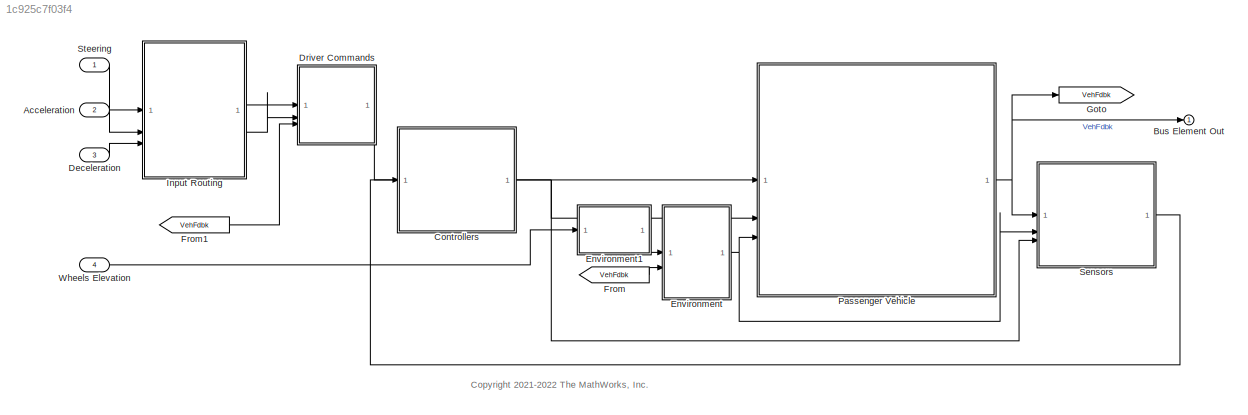
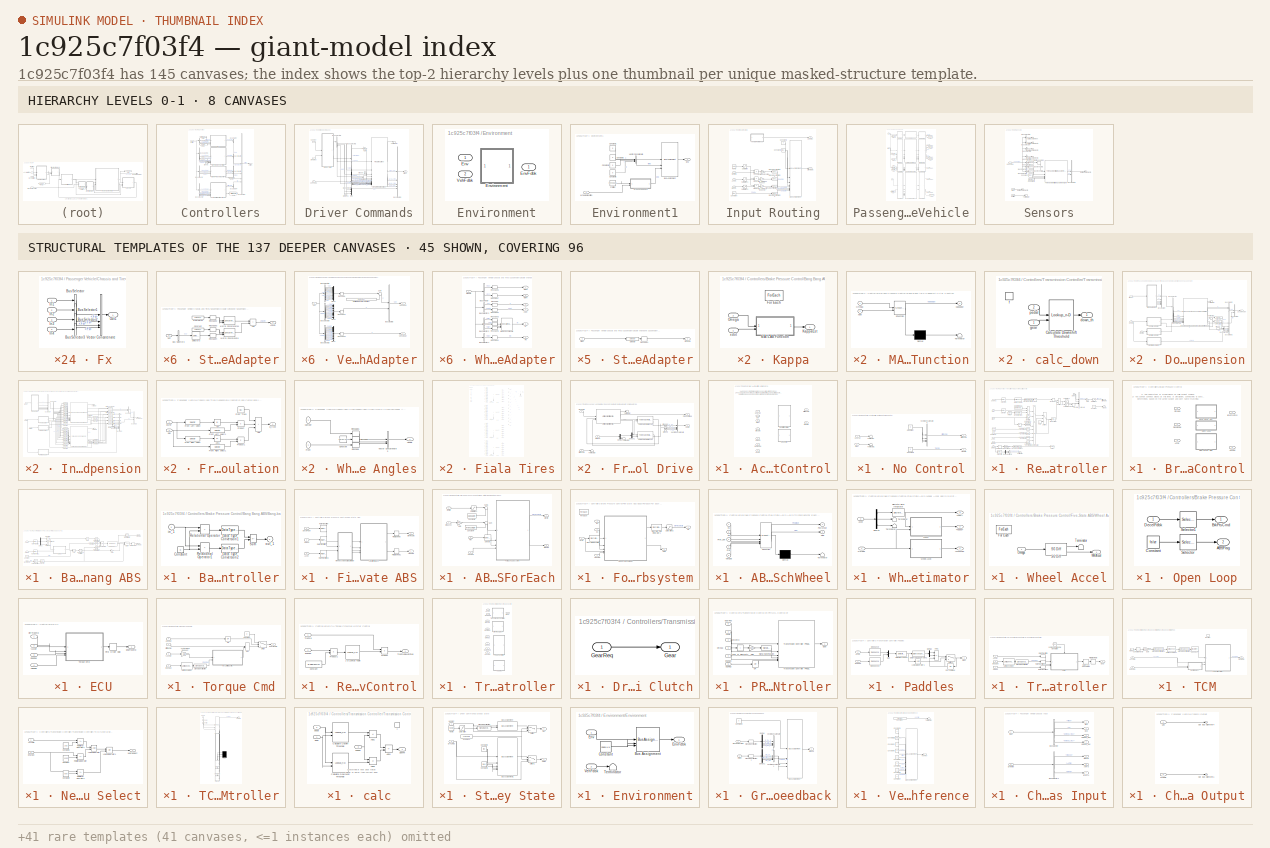
[diagram: thumbnail index - top-2 hierarchy levels (8 canvases) + 45 structural-template representatives of the remaining 137 canvases]
MODEL slx_1c925c7f03f4
KIND model
CONFIG AbsTol = auto
CONFIG EnableMultiTasking = off
CONFIG FixedStep = 0.001
CONFIG MaxStep = auto
CONFIG MinStep = auto
CONFIG RelTol = 1e-3
CONFIG SampleTimeConstraint = Unconstrained
CONFIG SolverName = VariableStepAuto
CONFIG StartTime = 0.0
CONFIG StopTime = inf
WORKSPACE source: mxarray member
WORKSPACE ssEnable: Simulink.Parameter (value not decoded)
WORKSPACE xdot_r: Simulink.Parameter (value not decoded)
BLOCK [Inport] Acceleration
  Port = 2
BLOCK [Outport] Bus Element Out
BLOCK [SubSystem] Controllers
BLOCK [SubSystem] Controllers/Active Differential Control
  LabelModeActiveChoice = 0
  Variant = on
  VariantControlMode = label
BLOCK [Inport] Controllers/Active Differential Control/Accel
BLOCK [Inport] Controllers/Active Differential Control/BrkCmd
  Port = 2
BLOCK [Outport] Controllers/Active Differential Control/DiffPrsCmd
  VectorParamsAs1DForOutWhenUnconnected = off
BLOCK [Inport] Controllers/Active Differential Control/GearFdbk
  Port = 4
BLOCK [SubSystem] Controllers/Active Differential Control/No Control
  VariantControl = 0
BLOCK [Constant] Controllers/Active Differential Control/No Control/Constant
  Value = 0
BLOCK [Constant] Controllers/Active Differential Control/No Control/Constant1
  Value = 0
BLOCK [Outport] Controllers/Active Differential Control/No Control/DiffPrsCmd
  VectorParamsAs1DForOutWhenUnconnected = off
BLOCK [Inport] Controllers/Active Differential Control/No Control/Steer
  Port = 2
BLOCK [Terminator] Controllers/Active Differential Control/No Control/Terminator
BLOCK [Terminator] Controllers/Active Differential Control/No Control/Terminator1
BLOCK [Outport] Controllers/Active Differential Control/No Control/TrqCmd
  Port = 2
  VectorParamsAs1DForOutWhenUnconnected = off
BLOCK [Concatenate] Controllers/Active Differential Control/No Control/Vector Concatenate2
  NumInputs = 4
BLOCK [Inport] Controllers/Active Differential Control/No Control/axayaz
BLOCK [Inport] Controllers/Active Differential Control/Omega
  Port = 5
  Unit = rad/s
BLOCK [SubSystem] Controllers/Active Differential Control/Rear Diff Controller
  SystemSampleTime = .01
  TreatAsAtomicUnit = on
  VariantControl = 1
BLOCK [Abs] Controllers/Active Differential Control/Rear Diff Controller/Abs2
  SaturateOnIntegerOverflow = off
BLOCK [Abs] Controllers/Active Differential Control/Rear Diff Controller/Abs3
  SaturateOnIntegerOverflow = off
  ZeroCross = off
BLOCK [Inport] Controllers/Active Differential Control/Rear Diff Controller/Accel
  Port = 7
BLOCK [Sum] Controllers/Active Differential Control/Rear Diff Controller/Add1
  IconShape = rectangular
  Inputs = +-
BLOCK [Inport] Controllers/Active Differential Control/Rear Diff Controller/BrkCmd
  Port = 4
BLOCK [Reference] Controllers/Active Differential Control/Rear Diff Controller/Compare To Constant  REF=simulink/Logic and Bit
Operations/Compare
To Constant
  SourceBlock = simulink/Logic and Bit\nOperations/Compare\nTo Constant
  SourceType = Compare To Constant
BLOCK [Reference] Controllers/Active Differential Control/Rear Diff Controller/Compare To Constant1  REF=simulink/Logic and Bit
Operations/Compare
To Constant
  SourceBlock = simulink/Logic and Bit\nOperations/Compare\nTo Constant
  SourceType = Compare To Constant
BLOCK [Reference] Controllers/Active Differential Control/Rear Diff Controller/Compare To Constant2  REF=simulink/Logic and Bit
Operations/Compare
To Constant
  SourceBlock = simulink/Logic and Bit\nOperations/Compare\nTo Constant
  SourceType = Compare To Constant
BLOCK [Reference] Controllers/Active Differential Control/Rear Diff Controller/Compare To Constant3  REF=simulink/Logic and Bit
Operations/Compare
To Constant
  SourceBlock = simulink/Logic and Bit\nOperations/Compare\nTo Constant
  SourceType = Compare To Constant
BLOCK [Reference] Controllers/Active Differential Control/Rear Diff Controller/Compare To Constant4  REF=simulink/Logic and Bit
Operations/Compare
To Constant
  SourceBlock = simulink/Logic and Bit\nOperations/Compare\nTo Constant
  SourceType = Compare To Constant
BLOCK [Constant] Controllers/Active Differential Control/Rear Diff Controller/Constant
  Value = 0
BLOCK [DeadZone] Controllers/Active Differential Control/Rear Diff Controller/Dead Zone
  ZeroCross = off
BLOCK [Demux] Controllers/Active Differential Control/Rear Diff Controller/Demux
  Outputs = 2
BLOCK [Outport] Controllers/Active Differential Control/Rear Diff Controller/DiffPrsCmd
  VectorParamsAs1DForOutWhenUnconnected = off
BLOCK [Product] Controllers/Active Differential Control/Rear Diff Controller/Divide3
  Inputs = **/
BLOCK [From] Controllers/Active Differential Control/Rear Diff Controller/From3
  GotoTag = xdot
BLOCK [From] Controllers/Active Differential Control/Rear Diff Controller/From4
  GotoTag = xdot
BLOCK [Gain] Controllers/Active Differential Control/Rear Diff Controller/Gain
  Gain = 3e6
BLOCK [Inport] Controllers/Active Differential Control/Rear Diff Controller/GearFdbk
  Port = 6
BLOCK [Goto] Controllers/Active Differential Control/Rear Diff Controller/Goto1
  GotoTag = xdot
BLOCK [Ground] Controllers/Active Differential Control/Rear Diff Controller/Ground
BLOCK [Logic] Controllers/Active Differential Control/Rear Diff Controller/Logical Operator
  AllPortsSameDT = off
  Inputs = 5
  OutDataTypeStr = boolean
BLOCK [Inport] Controllers/Active Differential Control/Rear Diff Controller/Omega
  Port = 5
  Unit = rad/s
BLOCK [Reference] Controllers/Active Differential Control/Rear Diff Controller/PID Controller  REF=slpidlib/PID Controller
  SourceBlock = slpidlib/PID Controller
  SourceType = PID 1dof
BLOCK [Saturate] Controllers/Active Differential Control/Rear Diff Controller/Saturation1
  LowerLimit = -1
  UpperLimit = 0
  ZeroCross = off
BLOCK [Saturate] Controllers/Active Differential Control/Rear Diff Controller/Saturation2
  LowerLimit = 0
  UpperLimit = 5e6
  ZeroCross = off
BLOCK [Saturate] Controllers/Active Differential Control/Rear Diff Controller/Saturation4
  LowerLimit = 0
  UpperLimit = 1
  ZeroCross = off
BLOCK [Selector] Controllers/Active Differential Control/Rear Diff Controller/Selector
  IndexOptions = Index vector (dialog)
  Indices = [3]
  InputPortWidth = 3
  OutputSizes = 1
BLOCK [Selector] Controllers/Active Differential Control/Rear Diff Controller/Selector1
  IndexOptions = Index vector (dialog)
  Indices = [2]
  InputPortWidth = 3
  OutputSizes = 1
BLOCK [Selector] Controllers/Active Differential Control/Rear Diff Controller/Selector2
  IndexOptions = Index vector (dialog)
  Indices = [3 4]
  InputPortWidth = 4
  OutputSizes = 1
BLOCK [SignalSpecification] Controllers/Active Differential Control/Rear Diff Controller/Signal Specification
  Unit = gn
BLOCK [SignalSpecification] Controllers/Active Differential Control/Rear Diff Controller/Signal Specification1
  Unit = m/s
BLOCK [Inport] Controllers/Active Differential Control/Rear Diff Controller/Steer
  Port = 2
BLOCK [Sum] Controllers/Active Differential Control/Rear Diff Controller/Subtract
  IconShape = rectangular
BLOCK [Sum] Controllers/Active Differential Control/Rear Diff Controller/Subtract1
  IconShape = rectangular
  Inputs = +-
BLOCK [Sum] Controllers/Active Differential Control/Rear Diff Controller/Sum of Elements
  IconShape = rectangular
  Inputs = +
BLOCK [Switch] Controllers/Active Differential Control/Rear Diff Controller/Switch1
  Criteria = u2 > Threshold
  InputSameDT = off
  SaturateOnIntegerOverflow = off
  Threshold = .1
BLOCK [Terminator] Controllers/Active Differential Control/Rear Diff Controller/Terminator
BLOCK [Outport] Controllers/Active Differential Control/Rear Diff Controller/TrqCmd
  Port = 2
  VectorParamsAs1DForOutWhenUnconnected = off
BLOCK [UnaryMinus] Controllers/Active Differential Control/Rear Diff Controller/Unary Minus
BLOCK [UnitConversion] Controllers/Active Differential Control/Rear Diff Controller/Unit Conversion
BLOCK [Concatenate] Controllers/Active Differential Control/Rear Diff Controller/Vector Concatenate2
  NumInputs = 4
BLOCK [Inport] Controllers/Active Differential Control/Rear Diff Controller/axayaz
BLOCK [Constant] Controllers/Active Differential Control/Rear Diff Controller/axle distance
  NameLocation = top
  Value = VEH.FrontAxlePositionfromCG+VEH.RearAxlePositionfromCG
BLOCK [Reference] Controllers/Active Differential Control/Rear Diff Controller/div0protect - poly  REF=autolibutils/div0protect - poly
  SourceBlock = autolibutils/div0protect - poly
BLOCK [Inport] Controllers/Active Differential Control/Rear Diff Controller/pqr
  Port = 3
BLOCK [Gain] Controllers/Active Differential Control/Rear Diff Controller/steer ratio
  Gain = 1/18
BLOCK [Gain] Controllers/Active Differential Control/Rear Diff Controller/wheel radius
  Gain = .3065/4
BLOCK [Constant] Controllers/Active Differential Control/Rear Diff Controller/zero
  Value = 0
BLOCK [Inport] Controllers/Active Differential Control/Steer
  Port = 3
BLOCK [Outport] Controllers/Active Differential Control/TrqCmd
  Port = 2
  VectorParamsAs1DForOutWhenUnconnected = off
BLOCK [Inport] Controllers/Active Differential Control/axayaz
  Port = 6
BLOCK [Inport] Controllers/Active Differential Control/pqr
  Port = 7
BLOCK [SubSystem] Controllers/Brake Pressure Control
  LabelModeActiveChoice = 0
  Variant = on
  VariantControlMode = label
BLOCK [Outport] Controllers/Brake Pressure Control/ABSFlag
  Port = 2
  VectorParamsAs1DForOutWhenUnconnected = off
BLOCK [Inport] Controllers/Brake Pressure Control/Accel
  Port = 3
BLOCK [SubSystem] Controllers/Brake Pressure Control/Bang Bang ABS
  VariantControl = 1
BLOCK [Outport] Controllers/Brake Pressure Control/Bang Bang ABS/ABSFlag
  Port = 2
BLOCK [Abs] Controllers/Brake Pressure Control/Bang Bang ABS/Abs
  SaturateOnIntegerOverflow = off
BLOCK [Inport] Controllers/Brake Pressure Control/Bang Bang ABS/Accel
  Port = 3
BLOCK [Sum] Controllers/Brake Pressure Control/Bang Bang ABS/Add
  IconShape = rectangular
  Inputs = -+
BLOCK [SubSystem] Controllers/Brake Pressure Control/Bang Bang ABS/Bang-bang controller
  ShowPortLabels = none
BLOCK [Constant] Controllers/Brake Pressure Control/Bang Bang ABS/Bang-bang controller/Constant
  Value = 0
BLOCK [DataTypeConversion] Controllers/Brake Pressure Control/Bang Bang ABS/Bang-bang controller/Data Type Conversion1
  OutDataTypeStr = double
BLOCK [DataTypeConversion] Controllers/Brake Pressure Control/Bang Bang ABS/Bang-bang controller/Data Type Conversion2
  OutDataTypeStr = double
BLOCK [RelationalOperator] Controllers/Brake Pressure Control/Bang Bang ABS/Bang-bang controller/Relational Operator
  Operator = >
  OutDataTypeStr = boolean
BLOCK [RelationalOperator] Controllers/Brake Pressure Control/Bang Bang ABS/Bang-bang controller/Relational Operator1
  Operator = <
  OutDataTypeStr = boolean
BLOCK [Sum] Controllers/Brake Pressure Control/Bang Bang ABS/Bang-bang controller/Sum
  IconShape = rectangular
  InputSameDT = on
  Inputs = +-
  OutDataTypeStr = Inherit: Same as first input
  SaturateOnIntegerOverflow = on
BLOCK [Inport] Controllers/Brake Pressure Control/Bang Bang ABS/Bang-bang controller/in_1
BLOCK [Outport] Controllers/Brake Pressure Control/Bang Bang ABS/Bang-bang controller/out_1
  InitialOutput = 0
  VectorParamsAs1DForOutWhenUnconnected = off
BLOCK [Outport] Controllers/Brake Pressure Control/Bang Bang ABS/BrkPrsCmd
  VectorParamsAs1DForOutWhenUnconnected = off
BLOCK [Reference] Controllers/Brake Pressure Control/Bang Bang ABS/Compare To Constant  REF=simulink/Logic and Bit
Operations/Compare
To Constant
  SourceBlock = simulink/Logic and Bit\nOperations/Compare\nTo Constant
  SourceType = Compare To Constant
BLOCK [Reference] Controllers/Brake Pressure Control/Bang Bang ABS/Compare To Constant1  REF=simulink/Logic and Bit
Operations/Compare
To Constant
  SourceBlock = simulink/Logic and Bit\nOperations/Compare\nTo Constant
  SourceType = Compare To Constant
BLOCK [Reference] Controllers/Brake Pressure Control/Bang Bang ABS/Compare To Constant2  REF=simulink/Logic and Bit
Operations/Compare
To Constant
  SourceBlock = simulink/Logic and Bit\nOperations/Compare\nTo Constant
  SourceType = Compare To Constant
BLOCK [Reference] Controllers/Brake Pressure Control/Bang Bang ABS/Compare To Constant3  REF=simulink/Logic and Bit
Operations/Compare
To Constant
  SourceBlock = simulink/Logic and Bit\nOperations/Compare\nTo Constant
  SourceType = Compare To Constant
BLOCK [Constant] Controllers/Brake Pressure Control/Bang Bang ABS/Constant
  Value = .25
BLOCK [Reference] Controllers/Brake Pressure Control/Bang Bang ABS/Debounce  REF=autolibutils/Debounce
  SourceBlock = autolibutils/Debounce
  SourceType = Debounce
BLOCK [Inport] Controllers/Brake Pressure Control/Bang Bang ABS/DecelFdbk
BLOCK [Demux] Controllers/Brake Pressure Control/Bang Bang ABS/Demux
  Outputs = 3
BLOCK [FirstOrderHold] Controllers/Brake Pressure Control/Bang Bang ABS/First Order Hold
  ErrorTolerance = 1
BLOCK [Gain] Controllers/Brake Pressure Control/Bang Bang ABS/Gain
  Gain = 200
BLOCK [Integrator] Controllers/Brake Pressure Control/Bang Bang ABS/Integrator1
BLOCK [SubSystem] Controllers/Brake Pressure Control/Bang Bang ABS/Kappa
  TreatAsAtomicUnit = on
BLOCK [ForEach] Controllers/Brake Pressure Control/Bang Bang ABS/Kappa/For Each
  DisableCoverage = on
BLOCK [Outport] Controllers/Brake Pressure Control/Bang Bang ABS/Kappa/KappaEst
  ConcatenationDimension = 1
BLOCK [SubSystem] Controllers/Brake Pressure Control/Bang Bang ABS/Kappa/MATLAB Function
  ErrorFcn = Stateflow.Translate.translate
  PermitHierarchicalResolution = ExplicitOnly
  SFBlockType = MATLAB Function
  TreatAsAtomicUnit = on
BLOCK [Demux] Controllers/Brake Pressure Control/Bang Bang ABS/Kappa/MATLAB Function/ Demux 
  Outputs = 1
BLOCK [S-Function] Controllers/Brake Pressure Control/Bang Bang ABS/Kappa/MATLAB Function/ SFunction 
  EnableBusSupport = off
  FunctionName = sf_sfun
  PortCounts = [2 2]
  SFcnIsStateOwnerBlock = off
  SFunctionDeploymentMode = off
  Tag = Stateflow S-Function 14
BLOCK [Terminator] Controllers/Brake Pressure Control/Bang Bang ABS/Kappa/MATLAB Function/ Terminator 
BLOCK [Outport] Controllers/Brake Pressure Control/Bang Bang ABS/Kappa/MATLAB Function/KappaEst
BLOCK [Inport] Controllers/Brake Pressure Control/Bang Bang ABS/Kappa/MATLAB Function/Omega
BLOCK [Inport] Controllers/Brake Pressure Control/Bang Bang ABS/Kappa/MATLAB Function/xdot
  Port = 2
BLOCK [Inport] Controllers/Brake Pressure Control/Bang Bang ABS/Kappa/Omega
  Partition = on
  PartitionDimension = 1
  PartitionOffset = 0
  PartitionWidth = 1
  Port = 2
BLOCK [Inport] Controllers/Brake Pressure Control/Bang Bang ABS/Kappa/xdot
BLOCK [Logic] Controllers/Brake Pressure Control/Bang Bang ABS/Logical Operator
  AllPortsSameDT = off
  Inputs = 3
  OutDataTypeStr = boolean
BLOCK [Inport] Controllers/Brake Pressure Control/Bang Bang ABS/Omega
  Port = 2
BLOCK [RateTransition] Controllers/Brake Pressure Control/Bang Bang ABS/Rate Transition
  Deterministic = off
  OutPortSampleTime = .001
BLOCK [RateTransition] Controllers/Brake Pressure Control/Bang Bang ABS/Rate Transition1
  Deterministic = off
  OutPortSampleTime = .001
BLOCK [RateTransition] Controllers/Brake Pressure Control/Bang Bang ABS/Rate Transition2
  Deterministic = off
  OutPortSampleTime = .001
BLOCK [Selector] Controllers/Brake Pressure Control/Bang Bang ABS/Selector1
  IndexOptions = Index vector (dialog)
  Indices = [1 1 1 1]
  InputPortWidth = 1
  OutputSizes = 1
BLOCK [Switch] Controllers/Brake Pressure Control/Bang Bang ABS/Switch
  Criteria = u2 > Threshold
  InputSameDT = off
  SaturateOnIntegerOverflow = off
  ZeroCross = off
BLOCK [Terminator] Controllers/Brake Pressure Control/Bang Bang ABS/Terminator
BLOCK [Terminator] Controllers/Brake Pressure Control/Bang Bang ABS/Terminator1
BLOCK [Outport] Controllers/Brake Pressure Control/BrkPrsCmd
  VectorParamsAs1DForOutWhenUnconnected = off
BLOCK [Inport] Controllers/Brake Pressure Control/DecelFdbk
BLOCK [SubSystem] Controllers/Brake Pressure Control/Five-State ABS
  VariantControl = 2
BLOCK [SubSystem] Controllers/Brake Pressure Control/Five-State ABS/ABSCtrlForEach
BLOCK [Outport] Controllers/Brake Pressure Control/Five-State ABS/ABSCtrlForEach/BrkCtrl
BLOCK [Outport] Controllers/Brake Pressure Control/Five-State ABS/ABSCtrlForEach/BrkFlag
  Port = 2
BLOCK [Constant] Controllers/Brake Pressure Control/Five-State ABS/ABSCtrlForEach/Constant7
  Value = WhlAccelOpt
BLOCK [Constant] Controllers/Brake Pressure Control/Five-State ABS/ABSCtrlForEach/Constant8
  Value = KappaOpt
BLOCK [SubSystem] Controllers/Brake Pressure Control/Five-State ABS/ABSCtrlForEach/For Each Subsystem
  TreatAsAtomicUnit = on
BLOCK [SubSystem] Controllers/Brake Pressure Control/Five-State ABS/ABSCtrlForEach/For Each Subsystem/ABSForEachWheel
  ErrorFcn = Stateflow.Translate.translate
  InitFcn = [~]=vehdynicon('vehdynblk',gcb);
  PermitHierarchicalResolution = ExplicitOnly
  SFBlockType = Chart
  TreatAsAtomicUnit = on
BLOCK [Demux] Controllers/Brake Pressure Control/Five-State ABS/ABSCtrlForEach/For Each Subsystem/ABSForEachWheel/ Demux 
  Outputs = 1
BLOCK [S-Function] Controllers/Brake Pressure Control/Five-State ABS/ABSCtrlForEach/For Each Subsystem/ABSForEachWheel/ SFunction 
  EnableBusSupport = off
  FunctionName = sf_sfun
  Parameters = A,a1,a2,b,v1,v4,v5
  PortCounts = [5 3]
  SFcnIsStateOwnerBlock = off
  SFunctionDeploymentMode = off
  Tag = Stateflow S-Function 58
BLOCK [Terminator] Controllers/Brake Pressure Control/Five-State ABS/ABSCtrlForEach/For Each Subsystem/ABSForEachWheel/ Terminator 
BLOCK [Outport] Controllers/Brake Pressure Control/Five-State ABS/ABSCtrlForEach/For Each Subsystem/ABSForEachWheel/Flag
  Port = 2
BLOCK [Outport] Controllers/Brake Pressure Control/Five-State ABS/ABSCtrlForEach/For Each Subsystem/ABSForEachWheel/PbOutput
BLOCK [Inport] Controllers/Brake Pressure Control/Five-State ABS/ABSCtrlForEach/For Each Subsystem/ABSForEachWheel/Pref
  Port = 4
BLOCK [Inport] Controllers/Brake Pressure Control/Five-State ABS/ABSCtrlForEach/For Each Subsystem/ABSForEachWheel/Pref_dot
  Port = 3
BLOCK [Inport] Controllers/Brake Pressure Control/Five-State ABS/ABSCtrlForEach/For Each Subsystem/ABSForEachWheel/VehSpd
  Port = 5
BLOCK [Inport] Controllers/Brake Pressure Control/Five-State ABS/ABSCtrlForEach/For Each Subsystem/ABSForEachWheel/e1
BLOCK [Inport] Controllers/Brake Pressure Control/Five-State ABS/ABSCtrlForEach/For Each Subsystem/ABSForEachWheel/e2
  Port = 2
BLOCK [Reference] Controllers/Brake Pressure Control/Five-State ABS/ABSCtrlForEach/For Each Subsystem/Discrete Derivative  REF=simulink/Discrete/Discrete Derivative
  SourceBlock = simulink/Discrete/Discrete Derivative
  SourceType = Discrete Derivative
BLOCK [DiscreteIntegrator] Controllers/Brake Pressure Control/Five-State ABS/ABSCtrlForEach/For Each Subsystem/Discrete-Time Integrator1
  ICPrevOutput = DiscIntNeverNeededParam
  ICPrevScaledInput = DiscIntNeverNeededParam
  InitialConditionSetting = Auto
  IntegratorMethod = Integration: Trapezoidal
  SampleTime = -1
BLOCK [Outport] Controllers/Brake Pressure Control/Five-State ABS/ABSCtrlForEach/For Each Subsystem/Flag
  ConcatenationDimension = 1
  Port = 2
BLOCK [ForEach] Controllers/Brake Pressure Control/Five-State ABS/ABSCtrlForEach/For Each Subsystem/For Each
  DisableCoverage = on
BLOCK [Outport] Controllers/Brake Pressure Control/Five-State ABS/ABSCtrlForEach/For Each Subsystem/Pb
  ConcatenationDimension = 1
BLOCK [Inport] Controllers/Brake Pressure Control/Five-State ABS/ABSCtrlForEach/For Each Subsystem/Pref
  Partition = on
  PartitionDimension = 1
  PartitionOffset = 0
  PartitionWidth = 1
  Port = 3
BLOCK [Saturate] Controllers/Brake Pressure Control/Five-State ABS/ABSCtrlForEach/For Each Subsystem/Saturation2
  LowerLimit = 0
  UpperLimit = 1
BLOCK [Inport] Controllers/Brake Pressure Control/Five-State ABS/ABSCtrlForEach/For Each Subsystem/VehSpd
  Port = 4
BLOCK [Inport] Controllers/Brake Pressure Control/Five-State ABS/ABSCtrlForEach/For Each Subsystem/e1
  Partition = on
  PartitionDimension = 1
  PartitionOffset = 0
  PartitionWidth = 1
BLOCK [Inport] Controllers/Brake Pressure Control/Five-State ABS/ABSCtrlForEach/For Each Subsystem/e2
  Partition = on
  PartitionDimension = 1
  PartitionOffset = 0
  PartitionWidth = 1
  Port = 2
BLOCK [Gain] Controllers/Brake Pressure Control/Five-State ABS/ABSCtrlForEach/Gain
  Gain = Re
BLOCK [Inport] Controllers/Brake Pressure Control/Five-State ABS/ABSCtrlForEach/Pref
BLOCK [Saturate] Controllers/Brake Pressure Control/Five-State ABS/ABSCtrlForEach/Saturation1
  LowerLimit = -1
  UpperLimit = 1
BLOCK [Selector] Controllers/Brake Pressure Control/Five-State ABS/ABSCtrlForEach/Selector
  IndexOptions = Index vector (dialog)
  Indices = [1 1 1 1]
  InputPortWidth = 1
  OutputSizes = 1
BLOCK [Sum] Controllers/Brake Pressure Control/Five-State ABS/ABSCtrlForEach/Sum
  Inputs = |+-
BLOCK [Sum] Controllers/Brake Pressure Control/Five-State ABS/ABSCtrlForEach/Sum1
  Inputs = |+-
BLOCK [Inport] Controllers/Brake Pressure Control/Five-State ABS/ABSCtrlForEach/VehSpd
  Port = 4
BLOCK [Inport] Controllers/Brake Pressure Control/Five-State ABS/ABSCtrlForEach/WhlAccel
  Port = 2
BLOCK [Inport] Controllers/Brake Pressure Control/Five-State ABS/ABSCtrlForEach/WhlSlip
  Port = 3
BLOCK [Outport] Controllers/Brake Pressure Control/Five-State ABS/ABSFlag
  Port = 2
  PortDimensions = 4
BLOCK [Inport] Controllers/Brake Pressure Control/Five-State ABS/Accel
  Port = 3
BLOCK [Outport] Controllers/Brake Pressure Control/Five-State ABS/BrkPrsCmd
BLOCK [Inport] Controllers/Brake Pressure Control/Five-State ABS/DecelFdbk
BLOCK [FirstOrderHold] Controllers/Brake Pressure Control/Five-State ABS/First Order Hold
  ErrorTolerance = 0.1
BLOCK [FirstOrderHold] Controllers/Brake Pressure Control/Five-State ABS/First Order Hold1
  ErrorTolerance = 1
BLOCK [Inport] Controllers/Brake Pressure Control/Five-State ABS/Omega
  Port = 2
BLOCK [RateTransition] Controllers/Brake Pressure Control/Five-State ABS/Rate Transition
  OutPortSampleTime = .001
BLOCK [RateTransition] Controllers/Brake Pressure Control/Five-State ABS/Rate Transition1
  OutPortSampleTime = .001
BLOCK [RateTransition] Controllers/Brake Pressure Control/Five-State ABS/Rate Transition2
  OutPortSampleTime = .001
BLOCK [SubSystem] Controllers/Brake Pressure Control/Five-State ABS/Wheel Accel and Slip Estimator
BLOCK [Outport] Controllers/Brake Pressure Control/Five-State ABS/Wheel Accel and Slip Estimator/<Kappa>
  Port = 2
BLOCK [Outport] Controllers/Brake Pressure Control/Five-State ABS/Wheel Accel and Slip Estimator/<WhlAccel>
BLOCK [Outport] Controllers/Brake Pressure Control/Five-State ABS/Wheel Accel and Slip Estimator/<xdot>
  Port = 3
BLOCK [Inport] Controllers/Brake Pressure Control/Five-State ABS/Wheel Accel and Slip Estimator/Accel
  Port = 2
BLOCK [Demux] Controllers/Brake Pressure Control/Five-State ABS/Wheel Accel and Slip Estimator/Demux
  Outputs = 3
BLOCK [DiscreteIntegrator] Controllers/Brake Pressure Control/Five-State ABS/Wheel Accel and Slip Estimator/Discrete-Time Integrator
  ICPrevOutput = DiscIntNeverNeededParam
  ICPrevScaledInput = DiscIntNeverNeededParam
  InitialConditionSetting = Auto
  IntegratorMethod = Integration: Trapezoidal
  SampleTime = -1
BLOCK [SubSystem] Controllers/Brake Pressure Control/Five-State ABS/Wheel Accel and Slip Estimator/Kappa
  TreatAsAtomicUnit = on
BLOCK [ForEach] Controllers/Brake Pressure Control/Five-State ABS/Wheel Accel and Slip Estimator/Kappa/For Each
  DisableCoverage = on
BLOCK [Outport] Controllers/Brake Pressure Control/Five-State ABS/Wheel Accel and Slip Estimator/Kappa/KappaEst
  ConcatenationDimension = 1
BLOCK [SubSystem] Controllers/Brake Pressure Control/Five-State ABS/Wheel Accel and Slip Estimator/Kappa/MATLAB Function
  ErrorFcn = Stateflow.Translate.translate
  PermitHierarchicalResolution = ExplicitOnly
  SFBlockType = MATLAB Function
  TreatAsAtomicUnit = on
BLOCK [Demux] Controllers/Brake Pressure Control/Five-State ABS/Wheel Accel and Slip Estimator/Kappa/MATLAB Function/ Demux 
  Outputs = 1
BLOCK [S-Function] Controllers/Brake Pressure Control/Five-State ABS/Wheel Accel and Slip Estimator/Kappa/MATLAB Function/ SFunction 
  EnableBusSupport = off
  FunctionName = sf_sfun
  PortCounts = [2 2]
  SFcnIsStateOwnerBlock = off
  SFunctionDeploymentMode = off
  Tag = Stateflow S-Function 54
BLOCK [Terminator] Controllers/Brake Pressure Control/Five-State ABS/Wheel Accel and Slip Estimator/Kappa/MATLAB Function/ Terminator 
BLOCK [Outport] Controllers/Brake Pressure Control/Five-State ABS/Wheel Accel and Slip Estimator/Kappa/MATLAB Function/KappaEst
BLOCK [Inport] Controllers/Brake Pressure Control/Five-State ABS/Wheel Accel and Slip Estimator/Kappa/MATLAB Function/Omega
BLOCK [Inport] Controllers/Brake Pressure Control/Five-State ABS/Wheel Accel and Slip Estimator/Kappa/MATLAB Function/xdot
  Port = 2
BLOCK [Inport] Controllers/Brake Pressure Control/Five-State ABS/Wheel Accel and Slip Estimator/Kappa/Omega
  Partition = on
  PartitionDimension = 1
  PartitionOffset = 0
  PartitionWidth = 1
  Port = 2
  PortDimensions = 1
BLOCK [Inport] Controllers/Brake Pressure Control/Five-State ABS/Wheel Accel and Slip Estimator/Kappa/xdot
BLOCK [Inport] Controllers/Brake Pressure Control/Five-State ABS/Wheel Accel and Slip Estimator/Omega
BLOCK [Terminator] Controllers/Brake Pressure Control/Five-State ABS/Wheel Accel and Slip Estimator/Terminator
BLOCK [Terminator] Controllers/Brake Pressure Control/Five-State ABS/Wheel Accel and Slip Estimator/Terminator1
BLOCK [SubSystem] Controllers/Brake Pressure Control/Five-State ABS/Wheel Accel and Slip Estimator/Wheel Accel
  TreatAsAtomicUnit = on
BLOCK [ForEach] Controllers/Brake Pressure Control/Five-State ABS/Wheel Accel and Slip Estimator/Wheel Accel/For Each
  DisableCoverage = on
BLOCK [Inport] Controllers/Brake Pressure Control/Five-State ABS/Wheel Accel and Slip Estimator/Wheel Accel/Omega
  Partition = on
  PartitionDimension = 1
  PartitionOffset = 0
  PartitionWidth = 1
  PortDimensions = 1
BLOCK [Reference] Controllers/Brake Pressure Control/Five-State ABS/Wheel Accel and Slip Estimator/Wheel Accel/SG Diff  REF=autolibutils/SG Diff
  SourceBlock = autolibutils/SG Diff
  SourceType = Simplified Savitzky-Golay Differentiator
BLOCK [Terminator] Controllers/Brake Pressure Control/Five-State ABS/Wheel Accel and Slip Estimator/Wheel Accel/Terminator
BLOCK [Outport] Controllers/Brake Pressure Control/Five-State ABS/Wheel Accel and Slip Estimator/Wheel Accel/WhlAccel
  ConcatenationDimension = 1
BLOCK [Inport] Controllers/Brake Pressure Control/Omega
  Port = 2
BLOCK [SubSystem] Controllers/Brake Pressure Control/Open Loop
  VariantControl = 0
BLOCK [Outport] Controllers/Brake Pressure Control/Open Loop/ABSFlag
  Port = 2
BLOCK [Outport] Controllers/Brake Pressure Control/Open Loop/BrkPrsCmd
  VectorParamsAs1DForOutWhenUnconnected = off
BLOCK [Constant] Controllers/Brake Pressure Control/Open Loop/Constant
  Value = false
BLOCK [Inport] Controllers/Brake Pressure Control/Open Loop/DecelFdbk
BLOCK [Selector] Controllers/Brake Pressure Control/Open Loop/Selector
  IndexOptions = Index vector (dialog)
  Indices = [1 1 1 1]
  InputPortWidth = 1
  OutputSizes = 1
BLOCK [Selector] Controllers/Brake Pressure Control/Open Loop/Selector1
  IndexOptions = Index vector (dialog)
  Indices = [1 1 1 1]
  InputPortWidth = 1
  OutputSizes = 1
BLOCK [BusCreator] Controllers/Bus Creator
  DisplayOption = bar
  InheritFromInputs = on
  Inputs = 1
BLOCK [BusCreator] Controllers/Bus Creator1
  DisplayOption = bar
  InheritFromInputs = on
  Inputs = 1
BLOCK [BusCreator] Controllers/Bus Creator2
  DisplayOption = bar
  InheritFromInputs = on
  Inputs = 2
BLOCK [BusCreator] Controllers/Bus Creator3
  DisplayOption = bar
  InheritFromInputs = on
  Inputs = 4
BLOCK [BusCreator] Controllers/Bus Creator4
  DisplayOption = bar
  InheritFromInputs = on
  Inputs = 1
BLOCK [BusSelector] Controllers/Bus Selector
  OutputSignals = Driver.DecelFdbk,Wheels.Omega,IMU.Acc
BLOCK [BusSelector] Controllers/Bus Selector1
  OutputSignals = Driver.AccFdbk,Driver.DecelFdbk,Driver.GearFdbk,Engine.EngSpd,Wheels.Omega
BLOCK [BusSelector] Controllers/Bus Selector2
  OutputSignals = Driver.AccFdbk,Engine.EngSpd
BLOCK [BusSelector] Controllers/Bus Selector3
  OutputSignals = Driver.AccFdbk,Driver.DecelFdbk,Driver.SteerFdbk,Driver.GearFdbk,Wheels.Omega,IMU.Acc,IMU.pqr
BLOCK [Inport] Controllers/CntrlRx
BLOCK [Outport] Controllers/CntrlTx
  VectorParamsAs1DForOutWhenUnconnected = off
BLOCK [SubSystem] Controllers/ECU
  SystemSampleTime = .01
BLOCK [Inport] Controllers/ECU/<Accel>
  Port = 2
BLOCK [Inport] Controllers/ECU/ABSFlag
  Port = 4
BLOCK [Inport] Controllers/ECU/DiffTrqCmd
BLOCK [Inport] Controllers/ECU/EngSpd
  Port = 3
BLOCK [Outport] Controllers/ECU/EngTrqCmd
  VectorParamsAs1DForOutWhenUnconnected = off
BLOCK [FirstOrderHold] Controllers/ECU/First Order Hold
  ErrorTolerance = 100
BLOCK [SubSystem] Controllers/ECU/Torque Cmd
  SystemSampleTime = .01
  TreatAsAtomicUnit = on
BLOCK [Inport] Controllers/ECU/Torque Cmd/<Accel>
  Port = 2
BLOCK [Inport] Controllers/ECU/Torque Cmd/ABSFlag
  Port = 4
BLOCK [Gain] Controllers/ECU/Torque Cmd/Acc to Torque Request
  Gain = 150
BLOCK [Constant] Controllers/ECU/Torque Cmd/Constant
  Value = 0
BLOCK [Inport] Controllers/ECU/Torque Cmd/DiffTrqCmd
BLOCK [Inport] Controllers/ECU/Torque Cmd/EngSpd
  Port = 3
BLOCK [Outport] Controllers/ECU/Torque Cmd/EngTrqCmd
BLOCK [MinMax] Controllers/ECU/Torque Cmd/Max
  Function = max
  Inputs = 2
BLOCK [Logic] Controllers/ECU/Torque Cmd/OR
  AllPortsSameDT = off
  Inputs = 1
  Operator = OR
  OutDataTypeStr = boolean
BLOCK [SubSystem] Controllers/ECU/Torque Cmd/Rev Limiter Control
BLOCK [Lookup_n-D] Controllers/ECU/Torque Cmd/Rev Limiter Control/1-D Lookup Table
  BreakpointsForDimension1 = [1 1.01]
  ExtrapMethod = Clip
  InputPortMap = u0
  InternalRulePriority = Speed
  NumberOfTableDimensions = 1
  RndMeth = Simplest
  Table = [1 0]
BLOCK [Constant] Controllers/ECU/Torque Cmd/Rev Limiter Control/Constant
  Value = EngRevLim
BLOCK [Inport] Controllers/ECU/Torque Cmd/Rev Limiter Control/EngSpd
  Port = 2
BLOCK [Product] Controllers/ECU/Torque Cmd/Rev Limiter Control/Product
BLOCK [Product] Controllers/ECU/Torque Cmd/Rev Limiter Control/Product1
  Inputs = */
BLOCK [Inport] Controllers/ECU/Torque Cmd/Rev Limiter Control/TrqCmd
BLOCK [Outport] Controllers/ECU/Torque Cmd/Rev Limiter Control/TrqCmdRevLimited
  VectorParamsAs1DForOutWhenUnconnected = off
BLOCK [SignalSpecification] Controllers/ECU/Torque Cmd/Signal Specification
  Unit = rpm
BLOCK [Switch] Controllers/ECU/Torque Cmd/Switch
  Criteria = u2 > Threshold
  InputSameDT = off
  SaturateOnIntegerOverflow = off
  ZeroCross = off
BLOCK [UnitConversion] Controllers/ECU/Torque Cmd/Unit Conversion
BLOCK [From] Controllers/From
  GotoTag = DiffTrqCmd
BLOCK [From] Controllers/From1
  GotoTag = ABSFlag
BLOCK [From] Controllers/From2
  GotoTag = ABSFlag
BLOCK [Goto] Controllers/Goto
  GotoTag = DiffTrqCmd
BLOCK [Goto] Controllers/Goto1
  GotoTag = ABSFlag
BLOCK [Ground] Controllers/Ground
BLOCK [SubSystem] Controllers/Transmission Controller
  LabelModeActiveChoice = 3
  Variant = on
  VariantControl = Variant1
  VariantControlMode = label
BLOCK [Outport] Controllers/Transmission Controller/ Gear
  VectorParamsAs1DForOutWhenUnconnected = off
BLOCK [Inport] Controllers/Transmission Controller/ABSFlag
  Port = 6
BLOCK [Inport] Controllers/Transmission Controller/Accel
BLOCK [Inport] Controllers/Transmission Controller/BrkCmd
  Port = 2
BLOCK [Inport] Controllers/Transmission Controller/DownReq
  Port = 8
  Unit = rad/s
BLOCK [SubSystem] Controllers/Transmission Controller/Driver - No Clutch
  VariantControl = 1
BLOCK [Outport] Controllers/Transmission Controller/Driver - No Clutch/Gear
  VectorParamsAs1DForOutWhenUnconnected = off
BLOCK [Inport] Controllers/Transmission Controller/Driver - No Clutch/GearReq
BLOCK [Inport] Controllers/Transmission Controller/EngSpd
  Port = 4
BLOCK [Inport] Controllers/Transmission Controller/GearReq
  Port = 3
BLOCK [Inport] Controllers/Transmission Controller/Omega
  Port = 5
  PortDimensions = 4
  Unit = rad/s
BLOCK [SubSystem] Controllers/Transmission Controller/PRNDL Controller
  VariantControl = 3
BLOCK [Inport] Controllers/Transmission Controller/PRNDL Controller/ABSFlag
  Port = 6
BLOCK [Inport] Controllers/Transmission Controller/PRNDL Controller/Accel
BLOCK [Inport] Controllers/Transmission Controller/PRNDL Controller/BrkCmd
  Port = 2
BLOCK [Inport] Controllers/Transmission Controller/PRNDL Controller/EngSpd
  Port = 4
  Unit = rad/s
BLOCK [Gain] Controllers/Transmission Controller/PRNDL Controller/Gain
  Gain = 0.3/4
BLOCK [Outport] Controllers/Transmission Controller/PRNDL Controller/Gear
  VectorParamsAs1DForOutWhenUnconnected = off
BLOCK [Inport] Controllers/Transmission Controller/PRNDL Controller/GearReq
  Port = 5
BLOCK [Logic] Controllers/Transmission Controller/PRNDL Controller/OR
  AllPortsSameDT = off
  Inputs = 1
  Operator = OR
  OutDataTypeStr = boolean
BLOCK [Inport] Controllers/Transmission Controller/PRNDL Controller/Omega
  Port = 3
  Unit = rad/s
BLOCK [SignalSpecification] Controllers/Transmission Controller/PRNDL Controller/Signal Specification
  Unit = m/s
BLOCK [Sum] Controllers/Transmission Controller/PRNDL Controller/Sum of Elements
  IconShape = rectangular
  Inputs = +
BLOCK [Reference] Controllers/Transmission Controller/PRNDL Controller/Transmission Controller PRNDL  REF=autolibtranscontrolscommon/Transmission Controller PRNDL
  SourceBlock = autolibtranscontrolscommon/Transmission Controller PRNDL
  SourceType = Transmission Controller PRNDL
BLOCK [SubSystem] Controllers/Transmission Controller/Paddles
  VariantControl = 2
BLOCK [Inport] Controllers/Transmission Controller/Paddles/Accel
BLOCK [Sum] Controllers/Transmission Controller/Paddles/Add1
  IconShape = rectangular
  Inputs = +-+
BLOCK [UnitDelay] Controllers/Transmission Controller/Paddles/Current Gear
  HasFrameUpgradeWarning = on
  SampleTime = -1
BLOCK [DataTypeConversion] Controllers/Transmission Controller/Paddles/Data Type Conversion2
  OutDataTypeStr = double
  RndMeth = Floor
  SaturateOnIntegerOverflow = off
BLOCK [Reference] Controllers/Transmission Controller/Paddles/Debounce  REF=autolibutils/Debounce
  SourceBlock = autolibutils/Debounce
  SourceType = Debounce
BLOCK [Reference] Controllers/Transmission Controller/Paddles/Debounce1  REF=autolibutils/Debounce
  SourceBlock = autolibutils/Debounce
  SourceType = Debounce
BLOCK [Demux] Controllers/Transmission Controller/Paddles/Demux
  Outputs = 2
BLOCK [Reference] Controllers/Transmission Controller/Paddles/Detect Increase2  REF=simulink/Logic and Bit
Operations/Detect
Increase
  SourceBlock = simulink/Logic and Bit\nOperations/Detect\nIncrease
  SourceType = Detect Increase
BLOCK [Inport] Controllers/Transmission Controller/Paddles/EngSpd
  Port = 2
  Unit = rad/s
BLOCK [Outport] Controllers/Transmission Controller/Paddles/Gear
  VectorParamsAs1DForOutWhenUnconnected = off
BLOCK [Logic] Controllers/Transmission Controller/Paddles/Logical Operator1
  AllPortsSameDT = off
  Inputs = 1
  Operator = XOR
  OutDataTypeStr = boolean
BLOCK [Mux] Controllers/Transmission Controller/Paddles/Mux
  DisplayOption = bar
  Inputs = 2
BLOCK [Switch] Controllers/Transmission Controller/Paddles/Switch2
  Criteria = u2 > Threshold
  InputSameDT = off
  SaturateOnIntegerOverflow = off
BLOCK [SubSystem] Controllers/Transmission Controller/Transmission Controller
  VariantControl = 0
BLOCK [Reference] Controllers/Transmission Controller/Transmission Controller/10ms Function-Call Generator  REF=simulink/Ports &
Subsystems/Function-Call
Generator
  SourceBlock = simulink/Ports &\nSubsystems/Function-Call\nGenerator
  SourceType = Function-Call Generator
BLOCK [Inport] Controllers/Transmission Controller/Transmission Controller/Accel
BLOCK [DataTypeConversion] Controllers/Transmission Controller/Transmission Controller/Data Type Conversion
  RndMeth = Floor
  SaturateOnIntegerOverflow = off
BLOCK [Inport] Controllers/Transmission Controller/Transmission Controller/EngSpd
  Port = 2
  Unit = rad/s
BLOCK [FirstOrderHold] Controllers/Transmission Controller/Transmission Controller/First Order Hold
  ErrorTolerance = .1
BLOCK [Outport] Controllers/Transmission Controller/Transmission Controller/Gear
  VectorParamsAs1DForOutWhenUnconnected = off
BLOCK [Inport] Controllers/Transmission Controller/Transmission Controller/Omega
  Port = 3
  Unit = rad/s
BLOCK [RateTransition] Controllers/Transmission Controller/Transmission Controller/Rate Transition
  Deterministic = off
BLOCK [RateTransition] Controllers/Transmission Controller/Transmission Controller/Rate Transition1
  Deterministic = off
BLOCK [RateTransition] Controllers/Transmission Controller/Transmission Controller/Rate Transition2
  Deterministic = off
BLOCK [SignalSpecification] Controllers/Transmission Controller/Transmission Controller/Signal Specification
  Unit = rpm
BLOCK [SubSystem] Controllers/Transmission Controller/Transmission Controller/TCM
BLOCK [Inport] Controllers/Transmission Controller/Transmission Controller/TCM/AccCmd
BLOCK [Inport] Controllers/Transmission Controller/Transmission Controller/TCM/EngSpd
  Port = 2
BLOCK [Gain] Controllers/Transmission Controller/Transmission Controller/TCM/Gain
  Gain = .3065/4
BLOCK [Outport] Controllers/Transmission Controller/Transmission Controller/TCM/GearCmd
  VectorParamsAs1DForOutWhenUnconnected = off
BLOCK [SubSystem] Controllers/Transmission Controller/Transmission Controller/TCM/Neutral Select
BLOCK [Inport] Controllers/Transmission Controller/Transmission Controller/TCM/Neutral Select/AccCmd
BLOCK [Constant] Controllers/Transmission Controller/Transmission Controller/TCM/Neutral Select/Constant
  Value = 1200
BLOCK [Constant] Controllers/Transmission Controller/Transmission Controller/TCM/Neutral Select/Constant1
  Value = 1e-2
BLOCK [Constant] Controllers/Transmission Controller/Transmission Controller/TCM/Neutral Select/Constant2
  Value = 500
BLOCK [Inport] Controllers/Transmission Controller/Transmission Controller/TCM/Neutral Select/EngSpd
  Port = 2
BLOCK [Logic] Controllers/Transmission Controller/Transmission Controller/TCM/Neutral Select/Logical Operator
  AllPortsSameDT = off
  OutDataTypeStr = boolean
BLOCK [Logic] Controllers/Transmission Controller/Transmission Controller/TCM/Neutral Select/Logical Operator1
  AllPortsSameDT = off
  Operator = OR
  OutDataTypeStr = boolean
BLOCK [Outport] Controllers/Transmission Controller/Transmission Controller/TCM/Neutral Select/Neutral Select
  VectorParamsAs1DForOutWhenUnconnected = off
BLOCK [RelationalOperator] Controllers/Transmission Controller/Transmission Controller/TCM/Neutral Select/Relational Operator
  InputSameDT = off
  Operator = <=
  OutDataTypeStr = boolean
  RndMeth = Simplest
  ZeroCross = off
BLOCK [RelationalOperator] Controllers/Transmission Controller/Transmission Controller/TCM/Neutral Select/Relational Operator1
  InputSameDT = off
  Operator = <=
  OutDataTypeStr = boolean
  RndMeth = Simplest
  ZeroCross = off
BLOCK [RelationalOperator] Controllers/Transmission Controller/Transmission Controller/TCM/Neutral Select/Relational Operator2
  InputSameDT = off
  Operator = <=
  OutDataTypeStr = boolean
  RndMeth = Simplest
  ZeroCross = off
BLOCK [Inport] Controllers/Transmission Controller/Transmission Controller/TCM/Omega
  Port = 3
  Unit = rad/s
BLOCK [SignalSpecification] Controllers/Transmission Controller/Transmission Controller/TCM/Signal Specification1
  Unit = m/s
BLOCK [SignalSpecification] Controllers/Transmission Controller/Transmission Controller/TCM/Signal Specification2
  Unit = km/hr
BLOCK [DiscreteTransferFcn] Controllers/Transmission Controller/Transmission Controller/TCM/Speed LPF
  Denominator = [1.000000000000000 -0.990049833749168 ]
  InputPortMap = u0
  Numerator = [0.000000000000000 0.009950166250832 ]
BLOCK [Sum] Controllers/Transmission Controller/Transmission Controller/TCM/Sum of Elements
  IconShape = rectangular
  Inputs = +
BLOCK [SubSystem] Controllers/Transmission Controller/Transmission Controller/TCM/TCM Shift Controller
  ErrorFcn = Stateflow.Translate.translate
  PermitHierarchicalResolution = ExplicitOnly
  SFBlockType = Chart
  TreatAsAtomicUnit = on
BLOCK [Demux] Controllers/Transmission Controller/Transmission Controller/TCM/TCM Shift Controller/ Demux 
  Outputs = 3
BLOCK [S-Function] Controllers/Transmission Controller/Transmission Controller/TCM/TCM Shift Controller/ SFunction 
  EnableBusSupport = off
  FunctionName = sf_sfun
  PortCounts = [6 9]
  SFcnIsStateOwnerBlock = off
  SFunctionDeploymentMode = off
  Tag = Stateflow S-Function 1
BLOCK [Outport] Controllers/Transmission Controller/Transmission Controller/TCM/TCM Shift Controller/GearCmd
  VectorParamsAs1DForOutWhenUnconnected = off
BLOCK [Inport] Controllers/Transmission Controller/Transmission Controller/TCM/TCM Shift Controller/Neutral
  Port = 3
BLOCK [SubSystem] Controllers/Transmission Controller/Transmission Controller/TCM/TCM Shift Controller/calc
  PreDeleteFcn = Stateflow.SLINSF.SimulinkMan.removePreDeleteFcn
  UndoDeleteFcn = Stateflow.SLINSF.SimulinkMan.restorePreDeleteFcn
BLOCK [Sum] Controllers/Transmission Controller/Transmission Controller/TCM/TCM Shift Controller/calc/Add1
  IconShape = rectangular
  Inputs = +-
BLOCK [Sum] Controllers/Transmission Controller/Transmission Controller/TCM/TCM Shift Controller/calc/Add3
  IconShape = rectangular
  Inputs = +-
BLOCK [Sum] Controllers/Transmission Controller/Transmission Controller/TCM/TCM Shift Controller/calc/Add4
  IconShape = rectangular
  Inputs = +-
BLOCK [Lookup_n-D] Controllers/Transmission Controller/Transmission Controller/TCM/TCM Shift Controller/calc/Calculate Downshift Threshold
  BreakpointsForDimension1 = Pedal_Positions
  BreakpointsForDimension2 = 2:8
  ExtrapMethod = Clip
  InputPortMap = u0,u1
  InternalRulePriority = Speed
  RndMeth = Simplest
  Table = Downshift_Speeds
  UseLastTableValue = on
BLOCK [Lookup_n-D] Controllers/Transmission Controller/Transmission Controller/TCM/TCM Shift Controller/calc/Calculate Upshift Threshold
  BreakpointsForDimension1 = Pedal_Positions
  BreakpointsForDimension2 = 1:7
  ExtrapMethod = Clip
  InputPortMap = u0,u1
  InternalRulePriority = Speed
  RndMeth = Simplest
  Table = Upshift_Speeds
  UseLastTableValue = on
BLOCK [Outport] Controllers/Transmission Controller/Transmission Controller/TCM/TCM Shift Controller/calc/SpdThr
  VectorParamsAs1DForOutWhenUnconnected = off
BLOCK [TriggerPort] Controllers/Transmission Controller/Transmission Controller/TCM/TCM Shift Controller/calc/f
  CopyFcn = Stateflow.SLINSF.SimulinkMan.removeBlockPreDeleteFcn
  PreDeleteFcn = Stateflow.SLINSF.SimulinkMan.unsafePredeleteFcn
  StatesWhenEnabling = reset
  TriggerType = function-call
  VariantControl = Variant
BLOCK [Inport] Controllers/Transmission Controller/Transmission Controller/TCM/TCM Shift Controller/calc/gear
BLOCK [Inport] Controllers/Transmission Controller/Transmission Controller/TCM/TCM Shift Controller/calc/pedal
  Port = 2
BLOCK [Inport] Controllers/Transmission Controller/Transmission Controller/TCM/TCM Shift Controller/calc/speed
  Port = 3
BLOCK [SubSystem] Controllers/Transmission Controller/Transmission Controller/TCM/TCM Shift Controller/calc_down
  PreDeleteFcn = Stateflow.SLINSF.SimulinkMan.removePreDeleteFcn
  UndoDeleteFcn = Stateflow.SLINSF.SimulinkMan.restorePreDeleteFcn
BLOCK [Lookup_n-D] Controllers/Transmission Controller/Transmission Controller/TCM/TCM Shift Controller/calc_down/Calculate Downshift Threshold
  BreakpointsForDimension1 = Pedal_Positions
  BreakpointsForDimension2 = 2:8
  ExtrapMethod = Clip
  InputPortMap = u0,u1
  InternalRulePriority = Speed
  RndMeth = Simplest
  Table = Downshift_Speeds
  UseLastTableValue = on
BLOCK [Outport] Controllers/Transmission Controller/Transmission Controller/TCM/TCM Shift Controller/calc_down/down_th
  VectorParamsAs1DForOutWhenUnconnected = off
BLOCK [TriggerPort] Controllers/Transmission Controller/Transmission Controller/TCM/TCM Shift Controller/calc_down/f
  CopyFcn = Stateflow.SLINSF.SimulinkMan.removeBlockPreDeleteFcn
  PreDeleteFcn = Stateflow.SLINSF.SimulinkMan.unsafePredeleteFcn
  StatesWhenEnabling = reset
  TriggerType = function-call
  VariantControl = Variant
BLOCK [Inport] Controllers/Transmission Controller/Transmission Controller/TCM/TCM Shift Controller/calc_down/gear
BLOCK [Inport] Controllers/Transmission Controller/Transmission Controller/TCM/TCM Shift Controller/calc_down/pedal
  Port = 2
BLOCK [SubSystem] Controllers/Transmission Controller/Transmission Controller/TCM/TCM Shift Controller/calc_up
  PreDeleteFcn = Stateflow.SLINSF.SimulinkMan.removePreDeleteFcn
  UndoDeleteFcn = Stateflow.SLINSF.SimulinkMan.restorePreDeleteFcn
BLOCK [Lookup_n-D] Controllers/Transmission Controller/Transmission Controller/TCM/TCM Shift Controller/calc_up/Calculate Upshift Threshold
  BreakpointsForDimension1 = Pedal_Positions
  BreakpointsForDimension2 = 1:7
  ExtrapMethod = Clip
  InputPortMap = u0,u1
  InternalRulePriority = Speed
  RndMeth = Simplest
  Table = Upshift_Speeds
  UseLastTableValue = on
BLOCK [TriggerPort] Controllers/Transmission Controller/Transmission Controller/TCM/TCM Shift Controller/calc_up/f
  CopyFcn = Stateflow.SLINSF.SimulinkMan.removeBlockPreDeleteFcn
  PreDeleteFcn = Stateflow.SLINSF.SimulinkMan.unsafePredeleteFcn
  StatesWhenEnabling = reset
  TriggerType = function-call
  VariantControl = Variant
BLOCK [Inport] Controllers/Transmission Controller/Transmission Controller/TCM/TCM Shift Controller/calc_up/gear
BLOCK [Inport] Controllers/Transmission Controller/Transmission Controller/TCM/TCM Shift Controller/calc_up/pedal
  Port = 2
BLOCK [Outport] Controllers/Transmission Controller/Transmission Controller/TCM/TCM Shift Controller/calc_up/up_th
  VectorParamsAs1DForOutWhenUnconnected = off
BLOCK [Inport] Controllers/Transmission Controller/Transmission Controller/TCM/TCM Shift Controller/pedal
  Port = 2
BLOCK [Inport] Controllers/Transmission Controller/Transmission Controller/TCM/TCM Shift Controller/speed
BLOCK [UnitConversion] Controllers/Transmission Controller/Transmission Controller/TCM/Unit Conversion1
BLOCK [TriggerPort] Controllers/Transmission Controller/Transmission Controller/TCM/function
  StatesWhenEnabling = held
  TriggerType = function-call
  VariantControl = Variant
BLOCK [UnitConversion] Controllers/Transmission Controller/Transmission Controller/Unit Conversion
BLOCK [Inport] Controllers/Transmission Controller/UpReq
  Port = 7
BLOCK [Inport] Deceleration
  Port = 3
BLOCK [SubSystem] Driver Commands
  VariantControl = 0
BLOCK [BusCreator] Driver Commands/Bus Creator1
  DisplayOption = bar
  InheritFromInputs = on
  Inputs = 5
BLOCK [BusSelector] Driver Commands/Bus Selector
  OutputSignals = Body.BdyFrm.Cg.Vel.xdot,Body.InertFrm.Geom.Disp.X,Body.InertFrm.Geom.Disp.Y,Body.InertFrm.Cg.Ang.psi,Body.BdyFrm.Cg.AngVel.r
BLOCK [BusSelector] Driver Commands/Bus Selector1
  OutputSignals = EnblSteerCmd,SteerCmd,SteerHld,SteerZero,EnblAccelCmd,AccelCmd,AccelHld,AccelZero,EnblDecelCmd,DecelCmd,DecelHld,DecelZero
BLOCK [BusSelector] Driver Commands/Bus Selector2
  OutputSignals = LngRef,XRef,YRef,PhiRef,CurvRef
BLOCK [DeadZone] Driver Commands/Dead Zone
  LowerValue = -.5
  UpperValue = .5
  ZeroCross = off
BLOCK [Outport] Driver Commands/Driver
  VectorParamsAs1DForOutWhenUnconnected = off
BLOCK [Inport] Driver Commands/DrvCmds
  OutDataTypeStr = Bus: BusDrvCmds
  Port = 2
BLOCK [Gain] Driver Commands/Gain
  Gain = 18*maxSteer
BLOCK [Ground] Driver Commands/Ground
BLOCK [Ground] Driver Commands/Ground1
BLOCK [Reference] Driver Commands/Linear Predictive Driver  REF=vehdynlibdriver/Predictive Driver
  SourceBlock = vehdynlibdriver/Predictive Driver
  SourceType = Predictive Driver
BLOCK [Mux] Driver Commands/Mux
  DisplayOption = bar
  Inputs = 3
BLOCK [SubSystem] Driver Commands/Steady State
  VariantControl = Choice
BLOCK [BusAssignment] Driver Commands/Steady State/Bus Assignment
  AssignedSignals = LngRef
BLOCK [BusAssignment] Driver Commands/Steady State/Bus Assignment1
  AssignedSignals = EnblSteerCmd,SteerZero,EnblAccelCmd,EnblDecelCmd
BLOCK [Outport] Driver Commands/Steady State/Cmds
  OutDataTypeStr = Bus: BusDrvCmds
  Port = 2
BLOCK [Constant] Driver Commands/Steady State/Constant2
  Value = true
BLOCK [Constant] Driver Commands/Steady State/Constant3
  Value = false
BLOCK [Inport] Driver Commands/Steady State/DrvCmds
  Port = 2
BLOCK [Constant] Driver Commands/Steady State/EnableSS
  Value = ssEnable
BLOCK [Reference] Driver Commands/Steady State/Ramp  REF=simulink/Sources/Ramp
  SourceBlock = simulink/Sources/Ramp
  SourceType = Ramp
BLOCK [Outport] Driver Commands/Steady State/Ref
  OutDataTypeStr = Bus: BusVehRef
BLOCK [Saturate] Driver Commands/Steady State/Saturation
  LowerLimit = -inf
  UpperLimit = xdot_r
BLOCK [SignalSpecification] Driver Commands/Steady State/Signal Specification
  Unit = m/s
BLOCK [Switch] Driver Commands/Steady State/Switch
  Criteria = u2 > Threshold
  InputSameDT = off
  SaturateOnIntegerOverflow = off
BLOCK [Switch] Driver Commands/Steady State/Switch1
  Criteria = u2 > Threshold
  InputSameDT = off
  SaturateOnIntegerOverflow = off
BLOCK [Inport] Driver Commands/Steady State/VehRef
  NameLocation = top
BLOCK [Terminator] Driver Commands/Terminator
BLOCK [Inport] Driver Commands/VehFdbk
  Port = 3
BLOCK [Inport] Driver Commands/VehRef
  OutDataTypeStr = Bus: BusVehRef
BLOCK [SubSystem] Environment
  LabelModeActiveChoice = Choice
  Variant = on
  VariantControl = Choice
  VariantControlMode = label
BLOCK [Inport] Environment/Env
BLOCK [Outport] Environment/EnvFdbk
BLOCK [SubSystem] Environment/Environment
  VariantControl = Choice
BLOCK [BusAssignment] Environment/Environment/Bus Assignment
  AssignedSignals = Gnd.lambda_mux,Gnd.lambda_muy
BLOCK [Constant] Environment/Environment/Constant
  Value = ones(4,1)
BLOCK [Inport] Environment/Environment/Env
BLOCK [Outport] Environment/Environment/EnvFdbk
BLOCK [Terminator] Environment/Environment/Terminator
BLOCK [Inport] Environment/Environment/VehFdbk
  Port = 2
BLOCK [Inport] Environment/VehFdbk
  Port = 2
BLOCK [SubSystem] Environment1
BLOCK [BusAssignment] Environment1/Bus Assignment
  AssignedSignals = Wind,Gnd
BLOCK [Constant] Environment1/Constant1
  OutDataTypeStr = Bus: BusEnv
  SampleTime = -1
  Value = 0
BLOCK [Constant] Environment1/Constant3
  SampleTime = -1
  Value = 0
BLOCK [Constant] Environment1/Constant4
  SampleTime = -1
  Value = 0
BLOCK [Constant] Environment1/Constant5
  SampleTime = -1
  Value = 0
BLOCK [Outport] Environment1/Env
  VectorParamsAs1DForOutWhenUnconnected = off
BLOCK [Constant] Environment1/Friction
  SampleTime = -1
  Value = ones(4,1).*1
BLOCK [SubSystem] Environment1/Ground Feedback
  VariantControl = 0
BLOCK [BusAssignment] Environment1/Ground Feedback/Bus Assignment
  AssignedSignals = Z,lambda_mux,lambda_muy
BLOCK [Constant] Environment1/Ground Feedback/Constant4
  OutDataTypeStr = Bus: BusGnd
  Value = 0
BLOCK [Demux] Environment1/Ground Feedback/Demux
BLOCK [Demux] Environment1/Ground Feedback/Demux1
BLOCK [Inport] Environment1/Ground Feedback/Friction
BLOCK [Outport] Environment1/Ground Feedback/Ground
  VectorParamsAs1DForOutWhenUnconnected = off
BLOCK [SignalSpecification] Environment1/Ground Feedback/Signal Specification
  Unit = m
BLOCK [SignalSpecification] Environment1/Ground Feedback/Signal Specification1
  Unit = 1
BLOCK [Concatenate] Environment1/Ground Feedback/Vector Concatenate
  NumInputs = 4
BLOCK [Concatenate] Environment1/Ground Feedback/Vector Concatenate1
  NumInputs = 4
BLOCK [Inport] Environment1/Ground Feedback/Wheels Elevation
  Port = 2
BLOCK [Concatenate] Environment1/Vector Concatenate
  NumInputs = 3
BLOCK [Inport] Environment1/Wheels Elevation
BLOCK [From] From
  GotoTag = VehFdbk
BLOCK [From] From1
  GotoTag = VehFdbk
BLOCK [Goto] Goto
  GotoTag = VehFdbk
BLOCK [SubSystem] Input Routing
  VariantControl = 0
BLOCK [Inport] Input Routing/Accel
  Port = 2
  PortDimensions = 1
  Unit = m/s^2
BLOCK [BusAssignment] Input Routing/Bus Assignment
  AssignedSignals = EnblDecelCmd,EnblAccelCmd,EnblSteerCmd,SteerCmd,AccelCmd,DecelCmd,GearCmd
BLOCK [Constant] Input Routing/Constant
  SampleTime = -1
  Value = int8(1)
BLOCK [Constant] Input Routing/Constant1
  OutDataTypeStr = Bus: BusDrvCmds
  SampleTime = -1
  Value = 0
BLOCK [Constant] Input Routing/Constant2
  SampleTime = -1
  Value = true
BLOCK [Inport] Input Routing/Decel
  Port = 3
  PortDimensions = 1
  Unit = m/s^2
BLOCK [Outport] Input Routing/DriverCmd
  Port = 2
BLOCK [Gain] Input Routing/FrontWheelScaling
  Gain = steeringGain
BLOCK [Product] Input Routing/Product
BLOCK [Product] Input Routing/Product1
BLOCK [Product] Input Routing/Product2
BLOCK [Reference] Input Routing/Ramp  REF=simulink/Sources/Ramp
  SourceBlock = simulink/Sources/Ramp
  SourceType = Ramp
BLOCK [Saturate] Input Routing/Saturation
  LowerLimit = 0
  UpperLimit = 1
BLOCK [Saturate] Input Routing/Saturation1
  LowerLimit = 0
  UpperLimit = 4
BLOCK [Saturate] Input Routing/Saturation2
  LowerLimit = max_dc
  UpperLimit = 4
BLOCK [SignalSpecification] Input Routing/Signal Specification
  Unit = one
BLOCK [SignalSpecification] Input Routing/Signal Specification1
  Unit = 1
BLOCK [SignalSpecification] Input Routing/Signal Specification2
  Unit = 1
BLOCK [SignalSpecification] Input Routing/Signal Specification3
  Unit = 1
BLOCK [Inport] Input Routing/Steering
  PortDimensions = 1
  Unit = rad
BLOCK [Outport] Input Routing/VehRef
BLOCK [SubSystem] Input Routing/Vehicle Reference
BLOCK [BusAssignment] Input Routing/Vehicle Reference/Bus Assignment
  AssignedSignals = LngRef,LtrRef,XRef,YRef,PhiRef,CurvRef,CurvGradRef
BLOCK [Constant] Input Routing/Vehicle Reference/Constant
  SampleTime = -1
  Value = zeros(2,1)
BLOCK [Constant] Input Routing/Vehicle Reference/Constant1
  OutDataTypeStr = Bus: BusVehRef
  SampleTime = -1
  Value = 0
BLOCK [Constant] Input Routing/Vehicle Reference/Constant2
  SampleTime = -1
  Value = 0
BLOCK [Constant] Input Routing/Vehicle Reference/Constant3
  SampleTime = -1
  Value = egoVehDyn.VLong0
BLOCK [Constant] Input Routing/Vehicle Reference/Constant4
  SampleTime = -1
  Value = 0
BLOCK [Constant] Input Routing/Vehicle Reference/Constant5
  SampleTime = -1
  Value = 0
BLOCK [Constant] Input Routing/Vehicle Reference/Constant6
  SampleTime = -1
  Value = 0
BLOCK [Constant] Input Routing/Vehicle Reference/Constant7
  SampleTime = -1
  Value = 0
BLOCK [Constant] Input Routing/Vehicle Reference/Constant8
  SampleTime = -1
  Value = 0
BLOCK [Terminator] Input Routing/Vehicle Reference/Terminator
BLOCK [Outport] Input Routing/Vehicle Reference/VehRef
BLOCK [Gain] Input Routing/m//s^2 to torque request
  Gain = 1/4
BLOCK [Gain] Input Routing/m//s^2 to torque request1
  Gain = 1/4
BLOCK [SubSystem] Passenger Vehicle
BLOCK [SubSystem] Passenger Vehicle/Chassis Input
BLOCK [Outport] Passenger Vehicle/Chassis Input/AxlTrq
  Port = 6
  VectorParamsAs1DForOutWhenUnconnected = off
BLOCK [Outport] Passenger Vehicle/Chassis Input/BrkPrs
  Port = 7
  VectorParamsAs1DForOutWhenUnconnected = off
BLOCK [BusSelector] Passenger Vehicle/Chassis Input/Bus Selector
  OutputSignals = Wind,Gnd.Z,Gnd.lambda_mux,Gnd.lambda_muy
BLOCK [BusSelector] Passenger Vehicle/Chassis Input/Bus Selector4
  OutputSignals = WhlAng,AxlTrq,BrkPrs
BLOCK [Inport] Passenger Vehicle/Chassis Input/Driveline
  Port = 2
BLOCK [Inport] Passenger Vehicle/Chassis Input/Env
BLOCK [Outport] Passenger Vehicle/Chassis Input/Gnd
  Port = 2
  VectorParamsAs1DForOutWhenUnconnected = off
BLOCK [Outport] Passenger Vehicle/Chassis Input/WhlAng
  Port = 5
  VectorParamsAs1DForOutWhenUnconnected = off
BLOCK [Outport] Passenger Vehicle/Chassis Input/Wind
  VectorParamsAs1DForOutWhenUnconnected = off
BLOCK [Outport] Passenger Vehicle/Chassis Input/lambda_mux
  Port = 3
  VectorParamsAs1DForOutWhenUnconnected = off
BLOCK [Outport] Passenger Vehicle/Chassis Input/lambda_muy
  Port = 4
  VectorParamsAs1DForOutWhenUnconnected = off
BLOCK [SubSystem] Passenger Vehicle/Chassis Output
BLOCK [Outport] Passenger Vehicle/Chassis Output/Out Bus Element1
  Port = 2
BLOCK [Outport] Passenger Vehicle/Chassis Output/Out Bus Element4
BLOCK [Inport] Passenger Vehicle/Chassis Output/Veh
BLOCK [Inport] Passenger Vehicle/Chassis Output/Wheels
  Port = 2
BLOCK [SubSystem] Passenger Vehicle/Chassis and Tires
BLOCK [Inport] Passenger Vehicle/Chassis and Tires/AxlTrq
  Port = 6
  PortDimensions = 4
  Unit = N*m
BLOCK [Inport] Passenger Vehicle/Chassis and Tires/BrkPrs
  Port = 7
  PortDimensions = 4
BLOCK [BusSelector] Passenger Vehicle/Chassis and Tires/Bus Selector
  OutputAsBus = on
  OutputSignals = InertFrm,BdyFrm
BLOCK [BusSelector] Passenger Vehicle/Chassis and Tires/Bus Selector1
  OutputAsBus = on
  OutputSignals = TireFrame,Steering
BLOCK [Inport] Passenger Vehicle/Chassis and Tires/FrictionScalingX
  Port = 3
  PortDimensions = 4
  Unit = 1
BLOCK [Inport] Passenger Vehicle/Chassis and Tires/FrictionScalingY
  Port = 4
  PortDimensions = 4
  Unit = 1
BLOCK [Inport] Passenger Vehicle/Chassis and Tires/Ground
  Port = 2
  PortDimensions = 4
  Unit = m
BLOCK [SubSystem] Passenger Vehicle/Chassis and Tires/Suspension
  LabelModeActiveChoice = 6
  Variant = on
  VariantControlMode = label
BLOCK [SubSystem] Passenger Vehicle/Chassis and Tires/Suspension/Double Wishbone Suspension
  VariantControl = 1
BLOCK [BusCreator] Passenger Vehicle/Chassis and Tires/Suspension/Double Wishbone Suspension/Bus Creator1
  DisplayOption = bar
  InheritFromInputs = on
  Inputs = 6
BLOCK [BusCreator] Passenger Vehicle/Chassis and Tires/Suspension/Double Wishbone Suspension/Bus Creator2
  DisplayOption = bar
  InheritFromInputs = on
  Inputs = 2
BLOCK [BusCreator] Passenger Vehicle/Chassis and Tires/Suspension/Double Wishbone Suspension/Bus Creator3
  DisplayOption = bar
  InheritFromInputs = on
  Inputs = 2
BLOCK [BusCreator] Passenger Vehicle/Chassis and Tires/Suspension/Double Wishbone Suspension/Bus Creator4
  DisplayOption = bar
  InheritFromInputs = on
  Inputs = 6
BLOCK [BusSelector] Passenger Vehicle/Chassis and Tires/Suspension/Double Wishbone Suspension/Bus Selector
  OutputSignals = z,Re,zdot,Fx,Fy,M
BLOCK [BusSelector] Passenger Vehicle/Chassis and Tires/Suspension/Double Wishbone Suspension/Bus Selector1
  OutputSignals = P,V
BLOCK [BusSelector] Passenger Vehicle/Chassis and Tires/Suspension/Double Wishbone Suspension/Bus Selector2
  OutputSignals = SuspFrame.z
BLOCK [Reference] Passenger Vehicle/Chassis and Tires/Suspension/Double Wishbone Suspension/Independent Suspension – Double Wishbone  REF=vehdynlibsuspension/Independent Suspension - Double Wishbone
  SourceBlock = vehdynlibsuspension/Independent Suspension - Double Wishbone
  SourceType = Vehicle suspension
BLOCK [Selector] Passenger Vehicle/Chassis and Tires/Suspension/Double Wishbone Suspension/Selector1
  IndexOptions = Index vector (dialog),Select all
  Indices = 1,1
  NumberOfDimensions = 2
  OutputSizes = 1,1
BLOCK [Selector] Passenger Vehicle/Chassis and Tires/Suspension/Double Wishbone Suspension/Selector2
  IndexOptions = Index vector (dialog),Select all
  Indices = 2,1
  NumberOfDimensions = 2
  OutputSizes = 1,1
BLOCK [SubSystem] Passenger Vehicle/Chassis and Tires/Suspension/Double Wishbone Suspension/Steer Rate Adapter
BLOCK [Sum] Passenger Vehicle/Chassis and Tires/Suspension/Double Wishbone Suspension/Steer Rate Adapter/Add
  IconShape = rectangular
BLOCK [Outport] Passenger Vehicle/Chassis and Tires/Suspension/Double Wishbone Suspension/Steer Rate Adapter/AngVel
  VectorParamsAs1DForOutWhenUnconnected = off
BLOCK [BusSelector] Passenger Vehicle/Chassis and Tires/Suspension/Double Wishbone Suspension/Steer Rate Adapter/Bus Selector3
  OutputSignals = BdyFrm.Cg.AngVel.r
BLOCK [Constant] Passenger Vehicle/Chassis and Tires/Suspension/Double Wishbone Suspension/Steer Rate Adapter/Constant
  Value = zeros(1,4)
BLOCK [Concatenate] Passenger Vehicle/Chassis and Tires/Suspension/Double Wishbone Suspension/Steer Rate Adapter/Matrix Concatenate
  Mode = Multidimensional array
  NumInputs = 3
BLOCK [Concatenate] Passenger Vehicle/Chassis and Tires/Suspension/Double Wishbone Suspension/Steer Rate Adapter/Matrix Concatenate1
  Mode = Multidimensional array
  NumInputs = 3
BLOCK [Reshape] Passenger Vehicle/Chassis and Tires/Suspension/Double Wishbone Suspension/Steer Rate Adapter/Reshape2
  OutputDimensionality = Row vector (2-D)
BLOCK [Reshape] Passenger Vehicle/Chassis and Tires/Suspension/Double Wishbone Suspension/Steer Rate Adapter/Reshape3
  OutputDimensionality = Row vector (2-D)
BLOCK [Reshape] Passenger Vehicle/Chassis and Tires/Suspension/Double Wishbone Suspension/Steer Rate Adapter/Reshape4
  OutputDimensionality = Row vector (2-D)
BLOCK [Selector] Passenger Vehicle/Chassis and Tires/Suspension/Double Wishbone Suspension/Steer Rate Adapter/Selector3
  IndexOptions = Index vector (dialog)
  Indices = [1 1 1 1]
  InputPortWidth = 1
  OutputSizes = 1
BLOCK [Constant] Passenger Vehicle/Chassis and Tires/Suspension/Double Wishbone Suspension/Steer Rate Adapter/SteerRates
  Value = zeros(1,4)
BLOCK [Inport] Passenger Vehicle/Chassis and Tires/Suspension/Double Wishbone Suspension/Steer Rate Adapter/Veh
BLOCK [Inport] Passenger Vehicle/Chassis and Tires/Suspension/Double Wishbone Suspension/Steering
  Port = 2
BLOCK [SubSystem] Passenger Vehicle/Chassis and Tires/Suspension/Double Wishbone Suspension/Steering Adapter
BLOCK [Reshape] Passenger Vehicle/Chassis and Tires/Suspension/Double Wishbone Suspension/Steering Adapter/Reshape1
  OutputDimensionality = Row vector (2-D)
BLOCK [Selector] Passenger Vehicle/Chassis and Tires/Suspension/Double Wishbone Suspension/Steering Adapter/Selector
  IndexOptions = Index vector (dialog)
  Indices = [1 2]
  OutputSizes = 1
BLOCK [Inport] Passenger Vehicle/Chassis and Tires/Suspension/Double Wishbone Suspension/Steering Adapter/Steer
BLOCK [Outport] Passenger Vehicle/Chassis and Tires/Suspension/Double Wishbone Suspension/Steering Adapter/StrgAng
  VectorParamsAs1DForOutWhenUnconnected = off
BLOCK [Outport] Passenger Vehicle/Chassis and Tires/Suspension/Double Wishbone Suspension/Suspension
  VectorParamsAs1DForOutWhenUnconnected = off
BLOCK [Terminator] Passenger Vehicle/Chassis and Tires/Suspension/Double Wishbone Suspension/Terminator
BLOCK [Terminator] Passenger Vehicle/Chassis and Tires/Suspension/Double Wishbone Suspension/Terminator1
BLOCK [Inport] Passenger Vehicle/Chassis and Tires/Suspension/Double Wishbone Suspension/Vehicle
  Port = 3
BLOCK [SubSystem] Passenger Vehicle/Chassis and Tires/Suspension/Double Wishbone Suspension/Vehicle Adapter
BLOCK [BusCreator] Passenger Vehicle/Chassis and Tires/Suspension/Double Wishbone Suspension/Vehicle Adapter/Bus Creator3
  DisplayOption = bar
  InheritFromInputs = on
  Inputs = 2
BLOCK [BusSelector] Passenger Vehicle/Chassis and Tires/Suspension/Double Wishbone Suspension/Vehicle Adapter/Bus Selector1
  OutputSignals = InertFrm.FrntAxl.Lft.Disp.X,InertFrm.FrntAxl.Lft.Disp.Y,InertFrm.FrntAxl.Lft.Disp.Z,InertFrm.FrntAxl.Rght.Disp.X,InertFrm.FrntAxl.Rght.Disp.Y,InertFrm.FrntAxl.Rght.Disp.Z,InertFrm.RearAxl.Lft.Disp.X,InertFrm.RearAxl.Lft.Disp.Y,InertFrm.RearAxl.Lft.Disp.Z,InertFrm.RearAxl.Rght.Disp.X,InertFrm.RearAxl.Rght.Disp.Y,InertFrm.RearAxl.Rght.Disp.Z  <repeated x6 — deduplicated; at blocks: Bus Selector1>
BLOCK [BusSelector] Passenger Vehicle/Chassis and Tires/Suspension/Double Wishbone Suspension/Vehicle Adapter/Bus Selector2
  OutputSignals = BdyFrm.FrntAxl.Lft.Vel.xdot,BdyFrm.FrntAxl.Lft.Vel.ydot,BdyFrm.FrntAxl.Lft.Vel.zdot,BdyFrm.FrntAxl.Rght.Vel.xdot,BdyFrm.FrntAxl.Rght.Vel.ydot,BdyFrm.FrntAxl.Rght.Vel.zdot,BdyFrm.RearAxl.Lft.Vel.xdot,BdyFrm.RearAxl.Lft.Vel.ydot,BdyFrm.RearAxl.Lft.Vel.zdot,BdyFrm.RearAxl.Rght.Vel.xdot,BdyFrm.RearAxl.Rght.Vel.ydot,BdyFrm.RearAxl.Rght.Vel.zdot  <repeated x6 — deduplicated; at blocks: Bus Selector2>
BLOCK [BusSelector] Passenger Vehicle/Chassis and Tires/Suspension/Double Wishbone Suspension/Vehicle Adapter/Bus Selector3
  OutputSignals = InertFrm.FrntAxl.Lft.Vel.Xdot,InertFrm.FrntAxl.Lft.Vel.Ydot,InertFrm.FrntAxl.Lft.Vel.Zdot,InertFrm.FrntAxl.Rght.Vel.Xdot,InertFrm.FrntAxl.Rght.Vel.Ydot,InertFrm.FrntAxl.Rght.Vel.Zdot,InertFrm.RearAxl.Lft.Vel.Xdot,InertFrm.RearAxl.Lft.Vel.Ydot,InertFrm.RearAxl.Lft.Vel.Zdot,InertFrm.RearAxl.Rght.Vel.Xdot,InertFrm.RearAxl.Rght.Vel.Ydot,InertFrm.RearAxl.Rght.Vel.Zdot  <repeated x6 — deduplicated; at blocks: Bus Selector3>
BLOCK [Constant] Passenger Vehicle/Chassis and Tires/Suspension/Double Wishbone Suspension/Vehicle Adapter/Inertial Frame CG to Axle Offset
  Value = [zeros(2,4);VEH.HeightCG*ones(1,4)]
BLOCK [Mux] Passenger Vehicle/Chassis and Tires/Suspension/Double Wishbone Suspension/Vehicle Adapter/Mux1
  DisplayOption = bar
  Inputs = 12
BLOCK [Mux] Passenger Vehicle/Chassis and Tires/Suspension/Double Wishbone Suspension/Vehicle Adapter/Mux2
  DisplayOption = bar
  Inputs = 12
BLOCK [Mux] Passenger Vehicle/Chassis and Tires/Suspension/Double Wishbone Suspension/Vehicle Adapter/Mux3
  DisplayOption = bar
  Inputs = 12
BLOCK [Reshape] Passenger Vehicle/Chassis and Tires/Suspension/Double Wishbone Suspension/Vehicle Adapter/Reshape
  OutputDimensionality = Customize
  OutputDimensions = [3,4]
BLOCK [Reshape] Passenger Vehicle/Chassis and Tires/Suspension/Double Wishbone Suspension/Vehicle Adapter/Reshape1
  OutputDimensionality = Customize
  OutputDimensions = [3,4]
BLOCK [Reshape] Passenger Vehicle/Chassis and Tires/Suspension/Double Wishbone Suspension/Vehicle Adapter/Reshape2
  OutputDimensionality = Customize
  OutputDimensions = [3,4]
BLOCK [Sum] Passenger Vehicle/Chassis and Tires/Suspension/Double Wishbone Suspension/Vehicle Adapter/Sum
  Inputs = |+-
BLOCK [Inport] Passenger Vehicle/Chassis and Tires/Suspension/Double Wishbone Suspension/Vehicle Adapter/Veh
BLOCK [Outport] Passenger Vehicle/Chassis and Tires/Suspension/Double Wishbone Suspension/Vehicle Adapter/VehSusp
  VectorParamsAs1DForOutWhenUnconnected = off
BLOCK [Outport] Passenger Vehicle/Chassis and Tires/Suspension/Double Wishbone Suspension/Vehicle Adapter/VehVbody
  Port = 2
  VectorParamsAs1DForOutWhenUnconnected = off
BLOCK [Inport] Passenger Vehicle/Chassis and Tires/Suspension/Double Wishbone Suspension/Wheel
BLOCK [SubSystem] Passenger Vehicle/Chassis and Tires/Suspension/Double Wishbone Suspension/Wheel  Adapter
BLOCK [BusSelector] Passenger Vehicle/Chassis and Tires/Suspension/Double Wishbone Suspension/Wheel  Adapter/Bus Selector
  OutputSignals = SuspFrame.Fx,SuspFrame.Fy
BLOCK [BusSelector] Passenger Vehicle/Chassis and Tires/Suspension/Double Wishbone Suspension/Wheel  Adapter/Bus Selector1
  OutputSignals = SuspFrame.Re
BLOCK [BusSelector] Passenger Vehicle/Chassis and Tires/Suspension/Double Wishbone Suspension/Wheel  Adapter/Bus Selector2
  OutputSignals = SuspFrame.Mx,SuspFrame.My,SuspFrame.Mz
BLOCK [BusSelector] Passenger Vehicle/Chassis and Tires/Suspension/Double Wishbone Suspension/Wheel  Adapter/Bus Selector3
  OutputSignals = SuspFrame.z,SuspFrame.zdot
BLOCK [Outport] Passenger Vehicle/Chassis and Tires/Suspension/Double Wishbone Suspension/Wheel  Adapter/M
  Port = 5
  VectorParamsAs1DForOutWhenUnconnected = off
BLOCK [Concatenate] Passenger Vehicle/Chassis and Tires/Suspension/Double Wishbone Suspension/Wheel  Adapter/Matrix Concatenate
  Mode = Multidimensional array
  NumInputs = 3
BLOCK [Outport] Passenger Vehicle/Chassis and Tires/Suspension/Double Wishbone Suspension/Wheel  Adapter/Re
  Port = 6
  VectorParamsAs1DForOutWhenUnconnected = off
BLOCK [Reshape] Passenger Vehicle/Chassis and Tires/Suspension/Double Wishbone Suspension/Wheel  Adapter/Reshape
  OutputDimensionality = Row vector (2-D)
BLOCK [Reshape] Passenger Vehicle/Chassis and Tires/Suspension/Double Wishbone Suspension/Wheel  Adapter/Reshape1
  OutputDimensionality = Row vector (2-D)
BLOCK [Reshape] Passenger Vehicle/Chassis and Tires/Suspension/Double Wishbone Suspension/Wheel  Adapter/Reshape2
  OutputDimensionality = Row vector (2-D)
BLOCK [Reshape] Passenger Vehicle/Chassis and Tires/Suspension/Double Wishbone Suspension/Wheel  Adapter/Reshape3
  OutputDimensionality = Row vector (2-D)
BLOCK [Reshape] Passenger Vehicle/Chassis and Tires/Suspension/Double Wishbone Suspension/Wheel  Adapter/Reshape4
  OutputDimensionality = Row vector (2-D)
BLOCK [Reshape] Passenger Vehicle/Chassis and Tires/Suspension/Double Wishbone Suspension/Wheel  Adapter/Reshape5
  OutputDimensionality = Row vector (2-D)
BLOCK [Reshape] Passenger Vehicle/Chassis and Tires/Suspension/Double Wishbone Suspension/Wheel  Adapter/Reshape6
  OutputDimensionality = Row vector (2-D)
BLOCK [Reshape] Passenger Vehicle/Chassis and Tires/Suspension/Double Wishbone Suspension/Wheel  Adapter/Reshape7
  OutputDimensionality = Row vector (2-D)
BLOCK [Inport] Passenger Vehicle/Chassis and Tires/Suspension/Double Wishbone Suspension/Wheel  Adapter/Wheels
BLOCK [Outport] Passenger Vehicle/Chassis and Tires/Suspension/Double Wishbone Suspension/Wheel  Adapter/WhlFx
  VectorParamsAs1DForOutWhenUnconnected = off
BLOCK [Outport] Passenger Vehicle/Chassis and Tires/Suspension/Double Wishbone Suspension/Wheel  Adapter/WhlFy
  Port = 2
  VectorParamsAs1DForOutWhenUnconnected = off
BLOCK [Outport] Passenger Vehicle/Chassis and Tires/Suspension/Double Wishbone Suspension/Wheel  Adapter/z
  Port = 3
  VectorParamsAs1DForOutWhenUnconnected = off
BLOCK [Outport] Passenger Vehicle/Chassis and Tires/Suspension/Double Wishbone Suspension/Wheel  Adapter/zdot
  Port = 4
  VectorParamsAs1DForOutWhenUnconnected = off
BLOCK [InportShadow] Passenger Vehicle/Chassis and Tires/Suspension/Double Wishbone Suspension/Wheel1
BLOCK [SubSystem] Passenger Vehicle/Chassis and Tires/Suspension/Independent Mapped Front Suspension Mapped Solid Axle Rear Suspension
  VariantControl = 2
BLOCK [BusCreator] Passenger Vehicle/Chassis and Tires/Suspension/Independent Mapped Front Suspension Mapped Solid Axle Rear Suspension/Bus Creator1
  DisplayOption = bar
  InheritFromInputs = on
  Inputs = 6
BLOCK [BusCreator] Passenger Vehicle/Chassis and Tires/Suspension/Independent Mapped Front Suspension Mapped Solid Axle Rear Suspension/Bus Creator2
  DisplayOption = bar
  InheritFromInputs = on
  Inputs = 2
BLOCK [BusCreator] Passenger Vehicle/Chassis and Tires/Suspension/Independent Mapped Front Suspension Mapped Solid Axle Rear Suspension/Bus Creator3
  DisplayOption = bar
  InheritFromInputs = on
  Inputs = 2
BLOCK [BusCreator] Passenger Vehicle/Chassis and Tires/Suspension/Independent Mapped Front Suspension Mapped Solid Axle Rear Suspension/Bus Creator4
  DisplayOption = bar
  InheritFromInputs = on
  Inputs = 6
BLOCK [BusSelector] Passenger Vehicle/Chassis and Tires/Suspension/Independent Mapped Front Suspension Mapped Solid Axle Rear Suspension/Bus Selector
  OutputSignals = z,Re,zdot,Fx,Fy,M
BLOCK [BusSelector] Passenger Vehicle/Chassis and Tires/Suspension/Independent Mapped Front Suspension Mapped Solid Axle Rear Suspension/Bus Selector1
  OutputSignals = P,V
BLOCK [BusSelector] Passenger Vehicle/Chassis and Tires/Suspension/Independent Mapped Front Suspension Mapped Solid Axle Rear Suspension/Bus Selector2
  OutputSignals = SuspFrame.z
BLOCK [Reference] Passenger Vehicle/Chassis and Tires/Suspension/Independent Mapped Front Suspension Mapped Solid Axle Rear Suspension/Independent Suspension - Mapped  REF=vehdynlibsuspension/Independent Suspension - Mapped
  SourceBlock = vehdynlibsuspension/Independent Suspension - Mapped
  SourceType = Vehicle suspension
BLOCK [Concatenate] Passenger Vehicle/Chassis and Tires/Suspension/Independent Mapped Front Suspension Mapped Solid Axle Rear Suspension/Matrix Concatenate
  ConcatenateDimension = 2
  Mode = Multidimensional array
BLOCK [Concatenate] Passenger Vehicle/Chassis and Tires/Suspension/Independent Mapped Front Suspension Mapped Solid Axle Rear Suspension/Matrix Concatenate1
  ConcatenateDimension = 2
  Mode = Multidimensional array
BLOCK [Concatenate] Passenger Vehicle/Chassis and Tires/Suspension/Independent Mapped Front Suspension Mapped Solid Axle Rear Suspension/Matrix Concatenate2
  ConcatenateDimension = 2
  Mode = Multidimensional array
BLOCK [Concatenate] Passenger Vehicle/Chassis and Tires/Suspension/Independent Mapped Front Suspension Mapped Solid Axle Rear Suspension/Matrix Concatenate4
  ConcatenateDimension = 2
  Mode = Multidimensional array
BLOCK [Concatenate] Passenger Vehicle/Chassis and Tires/Suspension/Independent Mapped Front Suspension Mapped Solid Axle Rear Suspension/Matrix Concatenate5
  ConcatenateDimension = 2
  Mode = Multidimensional array
BLOCK [Concatenate] Passenger Vehicle/Chassis and Tires/Suspension/Independent Mapped Front Suspension Mapped Solid Axle Rear Suspension/Matrix Concatenate6
  ConcatenateDimension = 2
  Mode = Multidimensional array
BLOCK [Selector] Passenger Vehicle/Chassis and Tires/Suspension/Independent Mapped Front Suspension Mapped Solid Axle Rear Suspension/Selector1
  IndexOptions = Select all,Index vector (dialog)
  Indices = [1 2],[3 4]
  NumberOfDimensions = 2
  OutputSizes = 1,1
BLOCK [Selector] Passenger Vehicle/Chassis and Tires/Suspension/Independent Mapped Front Suspension Mapped Solid Axle Rear Suspension/Selector10
  IndexOptions = Select all,Index vector (dialog)
  Indices = [1 2],[1 2]
  NumberOfDimensions = 2
  OutputSizes = 1,1
BLOCK [Selector] Passenger Vehicle/Chassis and Tires/Suspension/Independent Mapped Front Suspension Mapped Solid Axle Rear Suspension/Selector11
  IndexOptions = Select all,Index vector (dialog)
  Indices = [1 2],[1 2]
  NumberOfDimensions = 2
  OutputSizes = 1,1
BLOCK [Selector] Passenger Vehicle/Chassis and Tires/Suspension/Independent Mapped Front Suspension Mapped Solid Axle Rear Suspension/Selector12
  IndexOptions = Index vector (dialog),Select all
  Indices = 1,1
  InputPortWidth = 3
  NumberOfDimensions = 2
  OutputSizes = 1,1
BLOCK [Selector] Passenger Vehicle/Chassis and Tires/Suspension/Independent Mapped Front Suspension Mapped Solid Axle Rear Suspension/Selector13
  IndexOptions = Index vector (dialog),Select all
  Indices = 2,1
  InputPortWidth = 3
  NumberOfDimensions = 2
  OutputSizes = 1,1
BLOCK [Selector] Passenger Vehicle/Chassis and Tires/Suspension/Independent Mapped Front Suspension Mapped Solid Axle Rear Suspension/Selector14
  IndexOptions = Index vector (dialog),Select all
  Indices = 1,1
  InputPortWidth = 3
  NumberOfDimensions = 2
  OutputSizes = 1,1
BLOCK [Selector] Passenger Vehicle/Chassis and Tires/Suspension/Independent Mapped Front Suspension Mapped Solid Axle Rear Suspension/Selector15
  IndexOptions = Index vector (dialog),Select all
  Indices = 2,1
  InputPortWidth = 3
  NumberOfDimensions = 2
  OutputSizes = 1,1
BLOCK [Selector] Passenger Vehicle/Chassis and Tires/Suspension/Independent Mapped Front Suspension Mapped Solid Axle Rear Suspension/Selector16
  IndexOptions = Index vector (dialog)
  Indices = [3 4]
  OutputSizes = 1
BLOCK [Selector] Passenger Vehicle/Chassis and Tires/Suspension/Independent Mapped Front Suspension Mapped Solid Axle Rear Suspension/Selector17
  IndexOptions = Select all,Index vector (dialog)
  Indices = [1 2],[3 4]
  NumberOfDimensions = 2
  OutputSizes = 1,1
BLOCK [Selector] Passenger Vehicle/Chassis and Tires/Suspension/Independent Mapped Front Suspension Mapped Solid Axle Rear Suspension/Selector18
  IndexOptions = Select all,Index vector (dialog)
  Indices = [1 2],[3 4]
  NumberOfDimensions = 2
  OutputSizes = 1,1
BLOCK [Selector] Passenger Vehicle/Chassis and Tires/Suspension/Independent Mapped Front Suspension Mapped Solid Axle Rear Suspension/Selector19
  IndexOptions = Select all,Index vector (dialog)
  Indices = [1 2],[3 4]
  NumberOfDimensions = 2
  OutputSizes = 1,1
BLOCK [Selector] Passenger Vehicle/Chassis and Tires/Suspension/Independent Mapped Front Suspension Mapped Solid Axle Rear Suspension/Selector2
  IndexOptions = Index vector (dialog)
  Indices = [1 2]
  OutputSizes = 1
BLOCK [Selector] Passenger Vehicle/Chassis and Tires/Suspension/Independent Mapped Front Suspension Mapped Solid Axle Rear Suspension/Selector20
  IndexOptions = Index vector (dialog)
  Indices = [3 4]
  OutputSizes = 1
BLOCK [Selector] Passenger Vehicle/Chassis and Tires/Suspension/Independent Mapped Front Suspension Mapped Solid Axle Rear Suspension/Selector21
  IndexOptions = Index vector (dialog)
  Indices = [3 4]
  OutputSizes = 1
BLOCK [Selector] Passenger Vehicle/Chassis and Tires/Suspension/Independent Mapped Front Suspension Mapped Solid Axle Rear Suspension/Selector22
  IndexOptions = Index vector (dialog)
  Indices = [3 4]
  OutputSizes = 1
BLOCK [Selector] Passenger Vehicle/Chassis and Tires/Suspension/Independent Mapped Front Suspension Mapped Solid Axle Rear Suspension/Selector23
  IndexOptions = Select all,Index vector (dialog)
  Indices = [1 2],[1 2]
  NumberOfDimensions = 2
  OutputSizes = 1,1
BLOCK [Selector] Passenger Vehicle/Chassis and Tires/Suspension/Independent Mapped Front Suspension Mapped Solid Axle Rear Suspension/Selector3
  IndexOptions = Index vector (dialog)
  Indices = [3 4]
  OutputSizes = 1
BLOCK [Selector] Passenger Vehicle/Chassis and Tires/Suspension/Independent Mapped Front Suspension Mapped Solid Axle Rear Suspension/Selector4
  IndexOptions = Index vector (dialog)
  Indices = [1 2]
  OutputSizes = 1
BLOCK [Selector] Passenger Vehicle/Chassis and Tires/Suspension/Independent Mapped Front Suspension Mapped Solid Axle Rear Suspension/Selector5
  IndexOptions = Index vector (dialog)
  Indices = [1 2]
  OutputSizes = 1
BLOCK [Selector] Passenger Vehicle/Chassis and Tires/Suspension/Independent Mapped Front Suspension Mapped Solid Axle Rear Suspension/Selector6
  IndexOptions = Index vector (dialog)
  Indices = [1 2]
  OutputSizes = 1
BLOCK [Selector] Passenger Vehicle/Chassis and Tires/Suspension/Independent Mapped Front Suspension Mapped Solid Axle Rear Suspension/Selector7
  IndexOptions = Index vector (dialog)
  Indices = [1 2]
  OutputSizes = 1
BLOCK [Selector] Passenger Vehicle/Chassis and Tires/Suspension/Independent Mapped Front Suspension Mapped Solid Axle Rear Suspension/Selector8
  IndexOptions = Index vector (dialog)
  Indices = [1 2]
  OutputSizes = 1
BLOCK [Selector] Passenger Vehicle/Chassis and Tires/Suspension/Independent Mapped Front Suspension Mapped Solid Axle Rear Suspension/Selector9
  IndexOptions = Select all,Index vector (dialog)
  Indices = [1 2],[1 2]
  NumberOfDimensions = 2
  OutputSizes = 1,1
BLOCK [Reference] Passenger Vehicle/Chassis and Tires/Suspension/Independent Mapped Front Suspension Mapped Solid Axle Rear Suspension/Solid Axle Suspension - Mapped  REF=vehdynlibsuspension/Solid Axle Suspension - Mapped
  SourceBlock = vehdynlibsuspension/Solid Axle Suspension - Mapped
  SourceType = Vehicle suspension
BLOCK [SubSystem] Passenger Vehicle/Chassis and Tires/Suspension/Independent Mapped Front Suspension Mapped Solid Axle Rear Suspension/Steer Rate Adapter
BLOCK [Sum] Passenger Vehicle/Chassis and Tires/Suspension/Independent Mapped Front Suspension Mapped Solid Axle Rear Suspension/Steer Rate Adapter/Add
  IconShape = rectangular
BLOCK [Outport] Passenger Vehicle/Chassis and Tires/Suspension/Independent Mapped Front Suspension Mapped Solid Axle Rear Suspension/Steer Rate Adapter/AngVel
  VectorParamsAs1DForOutWhenUnconnected = off
BLOCK [BusSelector] Passenger Vehicle/Chassis and Tires/Suspension/Independent Mapped Front Suspension Mapped Solid Axle Rear Suspension/Steer Rate Adapter/Bus Selector3
  OutputSignals = BdyFrm.Cg.AngVel.r
BLOCK [Constant] Passenger Vehicle/Chassis and Tires/Suspension/Independent Mapped Front Suspension Mapped Solid Axle Rear Suspension/Steer Rate Adapter/Constant
  Value = zeros(1,4)
BLOCK [Concatenate] Passenger Vehicle/Chassis and Tires/Suspension/Independent Mapped Front Suspension Mapped Solid Axle Rear Suspension/Steer Rate Adapter/Matrix Concatenate
  Mode = Multidimensional array
  NumInputs = 3
BLOCK [Concatenate] Passenger Vehicle/Chassis and Tires/Suspension/Independent Mapped Front Suspension Mapped Solid Axle Rear Suspension/Steer Rate Adapter/Matrix Concatenate1
  Mode = Multidimensional array
  NumInputs = 3
BLOCK [Reshape] Passenger Vehicle/Chassis and Tires/Suspension/Independent Mapped Front Suspension Mapped Solid Axle Rear Suspension/Steer Rate Adapter/Reshape2
  OutputDimensionality = Row vector (2-D)
BLOCK [Reshape] Passenger Vehicle/Chassis and Tires/Suspension/Independent Mapped Front Suspension Mapped Solid Axle Rear Suspension/Steer Rate Adapter/Reshape3
  OutputDimensionality = Row vector (2-D)
BLOCK [Reshape] Passenger Vehicle/Chassis and Tires/Suspension/Independent Mapped Front Suspension Mapped Solid Axle Rear Suspension/Steer Rate Adapter/Reshape4
  OutputDimensionality = Row vector (2-D)
BLOCK [Selector] Passenger Vehicle/Chassis and Tires/Suspension/Independent Mapped Front Suspension Mapped Solid Axle Rear Suspension/Steer Rate Adapter/Selector3
  IndexOptions = Index vector (dialog)
  Indices = [1 1 1 1]
  InputPortWidth = 1
  OutputSizes = 1
BLOCK [Constant] Passenger Vehicle/Chassis and Tires/Suspension/Independent Mapped Front Suspension Mapped Solid Axle Rear Suspension/Steer Rate Adapter/SteerRates
  Value = zeros(1,4)
BLOCK [Inport] Passenger Vehicle/Chassis and Tires/Suspension/Independent Mapped Front Suspension Mapped Solid Axle Rear Suspension/Steer Rate Adapter/Veh
BLOCK [Inport] Passenger Vehicle/Chassis and Tires/Suspension/Independent Mapped Front Suspension Mapped Solid Axle Rear Suspension/Steering
  Port = 2
BLOCK [SubSystem] Passenger Vehicle/Chassis and Tires/Suspension/Independent Mapped Front Suspension Mapped Solid Axle Rear Suspension/Steering Adapter
BLOCK [Reshape] Passenger Vehicle/Chassis and Tires/Suspension/Independent Mapped Front Suspension Mapped Solid Axle Rear Suspension/Steering Adapter/Reshape1
  OutputDimensionality = Row vector (2-D)
BLOCK [Selector] Passenger Vehicle/Chassis and Tires/Suspension/Independent Mapped Front Suspension Mapped Solid Axle Rear Suspension/Steering Adapter/Selector
  IndexOptions = Index vector (dialog)
  Indices = [1 2]
  OutputSizes = 1
BLOCK [Inport] Passenger Vehicle/Chassis and Tires/Suspension/Independent Mapped Front Suspension Mapped Solid Axle Rear Suspension/Steering Adapter/Steer
BLOCK [Outport] Passenger Vehicle/Chassis and Tires/Suspension/Independent Mapped Front Suspension Mapped Solid Axle Rear Suspension/Steering Adapter/StrgAng
  VectorParamsAs1DForOutWhenUnconnected = off
BLOCK [Outport] Passenger Vehicle/Chassis and Tires/Suspension/Independent Mapped Front Suspension Mapped Solid Axle Rear Suspension/Suspension
  VectorParamsAs1DForOutWhenUnconnected = off
BLOCK [Terminator] Passenger Vehicle/Chassis and Tires/Suspension/Independent Mapped Front Suspension Mapped Solid Axle Rear Suspension/Terminator
BLOCK [Terminator] Passenger Vehicle/Chassis and Tires/Suspension/Independent Mapped Front Suspension Mapped Solid Axle Rear Suspension/Terminator1
BLOCK [Terminator] Passenger Vehicle/Chassis and Tires/Suspension/Independent Mapped Front Suspension Mapped Solid Axle Rear Suspension/Terminator2
BLOCK [Terminator] Passenger Vehicle/Chassis and Tires/Suspension/Independent Mapped Front Suspension Mapped Solid Axle Rear Suspension/Terminator3
BLOCK [Inport] Passenger Vehicle/Chassis and Tires/Suspension/Independent Mapped Front Suspension Mapped Solid Axle Rear Suspension/Vehicle
  Port = 3
BLOCK [SubSystem] Passenger Vehicle/Chassis and Tires/Suspension/Independent Mapped Front Suspension Mapped Solid Axle Rear Suspension/Vehicle Adapter
BLOCK [BusCreator] Passenger Vehicle/Chassis and Tires/Suspension/Independent Mapped Front Suspension Mapped Solid Axle Rear Suspension/Vehicle Adapter/Bus Creator3
  DisplayOption = bar
  InheritFromInputs = on
  Inputs = 2
BLOCK [BusSelector] Passenger Vehicle/Chassis and Tires/Suspension/Independent Mapped Front Suspension Mapped Solid Axle Rear Suspension/Vehicle Adapter/Bus Selector1
BLOCK [BusSelector] Passenger Vehicle/Chassis and Tires/Suspension/Independent Mapped Front Suspension Mapped Solid Axle Rear Suspension/Vehicle Adapter/Bus Selector2
BLOCK [BusSelector] Passenger Vehicle/Chassis and Tires/Suspension/Independent Mapped Front Suspension Mapped Solid Axle Rear Suspension/Vehicle Adapter/Bus Selector3
BLOCK [Constant] Passenger Vehicle/Chassis and Tires/Suspension/Independent Mapped Front Suspension Mapped Solid Axle Rear Suspension/Vehicle Adapter/Inertial Frame CG to Axle Offset
  Value = [zeros(2,4);VEH.HeightCG*ones(1,4)]
BLOCK [Mux] Passenger Vehicle/Chassis and Tires/Suspension/Independent Mapped Front Suspension Mapped Solid Axle Rear Suspension/Vehicle Adapter/Mux1
  DisplayOption = bar
  Inputs = 12
BLOCK [Mux] Passenger Vehicle/Chassis and Tires/Suspension/Independent Mapped Front Suspension Mapped Solid Axle Rear Suspension/Vehicle Adapter/Mux2
  DisplayOption = bar
  Inputs = 12
BLOCK [Mux] Passenger Vehicle/Chassis and Tires/Suspension/Independent Mapped Front Suspension Mapped Solid Axle Rear Suspension/Vehicle Adapter/Mux3
  DisplayOption = bar
  Inputs = 12
BLOCK [Reshape] Passenger Vehicle/Chassis and Tires/Suspension/Independent Mapped Front Suspension Mapped Solid Axle Rear Suspension/Vehicle Adapter/Reshape
  OutputDimensionality = Customize
  OutputDimensions = [3,4]
BLOCK [Reshape] Passenger Vehicle/Chassis and Tires/Suspension/Independent Mapped Front Suspension Mapped Solid Axle Rear Suspension/Vehicle Adapter/Reshape1
  OutputDimensionality = Customize
  OutputDimensions = [3,4]
BLOCK [Reshape] Passenger Vehicle/Chassis and Tires/Suspension/Independent Mapped Front Suspension Mapped Solid Axle Rear Suspension/Vehicle Adapter/Reshape2
  OutputDimensionality = Customize
  OutputDimensions = [3,4]
BLOCK [Sum] Passenger Vehicle/Chassis and Tires/Suspension/Independent Mapped Front Suspension Mapped Solid Axle Rear Suspension/Vehicle Adapter/Sum
  Inputs = |+-
BLOCK [Inport] Passenger Vehicle/Chassis and Tires/Suspension/Independent Mapped Front Suspension Mapped Solid Axle Rear Suspension/Vehicle Adapter/Veh
BLOCK [Outport] Passenger Vehicle/Chassis and Tires/Suspension/Independent Mapped Front Suspension Mapped Solid Axle Rear Suspension/Vehicle Adapter/VehSusp
  VectorParamsAs1DForOutWhenUnconnected = off
BLOCK [Outport] Passenger Vehicle/Chassis and Tires/Suspension/Independent Mapped Front Suspension Mapped Solid Axle Rear Suspension/Vehicle Adapter/VehVbody
  Port = 2
  VectorParamsAs1DForOutWhenUnconnected = off
BLOCK [Inport] Passenger Vehicle/Chassis and Tires/Suspension/Independent Mapped Front Suspension Mapped Solid Axle Rear Suspension/Wheel
BLOCK [SubSystem] Passenger Vehicle/Chassis and Tires/Suspension/Independent Mapped Front Suspension Mapped Solid Axle Rear Suspension/Wheel  Adapter
BLOCK [BusSelector] Passenger Vehicle/Chassis and Tires/Suspension/Independent Mapped Front Suspension Mapped Solid Axle Rear Suspension/Wheel  Adapter/Bus Selector
  OutputSignals = SuspFrame.Fx,SuspFrame.Fy
BLOCK [BusSelector] Passenger Vehicle/Chassis and Tires/Suspension/Independent Mapped Front Suspension Mapped Solid Axle Rear Suspension/Wheel  Adapter/Bus Selector1
  OutputSignals = SuspFrame.Re
BLOCK [BusSelector] Passenger Vehicle/Chassis and Tires/Suspension/Independent Mapped Front Suspension Mapped Solid Axle Rear Suspension/Wheel  Adapter/Bus Selector2
  OutputSignals = SuspFrame.Mx,SuspFrame.My,SuspFrame.Mz
BLOCK [BusSelector] Passenger Vehicle/Chassis and Tires/Suspension/Independent Mapped Front Suspension Mapped Solid Axle Rear Suspension/Wheel  Adapter/Bus Selector3
  OutputSignals = SuspFrame.z,SuspFrame.zdot
BLOCK [Outport] Passenger Vehicle/Chassis and Tires/Suspension/Independent Mapped Front Suspension Mapped Solid Axle Rear Suspension/Wheel  Adapter/M
  Port = 5
  VectorParamsAs1DForOutWhenUnconnected = off
BLOCK [Concatenate] Passenger Vehicle/Chassis and Tires/Suspension/Independent Mapped Front Suspension Mapped Solid Axle Rear Suspension/Wheel  Adapter/Matrix Concatenate
  Mode = Multidimensional array
  NumInputs = 3
BLOCK [Outport] Passenger Vehicle/Chassis and Tires/Suspension/Independent Mapped Front Suspension Mapped Solid Axle Rear Suspension/Wheel  Adapter/Re
  Port = 6
  VectorParamsAs1DForOutWhenUnconnected = off
BLOCK [Reshape] Passenger Vehicle/Chassis and Tires/Suspension/Independent Mapped Front Suspension Mapped Solid Axle Rear Suspension/Wheel  Adapter/Reshape
  OutputDimensionality = Row vector (2-D)
BLOCK [Reshape] Passenger Vehicle/Chassis and Tires/Suspension/Independent Mapped Front Suspension Mapped Solid Axle Rear Suspension/Wheel  Adapter/Reshape1
  OutputDimensionality = Row vector (2-D)
BLOCK [Reshape] Passenger Vehicle/Chassis and Tires/Suspension/Independent Mapped Front Suspension Mapped Solid Axle Rear Suspension/Wheel  Adapter/Reshape2
  OutputDimensionality = Row vector (2-D)
BLOCK [Reshape] Passenger Vehicle/Chassis and Tires/Suspension/Independent Mapped Front Suspension Mapped Solid Axle Rear Suspension/Wheel  Adapter/Reshape3
  OutputDimensionality = Row vector (2-D)
BLOCK [Reshape] Passenger Vehicle/Chassis and Tires/Suspension/Independent Mapped Front Suspension Mapped Solid Axle Rear Suspension/Wheel  Adapter/Reshape4
  OutputDimensionality = Row vector (2-D)
BLOCK [Reshape] Passenger Vehicle/Chassis and Tires/Suspension/Independent Mapped Front Suspension Mapped Solid Axle Rear Suspension/Wheel  Adapter/Reshape5
  OutputDimensionality = Row vector (2-D)
BLOCK [Reshape] Passenger Vehicle/Chassis and Tires/Suspension/Independent Mapped Front Suspension Mapped Solid Axle Rear Suspension/Wheel  Adapter/Reshape6
  OutputDimensionality = Row vector (2-D)
BLOCK [Reshape] Passenger Vehicle/Chassis and Tires/Suspension/Independent Mapped Front Suspension Mapped Solid Axle Rear Suspension/Wheel  Adapter/Reshape7
  OutputDimensionality = Row vector (2-D)
BLOCK [Inport] Passenger Vehicle/Chassis and Tires/Suspension/Independent Mapped Front Suspension Mapped Solid Axle Rear Suspension/Wheel  Adapter/Wheels
BLOCK [Outport] Passenger Vehicle/Chassis and Tires/Suspension/Independent Mapped Front Suspension Mapped Solid Axle Rear Suspension/Wheel  Adapter/WhlFx
  VectorParamsAs1DForOutWhenUnconnected = off
BLOCK [Outport] Passenger Vehicle/Chassis and Tires/Suspension/Independent Mapped Front Suspension Mapped Solid Axle Rear Suspension/Wheel  Adapter/WhlFy
  Port = 2
  VectorParamsAs1DForOutWhenUnconnected = off
BLOCK [Outport] Passenger Vehicle/Chassis and Tires/Suspension/Independent Mapped Front Suspension Mapped Solid Axle Rear Suspension/Wheel  Adapter/z
  Port = 3
  VectorParamsAs1DForOutWhenUnconnected = off
BLOCK [Outport] Passenger Vehicle/Chassis and Tires/Suspension/Independent Mapped Front Suspension Mapped Solid Axle Rear Suspension/Wheel  Adapter/zdot
  Port = 4
  VectorParamsAs1DForOutWhenUnconnected = off
BLOCK [InportShadow] Passenger Vehicle/Chassis and Tires/Suspension/Independent Mapped Front Suspension Mapped Solid Axle Rear Suspension/Wheel1
BLOCK [SubSystem] Passenger Vehicle/Chassis and Tires/Suspension/Kinematics and Compliance Independent Suspension
  VariantControl = 6
BLOCK [BusCreator] Passenger Vehicle/Chassis and Tires/Suspension/Kinematics and Compliance Independent Suspension/Bus Creator1
  DisplayOption = bar
  InheritFromInputs = on
  Inputs = 6
BLOCK [BusCreator] Passenger Vehicle/Chassis and Tires/Suspension/Kinematics and Compliance Independent Suspension/Bus Creator2
  DisplayOption = bar
  InheritFromInputs = on
  Inputs = 2
BLOCK [BusCreator] Passenger Vehicle/Chassis and Tires/Suspension/Kinematics and Compliance Independent Suspension/Bus Creator3
  DisplayOption = bar
  InheritFromInputs = on
  Inputs = 2
BLOCK [BusCreator] Passenger Vehicle/Chassis and Tires/Suspension/Kinematics and Compliance Independent Suspension/Bus Creator4
  DisplayOption = bar
  InheritFromInputs = on
  Inputs = 6
BLOCK [BusSelector] Passenger Vehicle/Chassis and Tires/Suspension/Kinematics and Compliance Independent Suspension/Bus Selector
  OutputSignals = z,Re,zdot,Fx,Fy,M
BLOCK [BusSelector] Passenger Vehicle/Chassis and Tires/Suspension/Kinematics and Compliance Independent Suspension/Bus Selector1
  OutputSignals = P,V
BLOCK [BusSelector] Passenger Vehicle/Chassis and Tires/Suspension/Kinematics and Compliance Independent Suspension/Bus Selector2
  OutputSignals = SuspFrame.z
BLOCK [BusSelector] Passenger Vehicle/Chassis and Tires/Suspension/Kinematics and Compliance Independent Suspension/Bus Selector3
  OutputSignals = dWhlY,Height
BLOCK [BusSelector] Passenger Vehicle/Chassis and Tires/Suspension/Kinematics and Compliance Independent Suspension/Bus Selector4
  OutputSignals = InertFrm.Cg.Ang.phi
BLOCK [SubSystem] Passenger Vehicle/Chassis and Tires/Suspension/Kinematics and Compliance Independent Suspension/Calculate dynamic track width from lateral wheel center displacement change
BLOCK [SubSystem] Passenger Vehicle/Chassis and Tires/Suspension/Kinematics and Compliance Independent Suspension/Calculate dynamic track width from lateral wheel center displacement change/Front Track Calculation
BLOCK [Abs] Passenger Vehicle/Chassis and Tires/Suspension/Kinematics and Compliance Independent Suspension/Calculate dynamic track width from lateral wheel center displacement change/Front Track Calculation/Abs
  SaturateOnIntegerOverflow = off
  ZeroCross = off
BLOCK [Abs] Passenger Vehicle/Chassis and Tires/Suspension/Kinematics and Compliance Independent Suspension/Calculate dynamic track width from lateral wheel center displacement change/Front Track Calculation/Abs1
  SaturateOnIntegerOverflow = off
  ZeroCross = off
BLOCK [Sum] Passenger Vehicle/Chassis and Tires/Suspension/Kinematics and Compliance Independent Suspension/Calculate dynamic track width from lateral wheel center displacement change/Front Track Calculation/Add
  IconShape = rectangular
  Inputs = +++
BLOCK [Selector] Passenger Vehicle/Chassis and Tires/Suspension/Kinematics and Compliance Independent Suspension/Calculate dynamic track width from lateral wheel center displacement change/Front Track Calculation/Front Left select
  IndexOptions = Index vector (dialog)
  Indices = 1
  InputPortWidth = 4
  OutputSizes = 1
BLOCK [Selector] Passenger Vehicle/Chassis and Tires/Suspension/Kinematics and Compliance Independent Suspension/Calculate dynamic track width from lateral wheel center displacement change/Front Track Calculation/Front Left select1
  IndexOptions = Index vector (dialog)
  Indices = 1
  InputPortWidth = 4
  OutputSizes = 1
BLOCK [Selector] Passenger Vehicle/Chassis and Tires/Suspension/Kinematics and Compliance Independent Suspension/Calculate dynamic track width from lateral wheel center displacement change/Front Track Calculation/Front Right select
  IndexOptions = Index vector (dialog)
  Indices = 2
  InputPortWidth = 4
  OutputSizes = 1
BLOCK [Selector] Passenger Vehicle/Chassis and Tires/Suspension/Kinematics and Compliance Independent Suspension/Calculate dynamic track width from lateral wheel center displacement change/Front Track Calculation/Front Right select1
  IndexOptions = Index vector (dialog)
  Indices = 2
  InputPortWidth = 4
  OutputSizes = 1
BLOCK [Constant] Passenger Vehicle/Chassis and Tires/Suspension/Kinematics and Compliance Independent Suspension/Calculate dynamic track width from lateral wheel center displacement change/Front Track Calculation/Front Track
  Value = w(1)
BLOCK [Product] Passenger Vehicle/Chassis and Tires/Suspension/Kinematics and Compliance Independent Suspension/Calculate dynamic track width from lateral wheel center displacement change/Front Track Calculation/Product
BLOCK [Product] Passenger Vehicle/Chassis and Tires/Suspension/Kinematics and Compliance Independent Suspension/Calculate dynamic track width from lateral wheel center displacement change/Front Track Calculation/Product1
BLOCK [Inport] Passenger Vehicle/Chassis and Tires/Suspension/Kinematics and Compliance Independent Suspension/Calculate dynamic track width from lateral wheel center displacement change/Front Track Calculation/dWhlY
BLOCK [Inport] Passenger Vehicle/Chassis and Tires/Suspension/Kinematics and Compliance Independent Suspension/Calculate dynamic track width from lateral wheel center displacement change/Front Track Calculation/sign
  Port = 2
BLOCK [Outport] Passenger Vehicle/Chassis and Tires/Suspension/Kinematics and Compliance Independent Suspension/Calculate dynamic track width from lateral wheel center displacement change/Front Track Calculation/w_front
BLOCK [Gain] Passenger Vehicle/Chassis and Tires/Suspension/Kinematics and Compliance Independent Suspension/Calculate dynamic track width from lateral wheel center displacement change/Gain
  Gain = -1
BLOCK [SubSystem] Passenger Vehicle/Chassis and Tires/Suspension/Kinematics and Compliance Independent Suspension/Calculate dynamic track width from lateral wheel center displacement change/Rear Track Calculation
BLOCK [Abs] Passenger Vehicle/Chassis and Tires/Suspension/Kinematics and Compliance Independent Suspension/Calculate dynamic track width from lateral wheel center displacement change/Rear Track Calculation/Abs2
  SaturateOnIntegerOverflow = off
  ZeroCross = off
BLOCK [Abs] Passenger Vehicle/Chassis and Tires/Suspension/Kinematics and Compliance Independent Suspension/Calculate dynamic track width from lateral wheel center displacement change/Rear Track Calculation/Abs3
  SaturateOnIntegerOverflow = off
  ZeroCross = off
BLOCK [Sum] Passenger Vehicle/Chassis and Tires/Suspension/Kinematics and Compliance Independent Suspension/Calculate dynamic track width from lateral wheel center displacement change/Rear Track Calculation/Add1
  IconShape = rectangular
  Inputs = +++
BLOCK [Product] Passenger Vehicle/Chassis and Tires/Suspension/Kinematics and Compliance Independent Suspension/Calculate dynamic track width from lateral wheel center displacement change/Rear Track Calculation/Product2
BLOCK [Product] Passenger Vehicle/Chassis and Tires/Suspension/Kinematics and Compliance Independent Suspension/Calculate dynamic track width from lateral wheel center displacement change/Rear Track Calculation/Product3
BLOCK [Selector] Passenger Vehicle/Chassis and Tires/Suspension/Kinematics and Compliance Independent Suspension/Calculate dynamic track width from lateral wheel center displacement change/Rear Track Calculation/Rear Left select
  IndexOptions = Index vector (dialog)
  Indices = 3
  InputPortWidth = 4
  OutputSizes = 1
BLOCK [Selector] Passenger Vehicle/Chassis and Tires/Suspension/Kinematics and Compliance Independent Suspension/Calculate dynamic track width from lateral wheel center displacement change/Rear Track Calculation/Rear Left select1
  IndexOptions = Index vector (dialog)
  Indices = 3
  InputPortWidth = 4
  OutputSizes = 1
BLOCK [Selector] Passenger Vehicle/Chassis and Tires/Suspension/Kinematics and Compliance Independent Suspension/Calculate dynamic track width from lateral wheel center displacement change/Rear Track Calculation/Rear Right select
  IndexOptions = Index vector (dialog)
  Indices = 4
  InputPortWidth = 4
  OutputSizes = 1
BLOCK [Selector] Passenger Vehicle/Chassis and Tires/Suspension/Kinematics and Compliance Independent Suspension/Calculate dynamic track width from lateral wheel center displacement change/Rear Track Calculation/Rear Right select1
  IndexOptions = Index vector (dialog)
  Indices = 4
  InputPortWidth = 4
  OutputSizes = 1
BLOCK [Constant] Passenger Vehicle/Chassis and Tires/Suspension/Kinematics and Compliance Independent Suspension/Calculate dynamic track width from lateral wheel center displacement change/Rear Track Calculation/Rear Track
  Value = w(2)
BLOCK [Inport] Passenger Vehicle/Chassis and Tires/Suspension/Kinematics and Compliance Independent Suspension/Calculate dynamic track width from lateral wheel center displacement change/Rear Track Calculation/dWhlY
BLOCK [Inport] Passenger Vehicle/Chassis and Tires/Suspension/Kinematics and Compliance Independent Suspension/Calculate dynamic track width from lateral wheel center displacement change/Rear Track Calculation/sign
  Port = 2
BLOCK [Outport] Passenger Vehicle/Chassis and Tires/Suspension/Kinematics and Compliance Independent Suspension/Calculate dynamic track width from lateral wheel center displacement change/Rear Track Calculation/w_rear
BLOCK [Signum] Passenger Vehicle/Chassis and Tires/Suspension/Kinematics and Compliance Independent Suspension/Calculate dynamic track width from lateral wheel center displacement change/Sign
  ZeroCross = off
BLOCK [Concatenate] Passenger Vehicle/Chassis and Tires/Suspension/Kinematics and Compliance Independent Suspension/Calculate dynamic track width from lateral wheel center displacement change/Vector Concatenate
BLOCK [Inport] Passenger Vehicle/Chassis and Tires/Suspension/Kinematics and Compliance Independent Suspension/Calculate dynamic track width from lateral wheel center displacement change/dWhlY
BLOCK [Inport] Passenger Vehicle/Chassis and Tires/Suspension/Kinematics and Compliance Independent Suspension/Calculate dynamic track width from lateral wheel center displacement change/dWhlZ
  Port = 2
BLOCK [Outport] Passenger Vehicle/Chassis and Tires/Suspension/Kinematics and Compliance Independent Suspension/Calculate dynamic track width from lateral wheel center displacement change/w
BLOCK [Reference] Passenger Vehicle/Chassis and Tires/Suspension/Kinematics and Compliance Independent Suspension/Cont LPF  REF=autolibutils/Cont LPF
  SourceBlock = autolibutils/Cont LPF
BLOCK [Reference] Passenger Vehicle/Chassis and Tires/Suspension/Kinematics and Compliance Independent Suspension/Cont LPF2  REF=autolibutils/Cont LPF
  SourceBlock = autolibutils/Cont LPF
BLOCK [Reference] Passenger Vehicle/Chassis and Tires/Suspension/Kinematics and Compliance Independent Suspension/Independent K and C Suspension  REF=vehdynlibsuspension/Independent Suspension - K and C
  SourceBlock = vehdynlibsuspension/Independent Suspension - K and C
  SourceType = Vehicle suspension
BLOCK [Selector] Passenger Vehicle/Chassis and Tires/Suspension/Kinematics and Compliance Independent Suspension/Selector1
  IndexOptions = Index vector (dialog),Select all
  Indices = 1,1
  NumberOfDimensions = 2
  OutputSizes = 1,1
BLOCK [Selector] Passenger Vehicle/Chassis and Tires/Suspension/Kinematics and Compliance Independent Suspension/Selector2
  IndexOptions = Index vector (dialog),Select all
  Indices = 2,1
  NumberOfDimensions = 2
  OutputSizes = 1,1
BLOCK [SubSystem] Passenger Vehicle/Chassis and Tires/Suspension/Kinematics and Compliance Independent Suspension/Steer Rate Adapter
BLOCK [Sum] Passenger Vehicle/Chassis and Tires/Suspension/Kinematics and Compliance Independent Suspension/Steer Rate Adapter/Add
  IconShape = rectangular
BLOCK [Outport] Passenger Vehicle/Chassis and Tires/Suspension/Kinematics and Compliance Independent Suspension/Steer Rate Adapter/AngVel
  VectorParamsAs1DForOutWhenUnconnected = off
BLOCK [BusSelector] Passenger Vehicle/Chassis and Tires/Suspension/Kinematics and Compliance Independent Suspension/Steer Rate Adapter/Bus Selector3
  OutputSignals = BdyFrm.Cg.AngVel.r
BLOCK [Constant] Passenger Vehicle/Chassis and Tires/Suspension/Kinematics and Compliance Independent Suspension/Steer Rate Adapter/Constant
  Value = zeros(1,4)
BLOCK [Concatenate] Passenger Vehicle/Chassis and Tires/Suspension/Kinematics and Compliance Independent Suspension/Steer Rate Adapter/Matrix Concatenate
  Mode = Multidimensional array
  NumInputs = 3
BLOCK [Concatenate] Passenger Vehicle/Chassis and Tires/Suspension/Kinematics and Compliance Independent Suspension/Steer Rate Adapter/Matrix Concatenate1
  Mode = Multidimensional array
  NumInputs = 3
BLOCK [Reshape] Passenger Vehicle/Chassis and Tires/Suspension/Kinematics and Compliance Independent Suspension/Steer Rate Adapter/Reshape2
  OutputDimensionality = Row vector (2-D)
BLOCK [Reshape] Passenger Vehicle/Chassis and Tires/Suspension/Kinematics and Compliance Independent Suspension/Steer Rate Adapter/Reshape3
  OutputDimensionality = Row vector (2-D)
BLOCK [Reshape] Passenger Vehicle/Chassis and Tires/Suspension/Kinematics and Compliance Independent Suspension/Steer Rate Adapter/Reshape4
  OutputDimensionality = Row vector (2-D)
BLOCK [Selector] Passenger Vehicle/Chassis and Tires/Suspension/Kinematics and Compliance Independent Suspension/Steer Rate Adapter/Selector3
  IndexOptions = Index vector (dialog)
  Indices = [1 1 1 1]
  InputPortWidth = 1
  OutputSizes = 1
BLOCK [Constant] Passenger Vehicle/Chassis and Tires/Suspension/Kinematics and Compliance Independent Suspension/Steer Rate Adapter/SteerRates
  Value = zeros(1,4)
BLOCK [Inport] Passenger Vehicle/Chassis and Tires/Suspension/Kinematics and Compliance Independent Suspension/Steer Rate Adapter/Veh
BLOCK [Inport] Passenger Vehicle/Chassis and Tires/Suspension/Kinematics and Compliance Independent Suspension/Steering
  Port = 2
BLOCK [SubSystem] Passenger Vehicle/Chassis and Tires/Suspension/Kinematics and Compliance Independent Suspension/Steering Adapter
BLOCK [Reshape] Passenger Vehicle/Chassis and Tires/Suspension/Kinematics and Compliance Independent Suspension/Steering Adapter/Reshape1
  OutputDimensionality = Row vector (2-D)
BLOCK [Selector] Passenger Vehicle/Chassis and Tires/Suspension/Kinematics and Compliance Independent Suspension/Steering Adapter/Selector
  IndexOptions = Index vector (dialog)
  Indices = [1 2]
  OutputSizes = 1
BLOCK [Inport] Passenger Vehicle/Chassis and Tires/Suspension/Kinematics and Compliance Independent Suspension/Steering Adapter/Steer
BLOCK [Outport] Passenger Vehicle/Chassis and Tires/Suspension/Kinematics and Compliance Independent Suspension/Steering Adapter/StrgAng
  VectorParamsAs1DForOutWhenUnconnected = off
BLOCK [Outport] Passenger Vehicle/Chassis and Tires/Suspension/Kinematics and Compliance Independent Suspension/Suspension
  VectorParamsAs1DForOutWhenUnconnected = off
BLOCK [Terminator] Passenger Vehicle/Chassis and Tires/Suspension/Kinematics and Compliance Independent Suspension/Terminator1
BLOCK [Inport] Passenger Vehicle/Chassis and Tires/Suspension/Kinematics and Compliance Independent Suspension/Vehicle
  Port = 3
BLOCK [SubSystem] Passenger Vehicle/Chassis and Tires/Suspension/Kinematics and Compliance Independent Suspension/Vehicle Adapter
BLOCK [BusCreator] Passenger Vehicle/Chassis and Tires/Suspension/Kinematics and Compliance Independent Suspension/Vehicle Adapter/Bus Creator3
  DisplayOption = bar
  InheritFromInputs = on
  Inputs = 2
BLOCK [BusSelector] Passenger Vehicle/Chassis and Tires/Suspension/Kinematics and Compliance Independent Suspension/Vehicle Adapter/Bus Selector1
BLOCK [BusSelector] Passenger Vehicle/Chassis and Tires/Suspension/Kinematics and Compliance Independent Suspension/Vehicle Adapter/Bus Selector2
BLOCK [BusSelector] Passenger Vehicle/Chassis and Tires/Suspension/Kinematics and Compliance Independent Suspension/Vehicle Adapter/Bus Selector3
BLOCK [Constant] Passenger Vehicle/Chassis and Tires/Suspension/Kinematics and Compliance Independent Suspension/Vehicle Adapter/Inertial Frame CG to Axle Offset
  Value = [zeros(2,4);VEH.HeightCG*ones(1,4)]
BLOCK [Mux] Passenger Vehicle/Chassis and Tires/Suspension/Kinematics and Compliance Independent Suspension/Vehicle Adapter/Mux1
  DisplayOption = bar
  Inputs = 12
BLOCK [Mux] Passenger Vehicle/Chassis and Tires/Suspension/Kinematics and Compliance Independent Suspension/Vehicle Adapter/Mux2
  DisplayOption = bar
  Inputs = 12
BLOCK [Mux] Passenger Vehicle/Chassis and Tires/Suspension/Kinematics and Compliance Independent Suspension/Vehicle Adapter/Mux3
  DisplayOption = bar
  Inputs = 12
BLOCK [Reshape] Passenger Vehicle/Chassis and Tires/Suspension/Kinematics and Compliance Independent Suspension/Vehicle Adapter/Reshape
  OutputDimensionality = Customize
  OutputDimensions = [3,4]
BLOCK [Reshape] Passenger Vehicle/Chassis and Tires/Suspension/Kinematics and Compliance Independent Suspension/Vehicle Adapter/Reshape1
  OutputDimensionality = Customize
  OutputDimensions = [3,4]
BLOCK [Reshape] Passenger Vehicle/Chassis and Tires/Suspension/Kinematics and Compliance Independent Suspension/Vehicle Adapter/Reshape2
  OutputDimensionality = Customize
  OutputDimensions = [3,4]
BLOCK [Sum] Passenger Vehicle/Chassis and Tires/Suspension/Kinematics and Compliance Independent Suspension/Vehicle Adapter/Sum
  Inputs = |+-
BLOCK [Inport] Passenger Vehicle/Chassis and Tires/Suspension/Kinematics and Compliance Independent Suspension/Vehicle Adapter/Veh
BLOCK [Outport] Passenger Vehicle/Chassis and Tires/Suspension/Kinematics and Compliance Independent Suspension/Vehicle Adapter/VehSusp
  VectorParamsAs1DForOutWhenUnconnected = off
BLOCK [Outport] Passenger Vehicle/Chassis and Tires/Suspension/Kinematics and Compliance Independent Suspension/Vehicle Adapter/VehVbody
  Port = 2
  VectorParamsAs1DForOutWhenUnconnected = off
BLOCK [Inport] Passenger Vehicle/Chassis and Tires/Suspension/Kinematics and Compliance Independent Suspension/Wheel
BLOCK [SubSystem] Passenger Vehicle/Chassis and Tires/Suspension/Kinematics and Compliance Independent Suspension/Wheel  Adapter
BLOCK [BusSelector] Passenger Vehicle/Chassis and Tires/Suspension/Kinematics and Compliance Independent Suspension/Wheel  Adapter/Bus Selector
  OutputSignals = SuspFrame.Fx,SuspFrame.Fy
BLOCK [BusSelector] Passenger Vehicle/Chassis and Tires/Suspension/Kinematics and Compliance Independent Suspension/Wheel  Adapter/Bus Selector1
  OutputSignals = SuspFrame.Re
BLOCK [BusSelector] Passenger Vehicle/Chassis and Tires/Suspension/Kinematics and Compliance Independent Suspension/Wheel  Adapter/Bus Selector2
  OutputSignals = SuspFrame.Mx,SuspFrame.My,SuspFrame.Mz
BLOCK [BusSelector] Passenger Vehicle/Chassis and Tires/Suspension/Kinematics and Compliance Independent Suspension/Wheel  Adapter/Bus Selector3
  OutputSignals = SuspFrame.z,SuspFrame.zdot
BLOCK [Outport] Passenger Vehicle/Chassis and Tires/Suspension/Kinematics and Compliance Independent Suspension/Wheel  Adapter/M
  Port = 5
  VectorParamsAs1DForOutWhenUnconnected = off
BLOCK [Concatenate] Passenger Vehicle/Chassis and Tires/Suspension/Kinematics and Compliance Independent Suspension/Wheel  Adapter/Matrix Concatenate
  Mode = Multidimensional array
  NumInputs = 3
BLOCK [Outport] Passenger Vehicle/Chassis and Tires/Suspension/Kinematics and Compliance Independent Suspension/Wheel  Adapter/Re
  Port = 6
  VectorParamsAs1DForOutWhenUnconnected = off
BLOCK [Reshape] Passenger Vehicle/Chassis and Tires/Suspension/Kinematics and Compliance Independent Suspension/Wheel  Adapter/Reshape
  OutputDimensionality = Row vector (2-D)
BLOCK [Reshape] Passenger Vehicle/Chassis and Tires/Suspension/Kinematics and Compliance Independent Suspension/Wheel  Adapter/Reshape1
  OutputDimensionality = Row vector (2-D)
BLOCK [Reshape] Passenger Vehicle/Chassis and Tires/Suspension/Kinematics and Compliance Independent Suspension/Wheel  Adapter/Reshape2
  OutputDimensionality = Row vector (2-D)
BLOCK [Reshape] Passenger Vehicle/Chassis and Tires/Suspension/Kinematics and Compliance Independent Suspension/Wheel  Adapter/Reshape3
  OutputDimensionality = Row vector (2-D)
BLOCK [Reshape] Passenger Vehicle/Chassis and Tires/Suspension/Kinematics and Compliance Independent Suspension/Wheel  Adapter/Reshape4
  OutputDimensionality = Row vector (2-D)
BLOCK [Reshape] Passenger Vehicle/Chassis and Tires/Suspension/Kinematics and Compliance Independent Suspension/Wheel  Adapter/Reshape5
  OutputDimensionality = Row vector (2-D)
BLOCK [Reshape] Passenger Vehicle/Chassis and Tires/Suspension/Kinematics and Compliance Independent Suspension/Wheel  Adapter/Reshape6
  OutputDimensionality = Row vector (2-D)
BLOCK [Reshape] Passenger Vehicle/Chassis and Tires/Suspension/Kinematics and Compliance Independent Suspension/Wheel  Adapter/Reshape7
  OutputDimensionality = Row vector (2-D)
BLOCK [Inport] Passenger Vehicle/Chassis and Tires/Suspension/Kinematics and Compliance Independent Suspension/Wheel  Adapter/Wheels
BLOCK [Outport] Passenger Vehicle/Chassis and Tires/Suspension/Kinematics and Compliance Independent Suspension/Wheel  Adapter/WhlFx
  VectorParamsAs1DForOutWhenUnconnected = off
BLOCK [Outport] Passenger Vehicle/Chassis and Tires/Suspension/Kinematics and Compliance Independent Suspension/Wheel  Adapter/WhlFy
  Port = 2
  VectorParamsAs1DForOutWhenUnconnected = off
BLOCK [Outport] Passenger Vehicle/Chassis and Tires/Suspension/Kinematics and Compliance Independent Suspension/Wheel  Adapter/z
  Port = 3
  VectorParamsAs1DForOutWhenUnconnected = off
BLOCK [Outport] Passenger Vehicle/Chassis and Tires/Suspension/Kinematics and Compliance Independent Suspension/Wheel  Adapter/zdot
  Port = 4
  VectorParamsAs1DForOutWhenUnconnected = off
BLOCK [InportShadow] Passenger Vehicle/Chassis and Tires/Suspension/Kinematics and Compliance Independent Suspension/Wheel1
BLOCK [SubSystem] Passenger Vehicle/Chassis and Tires/Suspension/MacPherson Front Suspension Solid Axle Rear Suspension
  VariantControl = 3
BLOCK [BusCreator] Passenger Vehicle/Chassis and Tires/Suspension/MacPherson Front Suspension Solid Axle Rear Suspension/Bus Creator1
  DisplayOption = bar
  InheritFromInputs = on
  Inputs = 6
BLOCK [BusCreator] Passenger Vehicle/Chassis and Tires/Suspension/MacPherson Front Suspension Solid Axle Rear Suspension/Bus Creator2
  DisplayOption = bar
  InheritFromInputs = on
  Inputs = 2
BLOCK [BusCreator] Passenger Vehicle/Chassis and Tires/Suspension/MacPherson Front Suspension Solid Axle Rear Suspension/Bus Creator3
  DisplayOption = bar
  InheritFromInputs = on
  Inputs = 2
BLOCK [BusCreator] Passenger Vehicle/Chassis and Tires/Suspension/MacPherson Front Suspension Solid Axle Rear Suspension/Bus Creator4
  DisplayOption = bar
  InheritFromInputs = on
  Inputs = 6
BLOCK [BusSelector] Passenger Vehicle/Chassis and Tires/Suspension/MacPherson Front Suspension Solid Axle Rear Suspension/Bus Selector
  OutputSignals = z,Re,zdot,Fx,Fy,M
BLOCK [BusSelector] Passenger Vehicle/Chassis and Tires/Suspension/MacPherson Front Suspension Solid Axle Rear Suspension/Bus Selector1
  OutputSignals = P,V
BLOCK [BusSelector] Passenger Vehicle/Chassis and Tires/Suspension/MacPherson Front Suspension Solid Axle Rear Suspension/Bus Selector2
  OutputSignals = SuspFrame.z
BLOCK [Concatenate] Passenger Vehicle/Chassis and Tires/Suspension/MacPherson Front Suspension Solid Axle Rear Suspension/Matrix Concatenate
  ConcatenateDimension = 2
  Mode = Multidimensional array
BLOCK [Concatenate] Passenger Vehicle/Chassis and Tires/Suspension/MacPherson Front Suspension Solid Axle Rear Suspension/Matrix Concatenate1
  ConcatenateDimension = 2
  Mode = Multidimensional array
BLOCK [Concatenate] Passenger Vehicle/Chassis and Tires/Suspension/MacPherson Front Suspension Solid Axle Rear Suspension/Matrix Concatenate2
  ConcatenateDimension = 2
  Mode = Multidimensional array
BLOCK [Concatenate] Passenger Vehicle/Chassis and Tires/Suspension/MacPherson Front Suspension Solid Axle Rear Suspension/Matrix Concatenate4
  ConcatenateDimension = 2
  Mode = Multidimensional array
BLOCK [Concatenate] Passenger Vehicle/Chassis and Tires/Suspension/MacPherson Front Suspension Solid Axle Rear Suspension/Matrix Concatenate5
  ConcatenateDimension = 2
  Mode = Multidimensional array
BLOCK [Concatenate] Passenger Vehicle/Chassis and Tires/Suspension/MacPherson Front Suspension Solid Axle Rear Suspension/Matrix Concatenate6
  ConcatenateDimension = 2
  Mode = Multidimensional array
BLOCK [Selector] Passenger Vehicle/Chassis and Tires/Suspension/MacPherson Front Suspension Solid Axle Rear Suspension/Selector1
  IndexOptions = Select all,Index vector (dialog)
  Indices = [1 2],[3 4]
  NumberOfDimensions = 2
  OutputSizes = 1,1
BLOCK [Selector] Passenger Vehicle/Chassis and Tires/Suspension/MacPherson Front Suspension Solid Axle Rear Suspension/Selector10
  IndexOptions = Select all,Index vector (dialog)
  Indices = [1 2],[1 2]
  NumberOfDimensions = 2
  OutputSizes = 1,1
BLOCK [Selector] Passenger Vehicle/Chassis and Tires/Suspension/MacPherson Front Suspension Solid Axle Rear Suspension/Selector11
  IndexOptions = Select all,Index vector (dialog)
  Indices = [1 2],[1 2]
  NumberOfDimensions = 2
  OutputSizes = 1,1
BLOCK [Selector] Passenger Vehicle/Chassis and Tires/Suspension/MacPherson Front Suspension Solid Axle Rear Suspension/Selector12
  IndexOptions = Index vector (dialog),Select all
  Indices = 1,1
  InputPortWidth = 3
  NumberOfDimensions = 2
  OutputSizes = 1,1
BLOCK [Selector] Passenger Vehicle/Chassis and Tires/Suspension/MacPherson Front Suspension Solid Axle Rear Suspension/Selector13
  IndexOptions = Index vector (dialog),Select all
  Indices = 2,1
  InputPortWidth = 3
  NumberOfDimensions = 2
  OutputSizes = 1,1
BLOCK [Selector] Passenger Vehicle/Chassis and Tires/Suspension/MacPherson Front Suspension Solid Axle Rear Suspension/Selector14
  IndexOptions = Index vector (dialog),Select all
  Indices = 1,1
  InputPortWidth = 3
  NumberOfDimensions = 2
  OutputSizes = 1,1
BLOCK [Selector] Passenger Vehicle/Chassis and Tires/Suspension/MacPherson Front Suspension Solid Axle Rear Suspension/Selector15
  IndexOptions = Index vector (dialog),Select all
  Indices = 2,1
  InputPortWidth = 3
  NumberOfDimensions = 2
  OutputSizes = 1,1
BLOCK [Selector] Passenger Vehicle/Chassis and Tires/Suspension/MacPherson Front Suspension Solid Axle Rear Suspension/Selector16
  IndexOptions = Index vector (dialog)
  Indices = [3 4]
  OutputSizes = 1
BLOCK [Selector] Passenger Vehicle/Chassis and Tires/Suspension/MacPherson Front Suspension Solid Axle Rear Suspension/Selector17
  IndexOptions = Select all,Index vector (dialog)
  Indices = [1 2],[3 4]
  NumberOfDimensions = 2
  OutputSizes = 1,1
BLOCK [Selector] Passenger Vehicle/Chassis and Tires/Suspension/MacPherson Front Suspension Solid Axle Rear Suspension/Selector18
  IndexOptions = Select all,Index vector (dialog)
  Indices = [1 2],[3 4]
  NumberOfDimensions = 2
  OutputSizes = 1,1
BLOCK [Selector] Passenger Vehicle/Chassis and Tires/Suspension/MacPherson Front Suspension Solid Axle Rear Suspension/Selector19
  IndexOptions = Select all,Index vector (dialog)
  Indices = [1 2],[1 2]
  NumberOfDimensions = 2
  OutputSizes = 1,1
BLOCK [Selector] Passenger Vehicle/Chassis and Tires/Suspension/MacPherson Front Suspension Solid Axle Rear Suspension/Selector2
  IndexOptions = Index vector (dialog)
  Indices = [1 2]
  OutputSizes = 1
BLOCK [Selector] Passenger Vehicle/Chassis and Tires/Suspension/MacPherson Front Suspension Solid Axle Rear Suspension/Selector20
  IndexOptions = Index vector (dialog)
  Indices = [3 4]
  OutputSizes = 1
BLOCK [Selector] Passenger Vehicle/Chassis and Tires/Suspension/MacPherson Front Suspension Solid Axle Rear Suspension/Selector21
  IndexOptions = Index vector (dialog)
  Indices = [3 4]
  OutputSizes = 1
BLOCK [Selector] Passenger Vehicle/Chassis and Tires/Suspension/MacPherson Front Suspension Solid Axle Rear Suspension/Selector22
  IndexOptions = Index vector (dialog)
  Indices = [3 4]
  OutputSizes = 1
BLOCK [Selector] Passenger Vehicle/Chassis and Tires/Suspension/MacPherson Front Suspension Solid Axle Rear Suspension/Selector23
  IndexOptions = Select all,Index vector (dialog)
  Indices = [1 2],[3 4]
  NumberOfDimensions = 2
  OutputSizes = 1,1
BLOCK [Selector] Passenger Vehicle/Chassis and Tires/Suspension/MacPherson Front Suspension Solid Axle Rear Suspension/Selector3
  IndexOptions = Index vector (dialog)
  Indices = [3 4]
  OutputSizes = 1
BLOCK [Selector] Passenger Vehicle/Chassis and Tires/Suspension/MacPherson Front Suspension Solid Axle Rear Suspension/Selector4
  IndexOptions = Index vector (dialog)
  Indices = [1 2]
  OutputSizes = 1
BLOCK [Selector] Passenger Vehicle/Chassis and Tires/Suspension/MacPherson Front Suspension Solid Axle Rear Suspension/Selector5
  IndexOptions = Index vector (dialog)
  Indices = [1 2]
  OutputSizes = 1
BLOCK [Selector] Passenger Vehicle/Chassis and Tires/Suspension/MacPherson Front Suspension Solid Axle Rear Suspension/Selector6
  IndexOptions = Index vector (dialog)
  Indices = [1 2]
  OutputSizes = 1
BLOCK [Selector] Passenger Vehicle/Chassis and Tires/Suspension/MacPherson Front Suspension Solid Axle Rear Suspension/Selector7
  IndexOptions = Index vector (dialog)
  Indices = [1 2]
  OutputSizes = 1
BLOCK [Selector] Passenger Vehicle/Chassis and Tires/Suspension/MacPherson Front Suspension Solid Axle Rear Suspension/Selector8
  IndexOptions = Index vector (dialog)
  Indices = [1 2]
  OutputSizes = 1
BLOCK [Selector] Passenger Vehicle/Chassis and Tires/Suspension/MacPherson Front Suspension Solid Axle Rear Suspension/Selector9
  IndexOptions = Select all,Index vector (dialog)
  Indices = [1 2],[1 2]
  NumberOfDimensions = 2
  OutputSizes = 1,1
BLOCK [Reference] Passenger Vehicle/Chassis and Tires/Suspension/MacPherson Front Suspension Solid Axle Rear Suspension/Solid Axle Suspension - Coil Spring  REF=vehdynlibsuspension/Solid Axle Suspension - Coil Spring
  SourceBlock = vehdynlibsuspension/Solid Axle Suspension - Coil Spring
  SourceType = Vehicle suspension
BLOCK [SubSystem] Passenger Vehicle/Chassis and Tires/Suspension/MacPherson Front Suspension Solid Axle Rear Suspension/Steer Rate Adapter
BLOCK [Sum] Passenger Vehicle/Chassis and Tires/Suspension/MacPherson Front Suspension Solid Axle Rear Suspension/Steer Rate Adapter/Add
  IconShape = rectangular
BLOCK [Outport] Passenger Vehicle/Chassis and Tires/Suspension/MacPherson Front Suspension Solid Axle Rear Suspension/Steer Rate Adapter/AngVel
  VectorParamsAs1DForOutWhenUnconnected = off
BLOCK [BusSelector] Passenger Vehicle/Chassis and Tires/Suspension/MacPherson Front Suspension Solid Axle Rear Suspension/Steer Rate Adapter/Bus Selector3
  OutputSignals = BdyFrm.Cg.AngVel.r
BLOCK [Constant] Passenger Vehicle/Chassis and Tires/Suspension/MacPherson Front Suspension Solid Axle Rear Suspension/Steer Rate Adapter/Constant
  Value = zeros(1,4)
BLOCK [Concatenate] Passenger Vehicle/Chassis and Tires/Suspension/MacPherson Front Suspension Solid Axle Rear Suspension/Steer Rate Adapter/Matrix Concatenate
  Mode = Multidimensional array
  NumInputs = 3
BLOCK [Concatenate] Passenger Vehicle/Chassis and Tires/Suspension/MacPherson Front Suspension Solid Axle Rear Suspension/Steer Rate Adapter/Matrix Concatenate1
  Mode = Multidimensional array
  NumInputs = 3
BLOCK [Reshape] Passenger Vehicle/Chassis and Tires/Suspension/MacPherson Front Suspension Solid Axle Rear Suspension/Steer Rate Adapter/Reshape2
  OutputDimensionality = Row vector (2-D)
BLOCK [Reshape] Passenger Vehicle/Chassis and Tires/Suspension/MacPherson Front Suspension Solid Axle Rear Suspension/Steer Rate Adapter/Reshape3
  OutputDimensionality = Row vector (2-D)
BLOCK [Reshape] Passenger Vehicle/Chassis and Tires/Suspension/MacPherson Front Suspension Solid Axle Rear Suspension/Steer Rate Adapter/Reshape4
  OutputDimensionality = Row vector (2-D)
BLOCK [Selector] Passenger Vehicle/Chassis and Tires/Suspension/MacPherson Front Suspension Solid Axle Rear Suspension/Steer Rate Adapter/Selector3
  IndexOptions = Index vector (dialog)
  Indices = [1 1 1 1]
  InputPortWidth = 1
  OutputSizes = 1
BLOCK [Constant] Passenger Vehicle/Chassis and Tires/Suspension/MacPherson Front Suspension Solid Axle Rear Suspension/Steer Rate Adapter/SteerRates
  Value = zeros(1,4)
BLOCK [Inport] Passenger Vehicle/Chassis and Tires/Suspension/MacPherson Front Suspension Solid Axle Rear Suspension/Steer Rate Adapter/Veh
BLOCK [Inport] Passenger Vehicle/Chassis and Tires/Suspension/MacPherson Front Suspension Solid Axle Rear Suspension/Steering
  Port = 2
BLOCK [SubSystem] Passenger Vehicle/Chassis and Tires/Suspension/MacPherson Front Suspension Solid Axle Rear Suspension/Steering Adapter
BLOCK [Reshape] Passenger Vehicle/Chassis and Tires/Suspension/MacPherson Front Suspension Solid Axle Rear Suspension/Steering Adapter/Reshape1
  OutputDimensionality = Row vector (2-D)
BLOCK [Selector] Passenger Vehicle/Chassis and Tires/Suspension/MacPherson Front Suspension Solid Axle Rear Suspension/Steering Adapter/Selector
  IndexOptions = Index vector (dialog)
  Indices = [1 2]
  OutputSizes = 1
BLOCK [Inport] Passenger Vehicle/Chassis and Tires/Suspension/MacPherson Front Suspension Solid Axle Rear Suspension/Steering Adapter/Steer
BLOCK [Outport] Passenger Vehicle/Chassis and Tires/Suspension/MacPherson Front Suspension Solid Axle Rear Suspension/Steering Adapter/StrgAng
  VectorParamsAs1DForOutWhenUnconnected = off
BLOCK [Outport] Passenger Vehicle/Chassis and Tires/Suspension/MacPherson Front Suspension Solid Axle Rear Suspension/Suspension
  VectorParamsAs1DForOutWhenUnconnected = off
BLOCK [Terminator] Passenger Vehicle/Chassis and Tires/Suspension/MacPherson Front Suspension Solid Axle Rear Suspension/Terminator
BLOCK [Terminator] Passenger Vehicle/Chassis and Tires/Suspension/MacPherson Front Suspension Solid Axle Rear Suspension/Terminator1
BLOCK [Terminator] Passenger Vehicle/Chassis and Tires/Suspension/MacPherson Front Suspension Solid Axle Rear Suspension/Terminator2
BLOCK [Terminator] Passenger Vehicle/Chassis and Tires/Suspension/MacPherson Front Suspension Solid Axle Rear Suspension/Terminator3
BLOCK [Inport] Passenger Vehicle/Chassis and Tires/Suspension/MacPherson Front Suspension Solid Axle Rear Suspension/Vehicle
  Port = 3
BLOCK [SubSystem] Passenger Vehicle/Chassis and Tires/Suspension/MacPherson Front Suspension Solid Axle Rear Suspension/Vehicle Adapter
BLOCK [BusCreator] Passenger Vehicle/Chassis and Tires/Suspension/MacPherson Front Suspension Solid Axle Rear Suspension/Vehicle Adapter/Bus Creator3
  DisplayOption = bar
  InheritFromInputs = on
  Inputs = 2
BLOCK [BusSelector] Passenger Vehicle/Chassis and Tires/Suspension/MacPherson Front Suspension Solid Axle Rear Suspension/Vehicle Adapter/Bus Selector1
BLOCK [BusSelector] Passenger Vehicle/Chassis and Tires/Suspension/MacPherson Front Suspension Solid Axle Rear Suspension/Vehicle Adapter/Bus Selector2
BLOCK [BusSelector] Passenger Vehicle/Chassis and Tires/Suspension/MacPherson Front Suspension Solid Axle Rear Suspension/Vehicle Adapter/Bus Selector3
BLOCK [Constant] Passenger Vehicle/Chassis and Tires/Suspension/MacPherson Front Suspension Solid Axle Rear Suspension/Vehicle Adapter/Inertial Frame CG to Axle Offset
  Value = [zeros(2,4);VEH.HeightCG*ones(1,4)]
BLOCK [Mux] Passenger Vehicle/Chassis and Tires/Suspension/MacPherson Front Suspension Solid Axle Rear Suspension/Vehicle Adapter/Mux1
  DisplayOption = bar
  Inputs = 12
BLOCK [Mux] Passenger Vehicle/Chassis and Tires/Suspension/MacPherson Front Suspension Solid Axle Rear Suspension/Vehicle Adapter/Mux2
  DisplayOption = bar
  Inputs = 12
BLOCK [Mux] Passenger Vehicle/Chassis and Tires/Suspension/MacPherson Front Suspension Solid Axle Rear Suspension/Vehicle Adapter/Mux3
  DisplayOption = bar
  Inputs = 12
BLOCK [Reshape] Passenger Vehicle/Chassis and Tires/Suspension/MacPherson Front Suspension Solid Axle Rear Suspension/Vehicle Adapter/Reshape
  OutputDimensionality = Customize
  OutputDimensions = [3,4]
BLOCK [Reshape] Passenger Vehicle/Chassis and Tires/Suspension/MacPherson Front Suspension Solid Axle Rear Suspension/Vehicle Adapter/Reshape1
  OutputDimensionality = Customize
  OutputDimensions = [3,4]
BLOCK [Reshape] Passenger Vehicle/Chassis and Tires/Suspension/MacPherson Front Suspension Solid Axle Rear Suspension/Vehicle Adapter/Reshape2
  OutputDimensionality = Customize
  OutputDimensions = [3,4]
BLOCK [Sum] Passenger Vehicle/Chassis and Tires/Suspension/MacPherson Front Suspension Solid Axle Rear Suspension/Vehicle Adapter/Sum
  Inputs = |+-
BLOCK [Inport] Passenger Vehicle/Chassis and Tires/Suspension/MacPherson Front Suspension Solid Axle Rear Suspension/Vehicle Adapter/Veh
BLOCK [Outport] Passenger Vehicle/Chassis and Tires/Suspension/MacPherson Front Suspension Solid Axle Rear Suspension/Vehicle Adapter/VehSusp
  VectorParamsAs1DForOutWhenUnconnected = off
BLOCK [Outport] Passenger Vehicle/Chassis and Tires/Suspension/MacPherson Front Suspension Solid Axle Rear Suspension/Vehicle Adapter/VehVbody
  Port = 2
  VectorParamsAs1DForOutWhenUnconnected = off
BLOCK [Inport] Passenger Vehicle/Chassis and Tires/Suspension/MacPherson Front Suspension Solid Axle Rear Suspension/Wheel
BLOCK [SubSystem] Passenger Vehicle/Chassis and Tires/Suspension/MacPherson Front Suspension Solid Axle Rear Suspension/Wheel  Adapter
BLOCK [BusSelector] Passenger Vehicle/Chassis and Tires/Suspension/MacPherson Front Suspension Solid Axle Rear Suspension/Wheel  Adapter/Bus Selector
  OutputSignals = SuspFrame.Fx,SuspFrame.Fy
BLOCK [BusSelector] Passenger Vehicle/Chassis and Tires/Suspension/MacPherson Front Suspension Solid Axle Rear Suspension/Wheel  Adapter/Bus Selector1
  OutputSignals = SuspFrame.Re
BLOCK [BusSelector] Passenger Vehicle/Chassis and Tires/Suspension/MacPherson Front Suspension Solid Axle Rear Suspension/Wheel  Adapter/Bus Selector2
  OutputSignals = SuspFrame.Mx,SuspFrame.My,SuspFrame.Mz
BLOCK [BusSelector] Passenger Vehicle/Chassis and Tires/Suspension/MacPherson Front Suspension Solid Axle Rear Suspension/Wheel  Adapter/Bus Selector3
  OutputSignals = SuspFrame.z,SuspFrame.zdot
BLOCK [Outport] Passenger Vehicle/Chassis and Tires/Suspension/MacPherson Front Suspension Solid Axle Rear Suspension/Wheel  Adapter/M
  Port = 5
  VectorParamsAs1DForOutWhenUnconnected = off
BLOCK [Concatenate] Passenger Vehicle/Chassis and Tires/Suspension/MacPherson Front Suspension Solid Axle Rear Suspension/Wheel  Adapter/Matrix Concatenate
  Mode = Multidimensional array
  NumInputs = 3
BLOCK [Outport] Passenger Vehicle/Chassis and Tires/Suspension/MacPherson Front Suspension Solid Axle Rear Suspension/Wheel  Adapter/Re
  Port = 6
  VectorParamsAs1DForOutWhenUnconnected = off
BLOCK [Reshape] Passenger Vehicle/Chassis and Tires/Suspension/MacPherson Front Suspension Solid Axle Rear Suspension/Wheel  Adapter/Reshape
  OutputDimensionality = Row vector (2-D)
BLOCK [Reshape] Passenger Vehicle/Chassis and Tires/Suspension/MacPherson Front Suspension Solid Axle Rear Suspension/Wheel  Adapter/Reshape1
  OutputDimensionality = Row vector (2-D)
BLOCK [Reshape] Passenger Vehicle/Chassis and Tires/Suspension/MacPherson Front Suspension Solid Axle Rear Suspension/Wheel  Adapter/Reshape2
  OutputDimensionality = Row vector (2-D)
BLOCK [Reshape] Passenger Vehicle/Chassis and Tires/Suspension/MacPherson Front Suspension Solid Axle Rear Suspension/Wheel  Adapter/Reshape3
  OutputDimensionality = Row vector (2-D)
BLOCK [Reshape] Passenger Vehicle/Chassis and Tires/Suspension/MacPherson Front Suspension Solid Axle Rear Suspension/Wheel  Adapter/Reshape4
  OutputDimensionality = Row vector (2-D)
BLOCK [Reshape] Passenger Vehicle/Chassis and Tires/Suspension/MacPherson Front Suspension Solid Axle Rear Suspension/Wheel  Adapter/Reshape5
  OutputDimensionality = Row vector (2-D)
BLOCK [Reshape] Passenger Vehicle/Chassis and Tires/Suspension/MacPherson Front Suspension Solid Axle Rear Suspension/Wheel  Adapter/Reshape6
  OutputDimensionality = Row vector (2-D)
BLOCK [Reshape] Passenger Vehicle/Chassis and Tires/Suspension/MacPherson Front Suspension Solid Axle Rear Suspension/Wheel  Adapter/Reshape7
  OutputDimensionality = Row vector (2-D)
BLOCK [Inport] Passenger Vehicle/Chassis and Tires/Suspension/MacPherson Front Suspension Solid Axle Rear Suspension/Wheel  Adapter/Wheels
BLOCK [Outport] Passenger Vehicle/Chassis and Tires/Suspension/MacPherson Front Suspension Solid Axle Rear Suspension/Wheel  Adapter/WhlFx
  VectorParamsAs1DForOutWhenUnconnected = off
BLOCK [Outport] Passenger Vehicle/Chassis and Tires/Suspension/MacPherson Front Suspension Solid Axle Rear Suspension/Wheel  Adapter/WhlFy
  Port = 2
  VectorParamsAs1DForOutWhenUnconnected = off
BLOCK [Outport] Passenger Vehicle/Chassis and Tires/Suspension/MacPherson Front Suspension Solid Axle Rear Suspension/Wheel  Adapter/z
  Port = 3
  VectorParamsAs1DForOutWhenUnconnected = off
BLOCK [Outport] Passenger Vehicle/Chassis and Tires/Suspension/MacPherson Front Suspension Solid Axle Rear Suspension/Wheel  Adapter/zdot
  Port = 4
  VectorParamsAs1DForOutWhenUnconnected = off
BLOCK [InportShadow] Passenger Vehicle/Chassis and Tires/Suspension/MacPherson Front Suspension Solid Axle Rear Suspension/Wheel1
BLOCK [Reference] Passenger Vehicle/Chassis and Tires/Suspension/MacPherson Front Suspension Solid Axle Rear Suspension/independent Suspensions - MacPherson  REF=vehdynlibsuspension/Independent Suspension - MacPherson
  SourceBlock = vehdynlibsuspension/Independent Suspension - MacPherson
  SourceType = Vehicle suspension
BLOCK [SubSystem] Passenger Vehicle/Chassis and Tires/Suspension/MacPherson Suspension
  VariantControl = 4
BLOCK [BusCreator] Passenger Vehicle/Chassis and Tires/Suspension/MacPherson Suspension/Bus Creator1
  DisplayOption = bar
  InheritFromInputs = on
  Inputs = 6
BLOCK [BusCreator] Passenger Vehicle/Chassis and Tires/Suspension/MacPherson Suspension/Bus Creator2
  DisplayOption = bar
  InheritFromInputs = on
  Inputs = 2
BLOCK [BusCreator] Passenger Vehicle/Chassis and Tires/Suspension/MacPherson Suspension/Bus Creator3
  DisplayOption = bar
  InheritFromInputs = on
  Inputs = 2
BLOCK [BusCreator] Passenger Vehicle/Chassis and Tires/Suspension/MacPherson Suspension/Bus Creator4
  DisplayOption = bar
  InheritFromInputs = on
  Inputs = 6
BLOCK [BusSelector] Passenger Vehicle/Chassis and Tires/Suspension/MacPherson Suspension/Bus Selector
  OutputSignals = z,Re,zdot,Fx,Fy,M
BLOCK [BusSelector] Passenger Vehicle/Chassis and Tires/Suspension/MacPherson Suspension/Bus Selector1
  OutputSignals = P,V
BLOCK [BusSelector] Passenger Vehicle/Chassis and Tires/Suspension/MacPherson Suspension/Bus Selector2
  OutputSignals = SuspFrame.z
BLOCK [Selector] Passenger Vehicle/Chassis and Tires/Suspension/MacPherson Suspension/Selector1
  IndexOptions = Index vector (dialog),Select all
  Indices = 1,1
  NumberOfDimensions = 2
  OutputSizes = 1,1
BLOCK [Selector] Passenger Vehicle/Chassis and Tires/Suspension/MacPherson Suspension/Selector2
  IndexOptions = Index vector (dialog),Select all
  Indices = 2,1
  NumberOfDimensions = 2
  OutputSizes = 1,1
BLOCK [SubSystem] Passenger Vehicle/Chassis and Tires/Suspension/MacPherson Suspension/Steer Rate Adapter
BLOCK [Sum] Passenger Vehicle/Chassis and Tires/Suspension/MacPherson Suspension/Steer Rate Adapter/Add
  IconShape = rectangular
BLOCK [Outport] Passenger Vehicle/Chassis and Tires/Suspension/MacPherson Suspension/Steer Rate Adapter/AngVel
  VectorParamsAs1DForOutWhenUnconnected = off
BLOCK [BusSelector] Passenger Vehicle/Chassis and Tires/Suspension/MacPherson Suspension/Steer Rate Adapter/Bus Selector3
  OutputSignals = BdyFrm.Cg.AngVel.r
BLOCK [Constant] Passenger Vehicle/Chassis and Tires/Suspension/MacPherson Suspension/Steer Rate Adapter/Constant
  Value = zeros(1,4)
BLOCK [Concatenate] Passenger Vehicle/Chassis and Tires/Suspension/MacPherson Suspension/Steer Rate Adapter/Matrix Concatenate
  Mode = Multidimensional array
  NumInputs = 3
BLOCK [Concatenate] Passenger Vehicle/Chassis and Tires/Suspension/MacPherson Suspension/Steer Rate Adapter/Matrix Concatenate1
  Mode = Multidimensional array
  NumInputs = 3
BLOCK [Reshape] Passenger Vehicle/Chassis and Tires/Suspension/MacPherson Suspension/Steer Rate Adapter/Reshape2
  OutputDimensionality = Row vector (2-D)
BLOCK [Reshape] Passenger Vehicle/Chassis and Tires/Suspension/MacPherson Suspension/Steer Rate Adapter/Reshape3
  OutputDimensionality = Row vector (2-D)
BLOCK [Reshape] Passenger Vehicle/Chassis and Tires/Suspension/MacPherson Suspension/Steer Rate Adapter/Reshape4
  OutputDimensionality = Row vector (2-D)
BLOCK [Selector] Passenger Vehicle/Chassis and Tires/Suspension/MacPherson Suspension/Steer Rate Adapter/Selector3
  IndexOptions = Index vector (dialog)
  Indices = [1 1 1 1]
  InputPortWidth = 1
  OutputSizes = 1
BLOCK [Constant] Passenger Vehicle/Chassis and Tires/Suspension/MacPherson Suspension/Steer Rate Adapter/SteerRates
  Value = zeros(1,4)
BLOCK [Inport] Passenger Vehicle/Chassis and Tires/Suspension/MacPherson Suspension/Steer Rate Adapter/Veh
BLOCK [Inport] Passenger Vehicle/Chassis and Tires/Suspension/MacPherson Suspension/Steering
  Port = 2
BLOCK [SubSystem] Passenger Vehicle/Chassis and Tires/Suspension/MacPherson Suspension/Steering Adapter
BLOCK [Reshape] Passenger Vehicle/Chassis and Tires/Suspension/MacPherson Suspension/Steering Adapter/Reshape1
  OutputDimensionality = Row vector (2-D)
BLOCK [Selector] Passenger Vehicle/Chassis and Tires/Suspension/MacPherson Suspension/Steering Adapter/Selector
  IndexOptions = Index vector (dialog)
  Indices = [1 2]
  OutputSizes = 1
BLOCK [Inport] Passenger Vehicle/Chassis and Tires/Suspension/MacPherson Suspension/Steering Adapter/Steer
BLOCK [Outport] Passenger Vehicle/Chassis and Tires/Suspension/MacPherson Suspension/Steering Adapter/StrgAng
  VectorParamsAs1DForOutWhenUnconnected = off
BLOCK [Outport] Passenger Vehicle/Chassis and Tires/Suspension/MacPherson Suspension/Suspension
  VectorParamsAs1DForOutWhenUnconnected = off
BLOCK [Terminator] Passenger Vehicle/Chassis and Tires/Suspension/MacPherson Suspension/Terminator
BLOCK [Terminator] Passenger Vehicle/Chassis and Tires/Suspension/MacPherson Suspension/Terminator1
BLOCK [Inport] Passenger Vehicle/Chassis and Tires/Suspension/MacPherson Suspension/Vehicle
  Port = 3
BLOCK [SubSystem] Passenger Vehicle/Chassis and Tires/Suspension/MacPherson Suspension/Vehicle Adapter
BLOCK [BusCreator] Passenger Vehicle/Chassis and Tires/Suspension/MacPherson Suspension/Vehicle Adapter/Bus Creator3
  DisplayOption = bar
  InheritFromInputs = on
  Inputs = 2
BLOCK [BusSelector] Passenger Vehicle/Chassis and Tires/Suspension/MacPherson Suspension/Vehicle Adapter/Bus Selector1
BLOCK [BusSelector] Passenger Vehicle/Chassis and Tires/Suspension/MacPherson Suspension/Vehicle Adapter/Bus Selector2
BLOCK [BusSelector] Passenger Vehicle/Chassis and Tires/Suspension/MacPherson Suspension/Vehicle Adapter/Bus Selector3
BLOCK [Constant] Passenger Vehicle/Chassis and Tires/Suspension/MacPherson Suspension/Vehicle Adapter/Inertial Frame CG to Axle Offset
  Value = [zeros(2,4);VEH.HeightCG*ones(1,4)]
BLOCK [Mux] Passenger Vehicle/Chassis and Tires/Suspension/MacPherson Suspension/Vehicle Adapter/Mux1
  DisplayOption = bar
  Inputs = 12
BLOCK [Mux] Passenger Vehicle/Chassis and Tires/Suspension/MacPherson Suspension/Vehicle Adapter/Mux2
  DisplayOption = bar
  Inputs = 12
BLOCK [Mux] Passenger Vehicle/Chassis and Tires/Suspension/MacPherson Suspension/Vehicle Adapter/Mux3
  DisplayOption = bar
  Inputs = 12
BLOCK [Reshape] Passenger Vehicle/Chassis and Tires/Suspension/MacPherson Suspension/Vehicle Adapter/Reshape
  OutputDimensionality = Customize
  OutputDimensions = [3,4]
BLOCK [Reshape] Passenger Vehicle/Chassis and Tires/Suspension/MacPherson Suspension/Vehicle Adapter/Reshape1
  OutputDimensionality = Customize
  OutputDimensions = [3,4]
BLOCK [Reshape] Passenger Vehicle/Chassis and Tires/Suspension/MacPherson Suspension/Vehicle Adapter/Reshape2
  OutputDimensionality = Customize
  OutputDimensions = [3,4]
BLOCK [Sum] Passenger Vehicle/Chassis and Tires/Suspension/MacPherson Suspension/Vehicle Adapter/Sum
  Inputs = |+-
BLOCK [Inport] Passenger Vehicle/Chassis and Tires/Suspension/MacPherson Suspension/Vehicle Adapter/Veh
BLOCK [Outport] Passenger Vehicle/Chassis and Tires/Suspension/MacPherson Suspension/Vehicle Adapter/VehSusp
  VectorParamsAs1DForOutWhenUnconnected = off
BLOCK [Outport] Passenger Vehicle/Chassis and Tires/Suspension/MacPherson Suspension/Vehicle Adapter/VehVbody
  Port = 2
  VectorParamsAs1DForOutWhenUnconnected = off
BLOCK [Inport] Passenger Vehicle/Chassis and Tires/Suspension/MacPherson Suspension/Wheel
BLOCK [SubSystem] Passenger Vehicle/Chassis and Tires/Suspension/MacPherson Suspension/Wheel  Adapter
BLOCK [BusSelector] Passenger Vehicle/Chassis and Tires/Suspension/MacPherson Suspension/Wheel  Adapter/Bus Selector
  OutputSignals = SuspFrame.Fx,SuspFrame.Fy
BLOCK [BusSelector] Passenger Vehicle/Chassis and Tires/Suspension/MacPherson Suspension/Wheel  Adapter/Bus Selector1
  OutputSignals = SuspFrame.Re
BLOCK [BusSelector] Passenger Vehicle/Chassis and Tires/Suspension/MacPherson Suspension/Wheel  Adapter/Bus Selector2
  OutputSignals = SuspFrame.Mx,SuspFrame.My,SuspFrame.Mz
BLOCK [BusSelector] Passenger Vehicle/Chassis and Tires/Suspension/MacPherson Suspension/Wheel  Adapter/Bus Selector3
  OutputSignals = SuspFrame.z,SuspFrame.zdot
BLOCK [Outport] Passenger Vehicle/Chassis and Tires/Suspension/MacPherson Suspension/Wheel  Adapter/M
  Port = 5
  VectorParamsAs1DForOutWhenUnconnected = off
BLOCK [Concatenate] Passenger Vehicle/Chassis and Tires/Suspension/MacPherson Suspension/Wheel  Adapter/Matrix Concatenate
  Mode = Multidimensional array
  NumInputs = 3
BLOCK [Outport] Passenger Vehicle/Chassis and Tires/Suspension/MacPherson Suspension/Wheel  Adapter/Re
  Port = 6
  VectorParamsAs1DForOutWhenUnconnected = off
BLOCK [Reshape] Passenger Vehicle/Chassis and Tires/Suspension/MacPherson Suspension/Wheel  Adapter/Reshape
  OutputDimensionality = Row vector (2-D)
BLOCK [Reshape] Passenger Vehicle/Chassis and Tires/Suspension/MacPherson Suspension/Wheel  Adapter/Reshape1
  OutputDimensionality = Row vector (2-D)
BLOCK [Reshape] Passenger Vehicle/Chassis and Tires/Suspension/MacPherson Suspension/Wheel  Adapter/Reshape2
  OutputDimensionality = Row vector (2-D)
BLOCK [Reshape] Passenger Vehicle/Chassis and Tires/Suspension/MacPherson Suspension/Wheel  Adapter/Reshape3
  OutputDimensionality = Row vector (2-D)
BLOCK [Reshape] Passenger Vehicle/Chassis and Tires/Suspension/MacPherson Suspension/Wheel  Adapter/Reshape4
  OutputDimensionality = Row vector (2-D)
BLOCK [Reshape] Passenger Vehicle/Chassis and Tires/Suspension/MacPherson Suspension/Wheel  Adapter/Reshape5
  OutputDimensionality = Row vector (2-D)
BLOCK [Reshape] Passenger Vehicle/Chassis and Tires/Suspension/MacPherson Suspension/Wheel  Adapter/Reshape6
  OutputDimensionality = Row vector (2-D)
BLOCK [Reshape] Passenger Vehicle/Chassis and Tires/Suspension/MacPherson Suspension/Wheel  Adapter/Reshape7
  OutputDimensionality = Row vector (2-D)
BLOCK [Inport] Passenger Vehicle/Chassis and Tires/Suspension/MacPherson Suspension/Wheel  Adapter/Wheels
BLOCK [Outport] Passenger Vehicle/Chassis and Tires/Suspension/MacPherson Suspension/Wheel  Adapter/WhlFx
  VectorParamsAs1DForOutWhenUnconnected = off
BLOCK [Outport] Passenger Vehicle/Chassis and Tires/Suspension/MacPherson Suspension/Wheel  Adapter/WhlFy
  Port = 2
  VectorParamsAs1DForOutWhenUnconnected = off
BLOCK [Outport] Passenger Vehicle/Chassis and Tires/Suspension/MacPherson Suspension/Wheel  Adapter/z
  Port = 3
  VectorParamsAs1DForOutWhenUnconnected = off
BLOCK [Outport] Passenger Vehicle/Chassis and Tires/Suspension/MacPherson Suspension/Wheel  Adapter/zdot
  Port = 4
  VectorParamsAs1DForOutWhenUnconnected = off
BLOCK [InportShadow] Passenger Vehicle/Chassis and Tires/Suspension/MacPherson Suspension/Wheel1
BLOCK [Reference] Passenger Vehicle/Chassis and Tires/Suspension/MacPherson Suspension/independent Suspensions - MacPherson  REF=vehdynlibsuspension/Independent Suspension - MacPherson
  SourceBlock = vehdynlibsuspension/Independent Suspension - MacPherson
  SourceType = Vehicle suspension
BLOCK [SubSystem] Passenger Vehicle/Chassis and Tires/Suspension/Mapped Suspension
  VariantControl = 5
BLOCK [BusCreator] Passenger Vehicle/Chassis and Tires/Suspension/Mapped Suspension/Bus Creator1
  DisplayOption = bar
  InheritFromInputs = on
  Inputs = 6
BLOCK [BusCreator] Passenger Vehicle/Chassis and Tires/Suspension/Mapped Suspension/Bus Creator2
  DisplayOption = bar
  InheritFromInputs = on
  Inputs = 2
BLOCK [BusCreator] Passenger Vehicle/Chassis and Tires/Suspension/Mapped Suspension/Bus Creator3
  DisplayOption = bar
  InheritFromInputs = on
  Inputs = 2
BLOCK [BusCreator] Passenger Vehicle/Chassis and Tires/Suspension/Mapped Suspension/Bus Creator4
  DisplayOption = bar
  InheritFromInputs = on
  Inputs = 6
BLOCK [BusSelector] Passenger Vehicle/Chassis and Tires/Suspension/Mapped Suspension/Bus Selector
  OutputSignals = z,Re,zdot,Fx,Fy,M
BLOCK [BusSelector] Passenger Vehicle/Chassis and Tires/Suspension/Mapped Suspension/Bus Selector1
  OutputSignals = P,V
BLOCK [BusSelector] Passenger Vehicle/Chassis and Tires/Suspension/Mapped Suspension/Bus Selector2
  OutputSignals = SuspFrame.z
BLOCK [Reference] Passenger Vehicle/Chassis and Tires/Suspension/Mapped Suspension/Independent Suspension - Mapped  REF=vehdynlibsuspension/Independent Suspension - Mapped
  SourceBlock = vehdynlibsuspension/Independent Suspension - Mapped
  SourceType = Vehicle suspension
BLOCK [Reshape] Passenger Vehicle/Chassis and Tires/Suspension/Mapped Suspension/Reshape1
  OutputDimensionality = Row vector (2-D)
BLOCK [Selector] Passenger Vehicle/Chassis and Tires/Suspension/Mapped Suspension/Selector
  IndexOptions = Index vector (dialog)
  Indices = [1 2]
  OutputSizes = 1
BLOCK [Selector] Passenger Vehicle/Chassis and Tires/Suspension/Mapped Suspension/Selector1
  IndexOptions = Index vector (dialog),Select all
  Indices = 1,1
  NumberOfDimensions = 2
  OutputSizes = 1,1
BLOCK [Selector] Passenger Vehicle/Chassis and Tires/Suspension/Mapped Suspension/Selector2
  IndexOptions = Index vector (dialog),Select all
  Indices = 2,1
  NumberOfDimensions = 2
  OutputSizes = 1,1
BLOCK [SubSystem] Passenger Vehicle/Chassis and Tires/Suspension/Mapped Suspension/Steer Rate Adapter
BLOCK [Sum] Passenger Vehicle/Chassis and Tires/Suspension/Mapped Suspension/Steer Rate Adapter/Add
  IconShape = rectangular
BLOCK [Outport] Passenger Vehicle/Chassis and Tires/Suspension/Mapped Suspension/Steer Rate Adapter/AngVel
  VectorParamsAs1DForOutWhenUnconnected = off
BLOCK [BusSelector] Passenger Vehicle/Chassis and Tires/Suspension/Mapped Suspension/Steer Rate Adapter/Bus Selector3
  OutputSignals = BdyFrm.Cg.AngVel.r
BLOCK [Constant] Passenger Vehicle/Chassis and Tires/Suspension/Mapped Suspension/Steer Rate Adapter/Constant
  Value = zeros(1,4)
BLOCK [Concatenate] Passenger Vehicle/Chassis and Tires/Suspension/Mapped Suspension/Steer Rate Adapter/Matrix Concatenate
  Mode = Multidimensional array
  NumInputs = 3
BLOCK [Concatenate] Passenger Vehicle/Chassis and Tires/Suspension/Mapped Suspension/Steer Rate Adapter/Matrix Concatenate1
  Mode = Multidimensional array
  NumInputs = 3
BLOCK [Reshape] Passenger Vehicle/Chassis and Tires/Suspension/Mapped Suspension/Steer Rate Adapter/Reshape2
  OutputDimensionality = Row vector (2-D)
BLOCK [Reshape] Passenger Vehicle/Chassis and Tires/Suspension/Mapped Suspension/Steer Rate Adapter/Reshape3
  OutputDimensionality = Row vector (2-D)
BLOCK [Reshape] Passenger Vehicle/Chassis and Tires/Suspension/Mapped Suspension/Steer Rate Adapter/Reshape4
  OutputDimensionality = Row vector (2-D)
BLOCK [Selector] Passenger Vehicle/Chassis and Tires/Suspension/Mapped Suspension/Steer Rate Adapter/Selector3
  IndexOptions = Index vector (dialog)
  Indices = [1 1 1 1]
  InputPortWidth = 1
  OutputSizes = 1
BLOCK [Constant] Passenger Vehicle/Chassis and Tires/Suspension/Mapped Suspension/Steer Rate Adapter/SteerRates
  Value = zeros(1,4)
BLOCK [Inport] Passenger Vehicle/Chassis and Tires/Suspension/Mapped Suspension/Steer Rate Adapter/Veh
BLOCK [Inport] Passenger Vehicle/Chassis and Tires/Suspension/Mapped Suspension/Steering
  Port = 2
BLOCK [Outport] Passenger Vehicle/Chassis and Tires/Suspension/Mapped Suspension/Suspension
  VectorParamsAs1DForOutWhenUnconnected = off
BLOCK [Terminator] Passenger Vehicle/Chassis and Tires/Suspension/Mapped Suspension/Terminator
BLOCK [Terminator] Passenger Vehicle/Chassis and Tires/Suspension/Mapped Suspension/Terminator1
BLOCK [Inport] Passenger Vehicle/Chassis and Tires/Suspension/Mapped Suspension/Vehicle
  Port = 3
BLOCK [SubSystem] Passenger Vehicle/Chassis and Tires/Suspension/Mapped Suspension/Vehicle Adapter
BLOCK [BusCreator] Passenger Vehicle/Chassis and Tires/Suspension/Mapped Suspension/Vehicle Adapter/Bus Creator3
  DisplayOption = bar
  InheritFromInputs = on
  Inputs = 2
BLOCK [BusSelector] Passenger Vehicle/Chassis and Tires/Suspension/Mapped Suspension/Vehicle Adapter/Bus Selector1
BLOCK [BusSelector] Passenger Vehicle/Chassis and Tires/Suspension/Mapped Suspension/Vehicle Adapter/Bus Selector2
BLOCK [BusSelector] Passenger Vehicle/Chassis and Tires/Suspension/Mapped Suspension/Vehicle Adapter/Bus Selector3
BLOCK [Constant] Passenger Vehicle/Chassis and Tires/Suspension/Mapped Suspension/Vehicle Adapter/Inertial Frame CG to Axle Offset
  Value = [zeros(2,4);VEH.HeightCG*ones(1,4)]
BLOCK [Mux] Passenger Vehicle/Chassis and Tires/Suspension/Mapped Suspension/Vehicle Adapter/Mux1
  DisplayOption = bar
  Inputs = 12
BLOCK [Mux] Passenger Vehicle/Chassis and Tires/Suspension/Mapped Suspension/Vehicle Adapter/Mux2
  DisplayOption = bar
  Inputs = 12
BLOCK [Mux] Passenger Vehicle/Chassis and Tires/Suspension/Mapped Suspension/Vehicle Adapter/Mux3
  DisplayOption = bar
  Inputs = 12
BLOCK [Reshape] Passenger Vehicle/Chassis and Tires/Suspension/Mapped Suspension/Vehicle Adapter/Reshape
  OutputDimensionality = Customize
  OutputDimensions = [3,4]
BLOCK [Reshape] Passenger Vehicle/Chassis and Tires/Suspension/Mapped Suspension/Vehicle Adapter/Reshape1
  OutputDimensionality = Customize
  OutputDimensions = [3,4]
BLOCK [Reshape] Passenger Vehicle/Chassis and Tires/Suspension/Mapped Suspension/Vehicle Adapter/Reshape2
  OutputDimensionality = Customize
  OutputDimensions = [3,4]
BLOCK [Sum] Passenger Vehicle/Chassis and Tires/Suspension/Mapped Suspension/Vehicle Adapter/Sum
  Inputs = |+-
BLOCK [Inport] Passenger Vehicle/Chassis and Tires/Suspension/Mapped Suspension/Vehicle Adapter/Veh
BLOCK [Outport] Passenger Vehicle/Chassis and Tires/Suspension/Mapped Suspension/Vehicle Adapter/VehSusp
  VectorParamsAs1DForOutWhenUnconnected = off
BLOCK [Outport] Passenger Vehicle/Chassis and Tires/Suspension/Mapped Suspension/Vehicle Adapter/VehVbody
  Port = 2
  VectorParamsAs1DForOutWhenUnconnected = off
BLOCK [Inport] Passenger Vehicle/Chassis and Tires/Suspension/Mapped Suspension/Wheel
BLOCK [SubSystem] Passenger Vehicle/Chassis and Tires/Suspension/Mapped Suspension/Wheel  Adapter
BLOCK [BusSelector] Passenger Vehicle/Chassis and Tires/Suspension/Mapped Suspension/Wheel  Adapter/Bus Selector
  OutputSignals = SuspFrame.Fx,SuspFrame.Fy
BLOCK [BusSelector] Passenger Vehicle/Chassis and Tires/Suspension/Mapped Suspension/Wheel  Adapter/Bus Selector1
  OutputSignals = SuspFrame.Re
BLOCK [BusSelector] Passenger Vehicle/Chassis and Tires/Suspension/Mapped Suspension/Wheel  Adapter/Bus Selector2
  OutputSignals = SuspFrame.Mx,SuspFrame.My,SuspFrame.Mz
BLOCK [BusSelector] Passenger Vehicle/Chassis and Tires/Suspension/Mapped Suspension/Wheel  Adapter/Bus Selector3
  OutputSignals = SuspFrame.z,SuspFrame.zdot
BLOCK [Outport] Passenger Vehicle/Chassis and Tires/Suspension/Mapped Suspension/Wheel  Adapter/M
  Port = 5
  VectorParamsAs1DForOutWhenUnconnected = off
BLOCK [Concatenate] Passenger Vehicle/Chassis and Tires/Suspension/Mapped Suspension/Wheel  Adapter/Matrix Concatenate
  Mode = Multidimensional array
  NumInputs = 3
BLOCK [Outport] Passenger Vehicle/Chassis and Tires/Suspension/Mapped Suspension/Wheel  Adapter/Re
  Port = 6
  VectorParamsAs1DForOutWhenUnconnected = off
BLOCK [Reshape] Passenger Vehicle/Chassis and Tires/Suspension/Mapped Suspension/Wheel  Adapter/Reshape
  OutputDimensionality = Row vector (2-D)
BLOCK [Reshape] Passenger Vehicle/Chassis and Tires/Suspension/Mapped Suspension/Wheel  Adapter/Reshape1
  OutputDimensionality = Row vector (2-D)
BLOCK [Reshape] Passenger Vehicle/Chassis and Tires/Suspension/Mapped Suspension/Wheel  Adapter/Reshape2
  OutputDimensionality = Row vector (2-D)
BLOCK [Reshape] Passenger Vehicle/Chassis and Tires/Suspension/Mapped Suspension/Wheel  Adapter/Reshape3
  OutputDimensionality = Row vector (2-D)
BLOCK [Reshape] Passenger Vehicle/Chassis and Tires/Suspension/Mapped Suspension/Wheel  Adapter/Reshape4
  OutputDimensionality = Row vector (2-D)
BLOCK [Reshape] Passenger Vehicle/Chassis and Tires/Suspension/Mapped Suspension/Wheel  Adapter/Reshape5
  OutputDimensionality = Row vector (2-D)
BLOCK [Reshape] Passenger Vehicle/Chassis and Tires/Suspension/Mapped Suspension/Wheel  Adapter/Reshape6
  OutputDimensionality = Row vector (2-D)
BLOCK [Reshape] Passenger Vehicle/Chassis and Tires/Suspension/Mapped Suspension/Wheel  Adapter/Reshape7
  OutputDimensionality = Row vector (2-D)
BLOCK [Inport] Passenger Vehicle/Chassis and Tires/Suspension/Mapped Suspension/Wheel  Adapter/Wheels
BLOCK [Outport] Passenger Vehicle/Chassis and Tires/Suspension/Mapped Suspension/Wheel  Adapter/WhlFx
  VectorParamsAs1DForOutWhenUnconnected = off
BLOCK [Outport] Passenger Vehicle/Chassis and Tires/Suspension/Mapped Suspension/Wheel  Adapter/WhlFy
  Port = 2
  VectorParamsAs1DForOutWhenUnconnected = off
BLOCK [Outport] Passenger Vehicle/Chassis and Tires/Suspension/Mapped Suspension/Wheel  Adapter/z
  Port = 3
  VectorParamsAs1DForOutWhenUnconnected = off
BLOCK [Outport] Passenger Vehicle/Chassis and Tires/Suspension/Mapped Suspension/Wheel  Adapter/zdot
  Port = 4
  VectorParamsAs1DForOutWhenUnconnected = off
BLOCK [InportShadow] Passenger Vehicle/Chassis and Tires/Suspension/Mapped Suspension/Wheel1
BLOCK [Inport] Passenger Vehicle/Chassis and Tires/Suspension/Steering
BLOCK [Outport] Passenger Vehicle/Chassis and Tires/Suspension/Suspension
  VectorParamsAs1DForOutWhenUnconnected = off
BLOCK [Inport] Passenger Vehicle/Chassis and Tires/Suspension/Vehicle
  Port = 2
BLOCK [Inport] Passenger Vehicle/Chassis and Tires/Suspension/Wheel
  Port = 3
BLOCK [Outport] Passenger Vehicle/Chassis and Tires/Veh
BLOCK [SubSystem] Passenger Vehicle/Chassis and Tires/Vehicle
BLOCK [Inport] Passenger Vehicle/Chassis and Tires/Vehicle/Suspension
BLOCK [SubSystem] Passenger Vehicle/Chassis and Tires/Vehicle/Variant Subsystem
  LabelModeActiveChoice = 1
  Variant = on
  VariantControlMode = label
BLOCK [SubSystem] Passenger Vehicle/Chassis and Tires/Vehicle/Variant Subsystem/3DOF
  VariantControl = 0
BLOCK [BusSelector] Passenger Vehicle/Chassis and Tires/Vehicle/Variant Subsystem/3DOF/Bus Selector1
  OutputSignals = Veh.F
BLOCK [PermuteDimensions] Passenger Vehicle/Chassis and Tires/Vehicle/Variant Subsystem/3DOF/Permute Dimensions
BLOCK [PermuteDimensions] Passenger Vehicle/Chassis and Tires/Vehicle/Variant Subsystem/3DOF/Permute Dimensions1
BLOCK [Selector] Passenger Vehicle/Chassis and Tires/Vehicle/Variant Subsystem/3DOF/Selector
  IndexOptions = Index vector (dialog),Index vector (dialog)
  Indices = [1 2],[1 2]
  InputPortWidth = 3
  NumberOfDimensions = 2
  OutputSizes = 1,1
BLOCK [Selector] Passenger Vehicle/Chassis and Tires/Vehicle/Variant Subsystem/3DOF/Selector1
  IndexOptions = Index vector (dialog),Index vector (dialog)
  Indices = [1 2],[3 4]
  InputPortWidth = 3
  NumberOfDimensions = 2
  OutputSizes = 1,1
BLOCK [SignalSpecification] Passenger Vehicle/Chassis and Tires/Vehicle/Variant Subsystem/3DOF/Signal Specification
  Unit = N
BLOCK [SignalSpecification] Passenger Vehicle/Chassis and Tires/Vehicle/Variant Subsystem/3DOF/Signal Specification1
  Unit = N
BLOCK [Inport] Passenger Vehicle/Chassis and Tires/Vehicle/Variant Subsystem/3DOF/Suspension
BLOCK [Terminator] Passenger Vehicle/Chassis and Tires/Vehicle/Variant Subsystem/3DOF/Terminator
BLOCK [Terminator] Passenger Vehicle/Chassis and Tires/Vehicle/Variant Subsystem/3DOF/Terminator1
BLOCK [Terminator] Passenger Vehicle/Chassis and Tires/Vehicle/Variant Subsystem/3DOF/Terminator2
BLOCK [Terminator] Passenger Vehicle/Chassis and Tires/Vehicle/Variant Subsystem/3DOF/Terminator3
BLOCK [Terminator] Passenger Vehicle/Chassis and Tires/Vehicle/Variant Subsystem/3DOF/Terminator4
BLOCK [Terminator] Passenger Vehicle/Chassis and Tires/Vehicle/Variant Subsystem/3DOF/Terminator5
BLOCK [Outport] Passenger Vehicle/Chassis and Tires/Vehicle/Variant Subsystem/3DOF/VehFdbk
  VectorParamsAs1DForOutWhenUnconnected = off
BLOCK [Reference] Passenger Vehicle/Chassis and Tires/Vehicle/Variant Subsystem/3DOF/Vehicle Body 3DOF Dual Track  REF=autolibshared/Vehicle Body 3DOF Single Track
  LibrarySourceBlock = vehdynlibeom/Vehicle Body 3DOF Single Track
  SourceBlock = autolibshared/Vehicle Body 3DOF Single Track
  SourceType = Vehicle Body 3DOF Lateral
BLOCK [Inport] Passenger Vehicle/Chassis and Tires/Vehicle/Variant Subsystem/3DOF/Wind
  Port = 2
BLOCK [SubSystem] Passenger Vehicle/Chassis and Tires/Vehicle/Variant Subsystem/6DOF
  VariantControl = 1
BLOCK [Constant] Passenger Vehicle/Chassis and Tires/Vehicle/Variant Subsystem/6DOF/Constant1
  Value = [0;0;0]
BLOCK [Inport] Passenger Vehicle/Chassis and Tires/Vehicle/Variant Subsystem/6DOF/Suspension
BLOCK [SubSystem] Passenger Vehicle/Chassis and Tires/Vehicle/Variant Subsystem/6DOF/Suspension to Chasiss Transforms
  NameLocation = top
BLOCK [Sum] Passenger Vehicle/Chassis and Tires/Vehicle/Variant Subsystem/6DOF/Suspension to Chasiss Transforms/Add
  IconShape = rectangular
  Inputs = +-
BLOCK [Sum] Passenger Vehicle/Chassis and Tires/Vehicle/Variant Subsystem/6DOF/Suspension to Chasiss Transforms/Add1
  IconShape = rectangular
BLOCK [BusSelector] Passenger Vehicle/Chassis and Tires/Vehicle/Variant Subsystem/6DOF/Suspension to Chasiss Transforms/Bus Selector1
  OutputSignals = BdyFrm.Cg.DCM
BLOCK [BusSelector] Passenger Vehicle/Chassis and Tires/Vehicle/Variant Subsystem/6DOF/Suspension to Chasiss Transforms/Bus Selector2
  OutputSignals = BdyFrm.Cg.Acc.xddot,BdyFrm.Cg.Vel.ydot,BdyFrm.Cg.AngVel.r,BdyFrm.Cg.Acc.yddot,BdyFrm.Cg.Vel.xdot,BdyFrm.Cg.AngVel.r
BLOCK [BusSelector] Passenger Vehicle/Chassis and Tires/Vehicle/Variant Subsystem/6DOF/Suspension to Chasiss Transforms/Bus Selector3
  OutputSignals = Whl.z,Veh.F,Veh.M
BLOCK [BusSelector] Passenger Vehicle/Chassis and Tires/Vehicle/Variant Subsystem/6DOF/Suspension to Chasiss Transforms/Bus Selector4
  OutputAsBus = on
  OutputSignals = InertFrm.Cg.Ang.phi,InertFrm.Cg.Ang.theta,InertFrm.Cg.Ang.psi
BLOCK [BusSelector] Passenger Vehicle/Chassis and Tires/Vehicle/Variant Subsystem/6DOF/Suspension to Chasiss Transforms/Bus Selector6
  OutputAsBus = on
  OutputSignals = InertFrm.Geom.Disp.X,InertFrm.Geom.Disp.Y,InertFrm.Geom.Disp.Z
BLOCK [BusToVector] Passenger Vehicle/Chassis and Tires/Vehicle/Variant Subsystem/6DOF/Suspension to Chasiss Transforms/Bus to Vector3
BLOCK [BusToVector] Passenger Vehicle/Chassis and Tires/Vehicle/Variant Subsystem/6DOF/Suspension to Chasiss Transforms/Bus to Vector5
BLOCK [Reference] Passenger Vehicle/Chassis and Tires/Vehicle/Variant Subsystem/6DOF/Suspension to Chasiss Transforms/Bushings  REF=autolibutils/Cont LPF
  SourceBlock = autolibutils/Cont LPF
BLOCK [SubSystem] Passenger Vehicle/Chassis and Tires/Vehicle/Variant Subsystem/6DOF/Suspension to Chasiss Transforms/Estimated Unsprung Mass Orientation
  ErrorFcn = Stateflow.Translate.translate
  PermitHierarchicalResolution = ExplicitOnly
  SFBlockType = MATLAB Function
  TreatAsAtomicUnit = on
BLOCK [Demux] Passenger Vehicle/Chassis and Tires/Vehicle/Variant Subsystem/6DOF/Suspension to Chasiss Transforms/Estimated Unsprung Mass Orientation/ Demux 
  Outputs = 1
BLOCK [S-Function] Passenger Vehicle/Chassis and Tires/Vehicle/Variant Subsystem/6DOF/Suspension to Chasiss Transforms/Estimated Unsprung Mass Orientation/ SFunction 
  EnableBusSupport = off
  FunctionName = sf_sfun
  Parameters = trackW,wheelB
  PortCounts = [3 3]
  SFcnIsStateOwnerBlock = off
  SFunctionDeploymentMode = off
  Tag = Stateflow S-Function 3
BLOCK [Terminator] Passenger Vehicle/Chassis and Tires/Vehicle/Variant Subsystem/6DOF/Suspension to Chasiss Transforms/Estimated Unsprung Mass Orientation/ Terminator 
BLOCK [Inport] Passenger Vehicle/Chassis and Tires/Vehicle/Variant Subsystem/6DOF/Suspension to Chasiss Transforms/Estimated Unsprung Mass Orientation/GemoXYZIn
  Port = 2
BLOCK [Outport] Passenger Vehicle/Chassis and Tires/Vehicle/Variant Subsystem/6DOF/Suspension to Chasiss Transforms/Estimated Unsprung Mass Orientation/GeomXYZ
  Port = 2
  VectorParamsAs1DForOutWhenUnconnected = off
BLOCK [Inport] Passenger Vehicle/Chassis and Tires/Vehicle/Variant Subsystem/6DOF/Suspension to Chasiss Transforms/Estimated Unsprung Mass Orientation/Ground
  Port = 3
BLOCK [Inport] Passenger Vehicle/Chassis and Tires/Vehicle/Variant Subsystem/6DOF/Suspension to Chasiss Transforms/Estimated Unsprung Mass Orientation/angleIn
BLOCK [Outport] Passenger Vehicle/Chassis and Tires/Vehicle/Variant Subsystem/6DOF/Suspension to Chasiss Transforms/Estimated Unsprung Mass Orientation/angles
  VectorParamsAs1DForOutWhenUnconnected = off
BLOCK [Outport] Passenger Vehicle/Chassis and Tires/Vehicle/Variant Subsystem/6DOF/Suspension to Chasiss Transforms/Fext
  Port = 3
  PortDimensions = 3
BLOCK [Outport] Passenger Vehicle/Chassis and Tires/Vehicle/Variant Subsystem/6DOF/Suspension to Chasiss Transforms/FsB
  PortDimensions = [3,4]
BLOCK [Outport] Passenger Vehicle/Chassis and Tires/Vehicle/Variant Subsystem/6DOF/Suspension to Chasiss Transforms/MsB
  Port = 2
  PortDimensions = [3,4]
BLOCK [Product] Passenger Vehicle/Chassis and Tires/Vehicle/Variant Subsystem/6DOF/Suspension to Chasiss Transforms/Product
BLOCK [Product] Passenger Vehicle/Chassis and Tires/Vehicle/Variant Subsystem/6DOF/Suspension to Chasiss Transforms/Product1
BLOCK [SignalSpecification] Passenger Vehicle/Chassis and Tires/Vehicle/Variant Subsystem/6DOF/Suspension to Chasiss Transforms/Signal Specification
  Dimensions = [3,3]
BLOCK [SignalSpecification] Passenger Vehicle/Chassis and Tires/Vehicle/Variant Subsystem/6DOF/Suspension to Chasiss Transforms/Signal Specification1
  Dimensions = 3
BLOCK [SignalSpecification] Passenger Vehicle/Chassis and Tires/Vehicle/Variant Subsystem/6DOF/Suspension to Chasiss Transforms/Signal Specification2
  Dimensions = 3
BLOCK [SignalSpecification] Passenger Vehicle/Chassis and Tires/Vehicle/Variant Subsystem/6DOF/Suspension to Chasiss Transforms/Signal Specification3
  Dimensions = 4
BLOCK [SignalSpecification] Passenger Vehicle/Chassis and Tires/Vehicle/Variant Subsystem/6DOF/Suspension to Chasiss Transforms/Signal Specification4
  Dimensions = [3,4]
BLOCK [SignalSpecification] Passenger Vehicle/Chassis and Tires/Vehicle/Variant Subsystem/6DOF/Suspension to Chasiss Transforms/Signal Specification5
  Dimensions = [3,4]
BLOCK [SubSystem] Passenger Vehicle/Chassis and Tires/Vehicle/Variant Subsystem/6DOF/Suspension to Chasiss Transforms/Susp2Body
  NameLocation = top
BLOCK [Inport] Passenger Vehicle/Chassis and Tires/Vehicle/Variant Subsystem/6DOF/Suspension to Chasiss Transforms/Susp2Body/DCM
BLOCK [ForEach] Passenger Vehicle/Chassis and Tires/Vehicle/Variant Subsystem/6DOF/Suspension to Chasiss Transforms/Susp2Body/For Each
  DisableCoverage = on
BLOCK [Inport] Passenger Vehicle/Chassis and Tires/Vehicle/Variant Subsystem/6DOF/Suspension to Chasiss Transforms/Susp2Body/Fs
  Partition = on
  PartitionDimension = 2
  PartitionOffset = 0
  PartitionWidth = 1
  Port = 4
BLOCK [Outport] Passenger Vehicle/Chassis and Tires/Vehicle/Variant Subsystem/6DOF/Suspension to Chasiss Transforms/Susp2Body/FsB
  ConcatenationDimension = 2
  VectorParamsAs1DForOutWhenUnconnected = off
BLOCK [Product] Passenger Vehicle/Chassis and Tires/Vehicle/Variant Subsystem/6DOF/Suspension to Chasiss Transforms/Susp2Body/Inertial to Body
  InputSameDT = on
  Multiplication = Matrix(*)
  OutDataTypeStr = Inherit: Same as first input
  SaturateOnIntegerOverflow = on
BLOCK [Product] Passenger Vehicle/Chassis and Tires/Vehicle/Variant Subsystem/6DOF/Suspension to Chasiss Transforms/Susp2Body/Inertial to Body1
  InputSameDT = on
  Multiplication = Matrix(*)
  OutDataTypeStr = Inherit: Same as first input
  SaturateOnIntegerOverflow = on
BLOCK [Inport] Passenger Vehicle/Chassis and Tires/Vehicle/Variant Subsystem/6DOF/Suspension to Chasiss Transforms/Susp2Body/Ms
  Partition = on
  PartitionDimension = 2
  PartitionOffset = 0
  PartitionWidth = 1
  Port = 5
BLOCK [Outport] Passenger Vehicle/Chassis and Tires/Vehicle/Variant Subsystem/6DOF/Suspension to Chasiss Transforms/Susp2Body/MsB
  ConcatenationDimension = 2
  Port = 2
  VectorParamsAs1DForOutWhenUnconnected = off
BLOCK [Reshape] Passenger Vehicle/Chassis and Tires/Vehicle/Variant Subsystem/6DOF/Suspension to Chasiss Transforms/Susp2Body/Reshape
BLOCK [Reshape] Passenger Vehicle/Chassis and Tires/Vehicle/Variant Subsystem/6DOF/Suspension to Chasiss Transforms/Susp2Body/Reshape1
BLOCK [Reference] Passenger Vehicle/Chassis and Tires/Vehicle/Variant Subsystem/6DOF/Suspension to Chasiss Transforms/Susp2Body/Rotation Angles to Direction Cosine Matrix  REF=sharedtransform/Rotation Angles to
Direction Cosine Matrix
  AttributesFormatString = Rotation Order: %<rotationOrder>
  SourceBlock = sharedtransform/Rotation Angles to\nDirection Cosine Matrix
  SourceType = Ang2DCM
BLOCK [Selector] Passenger Vehicle/Chassis and Tires/Vehicle/Variant Subsystem/6DOF/Suspension to Chasiss Transforms/Susp2Body/Selector
  IndexOptions = Index vector (dialog)
  Indices = [3 2 1]
  InputPortWidth = 3
  OutputSizes = 1
BLOCK [Selector] Passenger Vehicle/Chassis and Tires/Vehicle/Variant Subsystem/6DOF/Suspension to Chasiss Transforms/Susp2Body/Selector1
  IndexOptions = Index vector (dialog)
  Indices = [1 2]
  InputPortWidth = 3
  OutputSizes = 1
BLOCK [Selector] Passenger Vehicle/Chassis and Tires/Vehicle/Variant Subsystem/6DOF/Suspension to Chasiss Transforms/Susp2Body/Selector2
  IndexOptions = Index vector (dialog)
  Indices = [3]
  InputPortWidth = 3
  OutputSizes = 1
BLOCK [Inport] Passenger Vehicle/Chassis and Tires/Vehicle/Variant Subsystem/6DOF/Suspension to Chasiss Transforms/Susp2Body/SuspAng
  Port = 3
BLOCK [Math] Passenger Vehicle/Chassis and Tires/Vehicle/Variant Subsystem/6DOF/Suspension to Chasiss Transforms/Susp2Body/Transpose
  Operator = transpose
  SignedPower = on
BLOCK [UnaryMinus] Passenger Vehicle/Chassis and Tires/Vehicle/Variant Subsystem/6DOF/Suspension to Chasiss Transforms/Susp2Body/Unary Minus
BLOCK [Concatenate] Passenger Vehicle/Chassis and Tires/Vehicle/Variant Subsystem/6DOF/Suspension to Chasiss Transforms/Susp2Body/Vector Concatenate
BLOCK [Inport] Passenger Vehicle/Chassis and Tires/Vehicle/Variant Subsystem/6DOF/Suspension to Chasiss Transforms/Susp2Body/VehAng
  Port = 2
BLOCK [Reference] Passenger Vehicle/Chassis and Tires/Vehicle/Variant Subsystem/6DOF/Suspension to Chasiss Transforms/Susp2Body/transform to Inertial axes   REF=shared6dof/6DOF (Euler Angles)/transform to
Inertial axes 
  SourceBlock = shared6dof/6DOF (Euler Angles)/transform to\nInertial axes
  SourceType = Vector Transformation
BLOCK [Reference] Passenger Vehicle/Chassis and Tires/Vehicle/Variant Subsystem/6DOF/Suspension to Chasiss Transforms/Susp2Body/transform to Inertial axes 1  REF=shared6dof/6DOF (Euler Angles)/transform to
Inertial axes 
  SourceBlock = shared6dof/6DOF (Euler Angles)/transform to\nInertial axes
  SourceType = Vector Transformation
BLOCK [Inport] Passenger Vehicle/Chassis and Tires/Vehicle/Variant Subsystem/6DOF/Suspension to Chasiss Transforms/Suspension
  Port = 2
BLOCK [Terminator] Passenger Vehicle/Chassis and Tires/Vehicle/Variant Subsystem/6DOF/Suspension to Chasiss Transforms/Terminator6
BLOCK [UnaryMinus] Passenger Vehicle/Chassis and Tires/Vehicle/Variant Subsystem/6DOF/Suspension to Chasiss Transforms/Unary Minus
BLOCK [Gain] Passenger Vehicle/Chassis and Tires/Vehicle/Variant Subsystem/6DOF/Suspension to Chasiss Transforms/Unsprung Masses
  Gain = sum([VEH.UnsprungMassFrontAxle/2 VEH.UnsprungMassFrontAxle/2 VEH.UnsprungMassRearAxle/2 VEH.UnsprungMassRearAxle/2])
  Multiplication = Matrix(u*K)
BLOCK [Concatenate] Passenger Vehicle/Chassis and Tires/Vehicle/Variant Subsystem/6DOF/Suspension to Chasiss Transforms/Vector Concatenate
BLOCK [Concatenate] Passenger Vehicle/Chassis and Tires/Vehicle/Variant Subsystem/6DOF/Suspension to Chasiss Transforms/Vector Concatenate1
BLOCK [Inport] Passenger Vehicle/Chassis and Tires/Vehicle/Variant Subsystem/6DOF/Suspension to Chasiss Transforms/VehFdbk
BLOCK [Constant] Passenger Vehicle/Chassis and Tires/Vehicle/Variant Subsystem/6DOF/Suspension to Chasiss Transforms/Vertical
  SampleTime = -1
  Value = 0
BLOCK [Terminator] Passenger Vehicle/Chassis and Tires/Vehicle/Variant Subsystem/6DOF/Terminator
BLOCK [Terminator] Passenger Vehicle/Chassis and Tires/Vehicle/Variant Subsystem/6DOF/Terminator1
BLOCK [Terminator] Passenger Vehicle/Chassis and Tires/Vehicle/Variant Subsystem/6DOF/Terminator2
BLOCK [Terminator] Passenger Vehicle/Chassis and Tires/Vehicle/Variant Subsystem/6DOF/Terminator3
BLOCK [Terminator] Passenger Vehicle/Chassis and Tires/Vehicle/Variant Subsystem/6DOF/Terminator4
BLOCK [Terminator] Passenger Vehicle/Chassis and Tires/Vehicle/Variant Subsystem/6DOF/Terminator5
BLOCK [Outport] Passenger Vehicle/Chassis and Tires/Vehicle/Variant Subsystem/6DOF/VehFdbk
  VectorParamsAs1DForOutWhenUnconnected = off
BLOCK [Reference] Passenger Vehicle/Chassis and Tires/Vehicle/Variant Subsystem/6DOF/Vehicle Body 6DOF  REF=vehdynlibeom/Vehicle Body 6DOF
  SourceBlock = vehdynlibeom/Vehicle Body 6DOF
  SourceType = Vehicle Body 6DOF 2 Axle
BLOCK [Inport] Passenger Vehicle/Chassis and Tires/Vehicle/Variant Subsystem/6DOF/Wind
  Port = 2
BLOCK [Inport] Passenger Vehicle/Chassis and Tires/Vehicle/Variant Subsystem/Suspension
BLOCK [Outport] Passenger Vehicle/Chassis and Tires/Vehicle/Variant Subsystem/VehFdbk
  VectorParamsAs1DForOutWhenUnconnected = off
BLOCK [Inport] Passenger Vehicle/Chassis and Tires/Vehicle/Variant Subsystem/Wind
  Port = 2
BLOCK [Outport] Passenger Vehicle/Chassis and Tires/Vehicle/VehFdbk
  VectorParamsAs1DForOutWhenUnconnected = off
BLOCK [Inport] Passenger Vehicle/Chassis and Tires/Vehicle/Wind
  Port = 2
BLOCK [Outport] Passenger Vehicle/Chassis and Tires/Wheels
  Port = 2
BLOCK [SubSystem] Passenger Vehicle/Chassis and Tires/Wheels and Tires
BLOCK [Inport] Passenger Vehicle/Chassis and Tires/Wheels and Tires/Axle Torque
  Port = 3
BLOCK [Inport] Passenger Vehicle/Chassis and Tires/Wheels and Tires/Brake Press
  Port = 4
  Unit = Pa
BLOCK [BusSelector] Passenger Vehicle/Chassis and Tires/Wheels and Tires/Bus Selector1
  OutputSignals = Whl.Ang,Whl.F,Whl.AngVel,Whl.xdot,Whl.ydot
BLOCK [Reference] Passenger Vehicle/Chassis and Tires/Wheels and Tires/Cont LPF  REF=autolibutils/Cont LPF
  SourceBlock = autolibutils/Cont LPF
BLOCK [Reference] Passenger Vehicle/Chassis and Tires/Wheels and Tires/Cont LPF1  REF=autolibutils/Cont LPF
  SourceBlock = autolibutils/Cont LPF
BLOCK [Inport] Passenger Vehicle/Chassis and Tires/Wheels and Tires/FrictionScalingX
  Port = 6
  PortDimensions = 4
  Unit = 1
BLOCK [Inport] Passenger Vehicle/Chassis and Tires/Wheels and Tires/FrictionScalingY
  Port = 7
  PortDimensions = 4
  Unit = 1
BLOCK [Inport] Passenger Vehicle/Chassis and Tires/Wheels and Tires/Ground Input
  Port = 5
BLOCK [Concatenate] Passenger Vehicle/Chassis and Tires/Wheels and Tires/Matrix Concatenate
  Mode = Multidimensional array
  NumInputs = 3
BLOCK [Reshape] Passenger Vehicle/Chassis and Tires/Wheels and Tires/Reshape1
BLOCK [Reshape] Passenger Vehicle/Chassis and Tires/Wheels and Tires/Reshape2
BLOCK [Reshape] Passenger Vehicle/Chassis and Tires/Wheels and Tires/Reshape3
BLOCK [Reshape] Passenger Vehicle/Chassis and Tires/Wheels and Tires/Reshape4
BLOCK [Saturate] Passenger Vehicle/Chassis and Tires/Wheels and Tires/Saturation
  LowerLimit = -10*9.81*2000
  UpperLimit = inf
  ZeroCross = off
BLOCK [Selector] Passenger Vehicle/Chassis and Tires/Wheels and Tires/Selector
  IndexOptions = Index vector (dialog),Select all
  Indices = [3],1
  InputPortWidth = 3
  NumberOfDimensions = 2
  OutputSizes = 1,1
BLOCK [Selector] Passenger Vehicle/Chassis and Tires/Wheels and Tires/Selector1
  IndexOptions = Index vector (dialog),Select all
  Indices = [3],1
  InputPortWidth = 1
  NumberOfDimensions = 2
  OutputSizes = 1,1
BLOCK [Selector] Passenger Vehicle/Chassis and Tires/Wheels and Tires/Selector2
  IndexOptions = Index vector (dialog),Select all
  Indices = 3,1
  InputPortWidth = 3
  NumberOfDimensions = 2
  OutputSizes = 1,1
BLOCK [Selector] Passenger Vehicle/Chassis and Tires/Wheels and Tires/Selector3
  IndexOptions = Index vector (dialog),Select all
  Indices = 1,1
  InputPortWidth = 3
  NumberOfDimensions = 2
  OutputSizes = 1,1
BLOCK [Inport] Passenger Vehicle/Chassis and Tires/Wheels and Tires/Suspension
  Port = 2
BLOCK [Terminator] Passenger Vehicle/Chassis and Tires/Wheels and Tires/Terminator
BLOCK [Terminator] Passenger Vehicle/Chassis and Tires/Wheels and Tires/Terminator1
BLOCK [Terminator] Passenger Vehicle/Chassis and Tires/Wheels and Tires/Terminator3
BLOCK [Terminator] Passenger Vehicle/Chassis and Tires/Wheels and Tires/Terminator4
BLOCK [Terminator] Passenger Vehicle/Chassis and Tires/Wheels and Tires/Terminator5
BLOCK [SubSystem] Passenger Vehicle/Chassis and Tires/Wheels and Tires/VDBS
  VariantControl = 0
BLOCK [Inport] Passenger Vehicle/Chassis and Tires/Wheels and Tires/VDBS/AxleTrq
  Port = 3
BLOCK [Inport] Passenger Vehicle/Chassis and Tires/Wheels and Tires/VDBS/BrkPrs
  Port = 4
BLOCK [Inport] Passenger Vehicle/Chassis and Tires/Wheels and Tires/VDBS/FrictionScalingX
  Port = 9
  PortDimensions = 4
  Unit = 1
BLOCK [Inport] Passenger Vehicle/Chassis and Tires/Wheels and Tires/VDBS/FrictionScalingY
  Port = 10
  PortDimensions = 4
  Unit = 1
BLOCK [Outport] Passenger Vehicle/Chassis and Tires/Wheels and Tires/VDBS/FrntAxlF
  Port = 3
  Unit = N
  VectorParamsAs1DForOutWhenUnconnected = off
BLOCK [Inport] Passenger Vehicle/Chassis and Tires/Wheels and Tires/VDBS/Fz
  Port = 5
  Unit = N
BLOCK [Inport] Passenger Vehicle/Chassis and Tires/Wheels and Tires/VDBS/Ground Level
  Port = 8
BLOCK [Outport] Passenger Vehicle/Chassis and Tires/Wheels and Tires/VDBS/Mz
  Port = 6
  Unit = N*m
  VectorParamsAs1DForOutWhenUnconnected = off
BLOCK [Outport] Passenger Vehicle/Chassis and Tires/Wheels and Tires/VDBS/Omega
  Port = 5
  VectorParamsAs1DForOutWhenUnconnected = off
BLOCK [Reference] Passenger Vehicle/Chassis and Tires/Wheels and Tires/VDBS/Pressure  REF=vehdynlibtirecommon/Constant
  SourceBlock = vehdynlibtirecommon/Constant
BLOCK [Outport] Passenger Vehicle/Chassis and Tires/Wheels and Tires/VDBS/RearAxlF
  Port = 4
  Unit = N
  VectorParamsAs1DForOutWhenUnconnected = off
BLOCK [Outport] Passenger Vehicle/Chassis and Tires/Wheels and Tires/VDBS/SuspWhlPz
  Port = 7
  VectorParamsAs1DForOutWhenUnconnected = off
BLOCK [Outport] Passenger Vehicle/Chassis and Tires/Wheels and Tires/VDBS/SuspWhlVz
  Port = 8
  VectorParamsAs1DForOutWhenUnconnected = off
BLOCK [Terminator] Passenger Vehicle/Chassis and Tires/Wheels and Tires/VDBS/Terminator
BLOCK [SubSystem] Passenger Vehicle/Chassis and Tires/Wheels and Tires/VDBS/Tire2Veh
BLOCK [Outport] Passenger Vehicle/Chassis and Tires/Wheels and Tires/VDBS/Tire2Veh/<Mz>
  Port = 6
  VectorParamsAs1DForOutWhenUnconnected = off
BLOCK [BusCreator] Passenger Vehicle/Chassis and Tires/Wheels and Tires/VDBS/Tire2Veh/Bus Creator
  DisplayOption = bar
  InheritFromInputs = on
  Inputs = 2
BLOCK [BusCreator] Passenger Vehicle/Chassis and Tires/Wheels and Tires/VDBS/Tire2Veh/Bus Creator1
  DisplayOption = bar
  InheritFromInputs = on
  Inputs = 2
BLOCK [BusCreator] Passenger Vehicle/Chassis and Tires/Wheels and Tires/VDBS/Tire2Veh/Bus Creator2
  DisplayOption = bar
  InheritFromInputs = on
  Inputs = 2
BLOCK [BusCreator] Passenger Vehicle/Chassis and Tires/Wheels and Tires/VDBS/Tire2Veh/Bus Creator3
  DisplayOption = bar
  InheritFromInputs = on
  Inputs = 2
BLOCK [BusSelector] Passenger Vehicle/Chassis and Tires/Wheels and Tires/VDBS/Tire2Veh/Bus Selector7
  OutputSignals = Omega,Fx,Fy,Mz,Mx,My,Re,z,zdot,Kappa,Alpha
BLOCK [Demux] Passenger Vehicle/Chassis and Tires/Wheels and Tires/VDBS/Tire2Veh/Demux
  Outputs = [2,2]
BLOCK [Demux] Passenger Vehicle/Chassis and Tires/Wheels and Tires/VDBS/Tire2Veh/Demux1
  Outputs = [2,2]
BLOCK [Outport] Passenger Vehicle/Chassis and Tires/Wheels and Tires/VDBS/Tire2Veh/FrntAxlF
  Port = 4
  VectorParamsAs1DForOutWhenUnconnected = off
BLOCK [From] Passenger Vehicle/Chassis and Tires/Wheels and Tires/VDBS/Tire2Veh/From
  GotoTag = omega
BLOCK [From] Passenger Vehicle/Chassis and Tires/Wheels and Tires/VDBS/Tire2Veh/From1
  GotoTag = Fx
BLOCK [From] Passenger Vehicle/Chassis and Tires/Wheels and Tires/VDBS/Tire2Veh/From2
  GotoTag = Fy
BLOCK [From] Passenger Vehicle/Chassis and Tires/Wheels and Tires/VDBS/Tire2Veh/From3
  GotoTag = Fz
BLOCK [From] Passenger Vehicle/Chassis and Tires/Wheels and Tires/VDBS/Tire2Veh/From4
  GotoTag = WheelAngles
BLOCK [From] Passenger Vehicle/Chassis and Tires/Wheels and Tires/VDBS/Tire2Veh/From5
  GotoTag = CamberAngles
BLOCK [From] Passenger Vehicle/Chassis and Tires/Wheels and Tires/VDBS/Tire2Veh/From6
  GotoTag = WheelAngles
BLOCK [From] Passenger Vehicle/Chassis and Tires/Wheels and Tires/VDBS/Tire2Veh/From7
  GotoTag = CamberAngles
BLOCK [Inport] Passenger Vehicle/Chassis and Tires/Wheels and Tires/VDBS/Tire2Veh/Fz
  Port = 3
  PortDimensions = 4
BLOCK [Goto] Passenger Vehicle/Chassis and Tires/Wheels and Tires/VDBS/Tire2Veh/Goto
  GotoTag = omega
BLOCK [Goto] Passenger Vehicle/Chassis and Tires/Wheels and Tires/VDBS/Tire2Veh/Goto1
  GotoTag = Fx
BLOCK [Goto] Passenger Vehicle/Chassis and Tires/Wheels and Tires/VDBS/Tire2Veh/Goto2
  GotoTag = WheelAngles
BLOCK [Goto] Passenger Vehicle/Chassis and Tires/Wheels and Tires/VDBS/Tire2Veh/Goto3
  GotoTag = Fy
BLOCK [Goto] Passenger Vehicle/Chassis and Tires/Wheels and Tires/VDBS/Tire2Veh/Goto4
  GotoTag = Fz
BLOCK [Goto] Passenger Vehicle/Chassis and Tires/Wheels and Tires/VDBS/Tire2Veh/Goto5
  GotoTag = CamberAngles
BLOCK [Math] Passenger Vehicle/Chassis and Tires/Wheels and Tires/VDBS/Tire2Veh/Math Function
  Operator = transpose
  SignedPower = on
BLOCK [Outport] Passenger Vehicle/Chassis and Tires/Wheels and Tires/VDBS/Tire2Veh/Omega
  NameLocation = top
  Port = 3
  VectorParamsAs1DForOutWhenUnconnected = off
BLOCK [Outport] Passenger Vehicle/Chassis and Tires/Wheels and Tires/VDBS/Tire2Veh/RearAxlF
  Port = 5
  VectorParamsAs1DForOutWhenUnconnected = off
BLOCK [Reshape] Passenger Vehicle/Chassis and Tires/Wheels and Tires/VDBS/Tire2Veh/Reshape6
  OutputDimensionality = Customize
  OutputDimensions = [2,2]
BLOCK [SignalSpecification] Passenger Vehicle/Chassis and Tires/Wheels and Tires/VDBS/Tire2Veh/Signal Specification
  Dimensions = 4
BLOCK [SignalSpecification] Passenger Vehicle/Chassis and Tires/Wheels and Tires/VDBS/Tire2Veh/Signal Specification1
  Dimensions = 4
BLOCK [Outport] Passenger Vehicle/Chassis and Tires/Wheels and Tires/VDBS/Tire2Veh/SuspWhlPz
  Port = 7
  VectorParamsAs1DForOutWhenUnconnected = off
BLOCK [Outport] Passenger Vehicle/Chassis and Tires/Wheels and Tires/VDBS/Tire2Veh/SuspWhlVz
  Port = 8
  VectorParamsAs1DForOutWhenUnconnected = off
BLOCK [SubSystem] Passenger Vehicle/Chassis and Tires/Wheels and Tires/VDBS/Tire2Veh/Suspension Routing
BLOCK [Inport] Passenger Vehicle/Chassis and Tires/Wheels and Tires/VDBS/Tire2Veh/Suspension Routing/<Alpha>
  Port = 8
BLOCK [Inport] Passenger Vehicle/Chassis and Tires/Wheels and Tires/VDBS/Tire2Veh/Suspension Routing/<Kappa>
  Port = 7
BLOCK [Inport] Passenger Vehicle/Chassis and Tires/Wheels and Tires/VDBS/Tire2Veh/Suspension Routing/<Mx>
  Port = 2
BLOCK [Inport] Passenger Vehicle/Chassis and Tires/Wheels and Tires/VDBS/Tire2Veh/Suspension Routing/<My>
  Port = 3
BLOCK [Inport] Passenger Vehicle/Chassis and Tires/Wheels and Tires/VDBS/Tire2Veh/Suspension Routing/<Mz>
BLOCK [Inport] Passenger Vehicle/Chassis and Tires/Wheels and Tires/VDBS/Tire2Veh/Suspension Routing/<Re>
  Port = 4
BLOCK [Inport] Passenger Vehicle/Chassis and Tires/Wheels and Tires/VDBS/Tire2Veh/Suspension Routing/<z>
  Port = 5
BLOCK [Inport] Passenger Vehicle/Chassis and Tires/Wheels and Tires/VDBS/Tire2Veh/Suspension Routing/<zdot>
  Port = 6
BLOCK [BusCreator] Passenger Vehicle/Chassis and Tires/Wheels and Tires/VDBS/Tire2Veh/Suspension Routing/Bus Creator
  DisplayOption = bar
  InheritFromInputs = on
  Inputs = 13
BLOCK [BusSelector] Passenger Vehicle/Chassis and Tires/Wheels and Tires/VDBS/Tire2Veh/Suspension Routing/Bus Selector3
  OutputSignals = InertFrm.FrntAxl.Lft.Disp.Z,InertFrm.FrntAxl.Rght.Disp.Z,InertFrm.RearAxl.Lft.Disp.Z,InertFrm.RearAxl.Rght.Disp.Z
BLOCK [BusSelector] Passenger Vehicle/Chassis and Tires/Wheels and Tires/VDBS/Tire2Veh/Suspension Routing/Bus Selector4
  OutputSignals = BdyFrm.FrntAxl.Lft.Disp.z,BdyFrm.FrntAxl.Rght.Disp.z,BdyFrm.RearAxl.Lft.Disp.z,BdyFrm.RearAxl.Rght.Disp.z
BLOCK [Inport] Passenger Vehicle/Chassis and Tires/Wheels and Tires/VDBS/Tire2Veh/Suspension Routing/Fx
  Port = 10
BLOCK [Inport] Passenger Vehicle/Chassis and Tires/Wheels and Tires/VDBS/Tire2Veh/Suspension Routing/Fy
  Port = 11
BLOCK [Inport] Passenger Vehicle/Chassis and Tires/Wheels and Tires/VDBS/Tire2Veh/Suspension Routing/Fz
  Port = 12
BLOCK [Inport] Passenger Vehicle/Chassis and Tires/Wheels and Tires/VDBS/Tire2Veh/Suspension Routing/Omega
  Port = 9
BLOCK [Outport] Passenger Vehicle/Chassis and Tires/Wheels and Tires/VDBS/Tire2Veh/Suspension Routing/Out1
  VectorParamsAs1DForOutWhenUnconnected = off
BLOCK [Outport] Passenger Vehicle/Chassis and Tires/Wheels and Tires/VDBS/Tire2Veh/Suspension Routing/Out2
  Port = 2
  VectorParamsAs1DForOutWhenUnconnected = off
BLOCK [Outport] Passenger Vehicle/Chassis and Tires/Wheels and Tires/VDBS/Tire2Veh/Suspension Routing/Out3
  Port = 3
  VectorParamsAs1DForOutWhenUnconnected = off
BLOCK [Reshape] Passenger Vehicle/Chassis and Tires/Wheels and Tires/VDBS/Tire2Veh/Suspension Routing/Reshape
  OutputDimensionality = Row vector (2-D)
BLOCK [Reshape] Passenger Vehicle/Chassis and Tires/Wheels and Tires/VDBS/Tire2Veh/Suspension Routing/Reshape1
  OutputDimensionality = Row vector (2-D)
BLOCK [Sum] Passenger Vehicle/Chassis and Tires/Wheels and Tires/VDBS/Tire2Veh/Suspension Routing/Subtract
  IconShape = rectangular
  Inputs = --+
BLOCK [UnaryMinus] Passenger Vehicle/Chassis and Tires/Wheels and Tires/VDBS/Tire2Veh/Suspension Routing/Unary Minus1
BLOCK [UnaryMinus] Passenger Vehicle/Chassis and Tires/Wheels and Tires/VDBS/Tire2Veh/Suspension Routing/Unary Minus2
BLOCK [Concatenate] Passenger Vehicle/Chassis and Tires/Wheels and Tires/VDBS/Tire2Veh/Suspension Routing/Vector Concatenate3
  NumInputs = 4
BLOCK [Concatenate] Passenger Vehicle/Chassis and Tires/Wheels and Tires/VDBS/Tire2Veh/Suspension Routing/Vector Concatenate4
  NumInputs = 4
BLOCK [Inport] Passenger Vehicle/Chassis and Tires/Wheels and Tires/VDBS/Tire2Veh/Suspension Routing/Veh
  Port = 13
BLOCK [Concatenate] Passenger Vehicle/Chassis and Tires/Wheels and Tires/VDBS/Tire2Veh/Vector Concatenate5
  ConcatenateDimension = 2
  Mode = Multidimensional array
BLOCK [Concatenate] Passenger Vehicle/Chassis and Tires/Wheels and Tires/VDBS/Tire2Veh/Vector Concatenate6
  ConcatenateDimension = 2
  Mode = Multidimensional array
BLOCK [Concatenate] Passenger Vehicle/Chassis and Tires/Wheels and Tires/VDBS/Tire2Veh/Vector Concatenate8
  ConcatenateDimension = 2
  Mode = Multidimensional array
  NumInputs = 3
BLOCK [Inport] Passenger Vehicle/Chassis and Tires/Wheels and Tires/VDBS/Tire2Veh/Veh
BLOCK [Outport] Passenger Vehicle/Chassis and Tires/Wheels and Tires/VDBS/Tire2Veh/Wheel
  VectorParamsAs1DForOutWhenUnconnected = off
BLOCK [SubSystem] Passenger Vehicle/Chassis and Tires/Wheels and Tires/VDBS/Tire2Veh/Wheel Angles
BLOCK [Inport] Passenger Vehicle/Chassis and Tires/Wheels and Tires/VDBS/Tire2Veh/Wheel Angles/Camber
  NameLocation = top
  Port = 2
BLOCK [Constant] Passenger Vehicle/Chassis and Tires/Wheels and Tires/VDBS/Tire2Veh/Wheel Angles/Constant
  Value = zeros(4,1)
BLOCK [Inport] Passenger Vehicle/Chassis and Tires/Wheels and Tires/VDBS/Tire2Veh/Wheel Angles/Front
  NameLocation = top
BLOCK [Reshape] Passenger Vehicle/Chassis and Tires/Wheels and Tires/VDBS/Tire2Veh/Wheel Angles/Reshape
  OutputDimensionality = Row vector (2-D)
BLOCK [Reshape] Passenger Vehicle/Chassis and Tires/Wheels and Tires/VDBS/Tire2Veh/Wheel Angles/Reshape1
  OutputDimensionality = Row vector (2-D)
BLOCK [Reshape] Passenger Vehicle/Chassis and Tires/Wheels and Tires/VDBS/Tire2Veh/Wheel Angles/Reshape2
  OutputDimensionality = Row vector (2-D)
BLOCK [Concatenate] Passenger Vehicle/Chassis and Tires/Wheels and Tires/VDBS/Tire2Veh/Wheel Angles/Vector Concatenate3
  Mode = Multidimensional array
  NumInputs = 3
BLOCK [Outport] Passenger Vehicle/Chassis and Tires/Wheels and Tires/VDBS/Tire2Veh/Wheel Angles/Vehicle
  VectorParamsAs1DForOutWhenUnconnected = off
BLOCK [SubSystem] Passenger Vehicle/Chassis and Tires/Wheels and Tires/VDBS/Tire2Veh/Wheel Routing
BLOCK [BusCreator] Passenger Vehicle/Chassis and Tires/Wheels and Tires/VDBS/Tire2Veh/Wheel Routing/Bus Creator
  DisplayOption = bar
  InheritFromInputs = on
  Inputs = 13
BLOCK [BusSelector] Passenger Vehicle/Chassis and Tires/Wheels and Tires/VDBS/Tire2Veh/Wheel Routing/Bus Selector
  OutputSignals = Omega,Fx,Fy,Fz,Mx,My,Mz,Re,z,zdot,Kappa,Alpha
BLOCK [BusSelector] Passenger Vehicle/Chassis and Tires/Wheels and Tires/VDBS/Tire2Veh/Wheel Routing/Bus Selector3
  OutputSignals = InertFrm.FrntAxl.Lft.Disp.Z,InertFrm.FrntAxl.Rght.Disp.Z,InertFrm.RearAxl.Lft.Disp.Z,InertFrm.RearAxl.Rght.Disp.Z
BLOCK [BusSelector] Passenger Vehicle/Chassis and Tires/Wheels and Tires/VDBS/Tire2Veh/Wheel Routing/Bus Selector4
  OutputSignals = BdyFrm.FrntAxl.Lft.Disp.z,BdyFrm.FrntAxl.Rght.Disp.z,BdyFrm.RearAxl.Lft.Disp.z,BdyFrm.RearAxl.Rght.Disp.z
BLOCK [SignalSpecification] Passenger Vehicle/Chassis and Tires/Wheels and Tires/VDBS/Tire2Veh/Wheel Routing/Signal Specification1
  Dimensions = 4
BLOCK [SignalSpecification] Passenger Vehicle/Chassis and Tires/Wheels and Tires/VDBS/Tire2Veh/Wheel Routing/Signal Specification10
  Dimensions = 4
BLOCK [SignalSpecification] Passenger Vehicle/Chassis and Tires/Wheels and Tires/VDBS/Tire2Veh/Wheel Routing/Signal Specification11
  Dimensions = 4
BLOCK [SignalSpecification] Passenger Vehicle/Chassis and Tires/Wheels and Tires/VDBS/Tire2Veh/Wheel Routing/Signal Specification2
  Dimensions = 4
BLOCK [SignalSpecification] Passenger Vehicle/Chassis and Tires/Wheels and Tires/VDBS/Tire2Veh/Wheel Routing/Signal Specification3
  Dimensions = 4
BLOCK [SignalSpecification] Passenger Vehicle/Chassis and Tires/Wheels and Tires/VDBS/Tire2Veh/Wheel Routing/Signal Specification4
  Dimensions = 4
BLOCK [SignalSpecification] Passenger Vehicle/Chassis and Tires/Wheels and Tires/VDBS/Tire2Veh/Wheel Routing/Signal Specification5
  Dimensions = 4
BLOCK [SignalSpecification] Passenger Vehicle/Chassis and Tires/Wheels and Tires/VDBS/Tire2Veh/Wheel Routing/Signal Specification6
  Dimensions = 4
BLOCK [SignalSpecification] Passenger Vehicle/Chassis and Tires/Wheels and Tires/VDBS/Tire2Veh/Wheel Routing/Signal Specification7
  Dimensions = 4
BLOCK [SignalSpecification] Passenger Vehicle/Chassis and Tires/Wheels and Tires/VDBS/Tire2Veh/Wheel Routing/Signal Specification8
  Dimensions = 4
BLOCK [SignalSpecification] Passenger Vehicle/Chassis and Tires/Wheels and Tires/VDBS/Tire2Veh/Wheel Routing/Signal Specification9
  Dimensions = 4
BLOCK [Sum] Passenger Vehicle/Chassis and Tires/Wheels and Tires/VDBS/Tire2Veh/Wheel Routing/Subtract
  IconShape = rectangular
  Inputs = -+-
BLOCK [Inport] Passenger Vehicle/Chassis and Tires/Wheels and Tires/VDBS/Tire2Veh/Wheel Routing/Tires
  Port = 2
BLOCK [Concatenate] Passenger Vehicle/Chassis and Tires/Wheels and Tires/VDBS/Tire2Veh/Wheel Routing/Vector Concatenate3
  NumInputs = 4
BLOCK [Concatenate] Passenger Vehicle/Chassis and Tires/Wheels and Tires/VDBS/Tire2Veh/Wheel Routing/Vector Concatenate4
  NumInputs = 4
BLOCK [Inport] Passenger Vehicle/Chassis and Tires/Wheels and Tires/VDBS/Tire2Veh/Wheel Routing/Veh
BLOCK [Outport] Passenger Vehicle/Chassis and Tires/Wheels and Tires/VDBS/Tire2Veh/Wheel Routing/Wheel
  VectorParamsAs1DForOutWhenUnconnected = off
BLOCK [SubSystem] Passenger Vehicle/Chassis and Tires/Wheels and Tires/VDBS/Tire2Veh/Wheel to Body Transform
BLOCK [Constant] Passenger Vehicle/Chassis and Tires/Wheels and Tires/VDBS/Tire2Veh/Wheel to Body Transform/Constant
  Value = [pi;0;0]
BLOCK [Demux] Passenger Vehicle/Chassis and Tires/Wheels and Tires/VDBS/Tire2Veh/Wheel to Body Transform/Demux1
  Outputs = 3
BLOCK [Product] Passenger Vehicle/Chassis and Tires/Wheels and Tires/VDBS/Tire2Veh/Wheel to Body Transform/Divide1
  Inputs = ***
  Multiplication = Matrix(*)
BLOCK [ForEach] Passenger Vehicle/Chassis and Tires/Wheels and Tires/VDBS/Tire2Veh/Wheel to Body Transform/For Each
  DisableCoverage = on
BLOCK [Inport] Passenger Vehicle/Chassis and Tires/Wheels and Tires/VDBS/Tire2Veh/Wheel to Body Transform/Forces
  Partition = on
  PartitionDimension = 2
  PartitionOffset = 0
  PartitionWidth = 1
  PortDimensions = [3,1]
BLOCK [Outport] Passenger Vehicle/Chassis and Tires/Wheels and Tires/VDBS/Tire2Veh/Wheel to Body Transform/Fx
  ConcatenationDimension = 1
  VectorParamsAs1DForOutWhenUnconnected = off
BLOCK [Outport] Passenger Vehicle/Chassis and Tires/Wheels and Tires/VDBS/Tire2Veh/Wheel to Body Transform/Fy
  ConcatenationDimension = 1
  Port = 2
  VectorParamsAs1DForOutWhenUnconnected = off
BLOCK [Outport] Passenger Vehicle/Chassis and Tires/Wheels and Tires/VDBS/Tire2Veh/Wheel to Body Transform/Fz
  ConcatenationDimension = 1
  Port = 3
  VectorParamsAs1DForOutWhenUnconnected = off
BLOCK [Reference] Passenger Vehicle/Chassis and Tires/Wheels and Tires/VDBS/Tire2Veh/Wheel to Body Transform/Rotation Angles to Direction Cosine Matrix  REF=sharedtransform/Rotation Angles to
Direction Cosine Matrix
  AttributesFormatString = Rotation Order: %<rotationOrder>
  SourceBlock = sharedtransform/Rotation Angles to\nDirection Cosine Matrix
  SourceType = Ang2DCM
BLOCK [Reference] Passenger Vehicle/Chassis and Tires/Wheels and Tires/VDBS/Tire2Veh/Wheel to Body Transform/Rotation Angles to Direction Cosine Matrix1  REF=sharedtransform/Rotation Angles to
Direction Cosine Matrix
  AttributesFormatString = Rotation Order: %<rotationOrder>
  SourceBlock = sharedtransform/Rotation Angles to\nDirection Cosine Matrix
  SourceType = Ang2DCM
BLOCK [Selector] Passenger Vehicle/Chassis and Tires/Wheels and Tires/VDBS/Tire2Veh/Wheel to Body Transform/Selector
  IndexOptions = Index vector (dialog)
  Indices = [3 2 1]
  InputPortWidth = 3
  OutputSizes = 1
BLOCK [Selector] Passenger Vehicle/Chassis and Tires/Wheels and Tires/VDBS/Tire2Veh/Wheel to Body Transform/Selector1
  IndexOptions = Index vector (dialog)
  Indices = [3 2 1]
  InputPortWidth = 3
  OutputSizes = 1
BLOCK [Math] Passenger Vehicle/Chassis and Tires/Wheels and Tires/VDBS/Tire2Veh/Wheel to Body Transform/Transpose
  Operator = transpose
BLOCK [Inport] Passenger Vehicle/Chassis and Tires/Wheels and Tires/VDBS/Tire2Veh/Wheel to Body Transform/WheelAngles
  Partition = on
  PartitionDimension = 2
  PartitionOffset = 0
  PartitionWidth = 1
  Port = 2
BLOCK [Inport] Passenger Vehicle/Chassis and Tires/Wheels and Tires/VDBS/Tire2Veh/Wheels
  Port = 2
BLOCK [Outport] Passenger Vehicle/Chassis and Tires/Wheels and Tires/VDBS/Tire2Veh/Wheels2Susp
  Port = 2
  VectorParamsAs1DForOutWhenUnconnected = off
BLOCK [Inport] Passenger Vehicle/Chassis and Tires/Wheels and Tires/VDBS/Tire2Veh/WhlAng
  NameLocation = top
  Port = 5
BLOCK [Inport] Passenger Vehicle/Chassis and Tires/Wheels and Tires/VDBS/Tire2Veh/WhlCmb
  Port = 4
BLOCK [SubSystem] Passenger Vehicle/Chassis and Tires/Wheels and Tires/VDBS/Tires
  LabelModeActiveChoice = 2
  Variant = on
  VariantControl = Variant1
  VariantControlMode = label
BLOCK [Outport] Passenger Vehicle/Chassis and Tires/Wheels and Tires/VDBS/Tires/ Wheels
  VectorParamsAs1DForOutWhenUnconnected = off
BLOCK [Inport] Passenger Vehicle/Chassis and Tires/Wheels and Tires/VDBS/Tires/Brake Pressure 
  Port = 2
BLOCK [Inport] Passenger Vehicle/Chassis and Tires/Wheels and Tires/VDBS/Tires/Camber 
  Port = 6
BLOCK [Inport] Passenger Vehicle/Chassis and Tires/Wheels and Tires/VDBS/Tires/DriveTorque 
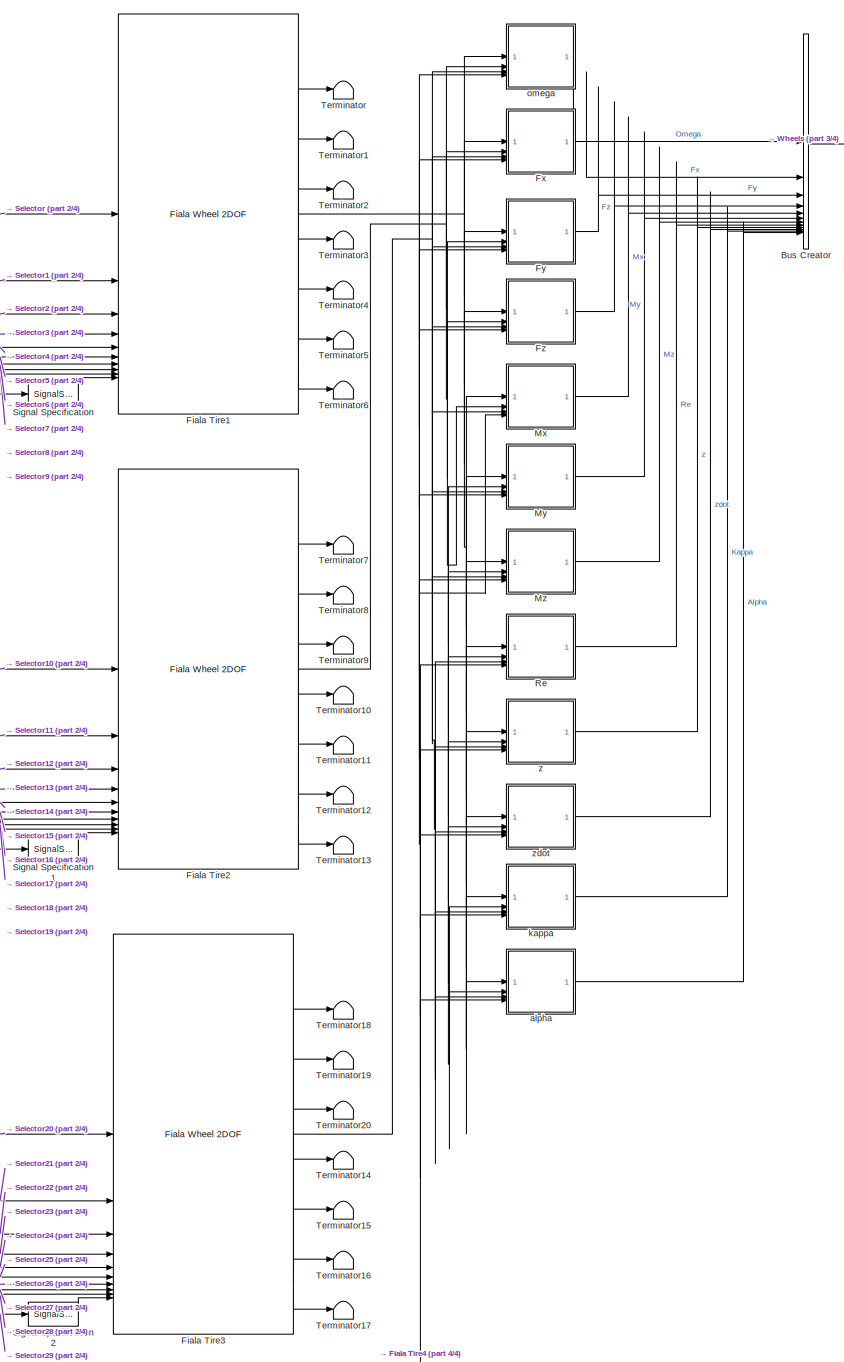
[diagram: Passenger Vehicle/Chassis and Tires/Wheels and Tires/VDBS/Tires/Fiala Tires - part 1/4, center side, full height]
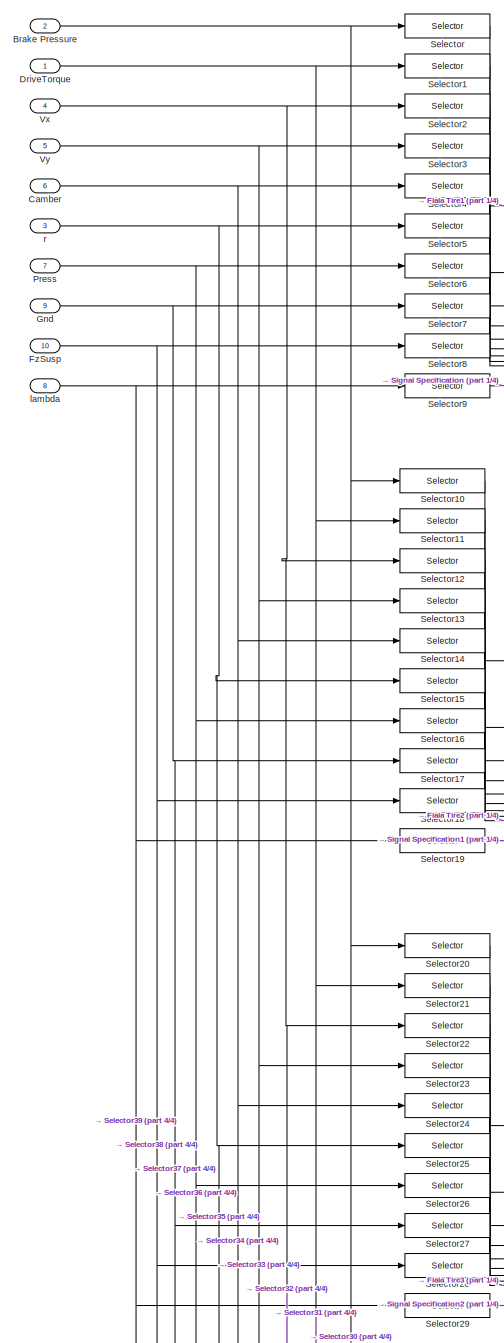
[diagram: Passenger Vehicle/Chassis and Tires/Wheels and Tires/VDBS/Tires/Fiala Tires - part 2/4, left side, full height]
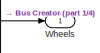
[diagram: Passenger Vehicle/Chassis and Tires/Wheels and Tires/VDBS/Tires/Fiala Tires - part 3/4, top right region]
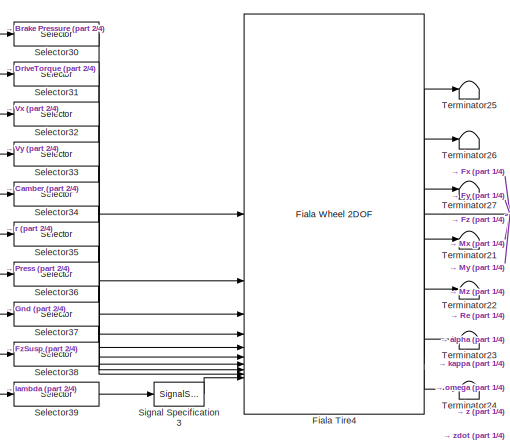
[diagram: Passenger Vehicle/Chassis and Tires/Wheels and Tires/VDBS/Tires/Fiala Tires - part 4/4, bottom center region]
BLOCK [SubSystem] Passenger Vehicle/Chassis and Tires/Wheels and Tires/VDBS/Tires/Fiala Tires
  VariantControl = 1
BLOCK [SubSystem] Passenger Vehicle/Chassis and Tires/Wheels and Tires/VDBS/Tires/Fiala Tires Vector
  VariantControl = 3
BLOCK [Inport] Passenger Vehicle/Chassis and Tires/Wheels and Tires/VDBS/Tires/Fiala Tires Vector/Brake Pressure
  Port = 2
BLOCK [Inport] Passenger Vehicle/Chassis and Tires/Wheels and Tires/VDBS/Tires/Fiala Tires Vector/Camber
  Port = 6
BLOCK [Inport] Passenger Vehicle/Chassis and Tires/Wheels and Tires/VDBS/Tires/Fiala Tires Vector/DriveTorque
BLOCK [Reference] Passenger Vehicle/Chassis and Tires/Wheels and Tires/VDBS/Tires/Fiala Tires Vector/Fiala Tire  REF=vehdynlibtire/Fiala Wheel 2DOF
  SourceBlock = vehdynlibtire/Fiala Wheel 2DOF
  SourceType = Fiala Wheel 2DOF
BLOCK [Inport] Passenger Vehicle/Chassis and Tires/Wheels and Tires/VDBS/Tires/Fiala Tires Vector/FzSusp
  Port = 10
BLOCK [Inport] Passenger Vehicle/Chassis and Tires/Wheels and Tires/VDBS/Tires/Fiala Tires Vector/Gnd
  Port = 9
BLOCK [Inport] Passenger Vehicle/Chassis and Tires/Wheels and Tires/VDBS/Tires/Fiala Tires Vector/Press
  Port = 7
  Unit = Pa
BLOCK [Reshape] Passenger Vehicle/Chassis and Tires/Wheels and Tires/VDBS/Tires/Fiala Tires Vector/Reshape
BLOCK [Selector] Passenger Vehicle/Chassis and Tires/Wheels and Tires/VDBS/Tires/Fiala Tires Vector/Selector9
  IndexOptions = Index vector (dialog),Select all
  Indices = 5,1
  InputPortWidth = 4
  NumberOfDimensions = 2
  OutputSizes = 1,1
BLOCK [SignalSpecification] Passenger Vehicle/Chassis and Tires/Wheels and Tires/VDBS/Tires/Fiala Tires Vector/Signal Specification
  Unit = 1
BLOCK [Terminator] Passenger Vehicle/Chassis and Tires/Wheels and Tires/VDBS/Tires/Fiala Tires Vector/Terminator
BLOCK [Terminator] Passenger Vehicle/Chassis and Tires/Wheels and Tires/VDBS/Tires/Fiala Tires Vector/Terminator1
BLOCK [Terminator] Passenger Vehicle/Chassis and Tires/Wheels and Tires/VDBS/Tires/Fiala Tires Vector/Terminator2
BLOCK [Terminator] Passenger Vehicle/Chassis and Tires/Wheels and Tires/VDBS/Tires/Fiala Tires Vector/Terminator3
BLOCK [Terminator] Passenger Vehicle/Chassis and Tires/Wheels and Tires/VDBS/Tires/Fiala Tires Vector/Terminator4
BLOCK [Terminator] Passenger Vehicle/Chassis and Tires/Wheels and Tires/VDBS/Tires/Fiala Tires Vector/Terminator5
BLOCK [Terminator] Passenger Vehicle/Chassis and Tires/Wheels and Tires/VDBS/Tires/Fiala Tires Vector/Terminator6
BLOCK [Inport] Passenger Vehicle/Chassis and Tires/Wheels and Tires/VDBS/Tires/Fiala Tires Vector/Vx
  Port = 4
BLOCK [Inport] Passenger Vehicle/Chassis and Tires/Wheels and Tires/VDBS/Tires/Fiala Tires Vector/Vy
  Port = 5
BLOCK [Outport] Passenger Vehicle/Chassis and Tires/Wheels and Tires/VDBS/Tires/Fiala Tires Vector/Wheels
  VectorParamsAs1DForOutWhenUnconnected = off
BLOCK [Inport] Passenger Vehicle/Chassis and Tires/Wheels and Tires/VDBS/Tires/Fiala Tires Vector/lambda
  Port = 8
  Unit = 1
BLOCK [Inport] Passenger Vehicle/Chassis and Tires/Wheels and Tires/VDBS/Tires/Fiala Tires Vector/r
  Port = 3
BLOCK [Inport] Passenger Vehicle/Chassis and Tires/Wheels and Tires/VDBS/Tires/Fiala Tires/Brake Pressure
  Port = 2
BLOCK [BusCreator] Passenger Vehicle/Chassis and Tires/Wheels and Tires/VDBS/Tires/Fiala Tires/Bus Creator
  DisplayOption = bar
  InheritFromInputs = on
  Inputs = 12
BLOCK [Inport] Passenger Vehicle/Chassis and Tires/Wheels and Tires/VDBS/Tires/Fiala Tires/Camber
  Port = 6
BLOCK [Inport] Passenger Vehicle/Chassis and Tires/Wheels and Tires/VDBS/Tires/Fiala Tires/DriveTorque
BLOCK [Reference] Passenger Vehicle/Chassis and Tires/Wheels and Tires/VDBS/Tires/Fiala Tires/Fiala Tire1  REF=vehdynlibtire/Fiala Wheel 2DOF
  SourceBlock = vehdynlibtire/Fiala Wheel 2DOF
  SourceType = Fiala Wheel 2DOF
BLOCK [Reference] Passenger Vehicle/Chassis and Tires/Wheels and Tires/VDBS/Tires/Fiala Tires/Fiala Tire2  REF=vehdynlibtire/Fiala Wheel 2DOF
  SourceBlock = vehdynlibtire/Fiala Wheel 2DOF
  SourceType = Fiala Wheel 2DOF
BLOCK [Reference] Passenger Vehicle/Chassis and Tires/Wheels and Tires/VDBS/Tires/Fiala Tires/Fiala Tire3  REF=vehdynlibtire/Fiala Wheel 2DOF
  SourceBlock = vehdynlibtire/Fiala Wheel 2DOF
  SourceType = Fiala Wheel 2DOF
BLOCK [Reference] Passenger Vehicle/Chassis and Tires/Wheels and Tires/VDBS/Tires/Fiala Tires/Fiala Tire4  REF=vehdynlibtire/Fiala Wheel 2DOF
  SourceBlock = vehdynlibtire/Fiala Wheel 2DOF
  SourceType = Fiala Wheel 2DOF
BLOCK [SubSystem] Passenger Vehicle/Chassis and Tires/Wheels and Tires/VDBS/Tires/Fiala Tires/Fx
BLOCK [BusSelector] Passenger Vehicle/Chassis and Tires/Wheels and Tires/VDBS/Tires/Fiala Tires/Fx/Bus Selector
  OutputSignals = Fx
BLOCK [BusSelector] Passenger Vehicle/Chassis and Tires/Wheels and Tires/VDBS/Tires/Fiala Tires/Fx/Bus Selector1
  OutputSignals = Fx
BLOCK [BusSelector] Passenger Vehicle/Chassis and Tires/Wheels and Tires/VDBS/Tires/Fiala Tires/Fx/Bus Selector2
  OutputSignals = Fx
BLOCK [BusSelector] Passenger Vehicle/Chassis and Tires/Wheels and Tires/VDBS/Tires/Fiala Tires/Fx/Bus Selector3
  OutputSignals = Fx
BLOCK [Inport] Passenger Vehicle/Chassis and Tires/Wheels and Tires/VDBS/Tires/Fiala Tires/Fx/In1
BLOCK [Inport] Passenger Vehicle/Chassis and Tires/Wheels and Tires/VDBS/Tires/Fiala Tires/Fx/In2
  Port = 2
BLOCK [Inport] Passenger Vehicle/Chassis and Tires/Wheels and Tires/VDBS/Tires/Fiala Tires/Fx/In3
  Port = 3
BLOCK [Inport] Passenger Vehicle/Chassis and Tires/Wheels and Tires/VDBS/Tires/Fiala Tires/Fx/In4
  Port = 4
BLOCK [Outport] Passenger Vehicle/Chassis and Tires/Wheels and Tires/VDBS/Tires/Fiala Tires/Fx/Out1
  VectorParamsAs1DForOutWhenUnconnected = off
BLOCK [Concatenate] Passenger Vehicle/Chassis and Tires/Wheels and Tires/VDBS/Tires/Fiala Tires/Fx/Vector Concatenate
  NumInputs = 4
BLOCK [SubSystem] Passenger Vehicle/Chassis and Tires/Wheels and Tires/VDBS/Tires/Fiala Tires/Fy
BLOCK [BusSelector] Passenger Vehicle/Chassis and Tires/Wheels and Tires/VDBS/Tires/Fiala Tires/Fy/Bus Selector
  OutputSignals = Fy
BLOCK [BusSelector] Passenger Vehicle/Chassis and Tires/Wheels and Tires/VDBS/Tires/Fiala Tires/Fy/Bus Selector1
  OutputSignals = Fy
BLOCK [BusSelector] Passenger Vehicle/Chassis and Tires/Wheels and Tires/VDBS/Tires/Fiala Tires/Fy/Bus Selector2
  OutputSignals = Fy
BLOCK [BusSelector] Passenger Vehicle/Chassis and Tires/Wheels and Tires/VDBS/Tires/Fiala Tires/Fy/Bus Selector3
  OutputSignals = Fy
BLOCK [Inport] Passenger Vehicle/Chassis and Tires/Wheels and Tires/VDBS/Tires/Fiala Tires/Fy/In1
BLOCK [Inport] Passenger Vehicle/Chassis and Tires/Wheels and Tires/VDBS/Tires/Fiala Tires/Fy/In2
  Port = 2
BLOCK [Inport] Passenger Vehicle/Chassis and Tires/Wheels and Tires/VDBS/Tires/Fiala Tires/Fy/In3
  Port = 3
BLOCK [Inport] Passenger Vehicle/Chassis and Tires/Wheels and Tires/VDBS/Tires/Fiala Tires/Fy/In4
  Port = 4
BLOCK [Outport] Passenger Vehicle/Chassis and Tires/Wheels and Tires/VDBS/Tires/Fiala Tires/Fy/Out1
  VectorParamsAs1DForOutWhenUnconnected = off
BLOCK [Concatenate] Passenger Vehicle/Chassis and Tires/Wheels and Tires/VDBS/Tires/Fiala Tires/Fy/Vector Concatenate
  NumInputs = 4
BLOCK [SubSystem] Passenger Vehicle/Chassis and Tires/Wheels and Tires/VDBS/Tires/Fiala Tires/Fz
BLOCK [BusSelector] Passenger Vehicle/Chassis and Tires/Wheels and Tires/VDBS/Tires/Fiala Tires/Fz/Bus Selector
  OutputSignals = Fz
BLOCK [BusSelector] Passenger Vehicle/Chassis and Tires/Wheels and Tires/VDBS/Tires/Fiala Tires/Fz/Bus Selector1
  OutputSignals = Fz
BLOCK [BusSelector] Passenger Vehicle/Chassis and Tires/Wheels and Tires/VDBS/Tires/Fiala Tires/Fz/Bus Selector2
  OutputSignals = Fz
BLOCK [BusSelector] Passenger Vehicle/Chassis and Tires/Wheels and Tires/VDBS/Tires/Fiala Tires/Fz/Bus Selector3
  OutputSignals = Fz
BLOCK [Inport] Passenger Vehicle/Chassis and Tires/Wheels and Tires/VDBS/Tires/Fiala Tires/Fz/In1
BLOCK [Inport] Passenger Vehicle/Chassis and Tires/Wheels and Tires/VDBS/Tires/Fiala Tires/Fz/In2
  Port = 2
BLOCK [Inport] Passenger Vehicle/Chassis and Tires/Wheels and Tires/VDBS/Tires/Fiala Tires/Fz/In3
  Port = 3
BLOCK [Inport] Passenger Vehicle/Chassis and Tires/Wheels and Tires/VDBS/Tires/Fiala Tires/Fz/In4
  Port = 4
BLOCK [Outport] Passenger Vehicle/Chassis and Tires/Wheels and Tires/VDBS/Tires/Fiala Tires/Fz/Out1
  VectorParamsAs1DForOutWhenUnconnected = off
BLOCK [Concatenate] Passenger Vehicle/Chassis and Tires/Wheels and Tires/VDBS/Tires/Fiala Tires/Fz/Vector Concatenate
  NumInputs = 4
BLOCK [Inport] Passenger Vehicle/Chassis and Tires/Wheels and Tires/VDBS/Tires/Fiala Tires/FzSusp
  Port = 10
BLOCK [Inport] Passenger Vehicle/Chassis and Tires/Wheels and Tires/VDBS/Tires/Fiala Tires/Gnd
  Port = 9
BLOCK [SubSystem] Passenger Vehicle/Chassis and Tires/Wheels and Tires/VDBS/Tires/Fiala Tires/Mx
BLOCK [BusSelector] Passenger Vehicle/Chassis and Tires/Wheels and Tires/VDBS/Tires/Fiala Tires/Mx/Bus Selector
  OutputSignals = Mx
BLOCK [BusSelector] Passenger Vehicle/Chassis and Tires/Wheels and Tires/VDBS/Tires/Fiala Tires/Mx/Bus Selector1
  OutputSignals = Mx
BLOCK [BusSelector] Passenger Vehicle/Chassis and Tires/Wheels and Tires/VDBS/Tires/Fiala Tires/Mx/Bus Selector2
  OutputSignals = Mx
BLOCK [BusSelector] Passenger Vehicle/Chassis and Tires/Wheels and Tires/VDBS/Tires/Fiala Tires/Mx/Bus Selector3
  OutputSignals = Mx
BLOCK [Inport] Passenger Vehicle/Chassis and Tires/Wheels and Tires/VDBS/Tires/Fiala Tires/Mx/In1
BLOCK [Inport] Passenger Vehicle/Chassis and Tires/Wheels and Tires/VDBS/Tires/Fiala Tires/Mx/In2
  Port = 2
BLOCK [Inport] Passenger Vehicle/Chassis and Tires/Wheels and Tires/VDBS/Tires/Fiala Tires/Mx/In3
  Port = 3
BLOCK [Inport] Passenger Vehicle/Chassis and Tires/Wheels and Tires/VDBS/Tires/Fiala Tires/Mx/In4
  Port = 4
BLOCK [Outport] Passenger Vehicle/Chassis and Tires/Wheels and Tires/VDBS/Tires/Fiala Tires/Mx/Out1
  VectorParamsAs1DForOutWhenUnconnected = off
BLOCK [Concatenate] Passenger Vehicle/Chassis and Tires/Wheels and Tires/VDBS/Tires/Fiala Tires/Mx/Vector Concatenate
  NumInputs = 4
BLOCK [SubSystem] Passenger Vehicle/Chassis and Tires/Wheels and Tires/VDBS/Tires/Fiala Tires/My
BLOCK [BusSelector] Passenger Vehicle/Chassis and Tires/Wheels and Tires/VDBS/Tires/Fiala Tires/My/Bus Selector
  OutputSignals = My
BLOCK [BusSelector] Passenger Vehicle/Chassis and Tires/Wheels and Tires/VDBS/Tires/Fiala Tires/My/Bus Selector1
  OutputSignals = My
BLOCK [BusSelector] Passenger Vehicle/Chassis and Tires/Wheels and Tires/VDBS/Tires/Fiala Tires/My/Bus Selector2
  OutputSignals = My
BLOCK [BusSelector] Passenger Vehicle/Chassis and Tires/Wheels and Tires/VDBS/Tires/Fiala Tires/My/Bus Selector3
  OutputSignals = My
BLOCK [Inport] Passenger Vehicle/Chassis and Tires/Wheels and Tires/VDBS/Tires/Fiala Tires/My/In1
BLOCK [Inport] Passenger Vehicle/Chassis and Tires/Wheels and Tires/VDBS/Tires/Fiala Tires/My/In2
  Port = 2
BLOCK [Inport] Passenger Vehicle/Chassis and Tires/Wheels and Tires/VDBS/Tires/Fiala Tires/My/In3
  Port = 3
BLOCK [Inport] Passenger Vehicle/Chassis and Tires/Wheels and Tires/VDBS/Tires/Fiala Tires/My/In4
  Port = 4
BLOCK [Outport] Passenger Vehicle/Chassis and Tires/Wheels and Tires/VDBS/Tires/Fiala Tires/My/Out1
  VectorParamsAs1DForOutWhenUnconnected = off
BLOCK [Concatenate] Passenger Vehicle/Chassis and Tires/Wheels and Tires/VDBS/Tires/Fiala Tires/My/Vector Concatenate
  NumInputs = 4
BLOCK [SubSystem] Passenger Vehicle/Chassis and Tires/Wheels and Tires/VDBS/Tires/Fiala Tires/Mz
BLOCK [BusSelector] Passenger Vehicle/Chassis and Tires/Wheels and Tires/VDBS/Tires/Fiala Tires/Mz/Bus Selector
  OutputSignals = Mz
BLOCK [BusSelector] Passenger Vehicle/Chassis and Tires/Wheels and Tires/VDBS/Tires/Fiala Tires/Mz/Bus Selector1
  OutputSignals = Mz
BLOCK [BusSelector] Passenger Vehicle/Chassis and Tires/Wheels and Tires/VDBS/Tires/Fiala Tires/Mz/Bus Selector2
  OutputSignals = Mz
BLOCK [BusSelector] Passenger Vehicle/Chassis and Tires/Wheels and Tires/VDBS/Tires/Fiala Tires/Mz/Bus Selector3
  OutputSignals = Mz
BLOCK [Inport] Passenger Vehicle/Chassis and Tires/Wheels and Tires/VDBS/Tires/Fiala Tires/Mz/In1
BLOCK [Inport] Passenger Vehicle/Chassis and Tires/Wheels and Tires/VDBS/Tires/Fiala Tires/Mz/In2
  Port = 2
BLOCK [Inport] Passenger Vehicle/Chassis and Tires/Wheels and Tires/VDBS/Tires/Fiala Tires/Mz/In3
  Port = 3
BLOCK [Inport] Passenger Vehicle/Chassis and Tires/Wheels and Tires/VDBS/Tires/Fiala Tires/Mz/In4
  Port = 4
BLOCK [Outport] Passenger Vehicle/Chassis and Tires/Wheels and Tires/VDBS/Tires/Fiala Tires/Mz/Out1
  VectorParamsAs1DForOutWhenUnconnected = off
BLOCK [Concatenate] Passenger Vehicle/Chassis and Tires/Wheels and Tires/VDBS/Tires/Fiala Tires/Mz/Vector Concatenate
  NumInputs = 4
BLOCK [Inport] Passenger Vehicle/Chassis and Tires/Wheels and Tires/VDBS/Tires/Fiala Tires/Press
  Port = 7
  Unit = Pa
BLOCK [SubSystem] Passenger Vehicle/Chassis and Tires/Wheels and Tires/VDBS/Tires/Fiala Tires/Re
BLOCK [BusSelector] Passenger Vehicle/Chassis and Tires/Wheels and Tires/VDBS/Tires/Fiala Tires/Re/Bus Selector
  OutputSignals = Re
BLOCK [BusSelector] Passenger Vehicle/Chassis and Tires/Wheels and Tires/VDBS/Tires/Fiala Tires/Re/Bus Selector1
  OutputSignals = Re
BLOCK [BusSelector] Passenger Vehicle/Chassis and Tires/Wheels and Tires/VDBS/Tires/Fiala Tires/Re/Bus Selector2
  OutputSignals = Re
BLOCK [BusSelector] Passenger Vehicle/Chassis and Tires/Wheels and Tires/VDBS/Tires/Fiala Tires/Re/Bus Selector3
  OutputSignals = Re
BLOCK [Inport] Passenger Vehicle/Chassis and Tires/Wheels and Tires/VDBS/Tires/Fiala Tires/Re/In1
BLOCK [Inport] Passenger Vehicle/Chassis and Tires/Wheels and Tires/VDBS/Tires/Fiala Tires/Re/In2
  Port = 2
BLOCK [Inport] Passenger Vehicle/Chassis and Tires/Wheels and Tires/VDBS/Tires/Fiala Tires/Re/In3
  Port = 3
BLOCK [Inport] Passenger Vehicle/Chassis and Tires/Wheels and Tires/VDBS/Tires/Fiala Tires/Re/In4
  Port = 4
BLOCK [Outport] Passenger Vehicle/Chassis and Tires/Wheels and Tires/VDBS/Tires/Fiala Tires/Re/Out1
  VectorParamsAs1DForOutWhenUnconnected = off
BLOCK [Concatenate] Passenger Vehicle/Chassis and Tires/Wheels and Tires/VDBS/Tires/Fiala Tires/Re/Vector Concatenate
  NumInputs = 4
BLOCK [Selector] Passenger Vehicle/Chassis and Tires/Wheels and Tires/VDBS/Tires/Fiala Tires/Selector
  IndexOptions = Index vector (dialog)
  Indices = 1
  InputPortWidth = 4
  OutputSizes = 1
BLOCK [Selector] Passenger Vehicle/Chassis and Tires/Wheels and Tires/VDBS/Tires/Fiala Tires/Selector1
  IndexOptions = Index vector (dialog)
  Indices = 1
  InputPortWidth = 4
  OutputSizes = 1
BLOCK [Selector] Passenger Vehicle/Chassis and Tires/Wheels and Tires/VDBS/Tires/Fiala Tires/Selector10
  IndexOptions = Index vector (dialog)
  Indices = 2
  InputPortWidth = 4
  OutputSizes = 1
BLOCK [Selector] Passenger Vehicle/Chassis and Tires/Wheels and Tires/VDBS/Tires/Fiala Tires/Selector11
  IndexOptions = Index vector (dialog)
  Indices = 2
  InputPortWidth = 4
  OutputSizes = 1
BLOCK [Selector] Passenger Vehicle/Chassis and Tires/Wheels and Tires/VDBS/Tires/Fiala Tires/Selector12
  IndexOptions = Index vector (dialog)
  Indices = 2
  InputPortWidth = 4
  OutputSizes = 1
BLOCK [Selector] Passenger Vehicle/Chassis and Tires/Wheels and Tires/VDBS/Tires/Fiala Tires/Selector13
  IndexOptions = Index vector (dialog)
  Indices = 2
  InputPortWidth = 4
  OutputSizes = 1
BLOCK [Selector] Passenger Vehicle/Chassis and Tires/Wheels and Tires/VDBS/Tires/Fiala Tires/Selector14
  IndexOptions = Index vector (dialog)
  Indices = 2
  InputPortWidth = 4
  OutputSizes = 1
BLOCK [Selector] Passenger Vehicle/Chassis and Tires/Wheels and Tires/VDBS/Tires/Fiala Tires/Selector15
  IndexOptions = Index vector (dialog)
  Indices = 2
  InputPortWidth = 4
  OutputSizes = 1
BLOCK [Selector] Passenger Vehicle/Chassis and Tires/Wheels and Tires/VDBS/Tires/Fiala Tires/Selector16
  IndexOptions = Index vector (dialog)
  Indices = 2
  InputPortWidth = 4
  OutputSizes = 1
BLOCK [Selector] Passenger Vehicle/Chassis and Tires/Wheels and Tires/VDBS/Tires/Fiala Tires/Selector17
  IndexOptions = Index vector (dialog)
  Indices = 2
  InputPortWidth = 4
  OutputSizes = 1
BLOCK [Selector] Passenger Vehicle/Chassis and Tires/Wheels and Tires/VDBS/Tires/Fiala Tires/Selector18
  IndexOptions = Index vector (dialog)
  Indices = 2
  InputPortWidth = 4
  OutputSizes = 1
BLOCK [Selector] Passenger Vehicle/Chassis and Tires/Wheels and Tires/VDBS/Tires/Fiala Tires/Selector19
  IndexOptions = Index vector (dialog),Index vector (dialog)
  Indices = 5,2
  InputPortWidth = 4
  NumberOfDimensions = 2
  OutputSizes = 1,1
BLOCK [Selector] Passenger Vehicle/Chassis and Tires/Wheels and Tires/VDBS/Tires/Fiala Tires/Selector2
  IndexOptions = Index vector (dialog)
  Indices = 1
  InputPortWidth = 4
  OutputSizes = 1
BLOCK [Selector] Passenger Vehicle/Chassis and Tires/Wheels and Tires/VDBS/Tires/Fiala Tires/Selector20
  IndexOptions = Index vector (dialog)
  Indices = 3
  InputPortWidth = 4
  OutputSizes = 1
BLOCK [Selector] Passenger Vehicle/Chassis and Tires/Wheels and Tires/VDBS/Tires/Fiala Tires/Selector21
  IndexOptions = Index vector (dialog)
  Indices = 3
  InputPortWidth = 4
  OutputSizes = 1
BLOCK [Selector] Passenger Vehicle/Chassis and Tires/Wheels and Tires/VDBS/Tires/Fiala Tires/Selector22
  IndexOptions = Index vector (dialog)
  Indices = 3
  InputPortWidth = 4
  OutputSizes = 1
BLOCK [Selector] Passenger Vehicle/Chassis and Tires/Wheels and Tires/VDBS/Tires/Fiala Tires/Selector23
  IndexOptions = Index vector (dialog)
  Indices = 3
  InputPortWidth = 4
  OutputSizes = 1
BLOCK [Selector] Passenger Vehicle/Chassis and Tires/Wheels and Tires/VDBS/Tires/Fiala Tires/Selector24
  IndexOptions = Index vector (dialog)
  Indices = 3
  InputPortWidth = 4
  OutputSizes = 1
BLOCK [Selector] Passenger Vehicle/Chassis and Tires/Wheels and Tires/VDBS/Tires/Fiala Tires/Selector25
  IndexOptions = Index vector (dialog)
  Indices = 3
  InputPortWidth = 4
  OutputSizes = 1
BLOCK [Selector] Passenger Vehicle/Chassis and Tires/Wheels and Tires/VDBS/Tires/Fiala Tires/Selector26
  IndexOptions = Index vector (dialog)
  Indices = 3
  InputPortWidth = 4
  OutputSizes = 1
BLOCK [Selector] Passenger Vehicle/Chassis and Tires/Wheels and Tires/VDBS/Tires/Fiala Tires/Selector27
  IndexOptions = Index vector (dialog)
  Indices = 3
  InputPortWidth = 4
  OutputSizes = 1
BLOCK [Selector] Passenger Vehicle/Chassis and Tires/Wheels and Tires/VDBS/Tires/Fiala Tires/Selector28
  IndexOptions = Index vector (dialog)
  Indices = 3
  InputPortWidth = 4
  OutputSizes = 1
BLOCK [Selector] Passenger Vehicle/Chassis and Tires/Wheels and Tires/VDBS/Tires/Fiala Tires/Selector29
  IndexOptions = Index vector (dialog),Index vector (dialog)
  Indices = 5,3
  InputPortWidth = 4
  NumberOfDimensions = 2
  OutputSizes = 1,1
BLOCK [Selector] Passenger Vehicle/Chassis and Tires/Wheels and Tires/VDBS/Tires/Fiala Tires/Selector3
  IndexOptions = Index vector (dialog)
  Indices = 1
  InputPortWidth = 4
  OutputSizes = 1
BLOCK [Selector] Passenger Vehicle/Chassis and Tires/Wheels and Tires/VDBS/Tires/Fiala Tires/Selector30
  IndexOptions = Index vector (dialog)
  Indices = 4
  InputPortWidth = 4
  OutputSizes = 1
BLOCK [Selector] Passenger Vehicle/Chassis and Tires/Wheels and Tires/VDBS/Tires/Fiala Tires/Selector31
  IndexOptions = Index vector (dialog)
  Indices = 4
  InputPortWidth = 4
  OutputSizes = 1
BLOCK [Selector] Passenger Vehicle/Chassis and Tires/Wheels and Tires/VDBS/Tires/Fiala Tires/Selector32
  IndexOptions = Index vector (dialog)
  Indices = 4
  InputPortWidth = 4
  OutputSizes = 1
BLOCK [Selector] Passenger Vehicle/Chassis and Tires/Wheels and Tires/VDBS/Tires/Fiala Tires/Selector33
  IndexOptions = Index vector (dialog)
  Indices = 4
  InputPortWidth = 4
  OutputSizes = 1
BLOCK [Selector] Passenger Vehicle/Chassis and Tires/Wheels and Tires/VDBS/Tires/Fiala Tires/Selector34
  IndexOptions = Index vector (dialog)
  Indices = 4
  InputPortWidth = 4
  OutputSizes = 1
BLOCK [Selector] Passenger Vehicle/Chassis and Tires/Wheels and Tires/VDBS/Tires/Fiala Tires/Selector35
  IndexOptions = Index vector (dialog)
  Indices = 4
  InputPortWidth = 4
  OutputSizes = 1
BLOCK [Selector] Passenger Vehicle/Chassis and Tires/Wheels and Tires/VDBS/Tires/Fiala Tires/Selector36
  IndexOptions = Index vector (dialog)
  Indices = 4
  InputPortWidth = 4
  OutputSizes = 1
BLOCK [Selector] Passenger Vehicle/Chassis and Tires/Wheels and Tires/VDBS/Tires/Fiala Tires/Selector37
  IndexOptions = Index vector (dialog)
  Indices = 4
  InputPortWidth = 4
  OutputSizes = 1
BLOCK [Selector] Passenger Vehicle/Chassis and Tires/Wheels and Tires/VDBS/Tires/Fiala Tires/Selector38
  IndexOptions = Index vector (dialog)
  Indices = 4
  InputPortWidth = 4
  OutputSizes = 1
BLOCK [Selector] Passenger Vehicle/Chassis and Tires/Wheels and Tires/VDBS/Tires/Fiala Tires/Selector39
  IndexOptions = Index vector (dialog),Index vector (dialog)
  Indices = 5,4
  InputPortWidth = 4
  NumberOfDimensions = 2
  OutputSizes = 1,1
BLOCK [Selector] Passenger Vehicle/Chassis and Tires/Wheels and Tires/VDBS/Tires/Fiala Tires/Selector4
  IndexOptions = Index vector (dialog)
  Indices = 1
  InputPortWidth = 4
  OutputSizes = 1
BLOCK [Selector] Passenger Vehicle/Chassis and Tires/Wheels and Tires/VDBS/Tires/Fiala Tires/Selector5
  IndexOptions = Index vector (dialog)
  Indices = 1
  InputPortWidth = 4
  OutputSizes = 1
BLOCK [Selector] Passenger Vehicle/Chassis and Tires/Wheels and Tires/VDBS/Tires/Fiala Tires/Selector6
  IndexOptions = Index vector (dialog)
  Indices = 1
  InputPortWidth = 4
  OutputSizes = 1
BLOCK [Selector] Passenger Vehicle/Chassis and Tires/Wheels and Tires/VDBS/Tires/Fiala Tires/Selector7
  IndexOptions = Index vector (dialog)
  Indices = 1
  InputPortWidth = 4
  OutputSizes = 1
BLOCK [Selector] Passenger Vehicle/Chassis and Tires/Wheels and Tires/VDBS/Tires/Fiala Tires/Selector8
  IndexOptions = Index vector (dialog)
  Indices = 1
  InputPortWidth = 4
  OutputSizes = 1
BLOCK [Selector] Passenger Vehicle/Chassis and Tires/Wheels and Tires/VDBS/Tires/Fiala Tires/Selector9
  IndexOptions = Index vector (dialog),Index vector (dialog)
  Indices = 5,1
  InputPortWidth = 4
  NumberOfDimensions = 2
  OutputSizes = 1,1
BLOCK [SignalSpecification] Passenger Vehicle/Chassis and Tires/Wheels and Tires/VDBS/Tires/Fiala Tires/Signal Specification
  Unit = 1
BLOCK [SignalSpecification] Passenger Vehicle/Chassis and Tires/Wheels and Tires/VDBS/Tires/Fiala Tires/Signal Specification1
  Unit = 1
BLOCK [SignalSpecification] Passenger Vehicle/Chassis and Tires/Wheels and Tires/VDBS/Tires/Fiala Tires/Signal Specification2
  Unit = 1
BLOCK [SignalSpecification] Passenger Vehicle/Chassis and Tires/Wheels and Tires/VDBS/Tires/Fiala Tires/Signal Specification3
  Unit = 1
BLOCK [Terminator] Passenger Vehicle/Chassis and Tires/Wheels and Tires/VDBS/Tires/Fiala Tires/Terminator
BLOCK [Terminator] Passenger Vehicle/Chassis and Tires/Wheels and Tires/VDBS/Tires/Fiala Tires/Terminator1
BLOCK [Terminator] Passenger Vehicle/Chassis and Tires/Wheels and Tires/VDBS/Tires/Fiala Tires/Terminator10
BLOCK [Terminator] Passenger Vehicle/Chassis and Tires/Wheels and Tires/VDBS/Tires/Fiala Tires/Terminator11
BLOCK [Terminator] Passenger Vehicle/Chassis and Tires/Wheels and Tires/VDBS/Tires/Fiala Tires/Terminator12
BLOCK [Terminator] Passenger Vehicle/Chassis and Tires/Wheels and Tires/VDBS/Tires/Fiala Tires/Terminator13
BLOCK [Terminator] Passenger Vehicle/Chassis and Tires/Wheels and Tires/VDBS/Tires/Fiala Tires/Terminator14
BLOCK [Terminator] Passenger Vehicle/Chassis and Tires/Wheels and Tires/VDBS/Tires/Fiala Tires/Terminator15
BLOCK [Terminator] Passenger Vehicle/Chassis and Tires/Wheels and Tires/VDBS/Tires/Fiala Tires/Terminator16
BLOCK [Terminator] Passenger Vehicle/Chassis and Tires/Wheels and Tires/VDBS/Tires/Fiala Tires/Terminator17
BLOCK [Terminator] Passenger Vehicle/Chassis and Tires/Wheels and Tires/VDBS/Tires/Fiala Tires/Terminator18
BLOCK [Terminator] Passenger Vehicle/Chassis and Tires/Wheels and Tires/VDBS/Tires/Fiala Tires/Terminator19
BLOCK [Terminator] Passenger Vehicle/Chassis and Tires/Wheels and Tires/VDBS/Tires/Fiala Tires/Terminator2
BLOCK [Terminator] Passenger Vehicle/Chassis and Tires/Wheels and Tires/VDBS/Tires/Fiala Tires/Terminator20
BLOCK [Terminator] Passenger Vehicle/Chassis and Tires/Wheels and Tires/VDBS/Tires/Fiala Tires/Terminator21
BLOCK [Terminator] Passenger Vehicle/Chassis and Tires/Wheels and Tires/VDBS/Tires/Fiala Tires/Terminator22
BLOCK [Terminator] Passenger Vehicle/Chassis and Tires/Wheels and Tires/VDBS/Tires/Fiala Tires/Terminator23
BLOCK [Terminator] Passenger Vehicle/Chassis and Tires/Wheels and Tires/VDBS/Tires/Fiala Tires/Terminator24
BLOCK [Terminator] Passenger Vehicle/Chassis and Tires/Wheels and Tires/VDBS/Tires/Fiala Tires/Terminator25
BLOCK [Terminator] Passenger Vehicle/Chassis and Tires/Wheels and Tires/VDBS/Tires/Fiala Tires/Terminator26
BLOCK [Terminator] Passenger Vehicle/Chassis and Tires/Wheels and Tires/VDBS/Tires/Fiala Tires/Terminator27
BLOCK [Terminator] Passenger Vehicle/Chassis and Tires/Wheels and Tires/VDBS/Tires/Fiala Tires/Terminator3
BLOCK [Terminator] Passenger Vehicle/Chassis and Tires/Wheels and Tires/VDBS/Tires/Fiala Tires/Terminator4
BLOCK [Terminator] Passenger Vehicle/Chassis and Tires/Wheels and Tires/VDBS/Tires/Fiala Tires/Terminator5
BLOCK [Terminator] Passenger Vehicle/Chassis and Tires/Wheels and Tires/VDBS/Tires/Fiala Tires/Terminator6
BLOCK [Terminator] Passenger Vehicle/Chassis and Tires/Wheels and Tires/VDBS/Tires/Fiala Tires/Terminator7
BLOCK [Terminator] Passenger Vehicle/Chassis and Tires/Wheels and Tires/VDBS/Tires/Fiala Tires/Terminator8
BLOCK [Terminator] Passenger Vehicle/Chassis and Tires/Wheels and Tires/VDBS/Tires/Fiala Tires/Terminator9
BLOCK [Inport] Passenger Vehicle/Chassis and Tires/Wheels and Tires/VDBS/Tires/Fiala Tires/Vx
  Port = 4
BLOCK [Inport] Passenger Vehicle/Chassis and Tires/Wheels and Tires/VDBS/Tires/Fiala Tires/Vy
  Port = 5
BLOCK [Outport] Passenger Vehicle/Chassis and Tires/Wheels and Tires/VDBS/Tires/Fiala Tires/Wheels
  VectorParamsAs1DForOutWhenUnconnected = off
BLOCK [SubSystem] Passenger Vehicle/Chassis and Tires/Wheels and Tires/VDBS/Tires/Fiala Tires/alpha
BLOCK [BusSelector] Passenger Vehicle/Chassis and Tires/Wheels and Tires/VDBS/Tires/Fiala Tires/alpha/Bus Selector
  OutputSignals = Alpha
BLOCK [BusSelector] Passenger Vehicle/Chassis and Tires/Wheels and Tires/VDBS/Tires/Fiala Tires/alpha/Bus Selector1
  OutputSignals = Alpha
BLOCK [BusSelector] Passenger Vehicle/Chassis and Tires/Wheels and Tires/VDBS/Tires/Fiala Tires/alpha/Bus Selector2
  OutputSignals = Alpha
BLOCK [BusSelector] Passenger Vehicle/Chassis and Tires/Wheels and Tires/VDBS/Tires/Fiala Tires/alpha/Bus Selector3
  OutputSignals = Alpha
BLOCK [Inport] Passenger Vehicle/Chassis and Tires/Wheels and Tires/VDBS/Tires/Fiala Tires/alpha/In1
BLOCK [Inport] Passenger Vehicle/Chassis and Tires/Wheels and Tires/VDBS/Tires/Fiala Tires/alpha/In2
  Port = 2
BLOCK [Inport] Passenger Vehicle/Chassis and Tires/Wheels and Tires/VDBS/Tires/Fiala Tires/alpha/In3
  Port = 3
BLOCK [Inport] Passenger Vehicle/Chassis and Tires/Wheels and Tires/VDBS/Tires/Fiala Tires/alpha/In4
  Port = 4
BLOCK [Outport] Passenger Vehicle/Chassis and Tires/Wheels and Tires/VDBS/Tires/Fiala Tires/alpha/Out1
  VectorParamsAs1DForOutWhenUnconnected = off
BLOCK [Concatenate] Passenger Vehicle/Chassis and Tires/Wheels and Tires/VDBS/Tires/Fiala Tires/alpha/Vector Concatenate
  NumInputs = 4
BLOCK [SubSystem] Passenger Vehicle/Chassis and Tires/Wheels and Tires/VDBS/Tires/Fiala Tires/kappa
BLOCK [BusSelector] Passenger Vehicle/Chassis and Tires/Wheels and Tires/VDBS/Tires/Fiala Tires/kappa/Bus Selector
  OutputSignals = Kappa
BLOCK [BusSelector] Passenger Vehicle/Chassis and Tires/Wheels and Tires/VDBS/Tires/Fiala Tires/kappa/Bus Selector1
  OutputSignals = Kappa
BLOCK [BusSelector] Passenger Vehicle/Chassis and Tires/Wheels and Tires/VDBS/Tires/Fiala Tires/kappa/Bus Selector2
  OutputSignals = Kappa
BLOCK [BusSelector] Passenger Vehicle/Chassis and Tires/Wheels and Tires/VDBS/Tires/Fiala Tires/kappa/Bus Selector3
  OutputSignals = Kappa
BLOCK [Inport] Passenger Vehicle/Chassis and Tires/Wheels and Tires/VDBS/Tires/Fiala Tires/kappa/In1
BLOCK [Inport] Passenger Vehicle/Chassis and Tires/Wheels and Tires/VDBS/Tires/Fiala Tires/kappa/In2
  Port = 2
BLOCK [Inport] Passenger Vehicle/Chassis and Tires/Wheels and Tires/VDBS/Tires/Fiala Tires/kappa/In3
  Port = 3
BLOCK [Inport] Passenger Vehicle/Chassis and Tires/Wheels and Tires/VDBS/Tires/Fiala Tires/kappa/In4
  Port = 4
BLOCK [Outport] Passenger Vehicle/Chassis and Tires/Wheels and Tires/VDBS/Tires/Fiala Tires/kappa/Out1
  VectorParamsAs1DForOutWhenUnconnected = off
BLOCK [Concatenate] Passenger Vehicle/Chassis and Tires/Wheels and Tires/VDBS/Tires/Fiala Tires/kappa/Vector Concatenate
  NumInputs = 4
BLOCK [Inport] Passenger Vehicle/Chassis and Tires/Wheels and Tires/VDBS/Tires/Fiala Tires/lambda
  Port = 8
  Unit = 1
BLOCK [SubSystem] Passenger Vehicle/Chassis and Tires/Wheels and Tires/VDBS/Tires/Fiala Tires/omega
BLOCK [BusSelector] Passenger Vehicle/Chassis and Tires/Wheels and Tires/VDBS/Tires/Fiala Tires/omega/Bus Selector
  OutputSignals = Omega
BLOCK [BusSelector] Passenger Vehicle/Chassis and Tires/Wheels and Tires/VDBS/Tires/Fiala Tires/omega/Bus Selector1
  OutputSignals = Omega
BLOCK [BusSelector] Passenger Vehicle/Chassis and Tires/Wheels and Tires/VDBS/Tires/Fiala Tires/omega/Bus Selector2
  OutputSignals = Omega
BLOCK [BusSelector] Passenger Vehicle/Chassis and Tires/Wheels and Tires/VDBS/Tires/Fiala Tires/omega/Bus Selector3
  OutputSignals = Omega
BLOCK [Inport] Passenger Vehicle/Chassis and Tires/Wheels and Tires/VDBS/Tires/Fiala Tires/omega/In1
BLOCK [Inport] Passenger Vehicle/Chassis and Tires/Wheels and Tires/VDBS/Tires/Fiala Tires/omega/In2
  Port = 2
BLOCK [Inport] Passenger Vehicle/Chassis and Tires/Wheels and Tires/VDBS/Tires/Fiala Tires/omega/In3
  Port = 3
BLOCK [Inport] Passenger Vehicle/Chassis and Tires/Wheels and Tires/VDBS/Tires/Fiala Tires/omega/In4
  Port = 4
BLOCK [Outport] Passenger Vehicle/Chassis and Tires/Wheels and Tires/VDBS/Tires/Fiala Tires/omega/Out1
  VectorParamsAs1DForOutWhenUnconnected = off
BLOCK [Concatenate] Passenger Vehicle/Chassis and Tires/Wheels and Tires/VDBS/Tires/Fiala Tires/omega/Vector Concatenate
  NumInputs = 4
BLOCK [Inport] Passenger Vehicle/Chassis and Tires/Wheels and Tires/VDBS/Tires/Fiala Tires/r
  Port = 3
BLOCK [SubSystem] Passenger Vehicle/Chassis and Tires/Wheels and Tires/VDBS/Tires/Fiala Tires/z
BLOCK [BusSelector] Passenger Vehicle/Chassis and Tires/Wheels and Tires/VDBS/Tires/Fiala Tires/z/Bus Selector
  OutputSignals = z
BLOCK [BusSelector] Passenger Vehicle/Chassis and Tires/Wheels and Tires/VDBS/Tires/Fiala Tires/z/Bus Selector1
  OutputSignals = z
BLOCK [BusSelector] Passenger Vehicle/Chassis and Tires/Wheels and Tires/VDBS/Tires/Fiala Tires/z/Bus Selector2
  OutputSignals = z
BLOCK [BusSelector] Passenger Vehicle/Chassis and Tires/Wheels and Tires/VDBS/Tires/Fiala Tires/z/Bus Selector3
  OutputSignals = z
BLOCK [Inport] Passenger Vehicle/Chassis and Tires/Wheels and Tires/VDBS/Tires/Fiala Tires/z/In1
BLOCK [Inport] Passenger Vehicle/Chassis and Tires/Wheels and Tires/VDBS/Tires/Fiala Tires/z/In2
  Port = 2
BLOCK [Inport] Passenger Vehicle/Chassis and Tires/Wheels and Tires/VDBS/Tires/Fiala Tires/z/In3
  Port = 3
BLOCK [Inport] Passenger Vehicle/Chassis and Tires/Wheels and Tires/VDBS/Tires/Fiala Tires/z/In4
  Port = 4
BLOCK [Outport] Passenger Vehicle/Chassis and Tires/Wheels and Tires/VDBS/Tires/Fiala Tires/z/Out1
  VectorParamsAs1DForOutWhenUnconnected = off
BLOCK [Concatenate] Passenger Vehicle/Chassis and Tires/Wheels and Tires/VDBS/Tires/Fiala Tires/z/Vector Concatenate
  NumInputs = 4
BLOCK [SubSystem] Passenger Vehicle/Chassis and Tires/Wheels and Tires/VDBS/Tires/Fiala Tires/zdot
BLOCK [BusSelector] Passenger Vehicle/Chassis and Tires/Wheels and Tires/VDBS/Tires/Fiala Tires/zdot/Bus Selector
  OutputSignals = zdot
BLOCK [BusSelector] Passenger Vehicle/Chassis and Tires/Wheels and Tires/VDBS/Tires/Fiala Tires/zdot/Bus Selector1
  OutputSignals = zdot
BLOCK [BusSelector] Passenger Vehicle/Chassis and Tires/Wheels and Tires/VDBS/Tires/Fiala Tires/zdot/Bus Selector2
  OutputSignals = zdot
BLOCK [BusSelector] Passenger Vehicle/Chassis and Tires/Wheels and Tires/VDBS/Tires/Fiala Tires/zdot/Bus Selector3
  OutputSignals = zdot
BLOCK [Inport] Passenger Vehicle/Chassis and Tires/Wheels and Tires/VDBS/Tires/Fiala Tires/zdot/In1
BLOCK [Inport] Passenger Vehicle/Chassis and Tires/Wheels and Tires/VDBS/Tires/Fiala Tires/zdot/In2
  Port = 2
BLOCK [Inport] Passenger Vehicle/Chassis and Tires/Wheels and Tires/VDBS/Tires/Fiala Tires/zdot/In3
  Port = 3
BLOCK [Inport] Passenger Vehicle/Chassis and Tires/Wheels and Tires/VDBS/Tires/Fiala Tires/zdot/In4
  Port = 4
BLOCK [Outport] Passenger Vehicle/Chassis and Tires/Wheels and Tires/VDBS/Tires/Fiala Tires/zdot/Out1
  VectorParamsAs1DForOutWhenUnconnected = off
BLOCK [Concatenate] Passenger Vehicle/Chassis and Tires/Wheels and Tires/VDBS/Tires/Fiala Tires/zdot/Vector Concatenate
  NumInputs = 4
BLOCK [Inport] Passenger Vehicle/Chassis and Tires/Wheels and Tires/VDBS/Tires/FzSusp 
  Port = 10
BLOCK [Inport] Passenger Vehicle/Chassis and Tires/Wheels and Tires/VDBS/Tires/Gnd 
  Port = 9
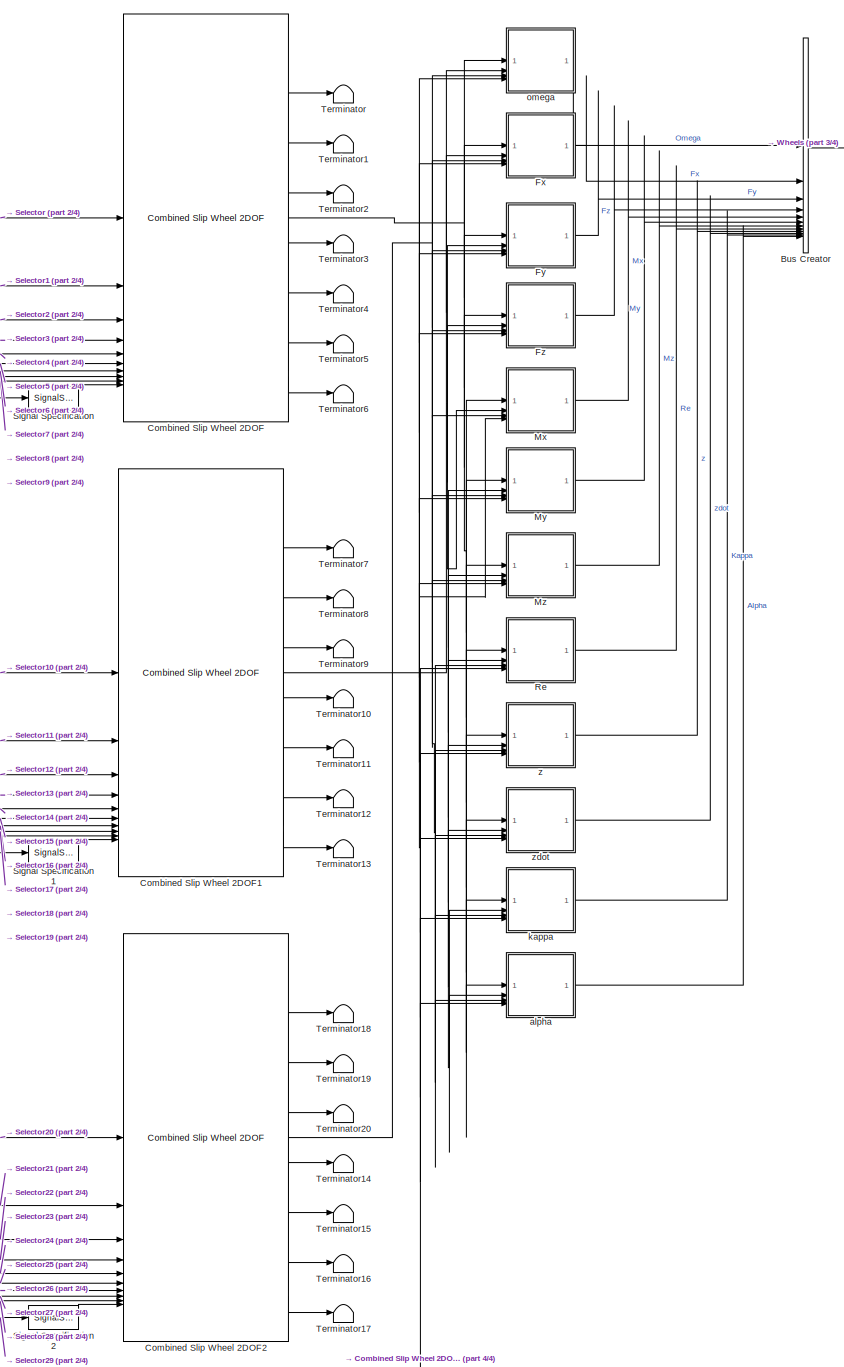
[diagram: Passenger Vehicle/Chassis and Tires/Wheels and Tires/VDBS/Tires/MF Tires - part 1/4, center side, full height]
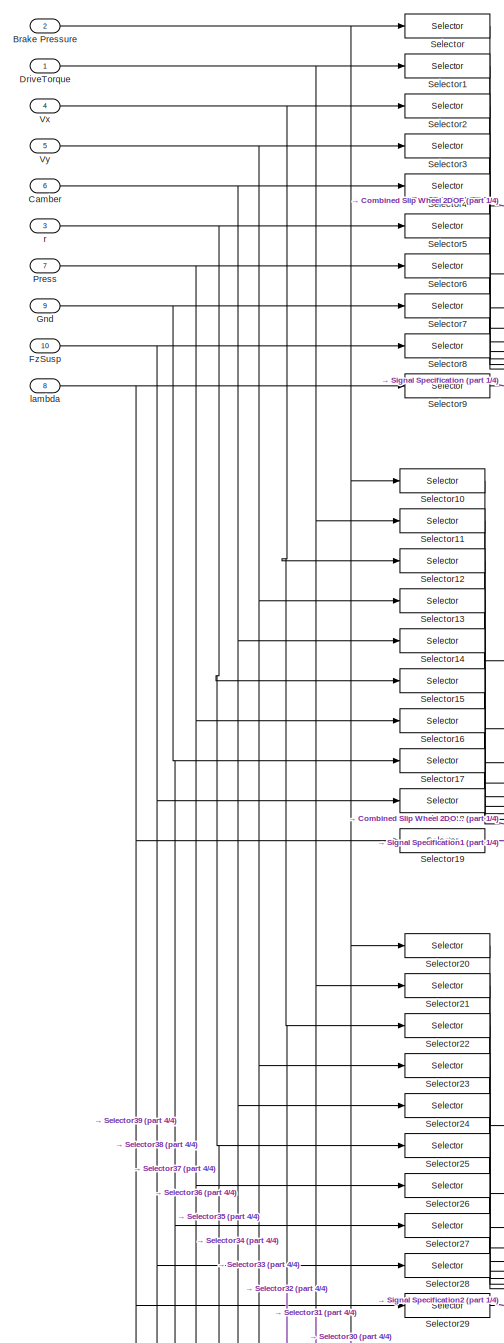
[diagram: Passenger Vehicle/Chassis and Tires/Wheels and Tires/VDBS/Tires/MF Tires - part 2/4, left side, full height]
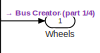
[diagram: Passenger Vehicle/Chassis and Tires/Wheels and Tires/VDBS/Tires/MF Tires - part 3/4, top right region]
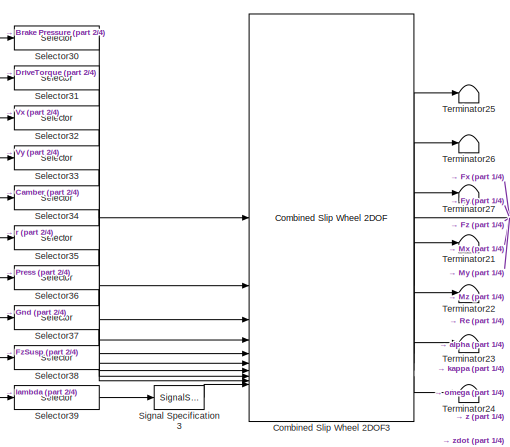
[diagram: Passenger Vehicle/Chassis and Tires/Wheels and Tires/VDBS/Tires/MF Tires - part 4/4, bottom center region]
BLOCK [SubSystem] Passenger Vehicle/Chassis and Tires/Wheels and Tires/VDBS/Tires/MF Tires
  VariantControl = 0
BLOCK [SubSystem] Passenger Vehicle/Chassis and Tires/Wheels and Tires/VDBS/Tires/MF Tires Vector
  VariantControl = 2
BLOCK [Inport] Passenger Vehicle/Chassis and Tires/Wheels and Tires/VDBS/Tires/MF Tires Vector/Brake Pressure
  Port = 2
BLOCK [Inport] Passenger Vehicle/Chassis and Tires/Wheels and Tires/VDBS/Tires/MF Tires Vector/Camber
  Port = 6
BLOCK [Reference] Passenger Vehicle/Chassis and Tires/Wheels and Tires/VDBS/Tires/MF Tires Vector/Combined Slip Wheel 2DOF  REF=vehdynlibtire/Combined Slip Wheel 2DOF
  SourceBlock = vehdynlibtire/Combined Slip Wheel 2DOF
  SourceType = Combined Slip Wheel 2DOF
BLOCK [Inport] Passenger Vehicle/Chassis and Tires/Wheels and Tires/VDBS/Tires/MF Tires Vector/DriveTorque
BLOCK [Inport] Passenger Vehicle/Chassis and Tires/Wheels and Tires/VDBS/Tires/MF Tires Vector/FzSusp
  Port = 10
BLOCK [Inport] Passenger Vehicle/Chassis and Tires/Wheels and Tires/VDBS/Tires/MF Tires Vector/Gnd
  Port = 9
BLOCK [Inport] Passenger Vehicle/Chassis and Tires/Wheels and Tires/VDBS/Tires/MF Tires Vector/Press
  Port = 7
  Unit = Pa
BLOCK [Terminator] Passenger Vehicle/Chassis and Tires/Wheels and Tires/VDBS/Tires/MF Tires Vector/Terminator10
BLOCK [Terminator] Passenger Vehicle/Chassis and Tires/Wheels and Tires/VDBS/Tires/MF Tires Vector/Terminator11
BLOCK [Terminator] Passenger Vehicle/Chassis and Tires/Wheels and Tires/VDBS/Tires/MF Tires Vector/Terminator12
BLOCK [Terminator] Passenger Vehicle/Chassis and Tires/Wheels and Tires/VDBS/Tires/MF Tires Vector/Terminator13
BLOCK [Terminator] Passenger Vehicle/Chassis and Tires/Wheels and Tires/VDBS/Tires/MF Tires Vector/Terminator7
BLOCK [Terminator] Passenger Vehicle/Chassis and Tires/Wheels and Tires/VDBS/Tires/MF Tires Vector/Terminator8
BLOCK [Terminator] Passenger Vehicle/Chassis and Tires/Wheels and Tires/VDBS/Tires/MF Tires Vector/Terminator9
BLOCK [Inport] Passenger Vehicle/Chassis and Tires/Wheels and Tires/VDBS/Tires/MF Tires Vector/Vx
  Port = 4
BLOCK [Inport] Passenger Vehicle/Chassis and Tires/Wheels and Tires/VDBS/Tires/MF Tires Vector/Vy
  Port = 5
BLOCK [Outport] Passenger Vehicle/Chassis and Tires/Wheels and Tires/VDBS/Tires/MF Tires Vector/Wheels
  VectorParamsAs1DForOutWhenUnconnected = off
BLOCK [Inport] Passenger Vehicle/Chassis and Tires/Wheels and Tires/VDBS/Tires/MF Tires Vector/lambda
  Port = 8
  Unit = 1
BLOCK [Inport] Passenger Vehicle/Chassis and Tires/Wheels and Tires/VDBS/Tires/MF Tires Vector/r
  Port = 3
BLOCK [Inport] Passenger Vehicle/Chassis and Tires/Wheels and Tires/VDBS/Tires/MF Tires/Brake Pressure
  Port = 2
BLOCK [BusCreator] Passenger Vehicle/Chassis and Tires/Wheels and Tires/VDBS/Tires/MF Tires/Bus Creator
  DisplayOption = bar
  InheritFromInputs = on
  Inputs = 12
BLOCK [Inport] Passenger Vehicle/Chassis and Tires/Wheels and Tires/VDBS/Tires/MF Tires/Camber
  Port = 6
BLOCK [Reference] Passenger Vehicle/Chassis and Tires/Wheels and Tires/VDBS/Tires/MF Tires/Combined Slip Wheel 2DOF  REF=vehdynlibtire/Combined Slip Wheel 2DOF
  SourceBlock = vehdynlibtire/Combined Slip Wheel 2DOF
  SourceType = Combined Slip Wheel 2DOF
BLOCK [Reference] Passenger Vehicle/Chassis and Tires/Wheels and Tires/VDBS/Tires/MF Tires/Combined Slip Wheel 2DOF1  REF=vehdynlibtire/Combined Slip Wheel 2DOF
  SourceBlock = vehdynlibtire/Combined Slip Wheel 2DOF
  SourceType = Combined Slip Wheel 2DOF
BLOCK [Reference] Passenger Vehicle/Chassis and Tires/Wheels and Tires/VDBS/Tires/MF Tires/Combined Slip Wheel 2DOF2  REF=vehdynlibtire/Combined Slip Wheel 2DOF
  SourceBlock = vehdynlibtire/Combined Slip Wheel 2DOF
  SourceType = Combined Slip Wheel 2DOF
BLOCK [Reference] Passenger Vehicle/Chassis and Tires/Wheels and Tires/VDBS/Tires/MF Tires/Combined Slip Wheel 2DOF3  REF=vehdynlibtire/Combined Slip Wheel 2DOF
  SourceBlock = vehdynlibtire/Combined Slip Wheel 2DOF
  SourceType = Combined Slip Wheel 2DOF
BLOCK [Inport] Passenger Vehicle/Chassis and Tires/Wheels and Tires/VDBS/Tires/MF Tires/DriveTorque
BLOCK [SubSystem] Passenger Vehicle/Chassis and Tires/Wheels and Tires/VDBS/Tires/MF Tires/Fx
BLOCK [BusSelector] Passenger Vehicle/Chassis and Tires/Wheels and Tires/VDBS/Tires/MF Tires/Fx/Bus Selector
  OutputSignals = Fx
BLOCK [BusSelector] Passenger Vehicle/Chassis and Tires/Wheels and Tires/VDBS/Tires/MF Tires/Fx/Bus Selector1
  OutputSignals = Fx
BLOCK [BusSelector] Passenger Vehicle/Chassis and Tires/Wheels and Tires/VDBS/Tires/MF Tires/Fx/Bus Selector2
  OutputSignals = Fx
BLOCK [BusSelector] Passenger Vehicle/Chassis and Tires/Wheels and Tires/VDBS/Tires/MF Tires/Fx/Bus Selector3
  OutputSignals = Fx
BLOCK [Inport] Passenger Vehicle/Chassis and Tires/Wheels and Tires/VDBS/Tires/MF Tires/Fx/In1
BLOCK [Inport] Passenger Vehicle/Chassis and Tires/Wheels and Tires/VDBS/Tires/MF Tires/Fx/In2
  Port = 2
BLOCK [Inport] Passenger Vehicle/Chassis and Tires/Wheels and Tires/VDBS/Tires/MF Tires/Fx/In3
  Port = 3
BLOCK [Inport] Passenger Vehicle/Chassis and Tires/Wheels and Tires/VDBS/Tires/MF Tires/Fx/In4
  Port = 4
BLOCK [Outport] Passenger Vehicle/Chassis and Tires/Wheels and Tires/VDBS/Tires/MF Tires/Fx/Out1
  VectorParamsAs1DForOutWhenUnconnected = off
BLOCK [Concatenate] Passenger Vehicle/Chassis and Tires/Wheels and Tires/VDBS/Tires/MF Tires/Fx/Vector Concatenate
  NumInputs = 4
BLOCK [SubSystem] Passenger Vehicle/Chassis and Tires/Wheels and Tires/VDBS/Tires/MF Tires/Fy
BLOCK [BusSelector] Passenger Vehicle/Chassis and Tires/Wheels and Tires/VDBS/Tires/MF Tires/Fy/Bus Selector
  OutputSignals = Fy
BLOCK [BusSelector] Passenger Vehicle/Chassis and Tires/Wheels and Tires/VDBS/Tires/MF Tires/Fy/Bus Selector1
  OutputSignals = Fy
BLOCK [BusSelector] Passenger Vehicle/Chassis and Tires/Wheels and Tires/VDBS/Tires/MF Tires/Fy/Bus Selector2
  OutputSignals = Fy
BLOCK [BusSelector] Passenger Vehicle/Chassis and Tires/Wheels and Tires/VDBS/Tires/MF Tires/Fy/Bus Selector3
  OutputSignals = Fy
BLOCK [Inport] Passenger Vehicle/Chassis and Tires/Wheels and Tires/VDBS/Tires/MF Tires/Fy/In1
BLOCK [Inport] Passenger Vehicle/Chassis and Tires/Wheels and Tires/VDBS/Tires/MF Tires/Fy/In2
  Port = 2
BLOCK [Inport] Passenger Vehicle/Chassis and Tires/Wheels and Tires/VDBS/Tires/MF Tires/Fy/In3
  Port = 3
BLOCK [Inport] Passenger Vehicle/Chassis and Tires/Wheels and Tires/VDBS/Tires/MF Tires/Fy/In4
  Port = 4
BLOCK [Outport] Passenger Vehicle/Chassis and Tires/Wheels and Tires/VDBS/Tires/MF Tires/Fy/Out1
  VectorParamsAs1DForOutWhenUnconnected = off
BLOCK [Concatenate] Passenger Vehicle/Chassis and Tires/Wheels and Tires/VDBS/Tires/MF Tires/Fy/Vector Concatenate
  NumInputs = 4
BLOCK [SubSystem] Passenger Vehicle/Chassis and Tires/Wheels and Tires/VDBS/Tires/MF Tires/Fz
BLOCK [BusSelector] Passenger Vehicle/Chassis and Tires/Wheels and Tires/VDBS/Tires/MF Tires/Fz/Bus Selector
  OutputSignals = Fz
BLOCK [BusSelector] Passenger Vehicle/Chassis and Tires/Wheels and Tires/VDBS/Tires/MF Tires/Fz/Bus Selector1
  OutputSignals = Fz
BLOCK [BusSelector] Passenger Vehicle/Chassis and Tires/Wheels and Tires/VDBS/Tires/MF Tires/Fz/Bus Selector2
  OutputSignals = Fz
BLOCK [BusSelector] Passenger Vehicle/Chassis and Tires/Wheels and Tires/VDBS/Tires/MF Tires/Fz/Bus Selector3
  OutputSignals = Fz
BLOCK [Inport] Passenger Vehicle/Chassis and Tires/Wheels and Tires/VDBS/Tires/MF Tires/Fz/In1
BLOCK [Inport] Passenger Vehicle/Chassis and Tires/Wheels and Tires/VDBS/Tires/MF Tires/Fz/In2
  Port = 2
BLOCK [Inport] Passenger Vehicle/Chassis and Tires/Wheels and Tires/VDBS/Tires/MF Tires/Fz/In3
  Port = 3
BLOCK [Inport] Passenger Vehicle/Chassis and Tires/Wheels and Tires/VDBS/Tires/MF Tires/Fz/In4
  Port = 4
BLOCK [Outport] Passenger Vehicle/Chassis and Tires/Wheels and Tires/VDBS/Tires/MF Tires/Fz/Out1
  VectorParamsAs1DForOutWhenUnconnected = off
BLOCK [Concatenate] Passenger Vehicle/Chassis and Tires/Wheels and Tires/VDBS/Tires/MF Tires/Fz/Vector Concatenate
  NumInputs = 4
BLOCK [Inport] Passenger Vehicle/Chassis and Tires/Wheels and Tires/VDBS/Tires/MF Tires/FzSusp
  Port = 10
BLOCK [Inport] Passenger Vehicle/Chassis and Tires/Wheels and Tires/VDBS/Tires/MF Tires/Gnd
  Port = 9
BLOCK [SubSystem] Passenger Vehicle/Chassis and Tires/Wheels and Tires/VDBS/Tires/MF Tires/Mx
BLOCK [BusSelector] Passenger Vehicle/Chassis and Tires/Wheels and Tires/VDBS/Tires/MF Tires/Mx/Bus Selector
  OutputSignals = Mx
BLOCK [BusSelector] Passenger Vehicle/Chassis and Tires/Wheels and Tires/VDBS/Tires/MF Tires/Mx/Bus Selector1
  OutputSignals = Mx
BLOCK [BusSelector] Passenger Vehicle/Chassis and Tires/Wheels and Tires/VDBS/Tires/MF Tires/Mx/Bus Selector2
  OutputSignals = Mx
BLOCK [BusSelector] Passenger Vehicle/Chassis and Tires/Wheels and Tires/VDBS/Tires/MF Tires/Mx/Bus Selector3
  OutputSignals = Mx
BLOCK [Inport] Passenger Vehicle/Chassis and Tires/Wheels and Tires/VDBS/Tires/MF Tires/Mx/In1
BLOCK [Inport] Passenger Vehicle/Chassis and Tires/Wheels and Tires/VDBS/Tires/MF Tires/Mx/In2
  Port = 2
BLOCK [Inport] Passenger Vehicle/Chassis and Tires/Wheels and Tires/VDBS/Tires/MF Tires/Mx/In3
  Port = 3
BLOCK [Inport] Passenger Vehicle/Chassis and Tires/Wheels and Tires/VDBS/Tires/MF Tires/Mx/In4
  Port = 4
BLOCK [Outport] Passenger Vehicle/Chassis and Tires/Wheels and Tires/VDBS/Tires/MF Tires/Mx/Out1
  VectorParamsAs1DForOutWhenUnconnected = off
BLOCK [Concatenate] Passenger Vehicle/Chassis and Tires/Wheels and Tires/VDBS/Tires/MF Tires/Mx/Vector Concatenate
  NumInputs = 4
BLOCK [SubSystem] Passenger Vehicle/Chassis and Tires/Wheels and Tires/VDBS/Tires/MF Tires/My
BLOCK [BusSelector] Passenger Vehicle/Chassis and Tires/Wheels and Tires/VDBS/Tires/MF Tires/My/Bus Selector
  OutputSignals = My
BLOCK [BusSelector] Passenger Vehicle/Chassis and Tires/Wheels and Tires/VDBS/Tires/MF Tires/My/Bus Selector1
  OutputSignals = My
BLOCK [BusSelector] Passenger Vehicle/Chassis and Tires/Wheels and Tires/VDBS/Tires/MF Tires/My/Bus Selector2
  OutputSignals = My
BLOCK [BusSelector] Passenger Vehicle/Chassis and Tires/Wheels and Tires/VDBS/Tires/MF Tires/My/Bus Selector3
  OutputSignals = My
BLOCK [Inport] Passenger Vehicle/Chassis and Tires/Wheels and Tires/VDBS/Tires/MF Tires/My/In1
BLOCK [Inport] Passenger Vehicle/Chassis and Tires/Wheels and Tires/VDBS/Tires/MF Tires/My/In2
  Port = 2
BLOCK [Inport] Passenger Vehicle/Chassis and Tires/Wheels and Tires/VDBS/Tires/MF Tires/My/In3
  Port = 3
BLOCK [Inport] Passenger Vehicle/Chassis and Tires/Wheels and Tires/VDBS/Tires/MF Tires/My/In4
  Port = 4
BLOCK [Outport] Passenger Vehicle/Chassis and Tires/Wheels and Tires/VDBS/Tires/MF Tires/My/Out1
  VectorParamsAs1DForOutWhenUnconnected = off
BLOCK [Concatenate] Passenger Vehicle/Chassis and Tires/Wheels and Tires/VDBS/Tires/MF Tires/My/Vector Concatenate
  NumInputs = 4
BLOCK [SubSystem] Passenger Vehicle/Chassis and Tires/Wheels and Tires/VDBS/Tires/MF Tires/Mz
BLOCK [BusSelector] Passenger Vehicle/Chassis and Tires/Wheels and Tires/VDBS/Tires/MF Tires/Mz/Bus Selector
  OutputSignals = Mz
BLOCK [BusSelector] Passenger Vehicle/Chassis and Tires/Wheels and Tires/VDBS/Tires/MF Tires/Mz/Bus Selector1
  OutputSignals = Mz
BLOCK [BusSelector] Passenger Vehicle/Chassis and Tires/Wheels and Tires/VDBS/Tires/MF Tires/Mz/Bus Selector2
  OutputSignals = Mz
BLOCK [BusSelector] Passenger Vehicle/Chassis and Tires/Wheels and Tires/VDBS/Tires/MF Tires/Mz/Bus Selector3
  OutputSignals = Mz
BLOCK [Inport] Passenger Vehicle/Chassis and Tires/Wheels and Tires/VDBS/Tires/MF Tires/Mz/In1
BLOCK [Inport] Passenger Vehicle/Chassis and Tires/Wheels and Tires/VDBS/Tires/MF Tires/Mz/In2
  Port = 2
BLOCK [Inport] Passenger Vehicle/Chassis and Tires/Wheels and Tires/VDBS/Tires/MF Tires/Mz/In3
  Port = 3
BLOCK [Inport] Passenger Vehicle/Chassis and Tires/Wheels and Tires/VDBS/Tires/MF Tires/Mz/In4
  Port = 4
BLOCK [Outport] Passenger Vehicle/Chassis and Tires/Wheels and Tires/VDBS/Tires/MF Tires/Mz/Out1
  VectorParamsAs1DForOutWhenUnconnected = off
BLOCK [Concatenate] Passenger Vehicle/Chassis and Tires/Wheels and Tires/VDBS/Tires/MF Tires/Mz/Vector Concatenate
  NumInputs = 4
BLOCK [Inport] Passenger Vehicle/Chassis and Tires/Wheels and Tires/VDBS/Tires/MF Tires/Press
  Port = 7
  Unit = Pa
BLOCK [SubSystem] Passenger Vehicle/Chassis and Tires/Wheels and Tires/VDBS/Tires/MF Tires/Re
BLOCK [BusSelector] Passenger Vehicle/Chassis and Tires/Wheels and Tires/VDBS/Tires/MF Tires/Re/Bus Selector
  OutputSignals = Re
BLOCK [BusSelector] Passenger Vehicle/Chassis and Tires/Wheels and Tires/VDBS/Tires/MF Tires/Re/Bus Selector1
  OutputSignals = Re
BLOCK [BusSelector] Passenger Vehicle/Chassis and Tires/Wheels and Tires/VDBS/Tires/MF Tires/Re/Bus Selector2
  OutputSignals = Re
BLOCK [BusSelector] Passenger Vehicle/Chassis and Tires/Wheels and Tires/VDBS/Tires/MF Tires/Re/Bus Selector3
  OutputSignals = Re
BLOCK [Inport] Passenger Vehicle/Chassis and Tires/Wheels and Tires/VDBS/Tires/MF Tires/Re/In1
BLOCK [Inport] Passenger Vehicle/Chassis and Tires/Wheels and Tires/VDBS/Tires/MF Tires/Re/In2
  Port = 2
BLOCK [Inport] Passenger Vehicle/Chassis and Tires/Wheels and Tires/VDBS/Tires/MF Tires/Re/In3
  Port = 3
BLOCK [Inport] Passenger Vehicle/Chassis and Tires/Wheels and Tires/VDBS/Tires/MF Tires/Re/In4
  Port = 4
BLOCK [Outport] Passenger Vehicle/Chassis and Tires/Wheels and Tires/VDBS/Tires/MF Tires/Re/Out1
  VectorParamsAs1DForOutWhenUnconnected = off
BLOCK [Concatenate] Passenger Vehicle/Chassis and Tires/Wheels and Tires/VDBS/Tires/MF Tires/Re/Vector Concatenate
  NumInputs = 4
BLOCK [Selector] Passenger Vehicle/Chassis and Tires/Wheels and Tires/VDBS/Tires/MF Tires/Selector
  IndexOptions = Index vector (dialog)
  Indices = 1
  InputPortWidth = 4
  OutputSizes = 1
BLOCK [Selector] Passenger Vehicle/Chassis and Tires/Wheels and Tires/VDBS/Tires/MF Tires/Selector1
  IndexOptions = Index vector (dialog)
  Indices = 1
  InputPortWidth = 4
  OutputSizes = 1
BLOCK [Selector] Passenger Vehicle/Chassis and Tires/Wheels and Tires/VDBS/Tires/MF Tires/Selector10
  IndexOptions = Index vector (dialog)
  Indices = 2
  InputPortWidth = 4
  OutputSizes = 1
BLOCK [Selector] Passenger Vehicle/Chassis and Tires/Wheels and Tires/VDBS/Tires/MF Tires/Selector11
  IndexOptions = Index vector (dialog)
  Indices = 2
  InputPortWidth = 4
  OutputSizes = 1
BLOCK [Selector] Passenger Vehicle/Chassis and Tires/Wheels and Tires/VDBS/Tires/MF Tires/Selector12
  IndexOptions = Index vector (dialog)
  Indices = 2
  InputPortWidth = 4
  OutputSizes = 1
BLOCK [Selector] Passenger Vehicle/Chassis and Tires/Wheels and Tires/VDBS/Tires/MF Tires/Selector13
  IndexOptions = Index vector (dialog)
  Indices = 2
  InputPortWidth = 4
  OutputSizes = 1
BLOCK [Selector] Passenger Vehicle/Chassis and Tires/Wheels and Tires/VDBS/Tires/MF Tires/Selector14
  IndexOptions = Index vector (dialog)
  Indices = 2
  InputPortWidth = 4
  OutputSizes = 1
BLOCK [Selector] Passenger Vehicle/Chassis and Tires/Wheels and Tires/VDBS/Tires/MF Tires/Selector15
  IndexOptions = Index vector (dialog)
  Indices = 2
  InputPortWidth = 4
  OutputSizes = 1
BLOCK [Selector] Passenger Vehicle/Chassis and Tires/Wheels and Tires/VDBS/Tires/MF Tires/Selector16
  IndexOptions = Index vector (dialog)
  Indices = 2
  InputPortWidth = 4
  OutputSizes = 1
BLOCK [Selector] Passenger Vehicle/Chassis and Tires/Wheels and Tires/VDBS/Tires/MF Tires/Selector17
  IndexOptions = Index vector (dialog)
  Indices = 2
  InputPortWidth = 4
  OutputSizes = 1
BLOCK [Selector] Passenger Vehicle/Chassis and Tires/Wheels and Tires/VDBS/Tires/MF Tires/Selector18
  IndexOptions = Index vector (dialog)
  Indices = 2
  InputPortWidth = 4
  OutputSizes = 1
BLOCK [Selector] Passenger Vehicle/Chassis and Tires/Wheels and Tires/VDBS/Tires/MF Tires/Selector19
  IndexOptions = Select all,Index vector (dialog)
  Indices = 1,2
  InputPortWidth = 4
  NumberOfDimensions = 2
  OutputSizes = 1,1
BLOCK [Selector] Passenger Vehicle/Chassis and Tires/Wheels and Tires/VDBS/Tires/MF Tires/Selector2
  IndexOptions = Index vector (dialog)
  Indices = 1
  InputPortWidth = 4
  OutputSizes = 1
BLOCK [Selector] Passenger Vehicle/Chassis and Tires/Wheels and Tires/VDBS/Tires/MF Tires/Selector20
  IndexOptions = Index vector (dialog)
  Indices = 3
  InputPortWidth = 4
  OutputSizes = 1
BLOCK [Selector] Passenger Vehicle/Chassis and Tires/Wheels and Tires/VDBS/Tires/MF Tires/Selector21
  IndexOptions = Index vector (dialog)
  Indices = 3
  InputPortWidth = 4
  OutputSizes = 1
BLOCK [Selector] Passenger Vehicle/Chassis and Tires/Wheels and Tires/VDBS/Tires/MF Tires/Selector22
  IndexOptions = Index vector (dialog)
  Indices = 3
  InputPortWidth = 4
  OutputSizes = 1
BLOCK [Selector] Passenger Vehicle/Chassis and Tires/Wheels and Tires/VDBS/Tires/MF Tires/Selector23
  IndexOptions = Index vector (dialog)
  Indices = 3
  InputPortWidth = 4
  OutputSizes = 1
BLOCK [Selector] Passenger Vehicle/Chassis and Tires/Wheels and Tires/VDBS/Tires/MF Tires/Selector24
  IndexOptions = Index vector (dialog)
  Indices = 3
  InputPortWidth = 4
  OutputSizes = 1
BLOCK [Selector] Passenger Vehicle/Chassis and Tires/Wheels and Tires/VDBS/Tires/MF Tires/Selector25
  IndexOptions = Index vector (dialog)
  Indices = 3
  InputPortWidth = 4
  OutputSizes = 1
BLOCK [Selector] Passenger Vehicle/Chassis and Tires/Wheels and Tires/VDBS/Tires/MF Tires/Selector26
  IndexOptions = Index vector (dialog)
  Indices = 3
  InputPortWidth = 4
  OutputSizes = 1
BLOCK [Selector] Passenger Vehicle/Chassis and Tires/Wheels and Tires/VDBS/Tires/MF Tires/Selector27
  IndexOptions = Index vector (dialog)
  Indices = 3
  InputPortWidth = 4
  OutputSizes = 1
BLOCK [Selector] Passenger Vehicle/Chassis and Tires/Wheels and Tires/VDBS/Tires/MF Tires/Selector28
  IndexOptions = Index vector (dialog)
  Indices = 3
  InputPortWidth = 4
  OutputSizes = 1
BLOCK [Selector] Passenger Vehicle/Chassis and Tires/Wheels and Tires/VDBS/Tires/MF Tires/Selector29
  IndexOptions = Select all,Index vector (dialog)
  Indices = 1,3
  InputPortWidth = 4
  NumberOfDimensions = 2
  OutputSizes = 1,1
BLOCK [Selector] Passenger Vehicle/Chassis and Tires/Wheels and Tires/VDBS/Tires/MF Tires/Selector3
  IndexOptions = Index vector (dialog)
  Indices = 1
  InputPortWidth = 4
  OutputSizes = 1
BLOCK [Selector] Passenger Vehicle/Chassis and Tires/Wheels and Tires/VDBS/Tires/MF Tires/Selector30
  IndexOptions = Index vector (dialog)
  Indices = 4
  InputPortWidth = 4
  OutputSizes = 1
BLOCK [Selector] Passenger Vehicle/Chassis and Tires/Wheels and Tires/VDBS/Tires/MF Tires/Selector31
  IndexOptions = Index vector (dialog)
  Indices = 4
  InputPortWidth = 4
  OutputSizes = 1
BLOCK [Selector] Passenger Vehicle/Chassis and Tires/Wheels and Tires/VDBS/Tires/MF Tires/Selector32
  IndexOptions = Index vector (dialog)
  Indices = 4
  InputPortWidth = 4
  OutputSizes = 1
BLOCK [Selector] Passenger Vehicle/Chassis and Tires/Wheels and Tires/VDBS/Tires/MF Tires/Selector33
  IndexOptions = Index vector (dialog)
  Indices = 4
  InputPortWidth = 4
  OutputSizes = 1
BLOCK [Selector] Passenger Vehicle/Chassis and Tires/Wheels and Tires/VDBS/Tires/MF Tires/Selector34
  IndexOptions = Index vector (dialog)
  Indices = 4
  InputPortWidth = 4
  OutputSizes = 1
BLOCK [Selector] Passenger Vehicle/Chassis and Tires/Wheels and Tires/VDBS/Tires/MF Tires/Selector35
  IndexOptions = Index vector (dialog)
  Indices = 4
  InputPortWidth = 4
  OutputSizes = 1
BLOCK [Selector] Passenger Vehicle/Chassis and Tires/Wheels and Tires/VDBS/Tires/MF Tires/Selector36
  IndexOptions = Index vector (dialog)
  Indices = 4
  InputPortWidth = 4
  OutputSizes = 1
BLOCK [Selector] Passenger Vehicle/Chassis and Tires/Wheels and Tires/VDBS/Tires/MF Tires/Selector37
  IndexOptions = Index vector (dialog)
  Indices = 4
  InputPortWidth = 4
  OutputSizes = 1
BLOCK [Selector] Passenger Vehicle/Chassis and Tires/Wheels and Tires/VDBS/Tires/MF Tires/Selector38
  IndexOptions = Index vector (dialog)
  Indices = 4
  InputPortWidth = 4
  OutputSizes = 1
BLOCK [Selector] Passenger Vehicle/Chassis and Tires/Wheels and Tires/VDBS/Tires/MF Tires/Selector39
  IndexOptions = Select all,Index vector (dialog)
  Indices = 1,4
  InputPortWidth = 4
  NumberOfDimensions = 2
  OutputSizes = 1,1
BLOCK [Selector] Passenger Vehicle/Chassis and Tires/Wheels and Tires/VDBS/Tires/MF Tires/Selector4
  IndexOptions = Index vector (dialog)
  Indices = 1
  InputPortWidth = 4
  OutputSizes = 1
BLOCK [Selector] Passenger Vehicle/Chassis and Tires/Wheels and Tires/VDBS/Tires/MF Tires/Selector5
  IndexOptions = Index vector (dialog)
  Indices = 1
  InputPortWidth = 4
  OutputSizes = 1
BLOCK [Selector] Passenger Vehicle/Chassis and Tires/Wheels and Tires/VDBS/Tires/MF Tires/Selector6
  IndexOptions = Index vector (dialog)
  Indices = 1
  InputPortWidth = 4
  OutputSizes = 1
BLOCK [Selector] Passenger Vehicle/Chassis and Tires/Wheels and Tires/VDBS/Tires/MF Tires/Selector7
  IndexOptions = Index vector (dialog)
  Indices = 1
  InputPortWidth = 4
  OutputSizes = 1
BLOCK [Selector] Passenger Vehicle/Chassis and Tires/Wheels and Tires/VDBS/Tires/MF Tires/Selector8
  IndexOptions = Index vector (dialog)
  Indices = 1
  InputPortWidth = 4
  OutputSizes = 1
BLOCK [Selector] Passenger Vehicle/Chassis and Tires/Wheels and Tires/VDBS/Tires/MF Tires/Selector9
  IndexOptions = Select all,Index vector (dialog)
  Indices = 1,1
  InputPortWidth = 4
  NumberOfDimensions = 2
  OutputSizes = 1,1
BLOCK [SignalSpecification] Passenger Vehicle/Chassis and Tires/Wheels and Tires/VDBS/Tires/MF Tires/Signal Specification
  Unit = 1
BLOCK [SignalSpecification] Passenger Vehicle/Chassis and Tires/Wheels and Tires/VDBS/Tires/MF Tires/Signal Specification1
  Unit = 1
BLOCK [SignalSpecification] Passenger Vehicle/Chassis and Tires/Wheels and Tires/VDBS/Tires/MF Tires/Signal Specification2
  Unit = 1
BLOCK [SignalSpecification] Passenger Vehicle/Chassis and Tires/Wheels and Tires/VDBS/Tires/MF Tires/Signal Specification3
  Unit = 1
BLOCK [Terminator] Passenger Vehicle/Chassis and Tires/Wheels and Tires/VDBS/Tires/MF Tires/Terminator
BLOCK [Terminator] Passenger Vehicle/Chassis and Tires/Wheels and Tires/VDBS/Tires/MF Tires/Terminator1
BLOCK [Terminator] Passenger Vehicle/Chassis and Tires/Wheels and Tires/VDBS/Tires/MF Tires/Terminator10
BLOCK [Terminator] Passenger Vehicle/Chassis and Tires/Wheels and Tires/VDBS/Tires/MF Tires/Terminator11
BLOCK [Terminator] Passenger Vehicle/Chassis and Tires/Wheels and Tires/VDBS/Tires/MF Tires/Terminator12
BLOCK [Terminator] Passenger Vehicle/Chassis and Tires/Wheels and Tires/VDBS/Tires/MF Tires/Terminator13
BLOCK [Terminator] Passenger Vehicle/Chassis and Tires/Wheels and Tires/VDBS/Tires/MF Tires/Terminator14
BLOCK [Terminator] Passenger Vehicle/Chassis and Tires/Wheels and Tires/VDBS/Tires/MF Tires/Terminator15
BLOCK [Terminator] Passenger Vehicle/Chassis and Tires/Wheels and Tires/VDBS/Tires/MF Tires/Terminator16
BLOCK [Terminator] Passenger Vehicle/Chassis and Tires/Wheels and Tires/VDBS/Tires/MF Tires/Terminator17
BLOCK [Terminator] Passenger Vehicle/Chassis and Tires/Wheels and Tires/VDBS/Tires/MF Tires/Terminator18
BLOCK [Terminator] Passenger Vehicle/Chassis and Tires/Wheels and Tires/VDBS/Tires/MF Tires/Terminator19
BLOCK [Terminator] Passenger Vehicle/Chassis and Tires/Wheels and Tires/VDBS/Tires/MF Tires/Terminator2
BLOCK [Terminator] Passenger Vehicle/Chassis and Tires/Wheels and Tires/VDBS/Tires/MF Tires/Terminator20
BLOCK [Terminator] Passenger Vehicle/Chassis and Tires/Wheels and Tires/VDBS/Tires/MF Tires/Terminator21
BLOCK [Terminator] Passenger Vehicle/Chassis and Tires/Wheels and Tires/VDBS/Tires/MF Tires/Terminator22
BLOCK [Terminator] Passenger Vehicle/Chassis and Tires/Wheels and Tires/VDBS/Tires/MF Tires/Terminator23
BLOCK [Terminator] Passenger Vehicle/Chassis and Tires/Wheels and Tires/VDBS/Tires/MF Tires/Terminator24
BLOCK [Terminator] Passenger Vehicle/Chassis and Tires/Wheels and Tires/VDBS/Tires/MF Tires/Terminator25
BLOCK [Terminator] Passenger Vehicle/Chassis and Tires/Wheels and Tires/VDBS/Tires/MF Tires/Terminator26
BLOCK [Terminator] Passenger Vehicle/Chassis and Tires/Wheels and Tires/VDBS/Tires/MF Tires/Terminator27
BLOCK [Terminator] Passenger Vehicle/Chassis and Tires/Wheels and Tires/VDBS/Tires/MF Tires/Terminator3
BLOCK [Terminator] Passenger Vehicle/Chassis and Tires/Wheels and Tires/VDBS/Tires/MF Tires/Terminator4
BLOCK [Terminator] Passenger Vehicle/Chassis and Tires/Wheels and Tires/VDBS/Tires/MF Tires/Terminator5
BLOCK [Terminator] Passenger Vehicle/Chassis and Tires/Wheels and Tires/VDBS/Tires/MF Tires/Terminator6
BLOCK [Terminator] Passenger Vehicle/Chassis and Tires/Wheels and Tires/VDBS/Tires/MF Tires/Terminator7
BLOCK [Terminator] Passenger Vehicle/Chassis and Tires/Wheels and Tires/VDBS/Tires/MF Tires/Terminator8
BLOCK [Terminator] Passenger Vehicle/Chassis and Tires/Wheels and Tires/VDBS/Tires/MF Tires/Terminator9
BLOCK [Inport] Passenger Vehicle/Chassis and Tires/Wheels and Tires/VDBS/Tires/MF Tires/Vx
  Port = 4
BLOCK [Inport] Passenger Vehicle/Chassis and Tires/Wheels and Tires/VDBS/Tires/MF Tires/Vy
  Port = 5
BLOCK [Outport] Passenger Vehicle/Chassis and Tires/Wheels and Tires/VDBS/Tires/MF Tires/Wheels
  VectorParamsAs1DForOutWhenUnconnected = off
BLOCK [SubSystem] Passenger Vehicle/Chassis and Tires/Wheels and Tires/VDBS/Tires/MF Tires/alpha
BLOCK [BusSelector] Passenger Vehicle/Chassis and Tires/Wheels and Tires/VDBS/Tires/MF Tires/alpha/Bus Selector
  OutputSignals = Alpha
BLOCK [BusSelector] Passenger Vehicle/Chassis and Tires/Wheels and Tires/VDBS/Tires/MF Tires/alpha/Bus Selector1
  OutputSignals = Alpha
BLOCK [BusSelector] Passenger Vehicle/Chassis and Tires/Wheels and Tires/VDBS/Tires/MF Tires/alpha/Bus Selector2
  OutputSignals = Alpha
BLOCK [BusSelector] Passenger Vehicle/Chassis and Tires/Wheels and Tires/VDBS/Tires/MF Tires/alpha/Bus Selector3
  OutputSignals = Alpha
BLOCK [Inport] Passenger Vehicle/Chassis and Tires/Wheels and Tires/VDBS/Tires/MF Tires/alpha/In1
BLOCK [Inport] Passenger Vehicle/Chassis and Tires/Wheels and Tires/VDBS/Tires/MF Tires/alpha/In2
  Port = 2
BLOCK [Inport] Passenger Vehicle/Chassis and Tires/Wheels and Tires/VDBS/Tires/MF Tires/alpha/In3
  Port = 3
BLOCK [Inport] Passenger Vehicle/Chassis and Tires/Wheels and Tires/VDBS/Tires/MF Tires/alpha/In4
  Port = 4
BLOCK [Outport] Passenger Vehicle/Chassis and Tires/Wheels and Tires/VDBS/Tires/MF Tires/alpha/Out1
  VectorParamsAs1DForOutWhenUnconnected = off
BLOCK [Concatenate] Passenger Vehicle/Chassis and Tires/Wheels and Tires/VDBS/Tires/MF Tires/alpha/Vector Concatenate
  NumInputs = 4
BLOCK [SubSystem] Passenger Vehicle/Chassis and Tires/Wheels and Tires/VDBS/Tires/MF Tires/kappa
BLOCK [BusSelector] Passenger Vehicle/Chassis and Tires/Wheels and Tires/VDBS/Tires/MF Tires/kappa/Bus Selector
  OutputSignals = Kappa
BLOCK [BusSelector] Passenger Vehicle/Chassis and Tires/Wheels and Tires/VDBS/Tires/MF Tires/kappa/Bus Selector1
  OutputSignals = Kappa
BLOCK [BusSelector] Passenger Vehicle/Chassis and Tires/Wheels and Tires/VDBS/Tires/MF Tires/kappa/Bus Selector2
  OutputSignals = Kappa
BLOCK [BusSelector] Passenger Vehicle/Chassis and Tires/Wheels and Tires/VDBS/Tires/MF Tires/kappa/Bus Selector3
  OutputSignals = Kappa
BLOCK [Inport] Passenger Vehicle/Chassis and Tires/Wheels and Tires/VDBS/Tires/MF Tires/kappa/In1
BLOCK [Inport] Passenger Vehicle/Chassis and Tires/Wheels and Tires/VDBS/Tires/MF Tires/kappa/In2
  Port = 2
BLOCK [Inport] Passenger Vehicle/Chassis and Tires/Wheels and Tires/VDBS/Tires/MF Tires/kappa/In3
  Port = 3
BLOCK [Inport] Passenger Vehicle/Chassis and Tires/Wheels and Tires/VDBS/Tires/MF Tires/kappa/In4
  Port = 4
BLOCK [Outport] Passenger Vehicle/Chassis and Tires/Wheels and Tires/VDBS/Tires/MF Tires/kappa/Out1
  VectorParamsAs1DForOutWhenUnconnected = off
BLOCK [Concatenate] Passenger Vehicle/Chassis and Tires/Wheels and Tires/VDBS/Tires/MF Tires/kappa/Vector Concatenate
  NumInputs = 4
BLOCK [Inport] Passenger Vehicle/Chassis and Tires/Wheels and Tires/VDBS/Tires/MF Tires/lambda
  Port = 8
  Unit = 1
BLOCK [SubSystem] Passenger Vehicle/Chassis and Tires/Wheels and Tires/VDBS/Tires/MF Tires/omega
BLOCK [BusSelector] Passenger Vehicle/Chassis and Tires/Wheels and Tires/VDBS/Tires/MF Tires/omega/Bus Selector
  OutputSignals = Omega
BLOCK [BusSelector] Passenger Vehicle/Chassis and Tires/Wheels and Tires/VDBS/Tires/MF Tires/omega/Bus Selector1
  OutputSignals = Omega
BLOCK [BusSelector] Passenger Vehicle/Chassis and Tires/Wheels and Tires/VDBS/Tires/MF Tires/omega/Bus Selector2
  OutputSignals = Omega
BLOCK [BusSelector] Passenger Vehicle/Chassis and Tires/Wheels and Tires/VDBS/Tires/MF Tires/omega/Bus Selector3
  OutputSignals = Omega
BLOCK [Inport] Passenger Vehicle/Chassis and Tires/Wheels and Tires/VDBS/Tires/MF Tires/omega/In1
BLOCK [Inport] Passenger Vehicle/Chassis and Tires/Wheels and Tires/VDBS/Tires/MF Tires/omega/In2
  Port = 2
BLOCK [Inport] Passenger Vehicle/Chassis and Tires/Wheels and Tires/VDBS/Tires/MF Tires/omega/In3
  Port = 3
BLOCK [Inport] Passenger Vehicle/Chassis and Tires/Wheels and Tires/VDBS/Tires/MF Tires/omega/In4
  Port = 4
BLOCK [Outport] Passenger Vehicle/Chassis and Tires/Wheels and Tires/VDBS/Tires/MF Tires/omega/Out1
  VectorParamsAs1DForOutWhenUnconnected = off
BLOCK [Concatenate] Passenger Vehicle/Chassis and Tires/Wheels and Tires/VDBS/Tires/MF Tires/omega/Vector Concatenate
  NumInputs = 4
BLOCK [Inport] Passenger Vehicle/Chassis and Tires/Wheels and Tires/VDBS/Tires/MF Tires/r
  Port = 3
BLOCK [SubSystem] Passenger Vehicle/Chassis and Tires/Wheels and Tires/VDBS/Tires/MF Tires/z
BLOCK [BusSelector] Passenger Vehicle/Chassis and Tires/Wheels and Tires/VDBS/Tires/MF Tires/z/Bus Selector
  OutputSignals = z
BLOCK [BusSelector] Passenger Vehicle/Chassis and Tires/Wheels and Tires/VDBS/Tires/MF Tires/z/Bus Selector1
  OutputSignals = z
BLOCK [BusSelector] Passenger Vehicle/Chassis and Tires/Wheels and Tires/VDBS/Tires/MF Tires/z/Bus Selector2
  OutputSignals = z
BLOCK [BusSelector] Passenger Vehicle/Chassis and Tires/Wheels and Tires/VDBS/Tires/MF Tires/z/Bus Selector3
  OutputSignals = z
BLOCK [Inport] Passenger Vehicle/Chassis and Tires/Wheels and Tires/VDBS/Tires/MF Tires/z/In1
BLOCK [Inport] Passenger Vehicle/Chassis and Tires/Wheels and Tires/VDBS/Tires/MF Tires/z/In2
  Port = 2
BLOCK [Inport] Passenger Vehicle/Chassis and Tires/Wheels and Tires/VDBS/Tires/MF Tires/z/In3
  Port = 3
BLOCK [Inport] Passenger Vehicle/Chassis and Tires/Wheels and Tires/VDBS/Tires/MF Tires/z/In4
  Port = 4
BLOCK [Outport] Passenger Vehicle/Chassis and Tires/Wheels and Tires/VDBS/Tires/MF Tires/z/Out1
  VectorParamsAs1DForOutWhenUnconnected = off
BLOCK [Concatenate] Passenger Vehicle/Chassis and Tires/Wheels and Tires/VDBS/Tires/MF Tires/z/Vector Concatenate
  NumInputs = 4
BLOCK [SubSystem] Passenger Vehicle/Chassis and Tires/Wheels and Tires/VDBS/Tires/MF Tires/zdot
BLOCK [BusSelector] Passenger Vehicle/Chassis and Tires/Wheels and Tires/VDBS/Tires/MF Tires/zdot/Bus Selector
  OutputSignals = zdot
BLOCK [BusSelector] Passenger Vehicle/Chassis and Tires/Wheels and Tires/VDBS/Tires/MF Tires/zdot/Bus Selector1
  OutputSignals = zdot
BLOCK [BusSelector] Passenger Vehicle/Chassis and Tires/Wheels and Tires/VDBS/Tires/MF Tires/zdot/Bus Selector2
  OutputSignals = zdot
BLOCK [BusSelector] Passenger Vehicle/Chassis and Tires/Wheels and Tires/VDBS/Tires/MF Tires/zdot/Bus Selector3
  OutputSignals = zdot
BLOCK [Inport] Passenger Vehicle/Chassis and Tires/Wheels and Tires/VDBS/Tires/MF Tires/zdot/In1
BLOCK [Inport] Passenger Vehicle/Chassis and Tires/Wheels and Tires/VDBS/Tires/MF Tires/zdot/In2
  Port = 2
BLOCK [Inport] Passenger Vehicle/Chassis and Tires/Wheels and Tires/VDBS/Tires/MF Tires/zdot/In3
  Port = 3
BLOCK [Inport] Passenger Vehicle/Chassis and Tires/Wheels and Tires/VDBS/Tires/MF Tires/zdot/In4
  Port = 4
BLOCK [Outport] Passenger Vehicle/Chassis and Tires/Wheels and Tires/VDBS/Tires/MF Tires/zdot/Out1
  VectorParamsAs1DForOutWhenUnconnected = off
BLOCK [Concatenate] Passenger Vehicle/Chassis and Tires/Wheels and Tires/VDBS/Tires/MF Tires/zdot/Vector Concatenate
  NumInputs = 4
BLOCK [Inport] Passenger Vehicle/Chassis and Tires/Wheels and Tires/VDBS/Tires/Press 
  Port = 7
BLOCK [Inport] Passenger Vehicle/Chassis and Tires/Wheels and Tires/VDBS/Tires/Vx 
  Port = 4
BLOCK [Inport] Passenger Vehicle/Chassis and Tires/Wheels and Tires/VDBS/Tires/Vy 
  Port = 5
BLOCK [Inport] Passenger Vehicle/Chassis and Tires/Wheels and Tires/VDBS/Tires/lambda 
  Port = 8
BLOCK [Inport] Passenger Vehicle/Chassis and Tires/Wheels and Tires/VDBS/Tires/r 
  Port = 3
BLOCK [Inport] Passenger Vehicle/Chassis and Tires/Wheels and Tires/VDBS/Veh
  Port = 11
BLOCK [SubSystem] Passenger Vehicle/Chassis and Tires/Wheels and Tires/VDBS/Veh2Tire
BLOCK [Inport] Passenger Vehicle/Chassis and Tires/Wheels and Tires/VDBS/Veh2Tire/Axle
  Port = 2
BLOCK [Inport] Passenger Vehicle/Chassis and Tires/Wheels and Tires/VDBS/Veh2Tire/Brake
  Port = 3
BLOCK [Outport] Passenger Vehicle/Chassis and Tires/Wheels and Tires/VDBS/Veh2Tire/Camber
  Port = 7
  Unit = rad
  VectorParamsAs1DForOutWhenUnconnected = off
BLOCK [Demux] Passenger Vehicle/Chassis and Tires/Wheels and Tires/VDBS/Veh2Tire/Demux4
BLOCK [Gain] Passenger Vehicle/Chassis and Tires/Wheels and Tires/VDBS/Veh2Tire/Gain4
  Gain = [1;-1;1;-1]*0+1
BLOCK [Mux] Passenger Vehicle/Chassis and Tires/Wheels and Tires/VDBS/Veh2Tire/Mux1
  DisplayOption = bar
BLOCK [Outport] Passenger Vehicle/Chassis and Tires/Wheels and Tires/VDBS/Veh2Tire/P
  Port = 2
  Unit = Pa
  VectorParamsAs1DForOutWhenUnconnected = off
BLOCK [Reshape] Passenger Vehicle/Chassis and Tires/Wheels and Tires/VDBS/Veh2Tire/Reshape1
BLOCK [Reshape] Passenger Vehicle/Chassis and Tires/Wheels and Tires/VDBS/Veh2Tire/Reshape2
BLOCK [Reshape] Passenger Vehicle/Chassis and Tires/Wheels and Tires/VDBS/Veh2Tire/Reshape3
BLOCK [Reshape] Passenger Vehicle/Chassis and Tires/Wheels and Tires/VDBS/Veh2Tire/Reshape4
BLOCK [Reshape] Passenger Vehicle/Chassis and Tires/Wheels and Tires/VDBS/Veh2Tire/Reshape5
BLOCK [Outport] Passenger Vehicle/Chassis and Tires/Wheels and Tires/VDBS/Veh2Tire/T
  Unit = N*m
  VectorParamsAs1DForOutWhenUnconnected = off
BLOCK [UnaryMinus] Passenger Vehicle/Chassis and Tires/Wheels and Tires/VDBS/Veh2Tire/Unary Minus
BLOCK [UnaryMinus] Passenger Vehicle/Chassis and Tires/Wheels and Tires/VDBS/Veh2Tire/Unary Minus1
BLOCK [Inport] Passenger Vehicle/Chassis and Tires/Wheels and Tires/VDBS/Veh2Tire/VehVel
  Port = 4
BLOCK [SubSystem] Passenger Vehicle/Chassis and Tires/Wheels and Tires/VDBS/Veh2Tire/Wheel Angles
BLOCK [Constant] Passenger Vehicle/Chassis and Tires/Wheels and Tires/VDBS/Veh2Tire/Wheel Angles/Constant3
  Value = ones(1,4).*0
BLOCK [Reshape] Passenger Vehicle/Chassis and Tires/Wheels and Tires/VDBS/Veh2Tire/Wheel Angles/Reshape
  OutputDimensionality = Row vector (2-D)
BLOCK [Reshape] Passenger Vehicle/Chassis and Tires/Wheels and Tires/VDBS/Veh2Tire/Wheel Angles/Reshape1
  OutputDimensionality = Row vector (2-D)
BLOCK [Reshape] Passenger Vehicle/Chassis and Tires/Wheels and Tires/VDBS/Veh2Tire/Wheel Angles/Reshape2
  OutputDimensionality = Row vector (2-D)
BLOCK [Concatenate] Passenger Vehicle/Chassis and Tires/Wheels and Tires/VDBS/Veh2Tire/Wheel Angles/Vector Concatenate3
  Mode = Multidimensional array
  NumInputs = 3
BLOCK [Outport] Passenger Vehicle/Chassis and Tires/Wheels and Tires/VDBS/Veh2Tire/Wheel Angles/Vehicle
  VectorParamsAs1DForOutWhenUnconnected = off
BLOCK [Inport] Passenger Vehicle/Chassis and Tires/Wheels and Tires/VDBS/Veh2Tire/Wheel Angles/camber
  NameLocation = top
  Port = 2
BLOCK [Inport] Passenger Vehicle/Chassis and Tires/Wheels and Tires/VDBS/Veh2Tire/Wheel Angles/steer
  NameLocation = top
BLOCK [SubSystem] Passenger Vehicle/Chassis and Tires/Wheels and Tires/VDBS/Veh2Tire/Wheel to Body Transform
BLOCK [Constant] Passenger Vehicle/Chassis and Tires/Wheels and Tires/VDBS/Veh2Tire/Wheel to Body Transform/Constant
  Value = [pi;0;0]
BLOCK [Demux] Passenger Vehicle/Chassis and Tires/Wheels and Tires/VDBS/Veh2Tire/Wheel to Body Transform/Demux1
  Outputs = 3
BLOCK [Product] Passenger Vehicle/Chassis and Tires/Wheels and Tires/VDBS/Veh2Tire/Wheel to Body Transform/Divide1
  Inputs = **
  Multiplication = Matrix(*)
BLOCK [Product] Passenger Vehicle/Chassis and Tires/Wheels and Tires/VDBS/Veh2Tire/Wheel to Body Transform/Divide2
  Inputs = **
  Multiplication = Matrix(*)
BLOCK [ForEach] Passenger Vehicle/Chassis and Tires/Wheels and Tires/VDBS/Veh2Tire/Wheel to Body Transform/For Each
  DisableCoverage = on
BLOCK [Reference] Passenger Vehicle/Chassis and Tires/Wheels and Tires/VDBS/Veh2Tire/Wheel to Body Transform/Rotation Angles to Direction Cosine Matrix  REF=sharedtransform/Rotation Angles to
Direction Cosine Matrix
  AttributesFormatString = Rotation Order: %<rotationOrder>
  SourceBlock = sharedtransform/Rotation Angles to\nDirection Cosine Matrix
  SourceType = Ang2DCM
BLOCK [Reference] Passenger Vehicle/Chassis and Tires/Wheels and Tires/VDBS/Veh2Tire/Wheel to Body Transform/Rotation Angles to Direction Cosine Matrix1  REF=sharedtransform/Rotation Angles to
Direction Cosine Matrix
  AttributesFormatString = Rotation Order: %<rotationOrder>
  SourceBlock = sharedtransform/Rotation Angles to\nDirection Cosine Matrix
  SourceType = Ang2DCM
BLOCK [Selector] Passenger Vehicle/Chassis and Tires/Wheels and Tires/VDBS/Veh2Tire/Wheel to Body Transform/Selector
  IndexOptions = Index vector (dialog)
  Indices = [3 2 1]
  InputPortWidth = 3
  OutputSizes = 1
BLOCK [Selector] Passenger Vehicle/Chassis and Tires/Wheels and Tires/VDBS/Veh2Tire/Wheel to Body Transform/Selector1
  IndexOptions = Index vector (dialog)
  Indices = [3 2 1]
  InputPortWidth = 3
  OutputSizes = 1
BLOCK [Inport] Passenger Vehicle/Chassis and Tires/Wheels and Tires/VDBS/Veh2Tire/Wheel to Body Transform/VelVeh
  Partition = on
  PartitionDimension = 2
  PartitionOffset = 0
  PartitionWidth = 1
BLOCK [Inport] Passenger Vehicle/Chassis and Tires/Wheels and Tires/VDBS/Veh2Tire/Wheel to Body Transform/WheelAngles
  Partition = on
  PartitionDimension = 2
  PartitionOffset = 0
  PartitionWidth = 1
  Port = 2
BLOCK [Outport] Passenger Vehicle/Chassis and Tires/Wheels and Tires/VDBS/Veh2Tire/Wheel to Body Transform/xdotWheel
  ConcatenationDimension = 1
  VectorParamsAs1DForOutWhenUnconnected = off
BLOCK [Outport] Passenger Vehicle/Chassis and Tires/Wheels and Tires/VDBS/Veh2Tire/Wheel to Body Transform/ydotWheel
  ConcatenationDimension = 1
  Port = 2
  VectorParamsAs1DForOutWhenUnconnected = off
BLOCK [Outport] Passenger Vehicle/Chassis and Tires/Wheels and Tires/VDBS/Veh2Tire/Wheel to Body Transform/zdotWheel
  ConcatenationDimension = 1
  Port = 3
  VectorParamsAs1DForOutWhenUnconnected = off
BLOCK [Inport] Passenger Vehicle/Chassis and Tires/Wheels and Tires/VDBS/Veh2Tire/WhlAng
  Port = 5
BLOCK [Inport] Passenger Vehicle/Chassis and Tires/Wheels and Tires/VDBS/Veh2Tire/WhlCmb
  Port = 6
BLOCK [Outport] Passenger Vehicle/Chassis and Tires/Wheels and Tires/VDBS/Veh2Tire/psidot
  Port = 3
  Unit = rad/s
  VectorParamsAs1DForOutWhenUnconnected = off
BLOCK [Inport] Passenger Vehicle/Chassis and Tires/Wheels and Tires/VDBS/Veh2Tire/r
BLOCK [Outport] Passenger Vehicle/Chassis and Tires/Wheels and Tires/VDBS/Veh2Tire/xdotAxle
  Port = 4
  Unit = m/s
  VectorParamsAs1DForOutWhenUnconnected = off
BLOCK [Outport] Passenger Vehicle/Chassis and Tires/Wheels and Tires/VDBS/Veh2Tire/ydotAxle
  Port = 5
  Unit = m/s
  VectorParamsAs1DForOutWhenUnconnected = off
BLOCK [Outport] Passenger Vehicle/Chassis and Tires/Wheels and Tires/VDBS/Veh2Tire/zdotAxle
  Port = 6
  Unit = m/s
  VectorParamsAs1DForOutWhenUnconnected = off
BLOCK [Inport] Passenger Vehicle/Chassis and Tires/Wheels and Tires/VDBS/VehVel
  Port = 7
BLOCK [Outport] Passenger Vehicle/Chassis and Tires/Wheels and Tires/VDBS/Wheels
  VectorParamsAs1DForOutWhenUnconnected = off
BLOCK [Outport] Passenger Vehicle/Chassis and Tires/Wheels and Tires/VDBS/Wheels2Susp
  Port = 2
  VectorParamsAs1DForOutWhenUnconnected = off
BLOCK [Inport] Passenger Vehicle/Chassis and Tires/Wheels and Tires/VDBS/WhlAng
BLOCK [Inport] Passenger Vehicle/Chassis and Tires/Wheels and Tires/VDBS/WhlCmb
  Port = 2
  Unit = rad
BLOCK [Inport] Passenger Vehicle/Chassis and Tires/Wheels and Tires/VDBS/r
  Port = 6
BLOCK [SubSystem] Passenger Vehicle/Chassis and Tires/Wheels and Tires/VDBS/scale factors with friction
BLOCK [Constant] Passenger Vehicle/Chassis and Tires/Wheels and Tires/VDBS/scale factors with friction/0
  Value = [zeros(1,numWheels)]
  VectorParams1D = off
BLOCK [Constant] Passenger Vehicle/Chassis and Tires/Wheels and Tires/VDBS/scale factors with friction/1
  Value = [zeros(2,numWheels)]+1
  VectorParams1D = off
BLOCK [Constant] Passenger Vehicle/Chassis and Tires/Wheels and Tires/VDBS/scale factors with friction/2
  Value = [zeros(1,numWheels)]+1
  VectorParams1D = off
BLOCK [Reshape] Passenger Vehicle/Chassis and Tires/Wheels and Tires/VDBS/scale factors with friction/Reshape
  OutputDimensionality = Row vector (2-D)
  OutputDimensions = [1,numWheels]
BLOCK [Reshape] Passenger Vehicle/Chassis and Tires/Wheels and Tires/VDBS/scale factors with friction/Reshape1
  OutputDimensionality = Row vector (2-D)
  OutputDimensions = [1,numWheels]
BLOCK [SignalSpecification] Passenger Vehicle/Chassis and Tires/Wheels and Tires/VDBS/scale factors with friction/Signal Specification3
  Unit = 1
BLOCK [Concatenate] Passenger Vehicle/Chassis and Tires/Wheels and Tires/VDBS/scale factors with friction/Vector Concatenate
  Mode = Multidimensional array
  NumInputs = 9
BLOCK [Outport] Passenger Vehicle/Chassis and Tires/Wheels and Tires/VDBS/scale factors with friction/lambdas
  Unit = 1
  VectorParamsAs1DForOutWhenUnconnected = off
BLOCK [Inport] Passenger Vehicle/Chassis and Tires/Wheels and Tires/VDBS/scale factors with friction/lamda_mu_x
BLOCK [Inport] Passenger Vehicle/Chassis and Tires/Wheels and Tires/VDBS/scale factors with friction/lamda_mu_y
  Port = 2
BLOCK [Constant] Passenger Vehicle/Chassis and Tires/Wheels and Tires/VDBS/scale factors with friction/ones
  Value = [ones(6,numWheels)]
  VectorParams1D = off
BLOCK [Constant] Passenger Vehicle/Chassis and Tires/Wheels and Tires/VDBS/scale factors with friction/ones1
  Value = [ones(9,numWheels)]
  VectorParams1D = off
BLOCK [Constant] Passenger Vehicle/Chassis and Tires/Wheels and Tires/VDBS/scale factors with friction/ones2
  Value = ones(1,numWheels)
  VectorParams1D = off
BLOCK [Constant] Passenger Vehicle/Chassis and Tires/Wheels and Tires/VDBS/scale factors with friction/ones3
  Value = [ones(5,numWheels)]
  VectorParams1D = off
BLOCK [Inport] Passenger Vehicle/Chassis and Tires/Wheels and Tires/Veh
BLOCK [Outport] Passenger Vehicle/Chassis and Tires/Wheels and Tires/Wheels
  VectorParamsAs1DForOutWhenUnconnected = off
BLOCK [Outport] Passenger Vehicle/Chassis and Tires/Wheels and Tires/Wheels2Susp
  Port = 2
  VectorParamsAs1DForOutWhenUnconnected = off
BLOCK [Inport] Passenger Vehicle/Chassis and Tires/WhlAng
  Port = 5
  PortDimensions = 4
  Unit = rad
BLOCK [Inport] Passenger Vehicle/Chassis and Tires/WindXYZ
  PortDimensions = 3
  Unit = m/s
BLOCK [Inport] Passenger Vehicle/Cntrl
  Port = 2
BLOCK [SubSystem] Passenger Vehicle/Driveline Input
BLOCK [Outport] Passenger Vehicle/Driveline Input/BrkPrsCmd
  Port = 4
  VectorParamsAs1DForOutWhenUnconnected = off
BLOCK [BusSelector] Passenger Vehicle/Driveline Input/Bus Selector1
  OutputSignals = steer_cmd
BLOCK [BusSelector] Passenger Vehicle/Driveline Input/Bus Selector2
  OutputSignals = TireFrame.Omega
BLOCK [BusSelector] Passenger Vehicle/Driveline Input/Bus Selector3
  OutputSignals = Transmission.GearCmd,Brake.BrkPrsCmd,Diff.DiffPrsCmd
BLOCK [BusSelector] Passenger Vehicle/Driveline Input/Bus Selector4
  OutputSignals = EngTrq
BLOCK [Inport] Passenger Vehicle/Driveline Input/Cntrl
BLOCK [DataTypeConversion] Passenger Vehicle/Driveline Input/Data Type Conversion
  RndMeth = Floor
  SaturateOnIntegerOverflow = off
BLOCK [Outport] Passenger Vehicle/Driveline Input/DiffPrsCmd
  Port = 6
  VectorParamsAs1DForOutWhenUnconnected = off
BLOCK [Inport] Passenger Vehicle/Driveline Input/Driver
  Port = 2
BLOCK [Outport] Passenger Vehicle/Driveline Input/EngTrq
  Port = 2
  VectorParamsAs1DForOutWhenUnconnected = off
BLOCK [Inport] Passenger Vehicle/Driveline Input/EngTrqCmd
  Port = 3
BLOCK [Outport] Passenger Vehicle/Driveline Input/GearCmd
  Port = 3
  VectorParamsAs1DForOutWhenUnconnected = off
BLOCK [Outport] Passenger Vehicle/Driveline Input/Omega
  Port = 5
  VectorParamsAs1DForOutWhenUnconnected = off
BLOCK [Outport] Passenger Vehicle/Driveline Input/Steer
  VectorParamsAs1DForOutWhenUnconnected = off
BLOCK [Inport] Passenger Vehicle/Driveline Input/Wheels
  Port = 4
BLOCK [SubSystem] Passenger Vehicle/Driveline Output
BLOCK [Inport] Passenger Vehicle/Driveline Output/AxlTrq
  Port = 2
BLOCK [Inport] Passenger Vehicle/Driveline Output/BrkPrs
  Port = 3
BLOCK [BusCreator] Passenger Vehicle/Driveline Output/Bus Creator1
  DisplayOption = bar
  InheritFromInputs = on
  Inputs = 6
BLOCK [BusCreator] Passenger Vehicle/Driveline Output/Bus Creator2
  DisplayOption = bar
  InheritFromInputs = on
  Inputs = 1
BLOCK [Outport] Passenger Vehicle/Driveline Output/Driveline
  VectorParamsAs1DForOutWhenUnconnected = off
BLOCK [Inport] Passenger Vehicle/Driveline Output/EngSpd
  Port = 4
BLOCK [Inport] Passenger Vehicle/Driveline Output/Gear
  Port = 7
BLOCK [Inport] Passenger Vehicle/Driveline Output/PropShftSpd
  Port = 5
BLOCK [Outport] Passenger Vehicle/Driveline Output/Steering
  Port = 2
  VectorParamsAs1DForOutWhenUnconnected = off
BLOCK [Inport] Passenger Vehicle/Driveline Output/StrWhlTrq
  Port = 6
BLOCK [Inport] Passenger Vehicle/Driveline Output/WhlAng
BLOCK [Inport] Passenger Vehicle/Driver
BLOCK [SubSystem] Passenger Vehicle/Engine
BLOCK [SubSystem] Passenger Vehicle/Engine Input
BLOCK [BusSelector] Passenger Vehicle/Engine Input/Bus Selector
  OutputSignals = ECU.EngTrqCmd
BLOCK [BusSelector] Passenger Vehicle/Engine Input/Bus Selector1
  OutputSignals = EngSpd
BLOCK [Inport] Passenger Vehicle/Engine Input/Cntrl
BLOCK [Inport] Passenger Vehicle/Engine Input/Driveline
  Port = 2
BLOCK [Outport] Passenger Vehicle/Engine Input/EngSpd
  Port = 2
  VectorParamsAs1DForOutWhenUnconnected = off
BLOCK [Outport] Passenger Vehicle/Engine Input/EngTrqCmd
  VectorParamsAs1DForOutWhenUnconnected = off
BLOCK [SubSystem] Passenger Vehicle/Engine Output
BLOCK [BusCreator] Passenger Vehicle/Engine Output/Bus Creator
  DisplayOption = bar
  InheritFromInputs = on
  Inputs = 1
BLOCK [Outport] Passenger Vehicle/Engine Output/Eng
  VectorParamsAs1DForOutWhenUnconnected = off
BLOCK [Inport] Passenger Vehicle/Engine Output/EngTrq 
BLOCK [SubSystem] Passenger Vehicle/Engine/Accessory Load Model
BLOCK [Lookup_n-D] Passenger Vehicle/Engine/Accessory Load Model/Accessory Load Power
  BreakpointsForDimension1 = AccSpdbp
  ExtrapMethod = Clip
  InputPortMap = u0
  InternalRulePriority = Speed
  LookupTableObject = ''
  NumberOfTableDimensions = 1
  RndMeth = Simplest
  Table = AccPwrbp
BLOCK [Product] Passenger Vehicle/Engine/Accessory Load Model/Divide
  Inputs = */
BLOCK [Inport] Passenger Vehicle/Engine/Accessory Load Model/EngSpd
  Port = 2
BLOCK [Inport] Passenger Vehicle/Engine/Accessory Load Model/EngTrqIn
BLOCK [Outport] Passenger Vehicle/Engine/Accessory Load Model/EngTrqOut
  Unit = N*m
  VectorParamsAs1DForOutWhenUnconnected = off
BLOCK [Gain] Passenger Vehicle/Engine/Accessory Load Model/Kw to w
  Gain = 1000
BLOCK [Sum] Passenger Vehicle/Engine/Accessory Load Model/Net Torque
  IconShape = rectangular
  Inputs = +-
BLOCK [Saturate] Passenger Vehicle/Engine/Accessory Load Model/Saturation
  LowerLimit = 300
  UpperLimit = Inf
BLOCK [Gain] Passenger Vehicle/Engine/Accessory Load Model/rpm to rad//s
  Gain = pi/30
BLOCK [Constant] Passenger Vehicle/Engine/Constant
  Value = 0
BLOCK [Reference] Passenger Vehicle/Engine/Electronic Throttle Actuator Dynamics  REF=autolibutils/Cont LPF
  SourceBlock = autolibutils/Cont LPF
BLOCK [Inport] Passenger Vehicle/Engine/EngSpd
  Port = 2
  Unit = rad/s
BLOCK [Outport] Passenger Vehicle/Engine/EngTrq
  VectorParamsAs1DForOutWhenUnconnected = off
BLOCK [Reference] Passenger Vehicle/Engine/Engine Response  REF=autolibutils/Cont LPF IC
  SourceBlock = autolibutils/Cont LPF IC
BLOCK [Reference] Passenger Vehicle/Engine/Mapped SI Engine  REF=autolibsharedmappedengines/Mapped SI Engine
  LibrarySourceBlock = vdynlib/Powertrain/Propulsion/Mapped SI Engine
  SourceBlock = autolibsharedmappedengines/Mapped SI Engine
  SourceType = Mapped SI Engine
BLOCK [SignalSpecification] Passenger Vehicle/Engine/Signal Specification
  Unit = rpm
BLOCK [Terminator] Passenger Vehicle/Engine/Terminator1
BLOCK [Inport] Passenger Vehicle/Engine/TrqCmd
BLOCK [UnitConversion] Passenger Vehicle/Engine/Unit Conversion
BLOCK [Inport] Passenger Vehicle/Env
  Port = 3
BLOCK [From] Passenger Vehicle/From
  GotoTag = Driveline
BLOCK [From] Passenger Vehicle/From1
  GotoTag = Wheels
BLOCK [From] Passenger Vehicle/From2
  GotoTag = EngTrq
BLOCK [From] Passenger Vehicle/From3
  GotoTag = Driveline
BLOCK [From] Passenger Vehicle/From4
  GotoTag = Driveline
BLOCK [From] Passenger Vehicle/From5
  GotoTag = Steering
BLOCK [Goto] Passenger Vehicle/Goto
  GotoTag = Driveline
BLOCK [Goto] Passenger Vehicle/Goto1
  GotoTag = Wheels
BLOCK [Goto] Passenger Vehicle/Goto2
  GotoTag = EngTrq
BLOCK [Goto] Passenger Vehicle/Goto3
  GotoTag = Steering
BLOCK [Outport] Passenger Vehicle/Out Bus Element
BLOCK [Outport] Passenger Vehicle/Out Bus Element1
BLOCK [Outport] Passenger Vehicle/Out Bus Element2
BLOCK [Outport] Passenger Vehicle/Out Bus Element3
BLOCK [Outport] Passenger Vehicle/Out Bus Element4
BLOCK [Outport] Passenger Vehicle/Out Bus Element5
BLOCK [SubSystem] Passenger Vehicle/Pedal Cluster Input
BLOCK [Outport] Passenger Vehicle/Pedal Cluster Input/AccelCmd
  Port = 2
  VectorParamsAs1DForOutWhenUnconnected = off
BLOCK [Outport] Passenger Vehicle/Pedal Cluster Input/BrkPrs
  Port = 5
  VectorParamsAs1DForOutWhenUnconnected = off
BLOCK [BusSelector] Passenger Vehicle/Pedal Cluster Input/Bus Selector
  OutputSignals = steer_cmd,accel_cmd,decel_cmd,gear_cmd
BLOCK [BusSelector] Passenger Vehicle/Pedal Cluster Input/Bus Selector1
  OutputSignals = BrkPrs
BLOCK [BusSelector] Passenger Vehicle/Pedal Cluster Input/Bus Selector2
  OutputSignals = StrWhlTrq
BLOCK [Outport] Passenger Vehicle/Pedal Cluster Input/DecelCmd
  Port = 3
  VectorParamsAs1DForOutWhenUnconnected = off
BLOCK [Inport] Passenger Vehicle/Pedal Cluster Input/Driveline
  Port = 2
BLOCK [Inport] Passenger Vehicle/Pedal Cluster Input/Driver
BLOCK [Outport] Passenger Vehicle/Pedal Cluster Input/GearCmd
  Port = 4
  VectorParamsAs1DForOutWhenUnconnected = off
BLOCK [Outport] Passenger Vehicle/Pedal Cluster Input/SteerCmd
  VectorParamsAs1DForOutWhenUnconnected = off
BLOCK [Inport] Passenger Vehicle/Pedal Cluster Input/Steering
  Port = 3
BLOCK [Outport] Passenger Vehicle/Pedal Cluster Input/StrWhlTrq
  Port = 6
  VectorParamsAs1DForOutWhenUnconnected = off
BLOCK [SubSystem] Passenger Vehicle/Pedal Cluster Output
BLOCK [Inport] Passenger Vehicle/Pedal Cluster Output/AccFdbk
  Port = 2
BLOCK [BusCreator] Passenger Vehicle/Pedal Cluster Output/Bus Creator1
  DisplayOption = bar
  InheritFromInputs = on
  Inputs = 4
BLOCK [Inport] Passenger Vehicle/Pedal Cluster Output/DecelFdbk
  Port = 3
BLOCK [Inport] Passenger Vehicle/Pedal Cluster Output/GearFdbk
  Port = 4
BLOCK [Outport] Passenger Vehicle/Pedal Cluster Output/OperatorFdbk
BLOCK [SignalSpecification] Passenger Vehicle/Pedal Cluster Output/Signal Specification
  Unit = rad
BLOCK [SignalSpecification] Passenger Vehicle/Pedal Cluster Output/Signal Specification1
  Unit = 1
BLOCK [SignalSpecification] Passenger Vehicle/Pedal Cluster Output/Signal Specification2
  Unit = 1
BLOCK [SignalSpecification] Passenger Vehicle/Pedal Cluster Output/Signal Specification3
  Unit = 1
BLOCK [Inport] Passenger Vehicle/Pedal Cluster Output/SteerFdbk
BLOCK [SubSystem] Passenger Vehicle/Pedal Cluster and Cabin
BLOCK [Inport] Passenger Vehicle/Pedal Cluster and Cabin/AccCmd
  Port = 2
BLOCK [Outport] Passenger Vehicle/Pedal Cluster and Cabin/AccFdbk
  Port = 2
BLOCK [SubSystem] Passenger Vehicle/Pedal Cluster and Cabin/Brake Pedal
BLOCK [Constant] Passenger Vehicle/Pedal Cluster and Cabin/Brake Pedal/Constant1
  Value = -20
BLOCK [DeadZone] Passenger Vehicle/Pedal Cluster and Cabin/Brake Pedal/Dead Zone1
  LowerValue = 0
  UpperValue = .01
  ZeroCross = off
BLOCK [Inport] Passenger Vehicle/Pedal Cluster and Cabin/Brake Pedal/DecelCmd
BLOCK [Outport] Passenger Vehicle/Pedal Cluster and Cabin/Brake Pedal/DecelFdbk
BLOCK [Gain] Passenger Vehicle/Pedal Cluster and Cabin/Brake Pedal/Gain3
BLOCK [Integrator] Passenger Vehicle/Pedal Cluster and Cabin/Brake Pedal/Integrator2
  LimitOutput = on
  LowerSaturationLimit = 0
  UpperSaturationLimit = 1
BLOCK [Switch] Passenger Vehicle/Pedal Cluster and Cabin/Brake Pedal/Switch1
  Criteria = u2 > Threshold
  InputSameDT = off
  SaturateOnIntegerOverflow = off
  Threshold = .1
BLOCK [Inport] Passenger Vehicle/Pedal Cluster and Cabin/BrkPrs
  Port = 5
BLOCK [DeadZone] Passenger Vehicle/Pedal Cluster and Cabin/Dead Zone2
  LowerValue = 0
  UpperValue = .01
  ZeroCross = off
BLOCK [DeadZone] Passenger Vehicle/Pedal Cluster and Cabin/Dead Zone3
  LowerValue = -.01
  UpperValue = .01
  ZeroCross = off
BLOCK [Inport] Passenger Vehicle/Pedal Cluster and Cabin/DecelCmd
  Port = 3
BLOCK [Outport] Passenger Vehicle/Pedal Cluster and Cabin/DecelFdbk
  Port = 3
BLOCK [Inport] Passenger Vehicle/Pedal Cluster and Cabin/GearCmd
  Port = 4
BLOCK [Outport] Passenger Vehicle/Pedal Cluster and Cabin/GearFdbk
  Port = 4
BLOCK [Inport] Passenger Vehicle/Pedal Cluster and Cabin/SteerCmd
BLOCK [Outport] Passenger Vehicle/Pedal Cluster and Cabin/SteerFdbk
BLOCK [Inport] Passenger Vehicle/Pedal Cluster and Cabin/StrWhlTrq
  Port = 6
BLOCK [Terminator] Passenger Vehicle/Pedal Cluster and Cabin/Terminator
BLOCK [Terminator] Passenger Vehicle/Pedal Cluster and Cabin/Terminator1
BLOCK [SubSystem] Passenger Vehicle/Steering and Driveline
BLOCK [Outport] Passenger Vehicle/Steering and Driveline/AxlTrq
  Port = 2
  VectorParamsAs1DForOutWhenUnconnected = off
BLOCK [SubSystem] Passenger Vehicle/Steering and Driveline/Brake Hydraulics
BLOCK [Outport] Passenger Vehicle/Steering and Driveline/Brake Hydraulics/BrkPrs
  VectorParamsAs1DForOutWhenUnconnected = off
BLOCK [Inport] Passenger Vehicle/Steering and Driveline/Brake Hydraulics/BrkPrsCmd
  NameLocation = top
BLOCK [DeadZone] Passenger Vehicle/Steering and Driveline/Brake Hydraulics/Dead Zone
  LowerValue = -inf
  UpperValue = 1e-3
  ZeroCross = off
BLOCK [Constant] Passenger Vehicle/Steering and Driveline/Brake Hydraulics/Front Bias
  NameLocation = top
BLOCK [Gain] Passenger Vehicle/Steering and Driveline/Brake Hydraulics/Gain4
  Gain = 8e6
BLOCK [Mux] Passenger Vehicle/Steering and Driveline/Brake Hydraulics/Mux
  DisplayOption = bar
BLOCK [Product] Passenger Vehicle/Steering and Driveline/Brake Hydraulics/Product
BLOCK [Constant] Passenger Vehicle/Steering and Driveline/Brake Hydraulics/Rear Bias
  Value = .6
BLOCK [Reference] Passenger Vehicle/Steering and Driveline/Brake Hydraulics/Valve  REF=autolibutils/Cont LPF
  SourceBlock = autolibutils/Cont LPF
BLOCK [Outport] Passenger Vehicle/Steering and Driveline/BrkPrs
  Port = 3
  PortDimensions = 4
  VectorParamsAs1DForOutWhenUnconnected = off
BLOCK [Inport] Passenger Vehicle/Steering and Driveline/BrkPrsCmd
  Port = 4
  PortDimensions = 4
BLOCK [BusSelector] Passenger Vehicle/Steering and Driveline/Bus Selector
  OutputSignals = Trans.TransGear
BLOCK [Constant] Passenger Vehicle/Steering and Driveline/Constant
  Value = 0
BLOCK [Inport] Passenger Vehicle/Steering and Driveline/DiffPrsCmd
  Port = 6
BLOCK [SubSystem] Passenger Vehicle/Steering and Driveline/Driveline Model
  LabelModeActiveChoice = 4
  Variant = on
  VariantControlMode = label
BLOCK [SubSystem] Passenger Vehicle/Steering and Driveline/Driveline Model/All Wheel Drive
  VariantControl = 2
BLOCK [Outport] Passenger Vehicle/Steering and Driveline/Driveline Model/All Wheel Drive/AxlTrq
  VectorParamsAs1DForOutWhenUnconnected = off
BLOCK [Demux] Passenger Vehicle/Steering and Driveline/Driveline Model/All Wheel Drive/Demux
  Outputs = [2,2]
BLOCK [Demux] Passenger Vehicle/Steering and Driveline/Driveline Model/All Wheel Drive/Demux1
  Outputs = 2
BLOCK [Demux] Passenger Vehicle/Steering and Driveline/Driveline Model/All Wheel Drive/Demux2
  Outputs = 2
BLOCK [Inport] Passenger Vehicle/Steering and Driveline/Driveline Model/All Wheel Drive/DiffPrsCmd
  Port = 3
  PortDimensions = 4
BLOCK [Inport] Passenger Vehicle/Steering and Driveline/Driveline Model/All Wheel Drive/DrvShfTrq
BLOCK [Gain] Passenger Vehicle/Steering and Driveline/Driveline Model/All Wheel Drive/Gain
  Gain = .8
BLOCK [Gain] Passenger Vehicle/Steering and Driveline/Driveline Model/All Wheel Drive/Gain1
  Gain = .2
BLOCK [Reference] Passenger Vehicle/Steering and Driveline/Driveline Model/All Wheel Drive/Limited Slip Differential  REF=autolibshareddiff/Limited Slip Differential
  LibrarySourceBlock = vdynlib/Powertrain/Drivetrain/Final Drive Unit/Limited Slip Differential
  SourceBlock = autolibshareddiff/Limited Slip Differential
  SourceType = Limited Slip Differential
BLOCK [Inport] Passenger Vehicle/Steering and Driveline/Driveline Model/All Wheel Drive/Omega
  Port = 2
BLOCK [Reference] Passenger Vehicle/Steering and Driveline/Driveline Model/All Wheel Drive/Open Differential  REF=autolibshareddiff/Open Differential
  LibrarySourceBlock = vdynlib/Powertrain/Drivetrain/Final Drive Unit/Open Differential
  SourceBlock = autolibshareddiff/Open Differential
  SourceType = Open Differential
BLOCK [Outport] Passenger Vehicle/Steering and Driveline/Driveline Model/All Wheel Drive/PropShaftSpd
  Port = 2
  VectorParamsAs1DForOutWhenUnconnected = off
BLOCK [Terminator] Passenger Vehicle/Steering and Driveline/Driveline Model/All Wheel Drive/Terminator
BLOCK [Terminator] Passenger Vehicle/Steering and Driveline/Driveline Model/All Wheel Drive/Terminator1
BLOCK [Terminator] Passenger Vehicle/Steering and Driveline/Driveline Model/All Wheel Drive/Terminator2
BLOCK [Terminator] Passenger Vehicle/Steering and Driveline/Driveline Model/All Wheel Drive/Terminator3
BLOCK [Reference] Passenger Vehicle/Steering and Driveline/Driveline Model/All Wheel Drive/Torsional Compliance  REF=autolibsharedcoupling/Torsional Compliance
  LibrarySourceBlock = vdynlib/Powertrain/Drivetrain/Couplings/Torsional Compliance
  SourceBlock = autolibsharedcoupling/Torsional Compliance
  SourceType = Torsional Compliance
BLOCK [Reference] Passenger Vehicle/Steering and Driveline/Driveline Model/All Wheel Drive/Torsional Compliance1  REF=autolibsharedcoupling/Torsional Compliance
  LibrarySourceBlock = vdynlib/Powertrain/Drivetrain/Couplings/Torsional Compliance
  SourceBlock = autolibsharedcoupling/Torsional Compliance
  SourceType = Torsional Compliance
BLOCK [Reference] Passenger Vehicle/Steering and Driveline/Driveline Model/All Wheel Drive/Torsional Compliance2  REF=autolibsharedcoupling/Torsional Compliance
  LibrarySourceBlock = vdynlib/Powertrain/Drivetrain/Couplings/Torsional Compliance
  SourceBlock = autolibsharedcoupling/Torsional Compliance
  SourceType = Torsional Compliance
BLOCK [Reference] Passenger Vehicle/Steering and Driveline/Driveline Model/All Wheel Drive/Torsional Compliance3  REF=autolibsharedcoupling/Torsional Compliance
  LibrarySourceBlock = vdynlib/Powertrain/Drivetrain/Couplings/Torsional Compliance
  SourceBlock = autolibsharedcoupling/Torsional Compliance
  SourceType = Torsional Compliance
BLOCK [Concatenate] Passenger Vehicle/Steering and Driveline/Driveline Model/All Wheel Drive/Vector Concatenate
  NumInputs = 4
BLOCK [Outport] Passenger Vehicle/Steering and Driveline/Driveline Model/AxlTrq
  VectorParamsAs1DForOutWhenUnconnected = off
BLOCK [Inport] Passenger Vehicle/Steering and Driveline/Driveline Model/DiffPrsCmd
  Port = 3
BLOCK [Inport] Passenger Vehicle/Steering and Driveline/Driveline Model/DrvShfTrq
BLOCK [SubSystem] Passenger Vehicle/Steering and Driveline/Driveline Model/Front Wheel Drive
  VariantControl = 1
BLOCK [Outport] Passenger Vehicle/Steering and Driveline/Driveline Model/Front Wheel Drive/AxlTrq
  VectorParamsAs1DForOutWhenUnconnected = off
BLOCK [Demux] Passenger Vehicle/Steering and Driveline/Driveline Model/Front Wheel Drive/Demux
  Outputs = [2,2]
BLOCK [Demux] Passenger Vehicle/Steering and Driveline/Driveline Model/Front Wheel Drive/Demux1
  Outputs = 2
BLOCK [Inport] Passenger Vehicle/Steering and Driveline/Driveline Model/Front Wheel Drive/DiffPrsCmd
  Port = 3
  PortDimensions = 4
BLOCK [Inport] Passenger Vehicle/Steering and Driveline/Driveline Model/Front Wheel Drive/DrvShfTrq
BLOCK [Ground] Passenger Vehicle/Steering and Driveline/Driveline Model/Front Wheel Drive/Ground
BLOCK [Ground] Passenger Vehicle/Steering and Driveline/Driveline Model/Front Wheel Drive/Ground1
BLOCK [Reference] Passenger Vehicle/Steering and Driveline/Driveline Model/Front Wheel Drive/Limited Slip Differential  REF=autolibshareddiff/Limited Slip Differential
  LibrarySourceBlock = vdynlib/Powertrain/Drivetrain/Final Drive Unit/Limited Slip Differential
  SourceBlock = autolibshareddiff/Limited Slip Differential
  SourceType = Limited Slip Differential
BLOCK [Inport] Passenger Vehicle/Steering and Driveline/Driveline Model/Front Wheel Drive/Omega
  Port = 2
BLOCK [Outport] Passenger Vehicle/Steering and Driveline/Driveline Model/Front Wheel Drive/PropShaftSpd
  Port = 2
  VectorParamsAs1DForOutWhenUnconnected = off
BLOCK [Terminator] Passenger Vehicle/Steering and Driveline/Driveline Model/Front Wheel Drive/Terminator
BLOCK [Terminator] Passenger Vehicle/Steering and Driveline/Driveline Model/Front Wheel Drive/Terminator1
BLOCK [Terminator] Passenger Vehicle/Steering and Driveline/Driveline Model/Front Wheel Drive/Terminator3
BLOCK [Reference] Passenger Vehicle/Steering and Driveline/Driveline Model/Front Wheel Drive/Torsional Compliance1  REF=autolibsharedcoupling/Torsional Compliance
  LibrarySourceBlock = vdynlib/Powertrain/Drivetrain/Couplings/Torsional Compliance
  SourceBlock = autolibsharedcoupling/Torsional Compliance
  SourceType = Torsional Compliance
BLOCK [Reference] Passenger Vehicle/Steering and Driveline/Driveline Model/Front Wheel Drive/Torsional Compliance2  REF=autolibsharedcoupling/Torsional Compliance
  LibrarySourceBlock = vdynlib/Powertrain/Drivetrain/Couplings/Torsional Compliance
  SourceBlock = autolibsharedcoupling/Torsional Compliance
  SourceType = Torsional Compliance
BLOCK [Concatenate] Passenger Vehicle/Steering and Driveline/Driveline Model/Front Wheel Drive/Vector Concatenate
  NumInputs = 4
BLOCK [Inport] Passenger Vehicle/Steering and Driveline/Driveline Model/Omega
  Port = 2
BLOCK [Outport] Passenger Vehicle/Steering and Driveline/Driveline Model/PropShaftSpd
  Port = 2
  VectorParamsAs1DForOutWhenUnconnected = off
BLOCK [SubSystem] Passenger Vehicle/Steering and Driveline/Driveline Model/Rear Wheel Drive
  VariantControl = 0
BLOCK [SubSystem] Passenger Vehicle/Steering and Driveline/Driveline Model/Rear Wheel Drive Active Differential
  VariantControl = 4
BLOCK [Reference] Passenger Vehicle/Steering and Driveline/Driveline Model/Rear Wheel Drive Active Differential/Active Differential  REF=autolibshareddiff/Active Differential
  LibrarySourceBlock = vdynlib/Powertrain/Drivetrain/Final Drive Unit/Active Differential
  SourceBlock = autolibshareddiff/Active Differential
  SourceType = Active Slip Differential
BLOCK [Outport] Passenger Vehicle/Steering and Driveline/Driveline Model/Rear Wheel Drive Active Differential/AxlTrq
  VectorParamsAs1DForOutWhenUnconnected = off
BLOCK [Demux] Passenger Vehicle/Steering and Driveline/Driveline Model/Rear Wheel Drive Active Differential/Demux
  Outputs = [2,2]
BLOCK [Demux] Passenger Vehicle/Steering and Driveline/Driveline Model/Rear Wheel Drive Active Differential/Demux1
  Outputs = 2
BLOCK [Demux] Passenger Vehicle/Steering and Driveline/Driveline Model/Rear Wheel Drive Active Differential/Demux2
  Outputs = 2
BLOCK [Inport] Passenger Vehicle/Steering and Driveline/Driveline Model/Rear Wheel Drive Active Differential/DiffPrsCmd
  Port = 3
BLOCK [Inport] Passenger Vehicle/Steering and Driveline/Driveline Model/Rear Wheel Drive Active Differential/DrvShfTrq
BLOCK [Ground] Passenger Vehicle/Steering and Driveline/Driveline Model/Rear Wheel Drive Active Differential/Ground
BLOCK [Ground] Passenger Vehicle/Steering and Driveline/Driveline Model/Rear Wheel Drive Active Differential/Ground1
BLOCK [Inport] Passenger Vehicle/Steering and Driveline/Driveline Model/Rear Wheel Drive Active Differential/Omega
  Port = 2
BLOCK [Outport] Passenger Vehicle/Steering and Driveline/Driveline Model/Rear Wheel Drive Active Differential/PropShaftSpd
  Port = 2
  VectorParamsAs1DForOutWhenUnconnected = off
BLOCK [Selector] Passenger Vehicle/Steering and Driveline/Driveline Model/Rear Wheel Drive Active Differential/Selector
  IndexOptions = Index vector (dialog)
  Indices = [3 4]
  InputPortWidth = 4
  OutputSizes = 1
BLOCK [Terminator] Passenger Vehicle/Steering and Driveline/Driveline Model/Rear Wheel Drive Active Differential/Terminator
BLOCK [Terminator] Passenger Vehicle/Steering and Driveline/Driveline Model/Rear Wheel Drive Active Differential/Terminator1
BLOCK [Reference] Passenger Vehicle/Steering and Driveline/Driveline Model/Rear Wheel Drive Active Differential/Torsional Compliance  REF=autolibsharedcoupling/Torsional Compliance
  LibrarySourceBlock = vdynlib/Powertrain/Drivetrain/Couplings/Torsional Compliance
  SourceBlock = autolibsharedcoupling/Torsional Compliance
  SourceType = Torsional Compliance
BLOCK [Reference] Passenger Vehicle/Steering and Driveline/Driveline Model/Rear Wheel Drive Active Differential/Torsional Compliance1  REF=autolibsharedcoupling/Torsional Compliance
  LibrarySourceBlock = vdynlib/Powertrain/Drivetrain/Couplings/Torsional Compliance
  SourceBlock = autolibsharedcoupling/Torsional Compliance
  SourceType = Torsional Compliance
BLOCK [Concatenate] Passenger Vehicle/Steering and Driveline/Driveline Model/Rear Wheel Drive Active Differential/Vector Concatenate
  NumInputs = 4
BLOCK [Outport] Passenger Vehicle/Steering and Driveline/Driveline Model/Rear Wheel Drive/AxlTrq
  VectorParamsAs1DForOutWhenUnconnected = off
BLOCK [Demux] Passenger Vehicle/Steering and Driveline/Driveline Model/Rear Wheel Drive/Demux
  Outputs = [2,2]
BLOCK [Demux] Passenger Vehicle/Steering and Driveline/Driveline Model/Rear Wheel Drive/Demux1
  Outputs = 2
BLOCK [Inport] Passenger Vehicle/Steering and Driveline/Driveline Model/Rear Wheel Drive/DiffPrsCmd
  Port = 3
  PortDimensions = 4
BLOCK [Inport] Passenger Vehicle/Steering and Driveline/Driveline Model/Rear Wheel Drive/DrvShfTrq
BLOCK [Ground] Passenger Vehicle/Steering and Driveline/Driveline Model/Rear Wheel Drive/Ground
BLOCK [Ground] Passenger Vehicle/Steering and Driveline/Driveline Model/Rear Wheel Drive/Ground1
BLOCK [Reference] Passenger Vehicle/Steering and Driveline/Driveline Model/Rear Wheel Drive/Limited Slip Differential  REF=autolibshareddiff/Limited Slip Differential
  LibrarySourceBlock = vdynlib/Powertrain/Drivetrain/Final Drive Unit/Limited Slip Differential
  SourceBlock = autolibshareddiff/Limited Slip Differential
  SourceType = Limited Slip Differential
BLOCK [Inport] Passenger Vehicle/Steering and Driveline/Driveline Model/Rear Wheel Drive/Omega
  Port = 2
BLOCK [Outport] Passenger Vehicle/Steering and Driveline/Driveline Model/Rear Wheel Drive/PropShaftSpd
  Port = 2
  VectorParamsAs1DForOutWhenUnconnected = off
BLOCK [Terminator] Passenger Vehicle/Steering and Driveline/Driveline Model/Rear Wheel Drive/Terminator
BLOCK [Terminator] Passenger Vehicle/Steering and Driveline/Driveline Model/Rear Wheel Drive/Terminator1
BLOCK [Terminator] Passenger Vehicle/Steering and Driveline/Driveline Model/Rear Wheel Drive/Terminator3
BLOCK [Reference] Passenger Vehicle/Steering and Driveline/Driveline Model/Rear Wheel Drive/Torsional Compliance  REF=autolibsharedcoupling/Torsional Compliance
  LibrarySourceBlock = vdynlib/Powertrain/Drivetrain/Couplings/Torsional Compliance
  SourceBlock = autolibsharedcoupling/Torsional Compliance
  SourceType = Torsional Compliance
BLOCK [Reference] Passenger Vehicle/Steering and Driveline/Driveline Model/Rear Wheel Drive/Torsional Compliance1  REF=autolibsharedcoupling/Torsional Compliance
  LibrarySourceBlock = vdynlib/Powertrain/Drivetrain/Couplings/Torsional Compliance
  SourceBlock = autolibsharedcoupling/Torsional Compliance
  SourceType = Torsional Compliance
BLOCK [Concatenate] Passenger Vehicle/Steering and Driveline/Driveline Model/Rear Wheel Drive/Vector Concatenate
  NumInputs = 4
BLOCK [Outport] Passenger Vehicle/Steering and Driveline/EngSpd
  Port = 4
  Unit = rad/s
  VectorParamsAs1DForOutWhenUnconnected = off
BLOCK [Inport] Passenger Vehicle/Steering and Driveline/EngTrq
  Port = 2
BLOCK [Outport] Passenger Vehicle/Steering and Driveline/Gear
  Port = 7
  Unit = 1
  VectorParamsAs1DForOutWhenUnconnected = off
BLOCK [Inport] Passenger Vehicle/Steering and Driveline/GearCmd
  OutDataTypeStr = int8
  Port = 3
BLOCK [Ground] Passenger Vehicle/Steering and Driveline/Ground
BLOCK [Reference] Passenger Vehicle/Steering and Driveline/Kinematic Steering  REF=vehdynlibsteering/Kinematic Steering
  SourceBlock = vehdynlibsteering/Kinematic Steering
  SourceType = Kinematic Steering
BLOCK [Inport] Passenger Vehicle/Steering and Driveline/Omega
  Port = 5
BLOCK [Outport] Passenger Vehicle/Steering and Driveline/PropShftSpd
  Port = 5
  VectorParamsAs1DForOutWhenUnconnected = off
BLOCK [Inport] Passenger Vehicle/Steering and Driveline/SteerHWCmd
BLOCK [Outport] Passenger Vehicle/Steering and Driveline/StrWhlTrq
  Port = 6
  Unit = N*m
  VectorParamsAs1DForOutWhenUnconnected = off
BLOCK [Terminator] Passenger Vehicle/Steering and Driveline/Terminator
BLOCK [SubSystem] Passenger Vehicle/Steering and Driveline/Transmission
  LabelModeActiveChoice = 0
  Variant = on
  VariantControlMode = label
BLOCK [Outport] Passenger Vehicle/Steering and Driveline/Transmission/DrvShfTrq
  Port = 3
  VectorParamsAs1DForOutWhenUnconnected = off
BLOCK [Outport] Passenger Vehicle/Steering and Driveline/Transmission/EngSpd
  Port = 2
  VectorParamsAs1DForOutWhenUnconnected = off
BLOCK [Inport] Passenger Vehicle/Steering and Driveline/Transmission/EngTrq
  Port = 2
BLOCK [Inport] Passenger Vehicle/Steering and Driveline/Transmission/GearCmd
BLOCK [SubSystem] Passenger Vehicle/Steering and Driveline/Transmission/Ideal
  VariantControl = 0
BLOCK [Outport] Passenger Vehicle/Steering and Driveline/Transmission/Ideal/DrvShfTrq
  Port = 3
  VectorParamsAs1DForOutWhenUnconnected = off
BLOCK [Outport] Passenger Vehicle/Steering and Driveline/Transmission/Ideal/EngSpd
  Port = 2
  VectorParamsAs1DForOutWhenUnconnected = off
BLOCK [Inport] Passenger Vehicle/Steering and Driveline/Transmission/Ideal/EngTrq
  Port = 2
BLOCK [Inport] Passenger Vehicle/Steering and Driveline/Transmission/Ideal/GearCmd
BLOCK [Reference] Passenger Vehicle/Steering and Driveline/Transmission/Ideal/Ideal Fixed Gear Transmission  REF=autolibsharedtransfixedgear/Ideal Fixed Gear Transmission
  LibrarySourceBlock = vdynlib/Powertrain/Transmission/Ideal Fixed Gear Transmission
  SourceBlock = autolibsharedtransfixedgear/Ideal Fixed Gear Transmission
  SourceType = Ideal Fixed Gear Transmission
BLOCK [Outport] Passenger Vehicle/Steering and Driveline/Transmission/Ideal/Info
  VectorParamsAs1DForOutWhenUnconnected = off
BLOCK [Saturate] Passenger Vehicle/Steering and Driveline/Transmission/Ideal/One-way clutch
  LowerLimit = 0
  UpperLimit = inf
BLOCK [Reference] Passenger Vehicle/Steering and Driveline/Transmission/Ideal/Prop Shaft  REF=autolibsharedcoupling/Torsional Compliance
  LibrarySourceBlock = vdynlib/Powertrain/Drivetrain/Couplings/Torsional Compliance
  SourceBlock = autolibsharedcoupling/Torsional Compliance
  SourceType = Torsional Compliance
BLOCK [Inport] Passenger Vehicle/Steering and Driveline/Transmission/Ideal/PropShftSpd
  Port = 3
BLOCK [Outport] Passenger Vehicle/Steering and Driveline/Transmission/Info
  VectorParamsAs1DForOutWhenUnconnected = off
BLOCK [Inport] Passenger Vehicle/Steering and Driveline/Transmission/PropShftSpd
  Port = 3
BLOCK [Concatenate] Passenger Vehicle/Steering and Driveline/Vector Concatenate
BLOCK [Concatenate] Passenger Vehicle/Steering and Driveline/Vector Concatenate1
BLOCK [Concatenate] Passenger Vehicle/Steering and Driveline/Vector Concatenate2
BLOCK [Outport] Passenger Vehicle/Steering and Driveline/WhlAng
  Unit = rad
  VectorParamsAs1DForOutWhenUnconnected = off
BLOCK [SubSystem] Sensors
BLOCK [BusCreator] Sensors/Bus Creator1
  DisplayOption = bar
  InheritFromInputs = on
  Inputs = 2
BLOCK [BusSelector] Sensors/Bus Selector
  OutputAsBus = on
  OutputSignals = Body.BdyFrm.Cg.Acc.ax,Body.BdyFrm.Cg.Acc.ay,Body.BdyFrm.Cg.Acc.az
BLOCK [BusSelector] Sensors/Bus Selector1
  OutputAsBus = on
  OutputSignals = Body.BdyFrm.Cg.AngVel.p,Body.BdyFrm.Cg.AngVel.q,Body.BdyFrm.Cg.AngVel.r
BLOCK [BusSelector] Sensors/Bus Selector2
  OutputAsBus = on
  OutputSignals = Body.BdyFrm.Cg.AngAcc.pdot,Body.BdyFrm.Cg.AngAcc.qdot,Body.BdyFrm.Cg.AngAcc.rdot
BLOCK [BusSelector] Sensors/Bus Selector3
  OutputAsBus = on
  OutputSignals = Driver
BLOCK [BusSelector] Sensors/Bus Selector4
  OutputAsBus = on
  OutputSignals = Engine.EngTrq,Driveline.EngSpd
BLOCK [BusSelector] Sensors/Bus Selector5
  OutputAsBus = on
  OutputSignals = Driveline.BrkPrs,Wheels.TireFrame.Kappa,Wheels.TireFrame.Alpha,Wheels.TireFrame.Omega
BLOCK [BusSelector] Sensors/Bus Selector6
  OutputAsBus = on
  OutputSignals = Driveline.PropShftSpd,Driveline.AxlTrq
BLOCK [BusToVector] Sensors/Bus to Vector
BLOCK [BusToVector] Sensors/Bus to Vector1
BLOCK [BusToVector] Sensors/Bus to Vector2
BLOCK [Inport] Sensors/CntrlTx
  Port = 3
BLOCK [Constant] Sensors/Constant
  Value = [0,0,0]
BLOCK [Constant] Sensors/Constant1
  Value = [0,0,9.81]
BLOCK [Inport] Sensors/Env
  Port = 2
BLOCK [Outport] Sensors/Out Bus Element
BLOCK [Outport] Sensors/Out Bus Element1
BLOCK [Outport] Sensors/Out Bus Element2
BLOCK [Outport] Sensors/Out Bus Element3
BLOCK [Outport] Sensors/Out Bus Element4
BLOCK [Outport] Sensors/Out Bus Element5
BLOCK [Terminator] Sensors/Terminator
BLOCK [Reference] Sensors/Three-axis Inertial Measurement Unit  REF=vehdynlibsens/Three-axis Inertial
Measurement Unit
  SourceBlock = vehdynlibsens/Three-axis Inertial\nMeasurement Unit
  SourceType = Three-axis Inertial Measurement Unit
BLOCK [UnitConversion] Sensors/Unit Conversion
BLOCK [Inport] Sensors/VehFdbk
BLOCK [Inport] Steering
BLOCK [Inport] Wheels Elevation
  Port = 4
ANNOTATION (root): <copyright redacted>
ANNOTATION Controllers/Active Differential Control: 1) Add Subsystem or Model blocks as valid variant choices. 2) You cannot connect blocks at this level. At simulation, connectivity is automatically determined, based on the active variant and port name matching.
ANNOTATION Controllers/Brake Pressure Control: 1) Add Subsystem or Model blocks as valid variant choices. 2) You cannot connect blocks at this level. At simulation, connectivity is automatically determined, based on the active variant and port name matching.
ANNOTATION Controllers/Transmission Controller/Transmission Controller/TCM/TCM Shift Controller/calc: Determine if next gear will be higher or lower than current gear
ANNOTATION Passenger Vehicle/Chassis and Tires/Vehicle/Variant Subsystem: 1) Add Subsystem or Model blocks as valid variant choices. 2) You cannot connect blocks at this level. At simulation, connectivity is automatically determined, based on the active variant and port name matching.
ANNOTATION Passenger Vehicle/Pedal Cluster and Cabin: Placeholder for introducing faults, detailed actuator behavior, interactions of other systems with a human interface such as changes in power steering and braking assistance.
LINE Acceleration:1 -> Input Routing:2
LINE Controllers/Active Differential Control/No Control/Constant1:1 -> Controllers/Active Differential Control/No Control/TrqCmd:1
NET Controllers/Active Differential Control/No Control/Constant:1 -> Controllers/Active Differential Control/No Control/Vector Concatenate2:1, Controllers/Active Differential Control/No Control/Vector Concatenate2:2, Controllers/Active Differential Control/No Control/Vector Concatenate2:3, Controllers/Active Differential Control/No Control/Vector Concatenate2:4
LINE Controllers/Active Differential Control/No Control/Steer:1 -> Controllers/Active Differential Control/No Control/Terminator1:1
LINE Controllers/Active Differential Control/No Control/Vector Concatenate2:1 -> Controllers/Active Differential Control/No Control/DiffPrsCmd:1
LINE Controllers/Active Differential Control/No Control/axayaz:1 -> Controllers/Active Differential Control/No Control/Terminator:1
LINE Controllers/Active Differential Control/Rear Diff Controller/Abs2:1 -> Controllers/Active Differential Control/Rear Diff Controller/Compare To Constant2:1
LINE Controllers/Active Differential Control/Rear Diff Controller/Abs3:1 -> Controllers/Active Differential Control/Rear Diff Controller/Dead Zone:1
LINE Controllers/Active Differential Control/Rear Diff Controller/Accel:1 -> Controllers/Active Differential Control/Rear Diff Controller/Compare To Constant4:1
LINE Controllers/Active Differential Control/Rear Diff Controller/Add1:1 -> Controllers/Active Differential Control/Rear Diff Controller/Switch1:1
LINE Controllers/Active Differential Control/Rear Diff Controller/BrkCmd:1 -> Controllers/Active Differential Control/Rear Diff Controller/Compare To Constant1:1
LINE Controllers/Active Differential Control/Rear Diff Controller/Compare To Constant1:1 -> Controllers/Active Differential Control/Rear Diff Controller/Logical Operator:5
LINE Controllers/Active Differential Control/Rear Diff Controller/Compare To Constant2:1 -> Controllers/Active Differential Control/Rear Diff Controller/Logical Operator:1
LINE Controllers/Active Differential Control/Rear Diff Controller/Compare To Constant3:1 -> Controllers/Active Differential Control/Rear Diff Controller/Logical Operator:3
LINE Controllers/Active Differential Control/Rear Diff Controller/Compare To Constant4:1 -> Controllers/Active Differential Control/Rear Diff Controller/Logical Operator:4
LINE Controllers/Active Differential Control/Rear Diff Controller/Compare To Constant:1 -> Controllers/Active Differential Control/Rear Diff Controller/Logical Operator:2
LINE Controllers/Active Differential Control/Rear Diff Controller/Constant:1 -> Controllers/Active Differential Control/Rear Diff Controller/TrqCmd:1
LINE Controllers/Active Differential Control/Rear Diff Controller/Dead Zone:1 -> Controllers/Active Differential Control/Rear Diff Controller/Subtract:1
LINE Controllers/Active Differential Control/Rear Diff Controller/Demux:1 -> Controllers/Active Differential Control/Rear Diff Controller/Subtract1:1
LINE Controllers/Active Differential Control/Rear Diff Controller/Demux:2 -> Controllers/Active Differential Control/Rear Diff Controller/Subtract1:2
LINE Controllers/Active Differential Control/Rear Diff Controller/Divide3:1 -> Controllers/Active Differential Control/Rear Diff Controller/Add1:1
LINE Controllers/Active Differential Control/Rear Diff Controller/From3:1 -> Controllers/Active Differential Control/Rear Diff Controller/div0protect - poly:1
LINE Controllers/Active Differential Control/Rear Diff Controller/From4:1 -> Controllers/Active Differential Control/Rear Diff Controller/Compare To Constant:1
LINE Controllers/Active Differential Control/Rear Diff Controller/Gain:1 -> Controllers/Active Differential Control/Rear Diff Controller/Saturation2:1
LINE Controllers/Active Differential Control/Rear Diff Controller/GearFdbk:1 -> Controllers/Active Differential Control/Rear Diff Controller/Compare To Constant3:1
NET Controllers/Active Differential Control/Rear Diff Controller/Ground:1 -> Controllers/Active Differential Control/Rear Diff Controller/Vector Concatenate2:1, Controllers/Active Differential Control/Rear Diff Controller/Vector Concatenate2:2
NET Controllers/Active Differential Control/Rear Diff Controller/Logical Operator:1 -> Controllers/Active Differential Control/Rear Diff Controller/PID Controller:2, Controllers/Active Differential Control/Rear Diff Controller/Switch1:2
NET Controllers/Active Differential Control/Rear Diff Controller/Omega:1 -> Controllers/Active Differential Control/Rear Diff Controller/Selector2:1, Controllers/Active Differential Control/Rear Diff Controller/Sum of Elements:1
LINE Controllers/Active Differential Control/Rear Diff Controller/PID Controller:1 -> Controllers/Active Differential Control/Rear Diff Controller/Subtract:2
LINE Controllers/Active Differential Control/Rear Diff Controller/Saturation1:1 -> Controllers/Active Differential Control/Rear Diff Controller/Unary Minus:1
LINE Controllers/Active Differential Control/Rear Diff Controller/Saturation2:1 -> Controllers/Active Differential Control/Rear Diff Controller/DiffPrsCmd:1
LINE Controllers/Active Differential Control/Rear Diff Controller/Saturation4:1 -> Controllers/Active Differential Control/Rear Diff Controller/Vector Concatenate2:3
LINE Controllers/Active Differential Control/Rear Diff Controller/Selector1:1 -> Controllers/Active Differential Control/Rear Diff Controller/Unit Conversion:1
LINE Controllers/Active Differential Control/Rear Diff Controller/Selector2:1 -> Controllers/Active Differential Control/Rear Diff Controller/Demux:1
LINE Controllers/Active Differential Control/Rear Diff Controller/Selector:1 -> Controllers/Active Differential Control/Rear Diff Controller/Divide3:2
LINE Controllers/Active Differential Control/Rear Diff Controller/Signal Specification1:1 -> Controllers/Active Differential Control/Rear Diff Controller/Goto1:1
LINE Controllers/Active Differential Control/Rear Diff Controller/Signal Specification:1 -> Controllers/Active Differential Control/Rear Diff Controller/Abs3:1
NET Controllers/Active Differential Control/Rear Diff Controller/Steer:1 -> Controllers/Active Differential Control/Rear Diff Controller/Abs2:1, Controllers/Active Differential Control/Rear Diff Controller/steer ratio:1
LINE Controllers/Active Differential Control/Rear Diff Controller/Subtract1:1 -> Controllers/Active Differential Control/Rear Diff Controller/Terminator:1
NET Controllers/Active Differential Control/Rear Diff Controller/Subtract:1 -> Controllers/Active Differential Control/Rear Diff Controller/Saturation1:1, Controllers/Active Differential Control/Rear Diff Controller/Saturation4:1
LINE Controllers/Active Differential Control/Rear Diff Controller/Sum of Elements:1 -> Controllers/Active Differential Control/Rear Diff Controller/wheel radius:1
LINE Controllers/Active Differential Control/Rear Diff Controller/Switch1:1 -> Controllers/Active Differential Control/Rear Diff Controller/PID Controller:1
LINE Controllers/Active Differential Control/Rear Diff Controller/Unary Minus:1 -> Controllers/Active Differential Control/Rear Diff Controller/Vector Concatenate2:4
LINE Controllers/Active Differential Control/Rear Diff Controller/Unit Conversion:1 -> Controllers/Active Differential Control/Rear Diff Controller/Signal Specification:1
LINE Controllers/Active Differential Control/Rear Diff Controller/Vector Concatenate2:1 -> Controllers/Active Differential Control/Rear Diff Controller/Gain:1
LINE Controllers/Active Differential Control/Rear Diff Controller/axayaz:1 -> Controllers/Active Differential Control/Rear Diff Controller/Selector1:1
LINE Controllers/Active Differential Control/Rear Diff Controller/axle distance:1 -> Controllers/Active Differential Control/Rear Diff Controller/Divide3:1
LINE Controllers/Active Differential Control/Rear Diff Controller/div0protect - poly:1 -> Controllers/Active Differential Control/Rear Diff Controller/Divide3:3
LINE Controllers/Active Differential Control/Rear Diff Controller/pqr:1 -> Controllers/Active Differential Control/Rear Diff Controller/Selector:1
LINE Controllers/Active Differential Control/Rear Diff Controller/steer ratio:1 -> Controllers/Active Differential Control/Rear Diff Controller/Add1:2
LINE Controllers/Active Differential Control/Rear Diff Controller/wheel radius:1 -> Controllers/Active Differential Control/Rear Diff Controller/Signal Specification1:1
LINE Controllers/Active Differential Control/Rear Diff Controller/zero:1 -> Controllers/Active Differential Control/Rear Diff Controller/Switch1:3
LINE Controllers/Active Differential Control:1 -> Controllers/Bus Creator4:1
LINE Controllers/Active Differential Control:2 -> Controllers/Goto:1
LINE Controllers/Brake Pressure Control/Bang Bang ABS/Abs:1 -> Controllers/Brake Pressure Control/Bang Bang ABS/Compare To Constant2:1
LINE Controllers/Brake Pressure Control/Bang Bang ABS/Accel:1 -> Controllers/Brake Pressure Control/Bang Bang ABS/Rate Transition:1
LINE Controllers/Brake Pressure Control/Bang Bang ABS/Add:1 -> Controllers/Brake Pressure Control/Bang Bang ABS/Bang-bang controller:1
NET Controllers/Brake Pressure Control/Bang Bang ABS/Bang-bang controller/Constant:1 -> Controllers/Brake Pressure Control/Bang Bang ABS/Bang-bang controller/Relational Operator1:2, Controllers/Brake Pressure Control/Bang Bang ABS/Bang-bang controller/Relational Operator:2
LINE Controllers/Brake Pressure Control/Bang Bang ABS/Bang-bang controller/Data Type Conversion1:1 -> Controllers/Brake Pressure Control/Bang Bang ABS/Bang-bang controller/Sum:1
LINE Controllers/Brake Pressure Control/Bang Bang ABS/Bang-bang controller/Data Type Conversion2:1 -> Controllers/Brake Pressure Control/Bang Bang ABS/Bang-bang controller/Sum:2
LINE Controllers/Brake Pressure Control/Bang Bang ABS/Bang-bang controller/Relational Operator1:1 -> Controllers/Brake Pressure Control/Bang Bang ABS/Bang-bang controller/Data Type Conversion2:1
LINE Controllers/Brake Pressure Control/Bang Bang ABS/Bang-bang controller/Relational Operator:1 -> Controllers/Brake Pressure Control/Bang Bang ABS/Bang-bang controller/Data Type Conversion1:1
LINE Controllers/Brake Pressure Control/Bang Bang ABS/Bang-bang controller/Sum:1 -> Controllers/Brake Pressure Control/Bang Bang ABS/Bang-bang controller/out_1:1
NET Controllers/Brake Pressure Control/Bang Bang ABS/Bang-bang controller/in_1:1 -> Controllers/Brake Pressure Control/Bang Bang ABS/Bang-bang controller/Relational Operator1:1, Controllers/Brake Pressure Control/Bang Bang ABS/Bang-bang controller/Relational Operator:1
LINE Controllers/Brake Pressure Control/Bang Bang ABS/Bang-bang controller:1 -> Controllers/Brake Pressure Control/Bang Bang ABS/Gain:1
LINE Controllers/Brake Pressure Control/Bang Bang ABS/Compare To Constant1:1 -> Controllers/Brake Pressure Control/Bang Bang ABS/Logical Operator:3
LINE Controllers/Brake Pressure Control/Bang Bang ABS/Compare To Constant2:1 -> Controllers/Brake Pressure Control/Bang Bang ABS/Logical Operator:1
LINE Controllers/Brake Pressure Control/Bang Bang ABS/Compare To Constant3:1 -> Controllers/Brake Pressure Control/Bang Bang ABS/ABSFlag:1
LINE Controllers/Brake Pressure Control/Bang Bang ABS/Compare To Constant:1 -> Controllers/Brake Pressure Control/Bang Bang ABS/Logical Operator:2
LINE Controllers/Brake Pressure Control/Bang Bang ABS/Constant:1 -> Controllers/Brake Pressure Control/Bang Bang ABS/Add:2
NET Controllers/Brake Pressure Control/Bang Bang ABS/Debounce:1 -> Controllers/Brake Pressure Control/Bang Bang ABS/Compare To Constant3:1, Controllers/Brake Pressure Control/Bang Bang ABS/Switch:2
LINE Controllers/Brake Pressure Control/Bang Bang ABS/DecelFdbk:1 -> Controllers/Brake Pressure Control/Bang Bang ABS/Rate Transition2:1
LINE Controllers/Brake Pressure Control/Bang Bang ABS/Demux:1 -> Controllers/Brake Pressure Control/Bang Bang ABS/Integrator1:1
LINE Controllers/Brake Pressure Control/Bang Bang ABS/Demux:2 -> Controllers/Brake Pressure Control/Bang Bang ABS/Terminator:1
LINE Controllers/Brake Pressure Control/Bang Bang ABS/Demux:3 -> Controllers/Brake Pressure Control/Bang Bang ABS/Terminator1:1
LINE Controllers/Brake Pressure Control/Bang Bang ABS/First Order Hold:1 -> Controllers/Brake Pressure Control/Bang Bang ABS/BrkPrsCmd:1
LINE Controllers/Brake Pressure Control/Bang Bang ABS/Gain:1 -> Controllers/Brake Pressure Control/Bang Bang ABS/Switch:1
NET Controllers/Brake Pressure Control/Bang Bang ABS/Integrator1:1 -> Controllers/Brake Pressure Control/Bang Bang ABS/Abs:1, Controllers/Brake Pressure Control/Bang Bang ABS/Kappa:1
LINE Controllers/Brake Pressure Control/Bang Bang ABS/Kappa/MATLAB Function:1 -> Controllers/Brake Pressure Control/Bang Bang ABS/Kappa/KappaEst:1
LINE Controllers/Brake Pressure Control/Bang Bang ABS/Kappa/Omega:1 -> Controllers/Brake Pressure Control/Bang Bang ABS/Kappa/MATLAB Function:1
LINE Controllers/Brake Pressure Control/Bang Bang ABS/Kappa/xdot:1 -> Controllers/Brake Pressure Control/Bang Bang ABS/Kappa/MATLAB Function:2
NET Controllers/Brake Pressure Control/Bang Bang ABS/Kappa:1 -> Controllers/Brake Pressure Control/Bang Bang ABS/Add:1, Controllers/Brake Pressure Control/Bang Bang ABS/Compare To Constant:1
LINE Controllers/Brake Pressure Control/Bang Bang ABS/Logical Operator:1 -> Controllers/Brake Pressure Control/Bang Bang ABS/Debounce:1
LINE Controllers/Brake Pressure Control/Bang Bang ABS/Omega:1 -> Controllers/Brake Pressure Control/Bang Bang ABS/Rate Transition1:1
LINE Controllers/Brake Pressure Control/Bang Bang ABS/Rate Transition1:1 -> Controllers/Brake Pressure Control/Bang Bang ABS/Kappa:2
LINE Controllers/Brake Pressure Control/Bang Bang ABS/Rate Transition2:1 -> Controllers/Brake Pressure Control/Bang Bang ABS/Selector1:1
LINE Controllers/Brake Pressure Control/Bang Bang ABS/Rate Transition:1 -> Controllers/Brake Pressure Control/Bang Bang ABS/Demux:1
NET Controllers/Brake Pressure Control/Bang Bang ABS/Selector1:1 -> Controllers/Brake Pressure Control/Bang Bang ABS/Compare To Constant1:1, Controllers/Brake Pressure Control/Bang Bang ABS/Switch:3
LINE Controllers/Brake Pressure Control/Bang Bang ABS/Switch:1 -> Controllers/Brake Pressure Control/Bang Bang ABS/First Order Hold:1
LINE Controllers/Brake Pressure Control/Five-State ABS/ABSCtrlForEach/Constant7:1 -> Controllers/Brake Pressure Control/Five-State ABS/ABSCtrlForEach/Sum:2
LINE Controllers/Brake Pressure Control/Five-State ABS/ABSCtrlForEach/Constant8:1 -> Controllers/Brake Pressure Control/Five-State ABS/ABSCtrlForEach/Sum1:2
LINE Controllers/Brake Pressure Control/Five-State ABS/ABSCtrlForEach/For Each Subsystem/ABSForEachWheel:1 -> Controllers/Brake Pressure Control/Five-State ABS/ABSCtrlForEach/For Each Subsystem/Discrete-Time Integrator1:1
LINE Controllers/Brake Pressure Control/Five-State ABS/ABSCtrlForEach/For Each Subsystem/ABSForEachWheel:2 -> Controllers/Brake Pressure Control/Five-State ABS/ABSCtrlForEach/For Each Subsystem/Flag:1
LINE Controllers/Brake Pressure Control/Five-State ABS/ABSCtrlForEach/For Each Subsystem/Discrete Derivative:1 -> Controllers/Brake Pressure Control/Five-State ABS/ABSCtrlForEach/For Each Subsystem/ABSForEachWheel:3
LINE Controllers/Brake Pressure Control/Five-State ABS/ABSCtrlForEach/For Each Subsystem/Discrete-Time Integrator1:1 -> Controllers/Brake Pressure Control/Five-State ABS/ABSCtrlForEach/For Each Subsystem/Saturation2:1
NET Controllers/Brake Pressure Control/Five-State ABS/ABSCtrlForEach/For Each Subsystem/Pref:1 -> Controllers/Brake Pressure Control/Five-State ABS/ABSCtrlForEach/For Each Subsystem/ABSForEachWheel:4, Controllers/Brake Pressure Control/Five-State ABS/ABSCtrlForEach/For Each Subsystem/Discrete Derivative:1
LINE Controllers/Brake Pressure Control/Five-State ABS/ABSCtrlForEach/For Each Subsystem/Saturation2:1 -> Controllers/Brake Pressure Control/Five-State ABS/ABSCtrlForEach/For Each Subsystem/Pb:1
LINE Controllers/Brake Pressure Control/Five-State ABS/ABSCtrlForEach/For Each Subsystem/VehSpd:1 -> Controllers/Brake Pressure Control/Five-State ABS/ABSCtrlForEach/For Each Subsystem/ABSForEachWheel:5
LINE Controllers/Brake Pressure Control/Five-State ABS/ABSCtrlForEach/For Each Subsystem/e1:1 -> Controllers/Brake Pressure Control/Five-State ABS/ABSCtrlForEach/For Each Subsystem/ABSForEachWheel:1
LINE Controllers/Brake Pressure Control/Five-State ABS/ABSCtrlForEach/For Each Subsystem/e2:1 -> Controllers/Brake Pressure Control/Five-State ABS/ABSCtrlForEach/For Each Subsystem/ABSForEachWheel:2
LINE Controllers/Brake Pressure Control/Five-State ABS/ABSCtrlForEach/For Each Subsystem:1 -> Controllers/Brake Pressure Control/Five-State ABS/ABSCtrlForEach/BrkCtrl:1
LINE Controllers/Brake Pressure Control/Five-State ABS/ABSCtrlForEach/For Each Subsystem:2 -> Controllers/Brake Pressure Control/Five-State ABS/ABSCtrlForEach/BrkFlag:1
LINE Controllers/Brake Pressure Control/Five-State ABS/ABSCtrlForEach/Gain:1 -> Controllers/Brake Pressure Control/Five-State ABS/ABSCtrlForEach/Sum:1
LINE Controllers/Brake Pressure Control/Five-State ABS/ABSCtrlForEach/Pref:1 -> Controllers/Brake Pressure Control/Five-State ABS/ABSCtrlForEach/Selector:1
LINE Controllers/Brake Pressure Control/Five-State ABS/ABSCtrlForEach/Saturation1:1 -> Controllers/Brake Pressure Control/Five-State ABS/ABSCtrlForEach/Sum1:1
LINE Controllers/Brake Pressure Control/Five-State ABS/ABSCtrlForEach/Selector:1 -> Controllers/Brake Pressure Control/Five-State ABS/ABSCtrlForEach/For Each Subsystem:3
LINE Controllers/Brake Pressure Control/Five-State ABS/ABSCtrlForEach/Sum1:1 -> Controllers/Brake Pressure Control/Five-State ABS/ABSCtrlForEach/For Each Subsystem:1
LINE Controllers/Brake Pressure Control/Five-State ABS/ABSCtrlForEach/Sum:1 -> Controllers/Brake Pressure Control/Five-State ABS/ABSCtrlForEach/For Each Subsystem:2
LINE Controllers/Brake Pressure Control/Five-State ABS/ABSCtrlForEach/VehSpd:1 -> Controllers/Brake Pressure Control/Five-State ABS/ABSCtrlForEach/For Each Subsystem:4
LINE Controllers/Brake Pressure Control/Five-State ABS/ABSCtrlForEach/WhlAccel:1 -> Controllers/Brake Pressure Control/Five-State ABS/ABSCtrlForEach/Gain:1
LINE Controllers/Brake Pressure Control/Five-State ABS/ABSCtrlForEach/WhlSlip:1 -> Controllers/Brake Pressure Control/Five-State ABS/ABSCtrlForEach/Saturation1:1
LINE Controllers/Brake Pressure Control/Five-State ABS/ABSCtrlForEach:1 -> Controllers/Brake Pressure Control/Five-State ABS/First Order Hold:1
LINE Controllers/Brake Pressure Control/Five-State ABS/ABSCtrlForEach:2 -> Controllers/Brake Pressure Control/Five-State ABS/First Order Hold1:1
LINE Controllers/Brake Pressure Control/Five-State ABS/Accel:1 -> Controllers/Brake Pressure Control/Five-State ABS/Rate Transition2:1
LINE Controllers/Brake Pressure Control/Five-State ABS/DecelFdbk:1 -> Controllers/Brake Pressure Control/Five-State ABS/Rate Transition:1
LINE Controllers/Brake Pressure Control/Five-State ABS/First Order Hold1:1 -> Controllers/Brake Pressure Control/Five-State ABS/ABSFlag:1
LINE Controllers/Brake Pressure Control/Five-State ABS/First Order Hold:1 -> Controllers/Brake Pressure Control/Five-State ABS/BrkPrsCmd:1
LINE Controllers/Brake Pressure Control/Five-State ABS/Omega:1 -> Controllers/Brake Pressure Control/Five-State ABS/Rate Transition1:1
LINE Controllers/Brake Pressure Control/Five-State ABS/Rate Transition1:1 -> Controllers/Brake Pressure Control/Five-State ABS/Wheel Accel and Slip Estimator:1
LINE Controllers/Brake Pressure Control/Five-State ABS/Rate Transition2:1 -> Controllers/Brake Pressure Control/Five-State ABS/Wheel Accel and Slip Estimator:2
LINE Controllers/Brake Pressure Control/Five-State ABS/Rate Transition:1 -> Controllers/Brake Pressure Control/Five-State ABS/ABSCtrlForEach:1
LINE Controllers/Brake Pressure Control/Five-State ABS/Wheel Accel and Slip Estimator/Accel:1 -> Controllers/Brake Pressure Control/Five-State ABS/Wheel Accel and Slip Estimator/Demux:1
LINE Controllers/Brake Pressure Control/Five-State ABS/Wheel Accel and Slip Estimator/Demux:1 -> Controllers/Brake Pressure Control/Five-State ABS/Wheel Accel and Slip Estimator/Discrete-Time Integrator:1
LINE Controllers/Brake Pressure Control/Five-State ABS/Wheel Accel and Slip Estimator/Demux:2 -> Controllers/Brake Pressure Control/Five-State ABS/Wheel Accel and Slip Estimator/Terminator:1
LINE Controllers/Brake Pressure Control/Five-State ABS/Wheel Accel and Slip Estimator/Demux:3 -> Controllers/Brake Pressure Control/Five-State ABS/Wheel Accel and Slip Estimator/Terminator1:1
NET Controllers/Brake Pressure Control/Five-State ABS/Wheel Accel and Slip Estimator/Discrete-Time Integrator:1 -> Controllers/Brake Pressure Control/Five-State ABS/Wheel Accel and Slip Estimator/<xdot>:1, Controllers/Brake Pressure Control/Five-State ABS/Wheel Accel and Slip Estimator/Kappa:1
LINE Controllers/Brake Pressure Control/Five-State ABS/Wheel Accel and Slip Estimator/Kappa/MATLAB Function:1 -> Controllers/Brake Pressure Control/Five-State ABS/Wheel Accel and Slip Estimator/Kappa/KappaEst:1
LINE Controllers/Brake Pressure Control/Five-State ABS/Wheel Accel and Slip Estimator/Kappa/Omega:1 -> Controllers/Brake Pressure Control/Five-State ABS/Wheel Accel and Slip Estimator/Kappa/MATLAB Function:1
LINE Controllers/Brake Pressure Control/Five-State ABS/Wheel Accel and Slip Estimator/Kappa/xdot:1 -> Controllers/Brake Pressure Control/Five-State ABS/Wheel Accel and Slip Estimator/Kappa/MATLAB Function:2
LINE Controllers/Brake Pressure Control/Five-State ABS/Wheel Accel and Slip Estimator/Kappa:1 -> Controllers/Brake Pressure Control/Five-State ABS/Wheel Accel and Slip Estimator/<Kappa>:1
NET Controllers/Brake Pressure Control/Five-State ABS/Wheel Accel and Slip Estimator/Omega:1 -> Controllers/Brake Pressure Control/Five-State ABS/Wheel Accel and Slip Estimator/Kappa:2, Controllers/Brake Pressure Control/Five-State ABS/Wheel Accel and Slip Estimator/Wheel Accel:1
LINE Controllers/Brake Pressure Control/Five-State ABS/Wheel Accel and Slip Estimator/Wheel Accel/Omega:1 -> Controllers/Brake Pressure Control/Five-State ABS/Wheel Accel and Slip Estimator/Wheel Accel/SG Diff:1
LINE Controllers/Brake Pressure Control/Five-State ABS/Wheel Accel and Slip Estimator/Wheel Accel/SG Diff:1 -> Controllers/Brake Pressure Control/Five-State ABS/Wheel Accel and Slip Estimator/Wheel Accel/Terminator:1
LINE Controllers/Brake Pressure Control/Five-State ABS/Wheel Accel and Slip Estimator/Wheel Accel/SG Diff:2 -> Controllers/Brake Pressure Control/Five-State ABS/Wheel Accel and Slip Estimator/Wheel Accel/WhlAccel:1
LINE Controllers/Brake Pressure Control/Five-State ABS/Wheel Accel and Slip Estimator/Wheel Accel:1 -> Controllers/Brake Pressure Control/Five-State ABS/Wheel Accel and Slip Estimator/<WhlAccel>:1
LINE Controllers/Brake Pressure Control/Five-State ABS/Wheel Accel and Slip Estimator:1 -> Controllers/Brake Pressure Control/Five-State ABS/ABSCtrlForEach:2
LINE Controllers/Brake Pressure Control/Five-State ABS/Wheel Accel and Slip Estimator:2 -> Controllers/Brake Pressure Control/Five-State ABS/ABSCtrlForEach:3
LINE Controllers/Brake Pressure Control/Five-State ABS/Wheel Accel and Slip Estimator:3 -> Controllers/Brake Pressure Control/Five-State ABS/ABSCtrlForEach:4
LINE Controllers/Brake Pressure Control/Open Loop/Constant:1 -> Controllers/Brake Pressure Control/Open Loop/Selector:1
LINE Controllers/Brake Pressure Control/Open Loop/DecelFdbk:1 -> Controllers/Brake Pressure Control/Open Loop/Selector1:1
LINE Controllers/Brake Pressure Control/Open Loop/Selector1:1 -> Controllers/Brake Pressure Control/Open Loop/BrkPrsCmd:1
LINE Controllers/Brake Pressure Control/Open Loop/Selector:1 -> Controllers/Brake Pressure Control/Open Loop/ABSFlag:1
LINE Controllers/Brake Pressure Control:1 -> Controllers/Bus Creator2:1
NET Controllers/Brake Pressure Control:2 -> Controllers/Bus Creator2:2, Controllers/Goto1:1
LINE Controllers/Bus Creator1:1 -> Controllers/Bus Creator3:2
LINE Controllers/Bus Creator2:1 -> Controllers/Bus Creator3:3
LINE Controllers/Bus Creator3:1 -> Controllers/CntrlTx:1
LINE Controllers/Bus Creator4:1 -> Controllers/Bus Creator3:4
LINE Controllers/Bus Creator:1 -> Controllers/Bus Creator3:1
LINE Controllers/Bus Selector1:1 -> Controllers/Transmission Controller:1
LINE Controllers/Bus Selector1:2 -> Controllers/Transmission Controller:2
LINE Controllers/Bus Selector1:3 -> Controllers/Transmission Controller:3
LINE Controllers/Bus Selector1:4 -> Controllers/Transmission Controller:4
LINE Controllers/Bus Selector1:5 -> Controllers/Transmission Controller:5
LINE Controllers/Bus Selector2:1 -> Controllers/ECU:2
LINE Controllers/Bus Selector2:2 -> Controllers/ECU:3
LINE Controllers/Bus Selector3:1 -> Controllers/Active Differential Control:1
LINE Controllers/Bus Selector3:2 -> Controllers/Active Differential Control:2
LINE Controllers/Bus Selector3:3 -> Controllers/Active Differential Control:3
LINE Controllers/Bus Selector3:4 -> Controllers/Active Differential Control:4
LINE Controllers/Bus Selector3:5 -> Controllers/Active Differential Control:5
LINE Controllers/Bus Selector3:6 -> Controllers/Active Differential Control:6
LINE Controllers/Bus Selector3:7 -> Controllers/Active Differential Control:7
LINE Controllers/Bus Selector:1 -> Controllers/Brake Pressure Control:1
LINE Controllers/Bus Selector:2 -> Controllers/Brake Pressure Control:2
LINE Controllers/Bus Selector:3 -> Controllers/Brake Pressure Control:3
NET Controllers/CntrlRx:1 -> Controllers/Bus Selector1:1, Controllers/Bus Selector2:1, Controllers/Bus Selector3:1, Controllers/Bus Selector:1
LINE Controllers/ECU/<Accel>:1 -> Controllers/ECU/Torque Cmd:2
LINE Controllers/ECU/ABSFlag:1 -> Controllers/ECU/Torque Cmd:4
LINE Controllers/ECU/DiffTrqCmd:1 -> Controllers/ECU/Torque Cmd:1
LINE Controllers/ECU/EngSpd:1 -> Controllers/ECU/Torque Cmd:3
LINE Controllers/ECU/First Order Hold:1 -> Controllers/ECU/EngTrqCmd:1
LINE Controllers/ECU/Torque Cmd/<Accel>:1 -> Controllers/ECU/Torque Cmd/Acc to Torque Request:1
LINE Controllers/ECU/Torque Cmd/ABSFlag:1 -> Controllers/ECU/Torque Cmd/OR:1
LINE Controllers/ECU/Torque Cmd/Acc to Torque Request:1 -> Controllers/ECU/Torque Cmd/Rev Limiter Control:1
LINE Controllers/ECU/Torque Cmd/Constant:1 -> Controllers/ECU/Torque Cmd/Switch:1
LINE Controllers/ECU/Torque Cmd/DiffTrqCmd:1 -> Controllers/ECU/Torque Cmd/Max:1
LINE Controllers/ECU/Torque Cmd/EngSpd:1 -> Controllers/ECU/Torque Cmd/Unit Conversion:1
LINE Controllers/ECU/Torque Cmd/Max:1 -> Controllers/ECU/Torque Cmd/Switch:3
LINE Controllers/ECU/Torque Cmd/OR:1 -> Controllers/ECU/Torque Cmd/Switch:2
LINE Controllers/ECU/Torque Cmd/Rev Limiter Control/1-D Lookup Table:1 -> Controllers/ECU/Torque Cmd/Rev Limiter Control/Product:2
LINE Controllers/ECU/Torque Cmd/Rev Limiter Control/Constant:1 -> Controllers/ECU/Torque Cmd/Rev Limiter Control/Product1:2
LINE Controllers/ECU/Torque Cmd/Rev Limiter Control/EngSpd:1 -> Controllers/ECU/Torque Cmd/Rev Limiter Control/Product1:1
LINE Controllers/ECU/Torque Cmd/Rev Limiter Control/Product1:1 -> Controllers/ECU/Torque Cmd/Rev Limiter Control/1-D Lookup Table:1
LINE Controllers/ECU/Torque Cmd/Rev Limiter Control/Product:1 -> Controllers/ECU/Torque Cmd/Rev Limiter Control/TrqCmdRevLimited:1
LINE Controllers/ECU/Torque Cmd/Rev Limiter Control/TrqCmd:1 -> Controllers/ECU/Torque Cmd/Rev Limiter Control/Product:1
LINE Controllers/ECU/Torque Cmd/Rev Limiter Control:1 -> Controllers/ECU/Torque Cmd/Max:2
LINE Controllers/ECU/Torque Cmd/Signal Specification:1 -> Controllers/ECU/Torque Cmd/Rev Limiter Control:2
LINE Controllers/ECU/Torque Cmd/Switch:1 -> Controllers/ECU/Torque Cmd/EngTrqCmd:1
LINE Controllers/ECU/Torque Cmd/Unit Conversion:1 -> Controllers/ECU/Torque Cmd/Signal Specification:1
LINE Controllers/ECU/Torque Cmd:1 -> Controllers/ECU/First Order Hold:1
LINE Controllers/ECU:1 -> Controllers/Bus Creator:1
LINE Controllers/From1:1 -> Controllers/Transmission Controller:6
LINE Controllers/From2:1 -> Controllers/ECU:4
LINE Controllers/From:1 -> Controllers/ECU:1
NET Controllers/Ground:1 -> Controllers/Transmission Controller:7, Controllers/Transmission Controller:8
LINE Controllers/Transmission Controller/Driver - No Clutch/GearReq:1 -> Controllers/Transmission Controller/Driver - No Clutch/Gear:1
LINE Controllers/Transmission Controller/PRNDL Controller/ABSFlag:1 -> Controllers/Transmission Controller/PRNDL Controller/OR:1
LINE Controllers/Transmission Controller/PRNDL Controller/Accel:1 -> Controllers/Transmission Controller/PRNDL Controller/Transmission Controller PRNDL:2
LINE Controllers/Transmission Controller/PRNDL Controller/BrkCmd:1 -> Controllers/Transmission Controller/PRNDL Controller/Transmission Controller PRNDL:3
LINE Controllers/Transmission Controller/PRNDL Controller/EngSpd:1 -> Controllers/Transmission Controller/PRNDL Controller/Transmission Controller PRNDL:5
LINE Controllers/Transmission Controller/PRNDL Controller/Gain:1 -> Controllers/Transmission Controller/PRNDL Controller/Signal Specification:1
LINE Controllers/Transmission Controller/PRNDL Controller/GearReq:1 -> Controllers/Transmission Controller/PRNDL Controller/Transmission Controller PRNDL:1
LINE Controllers/Transmission Controller/PRNDL Controller/OR:1 -> Controllers/Transmission Controller/PRNDL Controller/Transmission Controller PRNDL:6
LINE Controllers/Transmission Controller/PRNDL Controller/Omega:1 -> Controllers/Transmission Controller/PRNDL Controller/Sum of Elements:1
LINE Controllers/Transmission Controller/PRNDL Controller/Signal Specification:1 -> Controllers/Transmission Controller/PRNDL Controller/Transmission Controller PRNDL:4
LINE Controllers/Transmission Controller/PRNDL Controller/Sum of Elements:1 -> Controllers/Transmission Controller/PRNDL Controller/Gain:1
LINE Controllers/Transmission Controller/PRNDL Controller/Transmission Controller PRNDL:1 -> Controllers/Transmission Controller/PRNDL Controller/Gear:1
LINE Controllers/Transmission Controller/Paddles/Accel:1 -> Controllers/Transmission Controller/Paddles/Debounce:1
LINE Controllers/Transmission Controller/Paddles/Add1:1 -> Controllers/Transmission Controller/Paddles/Switch2:1
NET Controllers/Transmission Controller/Paddles/Current Gear:1 -> Controllers/Transmission Controller/Paddles/Add1:3, Controllers/Transmission Controller/Paddles/Switch2:3
LINE Controllers/Transmission Controller/Paddles/Data Type Conversion2:1 -> Controllers/Transmission Controller/Paddles/Demux:1
LINE Controllers/Transmission Controller/Paddles/Debounce1:1 -> Controllers/Transmission Controller/Paddles/Mux:2
LINE Controllers/Transmission Controller/Paddles/Debounce:1 -> Controllers/Transmission Controller/Paddles/Mux:1
LINE Controllers/Transmission Controller/Paddles/Demux:1 -> Controllers/Transmission Controller/Paddles/Add1:1
LINE Controllers/Transmission Controller/Paddles/Demux:2 -> Controllers/Transmission Controller/Paddles/Add1:2
NET Controllers/Transmission Controller/Paddles/Detect Increase2:1 -> Controllers/Transmission Controller/Paddles/Data Type Conversion2:1, Controllers/Transmission Controller/Paddles/Logical Operator1:1
LINE Controllers/Transmission Controller/Paddles/EngSpd:1 -> Controllers/Transmission Controller/Paddles/Debounce1:1
LINE Controllers/Transmission Controller/Paddles/Logical Operator1:1 -> Controllers/Transmission Controller/Paddles/Switch2:2
LINE Controllers/Transmission Controller/Paddles/Mux:1 -> Controllers/Transmission Controller/Paddles/Detect Increase2:1
NET Controllers/Transmission Controller/Paddles/Switch2:1 -> Controllers/Transmission Controller/Paddles/Current Gear:1, Controllers/Transmission Controller/Paddles/Gear:1
LINE Controllers/Transmission Controller/Transmission Controller/10ms Function-Call Generator:1 -> Controllers/Transmission Controller/Transmission Controller/TCM:trigger
LINE Controllers/Transmission Controller/Transmission Controller/Accel:1 -> Controllers/Transmission Controller/Transmission Controller/Rate Transition:1
LINE Controllers/Transmission Controller/Transmission Controller/Data Type Conversion:1 -> Controllers/Transmission Controller/Transmission Controller/First Order Hold:1
LINE Controllers/Transmission Controller/Transmission Controller/EngSpd:1 -> Controllers/Transmission Controller/Transmission Controller/Unit Conversion:1
LINE Controllers/Transmission Controller/Transmission Controller/First Order Hold:1 -> Controllers/Transmission Controller/Transmission Controller/Gear:1
LINE Controllers/Transmission Controller/Transmission Controller/Omega:1 -> Controllers/Transmission Controller/Transmission Controller/Rate Transition2:1
LINE Controllers/Transmission Controller/Transmission Controller/Rate Transition1:1 -> Controllers/Transmission Controller/Transmission Controller/TCM:2
LINE Controllers/Transmission Controller/Transmission Controller/Rate Transition2:1 -> Controllers/Transmission Controller/Transmission Controller/TCM:3
LINE Controllers/Transmission Controller/Transmission Controller/Rate Transition:1 -> Controllers/Transmission Controller/Transmission Controller/TCM:1
LINE Controllers/Transmission Controller/Transmission Controller/Signal Specification:1 -> Controllers/Transmission Controller/Transmission Controller/Rate Transition1:1
NET Controllers/Transmission Controller/Transmission Controller/TCM/AccCmd:1 -> Controllers/Transmission Controller/Transmission Controller/TCM/Neutral Select:1, Controllers/Transmission Controller/Transmission Controller/TCM/TCM Shift Controller:2
LINE Controllers/Transmission Controller/Transmission Controller/TCM/EngSpd:1 -> Controllers/Transmission Controller/Transmission Controller/TCM/Neutral Select:2
LINE Controllers/Transmission Controller/Transmission Controller/TCM/Gain:1 -> Controllers/Transmission Controller/Transmission Controller/TCM/Signal Specification1:1
LINE Controllers/Transmission Controller/Transmission Controller/TCM/Neutral Select/AccCmd:1 -> Controllers/Transmission Controller/Transmission Controller/TCM/Neutral Select/Relational Operator1:1
LINE Controllers/Transmission Controller/Transmission Controller/TCM/Neutral Select/Constant1:1 -> Controllers/Transmission Controller/Transmission Controller/TCM/Neutral Select/Relational Operator1:2
LINE Controllers/Transmission Controller/Transmission Controller/TCM/Neutral Select/Constant2:1 -> Controllers/Transmission Controller/Transmission Controller/TCM/Neutral Select/Relational Operator2:2
LINE Controllers/Transmission Controller/Transmission Controller/TCM/Neutral Select/Constant:1 -> Controllers/Transmission Controller/Transmission Controller/TCM/Neutral Select/Relational Operator:2
NET Controllers/Transmission Controller/Transmission Controller/TCM/Neutral Select/EngSpd:1 -> Controllers/Transmission Controller/Transmission Controller/TCM/Neutral Select/Relational Operator2:1, Controllers/Transmission Controller/Transmission Controller/TCM/Neutral Select/Relational Operator:1
LINE Controllers/Transmission Controller/Transmission Controller/TCM/Neutral Select/Logical Operator1:1 -> Controllers/Transmission Controller/Transmission Controller/TCM/Neutral Select/Neutral Select:1
LINE Controllers/Transmission Controller/Transmission Controller/TCM/Neutral Select/Logical Operator:1 -> Controllers/Transmission Controller/Transmission Controller/TCM/Neutral Select/Logical Operator1:1
LINE Controllers/Transmission Controller/Transmission Controller/TCM/Neutral Select/Relational Operator1:1 -> Controllers/Transmission Controller/Transmission Controller/TCM/Neutral Select/Logical Operator:1
LINE Controllers/Transmission Controller/Transmission Controller/TCM/Neutral Select/Relational Operator2:1 -> Controllers/Transmission Controller/Transmission Controller/TCM/Neutral Select/Logical Operator1:2
LINE Controllers/Transmission Controller/Transmission Controller/TCM/Neutral Select/Relational Operator:1 -> Controllers/Transmission Controller/Transmission Controller/TCM/Neutral Select/Logical Operator:2
LINE Controllers/Transmission Controller/Transmission Controller/TCM/Neutral Select:1 -> Controllers/Transmission Controller/Transmission Controller/TCM/TCM Shift Controller:3
LINE Controllers/Transmission Controller/Transmission Controller/TCM/Omega:1 -> Controllers/Transmission Controller/Transmission Controller/TCM/Sum of Elements:1
LINE Controllers/Transmission Controller/Transmission Controller/TCM/Signal Specification1:1 -> Controllers/Transmission Controller/Transmission Controller/TCM/Unit Conversion1:1
LINE Controllers/Transmission Controller/Transmission Controller/TCM/Signal Specification2:1 -> Controllers/Transmission Controller/Transmission Controller/TCM/Speed LPF:1
LINE Controllers/Transmission Controller/Transmission Controller/TCM/Speed LPF:1 -> Controllers/Transmission Controller/Transmission Controller/TCM/TCM Shift Controller:1
LINE Controllers/Transmission Controller/Transmission Controller/TCM/Sum of Elements:1 -> Controllers/Transmission Controller/Transmission Controller/TCM/Gain:1
LINE Controllers/Transmission Controller/Transmission Controller/TCM/TCM Shift Controller:1 -> Controllers/Transmission Controller/Transmission Controller/TCM/GearCmd:1
LINE Controllers/Transmission Controller/Transmission Controller/TCM/Unit Conversion1:1 -> Controllers/Transmission Controller/Transmission Controller/TCM/Signal Specification2:1
LINE Controllers/Transmission Controller/Transmission Controller/TCM:1 -> Controllers/Transmission Controller/Transmission Controller/Data Type Conversion:1
LINE Controllers/Transmission Controller/Transmission Controller/Unit Conversion:1 -> Controllers/Transmission Controller/Transmission Controller/Signal Specification:1
LINE Controllers/Transmission Controller:1 -> Controllers/Bus Creator1:1
NET Controllers:1 -> Passenger Vehicle:2, Sensors:3
LINE Deceleration:1 -> Input Routing:3
LINE Driver Commands/Bus Creator1:1 -> Driver Commands/Driver:1
LINE Driver Commands/Bus Selector1:1 -> Driver Commands/Linear Predictive Driver:5
LINE Driver Commands/Bus Selector1:10 -> Driver Commands/Linear Predictive Driver:14
LINE Driver Commands/Bus Selector1:11 -> Driver Commands/Linear Predictive Driver:15
LINE Driver Commands/Bus Selector1:12 -> Driver Commands/Linear Predictive Driver:16
LINE Driver Commands/Bus Selector1:2 -> Driver Commands/Gain:1
LINE Driver Commands/Bus Selector1:3 -> Driver Commands/Linear Predictive Driver:7
LINE Driver Commands/Bus Selector1:4 -> Driver Commands/Linear Predictive Driver:8
LINE Driver Commands/Bus Selector1:5 -> Driver Commands/Linear Predictive Driver:9
LINE Driver Commands/Bus Selector1:6 -> Driver Commands/Linear Predictive Driver:10
LINE Driver Commands/Bus Selector1:7 -> Driver Commands/Linear Predictive Driver:11
LINE Driver Commands/Bus Selector1:8 -> Driver Commands/Linear Predictive Driver:12
LINE Driver Commands/Bus Selector1:9 -> Driver Commands/Linear Predictive Driver:13
LINE Driver Commands/Bus Selector2:1 -> Driver Commands/Linear Predictive Driver:1
NET Driver Commands/Bus Selector2:2 -> Driver Commands/Linear Predictive Driver:2, Driver Commands/Mux:1
NET Driver Commands/Bus Selector2:3 -> Driver Commands/Linear Predictive Driver:3, Driver Commands/Mux:2
LINE Driver Commands/Bus Selector2:4 -> Driver Commands/Linear Predictive Driver:4
LINE Driver Commands/Bus Selector2:5 -> Driver Commands/Linear Predictive Driver:18
LINE Driver Commands/Bus Selector:1 -> Driver Commands/Dead Zone:1
LINE Driver Commands/Bus Selector:2 -> Driver Commands/Linear Predictive Driver:20
LINE Driver Commands/Bus Selector:3 -> Driver Commands/Linear Predictive Driver:21
LINE Driver Commands/Bus Selector:4 -> Driver Commands/Linear Predictive Driver:22
LINE Driver Commands/Bus Selector:5 -> Driver Commands/Linear Predictive Driver:23
LINE Driver Commands/Dead Zone:1 -> Driver Commands/Linear Predictive Driver:19
LINE Driver Commands/DrvCmds:1 -> Driver Commands/Steady State:2
LINE Driver Commands/Gain:1 -> Driver Commands/Linear Predictive Driver:6
LINE Driver Commands/Ground1:1 -> Driver Commands/Mux:3
LINE Driver Commands/Ground:1 -> Driver Commands/Linear Predictive Driver:17
LINE Driver Commands/Linear Predictive Driver:1 -> Driver Commands/Terminator:1
LINE Driver Commands/Linear Predictive Driver:2 -> Driver Commands/Bus Creator1:1
LINE Driver Commands/Linear Predictive Driver:3 -> Driver Commands/Bus Creator1:2
LINE Driver Commands/Linear Predictive Driver:4 -> Driver Commands/Bus Creator1:3
LINE Driver Commands/Linear Predictive Driver:5 -> Driver Commands/Bus Creator1:4
LINE Driver Commands/Mux:1 -> Driver Commands/Bus Creator1:5
LINE Driver Commands/Steady State/Bus Assignment1:1 -> Driver Commands/Steady State/Switch1:1
LINE Driver Commands/Steady State/Bus Assignment:1 -> Driver Commands/Steady State/Switch:1
NET Driver Commands/Steady State/Constant2:1 -> Driver Commands/Steady State/Bus Assignment1:2, Driver Commands/Steady State/Bus Assignment1:3
NET Driver Commands/Steady State/Constant3:1 -> Driver Commands/Steady State/Bus Assignment1:4, Driver Commands/Steady State/Bus Assignment1:5
NET Driver Commands/Steady State/DrvCmds:1 -> Driver Commands/Steady State/Bus Assignment1:1, Driver Commands/Steady State/Switch1:3
NET Driver Commands/Steady State/EnableSS:1 -> Driver Commands/Steady State/Switch1:2, Driver Commands/Steady State/Switch:2
LINE Driver Commands/Steady State/Ramp:1 -> Driver Commands/Steady State/Saturation:1
LINE Driver Commands/Steady State/Saturation:1 -> Driver Commands/Steady State/Signal Specification:1
LINE Driver Commands/Steady State/Signal Specification:1 -> Driver Commands/Steady State/Bus Assignment:2
LINE Driver Commands/Steady State/Switch1:1 -> Driver Commands/Steady State/Cmds:1
LINE Driver Commands/Steady State/Switch:1 -> Driver Commands/Steady State/Ref:1
NET Driver Commands/Steady State/VehRef:1 -> Driver Commands/Steady State/Bus Assignment:1, Driver Commands/Steady State/Switch:3
LINE Driver Commands/Steady State:1 -> Driver Commands/Bus Selector2:1
LINE Driver Commands/Steady State:2 -> Driver Commands/Bus Selector1:1
LINE Driver Commands/VehFdbk:1 -> Driver Commands/Bus Selector:1
LINE Driver Commands/VehRef:1 -> Driver Commands/Steady State:1
LINE Driver Commands:1 -> Passenger Vehicle:1
LINE Environment/Environment/Bus Assignment:1 -> Environment/Environment/EnvFdbk:1
NET Environment/Environment/Constant:1 -> Environment/Environment/Bus Assignment:2, Environment/Environment/Bus Assignment:3
LINE Environment/Environment/Env:1 -> Environment/Environment/Bus Assignment:1
LINE Environment/Environment/VehFdbk:1 -> Environment/Environment/Terminator:1
LINE Environment1/Bus Assignment:1 -> Environment1/Env:1
LINE Environment1/Constant1:1 -> Environment1/Bus Assignment:1
LINE Environment1/Constant3:1 -> Environment1/Vector Concatenate:1
LINE Environment1/Constant4:1 -> Environment1/Vector Concatenate:2
LINE Environment1/Constant5:1 -> Environment1/Vector Concatenate:3
LINE Environment1/Friction:1 -> Environment1/Ground Feedback:1
LINE Environment1/Ground Feedback/Bus Assignment:1 -> Environment1/Ground Feedback/Ground:1
LINE Environment1/Ground Feedback/Constant4:1 -> Environment1/Ground Feedback/Bus Assignment:1
LINE Environment1/Ground Feedback/Demux1:1 -> Environment1/Ground Feedback/Vector Concatenate1:1
LINE Environment1/Ground Feedback/Demux1:2 -> Environment1/Ground Feedback/Vector Concatenate1:2
LINE Environment1/Ground Feedback/Demux1:3 -> Environment1/Ground Feedback/Vector Concatenate1:3
LINE Environment1/Ground Feedback/Demux1:4 -> Environment1/Ground Feedback/Vector Concatenate1:4
LINE Environment1/Ground Feedback/Demux:1 -> Environment1/Ground Feedback/Vector Concatenate:1
LINE Environment1/Ground Feedback/Demux:2 -> Environment1/Ground Feedback/Vector Concatenate:2
LINE Environment1/Ground Feedback/Demux:3 -> Environment1/Ground Feedback/Vector Concatenate:3
LINE Environment1/Ground Feedback/Demux:4 -> Environment1/Ground Feedback/Vector Concatenate:4
LINE Environment1/Ground Feedback/Friction:1 -> Environment1/Ground Feedback/Signal Specification1:1
LINE Environment1/Ground Feedback/Signal Specification1:1 -> Environment1/Ground Feedback/Demux1:1
LINE Environment1/Ground Feedback/Signal Specification:1 -> Environment1/Ground Feedback/Demux:1
NET Environment1/Ground Feedback/Vector Concatenate1:1 -> Environment1/Ground Feedback/Bus Assignment:3, Environment1/Ground Feedback/Bus Assignment:4
LINE Environment1/Ground Feedback/Vector Concatenate:1 -> Environment1/Ground Feedback/Bus Assignment:2
LINE Environment1/Ground Feedback/Wheels Elevation:1 -> Environment1/Ground Feedback/Signal Specification:1
LINE Environment1/Ground Feedback:1 -> Environment1/Bus Assignment:3
LINE Environment1/Vector Concatenate:1 -> Environment1/Bus Assignment:2
LINE Environment1/Wheels Elevation:1 -> Environment1/Ground Feedback:2
LINE Environment1:1 -> Environment:1
NET Environment:1 -> Passenger Vehicle:3, Sensors:2
LINE From1:1 -> Driver Commands:3
LINE From:1 -> Environment:2
LINE Input Routing/Accel:1 -> Input Routing/Saturation1:1
LINE Input Routing/Bus Assignment:1 -> Input Routing/DriverCmd:1
LINE Input Routing/Constant1:1 -> Input Routing/Bus Assignment:1
NET Input Routing/Constant2:1 -> Input Routing/Bus Assignment:2, Input Routing/Bus Assignment:3, Input Routing/Bus Assignment:4
LINE Input Routing/Constant:1 -> Input Routing/Signal Specification3:1
LINE Input Routing/Decel:1 -> Input Routing/Saturation2:1
LINE Input Routing/FrontWheelScaling:1 -> Input Routing/Signal Specification:1
LINE Input Routing/Product1:1 -> Input Routing/m//s^2 to torque request:1
LINE Input Routing/Product2:1 -> Input Routing/m//s^2 to torque request1:1
LINE Input Routing/Product:1 -> Input Routing/FrontWheelScaling:1
LINE Input Routing/Ramp:1 -> Input Routing/Saturation:1
LINE Input Routing/Saturation1:1 -> Input Routing/Product1:2
LINE Input Routing/Saturation2:1 -> Input Routing/Product2:2
NET Input Routing/Saturation:1 -> Input Routing/Product1:1, Input Routing/Product2:1, Input Routing/Product:1
LINE Input Routing/Signal Specification1:1 -> Input Routing/Bus Assignment:6
LINE Input Routing/Signal Specification2:1 -> Input Routing/Bus Assignment:7
LINE Input Routing/Signal Specification3:1 -> Input Routing/Bus Assignment:8
LINE Input Routing/Signal Specification:1 -> Input Routing/Bus Assignment:5
LINE Input Routing/Steering:1 -> Input Routing/Product:2
LINE Input Routing/Vehicle Reference/Bus Assignment:1 -> Input Routing/Vehicle Reference/VehRef:1
LINE Input Routing/Vehicle Reference/Constant1:1 -> Input Routing/Vehicle Reference/Bus Assignment:1
LINE Input Routing/Vehicle Reference/Constant2:1 -> Input Routing/Vehicle Reference/Bus Assignment:7
LINE Input Routing/Vehicle Reference/Constant3:1 -> Input Routing/Vehicle Reference/Bus Assignment:2
LINE Input Routing/Vehicle Reference/Constant4:1 -> Input Routing/Vehicle Reference/Bus Assignment:3
LINE Input Routing/Vehicle Reference/Constant5:1 -> Input Routing/Vehicle Reference/Bus Assignment:4
LINE Input Routing/Vehicle Reference/Constant6:1 -> Input Routing/Vehicle Reference/Bus Assignment:5
LINE Input Routing/Vehicle Reference/Constant7:1 -> Input Routing/Vehicle Reference/Bus Assignment:8
LINE Input Routing/Vehicle Reference/Constant8:1 -> Input Routing/Vehicle Reference/Bus Assignment:6
LINE Input Routing/Vehicle Reference/Constant:1 -> Input Routing/Vehicle Reference/Terminator:1
LINE Input Routing/Vehicle Reference:1 -> Input Routing/VehRef:1
LINE Input Routing/m//s^2 to torque request1:1 -> Input Routing/Signal Specification2:1
LINE Input Routing/m//s^2 to torque request:1 -> Input Routing/Signal Specification1:1
LINE Input Routing:1 -> Driver Commands:1
LINE Input Routing:2 -> Driver Commands:2
LINE Passenger Vehicle/Chassis Input/Bus Selector4:1 -> Passenger Vehicle/Chassis Input/WhlAng:1
LINE Passenger Vehicle/Chassis Input/Bus Selector4:2 -> Passenger Vehicle/Chassis Input/AxlTrq:1
LINE Passenger Vehicle/Chassis Input/Bus Selector4:3 -> Passenger Vehicle/Chassis Input/BrkPrs:1
LINE Passenger Vehicle/Chassis Input/Bus Selector:1 -> Passenger Vehicle/Chassis Input/Wind:1
LINE Passenger Vehicle/Chassis Input/Bus Selector:2 -> Passenger Vehicle/Chassis Input/Gnd:1
LINE Passenger Vehicle/Chassis Input/Bus Selector:3 -> Passenger Vehicle/Chassis Input/lambda_mux:1
LINE Passenger Vehicle/Chassis Input/Bus Selector:4 -> Passenger Vehicle/Chassis Input/lambda_muy:1
LINE Passenger Vehicle/Chassis Input/Driveline:1 -> Passenger Vehicle/Chassis Input/Bus Selector4:1
LINE Passenger Vehicle/Chassis Input/Env:1 -> Passenger Vehicle/Chassis Input/Bus Selector:1
LINE Passenger Vehicle/Chassis Input:1 -> Passenger Vehicle/Chassis and Tires:1
LINE Passenger Vehicle/Chassis Input:2 -> Passenger Vehicle/Chassis and Tires:2
LINE Passenger Vehicle/Chassis Input:3 -> Passenger Vehicle/Chassis and Tires:3
LINE Passenger Vehicle/Chassis Input:4 -> Passenger Vehicle/Chassis and Tires:4
LINE Passenger Vehicle/Chassis Input:5 -> Passenger Vehicle/Chassis and Tires:5
LINE Passenger Vehicle/Chassis Input:6 -> Passenger Vehicle/Chassis and Tires:6
LINE Passenger Vehicle/Chassis Input:7 -> Passenger Vehicle/Chassis and Tires:7
LINE Passenger Vehicle/Chassis Output/Veh:1 -> Passenger Vehicle/Chassis Output/Out Bus Element4:1
LINE Passenger Vehicle/Chassis Output/Wheels:1 -> Passenger Vehicle/Chassis Output/Out Bus Element1:1
LINE Passenger Vehicle/Chassis Output:1 -> Passenger Vehicle/Out Bus Element4:1
NET Passenger Vehicle/Chassis Output:2 -> Passenger Vehicle/Goto1:1, Passenger Vehicle/Out Bus Element5:1
LINE Passenger Vehicle/Chassis and Tires/AxlTrq:1 -> Passenger Vehicle/Chassis and Tires/Wheels and Tires:3
LINE Passenger Vehicle/Chassis and Tires/BrkPrs:1 -> Passenger Vehicle/Chassis and Tires/Wheels and Tires:4
LINE Passenger Vehicle/Chassis and Tires/Bus Selector1:1 -> Passenger Vehicle/Chassis and Tires/Wheels:1
LINE Passenger Vehicle/Chassis and Tires/Bus Selector:1 -> Passenger Vehicle/Chassis and Tires/Veh:1
LINE Passenger Vehicle/Chassis and Tires/FrictionScalingX:1 -> Passenger Vehicle/Chassis and Tires/Wheels and Tires:6
LINE Passenger Vehicle/Chassis and Tires/FrictionScalingY:1 -> Passenger Vehicle/Chassis and Tires/Wheels and Tires:7
LINE Passenger Vehicle/Chassis and Tires/Ground:1 -> Passenger Vehicle/Chassis and Tires/Wheels and Tires:5
LINE Passenger Vehicle/Chassis and Tires/Suspension/Double Wishbone Suspension/Bus Creator1:1 -> Passenger Vehicle/Chassis and Tires/Suspension/Double Wishbone Suspension/Bus Creator3:2
LINE Passenger Vehicle/Chassis and Tires/Suspension/Double Wishbone Suspension/Bus Creator2:1 -> Passenger Vehicle/Chassis and Tires/Suspension/Double Wishbone Suspension/Bus Creator3:1
LINE Passenger Vehicle/Chassis and Tires/Suspension/Double Wishbone Suspension/Bus Creator3:1 -> Passenger Vehicle/Chassis and Tires/Suspension/Double Wishbone Suspension/Suspension:1
LINE Passenger Vehicle/Chassis and Tires/Suspension/Double Wishbone Suspension/Bus Creator4:1 -> Passenger Vehicle/Chassis and Tires/Suspension/Double Wishbone Suspension/Bus Selector:1
LINE Passenger Vehicle/Chassis and Tires/Suspension/Double Wishbone Suspension/Bus Selector1:1 -> Passenger Vehicle/Chassis and Tires/Suspension/Double Wishbone Suspension/Independent Suspension – Double Wishbone:7
LINE Passenger Vehicle/Chassis and Tires/Suspension/Double Wishbone Suspension/Bus Selector1:2 -> Passenger Vehicle/Chassis and Tires/Suspension/Double Wishbone Suspension/Independent Suspension – Double Wishbone:8
LINE Passenger Vehicle/Chassis and Tires/Suspension/Double Wishbone Suspension/Bus Selector2:1 -> Passenger Vehicle/Chassis and Tires/Suspension/Double Wishbone Suspension/Bus Creator1:5
LINE Passenger Vehicle/Chassis and Tires/Suspension/Double Wishbone Suspension/Bus Selector:1 -> Passenger Vehicle/Chassis and Tires/Suspension/Double Wishbone Suspension/Independent Suspension – Double Wishbone:1
LINE Passenger Vehicle/Chassis and Tires/Suspension/Double Wishbone Suspension/Bus Selector:2 -> Passenger Vehicle/Chassis and Tires/Suspension/Double Wishbone Suspension/Independent Suspension – Double Wishbone:2
LINE Passenger Vehicle/Chassis and Tires/Suspension/Double Wishbone Suspension/Bus Selector:3 -> Passenger Vehicle/Chassis and Tires/Suspension/Double Wishbone Suspension/Independent Suspension – Double Wishbone:3
LINE Passenger Vehicle/Chassis and Tires/Suspension/Double Wishbone Suspension/Bus Selector:4 -> Passenger Vehicle/Chassis and Tires/Suspension/Double Wishbone Suspension/Independent Suspension – Double Wishbone:4
LINE Passenger Vehicle/Chassis and Tires/Suspension/Double Wishbone Suspension/Bus Selector:5 -> Passenger Vehicle/Chassis and Tires/Suspension/Double Wishbone Suspension/Independent Suspension – Double Wishbone:5
LINE Passenger Vehicle/Chassis and Tires/Suspension/Double Wishbone Suspension/Bus Selector:6 -> Passenger Vehicle/Chassis and Tires/Suspension/Double Wishbone Suspension/Independent Suspension – Double Wishbone:6
LINE Passenger Vehicle/Chassis and Tires/Suspension/Double Wishbone Suspension/Independent Suspension – Double Wishbone:1 -> Passenger Vehicle/Chassis and Tires/Suspension/Double Wishbone Suspension/Terminator:1
LINE Passenger Vehicle/Chassis and Tires/Suspension/Double Wishbone Suspension/Independent Suspension – Double Wishbone:2 -> Passenger Vehicle/Chassis and Tires/Suspension/Double Wishbone Suspension/Bus Creator2:1
LINE Passenger Vehicle/Chassis and Tires/Suspension/Double Wishbone Suspension/Independent Suspension – Double Wishbone:3 -> Passenger Vehicle/Chassis and Tires/Suspension/Double Wishbone Suspension/Bus Creator2:2
LINE Passenger Vehicle/Chassis and Tires/Suspension/Double Wishbone Suspension/Independent Suspension – Double Wishbone:4 -> Passenger Vehicle/Chassis and Tires/Suspension/Double Wishbone Suspension/Bus Creator1:1
LINE Passenger Vehicle/Chassis and Tires/Suspension/Double Wishbone Suspension/Independent Suspension – Double Wishbone:5 -> Passenger Vehicle/Chassis and Tires/Suspension/Double Wishbone Suspension/Terminator1:1
LINE Passenger Vehicle/Chassis and Tires/Suspension/Double Wishbone Suspension/Independent Suspension – Double Wishbone:6 -> Passenger Vehicle/Chassis and Tires/Suspension/Double Wishbone Suspension/Bus Creator1:4
LINE Passenger Vehicle/Chassis and Tires/Suspension/Double Wishbone Suspension/Selector1:1 -> Passenger Vehicle/Chassis and Tires/Suspension/Double Wishbone Suspension/Bus Creator1:2
LINE Passenger Vehicle/Chassis and Tires/Suspension/Double Wishbone Suspension/Selector2:1 -> Passenger Vehicle/Chassis and Tires/Suspension/Double Wishbone Suspension/Bus Creator1:3
LINE Passenger Vehicle/Chassis and Tires/Suspension/Double Wishbone Suspension/Steer Rate Adapter/Add:1 -> Passenger Vehicle/Chassis and Tires/Suspension/Double Wishbone Suspension/Steer Rate Adapter/AngVel:1
LINE Passenger Vehicle/Chassis and Tires/Suspension/Double Wishbone Suspension/Steer Rate Adapter/Bus Selector3:1 -> Passenger Vehicle/Chassis and Tires/Suspension/Double Wishbone Suspension/Steer Rate Adapter/Selector3:1
LINE Passenger Vehicle/Chassis and Tires/Suspension/Double Wishbone Suspension/Steer Rate Adapter/Constant:1 -> Passenger Vehicle/Chassis and Tires/Suspension/Double Wishbone Suspension/Steer Rate Adapter/Reshape3:1
LINE Passenger Vehicle/Chassis and Tires/Suspension/Double Wishbone Suspension/Steer Rate Adapter/Matrix Concatenate1:1 -> Passenger Vehicle/Chassis and Tires/Suspension/Double Wishbone Suspension/Steer Rate Adapter/Add:1
LINE Passenger Vehicle/Chassis and Tires/Suspension/Double Wishbone Suspension/Steer Rate Adapter/Matrix Concatenate:1 -> Passenger Vehicle/Chassis and Tires/Suspension/Double Wishbone Suspension/Steer Rate Adapter/Add:2
NET Passenger Vehicle/Chassis and Tires/Suspension/Double Wishbone Suspension/Steer Rate Adapter/Reshape2:1 -> Passenger Vehicle/Chassis and Tires/Suspension/Double Wishbone Suspension/Steer Rate Adapter/Matrix Concatenate1:1, Passenger Vehicle/Chassis and Tires/Suspension/Double Wishbone Suspension/Steer Rate Adapter/Matrix Concatenate1:2, Passenger Vehicle/Chassis and Tires/Suspension/Double Wishbone Suspension/Steer Rate Adapter/Matrix Concatenate1:3
NET Passenger Vehicle/Chassis and Tires/Suspension/Double Wishbone Suspension/Steer Rate Adapter/Reshape3:1 -> Passenger Vehicle/Chassis and Tires/Suspension/Double Wishbone Suspension/Steer Rate Adapter/Matrix Concatenate:1, Passenger Vehicle/Chassis and Tires/Suspension/Double Wishbone Suspension/Steer Rate Adapter/Matrix Concatenate:2
LINE Passenger Vehicle/Chassis and Tires/Suspension/Double Wishbone Suspension/Steer Rate Adapter/Reshape4:1 -> Passenger Vehicle/Chassis and Tires/Suspension/Double Wishbone Suspension/Steer Rate Adapter/Matrix Concatenate:3
LINE Passenger Vehicle/Chassis and Tires/Suspension/Double Wishbone Suspension/Steer Rate Adapter/Selector3:1 -> Passenger Vehicle/Chassis and Tires/Suspension/Double Wishbone Suspension/Steer Rate Adapter/Reshape4:1
LINE Passenger Vehicle/Chassis and Tires/Suspension/Double Wishbone Suspension/Steer Rate Adapter/SteerRates:1 -> Passenger Vehicle/Chassis and Tires/Suspension/Double Wishbone Suspension/Steer Rate Adapter/Reshape2:1
LINE Passenger Vehicle/Chassis and Tires/Suspension/Double Wishbone Suspension/Steer Rate Adapter/Veh:1 -> Passenger Vehicle/Chassis and Tires/Suspension/Double Wishbone Suspension/Steer Rate Adapter/Bus Selector3:1
LINE Passenger Vehicle/Chassis and Tires/Suspension/Double Wishbone Suspension/Steer Rate Adapter:1 -> Passenger Vehicle/Chassis and Tires/Suspension/Double Wishbone Suspension/Bus Creator1:6
LINE Passenger Vehicle/Chassis and Tires/Suspension/Double Wishbone Suspension/Steering Adapter/Reshape1:1 -> Passenger Vehicle/Chassis and Tires/Suspension/Double Wishbone Suspension/Steering Adapter/StrgAng:1
LINE Passenger Vehicle/Chassis and Tires/Suspension/Double Wishbone Suspension/Steering Adapter/Selector:1 -> Passenger Vehicle/Chassis and Tires/Suspension/Double Wishbone Suspension/Steering Adapter/Reshape1:1
LINE Passenger Vehicle/Chassis and Tires/Suspension/Double Wishbone Suspension/Steering Adapter/Steer:1 -> Passenger Vehicle/Chassis and Tires/Suspension/Double Wishbone Suspension/Steering Adapter/Selector:1
LINE Passenger Vehicle/Chassis and Tires/Suspension/Double Wishbone Suspension/Steering Adapter:1 -> Passenger Vehicle/Chassis and Tires/Suspension/Double Wishbone Suspension/Independent Suspension – Double Wishbone:9
LINE Passenger Vehicle/Chassis and Tires/Suspension/Double Wishbone Suspension/Steering:1 -> Passenger Vehicle/Chassis and Tires/Suspension/Double Wishbone Suspension/Steering Adapter:1
LINE Passenger Vehicle/Chassis and Tires/Suspension/Double Wishbone Suspension/Vehicle Adapter/Bus Creator3:1 -> Passenger Vehicle/Chassis and Tires/Suspension/Double Wishbone Suspension/Vehicle Adapter/VehSusp:1
LINE Passenger Vehicle/Chassis and Tires/Suspension/Double Wishbone Suspension/Vehicle Adapter/Bus Selector1:1 -> Passenger Vehicle/Chassis and Tires/Suspension/Double Wishbone Suspension/Vehicle Adapter/Mux2:1
LINE Passenger Vehicle/Chassis and Tires/Suspension/Double Wishbone Suspension/Vehicle Adapter/Bus Selector1:10 -> Passenger Vehicle/Chassis and Tires/Suspension/Double Wishbone Suspension/Vehicle Adapter/Mux2:10
LINE Passenger Vehicle/Chassis and Tires/Suspension/Double Wishbone Suspension/Vehicle Adapter/Bus Selector1:11 -> Passenger Vehicle/Chassis and Tires/Suspension/Double Wishbone Suspension/Vehicle Adapter/Mux2:11
LINE Passenger Vehicle/Chassis and Tires/Suspension/Double Wishbone Suspension/Vehicle Adapter/Bus Selector1:12 -> Passenger Vehicle/Chassis and Tires/Suspension/Double Wishbone Suspension/Vehicle Adapter/Mux2:12
LINE Passenger Vehicle/Chassis and Tires/Suspension/Double Wishbone Suspension/Vehicle Adapter/Bus Selector1:2 -> Passenger Vehicle/Chassis and Tires/Suspension/Double Wishbone Suspension/Vehicle Adapter/Mux2:2
LINE Passenger Vehicle/Chassis and Tires/Suspension/Double Wishbone Suspension/Vehicle Adapter/Bus Selector1:3 -> Passenger Vehicle/Chassis and Tires/Suspension/Double Wishbone Suspension/Vehicle Adapter/Mux2:3
LINE Passenger Vehicle/Chassis and Tires/Suspension/Double Wishbone Suspension/Vehicle Adapter/Bus Selector1:4 -> Passenger Vehicle/Chassis and Tires/Suspension/Double Wishbone Suspension/Vehicle Adapter/Mux2:4
LINE Passenger Vehicle/Chassis and Tires/Suspension/Double Wishbone Suspension/Vehicle Adapter/Bus Selector1:5 -> Passenger Vehicle/Chassis and Tires/Suspension/Double Wishbone Suspension/Vehicle Adapter/Mux2:5
LINE Passenger Vehicle/Chassis and Tires/Suspension/Double Wishbone Suspension/Vehicle Adapter/Bus Selector1:6 -> Passenger Vehicle/Chassis and Tires/Suspension/Double Wishbone Suspension/Vehicle Adapter/Mux2:6
LINE Passenger Vehicle/Chassis and Tires/Suspension/Double Wishbone Suspension/Vehicle Adapter/Bus Selector1:7 -> Passenger Vehicle/Chassis and Tires/Suspension/Double Wishbone Suspension/Vehicle Adapter/Mux2:7
LINE Passenger Vehicle/Chassis and Tires/Suspension/Double Wishbone Suspension/Vehicle Adapter/Bus Selector1:8 -> Passenger Vehicle/Chassis and Tires/Suspension/Double Wishbone Suspension/Vehicle Adapter/Mux2:8
LINE Passenger Vehicle/Chassis and Tires/Suspension/Double Wishbone Suspension/Vehicle Adapter/Bus Selector1:9 -> Passenger Vehicle/Chassis and Tires/Suspension/Double Wishbone Suspension/Vehicle Adapter/Mux2:9
LINE Passenger Vehicle/Chassis and Tires/Suspension/Double Wishbone Suspension/Vehicle Adapter/Bus Selector2:1 -> Passenger Vehicle/Chassis and Tires/Suspension/Double Wishbone Suspension/Vehicle Adapter/Mux1:1
LINE Passenger Vehicle/Chassis and Tires/Suspension/Double Wishbone Suspension/Vehicle Adapter/Bus Selector2:10 -> Passenger Vehicle/Chassis and Tires/Suspension/Double Wishbone Suspension/Vehicle Adapter/Mux1:10
LINE Passenger Vehicle/Chassis and Tires/Suspension/Double Wishbone Suspension/Vehicle Adapter/Bus Selector2:11 -> Passenger Vehicle/Chassis and Tires/Suspension/Double Wishbone Suspension/Vehicle Adapter/Mux1:11
LINE Passenger Vehicle/Chassis and Tires/Suspension/Double Wishbone Suspension/Vehicle Adapter/Bus Selector2:12 -> Passenger Vehicle/Chassis and Tires/Suspension/Double Wishbone Suspension/Vehicle Adapter/Mux1:12
LINE Passenger Vehicle/Chassis and Tires/Suspension/Double Wishbone Suspension/Vehicle Adapter/Bus Selector2:2 -> Passenger Vehicle/Chassis and Tires/Suspension/Double Wishbone Suspension/Vehicle Adapter/Mux1:2
LINE Passenger Vehicle/Chassis and Tires/Suspension/Double Wishbone Suspension/Vehicle Adapter/Bus Selector2:3 -> Passenger Vehicle/Chassis and Tires/Suspension/Double Wishbone Suspension/Vehicle Adapter/Mux1:3
LINE Passenger Vehicle/Chassis and Tires/Suspension/Double Wishbone Suspension/Vehicle Adapter/Bus Selector2:4 -> Passenger Vehicle/Chassis and Tires/Suspension/Double Wishbone Suspension/Vehicle Adapter/Mux1:4
LINE Passenger Vehicle/Chassis and Tires/Suspension/Double Wishbone Suspension/Vehicle Adapter/Bus Selector2:5 -> Passenger Vehicle/Chassis and Tires/Suspension/Double Wishbone Suspension/Vehicle Adapter/Mux1:5
LINE Passenger Vehicle/Chassis and Tires/Suspension/Double Wishbone Suspension/Vehicle Adapter/Bus Selector2:6 -> Passenger Vehicle/Chassis and Tires/Suspension/Double Wishbone Suspension/Vehicle Adapter/Mux1:6
LINE Passenger Vehicle/Chassis and Tires/Suspension/Double Wishbone Suspension/Vehicle Adapter/Bus Selector2:7 -> Passenger Vehicle/Chassis and Tires/Suspension/Double Wishbone Suspension/Vehicle Adapter/Mux1:7
LINE Passenger Vehicle/Chassis and Tires/Suspension/Double Wishbone Suspension/Vehicle Adapter/Bus Selector2:8 -> Passenger Vehicle/Chassis and Tires/Suspension/Double Wishbone Suspension/Vehicle Adapter/Mux1:8
LINE Passenger Vehicle/Chassis and Tires/Suspension/Double Wishbone Suspension/Vehicle Adapter/Bus Selector2:9 -> Passenger Vehicle/Chassis and Tires/Suspension/Double Wishbone Suspension/Vehicle Adapter/Mux1:9
LINE Passenger Vehicle/Chassis and Tires/Suspension/Double Wishbone Suspension/Vehicle Adapter/Bus Selector3:1 -> Passenger Vehicle/Chassis and Tires/Suspension/Double Wishbone Suspension/Vehicle Adapter/Mux3:1
LINE Passenger Vehicle/Chassis and Tires/Suspension/Double Wishbone Suspension/Vehicle Adapter/Bus Selector3:10 -> Passenger Vehicle/Chassis and Tires/Suspension/Double Wishbone Suspension/Vehicle Adapter/Mux3:10
LINE Passenger Vehicle/Chassis and Tires/Suspension/Double Wishbone Suspension/Vehicle Adapter/Bus Selector3:11 -> Passenger Vehicle/Chassis and Tires/Suspension/Double Wishbone Suspension/Vehicle Adapter/Mux3:11
LINE Passenger Vehicle/Chassis and Tires/Suspension/Double Wishbone Suspension/Vehicle Adapter/Bus Selector3:12 -> Passenger Vehicle/Chassis and Tires/Suspension/Double Wishbone Suspension/Vehicle Adapter/Mux3:12
LINE Passenger Vehicle/Chassis and Tires/Suspension/Double Wishbone Suspension/Vehicle Adapter/Bus Selector3:2 -> Passenger Vehicle/Chassis and Tires/Suspension/Double Wishbone Suspension/Vehicle Adapter/Mux3:2
LINE Passenger Vehicle/Chassis and Tires/Suspension/Double Wishbone Suspension/Vehicle Adapter/Bus Selector3:3 -> Passenger Vehicle/Chassis and Tires/Suspension/Double Wishbone Suspension/Vehicle Adapter/Mux3:3
LINE Passenger Vehicle/Chassis and Tires/Suspension/Double Wishbone Suspension/Vehicle Adapter/Bus Selector3:4 -> Passenger Vehicle/Chassis and Tires/Suspension/Double Wishbone Suspension/Vehicle Adapter/Mux3:4
LINE Passenger Vehicle/Chassis and Tires/Suspension/Double Wishbone Suspension/Vehicle Adapter/Bus Selector3:5 -> Passenger Vehicle/Chassis and Tires/Suspension/Double Wishbone Suspension/Vehicle Adapter/Mux3:5
LINE Passenger Vehicle/Chassis and Tires/Suspension/Double Wishbone Suspension/Vehicle Adapter/Bus Selector3:6 -> Passenger Vehicle/Chassis and Tires/Suspension/Double Wishbone Suspension/Vehicle Adapter/Mux3:6
LINE Passenger Vehicle/Chassis and Tires/Suspension/Double Wishbone Suspension/Vehicle Adapter/Bus Selector3:7 -> Passenger Vehicle/Chassis and Tires/Suspension/Double Wishbone Suspension/Vehicle Adapter/Mux3:7
LINE Passenger Vehicle/Chassis and Tires/Suspension/Double Wishbone Suspension/Vehicle Adapter/Bus Selector3:8 -> Passenger Vehicle/Chassis and Tires/Suspension/Double Wishbone Suspension/Vehicle Adapter/Mux3:8
LINE Passenger Vehicle/Chassis and Tires/Suspension/Double Wishbone Suspension/Vehicle Adapter/Bus Selector3:9 -> Passenger Vehicle/Chassis and Tires/Suspension/Double Wishbone Suspension/Vehicle Adapter/Mux3:9
LINE Passenger Vehicle/Chassis and Tires/Suspension/Double Wishbone Suspension/Vehicle Adapter/Inertial Frame CG to Axle Offset:1 -> Passenger Vehicle/Chassis and Tires/Suspension/Double Wishbone Suspension/Vehicle Adapter/Sum:2
LINE Passenger Vehicle/Chassis and Tires/Suspension/Double Wishbone Suspension/Vehicle Adapter/Mux1:1 -> Passenger Vehicle/Chassis and Tires/Suspension/Double Wishbone Suspension/Vehicle Adapter/Reshape2:1
LINE Passenger Vehicle/Chassis and Tires/Suspension/Double Wishbone Suspension/Vehicle Adapter/Mux2:1 -> Passenger Vehicle/Chassis and Tires/Suspension/Double Wishbone Suspension/Vehicle Adapter/Reshape:1
LINE Passenger Vehicle/Chassis and Tires/Suspension/Double Wishbone Suspension/Vehicle Adapter/Mux3:1 -> Passenger Vehicle/Chassis and Tires/Suspension/Double Wishbone Suspension/Vehicle Adapter/Reshape1:1
LINE Passenger Vehicle/Chassis and Tires/Suspension/Double Wishbone Suspension/Vehicle Adapter/Reshape1:1 -> Passenger Vehicle/Chassis and Tires/Suspension/Double Wishbone Suspension/Vehicle Adapter/Bus Creator3:2
LINE Passenger Vehicle/Chassis and Tires/Suspension/Double Wishbone Suspension/Vehicle Adapter/Reshape2:1 -> Passenger Vehicle/Chassis and Tires/Suspension/Double Wishbone Suspension/Vehicle Adapter/VehVbody:1
LINE Passenger Vehicle/Chassis and Tires/Suspension/Double Wishbone Suspension/Vehicle Adapter/Reshape:1 -> Passenger Vehicle/Chassis and Tires/Suspension/Double Wishbone Suspension/Vehicle Adapter/Sum:1
LINE Passenger Vehicle/Chassis and Tires/Suspension/Double Wishbone Suspension/Vehicle Adapter/Sum:1 -> Passenger Vehicle/Chassis and Tires/Suspension/Double Wishbone Suspension/Vehicle Adapter/Bus Creator3:1
NET Passenger Vehicle/Chassis and Tires/Suspension/Double Wishbone Suspension/Vehicle Adapter/Veh:1 -> Passenger Vehicle/Chassis and Tires/Suspension/Double Wishbone Suspension/Vehicle Adapter/Bus Selector1:1, Passenger Vehicle/Chassis and Tires/Suspension/Double Wishbone Suspension/Vehicle Adapter/Bus Selector2:1, Passenger Vehicle/Chassis and Tires/Suspension/Double Wishbone Suspension/Vehicle Adapter/Bus Selector3:1
LINE Passenger Vehicle/Chassis and Tires/Suspension/Double Wishbone Suspension/Vehicle Adapter:1 -> Passenger Vehicle/Chassis and Tires/Suspension/Double Wishbone Suspension/Bus Selector1:1
NET Passenger Vehicle/Chassis and Tires/Suspension/Double Wishbone Suspension/Vehicle Adapter:2 -> Passenger Vehicle/Chassis and Tires/Suspension/Double Wishbone Suspension/Selector1:1, Passenger Vehicle/Chassis and Tires/Suspension/Double Wishbone Suspension/Selector2:1
NET Passenger Vehicle/Chassis and Tires/Suspension/Double Wishbone Suspension/Vehicle:1 -> Passenger Vehicle/Chassis and Tires/Suspension/Double Wishbone Suspension/Steer Rate Adapter:1, Passenger Vehicle/Chassis and Tires/Suspension/Double Wishbone Suspension/Vehicle Adapter:1
LINE Passenger Vehicle/Chassis and Tires/Suspension/Double Wishbone Suspension/Wheel  Adapter/Bus Selector1:1 -> Passenger Vehicle/Chassis and Tires/Suspension/Double Wishbone Suspension/Wheel  Adapter/Reshape1:1
LINE Passenger Vehicle/Chassis and Tires/Suspension/Double Wishbone Suspension/Wheel  Adapter/Bus Selector2:1 -> Passenger Vehicle/Chassis and Tires/Suspension/Double Wishbone Suspension/Wheel  Adapter/Reshape3:1
LINE Passenger Vehicle/Chassis and Tires/Suspension/Double Wishbone Suspension/Wheel  Adapter/Bus Selector2:2 -> Passenger Vehicle/Chassis and Tires/Suspension/Double Wishbone Suspension/Wheel  Adapter/Reshape4:1
LINE Passenger Vehicle/Chassis and Tires/Suspension/Double Wishbone Suspension/Wheel  Adapter/Bus Selector2:3 -> Passenger Vehicle/Chassis and Tires/Suspension/Double Wishbone Suspension/Wheel  Adapter/Reshape5:1
LINE Passenger Vehicle/Chassis and Tires/Suspension/Double Wishbone Suspension/Wheel  Adapter/Bus Selector3:1 -> Passenger Vehicle/Chassis and Tires/Suspension/Double Wishbone Suspension/Wheel  Adapter/Reshape:1
LINE Passenger Vehicle/Chassis and Tires/Suspension/Double Wishbone Suspension/Wheel  Adapter/Bus Selector3:2 -> Passenger Vehicle/Chassis and Tires/Suspension/Double Wishbone Suspension/Wheel  Adapter/Reshape2:1
LINE Passenger Vehicle/Chassis and Tires/Suspension/Double Wishbone Suspension/Wheel  Adapter/Bus Selector:1 -> Passenger Vehicle/Chassis and Tires/Suspension/Double Wishbone Suspension/Wheel  Adapter/Reshape6:1
LINE Passenger Vehicle/Chassis and Tires/Suspension/Double Wishbone Suspension/Wheel  Adapter/Bus Selector:2 -> Passenger Vehicle/Chassis and Tires/Suspension/Double Wishbone Suspension/Wheel  Adapter/Reshape7:1
LINE Passenger Vehicle/Chassis and Tires/Suspension/Double Wishbone Suspension/Wheel  Adapter/Matrix Concatenate:1 -> Passenger Vehicle/Chassis and Tires/Suspension/Double Wishbone Suspension/Wheel  Adapter/M:1
LINE Passenger Vehicle/Chassis and Tires/Suspension/Double Wishbone Suspension/Wheel  Adapter/Reshape1:1 -> Passenger Vehicle/Chassis and Tires/Suspension/Double Wishbone Suspension/Wheel  Adapter/Re:1
LINE Passenger Vehicle/Chassis and Tires/Suspension/Double Wishbone Suspension/Wheel  Adapter/Reshape2:1 -> Passenger Vehicle/Chassis and Tires/Suspension/Double Wishbone Suspension/Wheel  Adapter/zdot:1
LINE Passenger Vehicle/Chassis and Tires/Suspension/Double Wishbone Suspension/Wheel  Adapter/Reshape3:1 -> Passenger Vehicle/Chassis and Tires/Suspension/Double Wishbone Suspension/Wheel  Adapter/Matrix Concatenate:1
LINE Passenger Vehicle/Chassis and Tires/Suspension/Double Wishbone Suspension/Wheel  Adapter/Reshape4:1 -> Passenger Vehicle/Chassis and Tires/Suspension/Double Wishbone Suspension/Wheel  Adapter/Matrix Concatenate:2
LINE Passenger Vehicle/Chassis and Tires/Suspension/Double Wishbone Suspension/Wheel  Adapter/Reshape5:1 -> Passenger Vehicle/Chassis and Tires/Suspension/Double Wishbone Suspension/Wheel  Adapter/Matrix Concatenate:3
LINE Passenger Vehicle/Chassis and Tires/Suspension/Double Wishbone Suspension/Wheel  Adapter/Reshape6:1 -> Passenger Vehicle/Chassis and Tires/Suspension/Double Wishbone Suspension/Wheel  Adapter/WhlFx:1
LINE Passenger Vehicle/Chassis and Tires/Suspension/Double Wishbone Suspension/Wheel  Adapter/Reshape7:1 -> Passenger Vehicle/Chassis and Tires/Suspension/Double Wishbone Suspension/Wheel  Adapter/WhlFy:1
LINE Passenger Vehicle/Chassis and Tires/Suspension/Double Wishbone Suspension/Wheel  Adapter/Reshape:1 -> Passenger Vehicle/Chassis and Tires/Suspension/Double Wishbone Suspension/Wheel  Adapter/z:1
NET Passenger Vehicle/Chassis and Tires/Suspension/Double Wishbone Suspension/Wheel  Adapter/Wheels:1 -> Passenger Vehicle/Chassis and Tires/Suspension/Double Wishbone Suspension/Wheel  Adapter/Bus Selector1:1, Passenger Vehicle/Chassis and Tires/Suspension/Double Wishbone Suspension/Wheel  Adapter/Bus Selector2:1, Passenger Vehicle/Chassis and Tires/Suspension/Double Wishbone Suspension/Wheel  Adapter/Bus Selector3:1, Passenger Vehicle/Chassis and Tires/Suspension/Double Wishbone Suspension/Wheel  Adapter/Bus Selector:1
LINE Passenger Vehicle/Chassis and Tires/Suspension/Double Wishbone Suspension/Wheel  Adapter:1 -> Passenger Vehicle/Chassis and Tires/Suspension/Double Wishbone Suspension/Bus Creator4:1
LINE Passenger Vehicle/Chassis and Tires/Suspension/Double Wishbone Suspension/Wheel  Adapter:2 -> Passenger Vehicle/Chassis and Tires/Suspension/Double Wishbone Suspension/Bus Creator4:2
LINE Passenger Vehicle/Chassis and Tires/Suspension/Double Wishbone Suspension/Wheel  Adapter:3 -> Passenger Vehicle/Chassis and Tires/Suspension/Double Wishbone Suspension/Bus Creator4:3
LINE Passenger Vehicle/Chassis and Tires/Suspension/Double Wishbone Suspension/Wheel  Adapter:4 -> Passenger Vehicle/Chassis and Tires/Suspension/Double Wishbone Suspension/Bus Creator4:4
LINE Passenger Vehicle/Chassis and Tires/Suspension/Double Wishbone Suspension/Wheel  Adapter:5 -> Passenger Vehicle/Chassis and Tires/Suspension/Double Wishbone Suspension/Bus Creator4:5
LINE Passenger Vehicle/Chassis and Tires/Suspension/Double Wishbone Suspension/Wheel  Adapter:6 -> Passenger Vehicle/Chassis and Tires/Suspension/Double Wishbone Suspension/Bus Creator4:6
LINE Passenger Vehicle/Chassis and Tires/Suspension/Double Wishbone Suspension/Wheel1:1 -> Passenger Vehicle/Chassis and Tires/Suspension/Double Wishbone Suspension/Bus Selector2:1
LINE Passenger Vehicle/Chassis and Tires/Suspension/Double Wishbone Suspension/Wheel:1 -> Passenger Vehicle/Chassis and Tires/Suspension/Double Wishbone Suspension/Wheel  Adapter:1
LINE Passenger Vehicle/Chassis and Tires/Suspension/Independent Mapped Front Suspension Mapped Solid Axle Rear Suspension/Bus Creator1:1 -> Passenger Vehicle/Chassis and Tires/Suspension/Independent Mapped Front Suspension Mapped Solid Axle Rear Suspension/Bus Creator3:2
LINE Passenger Vehicle/Chassis and Tires/Suspension/Independent Mapped Front Suspension Mapped Solid Axle Rear Suspension/Bus Creator2:1 -> Passenger Vehicle/Chassis and Tires/Suspension/Independent Mapped Front Suspension Mapped Solid Axle Rear Suspension/Bus Creator3:1
LINE Passenger Vehicle/Chassis and Tires/Suspension/Independent Mapped Front Suspension Mapped Solid Axle Rear Suspension/Bus Creator3:1 -> Passenger Vehicle/Chassis and Tires/Suspension/Independent Mapped Front Suspension Mapped Solid Axle Rear Suspension/Suspension:1
LINE Passenger Vehicle/Chassis and Tires/Suspension/Independent Mapped Front Suspension Mapped Solid Axle Rear Suspension/Bus Creator4:1 -> Passenger Vehicle/Chassis and Tires/Suspension/Independent Mapped Front Suspension Mapped Solid Axle Rear Suspension/Bus Selector:1
NET Passenger Vehicle/Chassis and Tires/Suspension/Independent Mapped Front Suspension Mapped Solid Axle Rear Suspension/Bus Selector1:1 -> Passenger Vehicle/Chassis and Tires/Suspension/Independent Mapped Front Suspension Mapped Solid Axle Rear Suspension/Selector10:1, Passenger Vehicle/Chassis and Tires/Suspension/Independent Mapped Front Suspension Mapped Solid Axle Rear Suspension/Selector1:1
NET Passenger Vehicle/Chassis and Tires/Suspension/Independent Mapped Front Suspension Mapped Solid Axle Rear Suspension/Bus Selector1:2 -> Passenger Vehicle/Chassis and Tires/Suspension/Independent Mapped Front Suspension Mapped Solid Axle Rear Suspension/Selector11:1, Passenger Vehicle/Chassis and Tires/Suspension/Independent Mapped Front Suspension Mapped Solid Axle Rear Suspension/Selector18:1
LINE Passenger Vehicle/Chassis and Tires/Suspension/Independent Mapped Front Suspension Mapped Solid Axle Rear Suspension/Bus Selector2:1 -> Passenger Vehicle/Chassis and Tires/Suspension/Independent Mapped Front Suspension Mapped Solid Axle Rear Suspension/Bus Creator1:5
NET Passenger Vehicle/Chassis and Tires/Suspension/Independent Mapped Front Suspension Mapped Solid Axle Rear Suspension/Bus Selector:1 -> Passenger Vehicle/Chassis and Tires/Suspension/Independent Mapped Front Suspension Mapped Solid Axle Rear Suspension/Selector3:1, Passenger Vehicle/Chassis and Tires/Suspension/Independent Mapped Front Suspension Mapped Solid Axle Rear Suspension/Selector5:1
NET Passenger Vehicle/Chassis and Tires/Suspension/Independent Mapped Front Suspension Mapped Solid Axle Rear Suspension/Bus Selector:2 -> Passenger Vehicle/Chassis and Tires/Suspension/Independent Mapped Front Suspension Mapped Solid Axle Rear Suspension/Selector20:1, Passenger Vehicle/Chassis and Tires/Suspension/Independent Mapped Front Suspension Mapped Solid Axle Rear Suspension/Selector4:1
NET Passenger Vehicle/Chassis and Tires/Suspension/Independent Mapped Front Suspension Mapped Solid Axle Rear Suspension/Bus Selector:3 -> Passenger Vehicle/Chassis and Tires/Suspension/Independent Mapped Front Suspension Mapped Solid Axle Rear Suspension/Selector22:1, Passenger Vehicle/Chassis and Tires/Suspension/Independent Mapped Front Suspension Mapped Solid Axle Rear Suspension/Selector6:1
NET Passenger Vehicle/Chassis and Tires/Suspension/Independent Mapped Front Suspension Mapped Solid Axle Rear Suspension/Bus Selector:4 -> Passenger Vehicle/Chassis and Tires/Suspension/Independent Mapped Front Suspension Mapped Solid Axle Rear Suspension/Selector21:1, Passenger Vehicle/Chassis and Tires/Suspension/Independent Mapped Front Suspension Mapped Solid Axle Rear Suspension/Selector7:1
NET Passenger Vehicle/Chassis and Tires/Suspension/Independent Mapped Front Suspension Mapped Solid Axle Rear Suspension/Bus Selector:5 -> Passenger Vehicle/Chassis and Tires/Suspension/Independent Mapped Front Suspension Mapped Solid Axle Rear Suspension/Selector16:1, Passenger Vehicle/Chassis and Tires/Suspension/Independent Mapped Front Suspension Mapped Solid Axle Rear Suspension/Selector8:1
NET Passenger Vehicle/Chassis and Tires/Suspension/Independent Mapped Front Suspension Mapped Solid Axle Rear Suspension/Bus Selector:6 -> Passenger Vehicle/Chassis and Tires/Suspension/Independent Mapped Front Suspension Mapped Solid Axle Rear Suspension/Selector17:1, Passenger Vehicle/Chassis and Tires/Suspension/Independent Mapped Front Suspension Mapped Solid Axle Rear Suspension/Selector9:1
LINE Passenger Vehicle/Chassis and Tires/Suspension/Independent Mapped Front Suspension Mapped Solid Axle Rear Suspension/Independent Suspension - Mapped:1 -> Passenger Vehicle/Chassis and Tires/Suspension/Independent Mapped Front Suspension Mapped Solid Axle Rear Suspension/Terminator:1
LINE Passenger Vehicle/Chassis and Tires/Suspension/Independent Mapped Front Suspension Mapped Solid Axle Rear Suspension/Independent Suspension - Mapped:2 -> Passenger Vehicle/Chassis and Tires/Suspension/Independent Mapped Front Suspension Mapped Solid Axle Rear Suspension/Matrix Concatenate6:1
LINE Passenger Vehicle/Chassis and Tires/Suspension/Independent Mapped Front Suspension Mapped Solid Axle Rear Suspension/Independent Suspension - Mapped:3 -> Passenger Vehicle/Chassis and Tires/Suspension/Independent Mapped Front Suspension Mapped Solid Axle Rear Suspension/Matrix Concatenate5:1
LINE Passenger Vehicle/Chassis and Tires/Suspension/Independent Mapped Front Suspension Mapped Solid Axle Rear Suspension/Independent Suspension - Mapped:4 -> Passenger Vehicle/Chassis and Tires/Suspension/Independent Mapped Front Suspension Mapped Solid Axle Rear Suspension/Matrix Concatenate4:1
LINE Passenger Vehicle/Chassis and Tires/Suspension/Independent Mapped Front Suspension Mapped Solid Axle Rear Suspension/Independent Suspension - Mapped:5 -> Passenger Vehicle/Chassis and Tires/Suspension/Independent Mapped Front Suspension Mapped Solid Axle Rear Suspension/Terminator2:1
LINE Passenger Vehicle/Chassis and Tires/Suspension/Independent Mapped Front Suspension Mapped Solid Axle Rear Suspension/Independent Suspension - Mapped:6 -> Passenger Vehicle/Chassis and Tires/Suspension/Independent Mapped Front Suspension Mapped Solid Axle Rear Suspension/Matrix Concatenate2:1
LINE Passenger Vehicle/Chassis and Tires/Suspension/Independent Mapped Front Suspension Mapped Solid Axle Rear Suspension/Matrix Concatenate1:1 -> Passenger Vehicle/Chassis and Tires/Suspension/Independent Mapped Front Suspension Mapped Solid Axle Rear Suspension/Bus Creator1:2
LINE Passenger Vehicle/Chassis and Tires/Suspension/Independent Mapped Front Suspension Mapped Solid Axle Rear Suspension/Matrix Concatenate2:1 -> Passenger Vehicle/Chassis and Tires/Suspension/Independent Mapped Front Suspension Mapped Solid Axle Rear Suspension/Bus Creator1:4
LINE Passenger Vehicle/Chassis and Tires/Suspension/Independent Mapped Front Suspension Mapped Solid Axle Rear Suspension/Matrix Concatenate4:1 -> Passenger Vehicle/Chassis and Tires/Suspension/Independent Mapped Front Suspension Mapped Solid Axle Rear Suspension/Bus Creator1:1
LINE Passenger Vehicle/Chassis and Tires/Suspension/Independent Mapped Front Suspension Mapped Solid Axle Rear Suspension/Matrix Concatenate5:1 -> Passenger Vehicle/Chassis and Tires/Suspension/Independent Mapped Front Suspension Mapped Solid Axle Rear Suspension/Bus Creator2:2
LINE Passenger Vehicle/Chassis and Tires/Suspension/Independent Mapped Front Suspension Mapped Solid Axle Rear Suspension/Matrix Concatenate6:1 -> Passenger Vehicle/Chassis and Tires/Suspension/Independent Mapped Front Suspension Mapped Solid Axle Rear Suspension/Bus Creator2:1
LINE Passenger Vehicle/Chassis and Tires/Suspension/Independent Mapped Front Suspension Mapped Solid Axle Rear Suspension/Matrix Concatenate:1 -> Passenger Vehicle/Chassis and Tires/Suspension/Independent Mapped Front Suspension Mapped Solid Axle Rear Suspension/Bus Creator1:3
LINE Passenger Vehicle/Chassis and Tires/Suspension/Independent Mapped Front Suspension Mapped Solid Axle Rear Suspension/Selector10:1 -> Passenger Vehicle/Chassis and Tires/Suspension/Independent Mapped Front Suspension Mapped Solid Axle Rear Suspension/Independent Suspension - Mapped:7
LINE Passenger Vehicle/Chassis and Tires/Suspension/Independent Mapped Front Suspension Mapped Solid Axle Rear Suspension/Selector11:1 -> Passenger Vehicle/Chassis and Tires/Suspension/Independent Mapped Front Suspension Mapped Solid Axle Rear Suspension/Independent Suspension - Mapped:8
LINE Passenger Vehicle/Chassis and Tires/Suspension/Independent Mapped Front Suspension Mapped Solid Axle Rear Suspension/Selector12:1 -> Passenger Vehicle/Chassis and Tires/Suspension/Independent Mapped Front Suspension Mapped Solid Axle Rear Suspension/Matrix Concatenate1:1
LINE Passenger Vehicle/Chassis and Tires/Suspension/Independent Mapped Front Suspension Mapped Solid Axle Rear Suspension/Selector13:1 -> Passenger Vehicle/Chassis and Tires/Suspension/Independent Mapped Front Suspension Mapped Solid Axle Rear Suspension/Matrix Concatenate:1
LINE Passenger Vehicle/Chassis and Tires/Suspension/Independent Mapped Front Suspension Mapped Solid Axle Rear Suspension/Selector14:1 -> Passenger Vehicle/Chassis and Tires/Suspension/Independent Mapped Front Suspension Mapped Solid Axle Rear Suspension/Matrix Concatenate1:2
LINE Passenger Vehicle/Chassis and Tires/Suspension/Independent Mapped Front Suspension Mapped Solid Axle Rear Suspension/Selector15:1 -> Passenger Vehicle/Chassis and Tires/Suspension/Independent Mapped Front Suspension Mapped Solid Axle Rear Suspension/Matrix Concatenate:2
LINE Passenger Vehicle/Chassis and Tires/Suspension/Independent Mapped Front Suspension Mapped Solid Axle Rear Suspension/Selector16:1 -> Passenger Vehicle/Chassis and Tires/Suspension/Independent Mapped Front Suspension Mapped Solid Axle Rear Suspension/Solid Axle Suspension - Mapped:5
LINE Passenger Vehicle/Chassis and Tires/Suspension/Independent Mapped Front Suspension Mapped Solid Axle Rear Suspension/Selector17:1 -> Passenger Vehicle/Chassis and Tires/Suspension/Independent Mapped Front Suspension Mapped Solid Axle Rear Suspension/Solid Axle Suspension - Mapped:6
LINE Passenger Vehicle/Chassis and Tires/Suspension/Independent Mapped Front Suspension Mapped Solid Axle Rear Suspension/Selector18:1 -> Passenger Vehicle/Chassis and Tires/Suspension/Independent Mapped Front Suspension Mapped Solid Axle Rear Suspension/Solid Axle Suspension - Mapped:8
NET Passenger Vehicle/Chassis and Tires/Suspension/Independent Mapped Front Suspension Mapped Solid Axle Rear Suspension/Selector19:1 -> Passenger Vehicle/Chassis and Tires/Suspension/Independent Mapped Front Suspension Mapped Solid Axle Rear Suspension/Selector14:1, Passenger Vehicle/Chassis and Tires/Suspension/Independent Mapped Front Suspension Mapped Solid Axle Rear Suspension/Selector15:1
LINE Passenger Vehicle/Chassis and Tires/Suspension/Independent Mapped Front Suspension Mapped Solid Axle Rear Suspension/Selector1:1 -> Passenger Vehicle/Chassis and Tires/Suspension/Independent Mapped Front Suspension Mapped Solid Axle Rear Suspension/Solid Axle Suspension - Mapped:7
LINE Passenger Vehicle/Chassis and Tires/Suspension/Independent Mapped Front Suspension Mapped Solid Axle Rear Suspension/Selector20:1 -> Passenger Vehicle/Chassis and Tires/Suspension/Independent Mapped Front Suspension Mapped Solid Axle Rear Suspension/Solid Axle Suspension - Mapped:2
LINE Passenger Vehicle/Chassis and Tires/Suspension/Independent Mapped Front Suspension Mapped Solid Axle Rear Suspension/Selector21:1 -> Passenger Vehicle/Chassis and Tires/Suspension/Independent Mapped Front Suspension Mapped Solid Axle Rear Suspension/Solid Axle Suspension - Mapped:4
LINE Passenger Vehicle/Chassis and Tires/Suspension/Independent Mapped Front Suspension Mapped Solid Axle Rear Suspension/Selector22:1 -> Passenger Vehicle/Chassis and Tires/Suspension/Independent Mapped Front Suspension Mapped Solid Axle Rear Suspension/Solid Axle Suspension - Mapped:3
NET Passenger Vehicle/Chassis and Tires/Suspension/Independent Mapped Front Suspension Mapped Solid Axle Rear Suspension/Selector23:1 -> Passenger Vehicle/Chassis and Tires/Suspension/Independent Mapped Front Suspension Mapped Solid Axle Rear Suspension/Selector12:1, Passenger Vehicle/Chassis and Tires/Suspension/Independent Mapped Front Suspension Mapped Solid Axle Rear Suspension/Selector13:1
LINE Passenger Vehicle/Chassis and Tires/Suspension/Independent Mapped Front Suspension Mapped Solid Axle Rear Suspension/Selector2:1 -> Passenger Vehicle/Chassis and Tires/Suspension/Independent Mapped Front Suspension Mapped Solid Axle Rear Suspension/Independent Suspension - Mapped:9
LINE Passenger Vehicle/Chassis and Tires/Suspension/Independent Mapped Front Suspension Mapped Solid Axle Rear Suspension/Selector3:1 -> Passenger Vehicle/Chassis and Tires/Suspension/Independent Mapped Front Suspension Mapped Solid Axle Rear Suspension/Solid Axle Suspension - Mapped:1
LINE Passenger Vehicle/Chassis and Tires/Suspension/Independent Mapped Front Suspension Mapped Solid Axle Rear Suspension/Selector4:1 -> Passenger Vehicle/Chassis and Tires/Suspension/Independent Mapped Front Suspension Mapped Solid Axle Rear Suspension/Independent Suspension - Mapped:2
LINE Passenger Vehicle/Chassis and Tires/Suspension/Independent Mapped Front Suspension Mapped Solid Axle Rear Suspension/Selector5:1 -> Passenger Vehicle/Chassis and Tires/Suspension/Independent Mapped Front Suspension Mapped Solid Axle Rear Suspension/Independent Suspension - Mapped:1
LINE Passenger Vehicle/Chassis and Tires/Suspension/Independent Mapped Front Suspension Mapped Solid Axle Rear Suspension/Selector6:1 -> Passenger Vehicle/Chassis and Tires/Suspension/Independent Mapped Front Suspension Mapped Solid Axle Rear Suspension/Independent Suspension - Mapped:3
LINE Passenger Vehicle/Chassis and Tires/Suspension/Independent Mapped Front Suspension Mapped Solid Axle Rear Suspension/Selector7:1 -> Passenger Vehicle/Chassis and Tires/Suspension/Independent Mapped Front Suspension Mapped Solid Axle Rear Suspension/Independent Suspension - Mapped:4
LINE Passenger Vehicle/Chassis and Tires/Suspension/Independent Mapped Front Suspension Mapped Solid Axle Rear Suspension/Selector8:1 -> Passenger Vehicle/Chassis and Tires/Suspension/Independent Mapped Front Suspension Mapped Solid Axle Rear Suspension/Independent Suspension - Mapped:5
LINE Passenger Vehicle/Chassis and Tires/Suspension/Independent Mapped Front Suspension Mapped Solid Axle Rear Suspension/Selector9:1 -> Passenger Vehicle/Chassis and Tires/Suspension/Independent Mapped Front Suspension Mapped Solid Axle Rear Suspension/Independent Suspension - Mapped:6
LINE Passenger Vehicle/Chassis and Tires/Suspension/Independent Mapped Front Suspension Mapped Solid Axle Rear Suspension/Solid Axle Suspension - Mapped:1 -> Passenger Vehicle/Chassis and Tires/Suspension/Independent Mapped Front Suspension Mapped Solid Axle Rear Suspension/Terminator1:1
LINE Passenger Vehicle/Chassis and Tires/Suspension/Independent Mapped Front Suspension Mapped Solid Axle Rear Suspension/Solid Axle Suspension - Mapped:2 -> Passenger Vehicle/Chassis and Tires/Suspension/Independent Mapped Front Suspension Mapped Solid Axle Rear Suspension/Matrix Concatenate6:2
LINE Passenger Vehicle/Chassis and Tires/Suspension/Independent Mapped Front Suspension Mapped Solid Axle Rear Suspension/Solid Axle Suspension - Mapped:3 -> Passenger Vehicle/Chassis and Tires/Suspension/Independent Mapped Front Suspension Mapped Solid Axle Rear Suspension/Matrix Concatenate5:2
LINE Passenger Vehicle/Chassis and Tires/Suspension/Independent Mapped Front Suspension Mapped Solid Axle Rear Suspension/Solid Axle Suspension - Mapped:4 -> Passenger Vehicle/Chassis and Tires/Suspension/Independent Mapped Front Suspension Mapped Solid Axle Rear Suspension/Matrix Concatenate4:2
LINE Passenger Vehicle/Chassis and Tires/Suspension/Independent Mapped Front Suspension Mapped Solid Axle Rear Suspension/Solid Axle Suspension - Mapped:5 -> Passenger Vehicle/Chassis and Tires/Suspension/Independent Mapped Front Suspension Mapped Solid Axle Rear Suspension/Terminator3:1
LINE Passenger Vehicle/Chassis and Tires/Suspension/Independent Mapped Front Suspension Mapped Solid Axle Rear Suspension/Solid Axle Suspension - Mapped:6 -> Passenger Vehicle/Chassis and Tires/Suspension/Independent Mapped Front Suspension Mapped Solid Axle Rear Suspension/Matrix Concatenate2:2
LINE Passenger Vehicle/Chassis and Tires/Suspension/Independent Mapped Front Suspension Mapped Solid Axle Rear Suspension/Steer Rate Adapter/Add:1 -> Passenger Vehicle/Chassis and Tires/Suspension/Independent Mapped Front Suspension Mapped Solid Axle Rear Suspension/Steer Rate Adapter/AngVel:1
LINE Passenger Vehicle/Chassis and Tires/Suspension/Independent Mapped Front Suspension Mapped Solid Axle Rear Suspension/Steer Rate Adapter/Bus Selector3:1 -> Passenger Vehicle/Chassis and Tires/Suspension/Independent Mapped Front Suspension Mapped Solid Axle Rear Suspension/Steer Rate Adapter/Selector3:1
LINE Passenger Vehicle/Chassis and Tires/Suspension/Independent Mapped Front Suspension Mapped Solid Axle Rear Suspension/Steer Rate Adapter/Constant:1 -> Passenger Vehicle/Chassis and Tires/Suspension/Independent Mapped Front Suspension Mapped Solid Axle Rear Suspension/Steer Rate Adapter/Reshape3:1
LINE Passenger Vehicle/Chassis and Tires/Suspension/Independent Mapped Front Suspension Mapped Solid Axle Rear Suspension/Steer Rate Adapter/Matrix Concatenate1:1 -> Passenger Vehicle/Chassis and Tires/Suspension/Independent Mapped Front Suspension Mapped Solid Axle Rear Suspension/Steer Rate Adapter/Add:1
LINE Passenger Vehicle/Chassis and Tires/Suspension/Independent Mapped Front Suspension Mapped Solid Axle Rear Suspension/Steer Rate Adapter/Matrix Concatenate:1 -> Passenger Vehicle/Chassis and Tires/Suspension/Independent Mapped Front Suspension Mapped Solid Axle Rear Suspension/Steer Rate Adapter/Add:2
NET Passenger Vehicle/Chassis and Tires/Suspension/Independent Mapped Front Suspension Mapped Solid Axle Rear Suspension/Steer Rate Adapter/Reshape2:1 -> Passenger Vehicle/Chassis and Tires/Suspension/Independent Mapped Front Suspension Mapped Solid Axle Rear Suspension/Steer Rate Adapter/Matrix Concatenate1:1, Passenger Vehicle/Chassis and Tires/Suspension/Independent Mapped Front Suspension Mapped Solid Axle Rear Suspension/Steer Rate Adapter/Matrix Concatenate1:2, Passenger Vehicle/Chassis and Tires/Suspension/Independent Mapped Front Suspension Mapped Solid Axle Rear Suspension/Steer Rate Adapter/Matrix Concatenate1:3
NET Passenger Vehicle/Chassis and Tires/Suspension/Independent Mapped Front Suspension Mapped Solid Axle Rear Suspension/Steer Rate Adapter/Reshape3:1 -> Passenger Vehicle/Chassis and Tires/Suspension/Independent Mapped Front Suspension Mapped Solid Axle Rear Suspension/Steer Rate Adapter/Matrix Concatenate:1, Passenger Vehicle/Chassis and Tires/Suspension/Independent Mapped Front Suspension Mapped Solid Axle Rear Suspension/Steer Rate Adapter/Matrix Concatenate:2
LINE Passenger Vehicle/Chassis and Tires/Suspension/Independent Mapped Front Suspension Mapped Solid Axle Rear Suspension/Steer Rate Adapter/Reshape4:1 -> Passenger Vehicle/Chassis and Tires/Suspension/Independent Mapped Front Suspension Mapped Solid Axle Rear Suspension/Steer Rate Adapter/Matrix Concatenate:3
LINE Passenger Vehicle/Chassis and Tires/Suspension/Independent Mapped Front Suspension Mapped Solid Axle Rear Suspension/Steer Rate Adapter/Selector3:1 -> Passenger Vehicle/Chassis and Tires/Suspension/Independent Mapped Front Suspension Mapped Solid Axle Rear Suspension/Steer Rate Adapter/Reshape4:1
LINE Passenger Vehicle/Chassis and Tires/Suspension/Independent Mapped Front Suspension Mapped Solid Axle Rear Suspension/Steer Rate Adapter/SteerRates:1 -> Passenger Vehicle/Chassis and Tires/Suspension/Independent Mapped Front Suspension Mapped Solid Axle Rear Suspension/Steer Rate Adapter/Reshape2:1
LINE Passenger Vehicle/Chassis and Tires/Suspension/Independent Mapped Front Suspension Mapped Solid Axle Rear Suspension/Steer Rate Adapter/Veh:1 -> Passenger Vehicle/Chassis and Tires/Suspension/Independent Mapped Front Suspension Mapped Solid Axle Rear Suspension/Steer Rate Adapter/Bus Selector3:1
LINE Passenger Vehicle/Chassis and Tires/Suspension/Independent Mapped Front Suspension Mapped Solid Axle Rear Suspension/Steer Rate Adapter:1 -> Passenger Vehicle/Chassis and Tires/Suspension/Independent Mapped Front Suspension Mapped Solid Axle Rear Suspension/Bus Creator1:6
LINE Passenger Vehicle/Chassis and Tires/Suspension/Independent Mapped Front Suspension Mapped Solid Axle Rear Suspension/Steering Adapter/Reshape1:1 -> Passenger Vehicle/Chassis and Tires/Suspension/Independent Mapped Front Suspension Mapped Solid Axle Rear Suspension/Steering Adapter/StrgAng:1
LINE Passenger Vehicle/Chassis and Tires/Suspension/Independent Mapped Front Suspension Mapped Solid Axle Rear Suspension/Steering Adapter/Selector:1 -> Passenger Vehicle/Chassis and Tires/Suspension/Independent Mapped Front Suspension Mapped Solid Axle Rear Suspension/Steering Adapter/Reshape1:1
LINE Passenger Vehicle/Chassis and Tires/Suspension/Independent Mapped Front Suspension Mapped Solid Axle Rear Suspension/Steering Adapter/Steer:1 -> Passenger Vehicle/Chassis and Tires/Suspension/Independent Mapped Front Suspension Mapped Solid Axle Rear Suspension/Steering Adapter/Selector:1
LINE Passenger Vehicle/Chassis and Tires/Suspension/Independent Mapped Front Suspension Mapped Solid Axle Rear Suspension/Steering Adapter:1 -> Passenger Vehicle/Chassis and Tires/Suspension/Independent Mapped Front Suspension Mapped Solid Axle Rear Suspension/Selector2:1
LINE Passenger Vehicle/Chassis and Tires/Suspension/Independent Mapped Front Suspension Mapped Solid Axle Rear Suspension/Steering:1 -> Passenger Vehicle/Chassis and Tires/Suspension/Independent Mapped Front Suspension Mapped Solid Axle Rear Suspension/Steering Adapter:1
LINE Passenger Vehicle/Chassis and Tires/Suspension/Independent Mapped Front Suspension Mapped Solid Axle Rear Suspension/Vehicle Adapter/Bus Creator3:1 -> Passenger Vehicle/Chassis and Tires/Suspension/Independent Mapped Front Suspension Mapped Solid Axle Rear Suspension/Vehicle Adapter/VehSusp:1
LINE Passenger Vehicle/Chassis and Tires/Suspension/Independent Mapped Front Suspension Mapped Solid Axle Rear Suspension/Vehicle Adapter/Bus Selector1:1 -> Passenger Vehicle/Chassis and Tires/Suspension/Independent Mapped Front Suspension Mapped Solid Axle Rear Suspension/Vehicle Adapter/Mux2:1
LINE Passenger Vehicle/Chassis and Tires/Suspension/Independent Mapped Front Suspension Mapped Solid Axle Rear Suspension/Vehicle Adapter/Bus Selector1:10 -> Passenger Vehicle/Chassis and Tires/Suspension/Independent Mapped Front Suspension Mapped Solid Axle Rear Suspension/Vehicle Adapter/Mux2:10
LINE Passenger Vehicle/Chassis and Tires/Suspension/Independent Mapped Front Suspension Mapped Solid Axle Rear Suspension/Vehicle Adapter/Bus Selector1:11 -> Passenger Vehicle/Chassis and Tires/Suspension/Independent Mapped Front Suspension Mapped Solid Axle Rear Suspension/Vehicle Adapter/Mux2:11
LINE Passenger Vehicle/Chassis and Tires/Suspension/Independent Mapped Front Suspension Mapped Solid Axle Rear Suspension/Vehicle Adapter/Bus Selector1:12 -> Passenger Vehicle/Chassis and Tires/Suspension/Independent Mapped Front Suspension Mapped Solid Axle Rear Suspension/Vehicle Adapter/Mux2:12
LINE Passenger Vehicle/Chassis and Tires/Suspension/Independent Mapped Front Suspension Mapped Solid Axle Rear Suspension/Vehicle Adapter/Bus Selector1:2 -> Passenger Vehicle/Chassis and Tires/Suspension/Independent Mapped Front Suspension Mapped Solid Axle Rear Suspension/Vehicle Adapter/Mux2:2
LINE Passenger Vehicle/Chassis and Tires/Suspension/Independent Mapped Front Suspension Mapped Solid Axle Rear Suspension/Vehicle Adapter/Bus Selector1:3 -> Passenger Vehicle/Chassis and Tires/Suspension/Independent Mapped Front Suspension Mapped Solid Axle Rear Suspension/Vehicle Adapter/Mux2:3
LINE Passenger Vehicle/Chassis and Tires/Suspension/Independent Mapped Front Suspension Mapped Solid Axle Rear Suspension/Vehicle Adapter/Bus Selector1:4 -> Passenger Vehicle/Chassis and Tires/Suspension/Independent Mapped Front Suspension Mapped Solid Axle Rear Suspension/Vehicle Adapter/Mux2:4
LINE Passenger Vehicle/Chassis and Tires/Suspension/Independent Mapped Front Suspension Mapped Solid Axle Rear Suspension/Vehicle Adapter/Bus Selector1:5 -> Passenger Vehicle/Chassis and Tires/Suspension/Independent Mapped Front Suspension Mapped Solid Axle Rear Suspension/Vehicle Adapter/Mux2:5
LINE Passenger Vehicle/Chassis and Tires/Suspension/Independent Mapped Front Suspension Mapped Solid Axle Rear Suspension/Vehicle Adapter/Bus Selector1:6 -> Passenger Vehicle/Chassis and Tires/Suspension/Independent Mapped Front Suspension Mapped Solid Axle Rear Suspension/Vehicle Adapter/Mux2:6
LINE Passenger Vehicle/Chassis and Tires/Suspension/Independent Mapped Front Suspension Mapped Solid Axle Rear Suspension/Vehicle Adapter/Bus Selector1:7 -> Passenger Vehicle/Chassis and Tires/Suspension/Independent Mapped Front Suspension Mapped Solid Axle Rear Suspension/Vehicle Adapter/Mux2:7
LINE Passenger Vehicle/Chassis and Tires/Suspension/Independent Mapped Front Suspension Mapped Solid Axle Rear Suspension/Vehicle Adapter/Bus Selector1:8 -> Passenger Vehicle/Chassis and Tires/Suspension/Independent Mapped Front Suspension Mapped Solid Axle Rear Suspension/Vehicle Adapter/Mux2:8
LINE Passenger Vehicle/Chassis and Tires/Suspension/Independent Mapped Front Suspension Mapped Solid Axle Rear Suspension/Vehicle Adapter/Bus Selector1:9 -> Passenger Vehicle/Chassis and Tires/Suspension/Independent Mapped Front Suspension Mapped Solid Axle Rear Suspension/Vehicle Adapter/Mux2:9
LINE Passenger Vehicle/Chassis and Tires/Suspension/Independent Mapped Front Suspension Mapped Solid Axle Rear Suspension/Vehicle Adapter/Bus Selector2:1 -> Passenger Vehicle/Chassis and Tires/Suspension/Independent Mapped Front Suspension Mapped Solid Axle Rear Suspension/Vehicle Adapter/Mux1:1
LINE Passenger Vehicle/Chassis and Tires/Suspension/Independent Mapped Front Suspension Mapped Solid Axle Rear Suspension/Vehicle Adapter/Bus Selector2:10 -> Passenger Vehicle/Chassis and Tires/Suspension/Independent Mapped Front Suspension Mapped Solid Axle Rear Suspension/Vehicle Adapter/Mux1:10
LINE Passenger Vehicle/Chassis and Tires/Suspension/Independent Mapped Front Suspension Mapped Solid Axle Rear Suspension/Vehicle Adapter/Bus Selector2:11 -> Passenger Vehicle/Chassis and Tires/Suspension/Independent Mapped Front Suspension Mapped Solid Axle Rear Suspension/Vehicle Adapter/Mux1:11
LINE Passenger Vehicle/Chassis and Tires/Suspension/Independent Mapped Front Suspension Mapped Solid Axle Rear Suspension/Vehicle Adapter/Bus Selector2:12 -> Passenger Vehicle/Chassis and Tires/Suspension/Independent Mapped Front Suspension Mapped Solid Axle Rear Suspension/Vehicle Adapter/Mux1:12
LINE Passenger Vehicle/Chassis and Tires/Suspension/Independent Mapped Front Suspension Mapped Solid Axle Rear Suspension/Vehicle Adapter/Bus Selector2:2 -> Passenger Vehicle/Chassis and Tires/Suspension/Independent Mapped Front Suspension Mapped Solid Axle Rear Suspension/Vehicle Adapter/Mux1:2
LINE Passenger Vehicle/Chassis and Tires/Suspension/Independent Mapped Front Suspension Mapped Solid Axle Rear Suspension/Vehicle Adapter/Bus Selector2:3 -> Passenger Vehicle/Chassis and Tires/Suspension/Independent Mapped Front Suspension Mapped Solid Axle Rear Suspension/Vehicle Adapter/Mux1:3
LINE Passenger Vehicle/Chassis and Tires/Suspension/Independent Mapped Front Suspension Mapped Solid Axle Rear Suspension/Vehicle Adapter/Bus Selector2:4 -> Passenger Vehicle/Chassis and Tires/Suspension/Independent Mapped Front Suspension Mapped Solid Axle Rear Suspension/Vehicle Adapter/Mux1:4
LINE Passenger Vehicle/Chassis and Tires/Suspension/Independent Mapped Front Suspension Mapped Solid Axle Rear Suspension/Vehicle Adapter/Bus Selector2:5 -> Passenger Vehicle/Chassis and Tires/Suspension/Independent Mapped Front Suspension Mapped Solid Axle Rear Suspension/Vehicle Adapter/Mux1:5
LINE Passenger Vehicle/Chassis and Tires/Suspension/Independent Mapped Front Suspension Mapped Solid Axle Rear Suspension/Vehicle Adapter/Bus Selector2:6 -> Passenger Vehicle/Chassis and Tires/Suspension/Independent Mapped Front Suspension Mapped Solid Axle Rear Suspension/Vehicle Adapter/Mux1:6
LINE Passenger Vehicle/Chassis and Tires/Suspension/Independent Mapped Front Suspension Mapped Solid Axle Rear Suspension/Vehicle Adapter/Bus Selector2:7 -> Passenger Vehicle/Chassis and Tires/Suspension/Independent Mapped Front Suspension Mapped Solid Axle Rear Suspension/Vehicle Adapter/Mux1:7
LINE Passenger Vehicle/Chassis and Tires/Suspension/Independent Mapped Front Suspension Mapped Solid Axle Rear Suspension/Vehicle Adapter/Bus Selector2:8 -> Passenger Vehicle/Chassis and Tires/Suspension/Independent Mapped Front Suspension Mapped Solid Axle Rear Suspension/Vehicle Adapter/Mux1:8
LINE Passenger Vehicle/Chassis and Tires/Suspension/Independent Mapped Front Suspension Mapped Solid Axle Rear Suspension/Vehicle Adapter/Bus Selector2:9 -> Passenger Vehicle/Chassis and Tires/Suspension/Independent Mapped Front Suspension Mapped Solid Axle Rear Suspension/Vehicle Adapter/Mux1:9
LINE Passenger Vehicle/Chassis and Tires/Suspension/Independent Mapped Front Suspension Mapped Solid Axle Rear Suspension/Vehicle Adapter/Bus Selector3:1 -> Passenger Vehicle/Chassis and Tires/Suspension/Independent Mapped Front Suspension Mapped Solid Axle Rear Suspension/Vehicle Adapter/Mux3:1
LINE Passenger Vehicle/Chassis and Tires/Suspension/Independent Mapped Front Suspension Mapped Solid Axle Rear Suspension/Vehicle Adapter/Bus Selector3:10 -> Passenger Vehicle/Chassis and Tires/Suspension/Independent Mapped Front Suspension Mapped Solid Axle Rear Suspension/Vehicle Adapter/Mux3:10
LINE Passenger Vehicle/Chassis and Tires/Suspension/Independent Mapped Front Suspension Mapped Solid Axle Rear Suspension/Vehicle Adapter/Bus Selector3:11 -> Passenger Vehicle/Chassis and Tires/Suspension/Independent Mapped Front Suspension Mapped Solid Axle Rear Suspension/Vehicle Adapter/Mux3:11
LINE Passenger Vehicle/Chassis and Tires/Suspension/Independent Mapped Front Suspension Mapped Solid Axle Rear Suspension/Vehicle Adapter/Bus Selector3:12 -> Passenger Vehicle/Chassis and Tires/Suspension/Independent Mapped Front Suspension Mapped Solid Axle Rear Suspension/Vehicle Adapter/Mux3:12
LINE Passenger Vehicle/Chassis and Tires/Suspension/Independent Mapped Front Suspension Mapped Solid Axle Rear Suspension/Vehicle Adapter/Bus Selector3:2 -> Passenger Vehicle/Chassis and Tires/Suspension/Independent Mapped Front Suspension Mapped Solid Axle Rear Suspension/Vehicle Adapter/Mux3:2
LINE Passenger Vehicle/Chassis and Tires/Suspension/Independent Mapped Front Suspension Mapped Solid Axle Rear Suspension/Vehicle Adapter/Bus Selector3:3 -> Passenger Vehicle/Chassis and Tires/Suspension/Independent Mapped Front Suspension Mapped Solid Axle Rear Suspension/Vehicle Adapter/Mux3:3
LINE Passenger Vehicle/Chassis and Tires/Suspension/Independent Mapped Front Suspension Mapped Solid Axle Rear Suspension/Vehicle Adapter/Bus Selector3:4 -> Passenger Vehicle/Chassis and Tires/Suspension/Independent Mapped Front Suspension Mapped Solid Axle Rear Suspension/Vehicle Adapter/Mux3:4
LINE Passenger Vehicle/Chassis and Tires/Suspension/Independent Mapped Front Suspension Mapped Solid Axle Rear Suspension/Vehicle Adapter/Bus Selector3:5 -> Passenger Vehicle/Chassis and Tires/Suspension/Independent Mapped Front Suspension Mapped Solid Axle Rear Suspension/Vehicle Adapter/Mux3:5
LINE Passenger Vehicle/Chassis and Tires/Suspension/Independent Mapped Front Suspension Mapped Solid Axle Rear Suspension/Vehicle Adapter/Bus Selector3:6 -> Passenger Vehicle/Chassis and Tires/Suspension/Independent Mapped Front Suspension Mapped Solid Axle Rear Suspension/Vehicle Adapter/Mux3:6
LINE Passenger Vehicle/Chassis and Tires/Suspension/Independent Mapped Front Suspension Mapped Solid Axle Rear Suspension/Vehicle Adapter/Bus Selector3:7 -> Passenger Vehicle/Chassis and Tires/Suspension/Independent Mapped Front Suspension Mapped Solid Axle Rear Suspension/Vehicle Adapter/Mux3:7
LINE Passenger Vehicle/Chassis and Tires/Suspension/Independent Mapped Front Suspension Mapped Solid Axle Rear Suspension/Vehicle Adapter/Bus Selector3:8 -> Passenger Vehicle/Chassis and Tires/Suspension/Independent Mapped Front Suspension Mapped Solid Axle Rear Suspension/Vehicle Adapter/Mux3:8
LINE Passenger Vehicle/Chassis and Tires/Suspension/Independent Mapped Front Suspension Mapped Solid Axle Rear Suspension/Vehicle Adapter/Bus Selector3:9 -> Passenger Vehicle/Chassis and Tires/Suspension/Independent Mapped Front Suspension Mapped Solid Axle Rear Suspension/Vehicle Adapter/Mux3:9
LINE Passenger Vehicle/Chassis and Tires/Suspension/Independent Mapped Front Suspension Mapped Solid Axle Rear Suspension/Vehicle Adapter/Inertial Frame CG to Axle Offset:1 -> Passenger Vehicle/Chassis and Tires/Suspension/Independent Mapped Front Suspension Mapped Solid Axle Rear Suspension/Vehicle Adapter/Sum:2
LINE Passenger Vehicle/Chassis and Tires/Suspension/Independent Mapped Front Suspension Mapped Solid Axle Rear Suspension/Vehicle Adapter/Mux1:1 -> Passenger Vehicle/Chassis and Tires/Suspension/Independent Mapped Front Suspension Mapped Solid Axle Rear Suspension/Vehicle Adapter/Reshape2:1
LINE Passenger Vehicle/Chassis and Tires/Suspension/Independent Mapped Front Suspension Mapped Solid Axle Rear Suspension/Vehicle Adapter/Mux2:1 -> Passenger Vehicle/Chassis and Tires/Suspension/Independent Mapped Front Suspension Mapped Solid Axle Rear Suspension/Vehicle Adapter/Reshape:1
LINE Passenger Vehicle/Chassis and Tires/Suspension/Independent Mapped Front Suspension Mapped Solid Axle Rear Suspension/Vehicle Adapter/Mux3:1 -> Passenger Vehicle/Chassis and Tires/Suspension/Independent Mapped Front Suspension Mapped Solid Axle Rear Suspension/Vehicle Adapter/Reshape1:1
LINE Passenger Vehicle/Chassis and Tires/Suspension/Independent Mapped Front Suspension Mapped Solid Axle Rear Suspension/Vehicle Adapter/Reshape1:1 -> Passenger Vehicle/Chassis and Tires/Suspension/Independent Mapped Front Suspension Mapped Solid Axle Rear Suspension/Vehicle Adapter/Bus Creator3:2
LINE Passenger Vehicle/Chassis and Tires/Suspension/Independent Mapped Front Suspension Mapped Solid Axle Rear Suspension/Vehicle Adapter/Reshape2:1 -> Passenger Vehicle/Chassis and Tires/Suspension/Independent Mapped Front Suspension Mapped Solid Axle Rear Suspension/Vehicle Adapter/VehVbody:1
LINE Passenger Vehicle/Chassis and Tires/Suspension/Independent Mapped Front Suspension Mapped Solid Axle Rear Suspension/Vehicle Adapter/Reshape:1 -> Passenger Vehicle/Chassis and Tires/Suspension/Independent Mapped Front Suspension Mapped Solid Axle Rear Suspension/Vehicle Adapter/Sum:1
LINE Passenger Vehicle/Chassis and Tires/Suspension/Independent Mapped Front Suspension Mapped Solid Axle Rear Suspension/Vehicle Adapter/Sum:1 -> Passenger Vehicle/Chassis and Tires/Suspension/Independent Mapped Front Suspension Mapped Solid Axle Rear Suspension/Vehicle Adapter/Bus Creator3:1
NET Passenger Vehicle/Chassis and Tires/Suspension/Independent Mapped Front Suspension Mapped Solid Axle Rear Suspension/Vehicle Adapter/Veh:1 -> Passenger Vehicle/Chassis and Tires/Suspension/Independent Mapped Front Suspension Mapped Solid Axle Rear Suspension/Vehicle Adapter/Bus Selector1:1, Passenger Vehicle/Chassis and Tires/Suspension/Independent Mapped Front Suspension Mapped Solid Axle Rear Suspension/Vehicle Adapter/Bus Selector2:1, Passenger Vehicle/Chassis and Tires/Suspension/Independent Mapped Front Suspension Mapped Solid Axle Rear Suspension/Vehicle Adapter/Bus Selector3:1
LINE Passenger Vehicle/Chassis and Tires/Suspension/Independent Mapped Front Suspension Mapped Solid Axle Rear Suspension/Vehicle Adapter:1 -> Passenger Vehicle/Chassis and Tires/Suspension/Independent Mapped Front Suspension Mapped Solid Axle Rear Suspension/Bus Selector1:1
NET Passenger Vehicle/Chassis and Tires/Suspension/Independent Mapped Front Suspension Mapped Solid Axle Rear Suspension/Vehicle Adapter:2 -> Passenger Vehicle/Chassis and Tires/Suspension/Independent Mapped Front Suspension Mapped Solid Axle Rear Suspension/Selector19:1, Passenger Vehicle/Chassis and Tires/Suspension/Independent Mapped Front Suspension Mapped Solid Axle Rear Suspension/Selector23:1
NET Passenger Vehicle/Chassis and Tires/Suspension/Independent Mapped Front Suspension Mapped Solid Axle Rear Suspension/Vehicle:1 -> Passenger Vehicle/Chassis and Tires/Suspension/Independent Mapped Front Suspension Mapped Solid Axle Rear Suspension/Steer Rate Adapter:1, Passenger Vehicle/Chassis and Tires/Suspension/Independent Mapped Front Suspension Mapped Solid Axle Rear Suspension/Vehicle Adapter:1
LINE Passenger Vehicle/Chassis and Tires/Suspension/Independent Mapped Front Suspension Mapped Solid Axle Rear Suspension/Wheel  Adapter/Bus Selector1:1 -> Passenger Vehicle/Chassis and Tires/Suspension/Independent Mapped Front Suspension Mapped Solid Axle Rear Suspension/Wheel  Adapter/Reshape1:1
LINE Passenger Vehicle/Chassis and Tires/Suspension/Independent Mapped Front Suspension Mapped Solid Axle Rear Suspension/Wheel  Adapter/Bus Selector2:1 -> Passenger Vehicle/Chassis and Tires/Suspension/Independent Mapped Front Suspension Mapped Solid Axle Rear Suspension/Wheel  Adapter/Reshape3:1
LINE Passenger Vehicle/Chassis and Tires/Suspension/Independent Mapped Front Suspension Mapped Solid Axle Rear Suspension/Wheel  Adapter/Bus Selector2:2 -> Passenger Vehicle/Chassis and Tires/Suspension/Independent Mapped Front Suspension Mapped Solid Axle Rear Suspension/Wheel  Adapter/Reshape4:1
LINE Passenger Vehicle/Chassis and Tires/Suspension/Independent Mapped Front Suspension Mapped Solid Axle Rear Suspension/Wheel  Adapter/Bus Selector2:3 -> Passenger Vehicle/Chassis and Tires/Suspension/Independent Mapped Front Suspension Mapped Solid Axle Rear Suspension/Wheel  Adapter/Reshape5:1
LINE Passenger Vehicle/Chassis and Tires/Suspension/Independent Mapped Front Suspension Mapped Solid Axle Rear Suspension/Wheel  Adapter/Bus Selector3:1 -> Passenger Vehicle/Chassis and Tires/Suspension/Independent Mapped Front Suspension Mapped Solid Axle Rear Suspension/Wheel  Adapter/Reshape:1
LINE Passenger Vehicle/Chassis and Tires/Suspension/Independent Mapped Front Suspension Mapped Solid Axle Rear Suspension/Wheel  Adapter/Bus Selector3:2 -> Passenger Vehicle/Chassis and Tires/Suspension/Independent Mapped Front Suspension Mapped Solid Axle Rear Suspension/Wheel  Adapter/Reshape2:1
LINE Passenger Vehicle/Chassis and Tires/Suspension/Independent Mapped Front Suspension Mapped Solid Axle Rear Suspension/Wheel  Adapter/Bus Selector:1 -> Passenger Vehicle/Chassis and Tires/Suspension/Independent Mapped Front Suspension Mapped Solid Axle Rear Suspension/Wheel  Adapter/Reshape6:1
LINE Passenger Vehicle/Chassis and Tires/Suspension/Independent Mapped Front Suspension Mapped Solid Axle Rear Suspension/Wheel  Adapter/Bus Selector:2 -> Passenger Vehicle/Chassis and Tires/Suspension/Independent Mapped Front Suspension Mapped Solid Axle Rear Suspension/Wheel  Adapter/Reshape7:1
LINE Passenger Vehicle/Chassis and Tires/Suspension/Independent Mapped Front Suspension Mapped Solid Axle Rear Suspension/Wheel  Adapter/Matrix Concatenate:1 -> Passenger Vehicle/Chassis and Tires/Suspension/Independent Mapped Front Suspension Mapped Solid Axle Rear Suspension/Wheel  Adapter/M:1
LINE Passenger Vehicle/Chassis and Tires/Suspension/Independent Mapped Front Suspension Mapped Solid Axle Rear Suspension/Wheel  Adapter/Reshape1:1 -> Passenger Vehicle/Chassis and Tires/Suspension/Independent Mapped Front Suspension Mapped Solid Axle Rear Suspension/Wheel  Adapter/Re:1
LINE Passenger Vehicle/Chassis and Tires/Suspension/Independent Mapped Front Suspension Mapped Solid Axle Rear Suspension/Wheel  Adapter/Reshape2:1 -> Passenger Vehicle/Chassis and Tires/Suspension/Independent Mapped Front Suspension Mapped Solid Axle Rear Suspension/Wheel  Adapter/zdot:1
LINE Passenger Vehicle/Chassis and Tires/Suspension/Independent Mapped Front Suspension Mapped Solid Axle Rear Suspension/Wheel  Adapter/Reshape3:1 -> Passenger Vehicle/Chassis and Tires/Suspension/Independent Mapped Front Suspension Mapped Solid Axle Rear Suspension/Wheel  Adapter/Matrix Concatenate:1
LINE Passenger Vehicle/Chassis and Tires/Suspension/Independent Mapped Front Suspension Mapped Solid Axle Rear Suspension/Wheel  Adapter/Reshape4:1 -> Passenger Vehicle/Chassis and Tires/Suspension/Independent Mapped Front Suspension Mapped Solid Axle Rear Suspension/Wheel  Adapter/Matrix Concatenate:2
LINE Passenger Vehicle/Chassis and Tires/Suspension/Independent Mapped Front Suspension Mapped Solid Axle Rear Suspension/Wheel  Adapter/Reshape5:1 -> Passenger Vehicle/Chassis and Tires/Suspension/Independent Mapped Front Suspension Mapped Solid Axle Rear Suspension/Wheel  Adapter/Matrix Concatenate:3
LINE Passenger Vehicle/Chassis and Tires/Suspension/Independent Mapped Front Suspension Mapped Solid Axle Rear Suspension/Wheel  Adapter/Reshape6:1 -> Passenger Vehicle/Chassis and Tires/Suspension/Independent Mapped Front Suspension Mapped Solid Axle Rear Suspension/Wheel  Adapter/WhlFx:1
LINE Passenger Vehicle/Chassis and Tires/Suspension/Independent Mapped Front Suspension Mapped Solid Axle Rear Suspension/Wheel  Adapter/Reshape7:1 -> Passenger Vehicle/Chassis and Tires/Suspension/Independent Mapped Front Suspension Mapped Solid Axle Rear Suspension/Wheel  Adapter/WhlFy:1
LINE Passenger Vehicle/Chassis and Tires/Suspension/Independent Mapped Front Suspension Mapped Solid Axle Rear Suspension/Wheel  Adapter/Reshape:1 -> Passenger Vehicle/Chassis and Tires/Suspension/Independent Mapped Front Suspension Mapped Solid Axle Rear Suspension/Wheel  Adapter/z:1
NET Passenger Vehicle/Chassis and Tires/Suspension/Independent Mapped Front Suspension Mapped Solid Axle Rear Suspension/Wheel  Adapter/Wheels:1 -> Passenger Vehicle/Chassis and Tires/Suspension/Independent Mapped Front Suspension Mapped Solid Axle Rear Suspension/Wheel  Adapter/Bus Selector1:1, Passenger Vehicle/Chassis and Tires/Suspension/Independent Mapped Front Suspension Mapped Solid Axle Rear Suspension/Wheel  Adapter/Bus Selector2:1, Passenger Vehicle/Chassis and Tires/Suspension/Independent Mapped Front Suspension Mapped Solid Axle Rear Suspension/Wheel  Adapter/Bus Selector3:1, Passenger Vehicle/Chassis and Tires/Suspension/Independent Mapped Front Suspension Mapped Solid Axle Rear Suspension/Wheel  Adapter/Bus Selector:1
LINE Passenger Vehicle/Chassis and Tires/Suspension/Independent Mapped Front Suspension Mapped Solid Axle Rear Suspension/Wheel  Adapter:1 -> Passenger Vehicle/Chassis and Tires/Suspension/Independent Mapped Front Suspension Mapped Solid Axle Rear Suspension/Bus Creator4:1
LINE Passenger Vehicle/Chassis and Tires/Suspension/Independent Mapped Front Suspension Mapped Solid Axle Rear Suspension/Wheel  Adapter:2 -> Passenger Vehicle/Chassis and Tires/Suspension/Independent Mapped Front Suspension Mapped Solid Axle Rear Suspension/Bus Creator4:2
LINE Passenger Vehicle/Chassis and Tires/Suspension/Independent Mapped Front Suspension Mapped Solid Axle Rear Suspension/Wheel  Adapter:3 -> Passenger Vehicle/Chassis and Tires/Suspension/Independent Mapped Front Suspension Mapped Solid Axle Rear Suspension/Bus Creator4:3
LINE Passenger Vehicle/Chassis and Tires/Suspension/Independent Mapped Front Suspension Mapped Solid Axle Rear Suspension/Wheel  Adapter:4 -> Passenger Vehicle/Chassis and Tires/Suspension/Independent Mapped Front Suspension Mapped Solid Axle Rear Suspension/Bus Creator4:4
LINE Passenger Vehicle/Chassis and Tires/Suspension/Independent Mapped Front Suspension Mapped Solid Axle Rear Suspension/Wheel  Adapter:5 -> Passenger Vehicle/Chassis and Tires/Suspension/Independent Mapped Front Suspension Mapped Solid Axle Rear Suspension/Bus Creator4:5
LINE Passenger Vehicle/Chassis and Tires/Suspension/Independent Mapped Front Suspension Mapped Solid Axle Rear Suspension/Wheel  Adapter:6 -> Passenger Vehicle/Chassis and Tires/Suspension/Independent Mapped Front Suspension Mapped Solid Axle Rear Suspension/Bus Creator4:6
LINE Passenger Vehicle/Chassis and Tires/Suspension/Independent Mapped Front Suspension Mapped Solid Axle Rear Suspension/Wheel1:1 -> Passenger Vehicle/Chassis and Tires/Suspension/Independent Mapped Front Suspension Mapped Solid Axle Rear Suspension/Bus Selector2:1
LINE Passenger Vehicle/Chassis and Tires/Suspension/Independent Mapped Front Suspension Mapped Solid Axle Rear Suspension/Wheel:1 -> Passenger Vehicle/Chassis and Tires/Suspension/Independent Mapped Front Suspension Mapped Solid Axle Rear Suspension/Wheel  Adapter:1
LINE Passenger Vehicle/Chassis and Tires/Suspension/Kinematics and Compliance Independent Suspension/Bus Creator1:1 -> Passenger Vehicle/Chassis and Tires/Suspension/Kinematics and Compliance Independent Suspension/Bus Creator3:2
LINE Passenger Vehicle/Chassis and Tires/Suspension/Kinematics and Compliance Independent Suspension/Bus Creator2:1 -> Passenger Vehicle/Chassis and Tires/Suspension/Kinematics and Compliance Independent Suspension/Bus Creator3:1
LINE Passenger Vehicle/Chassis and Tires/Suspension/Kinematics and Compliance Independent Suspension/Bus Creator3:1 -> Passenger Vehicle/Chassis and Tires/Suspension/Kinematics and Compliance Independent Suspension/Suspension:1
LINE Passenger Vehicle/Chassis and Tires/Suspension/Kinematics and Compliance Independent Suspension/Bus Creator4:1 -> Passenger Vehicle/Chassis and Tires/Suspension/Kinematics and Compliance Independent Suspension/Bus Selector:1
LINE Passenger Vehicle/Chassis and Tires/Suspension/Kinematics and Compliance Independent Suspension/Bus Selector1:1 -> Passenger Vehicle/Chassis and Tires/Suspension/Kinematics and Compliance Independent Suspension/Independent K and C Suspension:7
LINE Passenger Vehicle/Chassis and Tires/Suspension/Kinematics and Compliance Independent Suspension/Bus Selector1:2 -> Passenger Vehicle/Chassis and Tires/Suspension/Kinematics and Compliance Independent Suspension/Independent K and C Suspension:8
LINE Passenger Vehicle/Chassis and Tires/Suspension/Kinematics and Compliance Independent Suspension/Bus Selector2:1 -> Passenger Vehicle/Chassis and Tires/Suspension/Kinematics and Compliance Independent Suspension/Bus Creator1:5
LINE Passenger Vehicle/Chassis and Tires/Suspension/Kinematics and Compliance Independent Suspension/Bus Selector3:1 -> Passenger Vehicle/Chassis and Tires/Suspension/Kinematics and Compliance Independent Suspension/Cont LPF:1
LINE Passenger Vehicle/Chassis and Tires/Suspension/Kinematics and Compliance Independent Suspension/Bus Selector3:2 -> Passenger Vehicle/Chassis and Tires/Suspension/Kinematics and Compliance Independent Suspension/Cont LPF2:1
LINE Passenger Vehicle/Chassis and Tires/Suspension/Kinematics and Compliance Independent Suspension/Bus Selector4:1 -> Passenger Vehicle/Chassis and Tires/Suspension/Kinematics and Compliance Independent Suspension/Independent K and C Suspension:10
LINE Passenger Vehicle/Chassis and Tires/Suspension/Kinematics and Compliance Independent Suspension/Bus Selector:1 -> Passenger Vehicle/Chassis and Tires/Suspension/Kinematics and Compliance Independent Suspension/Independent K and C Suspension:1
LINE Passenger Vehicle/Chassis and Tires/Suspension/Kinematics and Compliance Independent Suspension/Bus Selector:2 -> Passenger Vehicle/Chassis and Tires/Suspension/Kinematics and Compliance Independent Suspension/Independent K and C Suspension:2
LINE Passenger Vehicle/Chassis and Tires/Suspension/Kinematics and Compliance Independent Suspension/Bus Selector:3 -> Passenger Vehicle/Chassis and Tires/Suspension/Kinematics and Compliance Independent Suspension/Independent K and C Suspension:3
LINE Passenger Vehicle/Chassis and Tires/Suspension/Kinematics and Compliance Independent Suspension/Bus Selector:4 -> Passenger Vehicle/Chassis and Tires/Suspension/Kinematics and Compliance Independent Suspension/Independent K and C Suspension:4
LINE Passenger Vehicle/Chassis and Tires/Suspension/Kinematics and Compliance Independent Suspension/Bus Selector:5 -> Passenger Vehicle/Chassis and Tires/Suspension/Kinematics and Compliance Independent Suspension/Independent K and C Suspension:5
LINE Passenger Vehicle/Chassis and Tires/Suspension/Kinematics and Compliance Independent Suspension/Bus Selector:6 -> Passenger Vehicle/Chassis and Tires/Suspension/Kinematics and Compliance Independent Suspension/Independent K and C Suspension:6
LINE Passenger Vehicle/Chassis and Tires/Suspension/Kinematics and Compliance Independent Suspension/Calculate dynamic track width from lateral wheel center displacement change/Front Track Calculation/Abs1:1 -> Passenger Vehicle/Chassis and Tires/Suspension/Kinematics and Compliance Independent Suspension/Calculate dynamic track width from lateral wheel center displacement change/Front Track Calculation/Product1:1
LINE Passenger Vehicle/Chassis and Tires/Suspension/Kinematics and Compliance Independent Suspension/Calculate dynamic track width from lateral wheel center displacement change/Front Track Calculation/Abs:1 -> Passenger Vehicle/Chassis and Tires/Suspension/Kinematics and Compliance Independent Suspension/Calculate dynamic track width from lateral wheel center displacement change/Front Track Calculation/Product:1
LINE Passenger Vehicle/Chassis and Tires/Suspension/Kinematics and Compliance Independent Suspension/Calculate dynamic track width from lateral wheel center displacement change/Front Track Calculation/Add:1 -> Passenger Vehicle/Chassis and Tires/Suspension/Kinematics and Compliance Independent Suspension/Calculate dynamic track width from lateral wheel center displacement change/Front Track Calculation/w_front:1
LINE Passenger Vehicle/Chassis and Tires/Suspension/Kinematics and Compliance Independent Suspension/Calculate dynamic track width from lateral wheel center displacement change/Front Track Calculation/Front Left select1:1 -> Passenger Vehicle/Chassis and Tires/Suspension/Kinematics and Compliance Independent Suspension/Calculate dynamic track width from lateral wheel center displacement change/Front Track Calculation/Product:2
LINE Passenger Vehicle/Chassis and Tires/Suspension/Kinematics and Compliance Independent Suspension/Calculate dynamic track width from lateral wheel center displacement change/Front Track Calculation/Front Left select:1 -> Passenger Vehicle/Chassis and Tires/Suspension/Kinematics and Compliance Independent Suspension/Calculate dynamic track width from lateral wheel center displacement change/Front Track Calculation/Abs:1
LINE Passenger Vehicle/Chassis and Tires/Suspension/Kinematics and Compliance Independent Suspension/Calculate dynamic track width from lateral wheel center displacement change/Front Track Calculation/Front Right select1:1 -> Passenger Vehicle/Chassis and Tires/Suspension/Kinematics and Compliance Independent Suspension/Calculate dynamic track width from lateral wheel center displacement change/Front Track Calculation/Product1:2
LINE Passenger Vehicle/Chassis and Tires/Suspension/Kinematics and Compliance Independent Suspension/Calculate dynamic track width from lateral wheel center displacement change/Front Track Calculation/Front Right select:1 -> Passenger Vehicle/Chassis and Tires/Suspension/Kinematics and Compliance Independent Suspension/Calculate dynamic track width from lateral wheel center displacement change/Front Track Calculation/Abs1:1
LINE Passenger Vehicle/Chassis and Tires/Suspension/Kinematics and Compliance Independent Suspension/Calculate dynamic track width from lateral wheel center displacement change/Front Track Calculation/Front Track:1 -> Passenger Vehicle/Chassis and Tires/Suspension/Kinematics and Compliance Independent Suspension/Calculate dynamic track width from lateral wheel center displacement change/Front Track Calculation/Add:1
LINE Passenger Vehicle/Chassis and Tires/Suspension/Kinematics and Compliance Independent Suspension/Calculate dynamic track width from lateral wheel center displacement change/Front Track Calculation/Product1:1 -> Passenger Vehicle/Chassis and Tires/Suspension/Kinematics and Compliance Independent Suspension/Calculate dynamic track width from lateral wheel center displacement change/Front Track Calculation/Add:3
LINE Passenger Vehicle/Chassis and Tires/Suspension/Kinematics and Compliance Independent Suspension/Calculate dynamic track width from lateral wheel center displacement change/Front Track Calculation/Product:1 -> Passenger Vehicle/Chassis and Tires/Suspension/Kinematics and Compliance Independent Suspension/Calculate dynamic track width from lateral wheel center displacement change/Front Track Calculation/Add:2
NET Passenger Vehicle/Chassis and Tires/Suspension/Kinematics and Compliance Independent Suspension/Calculate dynamic track width from lateral wheel center displacement change/Front Track Calculation/dWhlY:1 -> Passenger Vehicle/Chassis and Tires/Suspension/Kinematics and Compliance Independent Suspension/Calculate dynamic track width from lateral wheel center displacement change/Front Track Calculation/Front Left select:1, Passenger Vehicle/Chassis and Tires/Suspension/Kinematics and Compliance Independent Suspension/Calculate dynamic track width from lateral wheel center displacement change/Front Track Calculation/Front Right select:1
NET Passenger Vehicle/Chassis and Tires/Suspension/Kinematics and Compliance Independent Suspension/Calculate dynamic track width from lateral wheel center displacement change/Front Track Calculation/sign:1 -> Passenger Vehicle/Chassis and Tires/Suspension/Kinematics and Compliance Independent Suspension/Calculate dynamic track width from lateral wheel center displacement change/Front Track Calculation/Front Left select1:1, Passenger Vehicle/Chassis and Tires/Suspension/Kinematics and Compliance Independent Suspension/Calculate dynamic track width from lateral wheel center displacement change/Front Track Calculation/Front Right select1:1
LINE Passenger Vehicle/Chassis and Tires/Suspension/Kinematics and Compliance Independent Suspension/Calculate dynamic track width from lateral wheel center displacement change/Front Track Calculation:1 -> Passenger Vehicle/Chassis and Tires/Suspension/Kinematics and Compliance Independent Suspension/Calculate dynamic track width from lateral wheel center displacement change/Vector Concatenate:1
LINE Passenger Vehicle/Chassis and Tires/Suspension/Kinematics and Compliance Independent Suspension/Calculate dynamic track width from lateral wheel center displacement change/Gain:1 -> Passenger Vehicle/Chassis and Tires/Suspension/Kinematics and Compliance Independent Suspension/Calculate dynamic track width from lateral wheel center displacement change/Sign:1
LINE Passenger Vehicle/Chassis and Tires/Suspension/Kinematics and Compliance Independent Suspension/Calculate dynamic track width from lateral wheel center displacement change/Rear Track Calculation/Abs2:1 -> Passenger Vehicle/Chassis and Tires/Suspension/Kinematics and Compliance Independent Suspension/Calculate dynamic track width from lateral wheel center displacement change/Rear Track Calculation/Product2:1
LINE Passenger Vehicle/Chassis and Tires/Suspension/Kinematics and Compliance Independent Suspension/Calculate dynamic track width from lateral wheel center displacement change/Rear Track Calculation/Abs3:1 -> Passenger Vehicle/Chassis and Tires/Suspension/Kinematics and Compliance Independent Suspension/Calculate dynamic track width from lateral wheel center displacement change/Rear Track Calculation/Product3:1
LINE Passenger Vehicle/Chassis and Tires/Suspension/Kinematics and Compliance Independent Suspension/Calculate dynamic track width from lateral wheel center displacement change/Rear Track Calculation/Add1:1 -> Passenger Vehicle/Chassis and Tires/Suspension/Kinematics and Compliance Independent Suspension/Calculate dynamic track width from lateral wheel center displacement change/Rear Track Calculation/w_rear:1
LINE Passenger Vehicle/Chassis and Tires/Suspension/Kinematics and Compliance Independent Suspension/Calculate dynamic track width from lateral wheel center displacement change/Rear Track Calculation/Product2:1 -> Passenger Vehicle/Chassis and Tires/Suspension/Kinematics and Compliance Independent Suspension/Calculate dynamic track width from lateral wheel center displacement change/Rear Track Calculation/Add1:2
LINE Passenger Vehicle/Chassis and Tires/Suspension/Kinematics and Compliance Independent Suspension/Calculate dynamic track width from lateral wheel center displacement change/Rear Track Calculation/Product3:1 -> Passenger Vehicle/Chassis and Tires/Suspension/Kinematics and Compliance Independent Suspension/Calculate dynamic track width from lateral wheel center displacement change/Rear Track Calculation/Add1:3
LINE Passenger Vehicle/Chassis and Tires/Suspension/Kinematics and Compliance Independent Suspension/Calculate dynamic track width from lateral wheel center displacement change/Rear Track Calculation/Rear Left select1:1 -> Passenger Vehicle/Chassis and Tires/Suspension/Kinematics and Compliance Independent Suspension/Calculate dynamic track width from lateral wheel center displacement change/Rear Track Calculation/Product2:2
LINE Passenger Vehicle/Chassis and Tires/Suspension/Kinematics and Compliance Independent Suspension/Calculate dynamic track width from lateral wheel center displacement change/Rear Track Calculation/Rear Left select:1 -> Passenger Vehicle/Chassis and Tires/Suspension/Kinematics and Compliance Independent Suspension/Calculate dynamic track width from lateral wheel center displacement change/Rear Track Calculation/Abs2:1
LINE Passenger Vehicle/Chassis and Tires/Suspension/Kinematics and Compliance Independent Suspension/Calculate dynamic track width from lateral wheel center displacement change/Rear Track Calculation/Rear Right select1:1 -> Passenger Vehicle/Chassis and Tires/Suspension/Kinematics and Compliance Independent Suspension/Calculate dynamic track width from lateral wheel center displacement change/Rear Track Calculation/Product3:2
LINE Passenger Vehicle/Chassis and Tires/Suspension/Kinematics and Compliance Independent Suspension/Calculate dynamic track width from lateral wheel center displacement change/Rear Track Calculation/Rear Right select:1 -> Passenger Vehicle/Chassis and Tires/Suspension/Kinematics and Compliance Independent Suspension/Calculate dynamic track width from lateral wheel center displacement change/Rear Track Calculation/Abs3:1
LINE Passenger Vehicle/Chassis and Tires/Suspension/Kinematics and Compliance Independent Suspension/Calculate dynamic track width from lateral wheel center displacement change/Rear Track Calculation/Rear Track:1 -> Passenger Vehicle/Chassis and Tires/Suspension/Kinematics and Compliance Independent Suspension/Calculate dynamic track width from lateral wheel center displacement change/Rear Track Calculation/Add1:1
NET Passenger Vehicle/Chassis and Tires/Suspension/Kinematics and Compliance Independent Suspension/Calculate dynamic track width from lateral wheel center displacement change/Rear Track Calculation/dWhlY:1 -> Passenger Vehicle/Chassis and Tires/Suspension/Kinematics and Compliance Independent Suspension/Calculate dynamic track width from lateral wheel center displacement change/Rear Track Calculation/Rear Left select:1, Passenger Vehicle/Chassis and Tires/Suspension/Kinematics and Compliance Independent Suspension/Calculate dynamic track width from lateral wheel center displacement change/Rear Track Calculation/Rear Right select:1
NET Passenger Vehicle/Chassis and Tires/Suspension/Kinematics and Compliance Independent Suspension/Calculate dynamic track width from lateral wheel center displacement change/Rear Track Calculation/sign:1 -> Passenger Vehicle/Chassis and Tires/Suspension/Kinematics and Compliance Independent Suspension/Calculate dynamic track width from lateral wheel center displacement change/Rear Track Calculation/Rear Left select1:1, Passenger Vehicle/Chassis and Tires/Suspension/Kinematics and Compliance Independent Suspension/Calculate dynamic track width from lateral wheel center displacement change/Rear Track Calculation/Rear Right select1:1
LINE Passenger Vehicle/Chassis and Tires/Suspension/Kinematics and Compliance Independent Suspension/Calculate dynamic track width from lateral wheel center displacement change/Rear Track Calculation:1 -> Passenger Vehicle/Chassis and Tires/Suspension/Kinematics and Compliance Independent Suspension/Calculate dynamic track width from lateral wheel center displacement change/Vector Concatenate:2
NET Passenger Vehicle/Chassis and Tires/Suspension/Kinematics and Compliance Independent Suspension/Calculate dynamic track width from lateral wheel center displacement change/Sign:1 -> Passenger Vehicle/Chassis and Tires/Suspension/Kinematics and Compliance Independent Suspension/Calculate dynamic track width from lateral wheel center displacement change/Front Track Calculation:2, Passenger Vehicle/Chassis and Tires/Suspension/Kinematics and Compliance Independent Suspension/Calculate dynamic track width from lateral wheel center displacement change/Rear Track Calculation:2
LINE Passenger Vehicle/Chassis and Tires/Suspension/Kinematics and Compliance Independent Suspension/Calculate dynamic track width from lateral wheel center displacement change/Vector Concatenate:1 -> Passenger Vehicle/Chassis and Tires/Suspension/Kinematics and Compliance Independent Suspension/Calculate dynamic track width from lateral wheel center displacement change/w:1
NET Passenger Vehicle/Chassis and Tires/Suspension/Kinematics and Compliance Independent Suspension/Calculate dynamic track width from lateral wheel center displacement change/dWhlY:1 -> Passenger Vehicle/Chassis and Tires/Suspension/Kinematics and Compliance Independent Suspension/Calculate dynamic track width from lateral wheel center displacement change/Front Track Calculation:1, Passenger Vehicle/Chassis and Tires/Suspension/Kinematics and Compliance Independent Suspension/Calculate dynamic track width from lateral wheel center displacement change/Rear Track Calculation:1
LINE Passenger Vehicle/Chassis and Tires/Suspension/Kinematics and Compliance Independent Suspension/Calculate dynamic track width from lateral wheel center displacement change/dWhlZ:1 -> Passenger Vehicle/Chassis and Tires/Suspension/Kinematics and Compliance Independent Suspension/Calculate dynamic track width from lateral wheel center displacement change/Gain:1
LINE Passenger Vehicle/Chassis and Tires/Suspension/Kinematics and Compliance Independent Suspension/Calculate dynamic track width from lateral wheel center displacement change:1 -> Passenger Vehicle/Chassis and Tires/Suspension/Kinematics and Compliance Independent Suspension/Independent K and C Suspension:11
LINE Passenger Vehicle/Chassis and Tires/Suspension/Kinematics and Compliance Independent Suspension/Cont LPF2:1 -> Passenger Vehicle/Chassis and Tires/Suspension/Kinematics and Compliance Independent Suspension/Calculate dynamic track width from lateral wheel center displacement change:2
LINE Passenger Vehicle/Chassis and Tires/Suspension/Kinematics and Compliance Independent Suspension/Cont LPF:1 -> Passenger Vehicle/Chassis and Tires/Suspension/Kinematics and Compliance Independent Suspension/Calculate dynamic track width from lateral wheel center displacement change:1
LINE Passenger Vehicle/Chassis and Tires/Suspension/Kinematics and Compliance Independent Suspension/Independent K and C Suspension:1 -> Passenger Vehicle/Chassis and Tires/Suspension/Kinematics and Compliance Independent Suspension/Bus Selector3:1
LINE Passenger Vehicle/Chassis and Tires/Suspension/Kinematics and Compliance Independent Suspension/Independent K and C Suspension:2 -> Passenger Vehicle/Chassis and Tires/Suspension/Kinematics and Compliance Independent Suspension/Bus Creator2:1
LINE Passenger Vehicle/Chassis and Tires/Suspension/Kinematics and Compliance Independent Suspension/Independent K and C Suspension:3 -> Passenger Vehicle/Chassis and Tires/Suspension/Kinematics and Compliance Independent Suspension/Bus Creator2:2
LINE Passenger Vehicle/Chassis and Tires/Suspension/Kinematics and Compliance Independent Suspension/Independent K and C Suspension:4 -> Passenger Vehicle/Chassis and Tires/Suspension/Kinematics and Compliance Independent Suspension/Bus Creator1:1
LINE Passenger Vehicle/Chassis and Tires/Suspension/Kinematics and Compliance Independent Suspension/Independent K and C Suspension:5 -> Passenger Vehicle/Chassis and Tires/Suspension/Kinematics and Compliance Independent Suspension/Terminator1:1
LINE Passenger Vehicle/Chassis and Tires/Suspension/Kinematics and Compliance Independent Suspension/Independent K and C Suspension:6 -> Passenger Vehicle/Chassis and Tires/Suspension/Kinematics and Compliance Independent Suspension/Bus Creator1:4
LINE Passenger Vehicle/Chassis and Tires/Suspension/Kinematics and Compliance Independent Suspension/Selector1:1 -> Passenger Vehicle/Chassis and Tires/Suspension/Kinematics and Compliance Independent Suspension/Bus Creator1:2
LINE Passenger Vehicle/Chassis and Tires/Suspension/Kinematics and Compliance Independent Suspension/Selector2:1 -> Passenger Vehicle/Chassis and Tires/Suspension/Kinematics and Compliance Independent Suspension/Bus Creator1:3
LINE Passenger Vehicle/Chassis and Tires/Suspension/Kinematics and Compliance Independent Suspension/Steer Rate Adapter/Add:1 -> Passenger Vehicle/Chassis and Tires/Suspension/Kinematics and Compliance Independent Suspension/Steer Rate Adapter/AngVel:1
LINE Passenger Vehicle/Chassis and Tires/Suspension/Kinematics and Compliance Independent Suspension/Steer Rate Adapter/Bus Selector3:1 -> Passenger Vehicle/Chassis and Tires/Suspension/Kinematics and Compliance Independent Suspension/Steer Rate Adapter/Selector3:1
LINE Passenger Vehicle/Chassis and Tires/Suspension/Kinematics and Compliance Independent Suspension/Steer Rate Adapter/Constant:1 -> Passenger Vehicle/Chassis and Tires/Suspension/Kinematics and Compliance Independent Suspension/Steer Rate Adapter/Reshape3:1
LINE Passenger Vehicle/Chassis and Tires/Suspension/Kinematics and Compliance Independent Suspension/Steer Rate Adapter/Matrix Concatenate1:1 -> Passenger Vehicle/Chassis and Tires/Suspension/Kinematics and Compliance Independent Suspension/Steer Rate Adapter/Add:1
LINE Passenger Vehicle/Chassis and Tires/Suspension/Kinematics and Compliance Independent Suspension/Steer Rate Adapter/Matrix Concatenate:1 -> Passenger Vehicle/Chassis and Tires/Suspension/Kinematics and Compliance Independent Suspension/Steer Rate Adapter/Add:2
NET Passenger Vehicle/Chassis and Tires/Suspension/Kinematics and Compliance Independent Suspension/Steer Rate Adapter/Reshape2:1 -> Passenger Vehicle/Chassis and Tires/Suspension/Kinematics and Compliance Independent Suspension/Steer Rate Adapter/Matrix Concatenate1:1, Passenger Vehicle/Chassis and Tires/Suspension/Kinematics and Compliance Independent Suspension/Steer Rate Adapter/Matrix Concatenate1:2, Passenger Vehicle/Chassis and Tires/Suspension/Kinematics and Compliance Independent Suspension/Steer Rate Adapter/Matrix Concatenate1:3
NET Passenger Vehicle/Chassis and Tires/Suspension/Kinematics and Compliance Independent Suspension/Steer Rate Adapter/Reshape3:1 -> Passenger Vehicle/Chassis and Tires/Suspension/Kinematics and Compliance Independent Suspension/Steer Rate Adapter/Matrix Concatenate:1, Passenger Vehicle/Chassis and Tires/Suspension/Kinematics and Compliance Independent Suspension/Steer Rate Adapter/Matrix Concatenate:2
LINE Passenger Vehicle/Chassis and Tires/Suspension/Kinematics and Compliance Independent Suspension/Steer Rate Adapter/Reshape4:1 -> Passenger Vehicle/Chassis and Tires/Suspension/Kinematics and Compliance Independent Suspension/Steer Rate Adapter/Matrix Concatenate:3
LINE Passenger Vehicle/Chassis and Tires/Suspension/Kinematics and Compliance Independent Suspension/Steer Rate Adapter/Selector3:1 -> Passenger Vehicle/Chassis and Tires/Suspension/Kinematics and Compliance Independent Suspension/Steer Rate Adapter/Reshape4:1
LINE Passenger Vehicle/Chassis and Tires/Suspension/Kinematics and Compliance Independent Suspension/Steer Rate Adapter/SteerRates:1 -> Passenger Vehicle/Chassis and Tires/Suspension/Kinematics and Compliance Independent Suspension/Steer Rate Adapter/Reshape2:1
LINE Passenger Vehicle/Chassis and Tires/Suspension/Kinematics and Compliance Independent Suspension/Steer Rate Adapter/Veh:1 -> Passenger Vehicle/Chassis and Tires/Suspension/Kinematics and Compliance Independent Suspension/Steer Rate Adapter/Bus Selector3:1
LINE Passenger Vehicle/Chassis and Tires/Suspension/Kinematics and Compliance Independent Suspension/Steer Rate Adapter:1 -> Passenger Vehicle/Chassis and Tires/Suspension/Kinematics and Compliance Independent Suspension/Bus Creator1:6
LINE Passenger Vehicle/Chassis and Tires/Suspension/Kinematics and Compliance Independent Suspension/Steering Adapter/Reshape1:1 -> Passenger Vehicle/Chassis and Tires/Suspension/Kinematics and Compliance Independent Suspension/Steering Adapter/StrgAng:1
LINE Passenger Vehicle/Chassis and Tires/Suspension/Kinematics and Compliance Independent Suspension/Steering Adapter/Selector:1 -> Passenger Vehicle/Chassis and Tires/Suspension/Kinematics and Compliance Independent Suspension/Steering Adapter/Reshape1:1
LINE Passenger Vehicle/Chassis and Tires/Suspension/Kinematics and Compliance Independent Suspension/Steering Adapter/Steer:1 -> Passenger Vehicle/Chassis and Tires/Suspension/Kinematics and Compliance Independent Suspension/Steering Adapter/Selector:1
LINE Passenger Vehicle/Chassis and Tires/Suspension/Kinematics and Compliance Independent Suspension/Steering Adapter:1 -> Passenger Vehicle/Chassis and Tires/Suspension/Kinematics and Compliance Independent Suspension/Independent K and C Suspension:9
LINE Passenger Vehicle/Chassis and Tires/Suspension/Kinematics and Compliance Independent Suspension/Steering:1 -> Passenger Vehicle/Chassis and Tires/Suspension/Kinematics and Compliance Independent Suspension/Steering Adapter:1
LINE Passenger Vehicle/Chassis and Tires/Suspension/Kinematics and Compliance Independent Suspension/Vehicle Adapter/Bus Creator3:1 -> Passenger Vehicle/Chassis and Tires/Suspension/Kinematics and Compliance Independent Suspension/Vehicle Adapter/VehSusp:1
LINE Passenger Vehicle/Chassis and Tires/Suspension/Kinematics and Compliance Independent Suspension/Vehicle Adapter/Bus Selector1:1 -> Passenger Vehicle/Chassis and Tires/Suspension/Kinematics and Compliance Independent Suspension/Vehicle Adapter/Mux2:1
LINE Passenger Vehicle/Chassis and Tires/Suspension/Kinematics and Compliance Independent Suspension/Vehicle Adapter/Bus Selector1:10 -> Passenger Vehicle/Chassis and Tires/Suspension/Kinematics and Compliance Independent Suspension/Vehicle Adapter/Mux2:10
LINE Passenger Vehicle/Chassis and Tires/Suspension/Kinematics and Compliance Independent Suspension/Vehicle Adapter/Bus Selector1:11 -> Passenger Vehicle/Chassis and Tires/Suspension/Kinematics and Compliance Independent Suspension/Vehicle Adapter/Mux2:11
LINE Passenger Vehicle/Chassis and Tires/Suspension/Kinematics and Compliance Independent Suspension/Vehicle Adapter/Bus Selector1:12 -> Passenger Vehicle/Chassis and Tires/Suspension/Kinematics and Compliance Independent Suspension/Vehicle Adapter/Mux2:12
LINE Passenger Vehicle/Chassis and Tires/Suspension/Kinematics and Compliance Independent Suspension/Vehicle Adapter/Bus Selector1:2 -> Passenger Vehicle/Chassis and Tires/Suspension/Kinematics and Compliance Independent Suspension/Vehicle Adapter/Mux2:2
LINE Passenger Vehicle/Chassis and Tires/Suspension/Kinematics and Compliance Independent Suspension/Vehicle Adapter/Bus Selector1:3 -> Passenger Vehicle/Chassis and Tires/Suspension/Kinematics and Compliance Independent Suspension/Vehicle Adapter/Mux2:3
LINE Passenger Vehicle/Chassis and Tires/Suspension/Kinematics and Compliance Independent Suspension/Vehicle Adapter/Bus Selector1:4 -> Passenger Vehicle/Chassis and Tires/Suspension/Kinematics and Compliance Independent Suspension/Vehicle Adapter/Mux2:4
LINE Passenger Vehicle/Chassis and Tires/Suspension/Kinematics and Compliance Independent Suspension/Vehicle Adapter/Bus Selector1:5 -> Passenger Vehicle/Chassis and Tires/Suspension/Kinematics and Compliance Independent Suspension/Vehicle Adapter/Mux2:5
LINE Passenger Vehicle/Chassis and Tires/Suspension/Kinematics and Compliance Independent Suspension/Vehicle Adapter/Bus Selector1:6 -> Passenger Vehicle/Chassis and Tires/Suspension/Kinematics and Compliance Independent Suspension/Vehicle Adapter/Mux2:6
LINE Passenger Vehicle/Chassis and Tires/Suspension/Kinematics and Compliance Independent Suspension/Vehicle Adapter/Bus Selector1:7 -> Passenger Vehicle/Chassis and Tires/Suspension/Kinematics and Compliance Independent Suspension/Vehicle Adapter/Mux2:7
LINE Passenger Vehicle/Chassis and Tires/Suspension/Kinematics and Compliance Independent Suspension/Vehicle Adapter/Bus Selector1:8 -> Passenger Vehicle/Chassis and Tires/Suspension/Kinematics and Compliance Independent Suspension/Vehicle Adapter/Mux2:8
LINE Passenger Vehicle/Chassis and Tires/Suspension/Kinematics and Compliance Independent Suspension/Vehicle Adapter/Bus Selector1:9 -> Passenger Vehicle/Chassis and Tires/Suspension/Kinematics and Compliance Independent Suspension/Vehicle Adapter/Mux2:9
LINE Passenger Vehicle/Chassis and Tires/Suspension/Kinematics and Compliance Independent Suspension/Vehicle Adapter/Bus Selector2:1 -> Passenger Vehicle/Chassis and Tires/Suspension/Kinematics and Compliance Independent Suspension/Vehicle Adapter/Mux1:1
LINE Passenger Vehicle/Chassis and Tires/Suspension/Kinematics and Compliance Independent Suspension/Vehicle Adapter/Bus Selector2:10 -> Passenger Vehicle/Chassis and Tires/Suspension/Kinematics and Compliance Independent Suspension/Vehicle Adapter/Mux1:10
LINE Passenger Vehicle/Chassis and Tires/Suspension/Kinematics and Compliance Independent Suspension/Vehicle Adapter/Bus Selector2:11 -> Passenger Vehicle/Chassis and Tires/Suspension/Kinematics and Compliance Independent Suspension/Vehicle Adapter/Mux1:11
LINE Passenger Vehicle/Chassis and Tires/Suspension/Kinematics and Compliance Independent Suspension/Vehicle Adapter/Bus Selector2:12 -> Passenger Vehicle/Chassis and Tires/Suspension/Kinematics and Compliance Independent Suspension/Vehicle Adapter/Mux1:12
LINE Passenger Vehicle/Chassis and Tires/Suspension/Kinematics and Compliance Independent Suspension/Vehicle Adapter/Bus Selector2:2 -> Passenger Vehicle/Chassis and Tires/Suspension/Kinematics and Compliance Independent Suspension/Vehicle Adapter/Mux1:2
LINE Passenger Vehicle/Chassis and Tires/Suspension/Kinematics and Compliance Independent Suspension/Vehicle Adapter/Bus Selector2:3 -> Passenger Vehicle/Chassis and Tires/Suspension/Kinematics and Compliance Independent Suspension/Vehicle Adapter/Mux1:3
LINE Passenger Vehicle/Chassis and Tires/Suspension/Kinematics and Compliance Independent Suspension/Vehicle Adapter/Bus Selector2:4 -> Passenger Vehicle/Chassis and Tires/Suspension/Kinematics and Compliance Independent Suspension/Vehicle Adapter/Mux1:4
LINE Passenger Vehicle/Chassis and Tires/Suspension/Kinematics and Compliance Independent Suspension/Vehicle Adapter/Bus Selector2:5 -> Passenger Vehicle/Chassis and Tires/Suspension/Kinematics and Compliance Independent Suspension/Vehicle Adapter/Mux1:5
LINE Passenger Vehicle/Chassis and Tires/Suspension/Kinematics and Compliance Independent Suspension/Vehicle Adapter/Bus Selector2:6 -> Passenger Vehicle/Chassis and Tires/Suspension/Kinematics and Compliance Independent Suspension/Vehicle Adapter/Mux1:6
LINE Passenger Vehicle/Chassis and Tires/Suspension/Kinematics and Compliance Independent Suspension/Vehicle Adapter/Bus Selector2:7 -> Passenger Vehicle/Chassis and Tires/Suspension/Kinematics and Compliance Independent Suspension/Vehicle Adapter/Mux1:7
LINE Passenger Vehicle/Chassis and Tires/Suspension/Kinematics and Compliance Independent Suspension/Vehicle Adapter/Bus Selector2:8 -> Passenger Vehicle/Chassis and Tires/Suspension/Kinematics and Compliance Independent Suspension/Vehicle Adapter/Mux1:8
LINE Passenger Vehicle/Chassis and Tires/Suspension/Kinematics and Compliance Independent Suspension/Vehicle Adapter/Bus Selector2:9 -> Passenger Vehicle/Chassis and Tires/Suspension/Kinematics and Compliance Independent Suspension/Vehicle Adapter/Mux1:9
LINE Passenger Vehicle/Chassis and Tires/Suspension/Kinematics and Compliance Independent Suspension/Vehicle Adapter/Bus Selector3:1 -> Passenger Vehicle/Chassis and Tires/Suspension/Kinematics and Compliance Independent Suspension/Vehicle Adapter/Mux3:1
LINE Passenger Vehicle/Chassis and Tires/Suspension/Kinematics and Compliance Independent Suspension/Vehicle Adapter/Bus Selector3:10 -> Passenger Vehicle/Chassis and Tires/Suspension/Kinematics and Compliance Independent Suspension/Vehicle Adapter/Mux3:10
LINE Passenger Vehicle/Chassis and Tires/Suspension/Kinematics and Compliance Independent Suspension/Vehicle Adapter/Bus Selector3:11 -> Passenger Vehicle/Chassis and Tires/Suspension/Kinematics and Compliance Independent Suspension/Vehicle Adapter/Mux3:11
LINE Passenger Vehicle/Chassis and Tires/Suspension/Kinematics and Compliance Independent Suspension/Vehicle Adapter/Bus Selector3:12 -> Passenger Vehicle/Chassis and Tires/Suspension/Kinematics and Compliance Independent Suspension/Vehicle Adapter/Mux3:12
LINE Passenger Vehicle/Chassis and Tires/Suspension/Kinematics and Compliance Independent Suspension/Vehicle Adapter/Bus Selector3:2 -> Passenger Vehicle/Chassis and Tires/Suspension/Kinematics and Compliance Independent Suspension/Vehicle Adapter/Mux3:2
LINE Passenger Vehicle/Chassis and Tires/Suspension/Kinematics and Compliance Independent Suspension/Vehicle Adapter/Bus Selector3:3 -> Passenger Vehicle/Chassis and Tires/Suspension/Kinematics and Compliance Independent Suspension/Vehicle Adapter/Mux3:3
LINE Passenger Vehicle/Chassis and Tires/Suspension/Kinematics and Compliance Independent Suspension/Vehicle Adapter/Bus Selector3:4 -> Passenger Vehicle/Chassis and Tires/Suspension/Kinematics and Compliance Independent Suspension/Vehicle Adapter/Mux3:4
LINE Passenger Vehicle/Chassis and Tires/Suspension/Kinematics and Compliance Independent Suspension/Vehicle Adapter/Bus Selector3:5 -> Passenger Vehicle/Chassis and Tires/Suspension/Kinematics and Compliance Independent Suspension/Vehicle Adapter/Mux3:5
LINE Passenger Vehicle/Chassis and Tires/Suspension/Kinematics and Compliance Independent Suspension/Vehicle Adapter/Bus Selector3:6 -> Passenger Vehicle/Chassis and Tires/Suspension/Kinematics and Compliance Independent Suspension/Vehicle Adapter/Mux3:6
LINE Passenger Vehicle/Chassis and Tires/Suspension/Kinematics and Compliance Independent Suspension/Vehicle Adapter/Bus Selector3:7 -> Passenger Vehicle/Chassis and Tires/Suspension/Kinematics and Compliance Independent Suspension/Vehicle Adapter/Mux3:7
LINE Passenger Vehicle/Chassis and Tires/Suspension/Kinematics and Compliance Independent Suspension/Vehicle Adapter/Bus Selector3:8 -> Passenger Vehicle/Chassis and Tires/Suspension/Kinematics and Compliance Independent Suspension/Vehicle Adapter/Mux3:8
LINE Passenger Vehicle/Chassis and Tires/Suspension/Kinematics and Compliance Independent Suspension/Vehicle Adapter/Bus Selector3:9 -> Passenger Vehicle/Chassis and Tires/Suspension/Kinematics and Compliance Independent Suspension/Vehicle Adapter/Mux3:9
LINE Passenger Vehicle/Chassis and Tires/Suspension/Kinematics and Compliance Independent Suspension/Vehicle Adapter/Inertial Frame CG to Axle Offset:1 -> Passenger Vehicle/Chassis and Tires/Suspension/Kinematics and Compliance Independent Suspension/Vehicle Adapter/Sum:2
LINE Passenger Vehicle/Chassis and Tires/Suspension/Kinematics and Compliance Independent Suspension/Vehicle Adapter/Mux1:1 -> Passenger Vehicle/Chassis and Tires/Suspension/Kinematics and Compliance Independent Suspension/Vehicle Adapter/Reshape2:1
LINE Passenger Vehicle/Chassis and Tires/Suspension/Kinematics and Compliance Independent Suspension/Vehicle Adapter/Mux2:1 -> Passenger Vehicle/Chassis and Tires/Suspension/Kinematics and Compliance Independent Suspension/Vehicle Adapter/Reshape:1
LINE Passenger Vehicle/Chassis and Tires/Suspension/Kinematics and Compliance Independent Suspension/Vehicle Adapter/Mux3:1 -> Passenger Vehicle/Chassis and Tires/Suspension/Kinematics and Compliance Independent Suspension/Vehicle Adapter/Reshape1:1
LINE Passenger Vehicle/Chassis and Tires/Suspension/Kinematics and Compliance Independent Suspension/Vehicle Adapter/Reshape1:1 -> Passenger Vehicle/Chassis and Tires/Suspension/Kinematics and Compliance Independent Suspension/Vehicle Adapter/Bus Creator3:2
LINE Passenger Vehicle/Chassis and Tires/Suspension/Kinematics and Compliance Independent Suspension/Vehicle Adapter/Reshape2:1 -> Passenger Vehicle/Chassis and Tires/Suspension/Kinematics and Compliance Independent Suspension/Vehicle Adapter/VehVbody:1
LINE Passenger Vehicle/Chassis and Tires/Suspension/Kinematics and Compliance Independent Suspension/Vehicle Adapter/Reshape:1 -> Passenger Vehicle/Chassis and Tires/Suspension/Kinematics and Compliance Independent Suspension/Vehicle Adapter/Sum:1
LINE Passenger Vehicle/Chassis and Tires/Suspension/Kinematics and Compliance Independent Suspension/Vehicle Adapter/Sum:1 -> Passenger Vehicle/Chassis and Tires/Suspension/Kinematics and Compliance Independent Suspension/Vehicle Adapter/Bus Creator3:1
NET Passenger Vehicle/Chassis and Tires/Suspension/Kinematics and Compliance Independent Suspension/Vehicle Adapter/Veh:1 -> Passenger Vehicle/Chassis and Tires/Suspension/Kinematics and Compliance Independent Suspension/Vehicle Adapter/Bus Selector1:1, Passenger Vehicle/Chassis and Tires/Suspension/Kinematics and Compliance Independent Suspension/Vehicle Adapter/Bus Selector2:1, Passenger Vehicle/Chassis and Tires/Suspension/Kinematics and Compliance Independent Suspension/Vehicle Adapter/Bus Selector3:1
LINE Passenger Vehicle/Chassis and Tires/Suspension/Kinematics and Compliance Independent Suspension/Vehicle Adapter:1 -> Passenger Vehicle/Chassis and Tires/Suspension/Kinematics and Compliance Independent Suspension/Bus Selector1:1
NET Passenger Vehicle/Chassis and Tires/Suspension/Kinematics and Compliance Independent Suspension/Vehicle Adapter:2 -> Passenger Vehicle/Chassis and Tires/Suspension/Kinematics and Compliance Independent Suspension/Selector1:1, Passenger Vehicle/Chassis and Tires/Suspension/Kinematics and Compliance Independent Suspension/Selector2:1
NET Passenger Vehicle/Chassis and Tires/Suspension/Kinematics and Compliance Independent Suspension/Vehicle:1 -> Passenger Vehicle/Chassis and Tires/Suspension/Kinematics and Compliance Independent Suspension/Bus Selector4:1, Passenger Vehicle/Chassis and Tires/Suspension/Kinematics and Compliance Independent Suspension/Steer Rate Adapter:1, Passenger Vehicle/Chassis and Tires/Suspension/Kinematics and Compliance Independent Suspension/Vehicle Adapter:1
LINE Passenger Vehicle/Chassis and Tires/Suspension/Kinematics and Compliance Independent Suspension/Wheel  Adapter/Bus Selector1:1 -> Passenger Vehicle/Chassis and Tires/Suspension/Kinematics and Compliance Independent Suspension/Wheel  Adapter/Reshape1:1
LINE Passenger Vehicle/Chassis and Tires/Suspension/Kinematics and Compliance Independent Suspension/Wheel  Adapter/Bus Selector2:1 -> Passenger Vehicle/Chassis and Tires/Suspension/Kinematics and Compliance Independent Suspension/Wheel  Adapter/Reshape3:1
LINE Passenger Vehicle/Chassis and Tires/Suspension/Kinematics and Compliance Independent Suspension/Wheel  Adapter/Bus Selector2:2 -> Passenger Vehicle/Chassis and Tires/Suspension/Kinematics and Compliance Independent Suspension/Wheel  Adapter/Reshape4:1
LINE Passenger Vehicle/Chassis and Tires/Suspension/Kinematics and Compliance Independent Suspension/Wheel  Adapter/Bus Selector2:3 -> Passenger Vehicle/Chassis and Tires/Suspension/Kinematics and Compliance Independent Suspension/Wheel  Adapter/Reshape5:1
LINE Passenger Vehicle/Chassis and Tires/Suspension/Kinematics and Compliance Independent Suspension/Wheel  Adapter/Bus Selector3:1 -> Passenger Vehicle/Chassis and Tires/Suspension/Kinematics and Compliance Independent Suspension/Wheel  Adapter/Reshape:1
LINE Passenger Vehicle/Chassis and Tires/Suspension/Kinematics and Compliance Independent Suspension/Wheel  Adapter/Bus Selector3:2 -> Passenger Vehicle/Chassis and Tires/Suspension/Kinematics and Compliance Independent Suspension/Wheel  Adapter/Reshape2:1
LINE Passenger Vehicle/Chassis and Tires/Suspension/Kinematics and Compliance Independent Suspension/Wheel  Adapter/Bus Selector:1 -> Passenger Vehicle/Chassis and Tires/Suspension/Kinematics and Compliance Independent Suspension/Wheel  Adapter/Reshape6:1
LINE Passenger Vehicle/Chassis and Tires/Suspension/Kinematics and Compliance Independent Suspension/Wheel  Adapter/Bus Selector:2 -> Passenger Vehicle/Chassis and Tires/Suspension/Kinematics and Compliance Independent Suspension/Wheel  Adapter/Reshape7:1
LINE Passenger Vehicle/Chassis and Tires/Suspension/Kinematics and Compliance Independent Suspension/Wheel  Adapter/Matrix Concatenate:1 -> Passenger Vehicle/Chassis and Tires/Suspension/Kinematics and Compliance Independent Suspension/Wheel  Adapter/M:1
LINE Passenger Vehicle/Chassis and Tires/Suspension/Kinematics and Compliance Independent Suspension/Wheel  Adapter/Reshape1:1 -> Passenger Vehicle/Chassis and Tires/Suspension/Kinematics and Compliance Independent Suspension/Wheel  Adapter/Re:1
LINE Passenger Vehicle/Chassis and Tires/Suspension/Kinematics and Compliance Independent Suspension/Wheel  Adapter/Reshape2:1 -> Passenger Vehicle/Chassis and Tires/Suspension/Kinematics and Compliance Independent Suspension/Wheel  Adapter/zdot:1
LINE Passenger Vehicle/Chassis and Tires/Suspension/Kinematics and Compliance Independent Suspension/Wheel  Adapter/Reshape3:1 -> Passenger Vehicle/Chassis and Tires/Suspension/Kinematics and Compliance Independent Suspension/Wheel  Adapter/Matrix Concatenate:1
LINE Passenger Vehicle/Chassis and Tires/Suspension/Kinematics and Compliance Independent Suspension/Wheel  Adapter/Reshape4:1 -> Passenger Vehicle/Chassis and Tires/Suspension/Kinematics and Compliance Independent Suspension/Wheel  Adapter/Matrix Concatenate:2
LINE Passenger Vehicle/Chassis and Tires/Suspension/Kinematics and Compliance Independent Suspension/Wheel  Adapter/Reshape5:1 -> Passenger Vehicle/Chassis and Tires/Suspension/Kinematics and Compliance Independent Suspension/Wheel  Adapter/Matrix Concatenate:3
LINE Passenger Vehicle/Chassis and Tires/Suspension/Kinematics and Compliance Independent Suspension/Wheel  Adapter/Reshape6:1 -> Passenger Vehicle/Chassis and Tires/Suspension/Kinematics and Compliance Independent Suspension/Wheel  Adapter/WhlFx:1
LINE Passenger Vehicle/Chassis and Tires/Suspension/Kinematics and Compliance Independent Suspension/Wheel  Adapter/Reshape7:1 -> Passenger Vehicle/Chassis and Tires/Suspension/Kinematics and Compliance Independent Suspension/Wheel  Adapter/WhlFy:1
LINE Passenger Vehicle/Chassis and Tires/Suspension/Kinematics and Compliance Independent Suspension/Wheel  Adapter/Reshape:1 -> Passenger Vehicle/Chassis and Tires/Suspension/Kinematics and Compliance Independent Suspension/Wheel  Adapter/z:1
NET Passenger Vehicle/Chassis and Tires/Suspension/Kinematics and Compliance Independent Suspension/Wheel  Adapter/Wheels:1 -> Passenger Vehicle/Chassis and Tires/Suspension/Kinematics and Compliance Independent Suspension/Wheel  Adapter/Bus Selector1:1, Passenger Vehicle/Chassis and Tires/Suspension/Kinematics and Compliance Independent Suspension/Wheel  Adapter/Bus Selector2:1, Passenger Vehicle/Chassis and Tires/Suspension/Kinematics and Compliance Independent Suspension/Wheel  Adapter/Bus Selector3:1, Passenger Vehicle/Chassis and Tires/Suspension/Kinematics and Compliance Independent Suspension/Wheel  Adapter/Bus Selector:1
LINE Passenger Vehicle/Chassis and Tires/Suspension/Kinematics and Compliance Independent Suspension/Wheel  Adapter:1 -> Passenger Vehicle/Chassis and Tires/Suspension/Kinematics and Compliance Independent Suspension/Bus Creator4:1
LINE Passenger Vehicle/Chassis and Tires/Suspension/Kinematics and Compliance Independent Suspension/Wheel  Adapter:2 -> Passenger Vehicle/Chassis and Tires/Suspension/Kinematics and Compliance Independent Suspension/Bus Creator4:2
LINE Passenger Vehicle/Chassis and Tires/Suspension/Kinematics and Compliance Independent Suspension/Wheel  Adapter:3 -> Passenger Vehicle/Chassis and Tires/Suspension/Kinematics and Compliance Independent Suspension/Bus Creator4:3
LINE Passenger Vehicle/Chassis and Tires/Suspension/Kinematics and Compliance Independent Suspension/Wheel  Adapter:4 -> Passenger Vehicle/Chassis and Tires/Suspension/Kinematics and Compliance Independent Suspension/Bus Creator4:4
LINE Passenger Vehicle/Chassis and Tires/Suspension/Kinematics and Compliance Independent Suspension/Wheel  Adapter:5 -> Passenger Vehicle/Chassis and Tires/Suspension/Kinematics and Compliance Independent Suspension/Bus Creator4:5
LINE Passenger Vehicle/Chassis and Tires/Suspension/Kinematics and Compliance Independent Suspension/Wheel  Adapter:6 -> Passenger Vehicle/Chassis and Tires/Suspension/Kinematics and Compliance Independent Suspension/Bus Creator4:6
LINE Passenger Vehicle/Chassis and Tires/Suspension/Kinematics and Compliance Independent Suspension/Wheel1:1 -> Passenger Vehicle/Chassis and Tires/Suspension/Kinematics and Compliance Independent Suspension/Bus Selector2:1
LINE Passenger Vehicle/Chassis and Tires/Suspension/Kinematics and Compliance Independent Suspension/Wheel:1 -> Passenger Vehicle/Chassis and Tires/Suspension/Kinematics and Compliance Independent Suspension/Wheel  Adapter:1
LINE Passenger Vehicle/Chassis and Tires/Suspension/MacPherson Front Suspension Solid Axle Rear Suspension/Bus Creator1:1 -> Passenger Vehicle/Chassis and Tires/Suspension/MacPherson Front Suspension Solid Axle Rear Suspension/Bus Creator3:2
LINE Passenger Vehicle/Chassis and Tires/Suspension/MacPherson Front Suspension Solid Axle Rear Suspension/Bus Creator2:1 -> Passenger Vehicle/Chassis and Tires/Suspension/MacPherson Front Suspension Solid Axle Rear Suspension/Bus Creator3:1
LINE Passenger Vehicle/Chassis and Tires/Suspension/MacPherson Front Suspension Solid Axle Rear Suspension/Bus Creator3:1 -> Passenger Vehicle/Chassis and Tires/Suspension/MacPherson Front Suspension Solid Axle Rear Suspension/Suspension:1
LINE Passenger Vehicle/Chassis and Tires/Suspension/MacPherson Front Suspension Solid Axle Rear Suspension/Bus Creator4:1 -> Passenger Vehicle/Chassis and Tires/Suspension/MacPherson Front Suspension Solid Axle Rear Suspension/Bus Selector:1
NET Passenger Vehicle/Chassis and Tires/Suspension/MacPherson Front Suspension Solid Axle Rear Suspension/Bus Selector1:1 -> Passenger Vehicle/Chassis and Tires/Suspension/MacPherson Front Suspension Solid Axle Rear Suspension/Selector10:1, Passenger Vehicle/Chassis and Tires/Suspension/MacPherson Front Suspension Solid Axle Rear Suspension/Selector1:1
NET Passenger Vehicle/Chassis and Tires/Suspension/MacPherson Front Suspension Solid Axle Rear Suspension/Bus Selector1:2 -> Passenger Vehicle/Chassis and Tires/Suspension/MacPherson Front Suspension Solid Axle Rear Suspension/Selector11:1, Passenger Vehicle/Chassis and Tires/Suspension/MacPherson Front Suspension Solid Axle Rear Suspension/Selector18:1
LINE Passenger Vehicle/Chassis and Tires/Suspension/MacPherson Front Suspension Solid Axle Rear Suspension/Bus Selector2:1 -> Passenger Vehicle/Chassis and Tires/Suspension/MacPherson Front Suspension Solid Axle Rear Suspension/Bus Creator1:5
NET Passenger Vehicle/Chassis and Tires/Suspension/MacPherson Front Suspension Solid Axle Rear Suspension/Bus Selector:1 -> Passenger Vehicle/Chassis and Tires/Suspension/MacPherson Front Suspension Solid Axle Rear Suspension/Selector3:1, Passenger Vehicle/Chassis and Tires/Suspension/MacPherson Front Suspension Solid Axle Rear Suspension/Selector5:1
NET Passenger Vehicle/Chassis and Tires/Suspension/MacPherson Front Suspension Solid Axle Rear Suspension/Bus Selector:2 -> Passenger Vehicle/Chassis and Tires/Suspension/MacPherson Front Suspension Solid Axle Rear Suspension/Selector20:1, Passenger Vehicle/Chassis and Tires/Suspension/MacPherson Front Suspension Solid Axle Rear Suspension/Selector4:1
NET Passenger Vehicle/Chassis and Tires/Suspension/MacPherson Front Suspension Solid Axle Rear Suspension/Bus Selector:3 -> Passenger Vehicle/Chassis and Tires/Suspension/MacPherson Front Suspension Solid Axle Rear Suspension/Selector22:1, Passenger Vehicle/Chassis and Tires/Suspension/MacPherson Front Suspension Solid Axle Rear Suspension/Selector6:1
NET Passenger Vehicle/Chassis and Tires/Suspension/MacPherson Front Suspension Solid Axle Rear Suspension/Bus Selector:4 -> Passenger Vehicle/Chassis and Tires/Suspension/MacPherson Front Suspension Solid Axle Rear Suspension/Selector21:1, Passenger Vehicle/Chassis and Tires/Suspension/MacPherson Front Suspension Solid Axle Rear Suspension/Selector7:1
NET Passenger Vehicle/Chassis and Tires/Suspension/MacPherson Front Suspension Solid Axle Rear Suspension/Bus Selector:5 -> Passenger Vehicle/Chassis and Tires/Suspension/MacPherson Front Suspension Solid Axle Rear Suspension/Selector16:1, Passenger Vehicle/Chassis and Tires/Suspension/MacPherson Front Suspension Solid Axle Rear Suspension/Selector8:1
NET Passenger Vehicle/Chassis and Tires/Suspension/MacPherson Front Suspension Solid Axle Rear Suspension/Bus Selector:6 -> Passenger Vehicle/Chassis and Tires/Suspension/MacPherson Front Suspension Solid Axle Rear Suspension/Selector17:1, Passenger Vehicle/Chassis and Tires/Suspension/MacPherson Front Suspension Solid Axle Rear Suspension/Selector9:1
LINE Passenger Vehicle/Chassis and Tires/Suspension/MacPherson Front Suspension Solid Axle Rear Suspension/Matrix Concatenate1:1 -> Passenger Vehicle/Chassis and Tires/Suspension/MacPherson Front Suspension Solid Axle Rear Suspension/Bus Creator1:2
LINE Passenger Vehicle/Chassis and Tires/Suspension/MacPherson Front Suspension Solid Axle Rear Suspension/Matrix Concatenate2:1 -> Passenger Vehicle/Chassis and Tires/Suspension/MacPherson Front Suspension Solid Axle Rear Suspension/Bus Creator1:4
LINE Passenger Vehicle/Chassis and Tires/Suspension/MacPherson Front Suspension Solid Axle Rear Suspension/Matrix Concatenate4:1 -> Passenger Vehicle/Chassis and Tires/Suspension/MacPherson Front Suspension Solid Axle Rear Suspension/Bus Creator1:1
LINE Passenger Vehicle/Chassis and Tires/Suspension/MacPherson Front Suspension Solid Axle Rear Suspension/Matrix Concatenate5:1 -> Passenger Vehicle/Chassis and Tires/Suspension/MacPherson Front Suspension Solid Axle Rear Suspension/Bus Creator2:2
LINE Passenger Vehicle/Chassis and Tires/Suspension/MacPherson Front Suspension Solid Axle Rear Suspension/Matrix Concatenate6:1 -> Passenger Vehicle/Chassis and Tires/Suspension/MacPherson Front Suspension Solid Axle Rear Suspension/Bus Creator2:1
LINE Passenger Vehicle/Chassis and Tires/Suspension/MacPherson Front Suspension Solid Axle Rear Suspension/Matrix Concatenate:1 -> Passenger Vehicle/Chassis and Tires/Suspension/MacPherson Front Suspension Solid Axle Rear Suspension/Bus Creator1:3
LINE Passenger Vehicle/Chassis and Tires/Suspension/MacPherson Front Suspension Solid Axle Rear Suspension/Selector10:1 -> Passenger Vehicle/Chassis and Tires/Suspension/MacPherson Front Suspension Solid Axle Rear Suspension/independent Suspensions - MacPherson:7
LINE Passenger Vehicle/Chassis and Tires/Suspension/MacPherson Front Suspension Solid Axle Rear Suspension/Selector11:1 -> Passenger Vehicle/Chassis and Tires/Suspension/MacPherson Front Suspension Solid Axle Rear Suspension/independent Suspensions - MacPherson:8
LINE Passenger Vehicle/Chassis and Tires/Suspension/MacPherson Front Suspension Solid Axle Rear Suspension/Selector12:1 -> Passenger Vehicle/Chassis and Tires/Suspension/MacPherson Front Suspension Solid Axle Rear Suspension/Matrix Concatenate1:1
LINE Passenger Vehicle/Chassis and Tires/Suspension/MacPherson Front Suspension Solid Axle Rear Suspension/Selector13:1 -> Passenger Vehicle/Chassis and Tires/Suspension/MacPherson Front Suspension Solid Axle Rear Suspension/Matrix Concatenate:1
LINE Passenger Vehicle/Chassis and Tires/Suspension/MacPherson Front Suspension Solid Axle Rear Suspension/Selector14:1 -> Passenger Vehicle/Chassis and Tires/Suspension/MacPherson Front Suspension Solid Axle Rear Suspension/Matrix Concatenate1:2
LINE Passenger Vehicle/Chassis and Tires/Suspension/MacPherson Front Suspension Solid Axle Rear Suspension/Selector15:1 -> Passenger Vehicle/Chassis and Tires/Suspension/MacPherson Front Suspension Solid Axle Rear Suspension/Matrix Concatenate:2
LINE Passenger Vehicle/Chassis and Tires/Suspension/MacPherson Front Suspension Solid Axle Rear Suspension/Selector16:1 -> Passenger Vehicle/Chassis and Tires/Suspension/MacPherson Front Suspension Solid Axle Rear Suspension/Solid Axle Suspension - Coil Spring:5
LINE Passenger Vehicle/Chassis and Tires/Suspension/MacPherson Front Suspension Solid Axle Rear Suspension/Selector17:1 -> Passenger Vehicle/Chassis and Tires/Suspension/MacPherson Front Suspension Solid Axle Rear Suspension/Solid Axle Suspension - Coil Spring:6
LINE Passenger Vehicle/Chassis and Tires/Suspension/MacPherson Front Suspension Solid Axle Rear Suspension/Selector18:1 -> Passenger Vehicle/Chassis and Tires/Suspension/MacPherson Front Suspension Solid Axle Rear Suspension/Solid Axle Suspension - Coil Spring:8
NET Passenger Vehicle/Chassis and Tires/Suspension/MacPherson Front Suspension Solid Axle Rear Suspension/Selector19:1 -> Passenger Vehicle/Chassis and Tires/Suspension/MacPherson Front Suspension Solid Axle Rear Suspension/Selector12:1, Passenger Vehicle/Chassis and Tires/Suspension/MacPherson Front Suspension Solid Axle Rear Suspension/Selector13:1
LINE Passenger Vehicle/Chassis and Tires/Suspension/MacPherson Front Suspension Solid Axle Rear Suspension/Selector1:1 -> Passenger Vehicle/Chassis and Tires/Suspension/MacPherson Front Suspension Solid Axle Rear Suspension/Solid Axle Suspension - Coil Spring:7
LINE Passenger Vehicle/Chassis and Tires/Suspension/MacPherson Front Suspension Solid Axle Rear Suspension/Selector20:1 -> Passenger Vehicle/Chassis and Tires/Suspension/MacPherson Front Suspension Solid Axle Rear Suspension/Solid Axle Suspension - Coil Spring:2
LINE Passenger Vehicle/Chassis and Tires/Suspension/MacPherson Front Suspension Solid Axle Rear Suspension/Selector21:1 -> Passenger Vehicle/Chassis and Tires/Suspension/MacPherson Front Suspension Solid Axle Rear Suspension/Solid Axle Suspension - Coil Spring:4
LINE Passenger Vehicle/Chassis and Tires/Suspension/MacPherson Front Suspension Solid Axle Rear Suspension/Selector22:1 -> Passenger Vehicle/Chassis and Tires/Suspension/MacPherson Front Suspension Solid Axle Rear Suspension/Solid Axle Suspension - Coil Spring:3
NET Passenger Vehicle/Chassis and Tires/Suspension/MacPherson Front Suspension Solid Axle Rear Suspension/Selector23:1 -> Passenger Vehicle/Chassis and Tires/Suspension/MacPherson Front Suspension Solid Axle Rear Suspension/Selector14:1, Passenger Vehicle/Chassis and Tires/Suspension/MacPherson Front Suspension Solid Axle Rear Suspension/Selector15:1
LINE Passenger Vehicle/Chassis and Tires/Suspension/MacPherson Front Suspension Solid Axle Rear Suspension/Selector2:1 -> Passenger Vehicle/Chassis and Tires/Suspension/MacPherson Front Suspension Solid Axle Rear Suspension/independent Suspensions - MacPherson:9
LINE Passenger Vehicle/Chassis and Tires/Suspension/MacPherson Front Suspension Solid Axle Rear Suspension/Selector3:1 -> Passenger Vehicle/Chassis and Tires/Suspension/MacPherson Front Suspension Solid Axle Rear Suspension/Solid Axle Suspension - Coil Spring:1
LINE Passenger Vehicle/Chassis and Tires/Suspension/MacPherson Front Suspension Solid Axle Rear Suspension/Selector4:1 -> Passenger Vehicle/Chassis and Tires/Suspension/MacPherson Front Suspension Solid Axle Rear Suspension/independent Suspensions - MacPherson:2
LINE Passenger Vehicle/Chassis and Tires/Suspension/MacPherson Front Suspension Solid Axle Rear Suspension/Selector5:1 -> Passenger Vehicle/Chassis and Tires/Suspension/MacPherson Front Suspension Solid Axle Rear Suspension/independent Suspensions - MacPherson:1
LINE Passenger Vehicle/Chassis and Tires/Suspension/MacPherson Front Suspension Solid Axle Rear Suspension/Selector6:1 -> Passenger Vehicle/Chassis and Tires/Suspension/MacPherson Front Suspension Solid Axle Rear Suspension/independent Suspensions - MacPherson:3
LINE Passenger Vehicle/Chassis and Tires/Suspension/MacPherson Front Suspension Solid Axle Rear Suspension/Selector7:1 -> Passenger Vehicle/Chassis and Tires/Suspension/MacPherson Front Suspension Solid Axle Rear Suspension/independent Suspensions - MacPherson:4
LINE Passenger Vehicle/Chassis and Tires/Suspension/MacPherson Front Suspension Solid Axle Rear Suspension/Selector8:1 -> Passenger Vehicle/Chassis and Tires/Suspension/MacPherson Front Suspension Solid Axle Rear Suspension/independent Suspensions - MacPherson:5
LINE Passenger Vehicle/Chassis and Tires/Suspension/MacPherson Front Suspension Solid Axle Rear Suspension/Selector9:1 -> Passenger Vehicle/Chassis and Tires/Suspension/MacPherson Front Suspension Solid Axle Rear Suspension/independent Suspensions - MacPherson:6
LINE Passenger Vehicle/Chassis and Tires/Suspension/MacPherson Front Suspension Solid Axle Rear Suspension/Solid Axle Suspension - Coil Spring:1 -> Passenger Vehicle/Chassis and Tires/Suspension/MacPherson Front Suspension Solid Axle Rear Suspension/Terminator1:1
LINE Passenger Vehicle/Chassis and Tires/Suspension/MacPherson Front Suspension Solid Axle Rear Suspension/Solid Axle Suspension - Coil Spring:2 -> Passenger Vehicle/Chassis and Tires/Suspension/MacPherson Front Suspension Solid Axle Rear Suspension/Matrix Concatenate6:2
LINE Passenger Vehicle/Chassis and Tires/Suspension/MacPherson Front Suspension Solid Axle Rear Suspension/Solid Axle Suspension - Coil Spring:3 -> Passenger Vehicle/Chassis and Tires/Suspension/MacPherson Front Suspension Solid Axle Rear Suspension/Matrix Concatenate5:2
LINE Passenger Vehicle/Chassis and Tires/Suspension/MacPherson Front Suspension Solid Axle Rear Suspension/Solid Axle Suspension - Coil Spring:4 -> Passenger Vehicle/Chassis and Tires/Suspension/MacPherson Front Suspension Solid Axle Rear Suspension/Matrix Concatenate4:2
LINE Passenger Vehicle/Chassis and Tires/Suspension/MacPherson Front Suspension Solid Axle Rear Suspension/Solid Axle Suspension - Coil Spring:5 -> Passenger Vehicle/Chassis and Tires/Suspension/MacPherson Front Suspension Solid Axle Rear Suspension/Terminator3:1
LINE Passenger Vehicle/Chassis and Tires/Suspension/MacPherson Front Suspension Solid Axle Rear Suspension/Solid Axle Suspension - Coil Spring:6 -> Passenger Vehicle/Chassis and Tires/Suspension/MacPherson Front Suspension Solid Axle Rear Suspension/Matrix Concatenate2:2
LINE Passenger Vehicle/Chassis and Tires/Suspension/MacPherson Front Suspension Solid Axle Rear Suspension/Steer Rate Adapter/Add:1 -> Passenger Vehicle/Chassis and Tires/Suspension/MacPherson Front Suspension Solid Axle Rear Suspension/Steer Rate Adapter/AngVel:1
LINE Passenger Vehicle/Chassis and Tires/Suspension/MacPherson Front Suspension Solid Axle Rear Suspension/Steer Rate Adapter/Bus Selector3:1 -> Passenger Vehicle/Chassis and Tires/Suspension/MacPherson Front Suspension Solid Axle Rear Suspension/Steer Rate Adapter/Selector3:1
LINE Passenger Vehicle/Chassis and Tires/Suspension/MacPherson Front Suspension Solid Axle Rear Suspension/Steer Rate Adapter/Constant:1 -> Passenger Vehicle/Chassis and Tires/Suspension/MacPherson Front Suspension Solid Axle Rear Suspension/Steer Rate Adapter/Reshape3:1
LINE Passenger Vehicle/Chassis and Tires/Suspension/MacPherson Front Suspension Solid Axle Rear Suspension/Steer Rate Adapter/Matrix Concatenate1:1 -> Passenger Vehicle/Chassis and Tires/Suspension/MacPherson Front Suspension Solid Axle Rear Suspension/Steer Rate Adapter/Add:1
LINE Passenger Vehicle/Chassis and Tires/Suspension/MacPherson Front Suspension Solid Axle Rear Suspension/Steer Rate Adapter/Matrix Concatenate:1 -> Passenger Vehicle/Chassis and Tires/Suspension/MacPherson Front Suspension Solid Axle Rear Suspension/Steer Rate Adapter/Add:2
NET Passenger Vehicle/Chassis and Tires/Suspension/MacPherson Front Suspension Solid Axle Rear Suspension/Steer Rate Adapter/Reshape2:1 -> Passenger Vehicle/Chassis and Tires/Suspension/MacPherson Front Suspension Solid Axle Rear Suspension/Steer Rate Adapter/Matrix Concatenate1:1, Passenger Vehicle/Chassis and Tires/Suspension/MacPherson Front Suspension Solid Axle Rear Suspension/Steer Rate Adapter/Matrix Concatenate1:2, Passenger Vehicle/Chassis and Tires/Suspension/MacPherson Front Suspension Solid Axle Rear Suspension/Steer Rate Adapter/Matrix Concatenate1:3
NET Passenger Vehicle/Chassis and Tires/Suspension/MacPherson Front Suspension Solid Axle Rear Suspension/Steer Rate Adapter/Reshape3:1 -> Passenger Vehicle/Chassis and Tires/Suspension/MacPherson Front Suspension Solid Axle Rear Suspension/Steer Rate Adapter/Matrix Concatenate:1, Passenger Vehicle/Chassis and Tires/Suspension/MacPherson Front Suspension Solid Axle Rear Suspension/Steer Rate Adapter/Matrix Concatenate:2
LINE Passenger Vehicle/Chassis and Tires/Suspension/MacPherson Front Suspension Solid Axle Rear Suspension/Steer Rate Adapter/Reshape4:1 -> Passenger Vehicle/Chassis and Tires/Suspension/MacPherson Front Suspension Solid Axle Rear Suspension/Steer Rate Adapter/Matrix Concatenate:3
LINE Passenger Vehicle/Chassis and Tires/Suspension/MacPherson Front Suspension Solid Axle Rear Suspension/Steer Rate Adapter/Selector3:1 -> Passenger Vehicle/Chassis and Tires/Suspension/MacPherson Front Suspension Solid Axle Rear Suspension/Steer Rate Adapter/Reshape4:1
LINE Passenger Vehicle/Chassis and Tires/Suspension/MacPherson Front Suspension Solid Axle Rear Suspension/Steer Rate Adapter/SteerRates:1 -> Passenger Vehicle/Chassis and Tires/Suspension/MacPherson Front Suspension Solid Axle Rear Suspension/Steer Rate Adapter/Reshape2:1
LINE Passenger Vehicle/Chassis and Tires/Suspension/MacPherson Front Suspension Solid Axle Rear Suspension/Steer Rate Adapter/Veh:1 -> Passenger Vehicle/Chassis and Tires/Suspension/MacPherson Front Suspension Solid Axle Rear Suspension/Steer Rate Adapter/Bus Selector3:1
LINE Passenger Vehicle/Chassis and Tires/Suspension/MacPherson Front Suspension Solid Axle Rear Suspension/Steer Rate Adapter:1 -> Passenger Vehicle/Chassis and Tires/Suspension/MacPherson Front Suspension Solid Axle Rear Suspension/Bus Creator1:6
LINE Passenger Vehicle/Chassis and Tires/Suspension/MacPherson Front Suspension Solid Axle Rear Suspension/Steering Adapter/Reshape1:1 -> Passenger Vehicle/Chassis and Tires/Suspension/MacPherson Front Suspension Solid Axle Rear Suspension/Steering Adapter/StrgAng:1
LINE Passenger Vehicle/Chassis and Tires/Suspension/MacPherson Front Suspension Solid Axle Rear Suspension/Steering Adapter/Selector:1 -> Passenger Vehicle/Chassis and Tires/Suspension/MacPherson Front Suspension Solid Axle Rear Suspension/Steering Adapter/Reshape1:1
LINE Passenger Vehicle/Chassis and Tires/Suspension/MacPherson Front Suspension Solid Axle Rear Suspension/Steering Adapter/Steer:1 -> Passenger Vehicle/Chassis and Tires/Suspension/MacPherson Front Suspension Solid Axle Rear Suspension/Steering Adapter/Selector:1
LINE Passenger Vehicle/Chassis and Tires/Suspension/MacPherson Front Suspension Solid Axle Rear Suspension/Steering Adapter:1 -> Passenger Vehicle/Chassis and Tires/Suspension/MacPherson Front Suspension Solid Axle Rear Suspension/Selector2:1
LINE Passenger Vehicle/Chassis and Tires/Suspension/MacPherson Front Suspension Solid Axle Rear Suspension/Steering:1 -> Passenger Vehicle/Chassis and Tires/Suspension/MacPherson Front Suspension Solid Axle Rear Suspension/Steering Adapter:1
LINE Passenger Vehicle/Chassis and Tires/Suspension/MacPherson Front Suspension Solid Axle Rear Suspension/Vehicle Adapter/Bus Creator3:1 -> Passenger Vehicle/Chassis and Tires/Suspension/MacPherson Front Suspension Solid Axle Rear Suspension/Vehicle Adapter/VehSusp:1
LINE Passenger Vehicle/Chassis and Tires/Suspension/MacPherson Front Suspension Solid Axle Rear Suspension/Vehicle Adapter/Bus Selector1:1 -> Passenger Vehicle/Chassis and Tires/Suspension/MacPherson Front Suspension Solid Axle Rear Suspension/Vehicle Adapter/Mux2:1
LINE Passenger Vehicle/Chassis and Tires/Suspension/MacPherson Front Suspension Solid Axle Rear Suspension/Vehicle Adapter/Bus Selector1:10 -> Passenger Vehicle/Chassis and Tires/Suspension/MacPherson Front Suspension Solid Axle Rear Suspension/Vehicle Adapter/Mux2:10
LINE Passenger Vehicle/Chassis and Tires/Suspension/MacPherson Front Suspension Solid Axle Rear Suspension/Vehicle Adapter/Bus Selector1:11 -> Passenger Vehicle/Chassis and Tires/Suspension/MacPherson Front Suspension Solid Axle Rear Suspension/Vehicle Adapter/Mux2:11
LINE Passenger Vehicle/Chassis and Tires/Suspension/MacPherson Front Suspension Solid Axle Rear Suspension/Vehicle Adapter/Bus Selector1:12 -> Passenger Vehicle/Chassis and Tires/Suspension/MacPherson Front Suspension Solid Axle Rear Suspension/Vehicle Adapter/Mux2:12
LINE Passenger Vehicle/Chassis and Tires/Suspension/MacPherson Front Suspension Solid Axle Rear Suspension/Vehicle Adapter/Bus Selector1:2 -> Passenger Vehicle/Chassis and Tires/Suspension/MacPherson Front Suspension Solid Axle Rear Suspension/Vehicle Adapter/Mux2:2
LINE Passenger Vehicle/Chassis and Tires/Suspension/MacPherson Front Suspension Solid Axle Rear Suspension/Vehicle Adapter/Bus Selector1:3 -> Passenger Vehicle/Chassis and Tires/Suspension/MacPherson Front Suspension Solid Axle Rear Suspension/Vehicle Adapter/Mux2:3
LINE Passenger Vehicle/Chassis and Tires/Suspension/MacPherson Front Suspension Solid Axle Rear Suspension/Vehicle Adapter/Bus Selector1:4 -> Passenger Vehicle/Chassis and Tires/Suspension/MacPherson Front Suspension Solid Axle Rear Suspension/Vehicle Adapter/Mux2:4
LINE Passenger Vehicle/Chassis and Tires/Suspension/MacPherson Front Suspension Solid Axle Rear Suspension/Vehicle Adapter/Bus Selector1:5 -> Passenger Vehicle/Chassis and Tires/Suspension/MacPherson Front Suspension Solid Axle Rear Suspension/Vehicle Adapter/Mux2:5
LINE Passenger Vehicle/Chassis and Tires/Suspension/MacPherson Front Suspension Solid Axle Rear Suspension/Vehicle Adapter/Bus Selector1:6 -> Passenger Vehicle/Chassis and Tires/Suspension/MacPherson Front Suspension Solid Axle Rear Suspension/Vehicle Adapter/Mux2:6
LINE Passenger Vehicle/Chassis and Tires/Suspension/MacPherson Front Suspension Solid Axle Rear Suspension/Vehicle Adapter/Bus Selector1:7 -> Passenger Vehicle/Chassis and Tires/Suspension/MacPherson Front Suspension Solid Axle Rear Suspension/Vehicle Adapter/Mux2:7
LINE Passenger Vehicle/Chassis and Tires/Suspension/MacPherson Front Suspension Solid Axle Rear Suspension/Vehicle Adapter/Bus Selector1:8 -> Passenger Vehicle/Chassis and Tires/Suspension/MacPherson Front Suspension Solid Axle Rear Suspension/Vehicle Adapter/Mux2:8
LINE Passenger Vehicle/Chassis and Tires/Suspension/MacPherson Front Suspension Solid Axle Rear Suspension/Vehicle Adapter/Bus Selector1:9 -> Passenger Vehicle/Chassis and Tires/Suspension/MacPherson Front Suspension Solid Axle Rear Suspension/Vehicle Adapter/Mux2:9
LINE Passenger Vehicle/Chassis and Tires/Suspension/MacPherson Front Suspension Solid Axle Rear Suspension/Vehicle Adapter/Bus Selector2:1 -> Passenger Vehicle/Chassis and Tires/Suspension/MacPherson Front Suspension Solid Axle Rear Suspension/Vehicle Adapter/Mux1:1
LINE Passenger Vehicle/Chassis and Tires/Suspension/MacPherson Front Suspension Solid Axle Rear Suspension/Vehicle Adapter/Bus Selector2:10 -> Passenger Vehicle/Chassis and Tires/Suspension/MacPherson Front Suspension Solid Axle Rear Suspension/Vehicle Adapter/Mux1:10
LINE Passenger Vehicle/Chassis and Tires/Suspension/MacPherson Front Suspension Solid Axle Rear Suspension/Vehicle Adapter/Bus Selector2:11 -> Passenger Vehicle/Chassis and Tires/Suspension/MacPherson Front Suspension Solid Axle Rear Suspension/Vehicle Adapter/Mux1:11
LINE Passenger Vehicle/Chassis and Tires/Suspension/MacPherson Front Suspension Solid Axle Rear Suspension/Vehicle Adapter/Bus Selector2:12 -> Passenger Vehicle/Chassis and Tires/Suspension/MacPherson Front Suspension Solid Axle Rear Suspension/Vehicle Adapter/Mux1:12
LINE Passenger Vehicle/Chassis and Tires/Suspension/MacPherson Front Suspension Solid Axle Rear Suspension/Vehicle Adapter/Bus Selector2:2 -> Passenger Vehicle/Chassis and Tires/Suspension/MacPherson Front Suspension Solid Axle Rear Suspension/Vehicle Adapter/Mux1:2
LINE Passenger Vehicle/Chassis and Tires/Suspension/MacPherson Front Suspension Solid Axle Rear Suspension/Vehicle Adapter/Bus Selector2:3 -> Passenger Vehicle/Chassis and Tires/Suspension/MacPherson Front Suspension Solid Axle Rear Suspension/Vehicle Adapter/Mux1:3
LINE Passenger Vehicle/Chassis and Tires/Suspension/MacPherson Front Suspension Solid Axle Rear Suspension/Vehicle Adapter/Bus Selector2:4 -> Passenger Vehicle/Chassis and Tires/Suspension/MacPherson Front Suspension Solid Axle Rear Suspension/Vehicle Adapter/Mux1:4
LINE Passenger Vehicle/Chassis and Tires/Suspension/MacPherson Front Suspension Solid Axle Rear Suspension/Vehicle Adapter/Bus Selector2:5 -> Passenger Vehicle/Chassis and Tires/Suspension/MacPherson Front Suspension Solid Axle Rear Suspension/Vehicle Adapter/Mux1:5
LINE Passenger Vehicle/Chassis and Tires/Suspension/MacPherson Front Suspension Solid Axle Rear Suspension/Vehicle Adapter/Bus Selector2:6 -> Passenger Vehicle/Chassis and Tires/Suspension/MacPherson Front Suspension Solid Axle Rear Suspension/Vehicle Adapter/Mux1:6
LINE Passenger Vehicle/Chassis and Tires/Suspension/MacPherson Front Suspension Solid Axle Rear Suspension/Vehicle Adapter/Bus Selector2:7 -> Passenger Vehicle/Chassis and Tires/Suspension/MacPherson Front Suspension Solid Axle Rear Suspension/Vehicle Adapter/Mux1:7
LINE Passenger Vehicle/Chassis and Tires/Suspension/MacPherson Front Suspension Solid Axle Rear Suspension/Vehicle Adapter/Bus Selector2:8 -> Passenger Vehicle/Chassis and Tires/Suspension/MacPherson Front Suspension Solid Axle Rear Suspension/Vehicle Adapter/Mux1:8
LINE Passenger Vehicle/Chassis and Tires/Suspension/MacPherson Front Suspension Solid Axle Rear Suspension/Vehicle Adapter/Bus Selector2:9 -> Passenger Vehicle/Chassis and Tires/Suspension/MacPherson Front Suspension Solid Axle Rear Suspension/Vehicle Adapter/Mux1:9
LINE Passenger Vehicle/Chassis and Tires/Suspension/MacPherson Front Suspension Solid Axle Rear Suspension/Vehicle Adapter/Bus Selector3:1 -> Passenger Vehicle/Chassis and Tires/Suspension/MacPherson Front Suspension Solid Axle Rear Suspension/Vehicle Adapter/Mux3:1
LINE Passenger Vehicle/Chassis and Tires/Suspension/MacPherson Front Suspension Solid Axle Rear Suspension/Vehicle Adapter/Bus Selector3:10 -> Passenger Vehicle/Chassis and Tires/Suspension/MacPherson Front Suspension Solid Axle Rear Suspension/Vehicle Adapter/Mux3:10
LINE Passenger Vehicle/Chassis and Tires/Suspension/MacPherson Front Suspension Solid Axle Rear Suspension/Vehicle Adapter/Bus Selector3:11 -> Passenger Vehicle/Chassis and Tires/Suspension/MacPherson Front Suspension Solid Axle Rear Suspension/Vehicle Adapter/Mux3:11
LINE Passenger Vehicle/Chassis and Tires/Suspension/MacPherson Front Suspension Solid Axle Rear Suspension/Vehicle Adapter/Bus Selector3:12 -> Passenger Vehicle/Chassis and Tires/Suspension/MacPherson Front Suspension Solid Axle Rear Suspension/Vehicle Adapter/Mux3:12
LINE Passenger Vehicle/Chassis and Tires/Suspension/MacPherson Front Suspension Solid Axle Rear Suspension/Vehicle Adapter/Bus Selector3:2 -> Passenger Vehicle/Chassis and Tires/Suspension/MacPherson Front Suspension Solid Axle Rear Suspension/Vehicle Adapter/Mux3:2
LINE Passenger Vehicle/Chassis and Tires/Suspension/MacPherson Front Suspension Solid Axle Rear Suspension/Vehicle Adapter/Bus Selector3:3 -> Passenger Vehicle/Chassis and Tires/Suspension/MacPherson Front Suspension Solid Axle Rear Suspension/Vehicle Adapter/Mux3:3
LINE Passenger Vehicle/Chassis and Tires/Suspension/MacPherson Front Suspension Solid Axle Rear Suspension/Vehicle Adapter/Bus Selector3:4 -> Passenger Vehicle/Chassis and Tires/Suspension/MacPherson Front Suspension Solid Axle Rear Suspension/Vehicle Adapter/Mux3:4
LINE Passenger Vehicle/Chassis and Tires/Suspension/MacPherson Front Suspension Solid Axle Rear Suspension/Vehicle Adapter/Bus Selector3:5 -> Passenger Vehicle/Chassis and Tires/Suspension/MacPherson Front Suspension Solid Axle Rear Suspension/Vehicle Adapter/Mux3:5
LINE Passenger Vehicle/Chassis and Tires/Suspension/MacPherson Front Suspension Solid Axle Rear Suspension/Vehicle Adapter/Bus Selector3:6 -> Passenger Vehicle/Chassis and Tires/Suspension/MacPherson Front Suspension Solid Axle Rear Suspension/Vehicle Adapter/Mux3:6
LINE Passenger Vehicle/Chassis and Tires/Suspension/MacPherson Front Suspension Solid Axle Rear Suspension/Vehicle Adapter/Bus Selector3:7 -> Passenger Vehicle/Chassis and Tires/Suspension/MacPherson Front Suspension Solid Axle Rear Suspension/Vehicle Adapter/Mux3:7
LINE Passenger Vehicle/Chassis and Tires/Suspension/MacPherson Front Suspension Solid Axle Rear Suspension/Vehicle Adapter/Bus Selector3:8 -> Passenger Vehicle/Chassis and Tires/Suspension/MacPherson Front Suspension Solid Axle Rear Suspension/Vehicle Adapter/Mux3:8
LINE Passenger Vehicle/Chassis and Tires/Suspension/MacPherson Front Suspension Solid Axle Rear Suspension/Vehicle Adapter/Bus Selector3:9 -> Passenger Vehicle/Chassis and Tires/Suspension/MacPherson Front Suspension Solid Axle Rear Suspension/Vehicle Adapter/Mux3:9
LINE Passenger Vehicle/Chassis and Tires/Suspension/MacPherson Front Suspension Solid Axle Rear Suspension/Vehicle Adapter/Inertial Frame CG to Axle Offset:1 -> Passenger Vehicle/Chassis and Tires/Suspension/MacPherson Front Suspension Solid Axle Rear Suspension/Vehicle Adapter/Sum:2
LINE Passenger Vehicle/Chassis and Tires/Suspension/MacPherson Front Suspension Solid Axle Rear Suspension/Vehicle Adapter/Mux1:1 -> Passenger Vehicle/Chassis and Tires/Suspension/MacPherson Front Suspension Solid Axle Rear Suspension/Vehicle Adapter/Reshape2:1
LINE Passenger Vehicle/Chassis and Tires/Suspension/MacPherson Front Suspension Solid Axle Rear Suspension/Vehicle Adapter/Mux2:1 -> Passenger Vehicle/Chassis and Tires/Suspension/MacPherson Front Suspension Solid Axle Rear Suspension/Vehicle Adapter/Reshape:1
LINE Passenger Vehicle/Chassis and Tires/Suspension/MacPherson Front Suspension Solid Axle Rear Suspension/Vehicle Adapter/Mux3:1 -> Passenger Vehicle/Chassis and Tires/Suspension/MacPherson Front Suspension Solid Axle Rear Suspension/Vehicle Adapter/Reshape1:1
LINE Passenger Vehicle/Chassis and Tires/Suspension/MacPherson Front Suspension Solid Axle Rear Suspension/Vehicle Adapter/Reshape1:1 -> Passenger Vehicle/Chassis and Tires/Suspension/MacPherson Front Suspension Solid Axle Rear Suspension/Vehicle Adapter/Bus Creator3:2
LINE Passenger Vehicle/Chassis and Tires/Suspension/MacPherson Front Suspension Solid Axle Rear Suspension/Vehicle Adapter/Reshape2:1 -> Passenger Vehicle/Chassis and Tires/Suspension/MacPherson Front Suspension Solid Axle Rear Suspension/Vehicle Adapter/VehVbody:1
LINE Passenger Vehicle/Chassis and Tires/Suspension/MacPherson Front Suspension Solid Axle Rear Suspension/Vehicle Adapter/Reshape:1 -> Passenger Vehicle/Chassis and Tires/Suspension/MacPherson Front Suspension Solid Axle Rear Suspension/Vehicle Adapter/Sum:1
LINE Passenger Vehicle/Chassis and Tires/Suspension/MacPherson Front Suspension Solid Axle Rear Suspension/Vehicle Adapter/Sum:1 -> Passenger Vehicle/Chassis and Tires/Suspension/MacPherson Front Suspension Solid Axle Rear Suspension/Vehicle Adapter/Bus Creator3:1
NET Passenger Vehicle/Chassis and Tires/Suspension/MacPherson Front Suspension Solid Axle Rear Suspension/Vehicle Adapter/Veh:1 -> Passenger Vehicle/Chassis and Tires/Suspension/MacPherson Front Suspension Solid Axle Rear Suspension/Vehicle Adapter/Bus Selector1:1, Passenger Vehicle/Chassis and Tires/Suspension/MacPherson Front Suspension Solid Axle Rear Suspension/Vehicle Adapter/Bus Selector2:1, Passenger Vehicle/Chassis and Tires/Suspension/MacPherson Front Suspension Solid Axle Rear Suspension/Vehicle Adapter/Bus Selector3:1
LINE Passenger Vehicle/Chassis and Tires/Suspension/MacPherson Front Suspension Solid Axle Rear Suspension/Vehicle Adapter:1 -> Passenger Vehicle/Chassis and Tires/Suspension/MacPherson Front Suspension Solid Axle Rear Suspension/Bus Selector1:1
NET Passenger Vehicle/Chassis and Tires/Suspension/MacPherson Front Suspension Solid Axle Rear Suspension/Vehicle Adapter:2 -> Passenger Vehicle/Chassis and Tires/Suspension/MacPherson Front Suspension Solid Axle Rear Suspension/Selector19:1, Passenger Vehicle/Chassis and Tires/Suspension/MacPherson Front Suspension Solid Axle Rear Suspension/Selector23:1
NET Passenger Vehicle/Chassis and Tires/Suspension/MacPherson Front Suspension Solid Axle Rear Suspension/Vehicle:1 -> Passenger Vehicle/Chassis and Tires/Suspension/MacPherson Front Suspension Solid Axle Rear Suspension/Steer Rate Adapter:1, Passenger Vehicle/Chassis and Tires/Suspension/MacPherson Front Suspension Solid Axle Rear Suspension/Vehicle Adapter:1
LINE Passenger Vehicle/Chassis and Tires/Suspension/MacPherson Front Suspension Solid Axle Rear Suspension/Wheel  Adapter/Bus Selector1:1 -> Passenger Vehicle/Chassis and Tires/Suspension/MacPherson Front Suspension Solid Axle Rear Suspension/Wheel  Adapter/Reshape1:1
LINE Passenger Vehicle/Chassis and Tires/Suspension/MacPherson Front Suspension Solid Axle Rear Suspension/Wheel  Adapter/Bus Selector2:1 -> Passenger Vehicle/Chassis and Tires/Suspension/MacPherson Front Suspension Solid Axle Rear Suspension/Wheel  Adapter/Reshape3:1
LINE Passenger Vehicle/Chassis and Tires/Suspension/MacPherson Front Suspension Solid Axle Rear Suspension/Wheel  Adapter/Bus Selector2:2 -> Passenger Vehicle/Chassis and Tires/Suspension/MacPherson Front Suspension Solid Axle Rear Suspension/Wheel  Adapter/Reshape4:1
LINE Passenger Vehicle/Chassis and Tires/Suspension/MacPherson Front Suspension Solid Axle Rear Suspension/Wheel  Adapter/Bus Selector2:3 -> Passenger Vehicle/Chassis and Tires/Suspension/MacPherson Front Suspension Solid Axle Rear Suspension/Wheel  Adapter/Reshape5:1
LINE Passenger Vehicle/Chassis and Tires/Suspension/MacPherson Front Suspension Solid Axle Rear Suspension/Wheel  Adapter/Bus Selector3:1 -> Passenger Vehicle/Chassis and Tires/Suspension/MacPherson Front Suspension Solid Axle Rear Suspension/Wheel  Adapter/Reshape:1
LINE Passenger Vehicle/Chassis and Tires/Suspension/MacPherson Front Suspension Solid Axle Rear Suspension/Wheel  Adapter/Bus Selector3:2 -> Passenger Vehicle/Chassis and Tires/Suspension/MacPherson Front Suspension Solid Axle Rear Suspension/Wheel  Adapter/Reshape2:1
LINE Passenger Vehicle/Chassis and Tires/Suspension/MacPherson Front Suspension Solid Axle Rear Suspension/Wheel  Adapter/Bus Selector:1 -> Passenger Vehicle/Chassis and Tires/Suspension/MacPherson Front Suspension Solid Axle Rear Suspension/Wheel  Adapter/Reshape6:1
LINE Passenger Vehicle/Chassis and Tires/Suspension/MacPherson Front Suspension Solid Axle Rear Suspension/Wheel  Adapter/Bus Selector:2 -> Passenger Vehicle/Chassis and Tires/Suspension/MacPherson Front Suspension Solid Axle Rear Suspension/Wheel  Adapter/Reshape7:1
LINE Passenger Vehicle/Chassis and Tires/Suspension/MacPherson Front Suspension Solid Axle Rear Suspension/Wheel  Adapter/Matrix Concatenate:1 -> Passenger Vehicle/Chassis and Tires/Suspension/MacPherson Front Suspension Solid Axle Rear Suspension/Wheel  Adapter/M:1
LINE Passenger Vehicle/Chassis and Tires/Suspension/MacPherson Front Suspension Solid Axle Rear Suspension/Wheel  Adapter/Reshape1:1 -> Passenger Vehicle/Chassis and Tires/Suspension/MacPherson Front Suspension Solid Axle Rear Suspension/Wheel  Adapter/Re:1
LINE Passenger Vehicle/Chassis and Tires/Suspension/MacPherson Front Suspension Solid Axle Rear Suspension/Wheel  Adapter/Reshape2:1 -> Passenger Vehicle/Chassis and Tires/Suspension/MacPherson Front Suspension Solid Axle Rear Suspension/Wheel  Adapter/zdot:1
LINE Passenger Vehicle/Chassis and Tires/Suspension/MacPherson Front Suspension Solid Axle Rear Suspension/Wheel  Adapter/Reshape3:1 -> Passenger Vehicle/Chassis and Tires/Suspension/MacPherson Front Suspension Solid Axle Rear Suspension/Wheel  Adapter/Matrix Concatenate:1
LINE Passenger Vehicle/Chassis and Tires/Suspension/MacPherson Front Suspension Solid Axle Rear Suspension/Wheel  Adapter/Reshape4:1 -> Passenger Vehicle/Chassis and Tires/Suspension/MacPherson Front Suspension Solid Axle Rear Suspension/Wheel  Adapter/Matrix Concatenate:2
LINE Passenger Vehicle/Chassis and Tires/Suspension/MacPherson Front Suspension Solid Axle Rear Suspension/Wheel  Adapter/Reshape5:1 -> Passenger Vehicle/Chassis and Tires/Suspension/MacPherson Front Suspension Solid Axle Rear Suspension/Wheel  Adapter/Matrix Concatenate:3
LINE Passenger Vehicle/Chassis and Tires/Suspension/MacPherson Front Suspension Solid Axle Rear Suspension/Wheel  Adapter/Reshape6:1 -> Passenger Vehicle/Chassis and Tires/Suspension/MacPherson Front Suspension Solid Axle Rear Suspension/Wheel  Adapter/WhlFx:1
LINE Passenger Vehicle/Chassis and Tires/Suspension/MacPherson Front Suspension Solid Axle Rear Suspension/Wheel  Adapter/Reshape7:1 -> Passenger Vehicle/Chassis and Tires/Suspension/MacPherson Front Suspension Solid Axle Rear Suspension/Wheel  Adapter/WhlFy:1
LINE Passenger Vehicle/Chassis and Tires/Suspension/MacPherson Front Suspension Solid Axle Rear Suspension/Wheel  Adapter/Reshape:1 -> Passenger Vehicle/Chassis and Tires/Suspension/MacPherson Front Suspension Solid Axle Rear Suspension/Wheel  Adapter/z:1
NET Passenger Vehicle/Chassis and Tires/Suspension/MacPherson Front Suspension Solid Axle Rear Suspension/Wheel  Adapter/Wheels:1 -> Passenger Vehicle/Chassis and Tires/Suspension/MacPherson Front Suspension Solid Axle Rear Suspension/Wheel  Adapter/Bus Selector1:1, Passenger Vehicle/Chassis and Tires/Suspension/MacPherson Front Suspension Solid Axle Rear Suspension/Wheel  Adapter/Bus Selector2:1, Passenger Vehicle/Chassis and Tires/Suspension/MacPherson Front Suspension Solid Axle Rear Suspension/Wheel  Adapter/Bus Selector3:1, Passenger Vehicle/Chassis and Tires/Suspension/MacPherson Front Suspension Solid Axle Rear Suspension/Wheel  Adapter/Bus Selector:1
LINE Passenger Vehicle/Chassis and Tires/Suspension/MacPherson Front Suspension Solid Axle Rear Suspension/Wheel  Adapter:1 -> Passenger Vehicle/Chassis and Tires/Suspension/MacPherson Front Suspension Solid Axle Rear Suspension/Bus Creator4:1
LINE Passenger Vehicle/Chassis and Tires/Suspension/MacPherson Front Suspension Solid Axle Rear Suspension/Wheel  Adapter:2 -> Passenger Vehicle/Chassis and Tires/Suspension/MacPherson Front Suspension Solid Axle Rear Suspension/Bus Creator4:2
LINE Passenger Vehicle/Chassis and Tires/Suspension/MacPherson Front Suspension Solid Axle Rear Suspension/Wheel  Adapter:3 -> Passenger Vehicle/Chassis and Tires/Suspension/MacPherson Front Suspension Solid Axle Rear Suspension/Bus Creator4:3
LINE Passenger Vehicle/Chassis and Tires/Suspension/MacPherson Front Suspension Solid Axle Rear Suspension/Wheel  Adapter:4 -> Passenger Vehicle/Chassis and Tires/Suspension/MacPherson Front Suspension Solid Axle Rear Suspension/Bus Creator4:4
LINE Passenger Vehicle/Chassis and Tires/Suspension/MacPherson Front Suspension Solid Axle Rear Suspension/Wheel  Adapter:5 -> Passenger Vehicle/Chassis and Tires/Suspension/MacPherson Front Suspension Solid Axle Rear Suspension/Bus Creator4:5
LINE Passenger Vehicle/Chassis and Tires/Suspension/MacPherson Front Suspension Solid Axle Rear Suspension/Wheel  Adapter:6 -> Passenger Vehicle/Chassis and Tires/Suspension/MacPherson Front Suspension Solid Axle Rear Suspension/Bus Creator4:6
LINE Passenger Vehicle/Chassis and Tires/Suspension/MacPherson Front Suspension Solid Axle Rear Suspension/Wheel1:1 -> Passenger Vehicle/Chassis and Tires/Suspension/MacPherson Front Suspension Solid Axle Rear Suspension/Bus Selector2:1
LINE Passenger Vehicle/Chassis and Tires/Suspension/MacPherson Front Suspension Solid Axle Rear Suspension/Wheel:1 -> Passenger Vehicle/Chassis and Tires/Suspension/MacPherson Front Suspension Solid Axle Rear Suspension/Wheel  Adapter:1
LINE Passenger Vehicle/Chassis and Tires/Suspension/MacPherson Front Suspension Solid Axle Rear Suspension/independent Suspensions - MacPherson:1 -> Passenger Vehicle/Chassis and Tires/Suspension/MacPherson Front Suspension Solid Axle Rear Suspension/Terminator:1
LINE Passenger Vehicle/Chassis and Tires/Suspension/MacPherson Front Suspension Solid Axle Rear Suspension/independent Suspensions - MacPherson:2 -> Passenger Vehicle/Chassis and Tires/Suspension/MacPherson Front Suspension Solid Axle Rear Suspension/Matrix Concatenate6:1
LINE Passenger Vehicle/Chassis and Tires/Suspension/MacPherson Front Suspension Solid Axle Rear Suspension/independent Suspensions - MacPherson:3 -> Passenger Vehicle/Chassis and Tires/Suspension/MacPherson Front Suspension Solid Axle Rear Suspension/Matrix Concatenate5:1
LINE Passenger Vehicle/Chassis and Tires/Suspension/MacPherson Front Suspension Solid Axle Rear Suspension/independent Suspensions - MacPherson:4 -> Passenger Vehicle/Chassis and Tires/Suspension/MacPherson Front Suspension Solid Axle Rear Suspension/Matrix Concatenate4:1
LINE Passenger Vehicle/Chassis and Tires/Suspension/MacPherson Front Suspension Solid Axle Rear Suspension/independent Suspensions - MacPherson:5 -> Passenger Vehicle/Chassis and Tires/Suspension/MacPherson Front Suspension Solid Axle Rear Suspension/Terminator2:1
LINE Passenger Vehicle/Chassis and Tires/Suspension/MacPherson Front Suspension Solid Axle Rear Suspension/independent Suspensions - MacPherson:6 -> Passenger Vehicle/Chassis and Tires/Suspension/MacPherson Front Suspension Solid Axle Rear Suspension/Matrix Concatenate2:1
LINE Passenger Vehicle/Chassis and Tires/Suspension/MacPherson Suspension/Bus Creator1:1 -> Passenger Vehicle/Chassis and Tires/Suspension/MacPherson Suspension/Bus Creator3:2
LINE Passenger Vehicle/Chassis and Tires/Suspension/MacPherson Suspension/Bus Creator2:1 -> Passenger Vehicle/Chassis and Tires/Suspension/MacPherson Suspension/Bus Creator3:1
LINE Passenger Vehicle/Chassis and Tires/Suspension/MacPherson Suspension/Bus Creator3:1 -> Passenger Vehicle/Chassis and Tires/Suspension/MacPherson Suspension/Suspension:1
LINE Passenger Vehicle/Chassis and Tires/Suspension/MacPherson Suspension/Bus Creator4:1 -> Passenger Vehicle/Chassis and Tires/Suspension/MacPherson Suspension/Bus Selector:1
LINE Passenger Vehicle/Chassis and Tires/Suspension/MacPherson Suspension/Bus Selector1:1 -> Passenger Vehicle/Chassis and Tires/Suspension/MacPherson Suspension/independent Suspensions - MacPherson:7
LINE Passenger Vehicle/Chassis and Tires/Suspension/MacPherson Suspension/Bus Selector1:2 -> Passenger Vehicle/Chassis and Tires/Suspension/MacPherson Suspension/independent Suspensions - MacPherson:8
LINE Passenger Vehicle/Chassis and Tires/Suspension/MacPherson Suspension/Bus Selector2:1 -> Passenger Vehicle/Chassis and Tires/Suspension/MacPherson Suspension/Bus Creator1:5
LINE Passenger Vehicle/Chassis and Tires/Suspension/MacPherson Suspension/Bus Selector:1 -> Passenger Vehicle/Chassis and Tires/Suspension/MacPherson Suspension/independent Suspensions - MacPherson:1
LINE Passenger Vehicle/Chassis and Tires/Suspension/MacPherson Suspension/Bus Selector:2 -> Passenger Vehicle/Chassis and Tires/Suspension/MacPherson Suspension/independent Suspensions - MacPherson:2
LINE Passenger Vehicle/Chassis and Tires/Suspension/MacPherson Suspension/Bus Selector:3 -> Passenger Vehicle/Chassis and Tires/Suspension/MacPherson Suspension/independent Suspensions - MacPherson:3
LINE Passenger Vehicle/Chassis and Tires/Suspension/MacPherson Suspension/Bus Selector:4 -> Passenger Vehicle/Chassis and Tires/Suspension/MacPherson Suspension/independent Suspensions - MacPherson:4
LINE Passenger Vehicle/Chassis and Tires/Suspension/MacPherson Suspension/Bus Selector:5 -> Passenger Vehicle/Chassis and Tires/Suspension/MacPherson Suspension/independent Suspensions - MacPherson:5
LINE Passenger Vehicle/Chassis and Tires/Suspension/MacPherson Suspension/Bus Selector:6 -> Passenger Vehicle/Chassis and Tires/Suspension/MacPherson Suspension/independent Suspensions - MacPherson:6
LINE Passenger Vehicle/Chassis and Tires/Suspension/MacPherson Suspension/Selector1:1 -> Passenger Vehicle/Chassis and Tires/Suspension/MacPherson Suspension/Bus Creator1:2
LINE Passenger Vehicle/Chassis and Tires/Suspension/MacPherson Suspension/Selector2:1 -> Passenger Vehicle/Chassis and Tires/Suspension/MacPherson Suspension/Bus Creator1:3
LINE Passenger Vehicle/Chassis and Tires/Suspension/MacPherson Suspension/Steer Rate Adapter/Add:1 -> Passenger Vehicle/Chassis and Tires/Suspension/MacPherson Suspension/Steer Rate Adapter/AngVel:1
LINE Passenger Vehicle/Chassis and Tires/Suspension/MacPherson Suspension/Steer Rate Adapter/Bus Selector3:1 -> Passenger Vehicle/Chassis and Tires/Suspension/MacPherson Suspension/Steer Rate Adapter/Selector3:1
LINE Passenger Vehicle/Chassis and Tires/Suspension/MacPherson Suspension/Steer Rate Adapter/Constant:1 -> Passenger Vehicle/Chassis and Tires/Suspension/MacPherson Suspension/Steer Rate Adapter/Reshape3:1
LINE Passenger Vehicle/Chassis and Tires/Suspension/MacPherson Suspension/Steer Rate Adapter/Matrix Concatenate1:1 -> Passenger Vehicle/Chassis and Tires/Suspension/MacPherson Suspension/Steer Rate Adapter/Add:1
LINE Passenger Vehicle/Chassis and Tires/Suspension/MacPherson Suspension/Steer Rate Adapter/Matrix Concatenate:1 -> Passenger Vehicle/Chassis and Tires/Suspension/MacPherson Suspension/Steer Rate Adapter/Add:2
NET Passenger Vehicle/Chassis and Tires/Suspension/MacPherson Suspension/Steer Rate Adapter/Reshape2:1 -> Passenger Vehicle/Chassis and Tires/Suspension/MacPherson Suspension/Steer Rate Adapter/Matrix Concatenate1:1, Passenger Vehicle/Chassis and Tires/Suspension/MacPherson Suspension/Steer Rate Adapter/Matrix Concatenate1:2, Passenger Vehicle/Chassis and Tires/Suspension/MacPherson Suspension/Steer Rate Adapter/Matrix Concatenate1:3
NET Passenger Vehicle/Chassis and Tires/Suspension/MacPherson Suspension/Steer Rate Adapter/Reshape3:1 -> Passenger Vehicle/Chassis and Tires/Suspension/MacPherson Suspension/Steer Rate Adapter/Matrix Concatenate:1, Passenger Vehicle/Chassis and Tires/Suspension/MacPherson Suspension/Steer Rate Adapter/Matrix Concatenate:2
LINE Passenger Vehicle/Chassis and Tires/Suspension/MacPherson Suspension/Steer Rate Adapter/Reshape4:1 -> Passenger Vehicle/Chassis and Tires/Suspension/MacPherson Suspension/Steer Rate Adapter/Matrix Concatenate:3
LINE Passenger Vehicle/Chassis and Tires/Suspension/MacPherson Suspension/Steer Rate Adapter/Selector3:1 -> Passenger Vehicle/Chassis and Tires/Suspension/MacPherson Suspension/Steer Rate Adapter/Reshape4:1
LINE Passenger Vehicle/Chassis and Tires/Suspension/MacPherson Suspension/Steer Rate Adapter/SteerRates:1 -> Passenger Vehicle/Chassis and Tires/Suspension/MacPherson Suspension/Steer Rate Adapter/Reshape2:1
LINE Passenger Vehicle/Chassis and Tires/Suspension/MacPherson Suspension/Steer Rate Adapter/Veh:1 -> Passenger Vehicle/Chassis and Tires/Suspension/MacPherson Suspension/Steer Rate Adapter/Bus Selector3:1
LINE Passenger Vehicle/Chassis and Tires/Suspension/MacPherson Suspension/Steer Rate Adapter:1 -> Passenger Vehicle/Chassis and Tires/Suspension/MacPherson Suspension/Bus Creator1:6
LINE Passenger Vehicle/Chassis and Tires/Suspension/MacPherson Suspension/Steering Adapter/Reshape1:1 -> Passenger Vehicle/Chassis and Tires/Suspension/MacPherson Suspension/Steering Adapter/StrgAng:1
LINE Passenger Vehicle/Chassis and Tires/Suspension/MacPherson Suspension/Steering Adapter/Selector:1 -> Passenger Vehicle/Chassis and Tires/Suspension/MacPherson Suspension/Steering Adapter/Reshape1:1
LINE Passenger Vehicle/Chassis and Tires/Suspension/MacPherson Suspension/Steering Adapter/Steer:1 -> Passenger Vehicle/Chassis and Tires/Suspension/MacPherson Suspension/Steering Adapter/Selector:1
LINE Passenger Vehicle/Chassis and Tires/Suspension/MacPherson Suspension/Steering Adapter:1 -> Passenger Vehicle/Chassis and Tires/Suspension/MacPherson Suspension/independent Suspensions - MacPherson:9
LINE Passenger Vehicle/Chassis and Tires/Suspension/MacPherson Suspension/Steering:1 -> Passenger Vehicle/Chassis and Tires/Suspension/MacPherson Suspension/Steering Adapter:1
LINE Passenger Vehicle/Chassis and Tires/Suspension/MacPherson Suspension/Vehicle Adapter/Bus Creator3:1 -> Passenger Vehicle/Chassis and Tires/Suspension/MacPherson Suspension/Vehicle Adapter/VehSusp:1
LINE Passenger Vehicle/Chassis and Tires/Suspension/MacPherson Suspension/Vehicle Adapter/Bus Selector1:1 -> Passenger Vehicle/Chassis and Tires/Suspension/MacPherson Suspension/Vehicle Adapter/Mux2:1
LINE Passenger Vehicle/Chassis and Tires/Suspension/MacPherson Suspension/Vehicle Adapter/Bus Selector1:10 -> Passenger Vehicle/Chassis and Tires/Suspension/MacPherson Suspension/Vehicle Adapter/Mux2:10
LINE Passenger Vehicle/Chassis and Tires/Suspension/MacPherson Suspension/Vehicle Adapter/Bus Selector1:11 -> Passenger Vehicle/Chassis and Tires/Suspension/MacPherson Suspension/Vehicle Adapter/Mux2:11
LINE Passenger Vehicle/Chassis and Tires/Suspension/MacPherson Suspension/Vehicle Adapter/Bus Selector1:12 -> Passenger Vehicle/Chassis and Tires/Suspension/MacPherson Suspension/Vehicle Adapter/Mux2:12
LINE Passenger Vehicle/Chassis and Tires/Suspension/MacPherson Suspension/Vehicle Adapter/Bus Selector1:2 -> Passenger Vehicle/Chassis and Tires/Suspension/MacPherson Suspension/Vehicle Adapter/Mux2:2
LINE Passenger Vehicle/Chassis and Tires/Suspension/MacPherson Suspension/Vehicle Adapter/Bus Selector1:3 -> Passenger Vehicle/Chassis and Tires/Suspension/MacPherson Suspension/Vehicle Adapter/Mux2:3
LINE Passenger Vehicle/Chassis and Tires/Suspension/MacPherson Suspension/Vehicle Adapter/Bus Selector1:4 -> Passenger Vehicle/Chassis and Tires/Suspension/MacPherson Suspension/Vehicle Adapter/Mux2:4
LINE Passenger Vehicle/Chassis and Tires/Suspension/MacPherson Suspension/Vehicle Adapter/Bus Selector1:5 -> Passenger Vehicle/Chassis and Tires/Suspension/MacPherson Suspension/Vehicle Adapter/Mux2:5
LINE Passenger Vehicle/Chassis and Tires/Suspension/MacPherson Suspension/Vehicle Adapter/Bus Selector1:6 -> Passenger Vehicle/Chassis and Tires/Suspension/MacPherson Suspension/Vehicle Adapter/Mux2:6
LINE Passenger Vehicle/Chassis and Tires/Suspension/MacPherson Suspension/Vehicle Adapter/Bus Selector1:7 -> Passenger Vehicle/Chassis and Tires/Suspension/MacPherson Suspension/Vehicle Adapter/Mux2:7
LINE Passenger Vehicle/Chassis and Tires/Suspension/MacPherson Suspension/Vehicle Adapter/Bus Selector1:8 -> Passenger Vehicle/Chassis and Tires/Suspension/MacPherson Suspension/Vehicle Adapter/Mux2:8
LINE Passenger Vehicle/Chassis and Tires/Suspension/MacPherson Suspension/Vehicle Adapter/Bus Selector1:9 -> Passenger Vehicle/Chassis and Tires/Suspension/MacPherson Suspension/Vehicle Adapter/Mux2:9
LINE Passenger Vehicle/Chassis and Tires/Suspension/MacPherson Suspension/Vehicle Adapter/Bus Selector2:1 -> Passenger Vehicle/Chassis and Tires/Suspension/MacPherson Suspension/Vehicle Adapter/Mux1:1
LINE Passenger Vehicle/Chassis and Tires/Suspension/MacPherson Suspension/Vehicle Adapter/Bus Selector2:10 -> Passenger Vehicle/Chassis and Tires/Suspension/MacPherson Suspension/Vehicle Adapter/Mux1:10
LINE Passenger Vehicle/Chassis and Tires/Suspension/MacPherson Suspension/Vehicle Adapter/Bus Selector2:11 -> Passenger Vehicle/Chassis and Tires/Suspension/MacPherson Suspension/Vehicle Adapter/Mux1:11
LINE Passenger Vehicle/Chassis and Tires/Suspension/MacPherson Suspension/Vehicle Adapter/Bus Selector2:12 -> Passenger Vehicle/Chassis and Tires/Suspension/MacPherson Suspension/Vehicle Adapter/Mux1:12
LINE Passenger Vehicle/Chassis and Tires/Suspension/MacPherson Suspension/Vehicle Adapter/Bus Selector2:2 -> Passenger Vehicle/Chassis and Tires/Suspension/MacPherson Suspension/Vehicle Adapter/Mux1:2
LINE Passenger Vehicle/Chassis and Tires/Suspension/MacPherson Suspension/Vehicle Adapter/Bus Selector2:3 -> Passenger Vehicle/Chassis and Tires/Suspension/MacPherson Suspension/Vehicle Adapter/Mux1:3
LINE Passenger Vehicle/Chassis and Tires/Suspension/MacPherson Suspension/Vehicle Adapter/Bus Selector2:4 -> Passenger Vehicle/Chassis and Tires/Suspension/MacPherson Suspension/Vehicle Adapter/Mux1:4
LINE Passenger Vehicle/Chassis and Tires/Suspension/MacPherson Suspension/Vehicle Adapter/Bus Selector2:5 -> Passenger Vehicle/Chassis and Tires/Suspension/MacPherson Suspension/Vehicle Adapter/Mux1:5
LINE Passenger Vehicle/Chassis and Tires/Suspension/MacPherson Suspension/Vehicle Adapter/Bus Selector2:6 -> Passenger Vehicle/Chassis and Tires/Suspension/MacPherson Suspension/Vehicle Adapter/Mux1:6
LINE Passenger Vehicle/Chassis and Tires/Suspension/MacPherson Suspension/Vehicle Adapter/Bus Selector2:7 -> Passenger Vehicle/Chassis and Tires/Suspension/MacPherson Suspension/Vehicle Adapter/Mux1:7
LINE Passenger Vehicle/Chassis and Tires/Suspension/MacPherson Suspension/Vehicle Adapter/Bus Selector2:8 -> Passenger Vehicle/Chassis and Tires/Suspension/MacPherson Suspension/Vehicle Adapter/Mux1:8
LINE Passenger Vehicle/Chassis and Tires/Suspension/MacPherson Suspension/Vehicle Adapter/Bus Selector2:9 -> Passenger Vehicle/Chassis and Tires/Suspension/MacPherson Suspension/Vehicle Adapter/Mux1:9
LINE Passenger Vehicle/Chassis and Tires/Suspension/MacPherson Suspension/Vehicle Adapter/Bus Selector3:1 -> Passenger Vehicle/Chassis and Tires/Suspension/MacPherson Suspension/Vehicle Adapter/Mux3:1
LINE Passenger Vehicle/Chassis and Tires/Suspension/MacPherson Suspension/Vehicle Adapter/Bus Selector3:10 -> Passenger Vehicle/Chassis and Tires/Suspension/MacPherson Suspension/Vehicle Adapter/Mux3:10
LINE Passenger Vehicle/Chassis and Tires/Suspension/MacPherson Suspension/Vehicle Adapter/Bus Selector3:11 -> Passenger Vehicle/Chassis and Tires/Suspension/MacPherson Suspension/Vehicle Adapter/Mux3:11
LINE Passenger Vehicle/Chassis and Tires/Suspension/MacPherson Suspension/Vehicle Adapter/Bus Selector3:12 -> Passenger Vehicle/Chassis and Tires/Suspension/MacPherson Suspension/Vehicle Adapter/Mux3:12
LINE Passenger Vehicle/Chassis and Tires/Suspension/MacPherson Suspension/Vehicle Adapter/Bus Selector3:2 -> Passenger Vehicle/Chassis and Tires/Suspension/MacPherson Suspension/Vehicle Adapter/Mux3:2
LINE Passenger Vehicle/Chassis and Tires/Suspension/MacPherson Suspension/Vehicle Adapter/Bus Selector3:3 -> Passenger Vehicle/Chassis and Tires/Suspension/MacPherson Suspension/Vehicle Adapter/Mux3:3
LINE Passenger Vehicle/Chassis and Tires/Suspension/MacPherson Suspension/Vehicle Adapter/Bus Selector3:4 -> Passenger Vehicle/Chassis and Tires/Suspension/MacPherson Suspension/Vehicle Adapter/Mux3:4
LINE Passenger Vehicle/Chassis and Tires/Suspension/MacPherson Suspension/Vehicle Adapter/Bus Selector3:5 -> Passenger Vehicle/Chassis and Tires/Suspension/MacPherson Suspension/Vehicle Adapter/Mux3:5
LINE Passenger Vehicle/Chassis and Tires/Suspension/MacPherson Suspension/Vehicle Adapter/Bus Selector3:6 -> Passenger Vehicle/Chassis and Tires/Suspension/MacPherson Suspension/Vehicle Adapter/Mux3:6
LINE Passenger Vehicle/Chassis and Tires/Suspension/MacPherson Suspension/Vehicle Adapter/Bus Selector3:7 -> Passenger Vehicle/Chassis and Tires/Suspension/MacPherson Suspension/Vehicle Adapter/Mux3:7
LINE Passenger Vehicle/Chassis and Tires/Suspension/MacPherson Suspension/Vehicle Adapter/Bus Selector3:8 -> Passenger Vehicle/Chassis and Tires/Suspension/MacPherson Suspension/Vehicle Adapter/Mux3:8
LINE Passenger Vehicle/Chassis and Tires/Suspension/MacPherson Suspension/Vehicle Adapter/Bus Selector3:9 -> Passenger Vehicle/Chassis and Tires/Suspension/MacPherson Suspension/Vehicle Adapter/Mux3:9
LINE Passenger Vehicle/Chassis and Tires/Suspension/MacPherson Suspension/Vehicle Adapter/Inertial Frame CG to Axle Offset:1 -> Passenger Vehicle/Chassis and Tires/Suspension/MacPherson Suspension/Vehicle Adapter/Sum:2
LINE Passenger Vehicle/Chassis and Tires/Suspension/MacPherson Suspension/Vehicle Adapter/Mux1:1 -> Passenger Vehicle/Chassis and Tires/Suspension/MacPherson Suspension/Vehicle Adapter/Reshape2:1
LINE Passenger Vehicle/Chassis and Tires/Suspension/MacPherson Suspension/Vehicle Adapter/Mux2:1 -> Passenger Vehicle/Chassis and Tires/Suspension/MacPherson Suspension/Vehicle Adapter/Reshape:1
LINE Passenger Vehicle/Chassis and Tires/Suspension/MacPherson Suspension/Vehicle Adapter/Mux3:1 -> Passenger Vehicle/Chassis and Tires/Suspension/MacPherson Suspension/Vehicle Adapter/Reshape1:1
LINE Passenger Vehicle/Chassis and Tires/Suspension/MacPherson Suspension/Vehicle Adapter/Reshape1:1 -> Passenger Vehicle/Chassis and Tires/Suspension/MacPherson Suspension/Vehicle Adapter/Bus Creator3:2
LINE Passenger Vehicle/Chassis and Tires/Suspension/MacPherson Suspension/Vehicle Adapter/Reshape2:1 -> Passenger Vehicle/Chassis and Tires/Suspension/MacPherson Suspension/Vehicle Adapter/VehVbody:1
LINE Passenger Vehicle/Chassis and Tires/Suspension/MacPherson Suspension/Vehicle Adapter/Reshape:1 -> Passenger Vehicle/Chassis and Tires/Suspension/MacPherson Suspension/Vehicle Adapter/Sum:1
LINE Passenger Vehicle/Chassis and Tires/Suspension/MacPherson Suspension/Vehicle Adapter/Sum:1 -> Passenger Vehicle/Chassis and Tires/Suspension/MacPherson Suspension/Vehicle Adapter/Bus Creator3:1
NET Passenger Vehicle/Chassis and Tires/Suspension/MacPherson Suspension/Vehicle Adapter/Veh:1 -> Passenger Vehicle/Chassis and Tires/Suspension/MacPherson Suspension/Vehicle Adapter/Bus Selector1:1, Passenger Vehicle/Chassis and Tires/Suspension/MacPherson Suspension/Vehicle Adapter/Bus Selector2:1, Passenger Vehicle/Chassis and Tires/Suspension/MacPherson Suspension/Vehicle Adapter/Bus Selector3:1
LINE Passenger Vehicle/Chassis and Tires/Suspension/MacPherson Suspension/Vehicle Adapter:1 -> Passenger Vehicle/Chassis and Tires/Suspension/MacPherson Suspension/Bus Selector1:1
NET Passenger Vehicle/Chassis and Tires/Suspension/MacPherson Suspension/Vehicle Adapter:2 -> Passenger Vehicle/Chassis and Tires/Suspension/MacPherson Suspension/Selector1:1, Passenger Vehicle/Chassis and Tires/Suspension/MacPherson Suspension/Selector2:1
NET Passenger Vehicle/Chassis and Tires/Suspension/MacPherson Suspension/Vehicle:1 -> Passenger Vehicle/Chassis and Tires/Suspension/MacPherson Suspension/Steer Rate Adapter:1, Passenger Vehicle/Chassis and Tires/Suspension/MacPherson Suspension/Vehicle Adapter:1
LINE Passenger Vehicle/Chassis and Tires/Suspension/MacPherson Suspension/Wheel  Adapter/Bus Selector1:1 -> Passenger Vehicle/Chassis and Tires/Suspension/MacPherson Suspension/Wheel  Adapter/Reshape1:1
LINE Passenger Vehicle/Chassis and Tires/Suspension/MacPherson Suspension/Wheel  Adapter/Bus Selector2:1 -> Passenger Vehicle/Chassis and Tires/Suspension/MacPherson Suspension/Wheel  Adapter/Reshape3:1
LINE Passenger Vehicle/Chassis and Tires/Suspension/MacPherson Suspension/Wheel  Adapter/Bus Selector2:2 -> Passenger Vehicle/Chassis and Tires/Suspension/MacPherson Suspension/Wheel  Adapter/Reshape4:1
LINE Passenger Vehicle/Chassis and Tires/Suspension/MacPherson Suspension/Wheel  Adapter/Bus Selector2:3 -> Passenger Vehicle/Chassis and Tires/Suspension/MacPherson Suspension/Wheel  Adapter/Reshape5:1
LINE Passenger Vehicle/Chassis and Tires/Suspension/MacPherson Suspension/Wheel  Adapter/Bus Selector3:1 -> Passenger Vehicle/Chassis and Tires/Suspension/MacPherson Suspension/Wheel  Adapter/Reshape:1
LINE Passenger Vehicle/Chassis and Tires/Suspension/MacPherson Suspension/Wheel  Adapter/Bus Selector3:2 -> Passenger Vehicle/Chassis and Tires/Suspension/MacPherson Suspension/Wheel  Adapter/Reshape2:1
LINE Passenger Vehicle/Chassis and Tires/Suspension/MacPherson Suspension/Wheel  Adapter/Bus Selector:1 -> Passenger Vehicle/Chassis and Tires/Suspension/MacPherson Suspension/Wheel  Adapter/Reshape6:1
LINE Passenger Vehicle/Chassis and Tires/Suspension/MacPherson Suspension/Wheel  Adapter/Bus Selector:2 -> Passenger Vehicle/Chassis and Tires/Suspension/MacPherson Suspension/Wheel  Adapter/Reshape7:1
LINE Passenger Vehicle/Chassis and Tires/Suspension/MacPherson Suspension/Wheel  Adapter/Matrix Concatenate:1 -> Passenger Vehicle/Chassis and Tires/Suspension/MacPherson Suspension/Wheel  Adapter/M:1
LINE Passenger Vehicle/Chassis and Tires/Suspension/MacPherson Suspension/Wheel  Adapter/Reshape1:1 -> Passenger Vehicle/Chassis and Tires/Suspension/MacPherson Suspension/Wheel  Adapter/Re:1
LINE Passenger Vehicle/Chassis and Tires/Suspension/MacPherson Suspension/Wheel  Adapter/Reshape2:1 -> Passenger Vehicle/Chassis and Tires/Suspension/MacPherson Suspension/Wheel  Adapter/zdot:1
LINE Passenger Vehicle/Chassis and Tires/Suspension/MacPherson Suspension/Wheel  Adapter/Reshape3:1 -> Passenger Vehicle/Chassis and Tires/Suspension/MacPherson Suspension/Wheel  Adapter/Matrix Concatenate:1
LINE Passenger Vehicle/Chassis and Tires/Suspension/MacPherson Suspension/Wheel  Adapter/Reshape4:1 -> Passenger Vehicle/Chassis and Tires/Suspension/MacPherson Suspension/Wheel  Adapter/Matrix Concatenate:2
LINE Passenger Vehicle/Chassis and Tires/Suspension/MacPherson Suspension/Wheel  Adapter/Reshape5:1 -> Passenger Vehicle/Chassis and Tires/Suspension/MacPherson Suspension/Wheel  Adapter/Matrix Concatenate:3
LINE Passenger Vehicle/Chassis and Tires/Suspension/MacPherson Suspension/Wheel  Adapter/Reshape6:1 -> Passenger Vehicle/Chassis and Tires/Suspension/MacPherson Suspension/Wheel  Adapter/WhlFx:1
LINE Passenger Vehicle/Chassis and Tires/Suspension/MacPherson Suspension/Wheel  Adapter/Reshape7:1 -> Passenger Vehicle/Chassis and Tires/Suspension/MacPherson Suspension/Wheel  Adapter/WhlFy:1
LINE Passenger Vehicle/Chassis and Tires/Suspension/MacPherson Suspension/Wheel  Adapter/Reshape:1 -> Passenger Vehicle/Chassis and Tires/Suspension/MacPherson Suspension/Wheel  Adapter/z:1
NET Passenger Vehicle/Chassis and Tires/Suspension/MacPherson Suspension/Wheel  Adapter/Wheels:1 -> Passenger Vehicle/Chassis and Tires/Suspension/MacPherson Suspension/Wheel  Adapter/Bus Selector1:1, Passenger Vehicle/Chassis and Tires/Suspension/MacPherson Suspension/Wheel  Adapter/Bus Selector2:1, Passenger Vehicle/Chassis and Tires/Suspension/MacPherson Suspension/Wheel  Adapter/Bus Selector3:1, Passenger Vehicle/Chassis and Tires/Suspension/MacPherson Suspension/Wheel  Adapter/Bus Selector:1
LINE Passenger Vehicle/Chassis and Tires/Suspension/MacPherson Suspension/Wheel  Adapter:1 -> Passenger Vehicle/Chassis and Tires/Suspension/MacPherson Suspension/Bus Creator4:1
LINE Passenger Vehicle/Chassis and Tires/Suspension/MacPherson Suspension/Wheel  Adapter:2 -> Passenger Vehicle/Chassis and Tires/Suspension/MacPherson Suspension/Bus Creator4:2
LINE Passenger Vehicle/Chassis and Tires/Suspension/MacPherson Suspension/Wheel  Adapter:3 -> Passenger Vehicle/Chassis and Tires/Suspension/MacPherson Suspension/Bus Creator4:3
LINE Passenger Vehicle/Chassis and Tires/Suspension/MacPherson Suspension/Wheel  Adapter:4 -> Passenger Vehicle/Chassis and Tires/Suspension/MacPherson Suspension/Bus Creator4:4
LINE Passenger Vehicle/Chassis and Tires/Suspension/MacPherson Suspension/Wheel  Adapter:5 -> Passenger Vehicle/Chassis and Tires/Suspension/MacPherson Suspension/Bus Creator4:5
LINE Passenger Vehicle/Chassis and Tires/Suspension/MacPherson Suspension/Wheel  Adapter:6 -> Passenger Vehicle/Chassis and Tires/Suspension/MacPherson Suspension/Bus Creator4:6
LINE Passenger Vehicle/Chassis and Tires/Suspension/MacPherson Suspension/Wheel1:1 -> Passenger Vehicle/Chassis and Tires/Suspension/MacPherson Suspension/Bus Selector2:1
LINE Passenger Vehicle/Chassis and Tires/Suspension/MacPherson Suspension/Wheel:1 -> Passenger Vehicle/Chassis and Tires/Suspension/MacPherson Suspension/Wheel  Adapter:1
LINE Passenger Vehicle/Chassis and Tires/Suspension/MacPherson Suspension/independent Suspensions - MacPherson:1 -> Passenger Vehicle/Chassis and Tires/Suspension/MacPherson Suspension/Terminator:1
LINE Passenger Vehicle/Chassis and Tires/Suspension/MacPherson Suspension/independent Suspensions - MacPherson:2 -> Passenger Vehicle/Chassis and Tires/Suspension/MacPherson Suspension/Bus Creator2:1
LINE Passenger Vehicle/Chassis and Tires/Suspension/MacPherson Suspension/independent Suspensions - MacPherson:3 -> Passenger Vehicle/Chassis and Tires/Suspension/MacPherson Suspension/Bus Creator2:2
LINE Passenger Vehicle/Chassis and Tires/Suspension/MacPherson Suspension/independent Suspensions - MacPherson:4 -> Passenger Vehicle/Chassis and Tires/Suspension/MacPherson Suspension/Bus Creator1:1
LINE Passenger Vehicle/Chassis and Tires/Suspension/MacPherson Suspension/independent Suspensions - MacPherson:5 -> Passenger Vehicle/Chassis and Tires/Suspension/MacPherson Suspension/Terminator1:1
LINE Passenger Vehicle/Chassis and Tires/Suspension/MacPherson Suspension/independent Suspensions - MacPherson:6 -> Passenger Vehicle/Chassis and Tires/Suspension/MacPherson Suspension/Bus Creator1:4
LINE Passenger Vehicle/Chassis and Tires/Suspension/Mapped Suspension/Bus Creator1:1 -> Passenger Vehicle/Chassis and Tires/Suspension/Mapped Suspension/Bus Creator3:2
LINE Passenger Vehicle/Chassis and Tires/Suspension/Mapped Suspension/Bus Creator2:1 -> Passenger Vehicle/Chassis and Tires/Suspension/Mapped Suspension/Bus Creator3:1
LINE Passenger Vehicle/Chassis and Tires/Suspension/Mapped Suspension/Bus Creator3:1 -> Passenger Vehicle/Chassis and Tires/Suspension/Mapped Suspension/Suspension:1
LINE Passenger Vehicle/Chassis and Tires/Suspension/Mapped Suspension/Bus Creator4:1 -> Passenger Vehicle/Chassis and Tires/Suspension/Mapped Suspension/Bus Selector:1
LINE Passenger Vehicle/Chassis and Tires/Suspension/Mapped Suspension/Bus Selector1:1 -> Passenger Vehicle/Chassis and Tires/Suspension/Mapped Suspension/Independent Suspension - Mapped:7
LINE Passenger Vehicle/Chassis and Tires/Suspension/Mapped Suspension/Bus Selector1:2 -> Passenger Vehicle/Chassis and Tires/Suspension/Mapped Suspension/Independent Suspension - Mapped:8
LINE Passenger Vehicle/Chassis and Tires/Suspension/Mapped Suspension/Bus Selector2:1 -> Passenger Vehicle/Chassis and Tires/Suspension/Mapped Suspension/Bus Creator1:5
LINE Passenger Vehicle/Chassis and Tires/Suspension/Mapped Suspension/Bus Selector:1 -> Passenger Vehicle/Chassis and Tires/Suspension/Mapped Suspension/Independent Suspension - Mapped:1
LINE Passenger Vehicle/Chassis and Tires/Suspension/Mapped Suspension/Bus Selector:2 -> Passenger Vehicle/Chassis and Tires/Suspension/Mapped Suspension/Independent Suspension - Mapped:2
LINE Passenger Vehicle/Chassis and Tires/Suspension/Mapped Suspension/Bus Selector:3 -> Passenger Vehicle/Chassis and Tires/Suspension/Mapped Suspension/Independent Suspension - Mapped:3
LINE Passenger Vehicle/Chassis and Tires/Suspension/Mapped Suspension/Bus Selector:4 -> Passenger Vehicle/Chassis and Tires/Suspension/Mapped Suspension/Independent Suspension - Mapped:4
LINE Passenger Vehicle/Chassis and Tires/Suspension/Mapped Suspension/Bus Selector:5 -> Passenger Vehicle/Chassis and Tires/Suspension/Mapped Suspension/Independent Suspension - Mapped:5
LINE Passenger Vehicle/Chassis and Tires/Suspension/Mapped Suspension/Bus Selector:6 -> Passenger Vehicle/Chassis and Tires/Suspension/Mapped Suspension/Independent Suspension - Mapped:6
LINE Passenger Vehicle/Chassis and Tires/Suspension/Mapped Suspension/Independent Suspension - Mapped:1 -> Passenger Vehicle/Chassis and Tires/Suspension/Mapped Suspension/Terminator:1
LINE Passenger Vehicle/Chassis and Tires/Suspension/Mapped Suspension/Independent Suspension - Mapped:2 -> Passenger Vehicle/Chassis and Tires/Suspension/Mapped Suspension/Bus Creator2:1
LINE Passenger Vehicle/Chassis and Tires/Suspension/Mapped Suspension/Independent Suspension - Mapped:3 -> Passenger Vehicle/Chassis and Tires/Suspension/Mapped Suspension/Bus Creator2:2
LINE Passenger Vehicle/Chassis and Tires/Suspension/Mapped Suspension/Independent Suspension - Mapped:4 -> Passenger Vehicle/Chassis and Tires/Suspension/Mapped Suspension/Bus Creator1:1
LINE Passenger Vehicle/Chassis and Tires/Suspension/Mapped Suspension/Independent Suspension - Mapped:5 -> Passenger Vehicle/Chassis and Tires/Suspension/Mapped Suspension/Terminator1:1
LINE Passenger Vehicle/Chassis and Tires/Suspension/Mapped Suspension/Independent Suspension - Mapped:6 -> Passenger Vehicle/Chassis and Tires/Suspension/Mapped Suspension/Bus Creator1:4
LINE Passenger Vehicle/Chassis and Tires/Suspension/Mapped Suspension/Reshape1:1 -> Passenger Vehicle/Chassis and Tires/Suspension/Mapped Suspension/Independent Suspension - Mapped:9
LINE Passenger Vehicle/Chassis and Tires/Suspension/Mapped Suspension/Selector1:1 -> Passenger Vehicle/Chassis and Tires/Suspension/Mapped Suspension/Bus Creator1:2
LINE Passenger Vehicle/Chassis and Tires/Suspension/Mapped Suspension/Selector2:1 -> Passenger Vehicle/Chassis and Tires/Suspension/Mapped Suspension/Bus Creator1:3
LINE Passenger Vehicle/Chassis and Tires/Suspension/Mapped Suspension/Selector:1 -> Passenger Vehicle/Chassis and Tires/Suspension/Mapped Suspension/Reshape1:1
LINE Passenger Vehicle/Chassis and Tires/Suspension/Mapped Suspension/Steer Rate Adapter/Add:1 -> Passenger Vehicle/Chassis and Tires/Suspension/Mapped Suspension/Steer Rate Adapter/AngVel:1
LINE Passenger Vehicle/Chassis and Tires/Suspension/Mapped Suspension/Steer Rate Adapter/Bus Selector3:1 -> Passenger Vehicle/Chassis and Tires/Suspension/Mapped Suspension/Steer Rate Adapter/Selector3:1
LINE Passenger Vehicle/Chassis and Tires/Suspension/Mapped Suspension/Steer Rate Adapter/Constant:1 -> Passenger Vehicle/Chassis and Tires/Suspension/Mapped Suspension/Steer Rate Adapter/Reshape3:1
LINE Passenger Vehicle/Chassis and Tires/Suspension/Mapped Suspension/Steer Rate Adapter/Matrix Concatenate1:1 -> Passenger Vehicle/Chassis and Tires/Suspension/Mapped Suspension/Steer Rate Adapter/Add:1
LINE Passenger Vehicle/Chassis and Tires/Suspension/Mapped Suspension/Steer Rate Adapter/Matrix Concatenate:1 -> Passenger Vehicle/Chassis and Tires/Suspension/Mapped Suspension/Steer Rate Adapter/Add:2
NET Passenger Vehicle/Chassis and Tires/Suspension/Mapped Suspension/Steer Rate Adapter/Reshape2:1 -> Passenger Vehicle/Chassis and Tires/Suspension/Mapped Suspension/Steer Rate Adapter/Matrix Concatenate1:1, Passenger Vehicle/Chassis and Tires/Suspension/Mapped Suspension/Steer Rate Adapter/Matrix Concatenate1:2, Passenger Vehicle/Chassis and Tires/Suspension/Mapped Suspension/Steer Rate Adapter/Matrix Concatenate1:3
NET Passenger Vehicle/Chassis and Tires/Suspension/Mapped Suspension/Steer Rate Adapter/Reshape3:1 -> Passenger Vehicle/Chassis and Tires/Suspension/Mapped Suspension/Steer Rate Adapter/Matrix Concatenate:1, Passenger Vehicle/Chassis and Tires/Suspension/Mapped Suspension/Steer Rate Adapter/Matrix Concatenate:2
LINE Passenger Vehicle/Chassis and Tires/Suspension/Mapped Suspension/Steer Rate Adapter/Reshape4:1 -> Passenger Vehicle/Chassis and Tires/Suspension/Mapped Suspension/Steer Rate Adapter/Matrix Concatenate:3
LINE Passenger Vehicle/Chassis and Tires/Suspension/Mapped Suspension/Steer Rate Adapter/Selector3:1 -> Passenger Vehicle/Chassis and Tires/Suspension/Mapped Suspension/Steer Rate Adapter/Reshape4:1
LINE Passenger Vehicle/Chassis and Tires/Suspension/Mapped Suspension/Steer Rate Adapter/SteerRates:1 -> Passenger Vehicle/Chassis and Tires/Suspension/Mapped Suspension/Steer Rate Adapter/Reshape2:1
LINE Passenger Vehicle/Chassis and Tires/Suspension/Mapped Suspension/Steer Rate Adapter/Veh:1 -> Passenger Vehicle/Chassis and Tires/Suspension/Mapped Suspension/Steer Rate Adapter/Bus Selector3:1
LINE Passenger Vehicle/Chassis and Tires/Suspension/Mapped Suspension/Steer Rate Adapter:1 -> Passenger Vehicle/Chassis and Tires/Suspension/Mapped Suspension/Bus Creator1:6
LINE Passenger Vehicle/Chassis and Tires/Suspension/Mapped Suspension/Steering:1 -> Passenger Vehicle/Chassis and Tires/Suspension/Mapped Suspension/Selector:1
LINE Passenger Vehicle/Chassis and Tires/Suspension/Mapped Suspension/Vehicle Adapter/Bus Creator3:1 -> Passenger Vehicle/Chassis and Tires/Suspension/Mapped Suspension/Vehicle Adapter/VehSusp:1
LINE Passenger Vehicle/Chassis and Tires/Suspension/Mapped Suspension/Vehicle Adapter/Bus Selector1:1 -> Passenger Vehicle/Chassis and Tires/Suspension/Mapped Suspension/Vehicle Adapter/Mux2:1
LINE Passenger Vehicle/Chassis and Tires/Suspension/Mapped Suspension/Vehicle Adapter/Bus Selector1:10 -> Passenger Vehicle/Chassis and Tires/Suspension/Mapped Suspension/Vehicle Adapter/Mux2:10
LINE Passenger Vehicle/Chassis and Tires/Suspension/Mapped Suspension/Vehicle Adapter/Bus Selector1:11 -> Passenger Vehicle/Chassis and Tires/Suspension/Mapped Suspension/Vehicle Adapter/Mux2:11
LINE Passenger Vehicle/Chassis and Tires/Suspension/Mapped Suspension/Vehicle Adapter/Bus Selector1:12 -> Passenger Vehicle/Chassis and Tires/Suspension/Mapped Suspension/Vehicle Adapter/Mux2:12
LINE Passenger Vehicle/Chassis and Tires/Suspension/Mapped Suspension/Vehicle Adapter/Bus Selector1:2 -> Passenger Vehicle/Chassis and Tires/Suspension/Mapped Suspension/Vehicle Adapter/Mux2:2
LINE Passenger Vehicle/Chassis and Tires/Suspension/Mapped Suspension/Vehicle Adapter/Bus Selector1:3 -> Passenger Vehicle/Chassis and Tires/Suspension/Mapped Suspension/Vehicle Adapter/Mux2:3
LINE Passenger Vehicle/Chassis and Tires/Suspension/Mapped Suspension/Vehicle Adapter/Bus Selector1:4 -> Passenger Vehicle/Chassis and Tires/Suspension/Mapped Suspension/Vehicle Adapter/Mux2:4
LINE Passenger Vehicle/Chassis and Tires/Suspension/Mapped Suspension/Vehicle Adapter/Bus Selector1:5 -> Passenger Vehicle/Chassis and Tires/Suspension/Mapped Suspension/Vehicle Adapter/Mux2:5
LINE Passenger Vehicle/Chassis and Tires/Suspension/Mapped Suspension/Vehicle Adapter/Bus Selector1:6 -> Passenger Vehicle/Chassis and Tires/Suspension/Mapped Suspension/Vehicle Adapter/Mux2:6
LINE Passenger Vehicle/Chassis and Tires/Suspension/Mapped Suspension/Vehicle Adapter/Bus Selector1:7 -> Passenger Vehicle/Chassis and Tires/Suspension/Mapped Suspension/Vehicle Adapter/Mux2:7
LINE Passenger Vehicle/Chassis and Tires/Suspension/Mapped Suspension/Vehicle Adapter/Bus Selector1:8 -> Passenger Vehicle/Chassis and Tires/Suspension/Mapped Suspension/Vehicle Adapter/Mux2:8
LINE Passenger Vehicle/Chassis and Tires/Suspension/Mapped Suspension/Vehicle Adapter/Bus Selector1:9 -> Passenger Vehicle/Chassis and Tires/Suspension/Mapped Suspension/Vehicle Adapter/Mux2:9
LINE Passenger Vehicle/Chassis and Tires/Suspension/Mapped Suspension/Vehicle Adapter/Bus Selector2:1 -> Passenger Vehicle/Chassis and Tires/Suspension/Mapped Suspension/Vehicle Adapter/Mux1:1
LINE Passenger Vehicle/Chassis and Tires/Suspension/Mapped Suspension/Vehicle Adapter/Bus Selector2:10 -> Passenger Vehicle/Chassis and Tires/Suspension/Mapped Suspension/Vehicle Adapter/Mux1:10
LINE Passenger Vehicle/Chassis and Tires/Suspension/Mapped Suspension/Vehicle Adapter/Bus Selector2:11 -> Passenger Vehicle/Chassis and Tires/Suspension/Mapped Suspension/Vehicle Adapter/Mux1:11
LINE Passenger Vehicle/Chassis and Tires/Suspension/Mapped Suspension/Vehicle Adapter/Bus Selector2:12 -> Passenger Vehicle/Chassis and Tires/Suspension/Mapped Suspension/Vehicle Adapter/Mux1:12
LINE Passenger Vehicle/Chassis and Tires/Suspension/Mapped Suspension/Vehicle Adapter/Bus Selector2:2 -> Passenger Vehicle/Chassis and Tires/Suspension/Mapped Suspension/Vehicle Adapter/Mux1:2
LINE Passenger Vehicle/Chassis and Tires/Suspension/Mapped Suspension/Vehicle Adapter/Bus Selector2:3 -> Passenger Vehicle/Chassis and Tires/Suspension/Mapped Suspension/Vehicle Adapter/Mux1:3
LINE Passenger Vehicle/Chassis and Tires/Suspension/Mapped Suspension/Vehicle Adapter/Bus Selector2:4 -> Passenger Vehicle/Chassis and Tires/Suspension/Mapped Suspension/Vehicle Adapter/Mux1:4
LINE Passenger Vehicle/Chassis and Tires/Suspension/Mapped Suspension/Vehicle Adapter/Bus Selector2:5 -> Passenger Vehicle/Chassis and Tires/Suspension/Mapped Suspension/Vehicle Adapter/Mux1:5
LINE Passenger Vehicle/Chassis and Tires/Suspension/Mapped Suspension/Vehicle Adapter/Bus Selector2:6 -> Passenger Vehicle/Chassis and Tires/Suspension/Mapped Suspension/Vehicle Adapter/Mux1:6
LINE Passenger Vehicle/Chassis and Tires/Suspension/Mapped Suspension/Vehicle Adapter/Bus Selector2:7 -> Passenger Vehicle/Chassis and Tires/Suspension/Mapped Suspension/Vehicle Adapter/Mux1:7
LINE Passenger Vehicle/Chassis and Tires/Suspension/Mapped Suspension/Vehicle Adapter/Bus Selector2:8 -> Passenger Vehicle/Chassis and Tires/Suspension/Mapped Suspension/Vehicle Adapter/Mux1:8
LINE Passenger Vehicle/Chassis and Tires/Suspension/Mapped Suspension/Vehicle Adapter/Bus Selector2:9 -> Passenger Vehicle/Chassis and Tires/Suspension/Mapped Suspension/Vehicle Adapter/Mux1:9
LINE Passenger Vehicle/Chassis and Tires/Suspension/Mapped Suspension/Vehicle Adapter/Bus Selector3:1 -> Passenger Vehicle/Chassis and Tires/Suspension/Mapped Suspension/Vehicle Adapter/Mux3:1
LINE Passenger Vehicle/Chassis and Tires/Suspension/Mapped Suspension/Vehicle Adapter/Bus Selector3:10 -> Passenger Vehicle/Chassis and Tires/Suspension/Mapped Suspension/Vehicle Adapter/Mux3:10
LINE Passenger Vehicle/Chassis and Tires/Suspension/Mapped Suspension/Vehicle Adapter/Bus Selector3:11 -> Passenger Vehicle/Chassis and Tires/Suspension/Mapped Suspension/Vehicle Adapter/Mux3:11
LINE Passenger Vehicle/Chassis and Tires/Suspension/Mapped Suspension/Vehicle Adapter/Bus Selector3:12 -> Passenger Vehicle/Chassis and Tires/Suspension/Mapped Suspension/Vehicle Adapter/Mux3:12
LINE Passenger Vehicle/Chassis and Tires/Suspension/Mapped Suspension/Vehicle Adapter/Bus Selector3:2 -> Passenger Vehicle/Chassis and Tires/Suspension/Mapped Suspension/Vehicle Adapter/Mux3:2
LINE Passenger Vehicle/Chassis and Tires/Suspension/Mapped Suspension/Vehicle Adapter/Bus Selector3:3 -> Passenger Vehicle/Chassis and Tires/Suspension/Mapped Suspension/Vehicle Adapter/Mux3:3
LINE Passenger Vehicle/Chassis and Tires/Suspension/Mapped Suspension/Vehicle Adapter/Bus Selector3:4 -> Passenger Vehicle/Chassis and Tires/Suspension/Mapped Suspension/Vehicle Adapter/Mux3:4
LINE Passenger Vehicle/Chassis and Tires/Suspension/Mapped Suspension/Vehicle Adapter/Bus Selector3:5 -> Passenger Vehicle/Chassis and Tires/Suspension/Mapped Suspension/Vehicle Adapter/Mux3:5
LINE Passenger Vehicle/Chassis and Tires/Suspension/Mapped Suspension/Vehicle Adapter/Bus Selector3:6 -> Passenger Vehicle/Chassis and Tires/Suspension/Mapped Suspension/Vehicle Adapter/Mux3:6
LINE Passenger Vehicle/Chassis and Tires/Suspension/Mapped Suspension/Vehicle Adapter/Bus Selector3:7 -> Passenger Vehicle/Chassis and Tires/Suspension/Mapped Suspension/Vehicle Adapter/Mux3:7
LINE Passenger Vehicle/Chassis and Tires/Suspension/Mapped Suspension/Vehicle Adapter/Bus Selector3:8 -> Passenger Vehicle/Chassis and Tires/Suspension/Mapped Suspension/Vehicle Adapter/Mux3:8
LINE Passenger Vehicle/Chassis and Tires/Suspension/Mapped Suspension/Vehicle Adapter/Bus Selector3:9 -> Passenger Vehicle/Chassis and Tires/Suspension/Mapped Suspension/Vehicle Adapter/Mux3:9
LINE Passenger Vehicle/Chassis and Tires/Suspension/Mapped Suspension/Vehicle Adapter/Inertial Frame CG to Axle Offset:1 -> Passenger Vehicle/Chassis and Tires/Suspension/Mapped Suspension/Vehicle Adapter/Sum:2
LINE Passenger Vehicle/Chassis and Tires/Suspension/Mapped Suspension/Vehicle Adapter/Mux1:1 -> Passenger Vehicle/Chassis and Tires/Suspension/Mapped Suspension/Vehicle Adapter/Reshape2:1
LINE Passenger Vehicle/Chassis and Tires/Suspension/Mapped Suspension/Vehicle Adapter/Mux2:1 -> Passenger Vehicle/Chassis and Tires/Suspension/Mapped Suspension/Vehicle Adapter/Reshape:1
LINE Passenger Vehicle/Chassis and Tires/Suspension/Mapped Suspension/Vehicle Adapter/Mux3:1 -> Passenger Vehicle/Chassis and Tires/Suspension/Mapped Suspension/Vehicle Adapter/Reshape1:1
LINE Passenger Vehicle/Chassis and Tires/Suspension/Mapped Suspension/Vehicle Adapter/Reshape1:1 -> Passenger Vehicle/Chassis and Tires/Suspension/Mapped Suspension/Vehicle Adapter/Bus Creator3:2
LINE Passenger Vehicle/Chassis and Tires/Suspension/Mapped Suspension/Vehicle Adapter/Reshape2:1 -> Passenger Vehicle/Chassis and Tires/Suspension/Mapped Suspension/Vehicle Adapter/VehVbody:1
LINE Passenger Vehicle/Chassis and Tires/Suspension/Mapped Suspension/Vehicle Adapter/Reshape:1 -> Passenger Vehicle/Chassis and Tires/Suspension/Mapped Suspension/Vehicle Adapter/Sum:1
LINE Passenger Vehicle/Chassis and Tires/Suspension/Mapped Suspension/Vehicle Adapter/Sum:1 -> Passenger Vehicle/Chassis and Tires/Suspension/Mapped Suspension/Vehicle Adapter/Bus Creator3:1
NET Passenger Vehicle/Chassis and Tires/Suspension/Mapped Suspension/Vehicle Adapter/Veh:1 -> Passenger Vehicle/Chassis and Tires/Suspension/Mapped Suspension/Vehicle Adapter/Bus Selector1:1, Passenger Vehicle/Chassis and Tires/Suspension/Mapped Suspension/Vehicle Adapter/Bus Selector2:1, Passenger Vehicle/Chassis and Tires/Suspension/Mapped Suspension/Vehicle Adapter/Bus Selector3:1
LINE Passenger Vehicle/Chassis and Tires/Suspension/Mapped Suspension/Vehicle Adapter:1 -> Passenger Vehicle/Chassis and Tires/Suspension/Mapped Suspension/Bus Selector1:1
NET Passenger Vehicle/Chassis and Tires/Suspension/Mapped Suspension/Vehicle Adapter:2 -> Passenger Vehicle/Chassis and Tires/Suspension/Mapped Suspension/Selector1:1, Passenger Vehicle/Chassis and Tires/Suspension/Mapped Suspension/Selector2:1
NET Passenger Vehicle/Chassis and Tires/Suspension/Mapped Suspension/Vehicle:1 -> Passenger Vehicle/Chassis and Tires/Suspension/Mapped Suspension/Steer Rate Adapter:1, Passenger Vehicle/Chassis and Tires/Suspension/Mapped Suspension/Vehicle Adapter:1
LINE Passenger Vehicle/Chassis and Tires/Suspension/Mapped Suspension/Wheel  Adapter/Bus Selector1:1 -> Passenger Vehicle/Chassis and Tires/Suspension/Mapped Suspension/Wheel  Adapter/Reshape1:1
LINE Passenger Vehicle/Chassis and Tires/Suspension/Mapped Suspension/Wheel  Adapter/Bus Selector2:1 -> Passenger Vehicle/Chassis and Tires/Suspension/Mapped Suspension/Wheel  Adapter/Reshape3:1
LINE Passenger Vehicle/Chassis and Tires/Suspension/Mapped Suspension/Wheel  Adapter/Bus Selector2:2 -> Passenger Vehicle/Chassis and Tires/Suspension/Mapped Suspension/Wheel  Adapter/Reshape4:1
LINE Passenger Vehicle/Chassis and Tires/Suspension/Mapped Suspension/Wheel  Adapter/Bus Selector2:3 -> Passenger Vehicle/Chassis and Tires/Suspension/Mapped Suspension/Wheel  Adapter/Reshape5:1
LINE Passenger Vehicle/Chassis and Tires/Suspension/Mapped Suspension/Wheel  Adapter/Bus Selector3:1 -> Passenger Vehicle/Chassis and Tires/Suspension/Mapped Suspension/Wheel  Adapter/Reshape:1
LINE Passenger Vehicle/Chassis and Tires/Suspension/Mapped Suspension/Wheel  Adapter/Bus Selector3:2 -> Passenger Vehicle/Chassis and Tires/Suspension/Mapped Suspension/Wheel  Adapter/Reshape2:1
LINE Passenger Vehicle/Chassis and Tires/Suspension/Mapped Suspension/Wheel  Adapter/Bus Selector:1 -> Passenger Vehicle/Chassis and Tires/Suspension/Mapped Suspension/Wheel  Adapter/Reshape6:1
LINE Passenger Vehicle/Chassis and Tires/Suspension/Mapped Suspension/Wheel  Adapter/Bus Selector:2 -> Passenger Vehicle/Chassis and Tires/Suspension/Mapped Suspension/Wheel  Adapter/Reshape7:1
LINE Passenger Vehicle/Chassis and Tires/Suspension/Mapped Suspension/Wheel  Adapter/Matrix Concatenate:1 -> Passenger Vehicle/Chassis and Tires/Suspension/Mapped Suspension/Wheel  Adapter/M:1
LINE Passenger Vehicle/Chassis and Tires/Suspension/Mapped Suspension/Wheel  Adapter/Reshape1:1 -> Passenger Vehicle/Chassis and Tires/Suspension/Mapped Suspension/Wheel  Adapter/Re:1
LINE Passenger Vehicle/Chassis and Tires/Suspension/Mapped Suspension/Wheel  Adapter/Reshape2:1 -> Passenger Vehicle/Chassis and Tires/Suspension/Mapped Suspension/Wheel  Adapter/zdot:1
LINE Passenger Vehicle/Chassis and Tires/Suspension/Mapped Suspension/Wheel  Adapter/Reshape3:1 -> Passenger Vehicle/Chassis and Tires/Suspension/Mapped Suspension/Wheel  Adapter/Matrix Concatenate:1
LINE Passenger Vehicle/Chassis and Tires/Suspension/Mapped Suspension/Wheel  Adapter/Reshape4:1 -> Passenger Vehicle/Chassis and Tires/Suspension/Mapped Suspension/Wheel  Adapter/Matrix Concatenate:2
LINE Passenger Vehicle/Chassis and Tires/Suspension/Mapped Suspension/Wheel  Adapter/Reshape5:1 -> Passenger Vehicle/Chassis and Tires/Suspension/Mapped Suspension/Wheel  Adapter/Matrix Concatenate:3
LINE Passenger Vehicle/Chassis and Tires/Suspension/Mapped Suspension/Wheel  Adapter/Reshape6:1 -> Passenger Vehicle/Chassis and Tires/Suspension/Mapped Suspension/Wheel  Adapter/WhlFx:1
LINE Passenger Vehicle/Chassis and Tires/Suspension/Mapped Suspension/Wheel  Adapter/Reshape7:1 -> Passenger Vehicle/Chassis and Tires/Suspension/Mapped Suspension/Wheel  Adapter/WhlFy:1
LINE Passenger Vehicle/Chassis and Tires/Suspension/Mapped Suspension/Wheel  Adapter/Reshape:1 -> Passenger Vehicle/Chassis and Tires/Suspension/Mapped Suspension/Wheel  Adapter/z:1
NET Passenger Vehicle/Chassis and Tires/Suspension/Mapped Suspension/Wheel  Adapter/Wheels:1 -> Passenger Vehicle/Chassis and Tires/Suspension/Mapped Suspension/Wheel  Adapter/Bus Selector1:1, Passenger Vehicle/Chassis and Tires/Suspension/Mapped Suspension/Wheel  Adapter/Bus Selector2:1, Passenger Vehicle/Chassis and Tires/Suspension/Mapped Suspension/Wheel  Adapter/Bus Selector3:1, Passenger Vehicle/Chassis and Tires/Suspension/Mapped Suspension/Wheel  Adapter/Bus Selector:1
LINE Passenger Vehicle/Chassis and Tires/Suspension/Mapped Suspension/Wheel  Adapter:1 -> Passenger Vehicle/Chassis and Tires/Suspension/Mapped Suspension/Bus Creator4:1
LINE Passenger Vehicle/Chassis and Tires/Suspension/Mapped Suspension/Wheel  Adapter:2 -> Passenger Vehicle/Chassis and Tires/Suspension/Mapped Suspension/Bus Creator4:2
LINE Passenger Vehicle/Chassis and Tires/Suspension/Mapped Suspension/Wheel  Adapter:3 -> Passenger Vehicle/Chassis and Tires/Suspension/Mapped Suspension/Bus Creator4:3
LINE Passenger Vehicle/Chassis and Tires/Suspension/Mapped Suspension/Wheel  Adapter:4 -> Passenger Vehicle/Chassis and Tires/Suspension/Mapped Suspension/Bus Creator4:4
LINE Passenger Vehicle/Chassis and Tires/Suspension/Mapped Suspension/Wheel  Adapter:5 -> Passenger Vehicle/Chassis and Tires/Suspension/Mapped Suspension/Bus Creator4:5
LINE Passenger Vehicle/Chassis and Tires/Suspension/Mapped Suspension/Wheel  Adapter:6 -> Passenger Vehicle/Chassis and Tires/Suspension/Mapped Suspension/Bus Creator4:6
LINE Passenger Vehicle/Chassis and Tires/Suspension/Mapped Suspension/Wheel1:1 -> Passenger Vehicle/Chassis and Tires/Suspension/Mapped Suspension/Bus Selector2:1
LINE Passenger Vehicle/Chassis and Tires/Suspension/Mapped Suspension/Wheel:1 -> Passenger Vehicle/Chassis and Tires/Suspension/Mapped Suspension/Wheel  Adapter:1
NET Passenger Vehicle/Chassis and Tires/Suspension:1 -> Passenger Vehicle/Chassis and Tires/Vehicle:1, Passenger Vehicle/Chassis and Tires/Wheels and Tires:2
LINE Passenger Vehicle/Chassis and Tires/Vehicle/Suspension:1 -> Passenger Vehicle/Chassis and Tires/Vehicle/Variant Subsystem:1
NET Passenger Vehicle/Chassis and Tires/Vehicle/Variant Subsystem/3DOF/Bus Selector1:1 -> Passenger Vehicle/Chassis and Tires/Vehicle/Variant Subsystem/3DOF/Selector1:1, Passenger Vehicle/Chassis and Tires/Vehicle/Variant Subsystem/3DOF/Selector:1
LINE Passenger Vehicle/Chassis and Tires/Vehicle/Variant Subsystem/3DOF/Permute Dimensions1:1 -> Passenger Vehicle/Chassis and Tires/Vehicle/Variant Subsystem/3DOF/Signal Specification:1
LINE Passenger Vehicle/Chassis and Tires/Vehicle/Variant Subsystem/3DOF/Permute Dimensions:1 -> Passenger Vehicle/Chassis and Tires/Vehicle/Variant Subsystem/3DOF/Signal Specification1:1
LINE Passenger Vehicle/Chassis and Tires/Vehicle/Variant Subsystem/3DOF/Selector1:1 -> Passenger Vehicle/Chassis and Tires/Vehicle/Variant Subsystem/3DOF/Permute Dimensions1:1
LINE Passenger Vehicle/Chassis and Tires/Vehicle/Variant Subsystem/3DOF/Selector:1 -> Passenger Vehicle/Chassis and Tires/Vehicle/Variant Subsystem/3DOF/Permute Dimensions:1
LINE Passenger Vehicle/Chassis and Tires/Vehicle/Variant Subsystem/3DOF/Signal Specification1:1 -> Passenger Vehicle/Chassis and Tires/Vehicle/Variant Subsystem/3DOF/Vehicle Body 3DOF Dual Track:1
LINE Passenger Vehicle/Chassis and Tires/Vehicle/Variant Subsystem/3DOF/Signal Specification:1 -> Passenger Vehicle/Chassis and Tires/Vehicle/Variant Subsystem/3DOF/Vehicle Body 3DOF Dual Track:2
LINE Passenger Vehicle/Chassis and Tires/Vehicle/Variant Subsystem/3DOF/Suspension:1 -> Passenger Vehicle/Chassis and Tires/Vehicle/Variant Subsystem/3DOF/Bus Selector1:1
LINE Passenger Vehicle/Chassis and Tires/Vehicle/Variant Subsystem/3DOF/Vehicle Body 3DOF Dual Track:1 -> Passenger Vehicle/Chassis and Tires/Vehicle/Variant Subsystem/3DOF/VehFdbk:1
LINE Passenger Vehicle/Chassis and Tires/Vehicle/Variant Subsystem/3DOF/Vehicle Body 3DOF Dual Track:2 -> Passenger Vehicle/Chassis and Tires/Vehicle/Variant Subsystem/3DOF/Terminator:1
LINE Passenger Vehicle/Chassis and Tires/Vehicle/Variant Subsystem/3DOF/Vehicle Body 3DOF Dual Track:3 -> Passenger Vehicle/Chassis and Tires/Vehicle/Variant Subsystem/3DOF/Terminator1:1
LINE Passenger Vehicle/Chassis and Tires/Vehicle/Variant Subsystem/3DOF/Vehicle Body 3DOF Dual Track:4 -> Passenger Vehicle/Chassis and Tires/Vehicle/Variant Subsystem/3DOF/Terminator2:1
LINE Passenger Vehicle/Chassis and Tires/Vehicle/Variant Subsystem/3DOF/Vehicle Body 3DOF Dual Track:5 -> Passenger Vehicle/Chassis and Tires/Vehicle/Variant Subsystem/3DOF/Terminator3:1
LINE Passenger Vehicle/Chassis and Tires/Vehicle/Variant Subsystem/3DOF/Vehicle Body 3DOF Dual Track:6 -> Passenger Vehicle/Chassis and Tires/Vehicle/Variant Subsystem/3DOF/Terminator4:1
LINE Passenger Vehicle/Chassis and Tires/Vehicle/Variant Subsystem/3DOF/Vehicle Body 3DOF Dual Track:7 -> Passenger Vehicle/Chassis and Tires/Vehicle/Variant Subsystem/3DOF/Terminator5:1
LINE Passenger Vehicle/Chassis and Tires/Vehicle/Variant Subsystem/3DOF/Wind:1 -> Passenger Vehicle/Chassis and Tires/Vehicle/Variant Subsystem/3DOF/Vehicle Body 3DOF Dual Track:3
LINE Passenger Vehicle/Chassis and Tires/Vehicle/Variant Subsystem/6DOF/Constant1:1 -> Passenger Vehicle/Chassis and Tires/Vehicle/Variant Subsystem/6DOF/Vehicle Body 6DOF:4
LINE Passenger Vehicle/Chassis and Tires/Vehicle/Variant Subsystem/6DOF/Suspension to Chasiss Transforms/Add1:1 -> Passenger Vehicle/Chassis and Tires/Vehicle/Variant Subsystem/6DOF/Suspension to Chasiss Transforms/Vector Concatenate1:2
LINE Passenger Vehicle/Chassis and Tires/Vehicle/Variant Subsystem/6DOF/Suspension to Chasiss Transforms/Add:1 -> Passenger Vehicle/Chassis and Tires/Vehicle/Variant Subsystem/6DOF/Suspension to Chasiss Transforms/Vector Concatenate1:1
LINE Passenger Vehicle/Chassis and Tires/Vehicle/Variant Subsystem/6DOF/Suspension to Chasiss Transforms/Bus Selector1:1 -> Passenger Vehicle/Chassis and Tires/Vehicle/Variant Subsystem/6DOF/Suspension to Chasiss Transforms/Signal Specification:1
LINE Passenger Vehicle/Chassis and Tires/Vehicle/Variant Subsystem/6DOF/Suspension to Chasiss Transforms/Bus Selector2:1 -> Passenger Vehicle/Chassis and Tires/Vehicle/Variant Subsystem/6DOF/Suspension to Chasiss Transforms/Add:1
LINE Passenger Vehicle/Chassis and Tires/Vehicle/Variant Subsystem/6DOF/Suspension to Chasiss Transforms/Bus Selector2:2 -> Passenger Vehicle/Chassis and Tires/Vehicle/Variant Subsystem/6DOF/Suspension to Chasiss Transforms/Product:1
LINE Passenger Vehicle/Chassis and Tires/Vehicle/Variant Subsystem/6DOF/Suspension to Chasiss Transforms/Bus Selector2:3 -> Passenger Vehicle/Chassis and Tires/Vehicle/Variant Subsystem/6DOF/Suspension to Chasiss Transforms/Product:2
LINE Passenger Vehicle/Chassis and Tires/Vehicle/Variant Subsystem/6DOF/Suspension to Chasiss Transforms/Bus Selector2:4 -> Passenger Vehicle/Chassis and Tires/Vehicle/Variant Subsystem/6DOF/Suspension to Chasiss Transforms/Add1:1
LINE Passenger Vehicle/Chassis and Tires/Vehicle/Variant Subsystem/6DOF/Suspension to Chasiss Transforms/Bus Selector2:5 -> Passenger Vehicle/Chassis and Tires/Vehicle/Variant Subsystem/6DOF/Suspension to Chasiss Transforms/Product1:1
LINE Passenger Vehicle/Chassis and Tires/Vehicle/Variant Subsystem/6DOF/Suspension to Chasiss Transforms/Bus Selector2:6 -> Passenger Vehicle/Chassis and Tires/Vehicle/Variant Subsystem/6DOF/Suspension to Chasiss Transforms/Product1:2
LINE Passenger Vehicle/Chassis and Tires/Vehicle/Variant Subsystem/6DOF/Suspension to Chasiss Transforms/Bus Selector3:1 -> Passenger Vehicle/Chassis and Tires/Vehicle/Variant Subsystem/6DOF/Suspension to Chasiss Transforms/Signal Specification3:1
LINE Passenger Vehicle/Chassis and Tires/Vehicle/Variant Subsystem/6DOF/Suspension to Chasiss Transforms/Bus Selector3:2 -> Passenger Vehicle/Chassis and Tires/Vehicle/Variant Subsystem/6DOF/Suspension to Chasiss Transforms/Signal Specification4:1
LINE Passenger Vehicle/Chassis and Tires/Vehicle/Variant Subsystem/6DOF/Suspension to Chasiss Transforms/Bus Selector3:3 -> Passenger Vehicle/Chassis and Tires/Vehicle/Variant Subsystem/6DOF/Suspension to Chasiss Transforms/Signal Specification5:1
LINE Passenger Vehicle/Chassis and Tires/Vehicle/Variant Subsystem/6DOF/Suspension to Chasiss Transforms/Bus Selector4:1 -> Passenger Vehicle/Chassis and Tires/Vehicle/Variant Subsystem/6DOF/Suspension to Chasiss Transforms/Bus to Vector3:1
LINE Passenger Vehicle/Chassis and Tires/Vehicle/Variant Subsystem/6DOF/Suspension to Chasiss Transforms/Bus Selector6:1 -> Passenger Vehicle/Chassis and Tires/Vehicle/Variant Subsystem/6DOF/Suspension to Chasiss Transforms/Bus to Vector5:1
LINE Passenger Vehicle/Chassis and Tires/Vehicle/Variant Subsystem/6DOF/Suspension to Chasiss Transforms/Bus to Vector3:1 -> Passenger Vehicle/Chassis and Tires/Vehicle/Variant Subsystem/6DOF/Suspension to Chasiss Transforms/Signal Specification1:1
LINE Passenger Vehicle/Chassis and Tires/Vehicle/Variant Subsystem/6DOF/Suspension to Chasiss Transforms/Bus to Vector5:1 -> Passenger Vehicle/Chassis and Tires/Vehicle/Variant Subsystem/6DOF/Suspension to Chasiss Transforms/Signal Specification2:1
LINE Passenger Vehicle/Chassis and Tires/Vehicle/Variant Subsystem/6DOF/Suspension to Chasiss Transforms/Bushings:1 -> Passenger Vehicle/Chassis and Tires/Vehicle/Variant Subsystem/6DOF/Suspension to Chasiss Transforms/Unsprung Masses:1
LINE Passenger Vehicle/Chassis and Tires/Vehicle/Variant Subsystem/6DOF/Suspension to Chasiss Transforms/Estimated Unsprung Mass Orientation:1 -> Passenger Vehicle/Chassis and Tires/Vehicle/Variant Subsystem/6DOF/Suspension to Chasiss Transforms/Susp2Body:3
LINE Passenger Vehicle/Chassis and Tires/Vehicle/Variant Subsystem/6DOF/Suspension to Chasiss Transforms/Estimated Unsprung Mass Orientation:2 -> Passenger Vehicle/Chassis and Tires/Vehicle/Variant Subsystem/6DOF/Suspension to Chasiss Transforms/Terminator6:1
LINE Passenger Vehicle/Chassis and Tires/Vehicle/Variant Subsystem/6DOF/Suspension to Chasiss Transforms/Product1:1 -> Passenger Vehicle/Chassis and Tires/Vehicle/Variant Subsystem/6DOF/Suspension to Chasiss Transforms/Add1:2
LINE Passenger Vehicle/Chassis and Tires/Vehicle/Variant Subsystem/6DOF/Suspension to Chasiss Transforms/Product:1 -> Passenger Vehicle/Chassis and Tires/Vehicle/Variant Subsystem/6DOF/Suspension to Chasiss Transforms/Add:2
NET Passenger Vehicle/Chassis and Tires/Vehicle/Variant Subsystem/6DOF/Suspension to Chasiss Transforms/Signal Specification1:1 -> Passenger Vehicle/Chassis and Tires/Vehicle/Variant Subsystem/6DOF/Suspension to Chasiss Transforms/Estimated Unsprung Mass Orientation:1, Passenger Vehicle/Chassis and Tires/Vehicle/Variant Subsystem/6DOF/Suspension to Chasiss Transforms/Susp2Body:2
LINE Passenger Vehicle/Chassis and Tires/Vehicle/Variant Subsystem/6DOF/Suspension to Chasiss Transforms/Signal Specification2:1 -> Passenger Vehicle/Chassis and Tires/Vehicle/Variant Subsystem/6DOF/Suspension to Chasiss Transforms/Estimated Unsprung Mass Orientation:2
LINE Passenger Vehicle/Chassis and Tires/Vehicle/Variant Subsystem/6DOF/Suspension to Chasiss Transforms/Signal Specification3:1 -> Passenger Vehicle/Chassis and Tires/Vehicle/Variant Subsystem/6DOF/Suspension to Chasiss Transforms/Estimated Unsprung Mass Orientation:3
LINE Passenger Vehicle/Chassis and Tires/Vehicle/Variant Subsystem/6DOF/Suspension to Chasiss Transforms/Signal Specification4:1 -> Passenger Vehicle/Chassis and Tires/Vehicle/Variant Subsystem/6DOF/Suspension to Chasiss Transforms/Susp2Body:4
LINE Passenger Vehicle/Chassis and Tires/Vehicle/Variant Subsystem/6DOF/Suspension to Chasiss Transforms/Signal Specification5:1 -> Passenger Vehicle/Chassis and Tires/Vehicle/Variant Subsystem/6DOF/Suspension to Chasiss Transforms/Susp2Body:5
LINE Passenger Vehicle/Chassis and Tires/Vehicle/Variant Subsystem/6DOF/Suspension to Chasiss Transforms/Signal Specification:1 -> Passenger Vehicle/Chassis and Tires/Vehicle/Variant Subsystem/6DOF/Suspension to Chasiss Transforms/Susp2Body:1
NET Passenger Vehicle/Chassis and Tires/Vehicle/Variant Subsystem/6DOF/Suspension to Chasiss Transforms/Susp2Body/DCM:1 -> Passenger Vehicle/Chassis and Tires/Vehicle/Variant Subsystem/6DOF/Suspension to Chasiss Transforms/Susp2Body/Inertial to Body1:1, Passenger Vehicle/Chassis and Tires/Vehicle/Variant Subsystem/6DOF/Suspension to Chasiss Transforms/Susp2Body/Inertial to Body:1
LINE Passenger Vehicle/Chassis and Tires/Vehicle/Variant Subsystem/6DOF/Suspension to Chasiss Transforms/Susp2Body/Fs:1 -> Passenger Vehicle/Chassis and Tires/Vehicle/Variant Subsystem/6DOF/Suspension to Chasiss Transforms/Susp2Body/transform to Inertial axes :1
LINE Passenger Vehicle/Chassis and Tires/Vehicle/Variant Subsystem/6DOF/Suspension to Chasiss Transforms/Susp2Body/Inertial to Body1:1 -> Passenger Vehicle/Chassis and Tires/Vehicle/Variant Subsystem/6DOF/Suspension to Chasiss Transforms/Susp2Body/MsB:1
LINE Passenger Vehicle/Chassis and Tires/Vehicle/Variant Subsystem/6DOF/Suspension to Chasiss Transforms/Susp2Body/Inertial to Body:1 -> Passenger Vehicle/Chassis and Tires/Vehicle/Variant Subsystem/6DOF/Suspension to Chasiss Transforms/Susp2Body/FsB:1
LINE Passenger Vehicle/Chassis and Tires/Vehicle/Variant Subsystem/6DOF/Suspension to Chasiss Transforms/Susp2Body/Ms:1 -> Passenger Vehicle/Chassis and Tires/Vehicle/Variant Subsystem/6DOF/Suspension to Chasiss Transforms/Susp2Body/transform to Inertial axes 1:1
LINE Passenger Vehicle/Chassis and Tires/Vehicle/Variant Subsystem/6DOF/Suspension to Chasiss Transforms/Susp2Body/Reshape1:1 -> Passenger Vehicle/Chassis and Tires/Vehicle/Variant Subsystem/6DOF/Suspension to Chasiss Transforms/Susp2Body/Inertial to Body1:2
LINE Passenger Vehicle/Chassis and Tires/Vehicle/Variant Subsystem/6DOF/Suspension to Chasiss Transforms/Susp2Body/Reshape:1 -> Passenger Vehicle/Chassis and Tires/Vehicle/Variant Subsystem/6DOF/Suspension to Chasiss Transforms/Susp2Body/Inertial to Body:2
LINE Passenger Vehicle/Chassis and Tires/Vehicle/Variant Subsystem/6DOF/Suspension to Chasiss Transforms/Susp2Body/Rotation Angles to Direction Cosine Matrix:1 -> Passenger Vehicle/Chassis and Tires/Vehicle/Variant Subsystem/6DOF/Suspension to Chasiss Transforms/Susp2Body/Transpose:1
LINE Passenger Vehicle/Chassis and Tires/Vehicle/Variant Subsystem/6DOF/Suspension to Chasiss Transforms/Susp2Body/Selector1:1 -> Passenger Vehicle/Chassis and Tires/Vehicle/Variant Subsystem/6DOF/Suspension to Chasiss Transforms/Susp2Body/Vector Concatenate:1
LINE Passenger Vehicle/Chassis and Tires/Vehicle/Variant Subsystem/6DOF/Suspension to Chasiss Transforms/Susp2Body/Selector2:1 -> Passenger Vehicle/Chassis and Tires/Vehicle/Variant Subsystem/6DOF/Suspension to Chasiss Transforms/Susp2Body/Vector Concatenate:2
LINE Passenger Vehicle/Chassis and Tires/Vehicle/Variant Subsystem/6DOF/Suspension to Chasiss Transforms/Susp2Body/Selector:1 -> Passenger Vehicle/Chassis and Tires/Vehicle/Variant Subsystem/6DOF/Suspension to Chasiss Transforms/Susp2Body/Rotation Angles to Direction Cosine Matrix:1
LINE Passenger Vehicle/Chassis and Tires/Vehicle/Variant Subsystem/6DOF/Suspension to Chasiss Transforms/Susp2Body/SuspAng:1 -> Passenger Vehicle/Chassis and Tires/Vehicle/Variant Subsystem/6DOF/Suspension to Chasiss Transforms/Susp2Body/Unary Minus:1
NET Passenger Vehicle/Chassis and Tires/Vehicle/Variant Subsystem/6DOF/Suspension to Chasiss Transforms/Susp2Body/Transpose:1 -> Passenger Vehicle/Chassis and Tires/Vehicle/Variant Subsystem/6DOF/Suspension to Chasiss Transforms/Susp2Body/transform to Inertial axes 1:2, Passenger Vehicle/Chassis and Tires/Vehicle/Variant Subsystem/6DOF/Suspension to Chasiss Transforms/Susp2Body/transform to Inertial axes :2
LINE Passenger Vehicle/Chassis and Tires/Vehicle/Variant Subsystem/6DOF/Suspension to Chasiss Transforms/Susp2Body/Unary Minus:1 -> Passenger Vehicle/Chassis and Tires/Vehicle/Variant Subsystem/6DOF/Suspension to Chasiss Transforms/Susp2Body/Selector1:1
LINE Passenger Vehicle/Chassis and Tires/Vehicle/Variant Subsystem/6DOF/Suspension to Chasiss Transforms/Susp2Body/Vector Concatenate:1 -> Passenger Vehicle/Chassis and Tires/Vehicle/Variant Subsystem/6DOF/Suspension to Chasiss Transforms/Susp2Body/Selector:1
LINE Passenger Vehicle/Chassis and Tires/Vehicle/Variant Subsystem/6DOF/Suspension to Chasiss Transforms/Susp2Body/VehAng:1 -> Passenger Vehicle/Chassis and Tires/Vehicle/Variant Subsystem/6DOF/Suspension to Chasiss Transforms/Susp2Body/Selector2:1
LINE Passenger Vehicle/Chassis and Tires/Vehicle/Variant Subsystem/6DOF/Suspension to Chasiss Transforms/Susp2Body/transform to Inertial axes 1:1 -> Passenger Vehicle/Chassis and Tires/Vehicle/Variant Subsystem/6DOF/Suspension to Chasiss Transforms/Susp2Body/Reshape1:1
LINE Passenger Vehicle/Chassis and Tires/Vehicle/Variant Subsystem/6DOF/Suspension to Chasiss Transforms/Susp2Body/transform to Inertial axes :1 -> Passenger Vehicle/Chassis and Tires/Vehicle/Variant Subsystem/6DOF/Suspension to Chasiss Transforms/Susp2Body/Reshape:1
LINE Passenger Vehicle/Chassis and Tires/Vehicle/Variant Subsystem/6DOF/Suspension to Chasiss Transforms/Susp2Body:1 -> Passenger Vehicle/Chassis and Tires/Vehicle/Variant Subsystem/6DOF/Suspension to Chasiss Transforms/FsB:1
LINE Passenger Vehicle/Chassis and Tires/Vehicle/Variant Subsystem/6DOF/Suspension to Chasiss Transforms/Susp2Body:2 -> Passenger Vehicle/Chassis and Tires/Vehicle/Variant Subsystem/6DOF/Suspension to Chasiss Transforms/MsB:1
LINE Passenger Vehicle/Chassis and Tires/Vehicle/Variant Subsystem/6DOF/Suspension to Chasiss Transforms/Suspension:1 -> Passenger Vehicle/Chassis and Tires/Vehicle/Variant Subsystem/6DOF/Suspension to Chasiss Transforms/Bus Selector3:1
LINE Passenger Vehicle/Chassis and Tires/Vehicle/Variant Subsystem/6DOF/Suspension to Chasiss Transforms/Unary Minus:1 -> Passenger Vehicle/Chassis and Tires/Vehicle/Variant Subsystem/6DOF/Suspension to Chasiss Transforms/Fext:1
LINE Passenger Vehicle/Chassis and Tires/Vehicle/Variant Subsystem/6DOF/Suspension to Chasiss Transforms/Unsprung Masses:1 -> Passenger Vehicle/Chassis and Tires/Vehicle/Variant Subsystem/6DOF/Suspension to Chasiss Transforms/Vector Concatenate:1
LINE Passenger Vehicle/Chassis and Tires/Vehicle/Variant Subsystem/6DOF/Suspension to Chasiss Transforms/Vector Concatenate1:1 -> Passenger Vehicle/Chassis and Tires/Vehicle/Variant Subsystem/6DOF/Suspension to Chasiss Transforms/Bushings:1
LINE Passenger Vehicle/Chassis and Tires/Vehicle/Variant Subsystem/6DOF/Suspension to Chasiss Transforms/Vector Concatenate:1 -> Passenger Vehicle/Chassis and Tires/Vehicle/Variant Subsystem/6DOF/Suspension to Chasiss Transforms/Unary Minus:1
NET Passenger Vehicle/Chassis and Tires/Vehicle/Variant Subsystem/6DOF/Suspension to Chasiss Transforms/VehFdbk:1 -> Passenger Vehicle/Chassis and Tires/Vehicle/Variant Subsystem/6DOF/Suspension to Chasiss Transforms/Bus Selector1:1, Passenger Vehicle/Chassis and Tires/Vehicle/Variant Subsystem/6DOF/Suspension to Chasiss Transforms/Bus Selector2:1, Passenger Vehicle/Chassis and Tires/Vehicle/Variant Subsystem/6DOF/Suspension to Chasiss Transforms/Bus Selector4:1, Passenger Vehicle/Chassis and Tires/Vehicle/Variant Subsystem/6DOF/Suspension to Chasiss Transforms/Bus Selector6:1
LINE Passenger Vehicle/Chassis and Tires/Vehicle/Variant Subsystem/6DOF/Suspension to Chasiss Transforms/Vertical:1 -> Passenger Vehicle/Chassis and Tires/Vehicle/Variant Subsystem/6DOF/Suspension to Chasiss Transforms/Vector Concatenate:2
LINE Passenger Vehicle/Chassis and Tires/Vehicle/Variant Subsystem/6DOF/Suspension to Chasiss Transforms:1 -> Passenger Vehicle/Chassis and Tires/Vehicle/Variant Subsystem/6DOF/Vehicle Body 6DOF:1
LINE Passenger Vehicle/Chassis and Tires/Vehicle/Variant Subsystem/6DOF/Suspension to Chasiss Transforms:2 -> Passenger Vehicle/Chassis and Tires/Vehicle/Variant Subsystem/6DOF/Vehicle Body 6DOF:2
LINE Passenger Vehicle/Chassis and Tires/Vehicle/Variant Subsystem/6DOF/Suspension to Chasiss Transforms:3 -> Passenger Vehicle/Chassis and Tires/Vehicle/Variant Subsystem/6DOF/Vehicle Body 6DOF:3
LINE Passenger Vehicle/Chassis and Tires/Vehicle/Variant Subsystem/6DOF/Suspension:1 -> Passenger Vehicle/Chassis and Tires/Vehicle/Variant Subsystem/6DOF/Suspension to Chasiss Transforms:2
NET Passenger Vehicle/Chassis and Tires/Vehicle/Variant Subsystem/6DOF/Vehicle Body 6DOF:1 -> Passenger Vehicle/Chassis and Tires/Vehicle/Variant Subsystem/6DOF/Suspension to Chasiss Transforms:1, Passenger Vehicle/Chassis and Tires/Vehicle/Variant Subsystem/6DOF/VehFdbk:1
LINE Passenger Vehicle/Chassis and Tires/Vehicle/Variant Subsystem/6DOF/Vehicle Body 6DOF:2 -> Passenger Vehicle/Chassis and Tires/Vehicle/Variant Subsystem/6DOF/Terminator:1
LINE Passenger Vehicle/Chassis and Tires/Vehicle/Variant Subsystem/6DOF/Vehicle Body 6DOF:3 -> Passenger Vehicle/Chassis and Tires/Vehicle/Variant Subsystem/6DOF/Terminator1:1
LINE Passenger Vehicle/Chassis and Tires/Vehicle/Variant Subsystem/6DOF/Vehicle Body 6DOF:4 -> Passenger Vehicle/Chassis and Tires/Vehicle/Variant Subsystem/6DOF/Terminator2:1
LINE Passenger Vehicle/Chassis and Tires/Vehicle/Variant Subsystem/6DOF/Vehicle Body 6DOF:5 -> Passenger Vehicle/Chassis and Tires/Vehicle/Variant Subsystem/6DOF/Terminator3:1
LINE Passenger Vehicle/Chassis and Tires/Vehicle/Variant Subsystem/6DOF/Vehicle Body 6DOF:6 -> Passenger Vehicle/Chassis and Tires/Vehicle/Variant Subsystem/6DOF/Terminator4:1
LINE Passenger Vehicle/Chassis and Tires/Vehicle/Variant Subsystem/6DOF/Vehicle Body 6DOF:7 -> Passenger Vehicle/Chassis and Tires/Vehicle/Variant Subsystem/6DOF/Terminator5:1
LINE Passenger Vehicle/Chassis and Tires/Vehicle/Variant Subsystem/6DOF/Wind:1 -> Passenger Vehicle/Chassis and Tires/Vehicle/Variant Subsystem/6DOF/Vehicle Body 6DOF:5
LINE Passenger Vehicle/Chassis and Tires/Vehicle/Variant Subsystem:1 -> Passenger Vehicle/Chassis and Tires/Vehicle/VehFdbk:1
LINE Passenger Vehicle/Chassis and Tires/Vehicle/Wind:1 -> Passenger Vehicle/Chassis and Tires/Vehicle/Variant Subsystem:2
NET Passenger Vehicle/Chassis and Tires/Vehicle:1 -> Passenger Vehicle/Chassis and Tires/Bus Selector:1, Passenger Vehicle/Chassis and Tires/Suspension:2, Passenger Vehicle/Chassis and Tires/Wheels and Tires:1
LINE Passenger Vehicle/Chassis and Tires/Wheels and Tires/Axle Torque:1 -> Passenger Vehicle/Chassis and Tires/Wheels and Tires/VDBS:3
LINE Passenger Vehicle/Chassis and Tires/Wheels and Tires/Brake Press:1 -> Passenger Vehicle/Chassis and Tires/Wheels and Tires/VDBS:4
LINE Passenger Vehicle/Chassis and Tires/Wheels and Tires/Bus Selector1:1 -> Passenger Vehicle/Chassis and Tires/Wheels and Tires/Cont LPF1:1
LINE Passenger Vehicle/Chassis and Tires/Wheels and Tires/Bus Selector1:2 -> Passenger Vehicle/Chassis and Tires/Wheels and Tires/Selector:1
LINE Passenger Vehicle/Chassis and Tires/Wheels and Tires/Bus Selector1:3 -> Passenger Vehicle/Chassis and Tires/Wheels and Tires/Selector1:1
LINE Passenger Vehicle/Chassis and Tires/Wheels and Tires/Bus Selector1:4 -> Passenger Vehicle/Chassis and Tires/Wheels and Tires/Matrix Concatenate:1
LINE Passenger Vehicle/Chassis and Tires/Wheels and Tires/Bus Selector1:5 -> Passenger Vehicle/Chassis and Tires/Wheels and Tires/Matrix Concatenate:2
NET Passenger Vehicle/Chassis and Tires/Wheels and Tires/Cont LPF1:1 -> Passenger Vehicle/Chassis and Tires/Wheels and Tires/Selector2:1, Passenger Vehicle/Chassis and Tires/Wheels and Tires/Selector3:1
LINE Passenger Vehicle/Chassis and Tires/Wheels and Tires/Cont LPF:1 -> Passenger Vehicle/Chassis and Tires/Wheels and Tires/Saturation:1
LINE Passenger Vehicle/Chassis and Tires/Wheels and Tires/FrictionScalingX:1 -> Passenger Vehicle/Chassis and Tires/Wheels and Tires/VDBS:9
LINE Passenger Vehicle/Chassis and Tires/Wheels and Tires/FrictionScalingY:1 -> Passenger Vehicle/Chassis and Tires/Wheels and Tires/VDBS:10
LINE Passenger Vehicle/Chassis and Tires/Wheels and Tires/Ground Input:1 -> Passenger Vehicle/Chassis and Tires/Wheels and Tires/VDBS:8
LINE Passenger Vehicle/Chassis and Tires/Wheels and Tires/Matrix Concatenate:1 -> Passenger Vehicle/Chassis and Tires/Wheels and Tires/VDBS:7
LINE Passenger Vehicle/Chassis and Tires/Wheels and Tires/Reshape1:1 -> Passenger Vehicle/Chassis and Tires/Wheels and Tires/VDBS:6
LINE Passenger Vehicle/Chassis and Tires/Wheels and Tires/Reshape2:1 -> Passenger Vehicle/Chassis and Tires/Wheels and Tires/Cont LPF:1
LINE Passenger Vehicle/Chassis and Tires/Wheels and Tires/Reshape3:1 -> Passenger Vehicle/Chassis and Tires/Wheels and Tires/VDBS:2
LINE Passenger Vehicle/Chassis and Tires/Wheels and Tires/Reshape4:1 -> Passenger Vehicle/Chassis and Tires/Wheels and Tires/VDBS:1
LINE Passenger Vehicle/Chassis and Tires/Wheels and Tires/Saturation:1 -> Passenger Vehicle/Chassis and Tires/Wheels and Tires/VDBS:5
LINE Passenger Vehicle/Chassis and Tires/Wheels and Tires/Selector1:1 -> Passenger Vehicle/Chassis and Tires/Wheels and Tires/Reshape1:1
LINE Passenger Vehicle/Chassis and Tires/Wheels and Tires/Selector2:1 -> Passenger Vehicle/Chassis and Tires/Wheels and Tires/Reshape4:1
LINE Passenger Vehicle/Chassis and Tires/Wheels and Tires/Selector3:1 -> Passenger Vehicle/Chassis and Tires/Wheels and Tires/Reshape3:1
LINE Passenger Vehicle/Chassis and Tires/Wheels and Tires/Selector:1 -> Passenger Vehicle/Chassis and Tires/Wheels and Tires/Reshape2:1
LINE Passenger Vehicle/Chassis and Tires/Wheels and Tires/Suspension:1 -> Passenger Vehicle/Chassis and Tires/Wheels and Tires/Bus Selector1:1
LINE Passenger Vehicle/Chassis and Tires/Wheels and Tires/VDBS/AxleTrq:1 -> Passenger Vehicle/Chassis and Tires/Wheels and Tires/VDBS/Veh2Tire:2
LINE Passenger Vehicle/Chassis and Tires/Wheels and Tires/VDBS/BrkPrs:1 -> Passenger Vehicle/Chassis and Tires/Wheels and Tires/VDBS/Veh2Tire:3
LINE Passenger Vehicle/Chassis and Tires/Wheels and Tires/VDBS/FrictionScalingX:1 -> Passenger Vehicle/Chassis and Tires/Wheels and Tires/VDBS/scale factors with friction:1
LINE Passenger Vehicle/Chassis and Tires/Wheels and Tires/VDBS/FrictionScalingY:1 -> Passenger Vehicle/Chassis and Tires/Wheels and Tires/VDBS/scale factors with friction:2
NET Passenger Vehicle/Chassis and Tires/Wheels and Tires/VDBS/Fz:1 -> Passenger Vehicle/Chassis and Tires/Wheels and Tires/VDBS/Tire2Veh:3, Passenger Vehicle/Chassis and Tires/Wheels and Tires/VDBS/Tires:10
LINE Passenger Vehicle/Chassis and Tires/Wheels and Tires/VDBS/Ground Level:1 -> Passenger Vehicle/Chassis and Tires/Wheels and Tires/VDBS/Tires:9
LINE Passenger Vehicle/Chassis and Tires/Wheels and Tires/VDBS/Pressure:1 -> Passenger Vehicle/Chassis and Tires/Wheels and Tires/VDBS/Tires:7
LINE Passenger Vehicle/Chassis and Tires/Wheels and Tires/VDBS/Tire2Veh/Bus Creator1:1 -> Passenger Vehicle/Chassis and Tires/Wheels and Tires/VDBS/Tire2Veh/Wheels2Susp:1
LINE Passenger Vehicle/Chassis and Tires/Wheels and Tires/VDBS/Tire2Veh/Bus Creator2:1 -> Passenger Vehicle/Chassis and Tires/Wheels and Tires/VDBS/Tire2Veh/Bus Creator3:2
LINE Passenger Vehicle/Chassis and Tires/Wheels and Tires/VDBS/Tire2Veh/Bus Creator3:1 -> Passenger Vehicle/Chassis and Tires/Wheels and Tires/VDBS/Tire2Veh/Wheel:1
LINE Passenger Vehicle/Chassis and Tires/Wheels and Tires/VDBS/Tire2Veh/Bus Creator:1 -> Passenger Vehicle/Chassis and Tires/Wheels and Tires/VDBS/Tire2Veh/Bus Creator1:2
NET Passenger Vehicle/Chassis and Tires/Wheels and Tires/VDBS/Tire2Veh/Bus Selector7:1 -> Passenger Vehicle/Chassis and Tires/Wheels and Tires/VDBS/Tire2Veh/Goto:1, Passenger Vehicle/Chassis and Tires/Wheels and Tires/VDBS/Tire2Veh/Reshape6:1
LINE Passenger Vehicle/Chassis and Tires/Wheels and Tires/VDBS/Tire2Veh/Bus Selector7:10 -> Passenger Vehicle/Chassis and Tires/Wheels and Tires/VDBS/Tire2Veh/Suspension Routing:7
LINE Passenger Vehicle/Chassis and Tires/Wheels and Tires/VDBS/Tire2Veh/Bus Selector7:11 -> Passenger Vehicle/Chassis and Tires/Wheels and Tires/VDBS/Tire2Veh/Suspension Routing:8
LINE Passenger Vehicle/Chassis and Tires/Wheels and Tires/VDBS/Tire2Veh/Bus Selector7:2 -> Passenger Vehicle/Chassis and Tires/Wheels and Tires/VDBS/Tire2Veh/Signal Specification:1
LINE Passenger Vehicle/Chassis and Tires/Wheels and Tires/VDBS/Tire2Veh/Bus Selector7:3 -> Passenger Vehicle/Chassis and Tires/Wheels and Tires/VDBS/Tire2Veh/Signal Specification1:1
NET Passenger Vehicle/Chassis and Tires/Wheels and Tires/VDBS/Tire2Veh/Bus Selector7:4 -> Passenger Vehicle/Chassis and Tires/Wheels and Tires/VDBS/Tire2Veh/<Mz>:1, Passenger Vehicle/Chassis and Tires/Wheels and Tires/VDBS/Tire2Veh/Suspension Routing:1
LINE Passenger Vehicle/Chassis and Tires/Wheels and Tires/VDBS/Tire2Veh/Bus Selector7:5 -> Passenger Vehicle/Chassis and Tires/Wheels and Tires/VDBS/Tire2Veh/Suspension Routing:2
LINE Passenger Vehicle/Chassis and Tires/Wheels and Tires/VDBS/Tire2Veh/Bus Selector7:6 -> Passenger Vehicle/Chassis and Tires/Wheels and Tires/VDBS/Tire2Veh/Suspension Routing:3
LINE Passenger Vehicle/Chassis and Tires/Wheels and Tires/VDBS/Tire2Veh/Bus Selector7:7 -> Passenger Vehicle/Chassis and Tires/Wheels and Tires/VDBS/Tire2Veh/Suspension Routing:4
LINE Passenger Vehicle/Chassis and Tires/Wheels and Tires/VDBS/Tire2Veh/Bus Selector7:8 -> Passenger Vehicle/Chassis and Tires/Wheels and Tires/VDBS/Tire2Veh/Suspension Routing:5
LINE Passenger Vehicle/Chassis and Tires/Wheels and Tires/VDBS/Tire2Veh/Bus Selector7:9 -> Passenger Vehicle/Chassis and Tires/Wheels and Tires/VDBS/Tire2Veh/Suspension Routing:6
LINE Passenger Vehicle/Chassis and Tires/Wheels and Tires/VDBS/Tire2Veh/Demux1:1 -> Passenger Vehicle/Chassis and Tires/Wheels and Tires/VDBS/Tire2Veh/Vector Concatenate5:2
LINE Passenger Vehicle/Chassis and Tires/Wheels and Tires/VDBS/Tire2Veh/Demux1:2 -> Passenger Vehicle/Chassis and Tires/Wheels and Tires/VDBS/Tire2Veh/Vector Concatenate6:2
LINE Passenger Vehicle/Chassis and Tires/Wheels and Tires/VDBS/Tire2Veh/Demux:1 -> Passenger Vehicle/Chassis and Tires/Wheels and Tires/VDBS/Tire2Veh/Vector Concatenate5:1
LINE Passenger Vehicle/Chassis and Tires/Wheels and Tires/VDBS/Tire2Veh/Demux:2 -> Passenger Vehicle/Chassis and Tires/Wheels and Tires/VDBS/Tire2Veh/Vector Concatenate6:1
LINE Passenger Vehicle/Chassis and Tires/Wheels and Tires/VDBS/Tire2Veh/From1:1 -> Passenger Vehicle/Chassis and Tires/Wheels and Tires/VDBS/Tire2Veh/Suspension Routing:10
LINE Passenger Vehicle/Chassis and Tires/Wheels and Tires/VDBS/Tire2Veh/From2:1 -> Passenger Vehicle/Chassis and Tires/Wheels and Tires/VDBS/Tire2Veh/Suspension Routing:11
LINE Passenger Vehicle/Chassis and Tires/Wheels and Tires/VDBS/Tire2Veh/From3:1 -> Passenger Vehicle/Chassis and Tires/Wheels and Tires/VDBS/Tire2Veh/Suspension Routing:12
LINE Passenger Vehicle/Chassis and Tires/Wheels and Tires/VDBS/Tire2Veh/From4:1 -> Passenger Vehicle/Chassis and Tires/Wheels and Tires/VDBS/Tire2Veh/Bus Creator:1
LINE Passenger Vehicle/Chassis and Tires/Wheels and Tires/VDBS/Tire2Veh/From5:1 -> Passenger Vehicle/Chassis and Tires/Wheels and Tires/VDBS/Tire2Veh/Bus Creator:2
LINE Passenger Vehicle/Chassis and Tires/Wheels and Tires/VDBS/Tire2Veh/From6:1 -> Passenger Vehicle/Chassis and Tires/Wheels and Tires/VDBS/Tire2Veh/Bus Creator2:1
LINE Passenger Vehicle/Chassis and Tires/Wheels and Tires/VDBS/Tire2Veh/From7:1 -> Passenger Vehicle/Chassis and Tires/Wheels and Tires/VDBS/Tire2Veh/Bus Creator2:2
LINE Passenger Vehicle/Chassis and Tires/Wheels and Tires/VDBS/Tire2Veh/From:1 -> Passenger Vehicle/Chassis and Tires/Wheels and Tires/VDBS/Tire2Veh/Suspension Routing:9
LINE Passenger Vehicle/Chassis and Tires/Wheels and Tires/VDBS/Tire2Veh/Fz:1 -> Passenger Vehicle/Chassis and Tires/Wheels and Tires/VDBS/Tire2Veh/Vector Concatenate8:3
LINE Passenger Vehicle/Chassis and Tires/Wheels and Tires/VDBS/Tire2Veh/Math Function:1 -> Passenger Vehicle/Chassis and Tires/Wheels and Tires/VDBS/Tire2Veh/Wheel to Body Transform:1
LINE Passenger Vehicle/Chassis and Tires/Wheels and Tires/VDBS/Tire2Veh/Reshape6:1 -> Passenger Vehicle/Chassis and Tires/Wheels and Tires/VDBS/Tire2Veh/Omega:1
LINE Passenger Vehicle/Chassis and Tires/Wheels and Tires/VDBS/Tire2Veh/Signal Specification1:1 -> Passenger Vehicle/Chassis and Tires/Wheels and Tires/VDBS/Tire2Veh/Vector Concatenate8:2
LINE Passenger Vehicle/Chassis and Tires/Wheels and Tires/VDBS/Tire2Veh/Signal Specification:1 -> Passenger Vehicle/Chassis and Tires/Wheels and Tires/VDBS/Tire2Veh/Vector Concatenate8:1
LINE Passenger Vehicle/Chassis and Tires/Wheels and Tires/VDBS/Tire2Veh/Suspension Routing/<Alpha>:1 -> Passenger Vehicle/Chassis and Tires/Wheels and Tires/VDBS/Tire2Veh/Suspension Routing/Bus Creator:13
LINE Passenger Vehicle/Chassis and Tires/Wheels and Tires/VDBS/Tire2Veh/Suspension Routing/<Kappa>:1 -> Passenger Vehicle/Chassis and Tires/Wheels and Tires/VDBS/Tire2Veh/Suspension Routing/Bus Creator:12
LINE Passenger Vehicle/Chassis and Tires/Wheels and Tires/VDBS/Tire2Veh/Suspension Routing/<Mx>:1 -> Passenger Vehicle/Chassis and Tires/Wheels and Tires/VDBS/Tire2Veh/Suspension Routing/Bus Creator:5
LINE Passenger Vehicle/Chassis and Tires/Wheels and Tires/VDBS/Tire2Veh/Suspension Routing/<My>:1 -> Passenger Vehicle/Chassis and Tires/Wheels and Tires/VDBS/Tire2Veh/Suspension Routing/Bus Creator:6
LINE Passenger Vehicle/Chassis and Tires/Wheels and Tires/VDBS/Tire2Veh/Suspension Routing/<Mz>:1 -> Passenger Vehicle/Chassis and Tires/Wheels and Tires/VDBS/Tire2Veh/Suspension Routing/Bus Creator:7
LINE Passenger Vehicle/Chassis and Tires/Wheels and Tires/VDBS/Tire2Veh/Suspension Routing/<Re>:1 -> Passenger Vehicle/Chassis and Tires/Wheels and Tires/VDBS/Tire2Veh/Suspension Routing/Bus Creator:8
LINE Passenger Vehicle/Chassis and Tires/Wheels and Tires/VDBS/Tire2Veh/Suspension Routing/<z>:1 -> Passenger Vehicle/Chassis and Tires/Wheels and Tires/VDBS/Tire2Veh/Suspension Routing/Unary Minus1:1
LINE Passenger Vehicle/Chassis and Tires/Wheels and Tires/VDBS/Tire2Veh/Suspension Routing/<zdot>:1 -> Passenger Vehicle/Chassis and Tires/Wheels and Tires/VDBS/Tire2Veh/Suspension Routing/Unary Minus2:1
LINE Passenger Vehicle/Chassis and Tires/Wheels and Tires/VDBS/Tire2Veh/Suspension Routing/Bus Creator:1 -> Passenger Vehicle/Chassis and Tires/Wheels and Tires/VDBS/Tire2Veh/Suspension Routing/Out1:1
LINE Passenger Vehicle/Chassis and Tires/Wheels and Tires/VDBS/Tire2Veh/Suspension Routing/Bus Selector3:1 -> Passenger Vehicle/Chassis and Tires/Wheels and Tires/VDBS/Tire2Veh/Suspension Routing/Vector Concatenate3:1
LINE Passenger Vehicle/Chassis and Tires/Wheels and Tires/VDBS/Tire2Veh/Suspension Routing/Bus Selector3:2 -> Passenger Vehicle/Chassis and Tires/Wheels and Tires/VDBS/Tire2Veh/Suspension Routing/Vector Concatenate3:2
LINE Passenger Vehicle/Chassis and Tires/Wheels and Tires/VDBS/Tire2Veh/Suspension Routing/Bus Selector3:3 -> Passenger Vehicle/Chassis and Tires/Wheels and Tires/VDBS/Tire2Veh/Suspension Routing/Vector Concatenate3:3
LINE Passenger Vehicle/Chassis and Tires/Wheels and Tires/VDBS/Tire2Veh/Suspension Routing/Bus Selector3:4 -> Passenger Vehicle/Chassis and Tires/Wheels and Tires/VDBS/Tire2Veh/Suspension Routing/Vector Concatenate3:4
LINE Passenger Vehicle/Chassis and Tires/Wheels and Tires/VDBS/Tire2Veh/Suspension Routing/Bus Selector4:1 -> Passenger Vehicle/Chassis and Tires/Wheels and Tires/VDBS/Tire2Veh/Suspension Routing/Vector Concatenate4:1
LINE Passenger Vehicle/Chassis and Tires/Wheels and Tires/VDBS/Tire2Veh/Suspension Routing/Bus Selector4:2 -> Passenger Vehicle/Chassis and Tires/Wheels and Tires/VDBS/Tire2Veh/Suspension Routing/Vector Concatenate4:2
LINE Passenger Vehicle/Chassis and Tires/Wheels and Tires/VDBS/Tire2Veh/Suspension Routing/Bus Selector4:3 -> Passenger Vehicle/Chassis and Tires/Wheels and Tires/VDBS/Tire2Veh/Suspension Routing/Vector Concatenate4:3
LINE Passenger Vehicle/Chassis and Tires/Wheels and Tires/VDBS/Tire2Veh/Suspension Routing/Bus Selector4:4 -> Passenger Vehicle/Chassis and Tires/Wheels and Tires/VDBS/Tire2Veh/Suspension Routing/Vector Concatenate4:4
LINE Passenger Vehicle/Chassis and Tires/Wheels and Tires/VDBS/Tire2Veh/Suspension Routing/Fx:1 -> Passenger Vehicle/Chassis and Tires/Wheels and Tires/VDBS/Tire2Veh/Suspension Routing/Bus Creator:2
LINE Passenger Vehicle/Chassis and Tires/Wheels and Tires/VDBS/Tire2Veh/Suspension Routing/Fy:1 -> Passenger Vehicle/Chassis and Tires/Wheels and Tires/VDBS/Tire2Veh/Suspension Routing/Bus Creator:3
LINE Passenger Vehicle/Chassis and Tires/Wheels and Tires/VDBS/Tire2Veh/Suspension Routing/Fz:1 -> Passenger Vehicle/Chassis and Tires/Wheels and Tires/VDBS/Tire2Veh/Suspension Routing/Bus Creator:4
LINE Passenger Vehicle/Chassis and Tires/Wheels and Tires/VDBS/Tire2Veh/Suspension Routing/Omega:1 -> Passenger Vehicle/Chassis and Tires/Wheels and Tires/VDBS/Tire2Veh/Suspension Routing/Bus Creator:1
LINE Passenger Vehicle/Chassis and Tires/Wheels and Tires/VDBS/Tire2Veh/Suspension Routing/Reshape1:1 -> Passenger Vehicle/Chassis and Tires/Wheels and Tires/VDBS/Tire2Veh/Suspension Routing/Out3:1
LINE Passenger Vehicle/Chassis and Tires/Wheels and Tires/VDBS/Tire2Veh/Suspension Routing/Reshape:1 -> Passenger Vehicle/Chassis and Tires/Wheels and Tires/VDBS/Tire2Veh/Suspension Routing/Out2:1
LINE Passenger Vehicle/Chassis and Tires/Wheels and Tires/VDBS/Tire2Veh/Suspension Routing/Subtract:1 -> Passenger Vehicle/Chassis and Tires/Wheels and Tires/VDBS/Tire2Veh/Suspension Routing/Bus Creator:9
NET Passenger Vehicle/Chassis and Tires/Wheels and Tires/VDBS/Tire2Veh/Suspension Routing/Unary Minus1:1 -> Passenger Vehicle/Chassis and Tires/Wheels and Tires/VDBS/Tire2Veh/Suspension Routing/Bus Creator:10, Passenger Vehicle/Chassis and Tires/Wheels and Tires/VDBS/Tire2Veh/Suspension Routing/Reshape:1, Passenger Vehicle/Chassis and Tires/Wheels and Tires/VDBS/Tire2Veh/Suspension Routing/Subtract:1
NET Passenger Vehicle/Chassis and Tires/Wheels and Tires/VDBS/Tire2Veh/Suspension Routing/Unary Minus2:1 -> Passenger Vehicle/Chassis and Tires/Wheels and Tires/VDBS/Tire2Veh/Suspension Routing/Bus Creator:11, Passenger Vehicle/Chassis and Tires/Wheels and Tires/VDBS/Tire2Veh/Suspension Routing/Reshape1:1
LINE Passenger Vehicle/Chassis and Tires/Wheels and Tires/VDBS/Tire2Veh/Suspension Routing/Vector Concatenate3:1 -> Passenger Vehicle/Chassis and Tires/Wheels and Tires/VDBS/Tire2Veh/Suspension Routing/Subtract:3
LINE Passenger Vehicle/Chassis and Tires/Wheels and Tires/VDBS/Tire2Veh/Suspension Routing/Vector Concatenate4:1 -> Passenger Vehicle/Chassis and Tires/Wheels and Tires/VDBS/Tire2Veh/Suspension Routing/Subtract:2
NET Passenger Vehicle/Chassis and Tires/Wheels and Tires/VDBS/Tire2Veh/Suspension Routing/Veh:1 -> Passenger Vehicle/Chassis and Tires/Wheels and Tires/VDBS/Tire2Veh/Suspension Routing/Bus Selector3:1, Passenger Vehicle/Chassis and Tires/Wheels and Tires/VDBS/Tire2Veh/Suspension Routing/Bus Selector4:1
LINE Passenger Vehicle/Chassis and Tires/Wheels and Tires/VDBS/Tire2Veh/Suspension Routing:1 -> Passenger Vehicle/Chassis and Tires/Wheels and Tires/VDBS/Tire2Veh/Bus Creator1:1
LINE Passenger Vehicle/Chassis and Tires/Wheels and Tires/VDBS/Tire2Veh/Suspension Routing:2 -> Passenger Vehicle/Chassis and Tires/Wheels and Tires/VDBS/Tire2Veh/SuspWhlPz:1
LINE Passenger Vehicle/Chassis and Tires/Wheels and Tires/VDBS/Tire2Veh/Suspension Routing:3 -> Passenger Vehicle/Chassis and Tires/Wheels and Tires/VDBS/Tire2Veh/SuspWhlVz:1
LINE Passenger Vehicle/Chassis and Tires/Wheels and Tires/VDBS/Tire2Veh/Vector Concatenate5:1 -> Passenger Vehicle/Chassis and Tires/Wheels and Tires/VDBS/Tire2Veh/FrntAxlF:1
LINE Passenger Vehicle/Chassis and Tires/Wheels and Tires/VDBS/Tire2Veh/Vector Concatenate6:1 -> Passenger Vehicle/Chassis and Tires/Wheels and Tires/VDBS/Tire2Veh/RearAxlF:1
LINE Passenger Vehicle/Chassis and Tires/Wheels and Tires/VDBS/Tire2Veh/Vector Concatenate8:1 -> Passenger Vehicle/Chassis and Tires/Wheels and Tires/VDBS/Tire2Veh/Math Function:1
NET Passenger Vehicle/Chassis and Tires/Wheels and Tires/VDBS/Tire2Veh/Veh:1 -> Passenger Vehicle/Chassis and Tires/Wheels and Tires/VDBS/Tire2Veh/Suspension Routing:13, Passenger Vehicle/Chassis and Tires/Wheels and Tires/VDBS/Tire2Veh/Wheel Routing:1
LINE Passenger Vehicle/Chassis and Tires/Wheels and Tires/VDBS/Tire2Veh/Wheel Angles/Camber:1 -> Passenger Vehicle/Chassis and Tires/Wheels and Tires/VDBS/Tire2Veh/Wheel Angles/Reshape1:1
LINE Passenger Vehicle/Chassis and Tires/Wheels and Tires/VDBS/Tire2Veh/Wheel Angles/Constant:1 -> Passenger Vehicle/Chassis and Tires/Wheels and Tires/VDBS/Tire2Veh/Wheel Angles/Reshape2:1
LINE Passenger Vehicle/Chassis and Tires/Wheels and Tires/VDBS/Tire2Veh/Wheel Angles/Front:1 -> Passenger Vehicle/Chassis and Tires/Wheels and Tires/VDBS/Tire2Veh/Wheel Angles/Reshape:1
LINE Passenger Vehicle/Chassis and Tires/Wheels and Tires/VDBS/Tire2Veh/Wheel Angles/Reshape1:1 -> Passenger Vehicle/Chassis and Tires/Wheels and Tires/VDBS/Tire2Veh/Wheel Angles/Vector Concatenate3:1
LINE Passenger Vehicle/Chassis and Tires/Wheels and Tires/VDBS/Tire2Veh/Wheel Angles/Reshape2:1 -> Passenger Vehicle/Chassis and Tires/Wheels and Tires/VDBS/Tire2Veh/Wheel Angles/Vector Concatenate3:2
LINE Passenger Vehicle/Chassis and Tires/Wheels and Tires/VDBS/Tire2Veh/Wheel Angles/Reshape:1 -> Passenger Vehicle/Chassis and Tires/Wheels and Tires/VDBS/Tire2Veh/Wheel Angles/Vector Concatenate3:3
LINE Passenger Vehicle/Chassis and Tires/Wheels and Tires/VDBS/Tire2Veh/Wheel Angles/Vector Concatenate3:1 -> Passenger Vehicle/Chassis and Tires/Wheels and Tires/VDBS/Tire2Veh/Wheel Angles/Vehicle:1
LINE Passenger Vehicle/Chassis and Tires/Wheels and Tires/VDBS/Tire2Veh/Wheel Angles:1 -> Passenger Vehicle/Chassis and Tires/Wheels and Tires/VDBS/Tire2Veh/Wheel to Body Transform:2
LINE Passenger Vehicle/Chassis and Tires/Wheels and Tires/VDBS/Tire2Veh/Wheel Routing/Bus Creator:1 -> Passenger Vehicle/Chassis and Tires/Wheels and Tires/VDBS/Tire2Veh/Wheel Routing/Wheel:1
LINE Passenger Vehicle/Chassis and Tires/Wheels and Tires/VDBS/Tire2Veh/Wheel Routing/Bus Selector3:1 -> Passenger Vehicle/Chassis and Tires/Wheels and Tires/VDBS/Tire2Veh/Wheel Routing/Vector Concatenate3:1
LINE Passenger Vehicle/Chassis and Tires/Wheels and Tires/VDBS/Tire2Veh/Wheel Routing/Bus Selector3:2 -> Passenger Vehicle/Chassis and Tires/Wheels and Tires/VDBS/Tire2Veh/Wheel Routing/Vector Concatenate3:2
LINE Passenger Vehicle/Chassis and Tires/Wheels and Tires/VDBS/Tire2Veh/Wheel Routing/Bus Selector3:3 -> Passenger Vehicle/Chassis and Tires/Wheels and Tires/VDBS/Tire2Veh/Wheel Routing/Vector Concatenate3:3
LINE Passenger Vehicle/Chassis and Tires/Wheels and Tires/VDBS/Tire2Veh/Wheel Routing/Bus Selector3:4 -> Passenger Vehicle/Chassis and Tires/Wheels and Tires/VDBS/Tire2Veh/Wheel Routing/Vector Concatenate3:4
LINE Passenger Vehicle/Chassis and Tires/Wheels and Tires/VDBS/Tire2Veh/Wheel Routing/Bus Selector4:1 -> Passenger Vehicle/Chassis and Tires/Wheels and Tires/VDBS/Tire2Veh/Wheel Routing/Vector Concatenate4:1
LINE Passenger Vehicle/Chassis and Tires/Wheels and Tires/VDBS/Tire2Veh/Wheel Routing/Bus Selector4:2 -> Passenger Vehicle/Chassis and Tires/Wheels and Tires/VDBS/Tire2Veh/Wheel Routing/Vector Concatenate4:2
LINE Passenger Vehicle/Chassis and Tires/Wheels and Tires/VDBS/Tire2Veh/Wheel Routing/Bus Selector4:3 -> Passenger Vehicle/Chassis and Tires/Wheels and Tires/VDBS/Tire2Veh/Wheel Routing/Vector Concatenate4:3
LINE Passenger Vehicle/Chassis and Tires/Wheels and Tires/VDBS/Tire2Veh/Wheel Routing/Bus Selector4:4 -> Passenger Vehicle/Chassis and Tires/Wheels and Tires/VDBS/Tire2Veh/Wheel Routing/Vector Concatenate4:4
LINE Passenger Vehicle/Chassis and Tires/Wheels and Tires/VDBS/Tire2Veh/Wheel Routing/Bus Selector:1 -> Passenger Vehicle/Chassis and Tires/Wheels and Tires/VDBS/Tire2Veh/Wheel Routing/Signal Specification2:1
LINE Passenger Vehicle/Chassis and Tires/Wheels and Tires/VDBS/Tire2Veh/Wheel Routing/Bus Selector:10 -> Passenger Vehicle/Chassis and Tires/Wheels and Tires/VDBS/Tire2Veh/Wheel Routing/Signal Specification10:1
LINE Passenger Vehicle/Chassis and Tires/Wheels and Tires/VDBS/Tire2Veh/Wheel Routing/Bus Selector:11 -> Passenger Vehicle/Chassis and Tires/Wheels and Tires/VDBS/Tire2Veh/Wheel Routing/Bus Creator:12
LINE Passenger Vehicle/Chassis and Tires/Wheels and Tires/VDBS/Tire2Veh/Wheel Routing/Bus Selector:12 -> Passenger Vehicle/Chassis and Tires/Wheels and Tires/VDBS/Tire2Veh/Wheel Routing/Bus Creator:13
LINE Passenger Vehicle/Chassis and Tires/Wheels and Tires/VDBS/Tire2Veh/Wheel Routing/Bus Selector:2 -> Passenger Vehicle/Chassis and Tires/Wheels and Tires/VDBS/Tire2Veh/Wheel Routing/Signal Specification1:1
LINE Passenger Vehicle/Chassis and Tires/Wheels and Tires/VDBS/Tire2Veh/Wheel Routing/Bus Selector:3 -> Passenger Vehicle/Chassis and Tires/Wheels and Tires/VDBS/Tire2Veh/Wheel Routing/Signal Specification3:1
LINE Passenger Vehicle/Chassis and Tires/Wheels and Tires/VDBS/Tire2Veh/Wheel Routing/Bus Selector:4 -> Passenger Vehicle/Chassis and Tires/Wheels and Tires/VDBS/Tire2Veh/Wheel Routing/Signal Specification4:1
LINE Passenger Vehicle/Chassis and Tires/Wheels and Tires/VDBS/Tire2Veh/Wheel Routing/Bus Selector:5 -> Passenger Vehicle/Chassis and Tires/Wheels and Tires/VDBS/Tire2Veh/Wheel Routing/Signal Specification5:1
LINE Passenger Vehicle/Chassis and Tires/Wheels and Tires/VDBS/Tire2Veh/Wheel Routing/Bus Selector:6 -> Passenger Vehicle/Chassis and Tires/Wheels and Tires/VDBS/Tire2Veh/Wheel Routing/Signal Specification6:1
LINE Passenger Vehicle/Chassis and Tires/Wheels and Tires/VDBS/Tire2Veh/Wheel Routing/Bus Selector:7 -> Passenger Vehicle/Chassis and Tires/Wheels and Tires/VDBS/Tire2Veh/Wheel Routing/Signal Specification7:1
LINE Passenger Vehicle/Chassis and Tires/Wheels and Tires/VDBS/Tire2Veh/Wheel Routing/Bus Selector:8 -> Passenger Vehicle/Chassis and Tires/Wheels and Tires/VDBS/Tire2Veh/Wheel Routing/Signal Specification8:1
NET Passenger Vehicle/Chassis and Tires/Wheels and Tires/VDBS/Tire2Veh/Wheel Routing/Bus Selector:9 -> Passenger Vehicle/Chassis and Tires/Wheels and Tires/VDBS/Tire2Veh/Wheel Routing/Signal Specification9:1, Passenger Vehicle/Chassis and Tires/Wheels and Tires/VDBS/Tire2Veh/Wheel Routing/Subtract:1
LINE Passenger Vehicle/Chassis and Tires/Wheels and Tires/VDBS/Tire2Veh/Wheel Routing/Signal Specification10:1 -> Passenger Vehicle/Chassis and Tires/Wheels and Tires/VDBS/Tire2Veh/Wheel Routing/Bus Creator:11
LINE Passenger Vehicle/Chassis and Tires/Wheels and Tires/VDBS/Tire2Veh/Wheel Routing/Signal Specification11:1 -> Passenger Vehicle/Chassis and Tires/Wheels and Tires/VDBS/Tire2Veh/Wheel Routing/Bus Creator:9
LINE Passenger Vehicle/Chassis and Tires/Wheels and Tires/VDBS/Tire2Veh/Wheel Routing/Signal Specification1:1 -> Passenger Vehicle/Chassis and Tires/Wheels and Tires/VDBS/Tire2Veh/Wheel Routing/Bus Creator:2
LINE Passenger Vehicle/Chassis and Tires/Wheels and Tires/VDBS/Tire2Veh/Wheel Routing/Signal Specification2:1 -> Passenger Vehicle/Chassis and Tires/Wheels and Tires/VDBS/Tire2Veh/Wheel Routing/Bus Creator:1
LINE Passenger Vehicle/Chassis and Tires/Wheels and Tires/VDBS/Tire2Veh/Wheel Routing/Signal Specification3:1 -> Passenger Vehicle/Chassis and Tires/Wheels and Tires/VDBS/Tire2Veh/Wheel Routing/Bus Creator:3
LINE Passenger Vehicle/Chassis and Tires/Wheels and Tires/VDBS/Tire2Veh/Wheel Routing/Signal Specification4:1 -> Passenger Vehicle/Chassis and Tires/Wheels and Tires/VDBS/Tire2Veh/Wheel Routing/Bus Creator:4
LINE Passenger Vehicle/Chassis and Tires/Wheels and Tires/VDBS/Tire2Veh/Wheel Routing/Signal Specification5:1 -> Passenger Vehicle/Chassis and Tires/Wheels and Tires/VDBS/Tire2Veh/Wheel Routing/Bus Creator:5
LINE Passenger Vehicle/Chassis and Tires/Wheels and Tires/VDBS/Tire2Veh/Wheel Routing/Signal Specification6:1 -> Passenger Vehicle/Chassis and Tires/Wheels and Tires/VDBS/Tire2Veh/Wheel Routing/Bus Creator:6
LINE Passenger Vehicle/Chassis and Tires/Wheels and Tires/VDBS/Tire2Veh/Wheel Routing/Signal Specification7:1 -> Passenger Vehicle/Chassis and Tires/Wheels and Tires/VDBS/Tire2Veh/Wheel Routing/Bus Creator:7
LINE Passenger Vehicle/Chassis and Tires/Wheels and Tires/VDBS/Tire2Veh/Wheel Routing/Signal Specification8:1 -> Passenger Vehicle/Chassis and Tires/Wheels and Tires/VDBS/Tire2Veh/Wheel Routing/Bus Creator:8
LINE Passenger Vehicle/Chassis and Tires/Wheels and Tires/VDBS/Tire2Veh/Wheel Routing/Signal Specification9:1 -> Passenger Vehicle/Chassis and Tires/Wheels and Tires/VDBS/Tire2Veh/Wheel Routing/Bus Creator:10
LINE Passenger Vehicle/Chassis and Tires/Wheels and Tires/VDBS/Tire2Veh/Wheel Routing/Subtract:1 -> Passenger Vehicle/Chassis and Tires/Wheels and Tires/VDBS/Tire2Veh/Wheel Routing/Signal Specification11:1
LINE Passenger Vehicle/Chassis and Tires/Wheels and Tires/VDBS/Tire2Veh/Wheel Routing/Tires:1 -> Passenger Vehicle/Chassis and Tires/Wheels and Tires/VDBS/Tire2Veh/Wheel Routing/Bus Selector:1
LINE Passenger Vehicle/Chassis and Tires/Wheels and Tires/VDBS/Tire2Veh/Wheel Routing/Vector Concatenate3:1 -> Passenger Vehicle/Chassis and Tires/Wheels and Tires/VDBS/Tire2Veh/Wheel Routing/Subtract:3
LINE Passenger Vehicle/Chassis and Tires/Wheels and Tires/VDBS/Tire2Veh/Wheel Routing/Vector Concatenate4:1 -> Passenger Vehicle/Chassis and Tires/Wheels and Tires/VDBS/Tire2Veh/Wheel Routing/Subtract:2
NET Passenger Vehicle/Chassis and Tires/Wheels and Tires/VDBS/Tire2Veh/Wheel Routing/Veh:1 -> Passenger Vehicle/Chassis and Tires/Wheels and Tires/VDBS/Tire2Veh/Wheel Routing/Bus Selector3:1, Passenger Vehicle/Chassis and Tires/Wheels and Tires/VDBS/Tire2Veh/Wheel Routing/Bus Selector4:1
LINE Passenger Vehicle/Chassis and Tires/Wheels and Tires/VDBS/Tire2Veh/Wheel Routing:1 -> Passenger Vehicle/Chassis and Tires/Wheels and Tires/VDBS/Tire2Veh/Bus Creator3:1
LINE Passenger Vehicle/Chassis and Tires/Wheels and Tires/VDBS/Tire2Veh/Wheel to Body Transform/Constant:1 -> Passenger Vehicle/Chassis and Tires/Wheels and Tires/VDBS/Tire2Veh/Wheel to Body Transform/Selector1:1
LINE Passenger Vehicle/Chassis and Tires/Wheels and Tires/VDBS/Tire2Veh/Wheel to Body Transform/Demux1:1 -> Passenger Vehicle/Chassis and Tires/Wheels and Tires/VDBS/Tire2Veh/Wheel to Body Transform/Fx:1
LINE Passenger Vehicle/Chassis and Tires/Wheels and Tires/VDBS/Tire2Veh/Wheel to Body Transform/Demux1:2 -> Passenger Vehicle/Chassis and Tires/Wheels and Tires/VDBS/Tire2Veh/Wheel to Body Transform/Fy:1
LINE Passenger Vehicle/Chassis and Tires/Wheels and Tires/VDBS/Tire2Veh/Wheel to Body Transform/Demux1:3 -> Passenger Vehicle/Chassis and Tires/Wheels and Tires/VDBS/Tire2Veh/Wheel to Body Transform/Fz:1
LINE Passenger Vehicle/Chassis and Tires/Wheels and Tires/VDBS/Tire2Veh/Wheel to Body Transform/Divide1:1 -> Passenger Vehicle/Chassis and Tires/Wheels and Tires/VDBS/Tire2Veh/Wheel to Body Transform/Demux1:1
LINE Passenger Vehicle/Chassis and Tires/Wheels and Tires/VDBS/Tire2Veh/Wheel to Body Transform/Forces:1 -> Passenger Vehicle/Chassis and Tires/Wheels and Tires/VDBS/Tire2Veh/Wheel to Body Transform/Divide1:3
LINE Passenger Vehicle/Chassis and Tires/Wheels and Tires/VDBS/Tire2Veh/Wheel to Body Transform/Rotation Angles to Direction Cosine Matrix1:1 -> Passenger Vehicle/Chassis and Tires/Wheels and Tires/VDBS/Tire2Veh/Wheel to Body Transform/Divide1:2
LINE Passenger Vehicle/Chassis and Tires/Wheels and Tires/VDBS/Tire2Veh/Wheel to Body Transform/Rotation Angles to Direction Cosine Matrix:1 -> Passenger Vehicle/Chassis and Tires/Wheels and Tires/VDBS/Tire2Veh/Wheel to Body Transform/Transpose:1
LINE Passenger Vehicle/Chassis and Tires/Wheels and Tires/VDBS/Tire2Veh/Wheel to Body Transform/Selector1:1 -> Passenger Vehicle/Chassis and Tires/Wheels and Tires/VDBS/Tire2Veh/Wheel to Body Transform/Rotation Angles to Direction Cosine Matrix1:1
LINE Passenger Vehicle/Chassis and Tires/Wheels and Tires/VDBS/Tire2Veh/Wheel to Body Transform/Selector:1 -> Passenger Vehicle/Chassis and Tires/Wheels and Tires/VDBS/Tire2Veh/Wheel to Body Transform/Rotation Angles to Direction Cosine Matrix:1
LINE Passenger Vehicle/Chassis and Tires/Wheels and Tires/VDBS/Tire2Veh/Wheel to Body Transform/Transpose:1 -> Passenger Vehicle/Chassis and Tires/Wheels and Tires/VDBS/Tire2Veh/Wheel to Body Transform/Divide1:1
LINE Passenger Vehicle/Chassis and Tires/Wheels and Tires/VDBS/Tire2Veh/Wheel to Body Transform/WheelAngles:1 -> Passenger Vehicle/Chassis and Tires/Wheels and Tires/VDBS/Tire2Veh/Wheel to Body Transform/Selector:1
NET Passenger Vehicle/Chassis and Tires/Wheels and Tires/VDBS/Tire2Veh/Wheel to Body Transform:1 -> Passenger Vehicle/Chassis and Tires/Wheels and Tires/VDBS/Tire2Veh/Demux:1, Passenger Vehicle/Chassis and Tires/Wheels and Tires/VDBS/Tire2Veh/Goto1:1
NET Passenger Vehicle/Chassis and Tires/Wheels and Tires/VDBS/Tire2Veh/Wheel to Body Transform:2 -> Passenger Vehicle/Chassis and Tires/Wheels and Tires/VDBS/Tire2Veh/Demux1:1, Passenger Vehicle/Chassis and Tires/Wheels and Tires/VDBS/Tire2Veh/Goto3:1
LINE Passenger Vehicle/Chassis and Tires/Wheels and Tires/VDBS/Tire2Veh/Wheel to Body Transform:3 -> Passenger Vehicle/Chassis and Tires/Wheels and Tires/VDBS/Tire2Veh/Goto4:1
NET Passenger Vehicle/Chassis and Tires/Wheels and Tires/VDBS/Tire2Veh/Wheels:1 -> Passenger Vehicle/Chassis and Tires/Wheels and Tires/VDBS/Tire2Veh/Bus Selector7:1, Passenger Vehicle/Chassis and Tires/Wheels and Tires/VDBS/Tire2Veh/Wheel Routing:2
NET Passenger Vehicle/Chassis and Tires/Wheels and Tires/VDBS/Tire2Veh/WhlAng:1 -> Passenger Vehicle/Chassis and Tires/Wheels and Tires/VDBS/Tire2Veh/Goto2:1, Passenger Vehicle/Chassis and Tires/Wheels and Tires/VDBS/Tire2Veh/Wheel Angles:1
NET Passenger Vehicle/Chassis and Tires/Wheels and Tires/VDBS/Tire2Veh/WhlCmb:1 -> Passenger Vehicle/Chassis and Tires/Wheels and Tires/VDBS/Tire2Veh/Goto5:1, Passenger Vehicle/Chassis and Tires/Wheels and Tires/VDBS/Tire2Veh/Wheel Angles:2
LINE Passenger Vehicle/Chassis and Tires/Wheels and Tires/VDBS/Tire2Veh:1 -> Passenger Vehicle/Chassis and Tires/Wheels and Tires/VDBS/Wheels:1
LINE Passenger Vehicle/Chassis and Tires/Wheels and Tires/VDBS/Tire2Veh:2 -> Passenger Vehicle/Chassis and Tires/Wheels and Tires/VDBS/Wheels2Susp:1
LINE Passenger Vehicle/Chassis and Tires/Wheels and Tires/VDBS/Tire2Veh:3 -> Passenger Vehicle/Chassis and Tires/Wheels and Tires/VDBS/Omega:1
LINE Passenger Vehicle/Chassis and Tires/Wheels and Tires/VDBS/Tire2Veh:4 -> Passenger Vehicle/Chassis and Tires/Wheels and Tires/VDBS/FrntAxlF:1
LINE Passenger Vehicle/Chassis and Tires/Wheels and Tires/VDBS/Tire2Veh:5 -> Passenger Vehicle/Chassis and Tires/Wheels and Tires/VDBS/RearAxlF:1
LINE Passenger Vehicle/Chassis and Tires/Wheels and Tires/VDBS/Tire2Veh:6 -> Passenger Vehicle/Chassis and Tires/Wheels and Tires/VDBS/Mz:1
LINE Passenger Vehicle/Chassis and Tires/Wheels and Tires/VDBS/Tire2Veh:7 -> Passenger Vehicle/Chassis and Tires/Wheels and Tires/VDBS/SuspWhlPz:1
LINE Passenger Vehicle/Chassis and Tires/Wheels and Tires/VDBS/Tire2Veh:8 -> Passenger Vehicle/Chassis and Tires/Wheels and Tires/VDBS/SuspWhlVz:1
LINE Passenger Vehicle/Chassis and Tires/Wheels and Tires/VDBS/Tires/Fiala Tires Vector/Brake Pressure:1 -> Passenger Vehicle/Chassis and Tires/Wheels and Tires/VDBS/Tires/Fiala Tires Vector/Fiala Tire:1
LINE Passenger Vehicle/Chassis and Tires/Wheels and Tires/VDBS/Tires/Fiala Tires Vector/Camber:1 -> Passenger Vehicle/Chassis and Tires/Wheels and Tires/VDBS/Tires/Fiala Tires Vector/Fiala Tire:5
LINE Passenger Vehicle/Chassis and Tires/Wheels and Tires/VDBS/Tires/Fiala Tires Vector/DriveTorque:1 -> Passenger Vehicle/Chassis and Tires/Wheels and Tires/VDBS/Tires/Fiala Tires Vector/Fiala Tire:2
LINE Passenger Vehicle/Chassis and Tires/Wheels and Tires/VDBS/Tires/Fiala Tires Vector/Fiala Tire:1 -> Passenger Vehicle/Chassis and Tires/Wheels and Tires/VDBS/Tires/Fiala Tires Vector/Wheels:1
LINE Passenger Vehicle/Chassis and Tires/Wheels and Tires/VDBS/Tires/Fiala Tires Vector/Fiala Tire:2 -> Passenger Vehicle/Chassis and Tires/Wheels and Tires/VDBS/Tires/Fiala Tires Vector/Terminator:1
LINE Passenger Vehicle/Chassis and Tires/Wheels and Tires/VDBS/Tires/Fiala Tires Vector/Fiala Tire:3 -> Passenger Vehicle/Chassis and Tires/Wheels and Tires/VDBS/Tires/Fiala Tires Vector/Terminator1:1
LINE Passenger Vehicle/Chassis and Tires/Wheels and Tires/VDBS/Tires/Fiala Tires Vector/Fiala Tire:4 -> Passenger Vehicle/Chassis and Tires/Wheels and Tires/VDBS/Tires/Fiala Tires Vector/Terminator2:1
LINE Passenger Vehicle/Chassis and Tires/Wheels and Tires/VDBS/Tires/Fiala Tires Vector/Fiala Tire:5 -> Passenger Vehicle/Chassis and Tires/Wheels and Tires/VDBS/Tires/Fiala Tires Vector/Terminator3:1
LINE Passenger Vehicle/Chassis and Tires/Wheels and Tires/VDBS/Tires/Fiala Tires Vector/Fiala Tire:6 -> Passenger Vehicle/Chassis and Tires/Wheels and Tires/VDBS/Tires/Fiala Tires Vector/Terminator4:1
LINE Passenger Vehicle/Chassis and Tires/Wheels and Tires/VDBS/Tires/Fiala Tires Vector/Fiala Tire:7 -> Passenger Vehicle/Chassis and Tires/Wheels and Tires/VDBS/Tires/Fiala Tires Vector/Terminator5:1
LINE Passenger Vehicle/Chassis and Tires/Wheels and Tires/VDBS/Tires/Fiala Tires Vector/Fiala Tire:8 -> Passenger Vehicle/Chassis and Tires/Wheels and Tires/VDBS/Tires/Fiala Tires Vector/Terminator6:1
LINE Passenger Vehicle/Chassis and Tires/Wheels and Tires/VDBS/Tires/Fiala Tires Vector/FzSusp:1 -> Passenger Vehicle/Chassis and Tires/Wheels and Tires/VDBS/Tires/Fiala Tires Vector/Fiala Tire:9
LINE Passenger Vehicle/Chassis and Tires/Wheels and Tires/VDBS/Tires/Fiala Tires Vector/Gnd:1 -> Passenger Vehicle/Chassis and Tires/Wheels and Tires/VDBS/Tires/Fiala Tires Vector/Fiala Tire:8
LINE Passenger Vehicle/Chassis and Tires/Wheels and Tires/VDBS/Tires/Fiala Tires Vector/Press:1 -> Passenger Vehicle/Chassis and Tires/Wheels and Tires/VDBS/Tires/Fiala Tires Vector/Fiala Tire:7
LINE Passenger Vehicle/Chassis and Tires/Wheels and Tires/VDBS/Tires/Fiala Tires Vector/Reshape:1 -> Passenger Vehicle/Chassis and Tires/Wheels and Tires/VDBS/Tires/Fiala Tires Vector/Signal Specification:1
LINE Passenger Vehicle/Chassis and Tires/Wheels and Tires/VDBS/Tires/Fiala Tires Vector/Selector9:1 -> Passenger Vehicle/Chassis and Tires/Wheels and Tires/VDBS/Tires/Fiala Tires Vector/Reshape:1
LINE Passenger Vehicle/Chassis and Tires/Wheels and Tires/VDBS/Tires/Fiala Tires Vector/Signal Specification:1 -> Passenger Vehicle/Chassis and Tires/Wheels and Tires/VDBS/Tires/Fiala Tires Vector/Fiala Tire:10
LINE Passenger Vehicle/Chassis and Tires/Wheels and Tires/VDBS/Tires/Fiala Tires Vector/Vx:1 -> Passenger Vehicle/Chassis and Tires/Wheels and Tires/VDBS/Tires/Fiala Tires Vector/Fiala Tire:3
LINE Passenger Vehicle/Chassis and Tires/Wheels and Tires/VDBS/Tires/Fiala Tires Vector/Vy:1 -> Passenger Vehicle/Chassis and Tires/Wheels and Tires/VDBS/Tires/Fiala Tires Vector/Fiala Tire:4
LINE Passenger Vehicle/Chassis and Tires/Wheels and Tires/VDBS/Tires/Fiala Tires Vector/lambda:1 -> Passenger Vehicle/Chassis and Tires/Wheels and Tires/VDBS/Tires/Fiala Tires Vector/Selector9:1
LINE Passenger Vehicle/Chassis and Tires/Wheels and Tires/VDBS/Tires/Fiala Tires Vector/r:1 -> Passenger Vehicle/Chassis and Tires/Wheels and Tires/VDBS/Tires/Fiala Tires Vector/Fiala Tire:6
NET Passenger Vehicle/Chassis and Tires/Wheels and Tires/VDBS/Tires/Fiala Tires/Brake Pressure:1 -> Passenger Vehicle/Chassis and Tires/Wheels and Tires/VDBS/Tires/Fiala Tires/Selector10:1, Passenger Vehicle/Chassis and Tires/Wheels and Tires/VDBS/Tires/Fiala Tires/Selector20:1, Passenger Vehicle/Chassis and Tires/Wheels and Tires/VDBS/Tires/Fiala Tires/Selector30:1, Passenger Vehicle/Chassis and Tires/Wheels and Tires/VDBS/Tires/Fiala Tires/Selector:1
LINE Passenger Vehicle/Chassis and Tires/Wheels and Tires/VDBS/Tires/Fiala Tires/Bus Creator:1 -> Passenger Vehicle/Chassis and Tires/Wheels and Tires/VDBS/Tires/Fiala Tires/Wheels:1
NET Passenger Vehicle/Chassis and Tires/Wheels and Tires/VDBS/Tires/Fiala Tires/Camber:1 -> Passenger Vehicle/Chassis and Tires/Wheels and Tires/VDBS/Tires/Fiala Tires/Selector14:1, Passenger Vehicle/Chassis and Tires/Wheels and Tires/VDBS/Tires/Fiala Tires/Selector24:1, Passenger Vehicle/Chassis and Tires/Wheels and Tires/VDBS/Tires/Fiala Tires/Selector34:1, Passenger Vehicle/Chassis and Tires/Wheels and Tires/VDBS/Tires/Fiala Tires/Selector4:1
NET Passenger Vehicle/Chassis and Tires/Wheels and Tires/VDBS/Tires/Fiala Tires/DriveTorque:1 -> Passenger Vehicle/Chassis and Tires/Wheels and Tires/VDBS/Tires/Fiala Tires/Selector11:1, Passenger Vehicle/Chassis and Tires/Wheels and Tires/VDBS/Tires/Fiala Tires/Selector1:1, Passenger Vehicle/Chassis and Tires/Wheels and Tires/VDBS/Tires/Fiala Tires/Selector21:1, Passenger Vehicle/Chassis and Tires/Wheels and Tires/VDBS/Tires/Fiala Tires/Selector31:1
NET Passenger Vehicle/Chassis and Tires/Wheels and Tires/VDBS/Tires/Fiala Tires/Fiala Tire1:1 -> Passenger Vehicle/Chassis and Tires/Wheels and Tires/VDBS/Tires/Fiala Tires/Fx:1, Passenger Vehicle/Chassis and Tires/Wheels and Tires/VDBS/Tires/Fiala Tires/Fy:1, Passenger Vehicle/Chassis and Tires/Wheels and Tires/VDBS/Tires/Fiala Tires/Fz:1, Passenger Vehicle/Chassis and Tires/Wheels and Tires/VDBS/Tires/Fiala Tires/Mx:1, Passenger Vehicle/Chassis and Tires/Wheels and Tires/VDBS/Tires/Fiala Tires/My:1, Passenger Vehicle/Chassis and Tires/Wheels and Tires/VDBS/Tires/Fiala Tires/Mz:1, Passenger Vehicle/Chassis and Tires/Wheels and Tires/VDBS/Tires/Fiala Tires/Re:1, Passenger Vehicle/Chassis and Tires/Wheels and Tires/VDBS/Tires/Fiala Tires/alpha:1, Passenger Vehicle/Chassis and Tires/Wheels and Tires/VDBS/Tires/Fiala Tires/kappa:1, Passenger Vehicle/Chassis and Tires/Wheels and Tires/VDBS/Tires/Fiala Tires/omega:1, Passenger Vehicle/Chassis and Tires/Wheels and Tires/VDBS/Tires/Fiala Tires/z:1, Passenger Vehicle/Chassis and Tires/Wheels and Tires/VDBS/Tires/Fiala Tires/zdot:1
LINE Passenger Vehicle/Chassis and Tires/Wheels and Tires/VDBS/Tires/Fiala Tires/Fiala Tire1:2 -> Passenger Vehicle/Chassis and Tires/Wheels and Tires/VDBS/Tires/Fiala Tires/Terminator:1
LINE Passenger Vehicle/Chassis and Tires/Wheels and Tires/VDBS/Tires/Fiala Tires/Fiala Tire1:3 -> Passenger Vehicle/Chassis and Tires/Wheels and Tires/VDBS/Tires/Fiala Tires/Terminator1:1
LINE Passenger Vehicle/Chassis and Tires/Wheels and Tires/VDBS/Tires/Fiala Tires/Fiala Tire1:4 -> Passenger Vehicle/Chassis and Tires/Wheels and Tires/VDBS/Tires/Fiala Tires/Terminator2:1
LINE Passenger Vehicle/Chassis and Tires/Wheels and Tires/VDBS/Tires/Fiala Tires/Fiala Tire1:5 -> Passenger Vehicle/Chassis and Tires/Wheels and Tires/VDBS/Tires/Fiala Tires/Terminator3:1
LINE Passenger Vehicle/Chassis and Tires/Wheels and Tires/VDBS/Tires/Fiala Tires/Fiala Tire1:6 -> Passenger Vehicle/Chassis and Tires/Wheels and Tires/VDBS/Tires/Fiala Tires/Terminator4:1
LINE Passenger Vehicle/Chassis and Tires/Wheels and Tires/VDBS/Tires/Fiala Tires/Fiala Tire1:7 -> Passenger Vehicle/Chassis and Tires/Wheels and Tires/VDBS/Tires/Fiala Tires/Terminator5:1
LINE Passenger Vehicle/Chassis and Tires/Wheels and Tires/VDBS/Tires/Fiala Tires/Fiala Tire1:8 -> Passenger Vehicle/Chassis and Tires/Wheels and Tires/VDBS/Tires/Fiala Tires/Terminator6:1
NET Passenger Vehicle/Chassis and Tires/Wheels and Tires/VDBS/Tires/Fiala Tires/Fiala Tire2:1 -> Passenger Vehicle/Chassis and Tires/Wheels and Tires/VDBS/Tires/Fiala Tires/Fx:2, Passenger Vehicle/Chassis and Tires/Wheels and Tires/VDBS/Tires/Fiala Tires/Fy:2, Passenger Vehicle/Chassis and Tires/Wheels and Tires/VDBS/Tires/Fiala Tires/Fz:2, Passenger Vehicle/Chassis and Tires/Wheels and Tires/VDBS/Tires/Fiala Tires/Mx:2, Passenger Vehicle/Chassis and Tires/Wheels and Tires/VDBS/Tires/Fiala Tires/My:2, Passenger Vehicle/Chassis and Tires/Wheels and Tires/VDBS/Tires/Fiala Tires/Mz:2, Passenger Vehicle/Chassis and Tires/Wheels and Tires/VDBS/Tires/Fiala Tires/Re:2, Passenger Vehicle/Chassis and Tires/Wheels and Tires/VDBS/Tires/Fiala Tires/alpha:2, Passenger Vehicle/Chassis and Tires/Wheels and Tires/VDBS/Tires/Fiala Tires/kappa:2, Passenger Vehicle/Chassis and Tires/Wheels and Tires/VDBS/Tires/Fiala Tires/omega:2, Passenger Vehicle/Chassis and Tires/Wheels and Tires/VDBS/Tires/Fiala Tires/z:2, Passenger Vehicle/Chassis and Tires/Wheels and Tires/VDBS/Tires/Fiala Tires/zdot:2
LINE Passenger Vehicle/Chassis and Tires/Wheels and Tires/VDBS/Tires/Fiala Tires/Fiala Tire2:2 -> Passenger Vehicle/Chassis and Tires/Wheels and Tires/VDBS/Tires/Fiala Tires/Terminator7:1
LINE Passenger Vehicle/Chassis and Tires/Wheels and Tires/VDBS/Tires/Fiala Tires/Fiala Tire2:3 -> Passenger Vehicle/Chassis and Tires/Wheels and Tires/VDBS/Tires/Fiala Tires/Terminator8:1
LINE Passenger Vehicle/Chassis and Tires/Wheels and Tires/VDBS/Tires/Fiala Tires/Fiala Tire2:4 -> Passenger Vehicle/Chassis and Tires/Wheels and Tires/VDBS/Tires/Fiala Tires/Terminator9:1
LINE Passenger Vehicle/Chassis and Tires/Wheels and Tires/VDBS/Tires/Fiala Tires/Fiala Tire2:5 -> Passenger Vehicle/Chassis and Tires/Wheels and Tires/VDBS/Tires/Fiala Tires/Terminator10:1
LINE Passenger Vehicle/Chassis and Tires/Wheels and Tires/VDBS/Tires/Fiala Tires/Fiala Tire2:6 -> Passenger Vehicle/Chassis and Tires/Wheels and Tires/VDBS/Tires/Fiala Tires/Terminator11:1
LINE Passenger Vehicle/Chassis and Tires/Wheels and Tires/VDBS/Tires/Fiala Tires/Fiala Tire2:7 -> Passenger Vehicle/Chassis and Tires/Wheels and Tires/VDBS/Tires/Fiala Tires/Terminator12:1
LINE Passenger Vehicle/Chassis and Tires/Wheels and Tires/VDBS/Tires/Fiala Tires/Fiala Tire2:8 -> Passenger Vehicle/Chassis and Tires/Wheels and Tires/VDBS/Tires/Fiala Tires/Terminator13:1
NET Passenger Vehicle/Chassis and Tires/Wheels and Tires/VDBS/Tires/Fiala Tires/Fiala Tire3:1 -> Passenger Vehicle/Chassis and Tires/Wheels and Tires/VDBS/Tires/Fiala Tires/Fx:3, Passenger Vehicle/Chassis and Tires/Wheels and Tires/VDBS/Tires/Fiala Tires/Fy:3, Passenger Vehicle/Chassis and Tires/Wheels and Tires/VDBS/Tires/Fiala Tires/Fz:3, Passenger Vehicle/Chassis and Tires/Wheels and Tires/VDBS/Tires/Fiala Tires/Mx:3, Passenger Vehicle/Chassis and Tires/Wheels and Tires/VDBS/Tires/Fiala Tires/My:3, Passenger Vehicle/Chassis and Tires/Wheels and Tires/VDBS/Tires/Fiala Tires/Mz:3, Passenger Vehicle/Chassis and Tires/Wheels and Tires/VDBS/Tires/Fiala Tires/Re:3, Passenger Vehicle/Chassis and Tires/Wheels and Tires/VDBS/Tires/Fiala Tires/alpha:3, Passenger Vehicle/Chassis and Tires/Wheels and Tires/VDBS/Tires/Fiala Tires/kappa:3, Passenger Vehicle/Chassis and Tires/Wheels and Tires/VDBS/Tires/Fiala Tires/omega:3, Passenger Vehicle/Chassis and Tires/Wheels and Tires/VDBS/Tires/Fiala Tires/z:3, Passenger Vehicle/Chassis and Tires/Wheels and Tires/VDBS/Tires/Fiala Tires/zdot:3
LINE Passenger Vehicle/Chassis and Tires/Wheels and Tires/VDBS/Tires/Fiala Tires/Fiala Tire3:2 -> Passenger Vehicle/Chassis and Tires/Wheels and Tires/VDBS/Tires/Fiala Tires/Terminator18:1
LINE Passenger Vehicle/Chassis and Tires/Wheels and Tires/VDBS/Tires/Fiala Tires/Fiala Tire3:3 -> Passenger Vehicle/Chassis and Tires/Wheels and Tires/VDBS/Tires/Fiala Tires/Terminator19:1
LINE Passenger Vehicle/Chassis and Tires/Wheels and Tires/VDBS/Tires/Fiala Tires/Fiala Tire3:4 -> Passenger Vehicle/Chassis and Tires/Wheels and Tires/VDBS/Tires/Fiala Tires/Terminator20:1
LINE Passenger Vehicle/Chassis and Tires/Wheels and Tires/VDBS/Tires/Fiala Tires/Fiala Tire3:5 -> Passenger Vehicle/Chassis and Tires/Wheels and Tires/VDBS/Tires/Fiala Tires/Terminator14:1
LINE Passenger Vehicle/Chassis and Tires/Wheels and Tires/VDBS/Tires/Fiala Tires/Fiala Tire3:6 -> Passenger Vehicle/Chassis and Tires/Wheels and Tires/VDBS/Tires/Fiala Tires/Terminator15:1
LINE Passenger Vehicle/Chassis and Tires/Wheels and Tires/VDBS/Tires/Fiala Tires/Fiala Tire3:7 -> Passenger Vehicle/Chassis and Tires/Wheels and Tires/VDBS/Tires/Fiala Tires/Terminator16:1
LINE Passenger Vehicle/Chassis and Tires/Wheels and Tires/VDBS/Tires/Fiala Tires/Fiala Tire3:8 -> Passenger Vehicle/Chassis and Tires/Wheels and Tires/VDBS/Tires/Fiala Tires/Terminator17:1
NET Passenger Vehicle/Chassis and Tires/Wheels and Tires/VDBS/Tires/Fiala Tires/Fiala Tire4:1 -> Passenger Vehicle/Chassis and Tires/Wheels and Tires/VDBS/Tires/Fiala Tires/Fx:4, Passenger Vehicle/Chassis and Tires/Wheels and Tires/VDBS/Tires/Fiala Tires/Fy:4, Passenger Vehicle/Chassis and Tires/Wheels and Tires/VDBS/Tires/Fiala Tires/Fz:4, Passenger Vehicle/Chassis and Tires/Wheels and Tires/VDBS/Tires/Fiala Tires/Mx:4, Passenger Vehicle/Chassis and Tires/Wheels and Tires/VDBS/Tires/Fiala Tires/My:4, Passenger Vehicle/Chassis and Tires/Wheels and Tires/VDBS/Tires/Fiala Tires/Mz:4, Passenger Vehicle/Chassis and Tires/Wheels and Tires/VDBS/Tires/Fiala Tires/Re:4, Passenger Vehicle/Chassis and Tires/Wheels and Tires/VDBS/Tires/Fiala Tires/alpha:4, Passenger Vehicle/Chassis and Tires/Wheels and Tires/VDBS/Tires/Fiala Tires/kappa:4, Passenger Vehicle/Chassis and Tires/Wheels and Tires/VDBS/Tires/Fiala Tires/omega:4, Passenger Vehicle/Chassis and Tires/Wheels and Tires/VDBS/Tires/Fiala Tires/z:4, Passenger Vehicle/Chassis and Tires/Wheels and Tires/VDBS/Tires/Fiala Tires/zdot:4
LINE Passenger Vehicle/Chassis and Tires/Wheels and Tires/VDBS/Tires/Fiala Tires/Fiala Tire4:2 -> Passenger Vehicle/Chassis and Tires/Wheels and Tires/VDBS/Tires/Fiala Tires/Terminator25:1
LINE Passenger Vehicle/Chassis and Tires/Wheels and Tires/VDBS/Tires/Fiala Tires/Fiala Tire4:3 -> Passenger Vehicle/Chassis and Tires/Wheels and Tires/VDBS/Tires/Fiala Tires/Terminator26:1
LINE Passenger Vehicle/Chassis and Tires/Wheels and Tires/VDBS/Tires/Fiala Tires/Fiala Tire4:4 -> Passenger Vehicle/Chassis and Tires/Wheels and Tires/VDBS/Tires/Fiala Tires/Terminator27:1
LINE Passenger Vehicle/Chassis and Tires/Wheels and Tires/VDBS/Tires/Fiala Tires/Fiala Tire4:5 -> Passenger Vehicle/Chassis and Tires/Wheels and Tires/VDBS/Tires/Fiala Tires/Terminator21:1
LINE Passenger Vehicle/Chassis and Tires/Wheels and Tires/VDBS/Tires/Fiala Tires/Fiala Tire4:6 -> Passenger Vehicle/Chassis and Tires/Wheels and Tires/VDBS/Tires/Fiala Tires/Terminator22:1
LINE Passenger Vehicle/Chassis and Tires/Wheels and Tires/VDBS/Tires/Fiala Tires/Fiala Tire4:7 -> Passenger Vehicle/Chassis and Tires/Wheels and Tires/VDBS/Tires/Fiala Tires/Terminator23:1
LINE Passenger Vehicle/Chassis and Tires/Wheels and Tires/VDBS/Tires/Fiala Tires/Fiala Tire4:8 -> Passenger Vehicle/Chassis and Tires/Wheels and Tires/VDBS/Tires/Fiala Tires/Terminator24:1
LINE Passenger Vehicle/Chassis and Tires/Wheels and Tires/VDBS/Tires/Fiala Tires/Fx/Bus Selector1:1 -> Passenger Vehicle/Chassis and Tires/Wheels and Tires/VDBS/Tires/Fiala Tires/Fx/Vector Concatenate:2
LINE Passenger Vehicle/Chassis and Tires/Wheels and Tires/VDBS/Tires/Fiala Tires/Fx/Bus Selector2:1 -> Passenger Vehicle/Chassis and Tires/Wheels and Tires/VDBS/Tires/Fiala Tires/Fx/Vector Concatenate:3
LINE Passenger Vehicle/Chassis and Tires/Wheels and Tires/VDBS/Tires/Fiala Tires/Fx/Bus Selector3:1 -> Passenger Vehicle/Chassis and Tires/Wheels and Tires/VDBS/Tires/Fiala Tires/Fx/Vector Concatenate:4
LINE Passenger Vehicle/Chassis and Tires/Wheels and Tires/VDBS/Tires/Fiala Tires/Fx/Bus Selector:1 -> Passenger Vehicle/Chassis and Tires/Wheels and Tires/VDBS/Tires/Fiala Tires/Fx/Vector Concatenate:1
LINE Passenger Vehicle/Chassis and Tires/Wheels and Tires/VDBS/Tires/Fiala Tires/Fx/In1:1 -> Passenger Vehicle/Chassis and Tires/Wheels and Tires/VDBS/Tires/Fiala Tires/Fx/Bus Selector:1
LINE Passenger Vehicle/Chassis and Tires/Wheels and Tires/VDBS/Tires/Fiala Tires/Fx/In2:1 -> Passenger Vehicle/Chassis and Tires/Wheels and Tires/VDBS/Tires/Fiala Tires/Fx/Bus Selector1:1
LINE Passenger Vehicle/Chassis and Tires/Wheels and Tires/VDBS/Tires/Fiala Tires/Fx/In3:1 -> Passenger Vehicle/Chassis and Tires/Wheels and Tires/VDBS/Tires/Fiala Tires/Fx/Bus Selector2:1
LINE Passenger Vehicle/Chassis and Tires/Wheels and Tires/VDBS/Tires/Fiala Tires/Fx/In4:1 -> Passenger Vehicle/Chassis and Tires/Wheels and Tires/VDBS/Tires/Fiala Tires/Fx/Bus Selector3:1
LINE Passenger Vehicle/Chassis and Tires/Wheels and Tires/VDBS/Tires/Fiala Tires/Fx/Vector Concatenate:1 -> Passenger Vehicle/Chassis and Tires/Wheels and Tires/VDBS/Tires/Fiala Tires/Fx/Out1:1
LINE Passenger Vehicle/Chassis and Tires/Wheels and Tires/VDBS/Tires/Fiala Tires/Fx:1 -> Passenger Vehicle/Chassis and Tires/Wheels and Tires/VDBS/Tires/Fiala Tires/Bus Creator:2
LINE Passenger Vehicle/Chassis and Tires/Wheels and Tires/VDBS/Tires/Fiala Tires/Fy/Bus Selector1:1 -> Passenger Vehicle/Chassis and Tires/Wheels and Tires/VDBS/Tires/Fiala Tires/Fy/Vector Concatenate:2
LINE Passenger Vehicle/Chassis and Tires/Wheels and Tires/VDBS/Tires/Fiala Tires/Fy/Bus Selector2:1 -> Passenger Vehicle/Chassis and Tires/Wheels and Tires/VDBS/Tires/Fiala Tires/Fy/Vector Concatenate:3
LINE Passenger Vehicle/Chassis and Tires/Wheels and Tires/VDBS/Tires/Fiala Tires/Fy/Bus Selector3:1 -> Passenger Vehicle/Chassis and Tires/Wheels and Tires/VDBS/Tires/Fiala Tires/Fy/Vector Concatenate:4
LINE Passenger Vehicle/Chassis and Tires/Wheels and Tires/VDBS/Tires/Fiala Tires/Fy/Bus Selector:1 -> Passenger Vehicle/Chassis and Tires/Wheels and Tires/VDBS/Tires/Fiala Tires/Fy/Vector Concatenate:1
LINE Passenger Vehicle/Chassis and Tires/Wheels and Tires/VDBS/Tires/Fiala Tires/Fy/In1:1 -> Passenger Vehicle/Chassis and Tires/Wheels and Tires/VDBS/Tires/Fiala Tires/Fy/Bus Selector:1
LINE Passenger Vehicle/Chassis and Tires/Wheels and Tires/VDBS/Tires/Fiala Tires/Fy/In2:1 -> Passenger Vehicle/Chassis and Tires/Wheels and Tires/VDBS/Tires/Fiala Tires/Fy/Bus Selector1:1
LINE Passenger Vehicle/Chassis and Tires/Wheels and Tires/VDBS/Tires/Fiala Tires/Fy/In3:1 -> Passenger Vehicle/Chassis and Tires/Wheels and Tires/VDBS/Tires/Fiala Tires/Fy/Bus Selector2:1
LINE Passenger Vehicle/Chassis and Tires/Wheels and Tires/VDBS/Tires/Fiala Tires/Fy/In4:1 -> Passenger Vehicle/Chassis and Tires/Wheels and Tires/VDBS/Tires/Fiala Tires/Fy/Bus Selector3:1
LINE Passenger Vehicle/Chassis and Tires/Wheels and Tires/VDBS/Tires/Fiala Tires/Fy/Vector Concatenate:1 -> Passenger Vehicle/Chassis and Tires/Wheels and Tires/VDBS/Tires/Fiala Tires/Fy/Out1:1
LINE Passenger Vehicle/Chassis and Tires/Wheels and Tires/VDBS/Tires/Fiala Tires/Fy:1 -> Passenger Vehicle/Chassis and Tires/Wheels and Tires/VDBS/Tires/Fiala Tires/Bus Creator:3
LINE Passenger Vehicle/Chassis and Tires/Wheels and Tires/VDBS/Tires/Fiala Tires/Fz/Bus Selector1:1 -> Passenger Vehicle/Chassis and Tires/Wheels and Tires/VDBS/Tires/Fiala Tires/Fz/Vector Concatenate:2
LINE Passenger Vehicle/Chassis and Tires/Wheels and Tires/VDBS/Tires/Fiala Tires/Fz/Bus Selector2:1 -> Passenger Vehicle/Chassis and Tires/Wheels and Tires/VDBS/Tires/Fiala Tires/Fz/Vector Concatenate:3
LINE Passenger Vehicle/Chassis and Tires/Wheels and Tires/VDBS/Tires/Fiala Tires/Fz/Bus Selector3:1 -> Passenger Vehicle/Chassis and Tires/Wheels and Tires/VDBS/Tires/Fiala Tires/Fz/Vector Concatenate:4
LINE Passenger Vehicle/Chassis and Tires/Wheels and Tires/VDBS/Tires/Fiala Tires/Fz/Bus Selector:1 -> Passenger Vehicle/Chassis and Tires/Wheels and Tires/VDBS/Tires/Fiala Tires/Fz/Vector Concatenate:1
LINE Passenger Vehicle/Chassis and Tires/Wheels and Tires/VDBS/Tires/Fiala Tires/Fz/In1:1 -> Passenger Vehicle/Chassis and Tires/Wheels and Tires/VDBS/Tires/Fiala Tires/Fz/Bus Selector:1
LINE Passenger Vehicle/Chassis and Tires/Wheels and Tires/VDBS/Tires/Fiala Tires/Fz/In2:1 -> Passenger Vehicle/Chassis and Tires/Wheels and Tires/VDBS/Tires/Fiala Tires/Fz/Bus Selector1:1
LINE Passenger Vehicle/Chassis and Tires/Wheels and Tires/VDBS/Tires/Fiala Tires/Fz/In3:1 -> Passenger Vehicle/Chassis and Tires/Wheels and Tires/VDBS/Tires/Fiala Tires/Fz/Bus Selector2:1
LINE Passenger Vehicle/Chassis and Tires/Wheels and Tires/VDBS/Tires/Fiala Tires/Fz/In4:1 -> Passenger Vehicle/Chassis and Tires/Wheels and Tires/VDBS/Tires/Fiala Tires/Fz/Bus Selector3:1
LINE Passenger Vehicle/Chassis and Tires/Wheels and Tires/VDBS/Tires/Fiala Tires/Fz/Vector Concatenate:1 -> Passenger Vehicle/Chassis and Tires/Wheels and Tires/VDBS/Tires/Fiala Tires/Fz/Out1:1
LINE Passenger Vehicle/Chassis and Tires/Wheels and Tires/VDBS/Tires/Fiala Tires/Fz:1 -> Passenger Vehicle/Chassis and Tires/Wheels and Tires/VDBS/Tires/Fiala Tires/Bus Creator:4
NET Passenger Vehicle/Chassis and Tires/Wheels and Tires/VDBS/Tires/Fiala Tires/FzSusp:1 -> Passenger Vehicle/Chassis and Tires/Wheels and Tires/VDBS/Tires/Fiala Tires/Selector18:1, Passenger Vehicle/Chassis and Tires/Wheels and Tires/VDBS/Tires/Fiala Tires/Selector28:1, Passenger Vehicle/Chassis and Tires/Wheels and Tires/VDBS/Tires/Fiala Tires/Selector38:1, Passenger Vehicle/Chassis and Tires/Wheels and Tires/VDBS/Tires/Fiala Tires/Selector8:1
NET Passenger Vehicle/Chassis and Tires/Wheels and Tires/VDBS/Tires/Fiala Tires/Gnd:1 -> Passenger Vehicle/Chassis and Tires/Wheels and Tires/VDBS/Tires/Fiala Tires/Selector17:1, Passenger Vehicle/Chassis and Tires/Wheels and Tires/VDBS/Tires/Fiala Tires/Selector27:1, Passenger Vehicle/Chassis and Tires/Wheels and Tires/VDBS/Tires/Fiala Tires/Selector37:1, Passenger Vehicle/Chassis and Tires/Wheels and Tires/VDBS/Tires/Fiala Tires/Selector7:1
LINE Passenger Vehicle/Chassis and Tires/Wheels and Tires/VDBS/Tires/Fiala Tires/Mx/Bus Selector1:1 -> Passenger Vehicle/Chassis and Tires/Wheels and Tires/VDBS/Tires/Fiala Tires/Mx/Vector Concatenate:2
LINE Passenger Vehicle/Chassis and Tires/Wheels and Tires/VDBS/Tires/Fiala Tires/Mx/Bus Selector2:1 -> Passenger Vehicle/Chassis and Tires/Wheels and Tires/VDBS/Tires/Fiala Tires/Mx/Vector Concatenate:3
LINE Passenger Vehicle/Chassis and Tires/Wheels and Tires/VDBS/Tires/Fiala Tires/Mx/Bus Selector3:1 -> Passenger Vehicle/Chassis and Tires/Wheels and Tires/VDBS/Tires/Fiala Tires/Mx/Vector Concatenate:4
LINE Passenger Vehicle/Chassis and Tires/Wheels and Tires/VDBS/Tires/Fiala Tires/Mx/Bus Selector:1 -> Passenger Vehicle/Chassis and Tires/Wheels and Tires/VDBS/Tires/Fiala Tires/Mx/Vector Concatenate:1
LINE Passenger Vehicle/Chassis and Tires/Wheels and Tires/VDBS/Tires/Fiala Tires/Mx/In1:1 -> Passenger Vehicle/Chassis and Tires/Wheels and Tires/VDBS/Tires/Fiala Tires/Mx/Bus Selector:1
LINE Passenger Vehicle/Chassis and Tires/Wheels and Tires/VDBS/Tires/Fiala Tires/Mx/In2:1 -> Passenger Vehicle/Chassis and Tires/Wheels and Tires/VDBS/Tires/Fiala Tires/Mx/Bus Selector1:1
LINE Passenger Vehicle/Chassis and Tires/Wheels and Tires/VDBS/Tires/Fiala Tires/Mx/In3:1 -> Passenger Vehicle/Chassis and Tires/Wheels and Tires/VDBS/Tires/Fiala Tires/Mx/Bus Selector2:1
LINE Passenger Vehicle/Chassis and Tires/Wheels and Tires/VDBS/Tires/Fiala Tires/Mx/In4:1 -> Passenger Vehicle/Chassis and Tires/Wheels and Tires/VDBS/Tires/Fiala Tires/Mx/Bus Selector3:1
LINE Passenger Vehicle/Chassis and Tires/Wheels and Tires/VDBS/Tires/Fiala Tires/Mx/Vector Concatenate:1 -> Passenger Vehicle/Chassis and Tires/Wheels and Tires/VDBS/Tires/Fiala Tires/Mx/Out1:1
LINE Passenger Vehicle/Chassis and Tires/Wheels and Tires/VDBS/Tires/Fiala Tires/Mx:1 -> Passenger Vehicle/Chassis and Tires/Wheels and Tires/VDBS/Tires/Fiala Tires/Bus Creator:5
LINE Passenger Vehicle/Chassis and Tires/Wheels and Tires/VDBS/Tires/Fiala Tires/My/Bus Selector1:1 -> Passenger Vehicle/Chassis and Tires/Wheels and Tires/VDBS/Tires/Fiala Tires/My/Vector Concatenate:2
LINE Passenger Vehicle/Chassis and Tires/Wheels and Tires/VDBS/Tires/Fiala Tires/My/Bus Selector2:1 -> Passenger Vehicle/Chassis and Tires/Wheels and Tires/VDBS/Tires/Fiala Tires/My/Vector Concatenate:3
LINE Passenger Vehicle/Chassis and Tires/Wheels and Tires/VDBS/Tires/Fiala Tires/My/Bus Selector3:1 -> Passenger Vehicle/Chassis and Tires/Wheels and Tires/VDBS/Tires/Fiala Tires/My/Vector Concatenate:4
LINE Passenger Vehicle/Chassis and Tires/Wheels and Tires/VDBS/Tires/Fiala Tires/My/Bus Selector:1 -> Passenger Vehicle/Chassis and Tires/Wheels and Tires/VDBS/Tires/Fiala Tires/My/Vector Concatenate:1
LINE Passenger Vehicle/Chassis and Tires/Wheels and Tires/VDBS/Tires/Fiala Tires/My/In1:1 -> Passenger Vehicle/Chassis and Tires/Wheels and Tires/VDBS/Tires/Fiala Tires/My/Bus Selector:1
LINE Passenger Vehicle/Chassis and Tires/Wheels and Tires/VDBS/Tires/Fiala Tires/My/In2:1 -> Passenger Vehicle/Chassis and Tires/Wheels and Tires/VDBS/Tires/Fiala Tires/My/Bus Selector1:1
LINE Passenger Vehicle/Chassis and Tires/Wheels and Tires/VDBS/Tires/Fiala Tires/My/In3:1 -> Passenger Vehicle/Chassis and Tires/Wheels and Tires/VDBS/Tires/Fiala Tires/My/Bus Selector2:1
LINE Passenger Vehicle/Chassis and Tires/Wheels and Tires/VDBS/Tires/Fiala Tires/My/In4:1 -> Passenger Vehicle/Chassis and Tires/Wheels and Tires/VDBS/Tires/Fiala Tires/My/Bus Selector3:1
LINE Passenger Vehicle/Chassis and Tires/Wheels and Tires/VDBS/Tires/Fiala Tires/My/Vector Concatenate:1 -> Passenger Vehicle/Chassis and Tires/Wheels and Tires/VDBS/Tires/Fiala Tires/My/Out1:1
LINE Passenger Vehicle/Chassis and Tires/Wheels and Tires/VDBS/Tires/Fiala Tires/My:1 -> Passenger Vehicle/Chassis and Tires/Wheels and Tires/VDBS/Tires/Fiala Tires/Bus Creator:6
LINE Passenger Vehicle/Chassis and Tires/Wheels and Tires/VDBS/Tires/Fiala Tires/Mz/Bus Selector1:1 -> Passenger Vehicle/Chassis and Tires/Wheels and Tires/VDBS/Tires/Fiala Tires/Mz/Vector Concatenate:2
LINE Passenger Vehicle/Chassis and Tires/Wheels and Tires/VDBS/Tires/Fiala Tires/Mz/Bus Selector2:1 -> Passenger Vehicle/Chassis and Tires/Wheels and Tires/VDBS/Tires/Fiala Tires/Mz/Vector Concatenate:3
LINE Passenger Vehicle/Chassis and Tires/Wheels and Tires/VDBS/Tires/Fiala Tires/Mz/Bus Selector3:1 -> Passenger Vehicle/Chassis and Tires/Wheels and Tires/VDBS/Tires/Fiala Tires/Mz/Vector Concatenate:4
LINE Passenger Vehicle/Chassis and Tires/Wheels and Tires/VDBS/Tires/Fiala Tires/Mz/Bus Selector:1 -> Passenger Vehicle/Chassis and Tires/Wheels and Tires/VDBS/Tires/Fiala Tires/Mz/Vector Concatenate:1
LINE Passenger Vehicle/Chassis and Tires/Wheels and Tires/VDBS/Tires/Fiala Tires/Mz/In1:1 -> Passenger Vehicle/Chassis and Tires/Wheels and Tires/VDBS/Tires/Fiala Tires/Mz/Bus Selector:1
LINE Passenger Vehicle/Chassis and Tires/Wheels and Tires/VDBS/Tires/Fiala Tires/Mz/In2:1 -> Passenger Vehicle/Chassis and Tires/Wheels and Tires/VDBS/Tires/Fiala Tires/Mz/Bus Selector1:1
LINE Passenger Vehicle/Chassis and Tires/Wheels and Tires/VDBS/Tires/Fiala Tires/Mz/In3:1 -> Passenger Vehicle/Chassis and Tires/Wheels and Tires/VDBS/Tires/Fiala Tires/Mz/Bus Selector2:1
LINE Passenger Vehicle/Chassis and Tires/Wheels and Tires/VDBS/Tires/Fiala Tires/Mz/In4:1 -> Passenger Vehicle/Chassis and Tires/Wheels and Tires/VDBS/Tires/Fiala Tires/Mz/Bus Selector3:1
LINE Passenger Vehicle/Chassis and Tires/Wheels and Tires/VDBS/Tires/Fiala Tires/Mz/Vector Concatenate:1 -> Passenger Vehicle/Chassis and Tires/Wheels and Tires/VDBS/Tires/Fiala Tires/Mz/Out1:1
LINE Passenger Vehicle/Chassis and Tires/Wheels and Tires/VDBS/Tires/Fiala Tires/Mz:1 -> Passenger Vehicle/Chassis and Tires/Wheels and Tires/VDBS/Tires/Fiala Tires/Bus Creator:7
NET Passenger Vehicle/Chassis and Tires/Wheels and Tires/VDBS/Tires/Fiala Tires/Press:1 -> Passenger Vehicle/Chassis and Tires/Wheels and Tires/VDBS/Tires/Fiala Tires/Selector16:1, Passenger Vehicle/Chassis and Tires/Wheels and Tires/VDBS/Tires/Fiala Tires/Selector26:1, Passenger Vehicle/Chassis and Tires/Wheels and Tires/VDBS/Tires/Fiala Tires/Selector36:1, Passenger Vehicle/Chassis and Tires/Wheels and Tires/VDBS/Tires/Fiala Tires/Selector6:1
LINE Passenger Vehicle/Chassis and Tires/Wheels and Tires/VDBS/Tires/Fiala Tires/Re/Bus Selector1:1 -> Passenger Vehicle/Chassis and Tires/Wheels and Tires/VDBS/Tires/Fiala Tires/Re/Vector Concatenate:2
LINE Passenger Vehicle/Chassis and Tires/Wheels and Tires/VDBS/Tires/Fiala Tires/Re/Bus Selector2:1 -> Passenger Vehicle/Chassis and Tires/Wheels and Tires/VDBS/Tires/Fiala Tires/Re/Vector Concatenate:3
LINE Passenger Vehicle/Chassis and Tires/Wheels and Tires/VDBS/Tires/Fiala Tires/Re/Bus Selector3:1 -> Passenger Vehicle/Chassis and Tires/Wheels and Tires/VDBS/Tires/Fiala Tires/Re/Vector Concatenate:4
LINE Passenger Vehicle/Chassis and Tires/Wheels and Tires/VDBS/Tires/Fiala Tires/Re/Bus Selector:1 -> Passenger Vehicle/Chassis and Tires/Wheels and Tires/VDBS/Tires/Fiala Tires/Re/Vector Concatenate:1
LINE Passenger Vehicle/Chassis and Tires/Wheels and Tires/VDBS/Tires/Fiala Tires/Re/In1:1 -> Passenger Vehicle/Chassis and Tires/Wheels and Tires/VDBS/Tires/Fiala Tires/Re/Bus Selector:1
LINE Passenger Vehicle/Chassis and Tires/Wheels and Tires/VDBS/Tires/Fiala Tires/Re/In2:1 -> Passenger Vehicle/Chassis and Tires/Wheels and Tires/VDBS/Tires/Fiala Tires/Re/Bus Selector1:1
LINE Passenger Vehicle/Chassis and Tires/Wheels and Tires/VDBS/Tires/Fiala Tires/Re/In3:1 -> Passenger Vehicle/Chassis and Tires/Wheels and Tires/VDBS/Tires/Fiala Tires/Re/Bus Selector2:1
LINE Passenger Vehicle/Chassis and Tires/Wheels and Tires/VDBS/Tires/Fiala Tires/Re/In4:1 -> Passenger Vehicle/Chassis and Tires/Wheels and Tires/VDBS/Tires/Fiala Tires/Re/Bus Selector3:1
LINE Passenger Vehicle/Chassis and Tires/Wheels and Tires/VDBS/Tires/Fiala Tires/Re/Vector Concatenate:1 -> Passenger Vehicle/Chassis and Tires/Wheels and Tires/VDBS/Tires/Fiala Tires/Re/Out1:1
LINE Passenger Vehicle/Chassis and Tires/Wheels and Tires/VDBS/Tires/Fiala Tires/Re:1 -> Passenger Vehicle/Chassis and Tires/Wheels and Tires/VDBS/Tires/Fiala Tires/Bus Creator:8
LINE Passenger Vehicle/Chassis and Tires/Wheels and Tires/VDBS/Tires/Fiala Tires/Selector10:1 -> Passenger Vehicle/Chassis and Tires/Wheels and Tires/VDBS/Tires/Fiala Tires/Fiala Tire2:1
LINE Passenger Vehicle/Chassis and Tires/Wheels and Tires/VDBS/Tires/Fiala Tires/Selector11:1 -> Passenger Vehicle/Chassis and Tires/Wheels and Tires/VDBS/Tires/Fiala Tires/Fiala Tire2:2
LINE Passenger Vehicle/Chassis and Tires/Wheels and Tires/VDBS/Tires/Fiala Tires/Selector12:1 -> Passenger Vehicle/Chassis and Tires/Wheels and Tires/VDBS/Tires/Fiala Tires/Fiala Tire2:3
LINE Passenger Vehicle/Chassis and Tires/Wheels and Tires/VDBS/Tires/Fiala Tires/Selector13:1 -> Passenger Vehicle/Chassis and Tires/Wheels and Tires/VDBS/Tires/Fiala Tires/Fiala Tire2:4
LINE Passenger Vehicle/Chassis and Tires/Wheels and Tires/VDBS/Tires/Fiala Tires/Selector14:1 -> Passenger Vehicle/Chassis and Tires/Wheels and Tires/VDBS/Tires/Fiala Tires/Fiala Tire2:5
LINE Passenger Vehicle/Chassis and Tires/Wheels and Tires/VDBS/Tires/Fiala Tires/Selector15:1 -> Passenger Vehicle/Chassis and Tires/Wheels and Tires/VDBS/Tires/Fiala Tires/Fiala Tire2:6
LINE Passenger Vehicle/Chassis and Tires/Wheels and Tires/VDBS/Tires/Fiala Tires/Selector16:1 -> Passenger Vehicle/Chassis and Tires/Wheels and Tires/VDBS/Tires/Fiala Tires/Fiala Tire2:7
LINE Passenger Vehicle/Chassis and Tires/Wheels and Tires/VDBS/Tires/Fiala Tires/Selector17:1 -> Passenger Vehicle/Chassis and Tires/Wheels and Tires/VDBS/Tires/Fiala Tires/Fiala Tire2:8
LINE Passenger Vehicle/Chassis and Tires/Wheels and Tires/VDBS/Tires/Fiala Tires/Selector18:1 -> Passenger Vehicle/Chassis and Tires/Wheels and Tires/VDBS/Tires/Fiala Tires/Fiala Tire2:9
LINE Passenger Vehicle/Chassis and Tires/Wheels and Tires/VDBS/Tires/Fiala Tires/Selector19:1 -> Passenger Vehicle/Chassis and Tires/Wheels and Tires/VDBS/Tires/Fiala Tires/Signal Specification1:1
LINE Passenger Vehicle/Chassis and Tires/Wheels and Tires/VDBS/Tires/Fiala Tires/Selector1:1 -> Passenger Vehicle/Chassis and Tires/Wheels and Tires/VDBS/Tires/Fiala Tires/Fiala Tire1:2
LINE Passenger Vehicle/Chassis and Tires/Wheels and Tires/VDBS/Tires/Fiala Tires/Selector20:1 -> Passenger Vehicle/Chassis and Tires/Wheels and Tires/VDBS/Tires/Fiala Tires/Fiala Tire3:1
LINE Passenger Vehicle/Chassis and Tires/Wheels and Tires/VDBS/Tires/Fiala Tires/Selector21:1 -> Passenger Vehicle/Chassis and Tires/Wheels and Tires/VDBS/Tires/Fiala Tires/Fiala Tire3:2
LINE Passenger Vehicle/Chassis and Tires/Wheels and Tires/VDBS/Tires/Fiala Tires/Selector22:1 -> Passenger Vehicle/Chassis and Tires/Wheels and Tires/VDBS/Tires/Fiala Tires/Fiala Tire3:3
LINE Passenger Vehicle/Chassis and Tires/Wheels and Tires/VDBS/Tires/Fiala Tires/Selector23:1 -> Passenger Vehicle/Chassis and Tires/Wheels and Tires/VDBS/Tires/Fiala Tires/Fiala Tire3:4
LINE Passenger Vehicle/Chassis and Tires/Wheels and Tires/VDBS/Tires/Fiala Tires/Selector24:1 -> Passenger Vehicle/Chassis and Tires/Wheels and Tires/VDBS/Tires/Fiala Tires/Fiala Tire3:5
LINE Passenger Vehicle/Chassis and Tires/Wheels and Tires/VDBS/Tires/Fiala Tires/Selector25:1 -> Passenger Vehicle/Chassis and Tires/Wheels and Tires/VDBS/Tires/Fiala Tires/Fiala Tire3:6
LINE Passenger Vehicle/Chassis and Tires/Wheels and Tires/VDBS/Tires/Fiala Tires/Selector26:1 -> Passenger Vehicle/Chassis and Tires/Wheels and Tires/VDBS/Tires/Fiala Tires/Fiala Tire3:7
LINE Passenger Vehicle/Chassis and Tires/Wheels and Tires/VDBS/Tires/Fiala Tires/Selector27:1 -> Passenger Vehicle/Chassis and Tires/Wheels and Tires/VDBS/Tires/Fiala Tires/Fiala Tire3:8
LINE Passenger Vehicle/Chassis and Tires/Wheels and Tires/VDBS/Tires/Fiala Tires/Selector28:1 -> Passenger Vehicle/Chassis and Tires/Wheels and Tires/VDBS/Tires/Fiala Tires/Fiala Tire3:9
LINE Passenger Vehicle/Chassis and Tires/Wheels and Tires/VDBS/Tires/Fiala Tires/Selector29:1 -> Passenger Vehicle/Chassis and Tires/Wheels and Tires/VDBS/Tires/Fiala Tires/Signal Specification2:1
LINE Passenger Vehicle/Chassis and Tires/Wheels and Tires/VDBS/Tires/Fiala Tires/Selector2:1 -> Passenger Vehicle/Chassis and Tires/Wheels and Tires/VDBS/Tires/Fiala Tires/Fiala Tire1:3
LINE Passenger Vehicle/Chassis and Tires/Wheels and Tires/VDBS/Tires/Fiala Tires/Selector30:1 -> Passenger Vehicle/Chassis and Tires/Wheels and Tires/VDBS/Tires/Fiala Tires/Fiala Tire4:1
LINE Passenger Vehicle/Chassis and Tires/Wheels and Tires/VDBS/Tires/Fiala Tires/Selector31:1 -> Passenger Vehicle/Chassis and Tires/Wheels and Tires/VDBS/Tires/Fiala Tires/Fiala Tire4:2
LINE Passenger Vehicle/Chassis and Tires/Wheels and Tires/VDBS/Tires/Fiala Tires/Selector32:1 -> Passenger Vehicle/Chassis and Tires/Wheels and Tires/VDBS/Tires/Fiala Tires/Fiala Tire4:3
LINE Passenger Vehicle/Chassis and Tires/Wheels and Tires/VDBS/Tires/Fiala Tires/Selector33:1 -> Passenger Vehicle/Chassis and Tires/Wheels and Tires/VDBS/Tires/Fiala Tires/Fiala Tire4:4
LINE Passenger Vehicle/Chassis and Tires/Wheels and Tires/VDBS/Tires/Fiala Tires/Selector34:1 -> Passenger Vehicle/Chassis and Tires/Wheels and Tires/VDBS/Tires/Fiala Tires/Fiala Tire4:5
LINE Passenger Vehicle/Chassis and Tires/Wheels and Tires/VDBS/Tires/Fiala Tires/Selector35:1 -> Passenger Vehicle/Chassis and Tires/Wheels and Tires/VDBS/Tires/Fiala Tires/Fiala Tire4:6
LINE Passenger Vehicle/Chassis and Tires/Wheels and Tires/VDBS/Tires/Fiala Tires/Selector36:1 -> Passenger Vehicle/Chassis and Tires/Wheels and Tires/VDBS/Tires/Fiala Tires/Fiala Tire4:7
LINE Passenger Vehicle/Chassis and Tires/Wheels and Tires/VDBS/Tires/Fiala Tires/Selector37:1 -> Passenger Vehicle/Chassis and Tires/Wheels and Tires/VDBS/Tires/Fiala Tires/Fiala Tire4:8
LINE Passenger Vehicle/Chassis and Tires/Wheels and Tires/VDBS/Tires/Fiala Tires/Selector38:1 -> Passenger Vehicle/Chassis and Tires/Wheels and Tires/VDBS/Tires/Fiala Tires/Fiala Tire4:9
LINE Passenger Vehicle/Chassis and Tires/Wheels and Tires/VDBS/Tires/Fiala Tires/Selector39:1 -> Passenger Vehicle/Chassis and Tires/Wheels and Tires/VDBS/Tires/Fiala Tires/Signal Specification3:1
LINE Passenger Vehicle/Chassis and Tires/Wheels and Tires/VDBS/Tires/Fiala Tires/Selector3:1 -> Passenger Vehicle/Chassis and Tires/Wheels and Tires/VDBS/Tires/Fiala Tires/Fiala Tire1:4
LINE Passenger Vehicle/Chassis and Tires/Wheels and Tires/VDBS/Tires/Fiala Tires/Selector4:1 -> Passenger Vehicle/Chassis and Tires/Wheels and Tires/VDBS/Tires/Fiala Tires/Fiala Tire1:5
LINE Passenger Vehicle/Chassis and Tires/Wheels and Tires/VDBS/Tires/Fiala Tires/Selector5:1 -> Passenger Vehicle/Chassis and Tires/Wheels and Tires/VDBS/Tires/Fiala Tires/Fiala Tire1:6
LINE Passenger Vehicle/Chassis and Tires/Wheels and Tires/VDBS/Tires/Fiala Tires/Selector6:1 -> Passenger Vehicle/Chassis and Tires/Wheels and Tires/VDBS/Tires/Fiala Tires/Fiala Tire1:7
LINE Passenger Vehicle/Chassis and Tires/Wheels and Tires/VDBS/Tires/Fiala Tires/Selector7:1 -> Passenger Vehicle/Chassis and Tires/Wheels and Tires/VDBS/Tires/Fiala Tires/Fiala Tire1:8
LINE Passenger Vehicle/Chassis and Tires/Wheels and Tires/VDBS/Tires/Fiala Tires/Selector8:1 -> Passenger Vehicle/Chassis and Tires/Wheels and Tires/VDBS/Tires/Fiala Tires/Fiala Tire1:9
LINE Passenger Vehicle/Chassis and Tires/Wheels and Tires/VDBS/Tires/Fiala Tires/Selector9:1 -> Passenger Vehicle/Chassis and Tires/Wheels and Tires/VDBS/Tires/Fiala Tires/Signal Specification:1
LINE Passenger Vehicle/Chassis and Tires/Wheels and Tires/VDBS/Tires/Fiala Tires/Selector:1 -> Passenger Vehicle/Chassis and Tires/Wheels and Tires/VDBS/Tires/Fiala Tires/Fiala Tire1:1
LINE Passenger Vehicle/Chassis and Tires/Wheels and Tires/VDBS/Tires/Fiala Tires/Signal Specification1:1 -> Passenger Vehicle/Chassis and Tires/Wheels and Tires/VDBS/Tires/Fiala Tires/Fiala Tire2:10
LINE Passenger Vehicle/Chassis and Tires/Wheels and Tires/VDBS/Tires/Fiala Tires/Signal Specification2:1 -> Passenger Vehicle/Chassis and Tires/Wheels and Tires/VDBS/Tires/Fiala Tires/Fiala Tire3:10
LINE Passenger Vehicle/Chassis and Tires/Wheels and Tires/VDBS/Tires/Fiala Tires/Signal Specification3:1 -> Passenger Vehicle/Chassis and Tires/Wheels and Tires/VDBS/Tires/Fiala Tires/Fiala Tire4:10
LINE Passenger Vehicle/Chassis and Tires/Wheels and Tires/VDBS/Tires/Fiala Tires/Signal Specification:1 -> Passenger Vehicle/Chassis and Tires/Wheels and Tires/VDBS/Tires/Fiala Tires/Fiala Tire1:10
NET Passenger Vehicle/Chassis and Tires/Wheels and Tires/VDBS/Tires/Fiala Tires/Vx:1 -> Passenger Vehicle/Chassis and Tires/Wheels and Tires/VDBS/Tires/Fiala Tires/Selector12:1, Passenger Vehicle/Chassis and Tires/Wheels and Tires/VDBS/Tires/Fiala Tires/Selector22:1, Passenger Vehicle/Chassis and Tires/Wheels and Tires/VDBS/Tires/Fiala Tires/Selector2:1, Passenger Vehicle/Chassis and Tires/Wheels and Tires/VDBS/Tires/Fiala Tires/Selector32:1
NET Passenger Vehicle/Chassis and Tires/Wheels and Tires/VDBS/Tires/Fiala Tires/Vy:1 -> Passenger Vehicle/Chassis and Tires/Wheels and Tires/VDBS/Tires/Fiala Tires/Selector13:1, Passenger Vehicle/Chassis and Tires/Wheels and Tires/VDBS/Tires/Fiala Tires/Selector23:1, Passenger Vehicle/Chassis and Tires/Wheels and Tires/VDBS/Tires/Fiala Tires/Selector33:1, Passenger Vehicle/Chassis and Tires/Wheels and Tires/VDBS/Tires/Fiala Tires/Selector3:1
LINE Passenger Vehicle/Chassis and Tires/Wheels and Tires/VDBS/Tires/Fiala Tires/alpha/Bus Selector1:1 -> Passenger Vehicle/Chassis and Tires/Wheels and Tires/VDBS/Tires/Fiala Tires/alpha/Vector Concatenate:2
LINE Passenger Vehicle/Chassis and Tires/Wheels and Tires/VDBS/Tires/Fiala Tires/alpha/Bus Selector2:1 -> Passenger Vehicle/Chassis and Tires/Wheels and Tires/VDBS/Tires/Fiala Tires/alpha/Vector Concatenate:3
LINE Passenger Vehicle/Chassis and Tires/Wheels and Tires/VDBS/Tires/Fiala Tires/alpha/Bus Selector3:1 -> Passenger Vehicle/Chassis and Tires/Wheels and Tires/VDBS/Tires/Fiala Tires/alpha/Vector Concatenate:4
LINE Passenger Vehicle/Chassis and Tires/Wheels and Tires/VDBS/Tires/Fiala Tires/alpha/Bus Selector:1 -> Passenger Vehicle/Chassis and Tires/Wheels and Tires/VDBS/Tires/Fiala Tires/alpha/Vector Concatenate:1
LINE Passenger Vehicle/Chassis and Tires/Wheels and Tires/VDBS/Tires/Fiala Tires/alpha/In1:1 -> Passenger Vehicle/Chassis and Tires/Wheels and Tires/VDBS/Tires/Fiala Tires/alpha/Bus Selector:1
LINE Passenger Vehicle/Chassis and Tires/Wheels and Tires/VDBS/Tires/Fiala Tires/alpha/In2:1 -> Passenger Vehicle/Chassis and Tires/Wheels and Tires/VDBS/Tires/Fiala Tires/alpha/Bus Selector1:1
LINE Passenger Vehicle/Chassis and Tires/Wheels and Tires/VDBS/Tires/Fiala Tires/alpha/In3:1 -> Passenger Vehicle/Chassis and Tires/Wheels and Tires/VDBS/Tires/Fiala Tires/alpha/Bus Selector2:1
LINE Passenger Vehicle/Chassis and Tires/Wheels and Tires/VDBS/Tires/Fiala Tires/alpha/In4:1 -> Passenger Vehicle/Chassis and Tires/Wheels and Tires/VDBS/Tires/Fiala Tires/alpha/Bus Selector3:1
LINE Passenger Vehicle/Chassis and Tires/Wheels and Tires/VDBS/Tires/Fiala Tires/alpha/Vector Concatenate:1 -> Passenger Vehicle/Chassis and Tires/Wheels and Tires/VDBS/Tires/Fiala Tires/alpha/Out1:1
LINE Passenger Vehicle/Chassis and Tires/Wheels and Tires/VDBS/Tires/Fiala Tires/alpha:1 -> Passenger Vehicle/Chassis and Tires/Wheels and Tires/VDBS/Tires/Fiala Tires/Bus Creator:12
LINE Passenger Vehicle/Chassis and Tires/Wheels and Tires/VDBS/Tires/Fiala Tires/kappa/Bus Selector1:1 -> Passenger Vehicle/Chassis and Tires/Wheels and Tires/VDBS/Tires/Fiala Tires/kappa/Vector Concatenate:2
LINE Passenger Vehicle/Chassis and Tires/Wheels and Tires/VDBS/Tires/Fiala Tires/kappa/Bus Selector2:1 -> Passenger Vehicle/Chassis and Tires/Wheels and Tires/VDBS/Tires/Fiala Tires/kappa/Vector Concatenate:3
LINE Passenger Vehicle/Chassis and Tires/Wheels and Tires/VDBS/Tires/Fiala Tires/kappa/Bus Selector3:1 -> Passenger Vehicle/Chassis and Tires/Wheels and Tires/VDBS/Tires/Fiala Tires/kappa/Vector Concatenate:4
LINE Passenger Vehicle/Chassis and Tires/Wheels and Tires/VDBS/Tires/Fiala Tires/kappa/Bus Selector:1 -> Passenger Vehicle/Chassis and Tires/Wheels and Tires/VDBS/Tires/Fiala Tires/kappa/Vector Concatenate:1
LINE Passenger Vehicle/Chassis and Tires/Wheels and Tires/VDBS/Tires/Fiala Tires/kappa/In1:1 -> Passenger Vehicle/Chassis and Tires/Wheels and Tires/VDBS/Tires/Fiala Tires/kappa/Bus Selector:1
LINE Passenger Vehicle/Chassis and Tires/Wheels and Tires/VDBS/Tires/Fiala Tires/kappa/In2:1 -> Passenger Vehicle/Chassis and Tires/Wheels and Tires/VDBS/Tires/Fiala Tires/kappa/Bus Selector1:1
LINE Passenger Vehicle/Chassis and Tires/Wheels and Tires/VDBS/Tires/Fiala Tires/kappa/In3:1 -> Passenger Vehicle/Chassis and Tires/Wheels and Tires/VDBS/Tires/Fiala Tires/kappa/Bus Selector2:1
LINE Passenger Vehicle/Chassis and Tires/Wheels and Tires/VDBS/Tires/Fiala Tires/kappa/In4:1 -> Passenger Vehicle/Chassis and Tires/Wheels and Tires/VDBS/Tires/Fiala Tires/kappa/Bus Selector3:1
LINE Passenger Vehicle/Chassis and Tires/Wheels and Tires/VDBS/Tires/Fiala Tires/kappa/Vector Concatenate:1 -> Passenger Vehicle/Chassis and Tires/Wheels and Tires/VDBS/Tires/Fiala Tires/kappa/Out1:1
LINE Passenger Vehicle/Chassis and Tires/Wheels and Tires/VDBS/Tires/Fiala Tires/kappa:1 -> Passenger Vehicle/Chassis and Tires/Wheels and Tires/VDBS/Tires/Fiala Tires/Bus Creator:11
NET Passenger Vehicle/Chassis and Tires/Wheels and Tires/VDBS/Tires/Fiala Tires/lambda:1 -> Passenger Vehicle/Chassis and Tires/Wheels and Tires/VDBS/Tires/Fiala Tires/Selector19:1, Passenger Vehicle/Chassis and Tires/Wheels and Tires/VDBS/Tires/Fiala Tires/Selector29:1, Passenger Vehicle/Chassis and Tires/Wheels and Tires/VDBS/Tires/Fiala Tires/Selector39:1, Passenger Vehicle/Chassis and Tires/Wheels and Tires/VDBS/Tires/Fiala Tires/Selector9:1
LINE Passenger Vehicle/Chassis and Tires/Wheels and Tires/VDBS/Tires/Fiala Tires/omega/Bus Selector1:1 -> Passenger Vehicle/Chassis and Tires/Wheels and Tires/VDBS/Tires/Fiala Tires/omega/Vector Concatenate:2
LINE Passenger Vehicle/Chassis and Tires/Wheels and Tires/VDBS/Tires/Fiala Tires/omega/Bus Selector2:1 -> Passenger Vehicle/Chassis and Tires/Wheels and Tires/VDBS/Tires/Fiala Tires/omega/Vector Concatenate:3
LINE Passenger Vehicle/Chassis and Tires/Wheels and Tires/VDBS/Tires/Fiala Tires/omega/Bus Selector3:1 -> Passenger Vehicle/Chassis and Tires/Wheels and Tires/VDBS/Tires/Fiala Tires/omega/Vector Concatenate:4
LINE Passenger Vehicle/Chassis and Tires/Wheels and Tires/VDBS/Tires/Fiala Tires/omega/Bus Selector:1 -> Passenger Vehicle/Chassis and Tires/Wheels and Tires/VDBS/Tires/Fiala Tires/omega/Vector Concatenate:1
LINE Passenger Vehicle/Chassis and Tires/Wheels and Tires/VDBS/Tires/Fiala Tires/omega/In1:1 -> Passenger Vehicle/Chassis and Tires/Wheels and Tires/VDBS/Tires/Fiala Tires/omega/Bus Selector:1
LINE Passenger Vehicle/Chassis and Tires/Wheels and Tires/VDBS/Tires/Fiala Tires/omega/In2:1 -> Passenger Vehicle/Chassis and Tires/Wheels and Tires/VDBS/Tires/Fiala Tires/omega/Bus Selector1:1
LINE Passenger Vehicle/Chassis and Tires/Wheels and Tires/VDBS/Tires/Fiala Tires/omega/In3:1 -> Passenger Vehicle/Chassis and Tires/Wheels and Tires/VDBS/Tires/Fiala Tires/omega/Bus Selector2:1
LINE Passenger Vehicle/Chassis and Tires/Wheels and Tires/VDBS/Tires/Fiala Tires/omega/In4:1 -> Passenger Vehicle/Chassis and Tires/Wheels and Tires/VDBS/Tires/Fiala Tires/omega/Bus Selector3:1
LINE Passenger Vehicle/Chassis and Tires/Wheels and Tires/VDBS/Tires/Fiala Tires/omega/Vector Concatenate:1 -> Passenger Vehicle/Chassis and Tires/Wheels and Tires/VDBS/Tires/Fiala Tires/omega/Out1:1
LINE Passenger Vehicle/Chassis and Tires/Wheels and Tires/VDBS/Tires/Fiala Tires/omega:1 -> Passenger Vehicle/Chassis and Tires/Wheels and Tires/VDBS/Tires/Fiala Tires/Bus Creator:1
NET Passenger Vehicle/Chassis and Tires/Wheels and Tires/VDBS/Tires/Fiala Tires/r:1 -> Passenger Vehicle/Chassis and Tires/Wheels and Tires/VDBS/Tires/Fiala Tires/Selector15:1, Passenger Vehicle/Chassis and Tires/Wheels and Tires/VDBS/Tires/Fiala Tires/Selector25:1, Passenger Vehicle/Chassis and Tires/Wheels and Tires/VDBS/Tires/Fiala Tires/Selector35:1, Passenger Vehicle/Chassis and Tires/Wheels and Tires/VDBS/Tires/Fiala Tires/Selector5:1
LINE Passenger Vehicle/Chassis and Tires/Wheels and Tires/VDBS/Tires/Fiala Tires/z/Bus Selector1:1 -> Passenger Vehicle/Chassis and Tires/Wheels and Tires/VDBS/Tires/Fiala Tires/z/Vector Concatenate:2
LINE Passenger Vehicle/Chassis and Tires/Wheels and Tires/VDBS/Tires/Fiala Tires/z/Bus Selector2:1 -> Passenger Vehicle/Chassis and Tires/Wheels and Tires/VDBS/Tires/Fiala Tires/z/Vector Concatenate:3
LINE Passenger Vehicle/Chassis and Tires/Wheels and Tires/VDBS/Tires/Fiala Tires/z/Bus Selector3:1 -> Passenger Vehicle/Chassis and Tires/Wheels and Tires/VDBS/Tires/Fiala Tires/z/Vector Concatenate:4
LINE Passenger Vehicle/Chassis and Tires/Wheels and Tires/VDBS/Tires/Fiala Tires/z/Bus Selector:1 -> Passenger Vehicle/Chassis and Tires/Wheels and Tires/VDBS/Tires/Fiala Tires/z/Vector Concatenate:1
LINE Passenger Vehicle/Chassis and Tires/Wheels and Tires/VDBS/Tires/Fiala Tires/z/In1:1 -> Passenger Vehicle/Chassis and Tires/Wheels and Tires/VDBS/Tires/Fiala Tires/z/Bus Selector:1
LINE Passenger Vehicle/Chassis and Tires/Wheels and Tires/VDBS/Tires/Fiala Tires/z/In2:1 -> Passenger Vehicle/Chassis and Tires/Wheels and Tires/VDBS/Tires/Fiala Tires/z/Bus Selector1:1
LINE Passenger Vehicle/Chassis and Tires/Wheels and Tires/VDBS/Tires/Fiala Tires/z/In3:1 -> Passenger Vehicle/Chassis and Tires/Wheels and Tires/VDBS/Tires/Fiala Tires/z/Bus Selector2:1
LINE Passenger Vehicle/Chassis and Tires/Wheels and Tires/VDBS/Tires/Fiala Tires/z/In4:1 -> Passenger Vehicle/Chassis and Tires/Wheels and Tires/VDBS/Tires/Fiala Tires/z/Bus Selector3:1
LINE Passenger Vehicle/Chassis and Tires/Wheels and Tires/VDBS/Tires/Fiala Tires/z/Vector Concatenate:1 -> Passenger Vehicle/Chassis and Tires/Wheels and Tires/VDBS/Tires/Fiala Tires/z/Out1:1
LINE Passenger Vehicle/Chassis and Tires/Wheels and Tires/VDBS/Tires/Fiala Tires/z:1 -> Passenger Vehicle/Chassis and Tires/Wheels and Tires/VDBS/Tires/Fiala Tires/Bus Creator:9
LINE Passenger Vehicle/Chassis and Tires/Wheels and Tires/VDBS/Tires/Fiala Tires/zdot/Bus Selector1:1 -> Passenger Vehicle/Chassis and Tires/Wheels and Tires/VDBS/Tires/Fiala Tires/zdot/Vector Concatenate:2
LINE Passenger Vehicle/Chassis and Tires/Wheels and Tires/VDBS/Tires/Fiala Tires/zdot/Bus Selector2:1 -> Passenger Vehicle/Chassis and Tires/Wheels and Tires/VDBS/Tires/Fiala Tires/zdot/Vector Concatenate:3
LINE Passenger Vehicle/Chassis and Tires/Wheels and Tires/VDBS/Tires/Fiala Tires/zdot/Bus Selector3:1 -> Passenger Vehicle/Chassis and Tires/Wheels and Tires/VDBS/Tires/Fiala Tires/zdot/Vector Concatenate:4
LINE Passenger Vehicle/Chassis and Tires/Wheels and Tires/VDBS/Tires/Fiala Tires/zdot/Bus Selector:1 -> Passenger Vehicle/Chassis and Tires/Wheels and Tires/VDBS/Tires/Fiala Tires/zdot/Vector Concatenate:1
LINE Passenger Vehicle/Chassis and Tires/Wheels and Tires/VDBS/Tires/Fiala Tires/zdot/In1:1 -> Passenger Vehicle/Chassis and Tires/Wheels and Tires/VDBS/Tires/Fiala Tires/zdot/Bus Selector:1
LINE Passenger Vehicle/Chassis and Tires/Wheels and Tires/VDBS/Tires/Fiala Tires/zdot/In2:1 -> Passenger Vehicle/Chassis and Tires/Wheels and Tires/VDBS/Tires/Fiala Tires/zdot/Bus Selector1:1
LINE Passenger Vehicle/Chassis and Tires/Wheels and Tires/VDBS/Tires/Fiala Tires/zdot/In3:1 -> Passenger Vehicle/Chassis and Tires/Wheels and Tires/VDBS/Tires/Fiala Tires/zdot/Bus Selector2:1
LINE Passenger Vehicle/Chassis and Tires/Wheels and Tires/VDBS/Tires/Fiala Tires/zdot/In4:1 -> Passenger Vehicle/Chassis and Tires/Wheels and Tires/VDBS/Tires/Fiala Tires/zdot/Bus Selector3:1
LINE Passenger Vehicle/Chassis and Tires/Wheels and Tires/VDBS/Tires/Fiala Tires/zdot/Vector Concatenate:1 -> Passenger Vehicle/Chassis and Tires/Wheels and Tires/VDBS/Tires/Fiala Tires/zdot/Out1:1
LINE Passenger Vehicle/Chassis and Tires/Wheels and Tires/VDBS/Tires/Fiala Tires/zdot:1 -> Passenger Vehicle/Chassis and Tires/Wheels and Tires/VDBS/Tires/Fiala Tires/Bus Creator:10
LINE Passenger Vehicle/Chassis and Tires/Wheels and Tires/VDBS/Tires/MF Tires Vector/Brake Pressure:1 -> Passenger Vehicle/Chassis and Tires/Wheels and Tires/VDBS/Tires/MF Tires Vector/Combined Slip Wheel 2DOF:1
LINE Passenger Vehicle/Chassis and Tires/Wheels and Tires/VDBS/Tires/MF Tires Vector/Camber:1 -> Passenger Vehicle/Chassis and Tires/Wheels and Tires/VDBS/Tires/MF Tires Vector/Combined Slip Wheel 2DOF:5
LINE Passenger Vehicle/Chassis and Tires/Wheels and Tires/VDBS/Tires/MF Tires Vector/Combined Slip Wheel 2DOF:1 -> Passenger Vehicle/Chassis and Tires/Wheels and Tires/VDBS/Tires/MF Tires Vector/Wheels:1
LINE Passenger Vehicle/Chassis and Tires/Wheels and Tires/VDBS/Tires/MF Tires Vector/Combined Slip Wheel 2DOF:2 -> Passenger Vehicle/Chassis and Tires/Wheels and Tires/VDBS/Tires/MF Tires Vector/Terminator7:1
LINE Passenger Vehicle/Chassis and Tires/Wheels and Tires/VDBS/Tires/MF Tires Vector/Combined Slip Wheel 2DOF:3 -> Passenger Vehicle/Chassis and Tires/Wheels and Tires/VDBS/Tires/MF Tires Vector/Terminator8:1
LINE Passenger Vehicle/Chassis and Tires/Wheels and Tires/VDBS/Tires/MF Tires Vector/Combined Slip Wheel 2DOF:4 -> Passenger Vehicle/Chassis and Tires/Wheels and Tires/VDBS/Tires/MF Tires Vector/Terminator9:1
LINE Passenger Vehicle/Chassis and Tires/Wheels and Tires/VDBS/Tires/MF Tires Vector/Combined Slip Wheel 2DOF:5 -> Passenger Vehicle/Chassis and Tires/Wheels and Tires/VDBS/Tires/MF Tires Vector/Terminator10:1
LINE Passenger Vehicle/Chassis and Tires/Wheels and Tires/VDBS/Tires/MF Tires Vector/Combined Slip Wheel 2DOF:6 -> Passenger Vehicle/Chassis and Tires/Wheels and Tires/VDBS/Tires/MF Tires Vector/Terminator11:1
LINE Passenger Vehicle/Chassis and Tires/Wheels and Tires/VDBS/Tires/MF Tires Vector/Combined Slip Wheel 2DOF:7 -> Passenger Vehicle/Chassis and Tires/Wheels and Tires/VDBS/Tires/MF Tires Vector/Terminator12:1
LINE Passenger Vehicle/Chassis and Tires/Wheels and Tires/VDBS/Tires/MF Tires Vector/Combined Slip Wheel 2DOF:8 -> Passenger Vehicle/Chassis and Tires/Wheels and Tires/VDBS/Tires/MF Tires Vector/Terminator13:1
LINE Passenger Vehicle/Chassis and Tires/Wheels and Tires/VDBS/Tires/MF Tires Vector/DriveTorque:1 -> Passenger Vehicle/Chassis and Tires/Wheels and Tires/VDBS/Tires/MF Tires Vector/Combined Slip Wheel 2DOF:2
LINE Passenger Vehicle/Chassis and Tires/Wheels and Tires/VDBS/Tires/MF Tires Vector/FzSusp:1 -> Passenger Vehicle/Chassis and Tires/Wheels and Tires/VDBS/Tires/MF Tires Vector/Combined Slip Wheel 2DOF:9
LINE Passenger Vehicle/Chassis and Tires/Wheels and Tires/VDBS/Tires/MF Tires Vector/Gnd:1 -> Passenger Vehicle/Chassis and Tires/Wheels and Tires/VDBS/Tires/MF Tires Vector/Combined Slip Wheel 2DOF:8
LINE Passenger Vehicle/Chassis and Tires/Wheels and Tires/VDBS/Tires/MF Tires Vector/Press:1 -> Passenger Vehicle/Chassis and Tires/Wheels and Tires/VDBS/Tires/MF Tires Vector/Combined Slip Wheel 2DOF:7
LINE Passenger Vehicle/Chassis and Tires/Wheels and Tires/VDBS/Tires/MF Tires Vector/Vx:1 -> Passenger Vehicle/Chassis and Tires/Wheels and Tires/VDBS/Tires/MF Tires Vector/Combined Slip Wheel 2DOF:3
LINE Passenger Vehicle/Chassis and Tires/Wheels and Tires/VDBS/Tires/MF Tires Vector/Vy:1 -> Passenger Vehicle/Chassis and Tires/Wheels and Tires/VDBS/Tires/MF Tires Vector/Combined Slip Wheel 2DOF:4
LINE Passenger Vehicle/Chassis and Tires/Wheels and Tires/VDBS/Tires/MF Tires Vector/lambda:1 -> Passenger Vehicle/Chassis and Tires/Wheels and Tires/VDBS/Tires/MF Tires Vector/Combined Slip Wheel 2DOF:10
LINE Passenger Vehicle/Chassis and Tires/Wheels and Tires/VDBS/Tires/MF Tires Vector/r:1 -> Passenger Vehicle/Chassis and Tires/Wheels and Tires/VDBS/Tires/MF Tires Vector/Combined Slip Wheel 2DOF:6
NET Passenger Vehicle/Chassis and Tires/Wheels and Tires/VDBS/Tires/MF Tires/Brake Pressure:1 -> Passenger Vehicle/Chassis and Tires/Wheels and Tires/VDBS/Tires/MF Tires/Selector10:1, Passenger Vehicle/Chassis and Tires/Wheels and Tires/VDBS/Tires/MF Tires/Selector20:1, Passenger Vehicle/Chassis and Tires/Wheels and Tires/VDBS/Tires/MF Tires/Selector30:1, Passenger Vehicle/Chassis and Tires/Wheels and Tires/VDBS/Tires/MF Tires/Selector:1
LINE Passenger Vehicle/Chassis and Tires/Wheels and Tires/VDBS/Tires/MF Tires/Bus Creator:1 -> Passenger Vehicle/Chassis and Tires/Wheels and Tires/VDBS/Tires/MF Tires/Wheels:1
NET Passenger Vehicle/Chassis and Tires/Wheels and Tires/VDBS/Tires/MF Tires/Camber:1 -> Passenger Vehicle/Chassis and Tires/Wheels and Tires/VDBS/Tires/MF Tires/Selector14:1, Passenger Vehicle/Chassis and Tires/Wheels and Tires/VDBS/Tires/MF Tires/Selector24:1, Passenger Vehicle/Chassis and Tires/Wheels and Tires/VDBS/Tires/MF Tires/Selector34:1, Passenger Vehicle/Chassis and Tires/Wheels and Tires/VDBS/Tires/MF Tires/Selector4:1
NET Passenger Vehicle/Chassis and Tires/Wheels and Tires/VDBS/Tires/MF Tires/Combined Slip Wheel 2DOF1:1 -> Passenger Vehicle/Chassis and Tires/Wheels and Tires/VDBS/Tires/MF Tires/Fx:2, Passenger Vehicle/Chassis and Tires/Wheels and Tires/VDBS/Tires/MF Tires/Fy:2, Passenger Vehicle/Chassis and Tires/Wheels and Tires/VDBS/Tires/MF Tires/Fz:2, Passenger Vehicle/Chassis and Tires/Wheels and Tires/VDBS/Tires/MF Tires/Mx:2, Passenger Vehicle/Chassis and Tires/Wheels and Tires/VDBS/Tires/MF Tires/My:2, Passenger Vehicle/Chassis and Tires/Wheels and Tires/VDBS/Tires/MF Tires/Mz:2, Passenger Vehicle/Chassis and Tires/Wheels and Tires/VDBS/Tires/MF Tires/Re:2, Passenger Vehicle/Chassis and Tires/Wheels and Tires/VDBS/Tires/MF Tires/alpha:2, Passenger Vehicle/Chassis and Tires/Wheels and Tires/VDBS/Tires/MF Tires/kappa:2, Passenger Vehicle/Chassis and Tires/Wheels and Tires/VDBS/Tires/MF Tires/omega:2, Passenger Vehicle/Chassis and Tires/Wheels and Tires/VDBS/Tires/MF Tires/z:2, Passenger Vehicle/Chassis and Tires/Wheels and Tires/VDBS/Tires/MF Tires/zdot:2
LINE Passenger Vehicle/Chassis and Tires/Wheels and Tires/VDBS/Tires/MF Tires/Combined Slip Wheel 2DOF1:2 -> Passenger Vehicle/Chassis and Tires/Wheels and Tires/VDBS/Tires/MF Tires/Terminator7:1
LINE Passenger Vehicle/Chassis and Tires/Wheels and Tires/VDBS/Tires/MF Tires/Combined Slip Wheel 2DOF1:3 -> Passenger Vehicle/Chassis and Tires/Wheels and Tires/VDBS/Tires/MF Tires/Terminator8:1
LINE Passenger Vehicle/Chassis and Tires/Wheels and Tires/VDBS/Tires/MF Tires/Combined Slip Wheel 2DOF1:4 -> Passenger Vehicle/Chassis and Tires/Wheels and Tires/VDBS/Tires/MF Tires/Terminator9:1
LINE Passenger Vehicle/Chassis and Tires/Wheels and Tires/VDBS/Tires/MF Tires/Combined Slip Wheel 2DOF1:5 -> Passenger Vehicle/Chassis and Tires/Wheels and Tires/VDBS/Tires/MF Tires/Terminator10:1
LINE Passenger Vehicle/Chassis and Tires/Wheels and Tires/VDBS/Tires/MF Tires/Combined Slip Wheel 2DOF1:6 -> Passenger Vehicle/Chassis and Tires/Wheels and Tires/VDBS/Tires/MF Tires/Terminator11:1
LINE Passenger Vehicle/Chassis and Tires/Wheels and Tires/VDBS/Tires/MF Tires/Combined Slip Wheel 2DOF1:7 -> Passenger Vehicle/Chassis and Tires/Wheels and Tires/VDBS/Tires/MF Tires/Terminator12:1
LINE Passenger Vehicle/Chassis and Tires/Wheels and Tires/VDBS/Tires/MF Tires/Combined Slip Wheel 2DOF1:8 -> Passenger Vehicle/Chassis and Tires/Wheels and Tires/VDBS/Tires/MF Tires/Terminator13:1
NET Passenger Vehicle/Chassis and Tires/Wheels and Tires/VDBS/Tires/MF Tires/Combined Slip Wheel 2DOF2:1 -> Passenger Vehicle/Chassis and Tires/Wheels and Tires/VDBS/Tires/MF Tires/Fx:3, Passenger Vehicle/Chassis and Tires/Wheels and Tires/VDBS/Tires/MF Tires/Fy:3, Passenger Vehicle/Chassis and Tires/Wheels and Tires/VDBS/Tires/MF Tires/Fz:3, Passenger Vehicle/Chassis and Tires/Wheels and Tires/VDBS/Tires/MF Tires/Mx:3, Passenger Vehicle/Chassis and Tires/Wheels and Tires/VDBS/Tires/MF Tires/My:3, Passenger Vehicle/Chassis and Tires/Wheels and Tires/VDBS/Tires/MF Tires/Mz:3, Passenger Vehicle/Chassis and Tires/Wheels and Tires/VDBS/Tires/MF Tires/Re:3, Passenger Vehicle/Chassis and Tires/Wheels and Tires/VDBS/Tires/MF Tires/alpha:3, Passenger Vehicle/Chassis and Tires/Wheels and Tires/VDBS/Tires/MF Tires/kappa:3, Passenger Vehicle/Chassis and Tires/Wheels and Tires/VDBS/Tires/MF Tires/omega:3, Passenger Vehicle/Chassis and Tires/Wheels and Tires/VDBS/Tires/MF Tires/z:3, Passenger Vehicle/Chassis and Tires/Wheels and Tires/VDBS/Tires/MF Tires/zdot:3
LINE Passenger Vehicle/Chassis and Tires/Wheels and Tires/VDBS/Tires/MF Tires/Combined Slip Wheel 2DOF2:2 -> Passenger Vehicle/Chassis and Tires/Wheels and Tires/VDBS/Tires/MF Tires/Terminator18:1
LINE Passenger Vehicle/Chassis and Tires/Wheels and Tires/VDBS/Tires/MF Tires/Combined Slip Wheel 2DOF2:3 -> Passenger Vehicle/Chassis and Tires/Wheels and Tires/VDBS/Tires/MF Tires/Terminator19:1
LINE Passenger Vehicle/Chassis and Tires/Wheels and Tires/VDBS/Tires/MF Tires/Combined Slip Wheel 2DOF2:4 -> Passenger Vehicle/Chassis and Tires/Wheels and Tires/VDBS/Tires/MF Tires/Terminator20:1
LINE Passenger Vehicle/Chassis and Tires/Wheels and Tires/VDBS/Tires/MF Tires/Combined Slip Wheel 2DOF2:5 -> Passenger Vehicle/Chassis and Tires/Wheels and Tires/VDBS/Tires/MF Tires/Terminator14:1
LINE Passenger Vehicle/Chassis and Tires/Wheels and Tires/VDBS/Tires/MF Tires/Combined Slip Wheel 2DOF2:6 -> Passenger Vehicle/Chassis and Tires/Wheels and Tires/VDBS/Tires/MF Tires/Terminator15:1
LINE Passenger Vehicle/Chassis and Tires/Wheels and Tires/VDBS/Tires/MF Tires/Combined Slip Wheel 2DOF2:7 -> Passenger Vehicle/Chassis and Tires/Wheels and Tires/VDBS/Tires/MF Tires/Terminator16:1
LINE Passenger Vehicle/Chassis and Tires/Wheels and Tires/VDBS/Tires/MF Tires/Combined Slip Wheel 2DOF2:8 -> Passenger Vehicle/Chassis and Tires/Wheels and Tires/VDBS/Tires/MF Tires/Terminator17:1
NET Passenger Vehicle/Chassis and Tires/Wheels and Tires/VDBS/Tires/MF Tires/Combined Slip Wheel 2DOF3:1 -> Passenger Vehicle/Chassis and Tires/Wheels and Tires/VDBS/Tires/MF Tires/Fx:4, Passenger Vehicle/Chassis and Tires/Wheels and Tires/VDBS/Tires/MF Tires/Fy:4, Passenger Vehicle/Chassis and Tires/Wheels and Tires/VDBS/Tires/MF Tires/Fz:4, Passenger Vehicle/Chassis and Tires/Wheels and Tires/VDBS/Tires/MF Tires/Mx:4, Passenger Vehicle/Chassis and Tires/Wheels and Tires/VDBS/Tires/MF Tires/My:4, Passenger Vehicle/Chassis and Tires/Wheels and Tires/VDBS/Tires/MF Tires/Mz:4, Passenger Vehicle/Chassis and Tires/Wheels and Tires/VDBS/Tires/MF Tires/Re:4, Passenger Vehicle/Chassis and Tires/Wheels and Tires/VDBS/Tires/MF Tires/alpha:4, Passenger Vehicle/Chassis and Tires/Wheels and Tires/VDBS/Tires/MF Tires/kappa:4, Passenger Vehicle/Chassis and Tires/Wheels and Tires/VDBS/Tires/MF Tires/omega:4, Passenger Vehicle/Chassis and Tires/Wheels and Tires/VDBS/Tires/MF Tires/z:4, Passenger Vehicle/Chassis and Tires/Wheels and Tires/VDBS/Tires/MF Tires/zdot:4
LINE Passenger Vehicle/Chassis and Tires/Wheels and Tires/VDBS/Tires/MF Tires/Combined Slip Wheel 2DOF3:2 -> Passenger Vehicle/Chassis and Tires/Wheels and Tires/VDBS/Tires/MF Tires/Terminator25:1
LINE Passenger Vehicle/Chassis and Tires/Wheels and Tires/VDBS/Tires/MF Tires/Combined Slip Wheel 2DOF3:3 -> Passenger Vehicle/Chassis and Tires/Wheels and Tires/VDBS/Tires/MF Tires/Terminator26:1
LINE Passenger Vehicle/Chassis and Tires/Wheels and Tires/VDBS/Tires/MF Tires/Combined Slip Wheel 2DOF3:4 -> Passenger Vehicle/Chassis and Tires/Wheels and Tires/VDBS/Tires/MF Tires/Terminator27:1
LINE Passenger Vehicle/Chassis and Tires/Wheels and Tires/VDBS/Tires/MF Tires/Combined Slip Wheel 2DOF3:5 -> Passenger Vehicle/Chassis and Tires/Wheels and Tires/VDBS/Tires/MF Tires/Terminator21:1
LINE Passenger Vehicle/Chassis and Tires/Wheels and Tires/VDBS/Tires/MF Tires/Combined Slip Wheel 2DOF3:6 -> Passenger Vehicle/Chassis and Tires/Wheels and Tires/VDBS/Tires/MF Tires/Terminator22:1
LINE Passenger Vehicle/Chassis and Tires/Wheels and Tires/VDBS/Tires/MF Tires/Combined Slip Wheel 2DOF3:7 -> Passenger Vehicle/Chassis and Tires/Wheels and Tires/VDBS/Tires/MF Tires/Terminator23:1
LINE Passenger Vehicle/Chassis and Tires/Wheels and Tires/VDBS/Tires/MF Tires/Combined Slip Wheel 2DOF3:8 -> Passenger Vehicle/Chassis and Tires/Wheels and Tires/VDBS/Tires/MF Tires/Terminator24:1
NET Passenger Vehicle/Chassis and Tires/Wheels and Tires/VDBS/Tires/MF Tires/Combined Slip Wheel 2DOF:1 -> Passenger Vehicle/Chassis and Tires/Wheels and Tires/VDBS/Tires/MF Tires/Fx:1, Passenger Vehicle/Chassis and Tires/Wheels and Tires/VDBS/Tires/MF Tires/Fy:1, Passenger Vehicle/Chassis and Tires/Wheels and Tires/VDBS/Tires/MF Tires/Fz:1, Passenger Vehicle/Chassis and Tires/Wheels and Tires/VDBS/Tires/MF Tires/Mx:1, Passenger Vehicle/Chassis and Tires/Wheels and Tires/VDBS/Tires/MF Tires/My:1, Passenger Vehicle/Chassis and Tires/Wheels and Tires/VDBS/Tires/MF Tires/Mz:1, Passenger Vehicle/Chassis and Tires/Wheels and Tires/VDBS/Tires/MF Tires/Re:1, Passenger Vehicle/Chassis and Tires/Wheels and Tires/VDBS/Tires/MF Tires/alpha:1, Passenger Vehicle/Chassis and Tires/Wheels and Tires/VDBS/Tires/MF Tires/kappa:1, Passenger Vehicle/Chassis and Tires/Wheels and Tires/VDBS/Tires/MF Tires/omega:1, Passenger Vehicle/Chassis and Tires/Wheels and Tires/VDBS/Tires/MF Tires/z:1, Passenger Vehicle/Chassis and Tires/Wheels and Tires/VDBS/Tires/MF Tires/zdot:1
LINE Passenger Vehicle/Chassis and Tires/Wheels and Tires/VDBS/Tires/MF Tires/Combined Slip Wheel 2DOF:2 -> Passenger Vehicle/Chassis and Tires/Wheels and Tires/VDBS/Tires/MF Tires/Terminator:1
LINE Passenger Vehicle/Chassis and Tires/Wheels and Tires/VDBS/Tires/MF Tires/Combined Slip Wheel 2DOF:3 -> Passenger Vehicle/Chassis and Tires/Wheels and Tires/VDBS/Tires/MF Tires/Terminator1:1
LINE Passenger Vehicle/Chassis and Tires/Wheels and Tires/VDBS/Tires/MF Tires/Combined Slip Wheel 2DOF:4 -> Passenger Vehicle/Chassis and Tires/Wheels and Tires/VDBS/Tires/MF Tires/Terminator2:1
LINE Passenger Vehicle/Chassis and Tires/Wheels and Tires/VDBS/Tires/MF Tires/Combined Slip Wheel 2DOF:5 -> Passenger Vehicle/Chassis and Tires/Wheels and Tires/VDBS/Tires/MF Tires/Terminator3:1
LINE Passenger Vehicle/Chassis and Tires/Wheels and Tires/VDBS/Tires/MF Tires/Combined Slip Wheel 2DOF:6 -> Passenger Vehicle/Chassis and Tires/Wheels and Tires/VDBS/Tires/MF Tires/Terminator4:1
LINE Passenger Vehicle/Chassis and Tires/Wheels and Tires/VDBS/Tires/MF Tires/Combined Slip Wheel 2DOF:7 -> Passenger Vehicle/Chassis and Tires/Wheels and Tires/VDBS/Tires/MF Tires/Terminator5:1
LINE Passenger Vehicle/Chassis and Tires/Wheels and Tires/VDBS/Tires/MF Tires/Combined Slip Wheel 2DOF:8 -> Passenger Vehicle/Chassis and Tires/Wheels and Tires/VDBS/Tires/MF Tires/Terminator6:1
NET Passenger Vehicle/Chassis and Tires/Wheels and Tires/VDBS/Tires/MF Tires/DriveTorque:1 -> Passenger Vehicle/Chassis and Tires/Wheels and Tires/VDBS/Tires/MF Tires/Selector11:1, Passenger Vehicle/Chassis and Tires/Wheels and Tires/VDBS/Tires/MF Tires/Selector1:1, Passenger Vehicle/Chassis and Tires/Wheels and Tires/VDBS/Tires/MF Tires/Selector21:1, Passenger Vehicle/Chassis and Tires/Wheels and Tires/VDBS/Tires/MF Tires/Selector31:1
LINE Passenger Vehicle/Chassis and Tires/Wheels and Tires/VDBS/Tires/MF Tires/Fx/Bus Selector1:1 -> Passenger Vehicle/Chassis and Tires/Wheels and Tires/VDBS/Tires/MF Tires/Fx/Vector Concatenate:2
LINE Passenger Vehicle/Chassis and Tires/Wheels and Tires/VDBS/Tires/MF Tires/Fx/Bus Selector2:1 -> Passenger Vehicle/Chassis and Tires/Wheels and Tires/VDBS/Tires/MF Tires/Fx/Vector Concatenate:3
LINE Passenger Vehicle/Chassis and Tires/Wheels and Tires/VDBS/Tires/MF Tires/Fx/Bus Selector3:1 -> Passenger Vehicle/Chassis and Tires/Wheels and Tires/VDBS/Tires/MF Tires/Fx/Vector Concatenate:4
LINE Passenger Vehicle/Chassis and Tires/Wheels and Tires/VDBS/Tires/MF Tires/Fx/Bus Selector:1 -> Passenger Vehicle/Chassis and Tires/Wheels and Tires/VDBS/Tires/MF Tires/Fx/Vector Concatenate:1
LINE Passenger Vehicle/Chassis and Tires/Wheels and Tires/VDBS/Tires/MF Tires/Fx/In1:1 -> Passenger Vehicle/Chassis and Tires/Wheels and Tires/VDBS/Tires/MF Tires/Fx/Bus Selector:1
LINE Passenger Vehicle/Chassis and Tires/Wheels and Tires/VDBS/Tires/MF Tires/Fx/In2:1 -> Passenger Vehicle/Chassis and Tires/Wheels and Tires/VDBS/Tires/MF Tires/Fx/Bus Selector1:1
LINE Passenger Vehicle/Chassis and Tires/Wheels and Tires/VDBS/Tires/MF Tires/Fx/In3:1 -> Passenger Vehicle/Chassis and Tires/Wheels and Tires/VDBS/Tires/MF Tires/Fx/Bus Selector2:1
LINE Passenger Vehicle/Chassis and Tires/Wheels and Tires/VDBS/Tires/MF Tires/Fx/In4:1 -> Passenger Vehicle/Chassis and Tires/Wheels and Tires/VDBS/Tires/MF Tires/Fx/Bus Selector3:1
LINE Passenger Vehicle/Chassis and Tires/Wheels and Tires/VDBS/Tires/MF Tires/Fx/Vector Concatenate:1 -> Passenger Vehicle/Chassis and Tires/Wheels and Tires/VDBS/Tires/MF Tires/Fx/Out1:1
LINE Passenger Vehicle/Chassis and Tires/Wheels and Tires/VDBS/Tires/MF Tires/Fx:1 -> Passenger Vehicle/Chassis and Tires/Wheels and Tires/VDBS/Tires/MF Tires/Bus Creator:2
LINE Passenger Vehicle/Chassis and Tires/Wheels and Tires/VDBS/Tires/MF Tires/Fy/Bus Selector1:1 -> Passenger Vehicle/Chassis and Tires/Wheels and Tires/VDBS/Tires/MF Tires/Fy/Vector Concatenate:2
LINE Passenger Vehicle/Chassis and Tires/Wheels and Tires/VDBS/Tires/MF Tires/Fy/Bus Selector2:1 -> Passenger Vehicle/Chassis and Tires/Wheels and Tires/VDBS/Tires/MF Tires/Fy/Vector Concatenate:3
LINE Passenger Vehicle/Chassis and Tires/Wheels and Tires/VDBS/Tires/MF Tires/Fy/Bus Selector3:1 -> Passenger Vehicle/Chassis and Tires/Wheels and Tires/VDBS/Tires/MF Tires/Fy/Vector Concatenate:4
LINE Passenger Vehicle/Chassis and Tires/Wheels and Tires/VDBS/Tires/MF Tires/Fy/Bus Selector:1 -> Passenger Vehicle/Chassis and Tires/Wheels and Tires/VDBS/Tires/MF Tires/Fy/Vector Concatenate:1
LINE Passenger Vehicle/Chassis and Tires/Wheels and Tires/VDBS/Tires/MF Tires/Fy/In1:1 -> Passenger Vehicle/Chassis and Tires/Wheels and Tires/VDBS/Tires/MF Tires/Fy/Bus Selector:1
LINE Passenger Vehicle/Chassis and Tires/Wheels and Tires/VDBS/Tires/MF Tires/Fy/In2:1 -> Passenger Vehicle/Chassis and Tires/Wheels and Tires/VDBS/Tires/MF Tires/Fy/Bus Selector1:1
LINE Passenger Vehicle/Chassis and Tires/Wheels and Tires/VDBS/Tires/MF Tires/Fy/In3:1 -> Passenger Vehicle/Chassis and Tires/Wheels and Tires/VDBS/Tires/MF Tires/Fy/Bus Selector2:1
LINE Passenger Vehicle/Chassis and Tires/Wheels and Tires/VDBS/Tires/MF Tires/Fy/In4:1 -> Passenger Vehicle/Chassis and Tires/Wheels and Tires/VDBS/Tires/MF Tires/Fy/Bus Selector3:1
LINE Passenger Vehicle/Chassis and Tires/Wheels and Tires/VDBS/Tires/MF Tires/Fy/Vector Concatenate:1 -> Passenger Vehicle/Chassis and Tires/Wheels and Tires/VDBS/Tires/MF Tires/Fy/Out1:1
LINE Passenger Vehicle/Chassis and Tires/Wheels and Tires/VDBS/Tires/MF Tires/Fy:1 -> Passenger Vehicle/Chassis and Tires/Wheels and Tires/VDBS/Tires/MF Tires/Bus Creator:3
LINE Passenger Vehicle/Chassis and Tires/Wheels and Tires/VDBS/Tires/MF Tires/Fz/Bus Selector1:1 -> Passenger Vehicle/Chassis and Tires/Wheels and Tires/VDBS/Tires/MF Tires/Fz/Vector Concatenate:2
LINE Passenger Vehicle/Chassis and Tires/Wheels and Tires/VDBS/Tires/MF Tires/Fz/Bus Selector2:1 -> Passenger Vehicle/Chassis and Tires/Wheels and Tires/VDBS/Tires/MF Tires/Fz/Vector Concatenate:3
LINE Passenger Vehicle/Chassis and Tires/Wheels and Tires/VDBS/Tires/MF Tires/Fz/Bus Selector3:1 -> Passenger Vehicle/Chassis and Tires/Wheels and Tires/VDBS/Tires/MF Tires/Fz/Vector Concatenate:4
LINE Passenger Vehicle/Chassis and Tires/Wheels and Tires/VDBS/Tires/MF Tires/Fz/Bus Selector:1 -> Passenger Vehicle/Chassis and Tires/Wheels and Tires/VDBS/Tires/MF Tires/Fz/Vector Concatenate:1
LINE Passenger Vehicle/Chassis and Tires/Wheels and Tires/VDBS/Tires/MF Tires/Fz/In1:1 -> Passenger Vehicle/Chassis and Tires/Wheels and Tires/VDBS/Tires/MF Tires/Fz/Bus Selector:1
LINE Passenger Vehicle/Chassis and Tires/Wheels and Tires/VDBS/Tires/MF Tires/Fz/In2:1 -> Passenger Vehicle/Chassis and Tires/Wheels and Tires/VDBS/Tires/MF Tires/Fz/Bus Selector1:1
LINE Passenger Vehicle/Chassis and Tires/Wheels and Tires/VDBS/Tires/MF Tires/Fz/In3:1 -> Passenger Vehicle/Chassis and Tires/Wheels and Tires/VDBS/Tires/MF Tires/Fz/Bus Selector2:1
LINE Passenger Vehicle/Chassis and Tires/Wheels and Tires/VDBS/Tires/MF Tires/Fz/In4:1 -> Passenger Vehicle/Chassis and Tires/Wheels and Tires/VDBS/Tires/MF Tires/Fz/Bus Selector3:1
LINE Passenger Vehicle/Chassis and Tires/Wheels and Tires/VDBS/Tires/MF Tires/Fz/Vector Concatenate:1 -> Passenger Vehicle/Chassis and Tires/Wheels and Tires/VDBS/Tires/MF Tires/Fz/Out1:1
LINE Passenger Vehicle/Chassis and Tires/Wheels and Tires/VDBS/Tires/MF Tires/Fz:1 -> Passenger Vehicle/Chassis and Tires/Wheels and Tires/VDBS/Tires/MF Tires/Bus Creator:4
NET Passenger Vehicle/Chassis and Tires/Wheels and Tires/VDBS/Tires/MF Tires/FzSusp:1 -> Passenger Vehicle/Chassis and Tires/Wheels and Tires/VDBS/Tires/MF Tires/Selector18:1, Passenger Vehicle/Chassis and Tires/Wheels and Tires/VDBS/Tires/MF Tires/Selector28:1, Passenger Vehicle/Chassis and Tires/Wheels and Tires/VDBS/Tires/MF Tires/Selector38:1, Passenger Vehicle/Chassis and Tires/Wheels and Tires/VDBS/Tires/MF Tires/Selector8:1
NET Passenger Vehicle/Chassis and Tires/Wheels and Tires/VDBS/Tires/MF Tires/Gnd:1 -> Passenger Vehicle/Chassis and Tires/Wheels and Tires/VDBS/Tires/MF Tires/Selector17:1, Passenger Vehicle/Chassis and Tires/Wheels and Tires/VDBS/Tires/MF Tires/Selector27:1, Passenger Vehicle/Chassis and Tires/Wheels and Tires/VDBS/Tires/MF Tires/Selector37:1, Passenger Vehicle/Chassis and Tires/Wheels and Tires/VDBS/Tires/MF Tires/Selector7:1
LINE Passenger Vehicle/Chassis and Tires/Wheels and Tires/VDBS/Tires/MF Tires/Mx/Bus Selector1:1 -> Passenger Vehicle/Chassis and Tires/Wheels and Tires/VDBS/Tires/MF Tires/Mx/Vector Concatenate:2
LINE Passenger Vehicle/Chassis and Tires/Wheels and Tires/VDBS/Tires/MF Tires/Mx/Bus Selector2:1 -> Passenger Vehicle/Chassis and Tires/Wheels and Tires/VDBS/Tires/MF Tires/Mx/Vector Concatenate:3
LINE Passenger Vehicle/Chassis and Tires/Wheels and Tires/VDBS/Tires/MF Tires/Mx/Bus Selector3:1 -> Passenger Vehicle/Chassis and Tires/Wheels and Tires/VDBS/Tires/MF Tires/Mx/Vector Concatenate:4
LINE Passenger Vehicle/Chassis and Tires/Wheels and Tires/VDBS/Tires/MF Tires/Mx/Bus Selector:1 -> Passenger Vehicle/Chassis and Tires/Wheels and Tires/VDBS/Tires/MF Tires/Mx/Vector Concatenate:1
LINE Passenger Vehicle/Chassis and Tires/Wheels and Tires/VDBS/Tires/MF Tires/Mx/In1:1 -> Passenger Vehicle/Chassis and Tires/Wheels and Tires/VDBS/Tires/MF Tires/Mx/Bus Selector:1
LINE Passenger Vehicle/Chassis and Tires/Wheels and Tires/VDBS/Tires/MF Tires/Mx/In2:1 -> Passenger Vehicle/Chassis and Tires/Wheels and Tires/VDBS/Tires/MF Tires/Mx/Bus Selector1:1
LINE Passenger Vehicle/Chassis and Tires/Wheels and Tires/VDBS/Tires/MF Tires/Mx/In3:1 -> Passenger Vehicle/Chassis and Tires/Wheels and Tires/VDBS/Tires/MF Tires/Mx/Bus Selector2:1
LINE Passenger Vehicle/Chassis and Tires/Wheels and Tires/VDBS/Tires/MF Tires/Mx/In4:1 -> Passenger Vehicle/Chassis and Tires/Wheels and Tires/VDBS/Tires/MF Tires/Mx/Bus Selector3:1
LINE Passenger Vehicle/Chassis and Tires/Wheels and Tires/VDBS/Tires/MF Tires/Mx/Vector Concatenate:1 -> Passenger Vehicle/Chassis and Tires/Wheels and Tires/VDBS/Tires/MF Tires/Mx/Out1:1
LINE Passenger Vehicle/Chassis and Tires/Wheels and Tires/VDBS/Tires/MF Tires/Mx:1 -> Passenger Vehicle/Chassis and Tires/Wheels and Tires/VDBS/Tires/MF Tires/Bus Creator:5
LINE Passenger Vehicle/Chassis and Tires/Wheels and Tires/VDBS/Tires/MF Tires/My/Bus Selector1:1 -> Passenger Vehicle/Chassis and Tires/Wheels and Tires/VDBS/Tires/MF Tires/My/Vector Concatenate:2
LINE Passenger Vehicle/Chassis and Tires/Wheels and Tires/VDBS/Tires/MF Tires/My/Bus Selector2:1 -> Passenger Vehicle/Chassis and Tires/Wheels and Tires/VDBS/Tires/MF Tires/My/Vector Concatenate:3
LINE Passenger Vehicle/Chassis and Tires/Wheels and Tires/VDBS/Tires/MF Tires/My/Bus Selector3:1 -> Passenger Vehicle/Chassis and Tires/Wheels and Tires/VDBS/Tires/MF Tires/My/Vector Concatenate:4
LINE Passenger Vehicle/Chassis and Tires/Wheels and Tires/VDBS/Tires/MF Tires/My/Bus Selector:1 -> Passenger Vehicle/Chassis and Tires/Wheels and Tires/VDBS/Tires/MF Tires/My/Vector Concatenate:1
LINE Passenger Vehicle/Chassis and Tires/Wheels and Tires/VDBS/Tires/MF Tires/My/In1:1 -> Passenger Vehicle/Chassis and Tires/Wheels and Tires/VDBS/Tires/MF Tires/My/Bus Selector:1
LINE Passenger Vehicle/Chassis and Tires/Wheels and Tires/VDBS/Tires/MF Tires/My/In2:1 -> Passenger Vehicle/Chassis and Tires/Wheels and Tires/VDBS/Tires/MF Tires/My/Bus Selector1:1
LINE Passenger Vehicle/Chassis and Tires/Wheels and Tires/VDBS/Tires/MF Tires/My/In3:1 -> Passenger Vehicle/Chassis and Tires/Wheels and Tires/VDBS/Tires/MF Tires/My/Bus Selector2:1
LINE Passenger Vehicle/Chassis and Tires/Wheels and Tires/VDBS/Tires/MF Tires/My/In4:1 -> Passenger Vehicle/Chassis and Tires/Wheels and Tires/VDBS/Tires/MF Tires/My/Bus Selector3:1
LINE Passenger Vehicle/Chassis and Tires/Wheels and Tires/VDBS/Tires/MF Tires/My/Vector Concatenate:1 -> Passenger Vehicle/Chassis and Tires/Wheels and Tires/VDBS/Tires/MF Tires/My/Out1:1
LINE Passenger Vehicle/Chassis and Tires/Wheels and Tires/VDBS/Tires/MF Tires/My:1 -> Passenger Vehicle/Chassis and Tires/Wheels and Tires/VDBS/Tires/MF Tires/Bus Creator:6
LINE Passenger Vehicle/Chassis and Tires/Wheels and Tires/VDBS/Tires/MF Tires/Mz/Bus Selector1:1 -> Passenger Vehicle/Chassis and Tires/Wheels and Tires/VDBS/Tires/MF Tires/Mz/Vector Concatenate:2
LINE Passenger Vehicle/Chassis and Tires/Wheels and Tires/VDBS/Tires/MF Tires/Mz/Bus Selector2:1 -> Passenger Vehicle/Chassis and Tires/Wheels and Tires/VDBS/Tires/MF Tires/Mz/Vector Concatenate:3
LINE Passenger Vehicle/Chassis and Tires/Wheels and Tires/VDBS/Tires/MF Tires/Mz/Bus Selector3:1 -> Passenger Vehicle/Chassis and Tires/Wheels and Tires/VDBS/Tires/MF Tires/Mz/Vector Concatenate:4
LINE Passenger Vehicle/Chassis and Tires/Wheels and Tires/VDBS/Tires/MF Tires/Mz/Bus Selector:1 -> Passenger Vehicle/Chassis and Tires/Wheels and Tires/VDBS/Tires/MF Tires/Mz/Vector Concatenate:1
LINE Passenger Vehicle/Chassis and Tires/Wheels and Tires/VDBS/Tires/MF Tires/Mz/In1:1 -> Passenger Vehicle/Chassis and Tires/Wheels and Tires/VDBS/Tires/MF Tires/Mz/Bus Selector:1
LINE Passenger Vehicle/Chassis and Tires/Wheels and Tires/VDBS/Tires/MF Tires/Mz/In2:1 -> Passenger Vehicle/Chassis and Tires/Wheels and Tires/VDBS/Tires/MF Tires/Mz/Bus Selector1:1
LINE Passenger Vehicle/Chassis and Tires/Wheels and Tires/VDBS/Tires/MF Tires/Mz/In3:1 -> Passenger Vehicle/Chassis and Tires/Wheels and Tires/VDBS/Tires/MF Tires/Mz/Bus Selector2:1
LINE Passenger Vehicle/Chassis and Tires/Wheels and Tires/VDBS/Tires/MF Tires/Mz/In4:1 -> Passenger Vehicle/Chassis and Tires/Wheels and Tires/VDBS/Tires/MF Tires/Mz/Bus Selector3:1
LINE Passenger Vehicle/Chassis and Tires/Wheels and Tires/VDBS/Tires/MF Tires/Mz/Vector Concatenate:1 -> Passenger Vehicle/Chassis and Tires/Wheels and Tires/VDBS/Tires/MF Tires/Mz/Out1:1
LINE Passenger Vehicle/Chassis and Tires/Wheels and Tires/VDBS/Tires/MF Tires/Mz:1 -> Passenger Vehicle/Chassis and Tires/Wheels and Tires/VDBS/Tires/MF Tires/Bus Creator:7
NET Passenger Vehicle/Chassis and Tires/Wheels and Tires/VDBS/Tires/MF Tires/Press:1 -> Passenger Vehicle/Chassis and Tires/Wheels and Tires/VDBS/Tires/MF Tires/Selector16:1, Passenger Vehicle/Chassis and Tires/Wheels and Tires/VDBS/Tires/MF Tires/Selector26:1, Passenger Vehicle/Chassis and Tires/Wheels and Tires/VDBS/Tires/MF Tires/Selector36:1, Passenger Vehicle/Chassis and Tires/Wheels and Tires/VDBS/Tires/MF Tires/Selector6:1
LINE Passenger Vehicle/Chassis and Tires/Wheels and Tires/VDBS/Tires/MF Tires/Re/Bus Selector1:1 -> Passenger Vehicle/Chassis and Tires/Wheels and Tires/VDBS/Tires/MF Tires/Re/Vector Concatenate:2
LINE Passenger Vehicle/Chassis and Tires/Wheels and Tires/VDBS/Tires/MF Tires/Re/Bus Selector2:1 -> Passenger Vehicle/Chassis and Tires/Wheels and Tires/VDBS/Tires/MF Tires/Re/Vector Concatenate:3
LINE Passenger Vehicle/Chassis and Tires/Wheels and Tires/VDBS/Tires/MF Tires/Re/Bus Selector3:1 -> Passenger Vehicle/Chassis and Tires/Wheels and Tires/VDBS/Tires/MF Tires/Re/Vector Concatenate:4
LINE Passenger Vehicle/Chassis and Tires/Wheels and Tires/VDBS/Tires/MF Tires/Re/Bus Selector:1 -> Passenger Vehicle/Chassis and Tires/Wheels and Tires/VDBS/Tires/MF Tires/Re/Vector Concatenate:1
LINE Passenger Vehicle/Chassis and Tires/Wheels and Tires/VDBS/Tires/MF Tires/Re/In1:1 -> Passenger Vehicle/Chassis and Tires/Wheels and Tires/VDBS/Tires/MF Tires/Re/Bus Selector:1
LINE Passenger Vehicle/Chassis and Tires/Wheels and Tires/VDBS/Tires/MF Tires/Re/In2:1 -> Passenger Vehicle/Chassis and Tires/Wheels and Tires/VDBS/Tires/MF Tires/Re/Bus Selector1:1
LINE Passenger Vehicle/Chassis and Tires/Wheels and Tires/VDBS/Tires/MF Tires/Re/In3:1 -> Passenger Vehicle/Chassis and Tires/Wheels and Tires/VDBS/Tires/MF Tires/Re/Bus Selector2:1
LINE Passenger Vehicle/Chassis and Tires/Wheels and Tires/VDBS/Tires/MF Tires/Re/In4:1 -> Passenger Vehicle/Chassis and Tires/Wheels and Tires/VDBS/Tires/MF Tires/Re/Bus Selector3:1
LINE Passenger Vehicle/Chassis and Tires/Wheels and Tires/VDBS/Tires/MF Tires/Re/Vector Concatenate:1 -> Passenger Vehicle/Chassis and Tires/Wheels and Tires/VDBS/Tires/MF Tires/Re/Out1:1
LINE Passenger Vehicle/Chassis and Tires/Wheels and Tires/VDBS/Tires/MF Tires/Re:1 -> Passenger Vehicle/Chassis and Tires/Wheels and Tires/VDBS/Tires/MF Tires/Bus Creator:8
LINE Passenger Vehicle/Chassis and Tires/Wheels and Tires/VDBS/Tires/MF Tires/Selector10:1 -> Passenger Vehicle/Chassis and Tires/Wheels and Tires/VDBS/Tires/MF Tires/Combined Slip Wheel 2DOF1:1
LINE Passenger Vehicle/Chassis and Tires/Wheels and Tires/VDBS/Tires/MF Tires/Selector11:1 -> Passenger Vehicle/Chassis and Tires/Wheels and Tires/VDBS/Tires/MF Tires/Combined Slip Wheel 2DOF1:2
LINE Passenger Vehicle/Chassis and Tires/Wheels and Tires/VDBS/Tires/MF Tires/Selector12:1 -> Passenger Vehicle/Chassis and Tires/Wheels and Tires/VDBS/Tires/MF Tires/Combined Slip Wheel 2DOF1:3
LINE Passenger Vehicle/Chassis and Tires/Wheels and Tires/VDBS/Tires/MF Tires/Selector13:1 -> Passenger Vehicle/Chassis and Tires/Wheels and Tires/VDBS/Tires/MF Tires/Combined Slip Wheel 2DOF1:4
LINE Passenger Vehicle/Chassis and Tires/Wheels and Tires/VDBS/Tires/MF Tires/Selector14:1 -> Passenger Vehicle/Chassis and Tires/Wheels and Tires/VDBS/Tires/MF Tires/Combined Slip Wheel 2DOF1:5
LINE Passenger Vehicle/Chassis and Tires/Wheels and Tires/VDBS/Tires/MF Tires/Selector15:1 -> Passenger Vehicle/Chassis and Tires/Wheels and Tires/VDBS/Tires/MF Tires/Combined Slip Wheel 2DOF1:6
LINE Passenger Vehicle/Chassis and Tires/Wheels and Tires/VDBS/Tires/MF Tires/Selector16:1 -> Passenger Vehicle/Chassis and Tires/Wheels and Tires/VDBS/Tires/MF Tires/Combined Slip Wheel 2DOF1:7
LINE Passenger Vehicle/Chassis and Tires/Wheels and Tires/VDBS/Tires/MF Tires/Selector17:1 -> Passenger Vehicle/Chassis and Tires/Wheels and Tires/VDBS/Tires/MF Tires/Combined Slip Wheel 2DOF1:8
LINE Passenger Vehicle/Chassis and Tires/Wheels and Tires/VDBS/Tires/MF Tires/Selector18:1 -> Passenger Vehicle/Chassis and Tires/Wheels and Tires/VDBS/Tires/MF Tires/Combined Slip Wheel 2DOF1:9
LINE Passenger Vehicle/Chassis and Tires/Wheels and Tires/VDBS/Tires/MF Tires/Selector19:1 -> Passenger Vehicle/Chassis and Tires/Wheels and Tires/VDBS/Tires/MF Tires/Signal Specification1:1
LINE Passenger Vehicle/Chassis and Tires/Wheels and Tires/VDBS/Tires/MF Tires/Selector1:1 -> Passenger Vehicle/Chassis and Tires/Wheels and Tires/VDBS/Tires/MF Tires/Combined Slip Wheel 2DOF:2
LINE Passenger Vehicle/Chassis and Tires/Wheels and Tires/VDBS/Tires/MF Tires/Selector20:1 -> Passenger Vehicle/Chassis and Tires/Wheels and Tires/VDBS/Tires/MF Tires/Combined Slip Wheel 2DOF2:1
LINE Passenger Vehicle/Chassis and Tires/Wheels and Tires/VDBS/Tires/MF Tires/Selector21:1 -> Passenger Vehicle/Chassis and Tires/Wheels and Tires/VDBS/Tires/MF Tires/Combined Slip Wheel 2DOF2:2
LINE Passenger Vehicle/Chassis and Tires/Wheels and Tires/VDBS/Tires/MF Tires/Selector22:1 -> Passenger Vehicle/Chassis and Tires/Wheels and Tires/VDBS/Tires/MF Tires/Combined Slip Wheel 2DOF2:3
LINE Passenger Vehicle/Chassis and Tires/Wheels and Tires/VDBS/Tires/MF Tires/Selector23:1 -> Passenger Vehicle/Chassis and Tires/Wheels and Tires/VDBS/Tires/MF Tires/Combined Slip Wheel 2DOF2:4
LINE Passenger Vehicle/Chassis and Tires/Wheels and Tires/VDBS/Tires/MF Tires/Selector24:1 -> Passenger Vehicle/Chassis and Tires/Wheels and Tires/VDBS/Tires/MF Tires/Combined Slip Wheel 2DOF2:5
LINE Passenger Vehicle/Chassis and Tires/Wheels and Tires/VDBS/Tires/MF Tires/Selector25:1 -> Passenger Vehicle/Chassis and Tires/Wheels and Tires/VDBS/Tires/MF Tires/Combined Slip Wheel 2DOF2:6
LINE Passenger Vehicle/Chassis and Tires/Wheels and Tires/VDBS/Tires/MF Tires/Selector26:1 -> Passenger Vehicle/Chassis and Tires/Wheels and Tires/VDBS/Tires/MF Tires/Combined Slip Wheel 2DOF2:7
LINE Passenger Vehicle/Chassis and Tires/Wheels and Tires/VDBS/Tires/MF Tires/Selector27:1 -> Passenger Vehicle/Chassis and Tires/Wheels and Tires/VDBS/Tires/MF Tires/Combined Slip Wheel 2DOF2:8
LINE Passenger Vehicle/Chassis and Tires/Wheels and Tires/VDBS/Tires/MF Tires/Selector28:1 -> Passenger Vehicle/Chassis and Tires/Wheels and Tires/VDBS/Tires/MF Tires/Combined Slip Wheel 2DOF2:9
LINE Passenger Vehicle/Chassis and Tires/Wheels and Tires/VDBS/Tires/MF Tires/Selector29:1 -> Passenger Vehicle/Chassis and Tires/Wheels and Tires/VDBS/Tires/MF Tires/Signal Specification2:1
LINE Passenger Vehicle/Chassis and Tires/Wheels and Tires/VDBS/Tires/MF Tires/Selector2:1 -> Passenger Vehicle/Chassis and Tires/Wheels and Tires/VDBS/Tires/MF Tires/Combined Slip Wheel 2DOF:3
LINE Passenger Vehicle/Chassis and Tires/Wheels and Tires/VDBS/Tires/MF Tires/Selector30:1 -> Passenger Vehicle/Chassis and Tires/Wheels and Tires/VDBS/Tires/MF Tires/Combined Slip Wheel 2DOF3:1
LINE Passenger Vehicle/Chassis and Tires/Wheels and Tires/VDBS/Tires/MF Tires/Selector31:1 -> Passenger Vehicle/Chassis and Tires/Wheels and Tires/VDBS/Tires/MF Tires/Combined Slip Wheel 2DOF3:2
LINE Passenger Vehicle/Chassis and Tires/Wheels and Tires/VDBS/Tires/MF Tires/Selector32:1 -> Passenger Vehicle/Chassis and Tires/Wheels and Tires/VDBS/Tires/MF Tires/Combined Slip Wheel 2DOF3:3
LINE Passenger Vehicle/Chassis and Tires/Wheels and Tires/VDBS/Tires/MF Tires/Selector33:1 -> Passenger Vehicle/Chassis and Tires/Wheels and Tires/VDBS/Tires/MF Tires/Combined Slip Wheel 2DOF3:4
LINE Passenger Vehicle/Chassis and Tires/Wheels and Tires/VDBS/Tires/MF Tires/Selector34:1 -> Passenger Vehicle/Chassis and Tires/Wheels and Tires/VDBS/Tires/MF Tires/Combined Slip Wheel 2DOF3:5
LINE Passenger Vehicle/Chassis and Tires/Wheels and Tires/VDBS/Tires/MF Tires/Selector35:1 -> Passenger Vehicle/Chassis and Tires/Wheels and Tires/VDBS/Tires/MF Tires/Combined Slip Wheel 2DOF3:6
LINE Passenger Vehicle/Chassis and Tires/Wheels and Tires/VDBS/Tires/MF Tires/Selector36:1 -> Passenger Vehicle/Chassis and Tires/Wheels and Tires/VDBS/Tires/MF Tires/Combined Slip Wheel 2DOF3:7
LINE Passenger Vehicle/Chassis and Tires/Wheels and Tires/VDBS/Tires/MF Tires/Selector37:1 -> Passenger Vehicle/Chassis and Tires/Wheels and Tires/VDBS/Tires/MF Tires/Combined Slip Wheel 2DOF3:8
LINE Passenger Vehicle/Chassis and Tires/Wheels and Tires/VDBS/Tires/MF Tires/Selector38:1 -> Passenger Vehicle/Chassis and Tires/Wheels and Tires/VDBS/Tires/MF Tires/Combined Slip Wheel 2DOF3:9
LINE Passenger Vehicle/Chassis and Tires/Wheels and Tires/VDBS/Tires/MF Tires/Selector39:1 -> Passenger Vehicle/Chassis and Tires/Wheels and Tires/VDBS/Tires/MF Tires/Signal Specification3:1
LINE Passenger Vehicle/Chassis and Tires/Wheels and Tires/VDBS/Tires/MF Tires/Selector3:1 -> Passenger Vehicle/Chassis and Tires/Wheels and Tires/VDBS/Tires/MF Tires/Combined Slip Wheel 2DOF:4
LINE Passenger Vehicle/Chassis and Tires/Wheels and Tires/VDBS/Tires/MF Tires/Selector4:1 -> Passenger Vehicle/Chassis and Tires/Wheels and Tires/VDBS/Tires/MF Tires/Combined Slip Wheel 2DOF:5
LINE Passenger Vehicle/Chassis and Tires/Wheels and Tires/VDBS/Tires/MF Tires/Selector5:1 -> Passenger Vehicle/Chassis and Tires/Wheels and Tires/VDBS/Tires/MF Tires/Combined Slip Wheel 2DOF:6
LINE Passenger Vehicle/Chassis and Tires/Wheels and Tires/VDBS/Tires/MF Tires/Selector6:1 -> Passenger Vehicle/Chassis and Tires/Wheels and Tires/VDBS/Tires/MF Tires/Combined Slip Wheel 2DOF:7
LINE Passenger Vehicle/Chassis and Tires/Wheels and Tires/VDBS/Tires/MF Tires/Selector7:1 -> Passenger Vehicle/Chassis and Tires/Wheels and Tires/VDBS/Tires/MF Tires/Combined Slip Wheel 2DOF:8
LINE Passenger Vehicle/Chassis and Tires/Wheels and Tires/VDBS/Tires/MF Tires/Selector8:1 -> Passenger Vehicle/Chassis and Tires/Wheels and Tires/VDBS/Tires/MF Tires/Combined Slip Wheel 2DOF:9
LINE Passenger Vehicle/Chassis and Tires/Wheels and Tires/VDBS/Tires/MF Tires/Selector9:1 -> Passenger Vehicle/Chassis and Tires/Wheels and Tires/VDBS/Tires/MF Tires/Signal Specification:1
LINE Passenger Vehicle/Chassis and Tires/Wheels and Tires/VDBS/Tires/MF Tires/Selector:1 -> Passenger Vehicle/Chassis and Tires/Wheels and Tires/VDBS/Tires/MF Tires/Combined Slip Wheel 2DOF:1
LINE Passenger Vehicle/Chassis and Tires/Wheels and Tires/VDBS/Tires/MF Tires/Signal Specification1:1 -> Passenger Vehicle/Chassis and Tires/Wheels and Tires/VDBS/Tires/MF Tires/Combined Slip Wheel 2DOF1:10
LINE Passenger Vehicle/Chassis and Tires/Wheels and Tires/VDBS/Tires/MF Tires/Signal Specification2:1 -> Passenger Vehicle/Chassis and Tires/Wheels and Tires/VDBS/Tires/MF Tires/Combined Slip Wheel 2DOF2:10
LINE Passenger Vehicle/Chassis and Tires/Wheels and Tires/VDBS/Tires/MF Tires/Signal Specification3:1 -> Passenger Vehicle/Chassis and Tires/Wheels and Tires/VDBS/Tires/MF Tires/Combined Slip Wheel 2DOF3:10
LINE Passenger Vehicle/Chassis and Tires/Wheels and Tires/VDBS/Tires/MF Tires/Signal Specification:1 -> Passenger Vehicle/Chassis and Tires/Wheels and Tires/VDBS/Tires/MF Tires/Combined Slip Wheel 2DOF:10
NET Passenger Vehicle/Chassis and Tires/Wheels and Tires/VDBS/Tires/MF Tires/Vx:1 -> Passenger Vehicle/Chassis and Tires/Wheels and Tires/VDBS/Tires/MF Tires/Selector12:1, Passenger Vehicle/Chassis and Tires/Wheels and Tires/VDBS/Tires/MF Tires/Selector22:1, Passenger Vehicle/Chassis and Tires/Wheels and Tires/VDBS/Tires/MF Tires/Selector2:1, Passenger Vehicle/Chassis and Tires/Wheels and Tires/VDBS/Tires/MF Tires/Selector32:1
NET Passenger Vehicle/Chassis and Tires/Wheels and Tires/VDBS/Tires/MF Tires/Vy:1 -> Passenger Vehicle/Chassis and Tires/Wheels and Tires/VDBS/Tires/MF Tires/Selector13:1, Passenger Vehicle/Chassis and Tires/Wheels and Tires/VDBS/Tires/MF Tires/Selector23:1, Passenger Vehicle/Chassis and Tires/Wheels and Tires/VDBS/Tires/MF Tires/Selector33:1, Passenger Vehicle/Chassis and Tires/Wheels and Tires/VDBS/Tires/MF Tires/Selector3:1
LINE Passenger Vehicle/Chassis and Tires/Wheels and Tires/VDBS/Tires/MF Tires/alpha/Bus Selector1:1 -> Passenger Vehicle/Chassis and Tires/Wheels and Tires/VDBS/Tires/MF Tires/alpha/Vector Concatenate:2
LINE Passenger Vehicle/Chassis and Tires/Wheels and Tires/VDBS/Tires/MF Tires/alpha/Bus Selector2:1 -> Passenger Vehicle/Chassis and Tires/Wheels and Tires/VDBS/Tires/MF Tires/alpha/Vector Concatenate:3
LINE Passenger Vehicle/Chassis and Tires/Wheels and Tires/VDBS/Tires/MF Tires/alpha/Bus Selector3:1 -> Passenger Vehicle/Chassis and Tires/Wheels and Tires/VDBS/Tires/MF Tires/alpha/Vector Concatenate:4
LINE Passenger Vehicle/Chassis and Tires/Wheels and Tires/VDBS/Tires/MF Tires/alpha/Bus Selector:1 -> Passenger Vehicle/Chassis and Tires/Wheels and Tires/VDBS/Tires/MF Tires/alpha/Vector Concatenate:1
LINE Passenger Vehicle/Chassis and Tires/Wheels and Tires/VDBS/Tires/MF Tires/alpha/In1:1 -> Passenger Vehicle/Chassis and Tires/Wheels and Tires/VDBS/Tires/MF Tires/alpha/Bus Selector:1
LINE Passenger Vehicle/Chassis and Tires/Wheels and Tires/VDBS/Tires/MF Tires/alpha/In2:1 -> Passenger Vehicle/Chassis and Tires/Wheels and Tires/VDBS/Tires/MF Tires/alpha/Bus Selector1:1
LINE Passenger Vehicle/Chassis and Tires/Wheels and Tires/VDBS/Tires/MF Tires/alpha/In3:1 -> Passenger Vehicle/Chassis and Tires/Wheels and Tires/VDBS/Tires/MF Tires/alpha/Bus Selector2:1
LINE Passenger Vehicle/Chassis and Tires/Wheels and Tires/VDBS/Tires/MF Tires/alpha/In4:1 -> Passenger Vehicle/Chassis and Tires/Wheels and Tires/VDBS/Tires/MF Tires/alpha/Bus Selector3:1
LINE Passenger Vehicle/Chassis and Tires/Wheels and Tires/VDBS/Tires/MF Tires/alpha/Vector Concatenate:1 -> Passenger Vehicle/Chassis and Tires/Wheels and Tires/VDBS/Tires/MF Tires/alpha/Out1:1
LINE Passenger Vehicle/Chassis and Tires/Wheels and Tires/VDBS/Tires/MF Tires/alpha:1 -> Passenger Vehicle/Chassis and Tires/Wheels and Tires/VDBS/Tires/MF Tires/Bus Creator:12
LINE Passenger Vehicle/Chassis and Tires/Wheels and Tires/VDBS/Tires/MF Tires/kappa/Bus Selector1:1 -> Passenger Vehicle/Chassis and Tires/Wheels and Tires/VDBS/Tires/MF Tires/kappa/Vector Concatenate:2
LINE Passenger Vehicle/Chassis and Tires/Wheels and Tires/VDBS/Tires/MF Tires/kappa/Bus Selector2:1 -> Passenger Vehicle/Chassis and Tires/Wheels and Tires/VDBS/Tires/MF Tires/kappa/Vector Concatenate:3
LINE Passenger Vehicle/Chassis and Tires/Wheels and Tires/VDBS/Tires/MF Tires/kappa/Bus Selector3:1 -> Passenger Vehicle/Chassis and Tires/Wheels and Tires/VDBS/Tires/MF Tires/kappa/Vector Concatenate:4
LINE Passenger Vehicle/Chassis and Tires/Wheels and Tires/VDBS/Tires/MF Tires/kappa/Bus Selector:1 -> Passenger Vehicle/Chassis and Tires/Wheels and Tires/VDBS/Tires/MF Tires/kappa/Vector Concatenate:1
LINE Passenger Vehicle/Chassis and Tires/Wheels and Tires/VDBS/Tires/MF Tires/kappa/In1:1 -> Passenger Vehicle/Chassis and Tires/Wheels and Tires/VDBS/Tires/MF Tires/kappa/Bus Selector:1
LINE Passenger Vehicle/Chassis and Tires/Wheels and Tires/VDBS/Tires/MF Tires/kappa/In2:1 -> Passenger Vehicle/Chassis and Tires/Wheels and Tires/VDBS/Tires/MF Tires/kappa/Bus Selector1:1
LINE Passenger Vehicle/Chassis and Tires/Wheels and Tires/VDBS/Tires/MF Tires/kappa/In3:1 -> Passenger Vehicle/Chassis and Tires/Wheels and Tires/VDBS/Tires/MF Tires/kappa/Bus Selector2:1
LINE Passenger Vehicle/Chassis and Tires/Wheels and Tires/VDBS/Tires/MF Tires/kappa/In4:1 -> Passenger Vehicle/Chassis and Tires/Wheels and Tires/VDBS/Tires/MF Tires/kappa/Bus Selector3:1
LINE Passenger Vehicle/Chassis and Tires/Wheels and Tires/VDBS/Tires/MF Tires/kappa/Vector Concatenate:1 -> Passenger Vehicle/Chassis and Tires/Wheels and Tires/VDBS/Tires/MF Tires/kappa/Out1:1
LINE Passenger Vehicle/Chassis and Tires/Wheels and Tires/VDBS/Tires/MF Tires/kappa:1 -> Passenger Vehicle/Chassis and Tires/Wheels and Tires/VDBS/Tires/MF Tires/Bus Creator:11
NET Passenger Vehicle/Chassis and Tires/Wheels and Tires/VDBS/Tires/MF Tires/lambda:1 -> Passenger Vehicle/Chassis and Tires/Wheels and Tires/VDBS/Tires/MF Tires/Selector19:1, Passenger Vehicle/Chassis and Tires/Wheels and Tires/VDBS/Tires/MF Tires/Selector29:1, Passenger Vehicle/Chassis and Tires/Wheels and Tires/VDBS/Tires/MF Tires/Selector39:1, Passenger Vehicle/Chassis and Tires/Wheels and Tires/VDBS/Tires/MF Tires/Selector9:1
LINE Passenger Vehicle/Chassis and Tires/Wheels and Tires/VDBS/Tires/MF Tires/omega/Bus Selector1:1 -> Passenger Vehicle/Chassis and Tires/Wheels and Tires/VDBS/Tires/MF Tires/omega/Vector Concatenate:2
LINE Passenger Vehicle/Chassis and Tires/Wheels and Tires/VDBS/Tires/MF Tires/omega/Bus Selector2:1 -> Passenger Vehicle/Chassis and Tires/Wheels and Tires/VDBS/Tires/MF Tires/omega/Vector Concatenate:3
LINE Passenger Vehicle/Chassis and Tires/Wheels and Tires/VDBS/Tires/MF Tires/omega/Bus Selector3:1 -> Passenger Vehicle/Chassis and Tires/Wheels and Tires/VDBS/Tires/MF Tires/omega/Vector Concatenate:4
LINE Passenger Vehicle/Chassis and Tires/Wheels and Tires/VDBS/Tires/MF Tires/omega/Bus Selector:1 -> Passenger Vehicle/Chassis and Tires/Wheels and Tires/VDBS/Tires/MF Tires/omega/Vector Concatenate:1
LINE Passenger Vehicle/Chassis and Tires/Wheels and Tires/VDBS/Tires/MF Tires/omega/In1:1 -> Passenger Vehicle/Chassis and Tires/Wheels and Tires/VDBS/Tires/MF Tires/omega/Bus Selector:1
LINE Passenger Vehicle/Chassis and Tires/Wheels and Tires/VDBS/Tires/MF Tires/omega/In2:1 -> Passenger Vehicle/Chassis and Tires/Wheels and Tires/VDBS/Tires/MF Tires/omega/Bus Selector1:1
LINE Passenger Vehicle/Chassis and Tires/Wheels and Tires/VDBS/Tires/MF Tires/omega/In3:1 -> Passenger Vehicle/Chassis and Tires/Wheels and Tires/VDBS/Tires/MF Tires/omega/Bus Selector2:1
LINE Passenger Vehicle/Chassis and Tires/Wheels and Tires/VDBS/Tires/MF Tires/omega/In4:1 -> Passenger Vehicle/Chassis and Tires/Wheels and Tires/VDBS/Tires/MF Tires/omega/Bus Selector3:1
LINE Passenger Vehicle/Chassis and Tires/Wheels and Tires/VDBS/Tires/MF Tires/omega/Vector Concatenate:1 -> Passenger Vehicle/Chassis and Tires/Wheels and Tires/VDBS/Tires/MF Tires/omega/Out1:1
LINE Passenger Vehicle/Chassis and Tires/Wheels and Tires/VDBS/Tires/MF Tires/omega:1 -> Passenger Vehicle/Chassis and Tires/Wheels and Tires/VDBS/Tires/MF Tires/Bus Creator:1
NET Passenger Vehicle/Chassis and Tires/Wheels and Tires/VDBS/Tires/MF Tires/r:1 -> Passenger Vehicle/Chassis and Tires/Wheels and Tires/VDBS/Tires/MF Tires/Selector15:1, Passenger Vehicle/Chassis and Tires/Wheels and Tires/VDBS/Tires/MF Tires/Selector25:1, Passenger Vehicle/Chassis and Tires/Wheels and Tires/VDBS/Tires/MF Tires/Selector35:1, Passenger Vehicle/Chassis and Tires/Wheels and Tires/VDBS/Tires/MF Tires/Selector5:1
LINE Passenger Vehicle/Chassis and Tires/Wheels and Tires/VDBS/Tires/MF Tires/z/Bus Selector1:1 -> Passenger Vehicle/Chassis and Tires/Wheels and Tires/VDBS/Tires/MF Tires/z/Vector Concatenate:2
LINE Passenger Vehicle/Chassis and Tires/Wheels and Tires/VDBS/Tires/MF Tires/z/Bus Selector2:1 -> Passenger Vehicle/Chassis and Tires/Wheels and Tires/VDBS/Tires/MF Tires/z/Vector Concatenate:3
LINE Passenger Vehicle/Chassis and Tires/Wheels and Tires/VDBS/Tires/MF Tires/z/Bus Selector3:1 -> Passenger Vehicle/Chassis and Tires/Wheels and Tires/VDBS/Tires/MF Tires/z/Vector Concatenate:4
LINE Passenger Vehicle/Chassis and Tires/Wheels and Tires/VDBS/Tires/MF Tires/z/Bus Selector:1 -> Passenger Vehicle/Chassis and Tires/Wheels and Tires/VDBS/Tires/MF Tires/z/Vector Concatenate:1
LINE Passenger Vehicle/Chassis and Tires/Wheels and Tires/VDBS/Tires/MF Tires/z/In1:1 -> Passenger Vehicle/Chassis and Tires/Wheels and Tires/VDBS/Tires/MF Tires/z/Bus Selector:1
LINE Passenger Vehicle/Chassis and Tires/Wheels and Tires/VDBS/Tires/MF Tires/z/In2:1 -> Passenger Vehicle/Chassis and Tires/Wheels and Tires/VDBS/Tires/MF Tires/z/Bus Selector1:1
LINE Passenger Vehicle/Chassis and Tires/Wheels and Tires/VDBS/Tires/MF Tires/z/In3:1 -> Passenger Vehicle/Chassis and Tires/Wheels and Tires/VDBS/Tires/MF Tires/z/Bus Selector2:1
LINE Passenger Vehicle/Chassis and Tires/Wheels and Tires/VDBS/Tires/MF Tires/z/In4:1 -> Passenger Vehicle/Chassis and Tires/Wheels and Tires/VDBS/Tires/MF Tires/z/Bus Selector3:1
LINE Passenger Vehicle/Chassis and Tires/Wheels and Tires/VDBS/Tires/MF Tires/z/Vector Concatenate:1 -> Passenger Vehicle/Chassis and Tires/Wheels and Tires/VDBS/Tires/MF Tires/z/Out1:1
LINE Passenger Vehicle/Chassis and Tires/Wheels and Tires/VDBS/Tires/MF Tires/z:1 -> Passenger Vehicle/Chassis and Tires/Wheels and Tires/VDBS/Tires/MF Tires/Bus Creator:9
LINE Passenger Vehicle/Chassis and Tires/Wheels and Tires/VDBS/Tires/MF Tires/zdot/Bus Selector1:1 -> Passenger Vehicle/Chassis and Tires/Wheels and Tires/VDBS/Tires/MF Tires/zdot/Vector Concatenate:2
LINE Passenger Vehicle/Chassis and Tires/Wheels and Tires/VDBS/Tires/MF Tires/zdot/Bus Selector2:1 -> Passenger Vehicle/Chassis and Tires/Wheels and Tires/VDBS/Tires/MF Tires/zdot/Vector Concatenate:3
LINE Passenger Vehicle/Chassis and Tires/Wheels and Tires/VDBS/Tires/MF Tires/zdot/Bus Selector3:1 -> Passenger Vehicle/Chassis and Tires/Wheels and Tires/VDBS/Tires/MF Tires/zdot/Vector Concatenate:4
LINE Passenger Vehicle/Chassis and Tires/Wheels and Tires/VDBS/Tires/MF Tires/zdot/Bus Selector:1 -> Passenger Vehicle/Chassis and Tires/Wheels and Tires/VDBS/Tires/MF Tires/zdot/Vector Concatenate:1
LINE Passenger Vehicle/Chassis and Tires/Wheels and Tires/VDBS/Tires/MF Tires/zdot/In1:1 -> Passenger Vehicle/Chassis and Tires/Wheels and Tires/VDBS/Tires/MF Tires/zdot/Bus Selector:1
LINE Passenger Vehicle/Chassis and Tires/Wheels and Tires/VDBS/Tires/MF Tires/zdot/In2:1 -> Passenger Vehicle/Chassis and Tires/Wheels and Tires/VDBS/Tires/MF Tires/zdot/Bus Selector1:1
LINE Passenger Vehicle/Chassis and Tires/Wheels and Tires/VDBS/Tires/MF Tires/zdot/In3:1 -> Passenger Vehicle/Chassis and Tires/Wheels and Tires/VDBS/Tires/MF Tires/zdot/Bus Selector2:1
LINE Passenger Vehicle/Chassis and Tires/Wheels and Tires/VDBS/Tires/MF Tires/zdot/In4:1 -> Passenger Vehicle/Chassis and Tires/Wheels and Tires/VDBS/Tires/MF Tires/zdot/Bus Selector3:1
LINE Passenger Vehicle/Chassis and Tires/Wheels and Tires/VDBS/Tires/MF Tires/zdot/Vector Concatenate:1 -> Passenger Vehicle/Chassis and Tires/Wheels and Tires/VDBS/Tires/MF Tires/zdot/Out1:1
LINE Passenger Vehicle/Chassis and Tires/Wheels and Tires/VDBS/Tires/MF Tires/zdot:1 -> Passenger Vehicle/Chassis and Tires/Wheels and Tires/VDBS/Tires/MF Tires/Bus Creator:10
LINE Passenger Vehicle/Chassis and Tires/Wheels and Tires/VDBS/Tires:1 -> Passenger Vehicle/Chassis and Tires/Wheels and Tires/VDBS/Tire2Veh:2
LINE Passenger Vehicle/Chassis and Tires/Wheels and Tires/VDBS/Veh2Tire/Axle:1 -> Passenger Vehicle/Chassis and Tires/Wheels and Tires/VDBS/Veh2Tire/Reshape4:1
LINE Passenger Vehicle/Chassis and Tires/Wheels and Tires/VDBS/Veh2Tire/Brake:1 -> Passenger Vehicle/Chassis and Tires/Wheels and Tires/VDBS/Veh2Tire/Reshape3:1
LINE Passenger Vehicle/Chassis and Tires/Wheels and Tires/VDBS/Veh2Tire/Demux4:1 -> Passenger Vehicle/Chassis and Tires/Wheels and Tires/VDBS/Veh2Tire/Mux1:1
LINE Passenger Vehicle/Chassis and Tires/Wheels and Tires/VDBS/Veh2Tire/Demux4:2 -> Passenger Vehicle/Chassis and Tires/Wheels and Tires/VDBS/Veh2Tire/Mux1:2
LINE Passenger Vehicle/Chassis and Tires/Wheels and Tires/VDBS/Veh2Tire/Demux4:3 -> Passenger Vehicle/Chassis and Tires/Wheels and Tires/VDBS/Veh2Tire/Mux1:3
LINE Passenger Vehicle/Chassis and Tires/Wheels and Tires/VDBS/Veh2Tire/Demux4:4 -> Passenger Vehicle/Chassis and Tires/Wheels and Tires/VDBS/Veh2Tire/Mux1:4
LINE Passenger Vehicle/Chassis and Tires/Wheels and Tires/VDBS/Veh2Tire/Gain4:1 -> Passenger Vehicle/Chassis and Tires/Wheels and Tires/VDBS/Veh2Tire/T:1
LINE Passenger Vehicle/Chassis and Tires/Wheels and Tires/VDBS/Veh2Tire/Mux1:1 -> Passenger Vehicle/Chassis and Tires/Wheels and Tires/VDBS/Veh2Tire/P:1
LINE Passenger Vehicle/Chassis and Tires/Wheels and Tires/VDBS/Veh2Tire/Reshape1:1 -> Passenger Vehicle/Chassis and Tires/Wheels and Tires/VDBS/Veh2Tire/xdotAxle:1
LINE Passenger Vehicle/Chassis and Tires/Wheels and Tires/VDBS/Veh2Tire/Reshape2:1 -> Passenger Vehicle/Chassis and Tires/Wheels and Tires/VDBS/Veh2Tire/ydotAxle:1
LINE Passenger Vehicle/Chassis and Tires/Wheels and Tires/VDBS/Veh2Tire/Reshape3:1 -> Passenger Vehicle/Chassis and Tires/Wheels and Tires/VDBS/Veh2Tire/Demux4:1
LINE Passenger Vehicle/Chassis and Tires/Wheels and Tires/VDBS/Veh2Tire/Reshape4:1 -> Passenger Vehicle/Chassis and Tires/Wheels and Tires/VDBS/Veh2Tire/Gain4:1
LINE Passenger Vehicle/Chassis and Tires/Wheels and Tires/VDBS/Veh2Tire/Reshape5:1 -> Passenger Vehicle/Chassis and Tires/Wheels and Tires/VDBS/Veh2Tire/zdotAxle:1
LINE Passenger Vehicle/Chassis and Tires/Wheels and Tires/VDBS/Veh2Tire/Unary Minus1:1 -> Passenger Vehicle/Chassis and Tires/Wheels and Tires/VDBS/Veh2Tire/Camber:1
LINE Passenger Vehicle/Chassis and Tires/Wheels and Tires/VDBS/Veh2Tire/Unary Minus:1 -> Passenger Vehicle/Chassis and Tires/Wheels and Tires/VDBS/Veh2Tire/psidot:1
LINE Passenger Vehicle/Chassis and Tires/Wheels and Tires/VDBS/Veh2Tire/VehVel:1 -> Passenger Vehicle/Chassis and Tires/Wheels and Tires/VDBS/Veh2Tire/Wheel to Body Transform:1
LINE Passenger Vehicle/Chassis and Tires/Wheels and Tires/VDBS/Veh2Tire/Wheel Angles/Constant3:1 -> Passenger Vehicle/Chassis and Tires/Wheels and Tires/VDBS/Veh2Tire/Wheel Angles/Reshape2:1
LINE Passenger Vehicle/Chassis and Tires/Wheels and Tires/VDBS/Veh2Tire/Wheel Angles/Reshape1:1 -> Passenger Vehicle/Chassis and Tires/Wheels and Tires/VDBS/Veh2Tire/Wheel Angles/Vector Concatenate3:1
LINE Passenger Vehicle/Chassis and Tires/Wheels and Tires/VDBS/Veh2Tire/Wheel Angles/Reshape2:1 -> Passenger Vehicle/Chassis and Tires/Wheels and Tires/VDBS/Veh2Tire/Wheel Angles/Vector Concatenate3:2
LINE Passenger Vehicle/Chassis and Tires/Wheels and Tires/VDBS/Veh2Tire/Wheel Angles/Reshape:1 -> Passenger Vehicle/Chassis and Tires/Wheels and Tires/VDBS/Veh2Tire/Wheel Angles/Vector Concatenate3:3
LINE Passenger Vehicle/Chassis and Tires/Wheels and Tires/VDBS/Veh2Tire/Wheel Angles/Vector Concatenate3:1 -> Passenger Vehicle/Chassis and Tires/Wheels and Tires/VDBS/Veh2Tire/Wheel Angles/Vehicle:1
LINE Passenger Vehicle/Chassis and Tires/Wheels and Tires/VDBS/Veh2Tire/Wheel Angles/camber:1 -> Passenger Vehicle/Chassis and Tires/Wheels and Tires/VDBS/Veh2Tire/Wheel Angles/Reshape1:1
LINE Passenger Vehicle/Chassis and Tires/Wheels and Tires/VDBS/Veh2Tire/Wheel Angles/steer:1 -> Passenger Vehicle/Chassis and Tires/Wheels and Tires/VDBS/Veh2Tire/Wheel Angles/Reshape:1
LINE Passenger Vehicle/Chassis and Tires/Wheels and Tires/VDBS/Veh2Tire/Wheel Angles:1 -> Passenger Vehicle/Chassis and Tires/Wheels and Tires/VDBS/Veh2Tire/Wheel to Body Transform:2
LINE Passenger Vehicle/Chassis and Tires/Wheels and Tires/VDBS/Veh2Tire/Wheel to Body Transform/Constant:1 -> Passenger Vehicle/Chassis and Tires/Wheels and Tires/VDBS/Veh2Tire/Wheel to Body Transform/Selector1:1
LINE Passenger Vehicle/Chassis and Tires/Wheels and Tires/VDBS/Veh2Tire/Wheel to Body Transform/Demux1:1 -> Passenger Vehicle/Chassis and Tires/Wheels and Tires/VDBS/Veh2Tire/Wheel to Body Transform/xdotWheel:1
LINE Passenger Vehicle/Chassis and Tires/Wheels and Tires/VDBS/Veh2Tire/Wheel to Body Transform/Demux1:2 -> Passenger Vehicle/Chassis and Tires/Wheels and Tires/VDBS/Veh2Tire/Wheel to Body Transform/ydotWheel:1
LINE Passenger Vehicle/Chassis and Tires/Wheels and Tires/VDBS/Veh2Tire/Wheel to Body Transform/Demux1:3 -> Passenger Vehicle/Chassis and Tires/Wheels and Tires/VDBS/Veh2Tire/Wheel to Body Transform/zdotWheel:1
LINE Passenger Vehicle/Chassis and Tires/Wheels and Tires/VDBS/Veh2Tire/Wheel to Body Transform/Divide1:1 -> Passenger Vehicle/Chassis and Tires/Wheels and Tires/VDBS/Veh2Tire/Wheel to Body Transform/Divide2:2
LINE Passenger Vehicle/Chassis and Tires/Wheels and Tires/VDBS/Veh2Tire/Wheel to Body Transform/Divide2:1 -> Passenger Vehicle/Chassis and Tires/Wheels and Tires/VDBS/Veh2Tire/Wheel to Body Transform/Demux1:1
LINE Passenger Vehicle/Chassis and Tires/Wheels and Tires/VDBS/Veh2Tire/Wheel to Body Transform/Rotation Angles to Direction Cosine Matrix1:1 -> Passenger Vehicle/Chassis and Tires/Wheels and Tires/VDBS/Veh2Tire/Wheel to Body Transform/Divide2:1
LINE Passenger Vehicle/Chassis and Tires/Wheels and Tires/VDBS/Veh2Tire/Wheel to Body Transform/Rotation Angles to Direction Cosine Matrix:1 -> Passenger Vehicle/Chassis and Tires/Wheels and Tires/VDBS/Veh2Tire/Wheel to Body Transform/Divide1:1
LINE Passenger Vehicle/Chassis and Tires/Wheels and Tires/VDBS/Veh2Tire/Wheel to Body Transform/Selector1:1 -> Passenger Vehicle/Chassis and Tires/Wheels and Tires/VDBS/Veh2Tire/Wheel to Body Transform/Rotation Angles to Direction Cosine Matrix1:1
LINE Passenger Vehicle/Chassis and Tires/Wheels and Tires/VDBS/Veh2Tire/Wheel to Body Transform/Selector:1 -> Passenger Vehicle/Chassis and Tires/Wheels and Tires/VDBS/Veh2Tire/Wheel to Body Transform/Rotation Angles to Direction Cosine Matrix:1
LINE Passenger Vehicle/Chassis and Tires/Wheels and Tires/VDBS/Veh2Tire/Wheel to Body Transform/VelVeh:1 -> Passenger Vehicle/Chassis and Tires/Wheels and Tires/VDBS/Veh2Tire/Wheel to Body Transform/Divide1:2
LINE Passenger Vehicle/Chassis and Tires/Wheels and Tires/VDBS/Veh2Tire/Wheel to Body Transform/WheelAngles:1 -> Passenger Vehicle/Chassis and Tires/Wheels and Tires/VDBS/Veh2Tire/Wheel to Body Transform/Selector:1
LINE Passenger Vehicle/Chassis and Tires/Wheels and Tires/VDBS/Veh2Tire/Wheel to Body Transform:1 -> Passenger Vehicle/Chassis and Tires/Wheels and Tires/VDBS/Veh2Tire/Reshape1:1
LINE Passenger Vehicle/Chassis and Tires/Wheels and Tires/VDBS/Veh2Tire/Wheel to Body Transform:2 -> Passenger Vehicle/Chassis and Tires/Wheels and Tires/VDBS/Veh2Tire/Reshape2:1
LINE Passenger Vehicle/Chassis and Tires/Wheels and Tires/VDBS/Veh2Tire/Wheel to Body Transform:3 -> Passenger Vehicle/Chassis and Tires/Wheels and Tires/VDBS/Veh2Tire/Reshape5:1
LINE Passenger Vehicle/Chassis and Tires/Wheels and Tires/VDBS/Veh2Tire/WhlAng:1 -> Passenger Vehicle/Chassis and Tires/Wheels and Tires/VDBS/Veh2Tire/Wheel Angles:1
NET Passenger Vehicle/Chassis and Tires/Wheels and Tires/VDBS/Veh2Tire/WhlCmb:1 -> Passenger Vehicle/Chassis and Tires/Wheels and Tires/VDBS/Veh2Tire/Unary Minus1:1, Passenger Vehicle/Chassis and Tires/Wheels and Tires/VDBS/Veh2Tire/Wheel Angles:2
LINE Passenger Vehicle/Chassis and Tires/Wheels and Tires/VDBS/Veh2Tire/r:1 -> Passenger Vehicle/Chassis and Tires/Wheels and Tires/VDBS/Veh2Tire/Unary Minus:1
LINE Passenger Vehicle/Chassis and Tires/Wheels and Tires/VDBS/Veh2Tire:1 -> Passenger Vehicle/Chassis and Tires/Wheels and Tires/VDBS/Tires:1
LINE Passenger Vehicle/Chassis and Tires/Wheels and Tires/VDBS/Veh2Tire:2 -> Passenger Vehicle/Chassis and Tires/Wheels and Tires/VDBS/Tires:2
LINE Passenger Vehicle/Chassis and Tires/Wheels and Tires/VDBS/Veh2Tire:3 -> Passenger Vehicle/Chassis and Tires/Wheels and Tires/VDBS/Tires:3
LINE Passenger Vehicle/Chassis and Tires/Wheels and Tires/VDBS/Veh2Tire:4 -> Passenger Vehicle/Chassis and Tires/Wheels and Tires/VDBS/Tires:4
LINE Passenger Vehicle/Chassis and Tires/Wheels and Tires/VDBS/Veh2Tire:5 -> Passenger Vehicle/Chassis and Tires/Wheels and Tires/VDBS/Tires:5
LINE Passenger Vehicle/Chassis and Tires/Wheels and Tires/VDBS/Veh2Tire:6 -> Passenger Vehicle/Chassis and Tires/Wheels and Tires/VDBS/Terminator:1
LINE Passenger Vehicle/Chassis and Tires/Wheels and Tires/VDBS/Veh2Tire:7 -> Passenger Vehicle/Chassis and Tires/Wheels and Tires/VDBS/Tires:6
LINE Passenger Vehicle/Chassis and Tires/Wheels and Tires/VDBS/Veh:1 -> Passenger Vehicle/Chassis and Tires/Wheels and Tires/VDBS/Tire2Veh:1
LINE Passenger Vehicle/Chassis and Tires/Wheels and Tires/VDBS/VehVel:1 -> Passenger Vehicle/Chassis and Tires/Wheels and Tires/VDBS/Veh2Tire:4
NET Passenger Vehicle/Chassis and Tires/Wheels and Tires/VDBS/WhlAng:1 -> Passenger Vehicle/Chassis and Tires/Wheels and Tires/VDBS/Tire2Veh:5, Passenger Vehicle/Chassis and Tires/Wheels and Tires/VDBS/Veh2Tire:5
NET Passenger Vehicle/Chassis and Tires/Wheels and Tires/VDBS/WhlCmb:1 -> Passenger Vehicle/Chassis and Tires/Wheels and Tires/VDBS/Tire2Veh:4, Passenger Vehicle/Chassis and Tires/Wheels and Tires/VDBS/Veh2Tire:6
LINE Passenger Vehicle/Chassis and Tires/Wheels and Tires/VDBS/r:1 -> Passenger Vehicle/Chassis and Tires/Wheels and Tires/VDBS/Veh2Tire:1
LINE Passenger Vehicle/Chassis and Tires/Wheels and Tires/VDBS/scale factors with friction/0:1 -> Passenger Vehicle/Chassis and Tires/Wheels and Tires/VDBS/scale factors with friction/Vector Concatenate:4
LINE Passenger Vehicle/Chassis and Tires/Wheels and Tires/VDBS/scale factors with friction/1:1 -> Passenger Vehicle/Chassis and Tires/Wheels and Tires/VDBS/scale factors with friction/Vector Concatenate:8
LINE Passenger Vehicle/Chassis and Tires/Wheels and Tires/VDBS/scale factors with friction/2:1 -> Passenger Vehicle/Chassis and Tires/Wheels and Tires/VDBS/scale factors with friction/Vector Concatenate:6
LINE Passenger Vehicle/Chassis and Tires/Wheels and Tires/VDBS/scale factors with friction/Reshape1:1 -> Passenger Vehicle/Chassis and Tires/Wheels and Tires/VDBS/scale factors with friction/Vector Concatenate:3
LINE Passenger Vehicle/Chassis and Tires/Wheels and Tires/VDBS/scale factors with friction/Reshape:1 -> Passenger Vehicle/Chassis and Tires/Wheels and Tires/VDBS/scale factors with friction/Vector Concatenate:2
LINE Passenger Vehicle/Chassis and Tires/Wheels and Tires/VDBS/scale factors with friction/Signal Specification3:1 -> Passenger Vehicle/Chassis and Tires/Wheels and Tires/VDBS/scale factors with friction/lambdas:1
LINE Passenger Vehicle/Chassis and Tires/Wheels and Tires/VDBS/scale factors with friction/Vector Concatenate:1 -> Passenger Vehicle/Chassis and Tires/Wheels and Tires/VDBS/scale factors with friction/Signal Specification3:1
LINE Passenger Vehicle/Chassis and Tires/Wheels and Tires/VDBS/scale factors with friction/lamda_mu_x:1 -> Passenger Vehicle/Chassis and Tires/Wheels and Tires/VDBS/scale factors with friction/Reshape:1
LINE Passenger Vehicle/Chassis and Tires/Wheels and Tires/VDBS/scale factors with friction/lamda_mu_y:1 -> Passenger Vehicle/Chassis and Tires/Wheels and Tires/VDBS/scale factors with friction/Reshape1:1
LINE Passenger Vehicle/Chassis and Tires/Wheels and Tires/VDBS/scale factors with friction/ones1:1 -> Passenger Vehicle/Chassis and Tires/Wheels and Tires/VDBS/scale factors with friction/Vector Concatenate:5
LINE Passenger Vehicle/Chassis and Tires/Wheels and Tires/VDBS/scale factors with friction/ones2:1 -> Passenger Vehicle/Chassis and Tires/Wheels and Tires/VDBS/scale factors with friction/Vector Concatenate:1
LINE Passenger Vehicle/Chassis and Tires/Wheels and Tires/VDBS/scale factors with friction/ones3:1 -> Passenger Vehicle/Chassis and Tires/Wheels and Tires/VDBS/scale factors with friction/Vector Concatenate:7
LINE Passenger Vehicle/Chassis and Tires/Wheels and Tires/VDBS/scale factors with friction/ones:1 -> Passenger Vehicle/Chassis and Tires/Wheels and Tires/VDBS/scale factors with friction/Vector Concatenate:9
LINE Passenger Vehicle/Chassis and Tires/Wheels and Tires/VDBS/scale factors with friction:1 -> Passenger Vehicle/Chassis and Tires/Wheels and Tires/VDBS/Tires:8
LINE Passenger Vehicle/Chassis and Tires/Wheels and Tires/VDBS:1 -> Passenger Vehicle/Chassis and Tires/Wheels and Tires/Wheels:1
LINE Passenger Vehicle/Chassis and Tires/Wheels and Tires/VDBS:2 -> Passenger Vehicle/Chassis and Tires/Wheels and Tires/Wheels2Susp:1
LINE Passenger Vehicle/Chassis and Tires/Wheels and Tires/VDBS:3 -> Passenger Vehicle/Chassis and Tires/Wheels and Tires/Terminator:1
LINE Passenger Vehicle/Chassis and Tires/Wheels and Tires/VDBS:4 -> Passenger Vehicle/Chassis and Tires/Wheels and Tires/Terminator1:1
LINE Passenger Vehicle/Chassis and Tires/Wheels and Tires/VDBS:5 -> Passenger Vehicle/Chassis and Tires/Wheels and Tires/Terminator3:1
LINE Passenger Vehicle/Chassis and Tires/Wheels and Tires/VDBS:6 -> Passenger Vehicle/Chassis and Tires/Wheels and Tires/Terminator4:1
LINE Passenger Vehicle/Chassis and Tires/Wheels and Tires/VDBS:7 -> Passenger Vehicle/Chassis and Tires/Wheels and Tires/Terminator5:1
LINE Passenger Vehicle/Chassis and Tires/Wheels and Tires/VDBS:8 -> Passenger Vehicle/Chassis and Tires/Wheels and Tires/Matrix Concatenate:3
LINE Passenger Vehicle/Chassis and Tires/Wheels and Tires/Veh:1 -> Passenger Vehicle/Chassis and Tires/Wheels and Tires/VDBS:11
LINE Passenger Vehicle/Chassis and Tires/Wheels and Tires:1 -> Passenger Vehicle/Chassis and Tires/Bus Selector1:1
LINE Passenger Vehicle/Chassis and Tires/Wheels and Tires:2 -> Passenger Vehicle/Chassis and Tires/Suspension:3
LINE Passenger Vehicle/Chassis and Tires/WhlAng:1 -> Passenger Vehicle/Chassis and Tires/Suspension:1
LINE Passenger Vehicle/Chassis and Tires/WindXYZ:1 -> Passenger Vehicle/Chassis and Tires/Vehicle:2
LINE Passenger Vehicle/Chassis and Tires:1 -> Passenger Vehicle/Chassis Output:1
LINE Passenger Vehicle/Chassis and Tires:2 -> Passenger Vehicle/Chassis Output:2
NET Passenger Vehicle/Cntrl:1 -> Passenger Vehicle/Driveline Input:1, Passenger Vehicle/Engine Input:1
LINE Passenger Vehicle/Driveline Input/Bus Selector1:1 -> Passenger Vehicle/Driveline Input/Steer:1
LINE Passenger Vehicle/Driveline Input/Bus Selector2:1 -> Passenger Vehicle/Driveline Input/Omega:1
LINE Passenger Vehicle/Driveline Input/Bus Selector3:1 -> Passenger Vehicle/Driveline Input/Data Type Conversion:1
LINE Passenger Vehicle/Driveline Input/Bus Selector3:2 -> Passenger Vehicle/Driveline Input/BrkPrsCmd:1
LINE Passenger Vehicle/Driveline Input/Bus Selector3:3 -> Passenger Vehicle/Driveline Input/DiffPrsCmd:1
LINE Passenger Vehicle/Driveline Input/Bus Selector4:1 -> Passenger Vehicle/Driveline Input/EngTrq:1
LINE Passenger Vehicle/Driveline Input/Cntrl:1 -> Passenger Vehicle/Driveline Input/Bus Selector3:1
LINE Passenger Vehicle/Driveline Input/Data Type Conversion:1 -> Passenger Vehicle/Driveline Input/GearCmd:1
LINE Passenger Vehicle/Driveline Input/Driver:1 -> Passenger Vehicle/Driveline Input/Bus Selector1:1
LINE Passenger Vehicle/Driveline Input/EngTrqCmd:1 -> Passenger Vehicle/Driveline Input/Bus Selector4:1
LINE Passenger Vehicle/Driveline Input/Wheels:1 -> Passenger Vehicle/Driveline Input/Bus Selector2:1
LINE Passenger Vehicle/Driveline Input:1 -> Passenger Vehicle/Steering and Driveline:1
LINE Passenger Vehicle/Driveline Input:2 -> Passenger Vehicle/Steering and Driveline:2
LINE Passenger Vehicle/Driveline Input:3 -> Passenger Vehicle/Steering and Driveline:3
LINE Passenger Vehicle/Driveline Input:4 -> Passenger Vehicle/Steering and Driveline:4
LINE Passenger Vehicle/Driveline Input:5 -> Passenger Vehicle/Steering and Driveline:5
LINE Passenger Vehicle/Driveline Input:6 -> Passenger Vehicle/Steering and Driveline:6
LINE Passenger Vehicle/Driveline Output/AxlTrq:1 -> Passenger Vehicle/Driveline Output/Bus Creator1:2
LINE Passenger Vehicle/Driveline Output/BrkPrs:1 -> Passenger Vehicle/Driveline Output/Bus Creator1:3
LINE Passenger Vehicle/Driveline Output/Bus Creator1:1 -> Passenger Vehicle/Driveline Output/Driveline:1
LINE Passenger Vehicle/Driveline Output/Bus Creator2:1 -> Passenger Vehicle/Driveline Output/Steering:1
LINE Passenger Vehicle/Driveline Output/EngSpd:1 -> Passenger Vehicle/Driveline Output/Bus Creator1:4
LINE Passenger Vehicle/Driveline Output/Gear:1 -> Passenger Vehicle/Driveline Output/Bus Creator1:6
LINE Passenger Vehicle/Driveline Output/PropShftSpd:1 -> Passenger Vehicle/Driveline Output/Bus Creator1:5
LINE Passenger Vehicle/Driveline Output/StrWhlTrq:1 -> Passenger Vehicle/Driveline Output/Bus Creator2:1
LINE Passenger Vehicle/Driveline Output/WhlAng:1 -> Passenger Vehicle/Driveline Output/Bus Creator1:1
NET Passenger Vehicle/Driveline Output:1 -> Passenger Vehicle/Goto:1, Passenger Vehicle/Out Bus Element1:1
NET Passenger Vehicle/Driveline Output:2 -> Passenger Vehicle/Goto3:1, Passenger Vehicle/Out Bus Element2:1
NET Passenger Vehicle/Driver:1 -> Passenger Vehicle/Driveline Input:2, Passenger Vehicle/Pedal Cluster Input:1
LINE Passenger Vehicle/Engine Input/Bus Selector1:1 -> Passenger Vehicle/Engine Input/EngSpd:1
LINE Passenger Vehicle/Engine Input/Bus Selector:1 -> Passenger Vehicle/Engine Input/EngTrqCmd:1
LINE Passenger Vehicle/Engine Input/Cntrl:1 -> Passenger Vehicle/Engine Input/Bus Selector:1
LINE Passenger Vehicle/Engine Input/Driveline:1 -> Passenger Vehicle/Engine Input/Bus Selector1:1
LINE Passenger Vehicle/Engine Input:1 -> Passenger Vehicle/Engine:1
LINE Passenger Vehicle/Engine Input:2 -> Passenger Vehicle/Engine:2
LINE Passenger Vehicle/Engine Output/Bus Creator:1 -> Passenger Vehicle/Engine Output/Eng:1
LINE Passenger Vehicle/Engine Output/EngTrq :1 -> Passenger Vehicle/Engine Output/Bus Creator:1
NET Passenger Vehicle/Engine Output:1 -> Passenger Vehicle/Goto2:1, Passenger Vehicle/Out Bus Element:1
LINE Passenger Vehicle/Engine/Accessory Load Model/Accessory Load Power:1 -> Passenger Vehicle/Engine/Accessory Load Model/Kw to w:1
LINE Passenger Vehicle/Engine/Accessory Load Model/Divide:1 -> Passenger Vehicle/Engine/Accessory Load Model/Net Torque:2
NET Passenger Vehicle/Engine/Accessory Load Model/EngSpd:1 -> Passenger Vehicle/Engine/Accessory Load Model/Accessory Load Power:1, Passenger Vehicle/Engine/Accessory Load Model/Saturation:1
LINE Passenger Vehicle/Engine/Accessory Load Model/EngTrqIn:1 -> Passenger Vehicle/Engine/Accessory Load Model/Net Torque:1
LINE Passenger Vehicle/Engine/Accessory Load Model/Kw to w:1 -> Passenger Vehicle/Engine/Accessory Load Model/Divide:1
LINE Passenger Vehicle/Engine/Accessory Load Model/Net Torque:1 -> Passenger Vehicle/Engine/Accessory Load Model/EngTrqOut:1
LINE Passenger Vehicle/Engine/Accessory Load Model/Saturation:1 -> Passenger Vehicle/Engine/Accessory Load Model/rpm to rad//s:1
LINE Passenger Vehicle/Engine/Accessory Load Model/rpm to rad//s:1 -> Passenger Vehicle/Engine/Accessory Load Model/Divide:2
LINE Passenger Vehicle/Engine/Accessory Load Model:1 -> Passenger Vehicle/Engine/Engine Response:1
LINE Passenger Vehicle/Engine/Constant:1 -> Passenger Vehicle/Engine/Engine Response:2
LINE Passenger Vehicle/Engine/Electronic Throttle Actuator Dynamics:1 -> Passenger Vehicle/Engine/Mapped SI Engine:1
LINE Passenger Vehicle/Engine/EngSpd:1 -> Passenger Vehicle/Engine/Unit Conversion:1
LINE Passenger Vehicle/Engine/Engine Response:1 -> Passenger Vehicle/Engine/EngTrq:1
LINE Passenger Vehicle/Engine/Mapped SI Engine:1 -> Passenger Vehicle/Engine/Terminator1:1
LINE Passenger Vehicle/Engine/Mapped SI Engine:2 -> Passenger Vehicle/Engine/Accessory Load Model:1
NET Passenger Vehicle/Engine/Signal Specification:1 -> Passenger Vehicle/Engine/Accessory Load Model:2, Passenger Vehicle/Engine/Mapped SI Engine:2
LINE Passenger Vehicle/Engine/TrqCmd:1 -> Passenger Vehicle/Engine/Electronic Throttle Actuator Dynamics:1
LINE Passenger Vehicle/Engine/Unit Conversion:1 -> Passenger Vehicle/Engine/Signal Specification:1
LINE Passenger Vehicle/Engine:1 -> Passenger Vehicle/Engine Output:1
LINE Passenger Vehicle/Env:1 -> Passenger Vehicle/Chassis Input:1
LINE Passenger Vehicle/From1:1 -> Passenger Vehicle/Driveline Input:4
LINE Passenger Vehicle/From2:1 -> Passenger Vehicle/Driveline Input:3
LINE Passenger Vehicle/From3:1 -> Passenger Vehicle/Engine Input:2
LINE Passenger Vehicle/From4:1 -> Passenger Vehicle/Pedal Cluster Input:2
LINE Passenger Vehicle/From5:1 -> Passenger Vehicle/Pedal Cluster Input:3
LINE Passenger Vehicle/From:1 -> Passenger Vehicle/Chassis Input:2
LINE Passenger Vehicle/Pedal Cluster Input/Bus Selector1:1 -> Passenger Vehicle/Pedal Cluster Input/BrkPrs:1
LINE Passenger Vehicle/Pedal Cluster Input/Bus Selector2:1 -> Passenger Vehicle/Pedal Cluster Input/StrWhlTrq:1
LINE Passenger Vehicle/Pedal Cluster Input/Bus Selector:1 -> Passenger Vehicle/Pedal Cluster Input/SteerCmd:1
LINE Passenger Vehicle/Pedal Cluster Input/Bus Selector:2 -> Passenger Vehicle/Pedal Cluster Input/AccelCmd:1
LINE Passenger Vehicle/Pedal Cluster Input/Bus Selector:3 -> Passenger Vehicle/Pedal Cluster Input/DecelCmd:1
LINE Passenger Vehicle/Pedal Cluster Input/Bus Selector:4 -> Passenger Vehicle/Pedal Cluster Input/GearCmd:1
LINE Passenger Vehicle/Pedal Cluster Input/Driveline:1 -> Passenger Vehicle/Pedal Cluster Input/Bus Selector1:1
LINE Passenger Vehicle/Pedal Cluster Input/Driver:1 -> Passenger Vehicle/Pedal Cluster Input/Bus Selector:1
LINE Passenger Vehicle/Pedal Cluster Input/Steering:1 -> Passenger Vehicle/Pedal Cluster Input/Bus Selector2:1
LINE Passenger Vehicle/Pedal Cluster Input:1 -> Passenger Vehicle/Pedal Cluster and Cabin:1
LINE Passenger Vehicle/Pedal Cluster Input:2 -> Passenger Vehicle/Pedal Cluster and Cabin:2
LINE Passenger Vehicle/Pedal Cluster Input:3 -> Passenger Vehicle/Pedal Cluster and Cabin:3
LINE Passenger Vehicle/Pedal Cluster Input:4 -> Passenger Vehicle/Pedal Cluster and Cabin:4
LINE Passenger Vehicle/Pedal Cluster Input:5 -> Passenger Vehicle/Pedal Cluster and Cabin:5
LINE Passenger Vehicle/Pedal Cluster Input:6 -> Passenger Vehicle/Pedal Cluster and Cabin:6
LINE Passenger Vehicle/Pedal Cluster Output/AccFdbk:1 -> Passenger Vehicle/Pedal Cluster Output/Signal Specification1:1
LINE Passenger Vehicle/Pedal Cluster Output/Bus Creator1:1 -> Passenger Vehicle/Pedal Cluster Output/OperatorFdbk:1
LINE Passenger Vehicle/Pedal Cluster Output/DecelFdbk:1 -> Passenger Vehicle/Pedal Cluster Output/Signal Specification2:1
LINE Passenger Vehicle/Pedal Cluster Output/GearFdbk:1 -> Passenger Vehicle/Pedal Cluster Output/Signal Specification3:1
LINE Passenger Vehicle/Pedal Cluster Output/Signal Specification1:1 -> Passenger Vehicle/Pedal Cluster Output/Bus Creator1:2
LINE Passenger Vehicle/Pedal Cluster Output/Signal Specification2:1 -> Passenger Vehicle/Pedal Cluster Output/Bus Creator1:3
LINE Passenger Vehicle/Pedal Cluster Output/Signal Specification3:1 -> Passenger Vehicle/Pedal Cluster Output/Bus Creator1:4
LINE Passenger Vehicle/Pedal Cluster Output/Signal Specification:1 -> Passenger Vehicle/Pedal Cluster Output/Bus Creator1:1
LINE Passenger Vehicle/Pedal Cluster Output/SteerFdbk:1 -> Passenger Vehicle/Pedal Cluster Output/Signal Specification:1
LINE Passenger Vehicle/Pedal Cluster Output:1 -> Passenger Vehicle/Out Bus Element3:1
LINE Passenger Vehicle/Pedal Cluster and Cabin/AccCmd:1 -> Passenger Vehicle/Pedal Cluster and Cabin/Dead Zone2:1
LINE Passenger Vehicle/Pedal Cluster and Cabin/Brake Pedal/Constant1:1 -> Passenger Vehicle/Pedal Cluster and Cabin/Brake Pedal/Switch1:3
NET Passenger Vehicle/Pedal Cluster and Cabin/Brake Pedal/Dead Zone1:1 -> Passenger Vehicle/Pedal Cluster and Cabin/Brake Pedal/Gain3:1, Passenger Vehicle/Pedal Cluster and Cabin/Brake Pedal/Switch1:2
LINE Passenger Vehicle/Pedal Cluster and Cabin/Brake Pedal/DecelCmd:1 -> Passenger Vehicle/Pedal Cluster and Cabin/Brake Pedal/Dead Zone1:1
LINE Passenger Vehicle/Pedal Cluster and Cabin/Brake Pedal/Gain3:1 -> Passenger Vehicle/Pedal Cluster and Cabin/Brake Pedal/Switch1:1
LINE Passenger Vehicle/Pedal Cluster and Cabin/Brake Pedal/Integrator2:1 -> Passenger Vehicle/Pedal Cluster and Cabin/Brake Pedal/DecelFdbk:1
LINE Passenger Vehicle/Pedal Cluster and Cabin/Brake Pedal/Switch1:1 -> Passenger Vehicle/Pedal Cluster and Cabin/Brake Pedal/Integrator2:1
LINE Passenger Vehicle/Pedal Cluster and Cabin/Brake Pedal:1 -> Passenger Vehicle/Pedal Cluster and Cabin/DecelFdbk:1
LINE Passenger Vehicle/Pedal Cluster and Cabin/BrkPrs:1 -> Passenger Vehicle/Pedal Cluster and Cabin/Terminator:1
LINE Passenger Vehicle/Pedal Cluster and Cabin/Dead Zone2:1 -> Passenger Vehicle/Pedal Cluster and Cabin/AccFdbk:1
LINE Passenger Vehicle/Pedal Cluster and Cabin/Dead Zone3:1 -> Passenger Vehicle/Pedal Cluster and Cabin/SteerFdbk:1
LINE Passenger Vehicle/Pedal Cluster and Cabin/DecelCmd:1 -> Passenger Vehicle/Pedal Cluster and Cabin/Brake Pedal:1
LINE Passenger Vehicle/Pedal Cluster and Cabin/GearCmd:1 -> Passenger Vehicle/Pedal Cluster and Cabin/GearFdbk:1
LINE Passenger Vehicle/Pedal Cluster and Cabin/SteerCmd:1 -> Passenger Vehicle/Pedal Cluster and Cabin/Dead Zone3:1
LINE Passenger Vehicle/Pedal Cluster and Cabin/StrWhlTrq:1 -> Passenger Vehicle/Pedal Cluster and Cabin/Terminator1:1
LINE Passenger Vehicle/Pedal Cluster and Cabin:1 -> Passenger Vehicle/Pedal Cluster Output:1
LINE Passenger Vehicle/Pedal Cluster and Cabin:2 -> Passenger Vehicle/Pedal Cluster Output:2
LINE Passenger Vehicle/Pedal Cluster and Cabin:3 -> Passenger Vehicle/Pedal Cluster Output:3
LINE Passenger Vehicle/Pedal Cluster and Cabin:4 -> Passenger Vehicle/Pedal Cluster Output:4
LINE Passenger Vehicle/Steering and Driveline/Brake Hydraulics/BrkPrsCmd:1 -> Passenger Vehicle/Steering and Driveline/Brake Hydraulics/Dead Zone:1
LINE Passenger Vehicle/Steering and Driveline/Brake Hydraulics/Dead Zone:1 -> Passenger Vehicle/Steering and Driveline/Brake Hydraulics/Valve:1
NET Passenger Vehicle/Steering and Driveline/Brake Hydraulics/Front Bias:1 -> Passenger Vehicle/Steering and Driveline/Brake Hydraulics/Mux:1, Passenger Vehicle/Steering and Driveline/Brake Hydraulics/Mux:2
LINE Passenger Vehicle/Steering and Driveline/Brake Hydraulics/Gain4:1 -> Passenger Vehicle/Steering and Driveline/Brake Hydraulics/BrkPrs:1
LINE Passenger Vehicle/Steering and Driveline/Brake Hydraulics/Mux:1 -> Passenger Vehicle/Steering and Driveline/Brake Hydraulics/Product:1
LINE Passenger Vehicle/Steering and Driveline/Brake Hydraulics/Product:1 -> Passenger Vehicle/Steering and Driveline/Brake Hydraulics/Gain4:1
NET Passenger Vehicle/Steering and Driveline/Brake Hydraulics/Rear Bias:1 -> Passenger Vehicle/Steering and Driveline/Brake Hydraulics/Mux:3, Passenger Vehicle/Steering and Driveline/Brake Hydraulics/Mux:4
LINE Passenger Vehicle/Steering and Driveline/Brake Hydraulics/Valve:1 -> Passenger Vehicle/Steering and Driveline/Brake Hydraulics/Product:2
LINE Passenger Vehicle/Steering and Driveline/Brake Hydraulics:1 -> Passenger Vehicle/Steering and Driveline/BrkPrs:1
LINE Passenger Vehicle/Steering and Driveline/BrkPrsCmd:1 -> Passenger Vehicle/Steering and Driveline/Brake Hydraulics:1
LINE Passenger Vehicle/Steering and Driveline/Bus Selector:1 -> Passenger Vehicle/Steering and Driveline/Gear:1
NET Passenger Vehicle/Steering and Driveline/Constant:1 -> Passenger Vehicle/Steering and Driveline/Vector Concatenate2:1, Passenger Vehicle/Steering and Driveline/Vector Concatenate2:2
LINE Passenger Vehicle/Steering and Driveline/DiffPrsCmd:1 -> Passenger Vehicle/Steering and Driveline/Driveline Model:3
LINE Passenger Vehicle/Steering and Driveline/Driveline Model/All Wheel Drive/Demux1:1 -> Passenger Vehicle/Steering and Driveline/Driveline Model/All Wheel Drive/Torsional Compliance2:2
LINE Passenger Vehicle/Steering and Driveline/Driveline Model/All Wheel Drive/Demux1:2 -> Passenger Vehicle/Steering and Driveline/Driveline Model/All Wheel Drive/Torsional Compliance3:2
LINE Passenger Vehicle/Steering and Driveline/Driveline Model/All Wheel Drive/Demux2:1 -> Passenger Vehicle/Steering and Driveline/Driveline Model/All Wheel Drive/Torsional Compliance:2
LINE Passenger Vehicle/Steering and Driveline/Driveline Model/All Wheel Drive/Demux2:2 -> Passenger Vehicle/Steering and Driveline/Driveline Model/All Wheel Drive/Torsional Compliance1:2
LINE Passenger Vehicle/Steering and Driveline/Driveline Model/All Wheel Drive/Demux:1 -> Passenger Vehicle/Steering and Driveline/Driveline Model/All Wheel Drive/Demux2:1
LINE Passenger Vehicle/Steering and Driveline/Driveline Model/All Wheel Drive/Demux:2 -> Passenger Vehicle/Steering and Driveline/Driveline Model/All Wheel Drive/Demux1:1
LINE Passenger Vehicle/Steering and Driveline/Driveline Model/All Wheel Drive/DiffPrsCmd:1 -> Passenger Vehicle/Steering and Driveline/Driveline Model/All Wheel Drive/Terminator3:1
NET Passenger Vehicle/Steering and Driveline/Driveline Model/All Wheel Drive/DrvShfTrq:1 -> Passenger Vehicle/Steering and Driveline/Driveline Model/All Wheel Drive/Gain1:1, Passenger Vehicle/Steering and Driveline/Driveline Model/All Wheel Drive/Gain:1
LINE Passenger Vehicle/Steering and Driveline/Driveline Model/All Wheel Drive/Gain1:1 -> Passenger Vehicle/Steering and Driveline/Driveline Model/All Wheel Drive/Limited Slip Differential:1
LINE Passenger Vehicle/Steering and Driveline/Driveline Model/All Wheel Drive/Gain:1 -> Passenger Vehicle/Steering and Driveline/Driveline Model/All Wheel Drive/Open Differential:1
LINE Passenger Vehicle/Steering and Driveline/Driveline Model/All Wheel Drive/Limited Slip Differential:1 -> Passenger Vehicle/Steering and Driveline/Driveline Model/All Wheel Drive/Terminator:1
LINE Passenger Vehicle/Steering and Driveline/Driveline Model/All Wheel Drive/Limited Slip Differential:2 -> Passenger Vehicle/Steering and Driveline/Driveline Model/All Wheel Drive/PropShaftSpd:1
LINE Passenger Vehicle/Steering and Driveline/Driveline Model/All Wheel Drive/Limited Slip Differential:3 -> Passenger Vehicle/Steering and Driveline/Driveline Model/All Wheel Drive/Torsional Compliance2:1
LINE Passenger Vehicle/Steering and Driveline/Driveline Model/All Wheel Drive/Limited Slip Differential:4 -> Passenger Vehicle/Steering and Driveline/Driveline Model/All Wheel Drive/Torsional Compliance3:1
LINE Passenger Vehicle/Steering and Driveline/Driveline Model/All Wheel Drive/Omega:1 -> Passenger Vehicle/Steering and Driveline/Driveline Model/All Wheel Drive/Demux:1
LINE Passenger Vehicle/Steering and Driveline/Driveline Model/All Wheel Drive/Open Differential:1 -> Passenger Vehicle/Steering and Driveline/Driveline Model/All Wheel Drive/Terminator1:1
LINE Passenger Vehicle/Steering and Driveline/Driveline Model/All Wheel Drive/Open Differential:2 -> Passenger Vehicle/Steering and Driveline/Driveline Model/All Wheel Drive/Terminator2:1
LINE Passenger Vehicle/Steering and Driveline/Driveline Model/All Wheel Drive/Open Differential:3 -> Passenger Vehicle/Steering and Driveline/Driveline Model/All Wheel Drive/Torsional Compliance:1
LINE Passenger Vehicle/Steering and Driveline/Driveline Model/All Wheel Drive/Open Differential:4 -> Passenger Vehicle/Steering and Driveline/Driveline Model/All Wheel Drive/Torsional Compliance1:1
LINE Passenger Vehicle/Steering and Driveline/Driveline Model/All Wheel Drive/Torsional Compliance1:1 -> Passenger Vehicle/Steering and Driveline/Driveline Model/All Wheel Drive/Open Differential:3
LINE Passenger Vehicle/Steering and Driveline/Driveline Model/All Wheel Drive/Torsional Compliance1:2 -> Passenger Vehicle/Steering and Driveline/Driveline Model/All Wheel Drive/Vector Concatenate:2
LINE Passenger Vehicle/Steering and Driveline/Driveline Model/All Wheel Drive/Torsional Compliance2:1 -> Passenger Vehicle/Steering and Driveline/Driveline Model/All Wheel Drive/Limited Slip Differential:2
LINE Passenger Vehicle/Steering and Driveline/Driveline Model/All Wheel Drive/Torsional Compliance2:2 -> Passenger Vehicle/Steering and Driveline/Driveline Model/All Wheel Drive/Vector Concatenate:3
LINE Passenger Vehicle/Steering and Driveline/Driveline Model/All Wheel Drive/Torsional Compliance3:1 -> Passenger Vehicle/Steering and Driveline/Driveline Model/All Wheel Drive/Limited Slip Differential:3
LINE Passenger Vehicle/Steering and Driveline/Driveline Model/All Wheel Drive/Torsional Compliance3:2 -> Passenger Vehicle/Steering and Driveline/Driveline Model/All Wheel Drive/Vector Concatenate:4
LINE Passenger Vehicle/Steering and Driveline/Driveline Model/All Wheel Drive/Torsional Compliance:1 -> Passenger Vehicle/Steering and Driveline/Driveline Model/All Wheel Drive/Open Differential:2
LINE Passenger Vehicle/Steering and Driveline/Driveline Model/All Wheel Drive/Torsional Compliance:2 -> Passenger Vehicle/Steering and Driveline/Driveline Model/All Wheel Drive/Vector Concatenate:1
LINE Passenger Vehicle/Steering and Driveline/Driveline Model/All Wheel Drive/Vector Concatenate:1 -> Passenger Vehicle/Steering and Driveline/Driveline Model/All Wheel Drive/AxlTrq:1
LINE Passenger Vehicle/Steering and Driveline/Driveline Model/Front Wheel Drive/Demux1:1 -> Passenger Vehicle/Steering and Driveline/Driveline Model/Front Wheel Drive/Torsional Compliance2:2
LINE Passenger Vehicle/Steering and Driveline/Driveline Model/Front Wheel Drive/Demux1:2 -> Passenger Vehicle/Steering and Driveline/Driveline Model/Front Wheel Drive/Torsional Compliance1:2
LINE Passenger Vehicle/Steering and Driveline/Driveline Model/Front Wheel Drive/Demux:1 -> Passenger Vehicle/Steering and Driveline/Driveline Model/Front Wheel Drive/Demux1:1
LINE Passenger Vehicle/Steering and Driveline/Driveline Model/Front Wheel Drive/Demux:2 -> Passenger Vehicle/Steering and Driveline/Driveline Model/Front Wheel Drive/Terminator1:1
LINE Passenger Vehicle/Steering and Driveline/Driveline Model/Front Wheel Drive/DiffPrsCmd:1 -> Passenger Vehicle/Steering and Driveline/Driveline Model/Front Wheel Drive/Terminator3:1
LINE Passenger Vehicle/Steering and Driveline/Driveline Model/Front Wheel Drive/DrvShfTrq:1 -> Passenger Vehicle/Steering and Driveline/Driveline Model/Front Wheel Drive/Limited Slip Differential:1
LINE Passenger Vehicle/Steering and Driveline/Driveline Model/Front Wheel Drive/Ground1:1 -> Passenger Vehicle/Steering and Driveline/Driveline Model/Front Wheel Drive/Vector Concatenate:3
LINE Passenger Vehicle/Steering and Driveline/Driveline Model/Front Wheel Drive/Ground:1 -> Passenger Vehicle/Steering and Driveline/Driveline Model/Front Wheel Drive/Vector Concatenate:4
LINE Passenger Vehicle/Steering and Driveline/Driveline Model/Front Wheel Drive/Limited Slip Differential:1 -> Passenger Vehicle/Steering and Driveline/Driveline Model/Front Wheel Drive/Terminator:1
LINE Passenger Vehicle/Steering and Driveline/Driveline Model/Front Wheel Drive/Limited Slip Differential:2 -> Passenger Vehicle/Steering and Driveline/Driveline Model/Front Wheel Drive/PropShaftSpd:1
LINE Passenger Vehicle/Steering and Driveline/Driveline Model/Front Wheel Drive/Limited Slip Differential:3 -> Passenger Vehicle/Steering and Driveline/Driveline Model/Front Wheel Drive/Torsional Compliance2:1
LINE Passenger Vehicle/Steering and Driveline/Driveline Model/Front Wheel Drive/Limited Slip Differential:4 -> Passenger Vehicle/Steering and Driveline/Driveline Model/Front Wheel Drive/Torsional Compliance1:1
LINE Passenger Vehicle/Steering and Driveline/Driveline Model/Front Wheel Drive/Omega:1 -> Passenger Vehicle/Steering and Driveline/Driveline Model/Front Wheel Drive/Demux:1
LINE Passenger Vehicle/Steering and Driveline/Driveline Model/Front Wheel Drive/Torsional Compliance1:1 -> Passenger Vehicle/Steering and Driveline/Driveline Model/Front Wheel Drive/Limited Slip Differential:3
LINE Passenger Vehicle/Steering and Driveline/Driveline Model/Front Wheel Drive/Torsional Compliance1:2 -> Passenger Vehicle/Steering and Driveline/Driveline Model/Front Wheel Drive/Vector Concatenate:2
LINE Passenger Vehicle/Steering and Driveline/Driveline Model/Front Wheel Drive/Torsional Compliance2:1 -> Passenger Vehicle/Steering and Driveline/Driveline Model/Front Wheel Drive/Limited Slip Differential:2
LINE Passenger Vehicle/Steering and Driveline/Driveline Model/Front Wheel Drive/Torsional Compliance2:2 -> Passenger Vehicle/Steering and Driveline/Driveline Model/Front Wheel Drive/Vector Concatenate:1
LINE Passenger Vehicle/Steering and Driveline/Driveline Model/Front Wheel Drive/Vector Concatenate:1 -> Passenger Vehicle/Steering and Driveline/Driveline Model/Front Wheel Drive/AxlTrq:1
LINE Passenger Vehicle/Steering and Driveline/Driveline Model/Rear Wheel Drive Active Differential/Active Differential:1 -> Passenger Vehicle/Steering and Driveline/Driveline Model/Rear Wheel Drive Active Differential/Terminator:1
LINE Passenger Vehicle/Steering and Driveline/Driveline Model/Rear Wheel Drive Active Differential/Active Differential:2 -> Passenger Vehicle/Steering and Driveline/Driveline Model/Rear Wheel Drive Active Differential/PropShaftSpd:1
LINE Passenger Vehicle/Steering and Driveline/Driveline Model/Rear Wheel Drive Active Differential/Active Differential:3 -> Passenger Vehicle/Steering and Driveline/Driveline Model/Rear Wheel Drive Active Differential/Torsional Compliance:1
LINE Passenger Vehicle/Steering and Driveline/Driveline Model/Rear Wheel Drive Active Differential/Active Differential:4 -> Passenger Vehicle/Steering and Driveline/Driveline Model/Rear Wheel Drive Active Differential/Torsional Compliance1:1
LINE Passenger Vehicle/Steering and Driveline/Driveline Model/Rear Wheel Drive Active Differential/Demux1:1 -> Passenger Vehicle/Steering and Driveline/Driveline Model/Rear Wheel Drive Active Differential/Torsional Compliance:2
LINE Passenger Vehicle/Steering and Driveline/Driveline Model/Rear Wheel Drive Active Differential/Demux1:2 -> Passenger Vehicle/Steering and Driveline/Driveline Model/Rear Wheel Drive Active Differential/Torsional Compliance1:2
LINE Passenger Vehicle/Steering and Driveline/Driveline Model/Rear Wheel Drive Active Differential/Demux2:1 -> Passenger Vehicle/Steering and Driveline/Driveline Model/Rear Wheel Drive Active Differential/Active Differential:1
LINE Passenger Vehicle/Steering and Driveline/Driveline Model/Rear Wheel Drive Active Differential/Demux2:2 -> Passenger Vehicle/Steering and Driveline/Driveline Model/Rear Wheel Drive Active Differential/Active Differential:2
LINE Passenger Vehicle/Steering and Driveline/Driveline Model/Rear Wheel Drive Active Differential/Demux:1 -> Passenger Vehicle/Steering and Driveline/Driveline Model/Rear Wheel Drive Active Differential/Terminator1:1
LINE Passenger Vehicle/Steering and Driveline/Driveline Model/Rear Wheel Drive Active Differential/Demux:2 -> Passenger Vehicle/Steering and Driveline/Driveline Model/Rear Wheel Drive Active Differential/Demux1:1
LINE Passenger Vehicle/Steering and Driveline/Driveline Model/Rear Wheel Drive Active Differential/DiffPrsCmd:1 -> Passenger Vehicle/Steering and Driveline/Driveline Model/Rear Wheel Drive Active Differential/Selector:1
LINE Passenger Vehicle/Steering and Driveline/Driveline Model/Rear Wheel Drive Active Differential/DrvShfTrq:1 -> Passenger Vehicle/Steering and Driveline/Driveline Model/Rear Wheel Drive Active Differential/Active Differential:3
LINE Passenger Vehicle/Steering and Driveline/Driveline Model/Rear Wheel Drive Active Differential/Ground1:1 -> Passenger Vehicle/Steering and Driveline/Driveline Model/Rear Wheel Drive Active Differential/Vector Concatenate:1
LINE Passenger Vehicle/Steering and Driveline/Driveline Model/Rear Wheel Drive Active Differential/Ground:1 -> Passenger Vehicle/Steering and Driveline/Driveline Model/Rear Wheel Drive Active Differential/Vector Concatenate:2
LINE Passenger Vehicle/Steering and Driveline/Driveline Model/Rear Wheel Drive Active Differential/Omega:1 -> Passenger Vehicle/Steering and Driveline/Driveline Model/Rear Wheel Drive Active Differential/Demux:1
LINE Passenger Vehicle/Steering and Driveline/Driveline Model/Rear Wheel Drive Active Differential/Selector:1 -> Passenger Vehicle/Steering and Driveline/Driveline Model/Rear Wheel Drive Active Differential/Demux2:1
LINE Passenger Vehicle/Steering and Driveline/Driveline Model/Rear Wheel Drive Active Differential/Torsional Compliance1:1 -> Passenger Vehicle/Steering and Driveline/Driveline Model/Rear Wheel Drive Active Differential/Active Differential:5
LINE Passenger Vehicle/Steering and Driveline/Driveline Model/Rear Wheel Drive Active Differential/Torsional Compliance1:2 -> Passenger Vehicle/Steering and Driveline/Driveline Model/Rear Wheel Drive Active Differential/Vector Concatenate:4
LINE Passenger Vehicle/Steering and Driveline/Driveline Model/Rear Wheel Drive Active Differential/Torsional Compliance:1 -> Passenger Vehicle/Steering and Driveline/Driveline Model/Rear Wheel Drive Active Differential/Active Differential:4
LINE Passenger Vehicle/Steering and Driveline/Driveline Model/Rear Wheel Drive Active Differential/Torsional Compliance:2 -> Passenger Vehicle/Steering and Driveline/Driveline Model/Rear Wheel Drive Active Differential/Vector Concatenate:3
LINE Passenger Vehicle/Steering and Driveline/Driveline Model/Rear Wheel Drive Active Differential/Vector Concatenate:1 -> Passenger Vehicle/Steering and Driveline/Driveline Model/Rear Wheel Drive Active Differential/AxlTrq:1
LINE Passenger Vehicle/Steering and Driveline/Driveline Model/Rear Wheel Drive/Demux1:1 -> Passenger Vehicle/Steering and Driveline/Driveline Model/Rear Wheel Drive/Torsional Compliance:2
LINE Passenger Vehicle/Steering and Driveline/Driveline Model/Rear Wheel Drive/Demux1:2 -> Passenger Vehicle/Steering and Driveline/Driveline Model/Rear Wheel Drive/Torsional Compliance1:2
LINE Passenger Vehicle/Steering and Driveline/Driveline Model/Rear Wheel Drive/Demux:1 -> Passenger Vehicle/Steering and Driveline/Driveline Model/Rear Wheel Drive/Terminator1:1
LINE Passenger Vehicle/Steering and Driveline/Driveline Model/Rear Wheel Drive/Demux:2 -> Passenger Vehicle/Steering and Driveline/Driveline Model/Rear Wheel Drive/Demux1:1
LINE Passenger Vehicle/Steering and Driveline/Driveline Model/Rear Wheel Drive/DiffPrsCmd:1 -> Passenger Vehicle/Steering and Driveline/Driveline Model/Rear Wheel Drive/Terminator3:1
LINE Passenger Vehicle/Steering and Driveline/Driveline Model/Rear Wheel Drive/DrvShfTrq:1 -> Passenger Vehicle/Steering and Driveline/Driveline Model/Rear Wheel Drive/Limited Slip Differential:1
LINE Passenger Vehicle/Steering and Driveline/Driveline Model/Rear Wheel Drive/Ground1:1 -> Passenger Vehicle/Steering and Driveline/Driveline Model/Rear Wheel Drive/Vector Concatenate:1
LINE Passenger Vehicle/Steering and Driveline/Driveline Model/Rear Wheel Drive/Ground:1 -> Passenger Vehicle/Steering and Driveline/Driveline Model/Rear Wheel Drive/Vector Concatenate:2
LINE Passenger Vehicle/Steering and Driveline/Driveline Model/Rear Wheel Drive/Limited Slip Differential:1 -> Passenger Vehicle/Steering and Driveline/Driveline Model/Rear Wheel Drive/Terminator:1
LINE Passenger Vehicle/Steering and Driveline/Driveline Model/Rear Wheel Drive/Limited Slip Differential:2 -> Passenger Vehicle/Steering and Driveline/Driveline Model/Rear Wheel Drive/PropShaftSpd:1
LINE Passenger Vehicle/Steering and Driveline/Driveline Model/Rear Wheel Drive/Limited Slip Differential:3 -> Passenger Vehicle/Steering and Driveline/Driveline Model/Rear Wheel Drive/Torsional Compliance:1
LINE Passenger Vehicle/Steering and Driveline/Driveline Model/Rear Wheel Drive/Limited Slip Differential:4 -> Passenger Vehicle/Steering and Driveline/Driveline Model/Rear Wheel Drive/Torsional Compliance1:1
LINE Passenger Vehicle/Steering and Driveline/Driveline Model/Rear Wheel Drive/Omega:1 -> Passenger Vehicle/Steering and Driveline/Driveline Model/Rear Wheel Drive/Demux:1
LINE Passenger Vehicle/Steering and Driveline/Driveline Model/Rear Wheel Drive/Torsional Compliance1:1 -> Passenger Vehicle/Steering and Driveline/Driveline Model/Rear Wheel Drive/Limited Slip Differential:3
LINE Passenger Vehicle/Steering and Driveline/Driveline Model/Rear Wheel Drive/Torsional Compliance1:2 -> Passenger Vehicle/Steering and Driveline/Driveline Model/Rear Wheel Drive/Vector Concatenate:4
LINE Passenger Vehicle/Steering and Driveline/Driveline Model/Rear Wheel Drive/Torsional Compliance:1 -> Passenger Vehicle/Steering and Driveline/Driveline Model/Rear Wheel Drive/Limited Slip Differential:2
LINE Passenger Vehicle/Steering and Driveline/Driveline Model/Rear Wheel Drive/Torsional Compliance:2 -> Passenger Vehicle/Steering and Driveline/Driveline Model/Rear Wheel Drive/Vector Concatenate:3
LINE Passenger Vehicle/Steering and Driveline/Driveline Model/Rear Wheel Drive/Vector Concatenate:1 -> Passenger Vehicle/Steering and Driveline/Driveline Model/Rear Wheel Drive/AxlTrq:1
LINE Passenger Vehicle/Steering and Driveline/Driveline Model:1 -> Passenger Vehicle/Steering and Driveline/AxlTrq:1
NET Passenger Vehicle/Steering and Driveline/Driveline Model:2 -> Passenger Vehicle/Steering and Driveline/PropShftSpd:1, Passenger Vehicle/Steering and Driveline/Transmission:3
LINE Passenger Vehicle/Steering and Driveline/EngTrq:1 -> Passenger Vehicle/Steering and Driveline/Transmission:2
LINE Passenger Vehicle/Steering and Driveline/GearCmd:1 -> Passenger Vehicle/Steering and Driveline/Transmission:1
LINE Passenger Vehicle/Steering and Driveline/Ground:1 -> Passenger Vehicle/Steering and Driveline/StrWhlTrq:1
LINE Passenger Vehicle/Steering and Driveline/Kinematic Steering:1 -> Passenger Vehicle/Steering and Driveline/Terminator:1
LINE Passenger Vehicle/Steering and Driveline/Kinematic Steering:2 -> Passenger Vehicle/Steering and Driveline/Vector Concatenate:1
LINE Passenger Vehicle/Steering and Driveline/Kinematic Steering:3 -> Passenger Vehicle/Steering and Driveline/Vector Concatenate:2
LINE Passenger Vehicle/Steering and Driveline/Omega:1 -> Passenger Vehicle/Steering and Driveline/Driveline Model:2
LINE Passenger Vehicle/Steering and Driveline/SteerHWCmd:1 -> Passenger Vehicle/Steering and Driveline/Kinematic Steering:1
LINE Passenger Vehicle/Steering and Driveline/Transmission/Ideal/EngTrq:1 -> Passenger Vehicle/Steering and Driveline/Transmission/Ideal/One-way clutch:1
LINE Passenger Vehicle/Steering and Driveline/Transmission/Ideal/GearCmd:1 -> Passenger Vehicle/Steering and Driveline/Transmission/Ideal/Ideal Fixed Gear Transmission:1
LINE Passenger Vehicle/Steering and Driveline/Transmission/Ideal/Ideal Fixed Gear Transmission:1 -> Passenger Vehicle/Steering and Driveline/Transmission/Ideal/Info:1
LINE Passenger Vehicle/Steering and Driveline/Transmission/Ideal/Ideal Fixed Gear Transmission:2 -> Passenger Vehicle/Steering and Driveline/Transmission/Ideal/EngSpd:1
LINE Passenger Vehicle/Steering and Driveline/Transmission/Ideal/Ideal Fixed Gear Transmission:3 -> Passenger Vehicle/Steering and Driveline/Transmission/Ideal/Prop Shaft:1
LINE Passenger Vehicle/Steering and Driveline/Transmission/Ideal/One-way clutch:1 -> Passenger Vehicle/Steering and Driveline/Transmission/Ideal/Ideal Fixed Gear Transmission:2
LINE Passenger Vehicle/Steering and Driveline/Transmission/Ideal/Prop Shaft:1 -> Passenger Vehicle/Steering and Driveline/Transmission/Ideal/Ideal Fixed Gear Transmission:3
LINE Passenger Vehicle/Steering and Driveline/Transmission/Ideal/Prop Shaft:2 -> Passenger Vehicle/Steering and Driveline/Transmission/Ideal/DrvShfTrq:1
LINE Passenger Vehicle/Steering and Driveline/Transmission/Ideal/PropShftSpd:1 -> Passenger Vehicle/Steering and Driveline/Transmission/Ideal/Prop Shaft:2
LINE Passenger Vehicle/Steering and Driveline/Transmission:1 -> Passenger Vehicle/Steering and Driveline/Bus Selector:1
LINE Passenger Vehicle/Steering and Driveline/Transmission:2 -> Passenger Vehicle/Steering and Driveline/EngSpd:1
LINE Passenger Vehicle/Steering and Driveline/Transmission:3 -> Passenger Vehicle/Steering and Driveline/Driveline Model:1
LINE Passenger Vehicle/Steering and Driveline/Vector Concatenate1:1 -> Passenger Vehicle/Steering and Driveline/WhlAng:1
LINE Passenger Vehicle/Steering and Driveline/Vector Concatenate2:1 -> Passenger Vehicle/Steering and Driveline/Vector Concatenate1:2
LINE Passenger Vehicle/Steering and Driveline/Vector Concatenate:1 -> Passenger Vehicle/Steering and Driveline/Vector Concatenate1:1
LINE Passenger Vehicle/Steering and Driveline:1 -> Passenger Vehicle/Driveline Output:1
LINE Passenger Vehicle/Steering and Driveline:2 -> Passenger Vehicle/Driveline Output:2
LINE Passenger Vehicle/Steering and Driveline:3 -> Passenger Vehicle/Driveline Output:3
LINE Passenger Vehicle/Steering and Driveline:4 -> Passenger Vehicle/Driveline Output:4
LINE Passenger Vehicle/Steering and Driveline:5 -> Passenger Vehicle/Driveline Output:5
LINE Passenger Vehicle/Steering and Driveline:6 -> Passenger Vehicle/Driveline Output:6
LINE Passenger Vehicle/Steering and Driveline:7 -> Passenger Vehicle/Driveline Output:7
NET Passenger Vehicle:1 -> Bus Element Out:1, Goto:1, Sensors:1
LINE Sensors/Bus Creator1:1 -> Sensors/Out Bus Element4:1
LINE Sensors/Bus Selector1:1 -> Sensors/Bus to Vector1:1
LINE Sensors/Bus Selector2:1 -> Sensors/Bus to Vector2:1
LINE Sensors/Bus Selector3:1 -> Sensors/Out Bus Element:1
LINE Sensors/Bus Selector4:1 -> Sensors/Out Bus Element1:1
LINE Sensors/Bus Selector5:1 -> Sensors/Out Bus Element3:1
LINE Sensors/Bus Selector6:1 -> Sensors/Out Bus Element2:1
LINE Sensors/Bus Selector:1 -> Sensors/Bus to Vector:1
LINE Sensors/Bus to Vector1:1 -> Sensors/Three-axis Inertial Measurement Unit:2
LINE Sensors/Bus to Vector2:1 -> Sensors/Three-axis Inertial Measurement Unit:3
LINE Sensors/Bus to Vector:1 -> Sensors/Unit Conversion:1
LINE Sensors/CntrlTx:1 -> Sensors/Terminator:1
LINE Sensors/Constant1:1 -> Sensors/Three-axis Inertial Measurement Unit:5
LINE Sensors/Constant:1 -> Sensors/Three-axis Inertial Measurement Unit:4
LINE Sensors/Env:1 -> Sensors/Out Bus Element5:1
LINE Sensors/Three-axis Inertial Measurement Unit:1 -> Sensors/Bus Creator1:1
LINE Sensors/Three-axis Inertial Measurement Unit:2 -> Sensors/Bus Creator1:2
LINE Sensors/Unit Conversion:1 -> Sensors/Three-axis Inertial Measurement Unit:1
NET Sensors/VehFdbk:1 -> Sensors/Bus Selector1:1, Sensors/Bus Selector2:1, Sensors/Bus Selector3:1, Sensors/Bus Selector4:1, Sensors/Bus Selector5:1, Sensors/Bus Selector6:1, Sensors/Bus Selector:1
LINE Sensors:1 -> Controllers:1
LINE Steering:1 -> Input Routing:1
LINE Wheels Elevation:1 -> Environment1:1
note: NET lines group one-source signal fan-out (src -> all destinations, sorted); 1:1 wires keep LINE
CHART Controllers/Transmission Controller/Transmission Controller/TCM/TCM Shift Controller states=19 transitions=31
  STATE_LABEL 'GearCmd'
  STATE_LABEL 'Neutral\nen: \n  GearCmd = 0;\n'
  STATE_LABEL 'G1\nen: \n  GearCmd = 1;\n'
  STATE_LABEL 'G2\nen: \n  GearCmd = 2;\ndu:\n  [SpdThr] = calc(2,pedal,speed);'
  STATE_LABEL 'G3\nen: \n  GearCmd = 3;\ndu:\n  [SpdThr] = calc(3,pedal,speed);'
  STATE_LABEL 'G8\nen:\n  GearCmd = 8;\n'
  STATE_LABEL 'G7\nen:\n  GearCmd = 7;\n'
  STATE_LABEL 'G6\nen:\n  GearCmd = 6;\n'
  STATE_LABEL 'G5\nen:GearCmd=5;\ndu:[SpdThr]=calc(5,pedal,speed);'
  STATE_LABEL 'G4\nen:\n  GearCmd = 4;\ndu:\n  [SpdThr] = calc(4,pedal,speed);'
  STATE_LABEL '[~Neutral]'
  STATE_LABEL 'Up'
  STATE_LABEL 'Up'
  STATE_LABEL '[Neutral]'
  STATE_LABEL 'Down'
  STATE_LABEL 'Down'
  STATE_LABEL 'Up'
  STATE_LABEL 'Down'
  STATE_LABEL 'Up'
  STATE_LABEL 'Up'
  STATE_LABEL 'Up'
  STATE_LABEL 'Up'
  STATE_LABEL 'Down'
  STATE_LABEL 'Down'
  STATE_LABEL 'Down'
  STATE_LABEL 'Down'
  STATE_LABEL 'Neutral\nen: \n  GearCmd = 0;\n'
  STATE_LABEL 'G1\nen: \n  GearCmd = 1;\n'
  STATE_LABEL 'G2\nen: \n  GearCmd = 2;\ndu:\n  [SpdThr] = calc(2,pedal,speed);'
  STATE_LABEL 'G3\nen: \n  GearCmd = 3;\ndu:\n  [SpdThr] = calc(3,pedal,speed);'
  STATE_LABEL 'G8\nen:\n  GearCmd = 8;\n'
  STATE_LABEL 'G7\nen:\n  GearCmd = 7;\n'
  STATE_LABEL 'G6\nen:\n  GearCmd = 6;\n'
  STATE_LABEL 'G5\nen:GearCmd=5;\ndu:[SpdThr]=calc(5,pedal,speed);'
  STATE_LABEL 'G4\nen:\n  GearCmd = 4;\ndu:\n  [SpdThr] = calc(4,pedal,speed);'
  STATE_LABEL 'SelectionState\ndu:[up_th]=calc_up(GearCmd,pedal);\ndu:[down_th]=calc_down(GearCmd,pedal);'
  STATE_LABEL 'SteadyState\nen:\n  clutchControl = 0;'
  STATE_LABEL 'preDownShifting'
  STATE_LABEL 'preUpShifting'
  STATE_LABEL 'UpShifting\nen: \n  GearCmd = GearCmd + 0.5;\n'
CHART Passenger Vehicle/Chassis and Tires/Vehicle/Variant Subsystem/6DOF/Suspension to Chasiss
Transforms/Estimated Unsprung Mass Orientation states=1 transitions=1
  STATE_LABEL 'eML_blk_kernel()'
  STATE_LABEL "SCRIPT:\nfunction [angles,GeomXYZ]= three26(angleIn, GemoXYZIn, Ground,trackW, wheelB)%#codegen\ncoder.allowpcode('plain')\n% <copyright redacted>\n[angles,GeomXYZ]= vdynthree2six(angleIn, GemoXYZIn, Ground,trackW, wheelB);"
CHART Controllers/Brake Pressure Control/Bang Bang ABS/Kappa/MATLAB Function states=1 transitions=1
  STATE_LABEL 'eML_blk_kernel()'
  STATE_LABEL 'SCRIPT:\nfunction KappaEst = fcn(Omega, xdot)\n\nRe = 0.29;\nKappaEst = 0;\nWhlSpd = Omega * Re;\n\nif xdot*WhlSpd ~= 0\n    KappaEst = (WhlSpd - xdot)/max([abs(xdot) abs(WhlSpd)]);\nend\n'
CHART Controllers/Brake Pressure Control/Five-State ABS/Wheel Accel and Slip Estimator/Kappa/MATLAB Function states=1 transitions=1
  STATE_LABEL 'eML_blk_kernel()'
  STATE_LABEL 'SCRIPT:\nfunction KappaEst = fcn(Omega, xdot)\n\nRe = 0.29;\nKappaEst = 0;\nWhlSpd = Omega * Re;\n\nif xdot*WhlSpd ~= 0\n    KappaEst = (WhlSpd - xdot)/max([abs(xdot) abs(WhlSpd)]);\nend\n'
CHART Controllers/Brake Pressure Control/Five-State ABS/ABSCtrlForEach/For Each
Subsystem/ABSForEachWheel states=8 transitions=11
  STATE_LABEL 'ABSOff\nentry:\nPbOutput = Pref_dot;\nFlag = 0;\nduring:\nPbOutput = Pref_dot;'
  STATE_LABEL 'Normal\nentry:\nPbOutput = Pref_dot;\nFlag = 0;\nduring:\nPbOutput = Pref_dot;\n'
  STATE_LABEL 'ABSOn'
  STATE_LABEL 'Phase1\nentry:\nPbOutput = v1;\nFlag = 1;'
  STATE_LABEL 'Phase5\nentry:\nPbOutput = v5;\nFlag = 5;'
  STATE_LABEL 'Phase2\nentry:\nPbOutput = 0;\nFlag = 2;'
  STATE_LABEL 'Phase4\nentry:\nPbOutput = 0;\nFlag = 4;'
  STATE_LABEL 'Phase3\nentry:\nPbOutput = v4;\nFlag = 3;'
  STATE_LABEL '[e2 < a2]'
  STATE_LABEL '[e2 >= b]'
  STATE_LABEL '[e2 <= a1]'
  STATE_LABEL '[e2 >= A]'
  STATE_LABEL '[e2 < A]'
  STATE_LABEL 'Phase1\nentry:\nPbOutput = v1;\nFlag = 1;'
  STATE_LABEL 'Phase5\nentry:\nPbOutput = v5;\nFlag = 5;'
  STATE_LABEL 'Phase2\nentry:\nPbOutput = 0;\nFlag = 2;'
  STATE_LABEL 'Phase4\nentry:\nPbOutput = 0;\nFlag = 4;'
  STATE_LABEL 'Phase3\nentry:\nPbOutput = v4;\nFlag = 3;'
CHART  states=0 transitions=0
CHART  states=0 transitions=0
CHART  states=0 transitions=0
CHART  states=0 transitions=0
CHART  states=0 transitions=0
